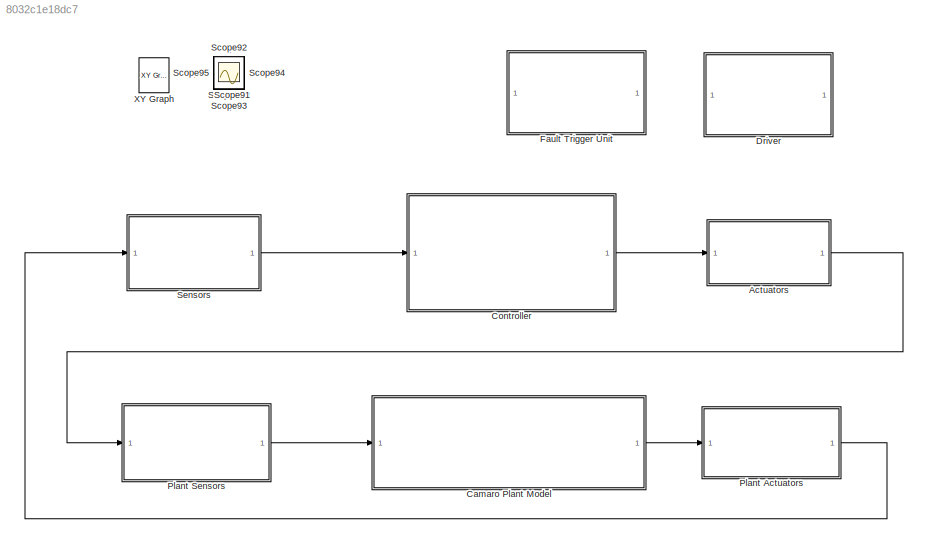
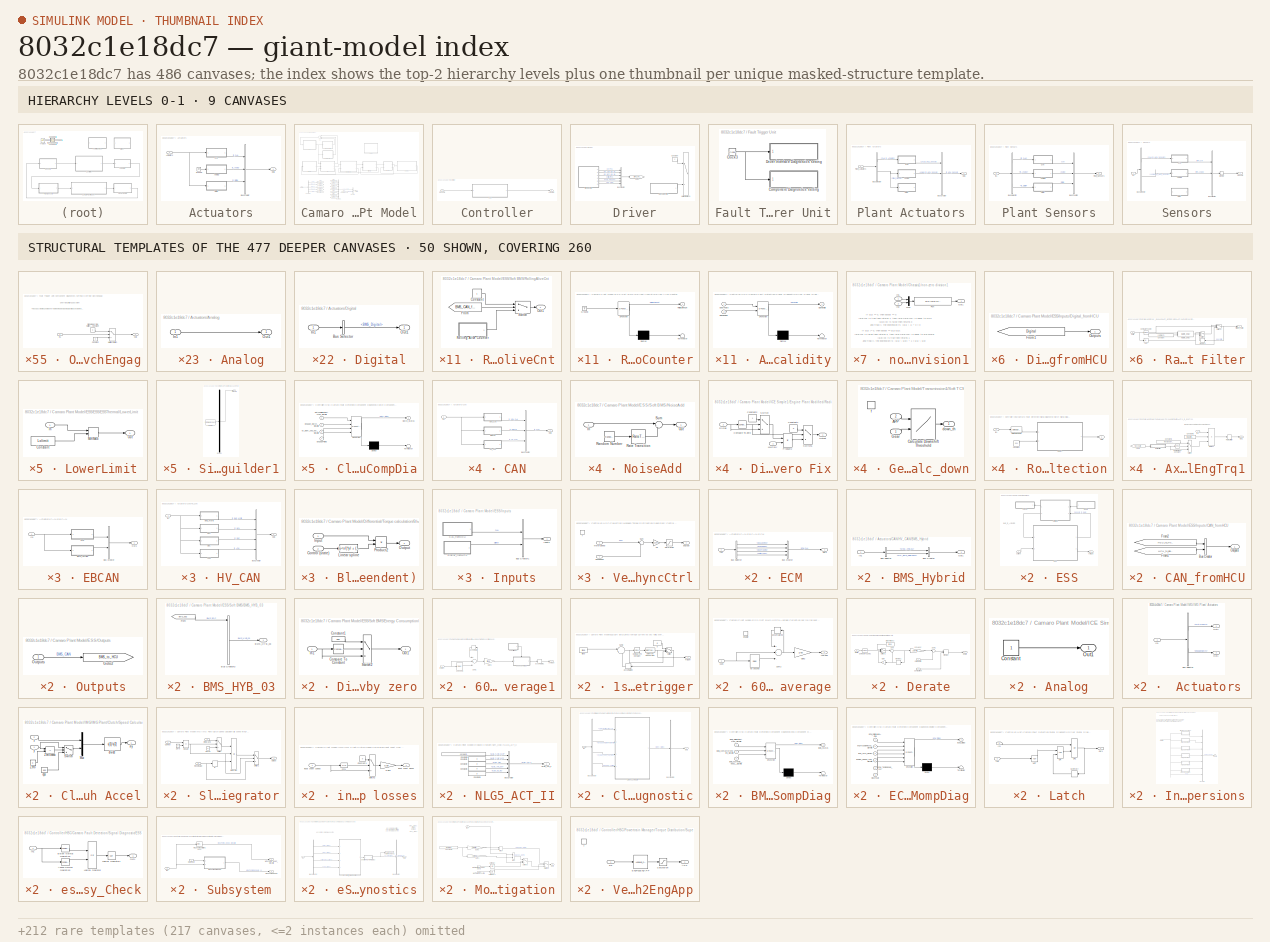
[diagram: thumbnail index - top-2 hierarchy levels (9 canvases) + 50 structural-template representatives of the remaining 477 canvases]
MODEL slx_8032c1e18dc7
KIND model
CONFIG AbsTol = auto
CONFIG FixedStep = auto
CONFIG MaxStep = auto
CONFIG MinStep = auto
CONFIG RelTol = 1e-3
CONFIG SampleTimeConstraint = Unconstrained
CONFIG Solver = ode2
CONFIG SolverMode = Auto
CONFIG SolverName = ode2
CONFIG StartTime = 0.0
CONFIG StopTime = Cycle_End
BLOCK [SubSystem] Actuators
  Ports = [1, 1]
  RequestExecContextInheritance = off
  Variant = off
BLOCK [Inport] Actuators/Actuators
  IconDisplay = Port number
BLOCK [SubSystem] Actuators/Analog
  Ports = [1, 1]
  RequestExecContextInheritance = off
  Variant = off
BLOCK [Inport] Actuators/Analog/In1
  IconDisplay = Port number
BLOCK [Outport] Actuators/Analog/Out1
  IconDisplay = Port number
BLOCK [BusCreator] Actuators/Bus Creator
  DisplayOption = bar
  InheritFromInputs = on
  Inputs = 3
  Ports = [3, 1]
BLOCK [SubSystem] Actuators/CAN
  Ports = [1, 1]
  RequestExecContextInheritance = off
  Variant = off
BLOCK [BusCreator] Actuators/CAN/Bus Creator
  DisplayOption = bar
  InheritFromInputs = on
  Inputs = 3
  Ports = [3, 1]
BLOCK [SubSystem] Actuators/CAN/EBCAN
  Ports = [1, 1]
  RequestExecContextInheritance = off
  Variant = off
BLOCK [SubSystem] Actuators/CAN/EBCAN/BMS_Antrieb
  Ports = [1, 1]
  RequestExecContextInheritance = off
  Variant = off
BLOCK [BusSelector] Actuators/CAN/EBCAN/BMS_Antrieb/Bus Selector
  OutputSignals = BMS_CAN.ISO_Funktionaler_Req_All
  Ports = [1, 1]
BLOCK [Inport] Actuators/CAN/EBCAN/BMS_Antrieb/In1
  IconDisplay = Port number
BLOCK [Outport] Actuators/CAN/EBCAN/BMS_Antrieb/Out1
  IconDisplay = Port number
BLOCK [BusCreator] Actuators/CAN/EBCAN/Bus Creator
  DisplayOption = bar
  InheritFromInputs = on
  Inputs = 2
  Ports = [2, 1]
BLOCK [SubSystem] Actuators/CAN/EBCAN/ECM
  Ports = [1, 1]
  RequestExecContextInheritance = off
  Variant = off
BLOCK [BusCreator] Actuators/CAN/EBCAN/ECM/Bus Creator
  DisplayOption = bar
  InheritFromInputs = on
  Inputs = 4
  Ports = [4, 1]
BLOCK [BusSelector] Actuators/CAN/EBCAN/ECM/Bus Selector
  OutputSignals = Controls.EngAppReq,Controls.EngOnReq,Controls.EngTrqCmd,Controls.ShftLvrPos
  Ports = [1, 4]
BLOCK [Inport] Actuators/CAN/EBCAN/ECM/In1
  IconDisplay = Port number
BLOCK [Outport] Actuators/CAN/EBCAN/ECM/Out1
  IconDisplay = Port number
BLOCK [Inport] Actuators/CAN/EBCAN/In1
  IconDisplay = Port number
BLOCK [Outport] Actuators/CAN/EBCAN/Out1
  IconDisplay = Port number
BLOCK [SubSystem] Actuators/CAN/HV_CAN
  Ports = [1, 1]
  RequestExecContextInheritance = off
  Variant = off
BLOCK [SubSystem] Actuators/CAN/HV_CAN/APM
  Commented = on
  Ports = [1, 1]
  RequestExecContextInheritance = off
  Variant = off
BLOCK [BusSelector] Actuators/CAN/HV_CAN/APM/Bus Selector
  OutputSignals = APM_CAN
  Ports = [1, 1]
BLOCK [Inport] Actuators/CAN/HV_CAN/APM/In1
  IconDisplay = Port number
BLOCK [Outport] Actuators/CAN/HV_CAN/APM/Out1
  IconDisplay = Port number
BLOCK [SubSystem] Actuators/CAN/HV_CAN/BMS_Hybrid
  Ports = [1, 1]
  RequestExecContextInheritance = off
  Variant = off
BLOCK [BusCreator] Actuators/CAN/HV_CAN/BMS_Hybrid/Bus Creator
  DisplayOption = bar
  InheritFromInputs = on
  Inputs = 2
  Ports = [2, 1]
BLOCK [BusSelector] Actuators/CAN/HV_CAN/BMS_Hybrid/Bus Selector
  OutputSignals = BMS_CAN.MSG_HYB_01,Controls.MO_BMS_Sollmodus
  Ports = [1, 2]
BLOCK [Inport] Actuators/CAN/HV_CAN/BMS_Hybrid/In1
  IconDisplay = Port number
BLOCK [Outport] Actuators/CAN/HV_CAN/BMS_Hybrid/Out1
  IconDisplay = Port number
BLOCK [BusCreator] Actuators/CAN/HV_CAN/Bus Creator
  DisplayOption = bar
  InheritFromInputs = on
  Inputs = 4
  Ports = [4, 1]
BLOCK [Inport] Actuators/CAN/HV_CAN/In1
  IconDisplay = Port number
BLOCK [SubSystem] Actuators/CAN/HV_CAN/MCU
  Ports = [1, 1]
  RequestExecContextInheritance = off
  Variant = off
BLOCK [BusCreator] Actuators/CAN/HV_CAN/MCU/Bus Creator
  DisplayOption = bar
  InheritFromInputs = on
  Inputs = 4
  Ports = [4, 1]
BLOCK [BusSelector] Actuators/CAN/HV_CAN/MCU/Bus Selector
  OutputSignals = MCU_CAN,Controls.Torque_Command,Controls.Inverter_Enable,Controls.ClutchEngage
  Ports = [1, 4]
BLOCK [Inport] Actuators/CAN/HV_CAN/MCU/In1
  IconDisplay = Port number
BLOCK [Outport] Actuators/CAN/HV_CAN/MCU/Out1
  IconDisplay = Port number
BLOCK [SubSystem] Actuators/CAN/HV_CAN/OBC
  Ports = [1, 1]
  RequestExecContextInheritance = off
  Variant = off
BLOCK [BusSelector] Actuators/CAN/HV_CAN/OBC/Bus Selector
  OutputSignals = OBC_CAN
  Ports = [1, 1]
BLOCK [Inport] Actuators/CAN/HV_CAN/OBC/In1
  IconDisplay = Port number
BLOCK [Outport] Actuators/CAN/HV_CAN/OBC/Out1
  IconDisplay = Port number
BLOCK [Outport] Actuators/CAN/HV_CAN/Out1
  IconDisplay = Port number
BLOCK [Inport] Actuators/CAN/In1
  IconDisplay = Port number
BLOCK [Outport] Actuators/CAN/Out1
  IconDisplay = Port number
BLOCK [SubSystem] Actuators/CAN/VEH_CAN
  Ports = [1, 1]
  RequestExecContextInheritance = off
  Variant = off
BLOCK [SubSystem] Actuators/CAN/VEH_CAN/BCM
  Ports = [1, 1]
  RequestExecContextInheritance = off
  Variant = off
BLOCK [BusCreator] Actuators/CAN/VEH_CAN/BCM/Bus Creator
  DisplayOption = bar
  InheritFromInputs = on
  Inputs = 2
  Ports = [2, 1]
BLOCK [BusSelector] Actuators/CAN/VEH_CAN/BCM/Bus Selector
  OutputSignals = Controls.powerMode,Controls.SysPwrMd
  Ports = [1, 2]
BLOCK [Inport] Actuators/CAN/VEH_CAN/BCM/In1
  IconDisplay = Port number
BLOCK [Memory] Actuators/CAN/VEH_CAN/BCM/Memory
BLOCK [Outport] Actuators/CAN/VEH_CAN/BCM/Out1
  IconDisplay = Port number
BLOCK [BusCreator] Actuators/CAN/VEH_CAN/Bus Creator
  DisplayOption = bar
  InheritFromInputs = on
  Inputs = 4
  Ports = [4, 1]
BLOCK [SubSystem] Actuators/CAN/VEH_CAN/EBCM
  Ports = [1, 1]
  RequestExecContextInheritance = off
  Variant = off
BLOCK [Inport] Actuators/CAN/VEH_CAN/EBCM/In1
  IconDisplay = Port number
BLOCK [Outport] Actuators/CAN/VEH_CAN/EBCM/Out1
  IconDisplay = Port number
BLOCK [Ground] Actuators/CAN/VEH_CAN/Ground1
BLOCK [Ground] Actuators/CAN/VEH_CAN/Ground2
BLOCK [SubSystem] Actuators/CAN/VEH_CAN/ICCM
  Ports = [1, 1]
  RequestExecContextInheritance = off
  Variant = off
BLOCK [Inport] Actuators/CAN/VEH_CAN/ICCM/In1
  IconDisplay = Port number
BLOCK [Outport] Actuators/CAN/VEH_CAN/ICCM/Out1
  IconDisplay = Port number
BLOCK [Inport] Actuators/CAN/VEH_CAN/In1
  IconDisplay = Port number
BLOCK [Outport] Actuators/CAN/VEH_CAN/Out1
  IconDisplay = Port number
BLOCK [SubSystem] Actuators/CAN/VEH_CAN/TCM
  Ports = [1, 1]
  RequestExecContextInheritance = off
  Variant = off
BLOCK [BusCreator] Actuators/CAN/VEH_CAN/TCM/Bus Creator
  DisplayOption = bar
  InheritFromInputs = on
  Inputs = 2
  Ports = [2, 1]
BLOCK [BusSelector] Actuators/CAN/VEH_CAN/TCM/Bus Selector
  OutputSignals = Controls.VehSpdAvgDrvn_kph,Controls.AccPos_Perc
  Ports = [1, 2]
BLOCK [Inport] Actuators/CAN/VEH_CAN/TCM/In1
  IconDisplay = Port number
BLOCK [Outport] Actuators/CAN/VEH_CAN/TCM/Out1
  IconDisplay = Port number
BLOCK [SubSystem] Actuators/Digital
  Ports = [1, 1]
  RequestExecContextInheritance = off
  Variant = off
BLOCK [BusSelector] Actuators/Digital/Bus Selector
  OutputSignals = BMS_Digital
  Ports = [1, 1]
BLOCK [Inport] Actuators/Digital/In1
  IconDisplay = Port number
BLOCK [Outport] Actuators/Digital/Out1
  IconDisplay = Port number
BLOCK [Ground] Actuators/Ground
BLOCK [Outport] Actuators/Out1
  IconDisplay = Port number
BLOCK [SubSystem] Camaro Plant Model
  Ports = [1, 1]
  RequestExecContextInheritance = off
  Variant = off
BLOCK [Outport] Camaro Plant Model/Actuators
  IconDisplay = Port number
BLOCK [Sum] Camaro Plant Model/Add
  InputSameDT = off
  Inputs = +++
  OutDataTypeStr = Inherit: Inherit via internal rule
  Ports = [3, 1]
  SaturateOnIntegerOverflow = off
BLOCK [BusCreator] Camaro Plant Model/Bus Creator
  DisplayOption = bar
  InheritFromInputs = on
  Inputs = 2
  Ports = [2, 1]
BLOCK [BusCreator] Camaro Plant Model/Bus Creator1
  DisplayOption = bar
  InheritFromInputs = on
  Inputs = 7
  Ports = [7, 1]
BLOCK [BusSelector] Camaro Plant Model/Bus Selector
  OutputSignals = Analog,CAN.to VEH_CAN,CAN.to EBCAN,CAN.to HV_CAN,Digital
  Ports = [1, 5]
BLOCK [SubSystem] Camaro Plant Model/Chassis1
  AncestorBlock = Chassis/Chassis
  Ports = [1, 1]
  RequestExecContextInheritance = off
  Variant = off
BLOCK [Saturate] Camaro Plant Model/Chassis1/>1
  InputPortMap = u0
  LowerLimit = 0
  Ports = [1, 1]
  UpperLimit = inf
BLOCK [Goto] Camaro Plant Model/Chassis1/BCM to HCU
  GotoTag = BCM_to_HCU
  TagVisibility = global
BLOCK [BusSelector] Camaro Plant Model/Chassis1/Bus Selector
  OutputSignals = veh_grade_force_simu,drag force
  Ports = [1, 2]
BLOCK [BusSelector] Camaro Plant Model/Chassis1/Bus Selector1
  OutputSignals = whl_force_out_simu,whl_mass_out_simu
  Ports = [1, 2]
BLOCK [Clock] Camaro Plant Model/Chassis1/Clock
BLOCK [SubSystem] Camaro Plant Model/Chassis1/Driver Interface
  Ports = []
  RequestExecContextInheritance = off
  Variant = off
BLOCK [BusSelector] Camaro Plant Model/Chassis1/Driver Interface/Bus Selector1
  OutputSignals = KeyPos,drv_APP_req_[%],drv_BPP_req_[%],ShiftLvrPos,EVSE_Plugged
  Ports = [1, 5]
BLOCK [From] Camaro Plant Model/Chassis1/Driver Interface/From2
  GotoTag = Driver_Request
  TagVisibility = global
BLOCK [Goto] Camaro Plant Model/Chassis1/Driver Interface/Goto
  GotoTag = ShftLvrPos
  TagVisibility = global
BLOCK [Goto] Camaro Plant Model/Chassis1/Driver Interface/Goto1
  GotoTag = drv_APP_percent
  TagVisibility = global
BLOCK [Goto] Camaro Plant Model/Chassis1/Driver Interface/Goto2
  GotoTag = drv_BPP_percent
  TagVisibility = global
BLOCK [Goto] Camaro Plant Model/Chassis1/Driver Interface/Goto3
  GotoTag = KeyPosition
  TagVisibility = global
BLOCK [Goto] Camaro Plant Model/Chassis1/Driver Interface/Goto4
  GotoTag = drv_APP_percent2
  TagVisibility = global
BLOCK [Goto] Camaro Plant Model/Chassis1/Driver Interface/Goto5
  GotoTag = EVSEPlugged
  TagVisibility = global
BLOCK [Lookup] Camaro Plant Model/Chassis1/Grade
  InputValues = time
  SaturateOnIntegerOverflow = off
  Table = Grade
BLOCK [SubSystem] Camaro Plant Model/Chassis1/Soft BCM
  Ports = [0, 1]
  RequestExecContextInheritance = off
  Variant = off
BLOCK [BusCreator] Camaro Plant Model/Chassis1/Soft BCM/Bus Creator
  DisplayOption = bar
  InheritFromInputs = on
  Inputs = 2
  Ports = [2, 1]
BLOCK [Constant] Camaro Plant Model/Chassis1/Soft BCM/Constant
  Value = 2
BLOCK [DataTypeConversion] Camaro Plant Model/Chassis1/Soft BCM/Data Type Conversion1
  RndMeth = Floor
  SaturateOnIntegerOverflow = off
BLOCK [DataTypeConversion] Camaro Plant Model/Chassis1/Soft BCM/Data Type Conversion2
  RndMeth = Floor
  SaturateOnIntegerOverflow = off
BLOCK [DataTypeConversion] Camaro Plant Model/Chassis1/Soft BCM/Data Type Conversion3
  RndMeth = Floor
  SaturateOnIntegerOverflow = off
BLOCK [DataTypeConversion] Camaro Plant Model/Chassis1/Soft BCM/Data Type Conversion4
  OutDataTypeStr = int8
  RndMeth = Floor
  SaturateOnIntegerOverflow = off
BLOCK [From] Camaro Plant Model/Chassis1/Soft BCM/From
  GotoTag = chas_plant_lin_spd_out
  TagVisibility = global
BLOCK [From] Camaro Plant Model/Chassis1/Soft BCM/From1
  GotoTag = KeyPosition
  TagVisibility = global
BLOCK [From] Camaro Plant Model/Chassis1/Soft BCM/From2
  GotoTag = drv_BPP_percent
  TagVisibility = global
BLOCK [From] Camaro Plant Model/Chassis1/Soft BCM/From3
  GotoTag = KeyPos_Flt_ON
BLOCK [Outport] Camaro Plant Model/Chassis1/Soft BCM/Out1
  IconDisplay = Port number
BLOCK [Sum] Camaro Plant Model/Chassis1/Soft BCM/Sum
  InputSameDT = off
  Inputs = |++
  OutDataTypeStr = Inherit: Inherit via internal rule
  Ports = [2, 1]
  SaturateOnIntegerOverflow = off
BLOCK [Switch] Camaro Plant Model/Chassis1/Soft BCM/Switch
  InputSameDT = off
  SaturateOnIntegerOverflow = off
  Threshold = 1
BLOCK [Goto] Camaro Plant Model/Chassis1/Soft BCM/goto
  GotoTag = VehSpdAvgDrvn
  TagVisibility = global
BLOCK [Sum] Camaro Plant Model/Chassis1/Sum2
  IconShape = round
  Inputs = |++
  Ports = [2, 1]
BLOCK [Sum] Camaro Plant Model/Chassis1/Sum3
  IconShape = round
  Inputs = -+
  Ports = [2, 1]
BLOCK [ToWorkspace] Camaro Plant Model/Chassis1/To Workspace1
  Decimation = WORKSPACE_DECIMATION
  MaxDataPoints = inf
  Ports = [1]
  SampleTime = -1
  VariableName = distance_miles_hist
BLOCK [ToWorkspace] Camaro Plant Model/Chassis1/To Workspace2
  Decimation = WORKSPACE_DECIMATION
  MaxDataPoints = inf
  Ports = [1]
  SampleTime = -1
  VariableName = veh_dist_meter_hist
BLOCK [ToWorkspace] Camaro Plant Model/Chassis1/To Workspace3
  Decimation = WORKSPACE_DECIMATION
  MaxDataPoints = inf
  Ports = [1]
  SampleTime = -1
  VariableName = veh_spd_mps_hist
BLOCK [ToWorkspace] Camaro Plant Model/Chassis1/To Workspace7
  Decimation = WORKSPACE_DECIMATION
  MaxDataPoints = inf
  Ports = [1]
  SampleTime = -1
  VariableName = veh_spd_mph_hist
BLOCK [Integrator] Camaro Plant Model/Chassis1/Velocity1
  LimitOutput = on
  LowerSaturationLimit = 0
  Ports = [1, 1]
BLOCK [Integrator] Camaro Plant Model/Chassis1/Velocity2
  LimitOutput = on
  LowerSaturationLimit = 0
  Ports = [1, 1]
BLOCK [Outport] Camaro Plant Model/Chassis1/chas_lin_spd_out
  IconDisplay = Port number
BLOCK [Inport] Camaro Plant Model/Chassis1/chas_shaft_in
  IconDisplay = Port number
BLOCK [Goto] Camaro Plant Model/Chassis1/goto_chas_plant_force_grade_simu1
  GotoTag = chas_plant_force_grade
BLOCK [Goto] Camaro Plant Model/Chassis1/goto_chas_plant_force_in_simu1
  GotoTag = chas_plant_force_in
  TagVisibility = global
BLOCK [Goto] Camaro Plant Model/Chassis1/goto_chas_plant_force_loss_simu1
  GotoTag = chas_plant_force_loss
  TagVisibility = global
BLOCK [Goto] Camaro Plant Model/Chassis1/goto_chas_plant_grade_simu
  GotoTag = chas_plant_grade
  TagVisibility = global
BLOCK [Goto] Camaro Plant Model/Chassis1/goto_chas_plant_lin_accel_simu
  GotoTag = chas_plant_lin_accel
  TagVisibility = global
BLOCK [Goto] Camaro Plant Model/Chassis1/goto_chas_plant_lin_accel_simu1
  GotoTag = veh_dist_miles
  TagVisibility = global
BLOCK [Goto] Camaro Plant Model/Chassis1/goto_chas_plant_lin_spd_out_simu
  GotoTag = chas_plant_lin_spd_out
  TagVisibility = global
BLOCK [Goto] Camaro Plant Model/Chassis1/goto_chas_plant_mass_simu
  GotoTag = chas_plant_mass
  TagVisibility = global
BLOCK [Goto] Camaro Plant Model/Chassis1/goto_chas_plant_mass_static_simu
  GotoTag = chas_plant_mass_static
  TagVisibility = global
BLOCK [Gain] Camaro Plant Model/Chassis1/m to miles
  Gain = 0.00062
  OutDataTypeStr = Inherit: Inherit via internal rule
  ParamDataTypeStr = Inherit: Inherit via internal rule
  SaturateOnIntegerOverflow = off
BLOCK [Gain] Camaro Plant Model/Chassis1/m//s to kph
  Gain = 3.6
  OutDataTypeStr = Inherit: Inherit via internal rule
  ParamDataTypeStr = Inherit: Inherit via internal rule
  SaturateOnIntegerOverflow = off
BLOCK [Gain] Camaro Plant Model/Chassis1/ms to mph
  Gain = 1/mph2ms
  OutDataTypeStr = Inherit: Inherit via internal rule
  ParamDataTypeStr = Inherit: Inherit via internal rule
  SaturateOnIntegerOverflow = off
BLOCK [SubSystem] Camaro Plant Model/Chassis1/non-zero division1
  Ports = [2, 1]
  RequestExecContextInheritance = off
  Variant = off
BLOCK [Fcn] Camaro Plant Model/Chassis1/non-zero division1/Fcn
  Expr = u[1]/(u[2]+(u[2]==0))*(u[2]!=0)
BLOCK [Inport] Camaro Plant Model/Chassis1/non-zero division1/In1
  IconDisplay = Port number
BLOCK [Inport] Camaro Plant Model/Chassis1/non-zero division1/In2
  IconDisplay = Port number
  Port = 2
BLOCK [Mux] Camaro Plant Model/Chassis1/non-zero division1/Mux
  DisplayOption = bar
  Inputs = 2
  Ports = [2, 1]
BLOCK [Outport] Camaro Plant Model/Chassis1/non-zero division1/Out1
  IconDisplay = Port number
BLOCK [SubSystem] Camaro Plant Model/Chassis1/vehicle losses
  Ports = [2, 2]
  RequestExecContextInheritance = off
  Variant = off
BLOCK [BusCreator] Camaro Plant Model/Chassis1/vehicle losses/Bus Creator
  DisplayOption = bar
  InheritFromInputs = on
  Inputs = 2
  Ports = [2, 1]
BLOCK [Product] Camaro Plant Model/Chassis1/vehicle losses/Drag Force Calculation
  Inputs = 5
  Ports = [5, 1]
  RndMeth = Floor
BLOCK [Product] Camaro Plant Model/Chassis1/vehicle losses/Grade Force Calculation
  Inputs = 3
  Ports = [3, 1]
  RndMeth = Floor
BLOCK [Product] Camaro Plant Model/Chassis1/vehicle losses/Product1
  Ports = [2, 1]
  RndMeth = Floor
BLOCK [Inport] Camaro Plant Model/Chassis1/vehicle losses/Road grade
  IconDisplay = Port number
  Port = 2
BLOCK [Signum] Camaro Plant Model/Chassis1/vehicle losses/Sign
BLOCK [Sum] Camaro Plant Model/Chassis1/vehicle losses/Sum3
  IconShape = round
  Inputs = |++
  Ports = [2, 1]
BLOCK [Trigonometry] Camaro Plant Model/Chassis1/vehicle losses/Trigonometric Function
  Ports = [1, 1]
BLOCK [Constant] Camaro Plant Model/Chassis1/vehicle losses/f1
  Value = rho
BLOCK [Constant] Camaro Plant Model/Chassis1/vehicle losses/f2
  Value = 0.5
BLOCK [Constant] Camaro Plant Model/Chassis1/vehicle losses/f4
  Value = g
BLOCK [Outport] Camaro Plant Model/Chassis1/vehicle losses/info
  IconDisplay = Port number
BLOCK [Constant] Camaro Plant Model/Chassis1/vehicle losses/mass
  Value = chas.plant.init.mass.body
BLOCK [Constant] Camaro Plant Model/Chassis1/vehicle losses/mass1
  Value = chas.plant.init.area_drag
BLOCK [Inport] Camaro Plant Model/Chassis1/vehicle losses/veh spd simu
  IconDisplay = Port number
BLOCK [Outport] Camaro Plant Model/Chassis1/vehicle losses/veh_force_loss_simu
  IconDisplay = Port number
  Port = 2
BLOCK [Constant] Camaro Plant Model/Chassis1/vehicle total mass
  Value = veh.init.mass
BLOCK [SubSystem] Camaro Plant Model/DC-DC Converter1
  AncestorBlock = DCDC/DC-DC Converter
  Ports = [1, 1]
  RequestExecContextInheritance = off
  Variant = off
BLOCK [Outport] Camaro Plant Model/DC-DC Converter1/Crr
  IconDisplay = Port number
BLOCK [Gain] Camaro Plant Model/DC-DC Converter1/Eff
  Gain = 1/dcdc.init.eff
  OutDataTypeStr = Inherit: Inherit via internal rule
  ParamDataTypeStr = Inherit: Inherit via internal rule
  SaturateOnIntegerOverflow = off
BLOCK [Constant] Camaro Plant Model/DC-DC Converter1/Electrical Accessory Load
  Value = dcdc.init.constant_pwr
BLOCK [SubSystem] Camaro Plant Model/DC-DC Converter1/Subsystem2
  Ports = [2, 1]
  RequestExecContextInheritance = off
  Variant = off
BLOCK [Fcn] Camaro Plant Model/DC-DC Converter1/Subsystem2/Fcn
  Expr = u[1]/(u[2]+eps)*(u[2]!=0)
BLOCK [Inport] Camaro Plant Model/DC-DC Converter1/Subsystem2/In1
  IconDisplay = Port number
BLOCK [Inport] Camaro Plant Model/DC-DC Converter1/Subsystem2/In2
  IconDisplay = Port number
  Port = 2
BLOCK [Mux] Camaro Plant Model/DC-DC Converter1/Subsystem2/Mux
  DisplayOption = bar
  Inputs = 2
  Ports = [2, 1]
BLOCK [Outport] Camaro Plant Model/DC-DC Converter1/Subsystem2/Out1
  IconDisplay = Port number
BLOCK [Inport] Camaro Plant Model/DC-DC Converter1/Volt
  IconDisplay = Port number
BLOCK [SubSystem] Camaro Plant Model/Differential
  AncestorBlock = Differential/Differential
  Ports = [2, 2]
  RequestExecContextInheritance = off
  Variant = off
BLOCK [BusCreator] Camaro Plant Model/Differential/Bus Creator
  DisplayOption = bar
  InheritFromInputs = on
  Inputs = 2
  Ports = [2, 1]
BLOCK [BusSelector] Camaro Plant Model/Differential/Bus Selector
  OutputSignals = gb_trq_out,gb_inertia_out
  Ports = [1, 2]
BLOCK [SubSystem] Camaro Plant Model/Differential/Inertia calculation
  Ports = [1, 1]
  RequestExecContextInheritance = off
  Variant = off
BLOCK [Constant] Camaro Plant Model/Differential/Inertia calculation/Final Drive inertia
  Value = fd.plant.init.inertia
BLOCK [Sum] Camaro Plant Model/Differential/Inertia calculation/Sum3
  IconShape = round
  Inputs = |++
  Ports = [2, 1]
BLOCK [Gain] Camaro Plant Model/Differential/Inertia calculation/fd.plant.init.ratio
  Gain = fd.plant.init.ratio
BLOCK [Gain] Camaro Plant Model/Differential/Inertia calculation/fd.plant.init.ratio 
  Gain = fd.plant.init.ratio
BLOCK [Inport] Camaro Plant Model/Differential/Inertia calculation/inertia in
  IconDisplay = Port number
BLOCK [Outport] Camaro Plant Model/Differential/Inertia calculation/inertia out
  IconDisplay = Port number
BLOCK [SubSystem] Camaro Plant Model/Differential/Speed calculation
  Ports = [1, 1]
  RequestExecContextInheritance = off
  Variant = off
BLOCK [Gain] Camaro Plant Model/Differential/Speed calculation/fd.plant.init.ratio
  Gain = fd.plant.init.ratio
BLOCK [Outport] Camaro Plant Model/Differential/Speed calculation/spd in
  IconDisplay = Port number
BLOCK [Inport] Camaro Plant Model/Differential/Speed calculation/spd out
  IconDisplay = Port number
BLOCK [SubSystem] Camaro Plant Model/Differential/Torque calculation
  Ports = [2, 1]
  RequestExecContextInheritance = off
  Variant = off
BLOCK [Abs] Camaro Plant Model/Differential/Torque calculation/Abs
BLOCK [Abs] Camaro Plant Model/Differential/Torque calculation/Abs1
BLOCK [SubSystem] Camaro Plant Model/Differential/Torque calculation/Blending (state dependent)
  Ports = [2, 1]
  RequestExecContextInheritance = off
  ShowPortLabels = none
  Variant = off
BLOCK [Inport] Camaro Plant Model/Differential/Torque calculation/Blending (state dependent)/Control (state)
  IconDisplay = Port number
  Port = 2
BLOCK [Inport] Camaro Plant Model/Differential/Torque calculation/Blending (state dependent)/Input
  IconDisplay = Port number
BLOCK [Fcn] Camaro Plant Model/Differential/Torque calculation/Blending (state dependent)/Linear spline
  Expr = (u<xl)*yl + (xl<=u)*(u<xc)*((yc-yl)*(u-xl)/(xc-xl)+yl) + (xc<=u)*(u<xr)*((yc-yr)*(u-xr)/(xc-xr)+yr) + (xr<=u)*yr
BLOCK [Outport] Camaro Plant Model/Differential/Torque calculation/Blending (state dependent)/Output
  IconDisplay = Port number
BLOCK [Product] Camaro Plant Model/Differential/Torque calculation/Blending (state dependent)/Product2
  Ports = [2, 1]
  RndMeth = Floor
BLOCK [SubSystem] Camaro Plant Model/Differential/Torque calculation/Look-Up Table (2-D)
  Ports = [2, 1]
  RequestExecContextInheritance = off
  Variant = off
BLOCK [Inport] Camaro Plant Model/Differential/Torque calculation/Look-Up Table (2-D)/Cols
  IconDisplay = Port number
  Port = 2
BLOCK [Lookup2D] Camaro Plant Model/Differential/Torque calculation/Look-Up Table (2-D)/Look-Up Table (2-D)
  ColumnIndex = y
  RowIndex = x
  Table = t
BLOCK [Outport] Camaro Plant Model/Differential/Torque calculation/Look-Up Table (2-D)/Out1
  IconDisplay = Port number
BLOCK [Inport] Camaro Plant Model/Differential/Torque calculation/Look-Up Table (2-D)/Rows
  IconDisplay = Port number
BLOCK [Sum] Camaro Plant Model/Differential/Torque calculation/Sum2
  IconShape = round
  Inputs = |+-
  Ports = [2, 1]
BLOCK [Gain] Camaro Plant Model/Differential/Torque calculation/fd.plant.init.ratio
  Gain = fd.plant.init.ratio
BLOCK [Inport] Camaro Plant Model/Differential/Torque calculation/spd in
  IconDisplay = Port number
BLOCK [Inport] Camaro Plant Model/Differential/Torque calculation/trq in
  IconDisplay = Port number
  Port = 2
BLOCK [Outport] Camaro Plant Model/Differential/Torque calculation/trq out
  IconDisplay = Port number
BLOCK [Inport] Camaro Plant Model/Differential/fd_shaft_in
  IconDisplay = Port number
BLOCK [Outport] Camaro Plant Model/Differential/fd_shaft_out
  IconDisplay = Port number
BLOCK [Outport] Camaro Plant Model/Differential/fd_spd_in
  IconDisplay = Port number
  Port = 2
BLOCK [Inport] Camaro Plant Model/Differential/fd_spd_out
  IconDisplay = Port number
  Port = 2
BLOCK [SubSystem] Camaro Plant Model/ESS
  AncestorBlock = lib_ESS_plant_V1_2/ESS
  Ports = [1, 1]
  RequestExecContextInheritance = off
  Variant = off
BLOCK [SubSystem] Camaro Plant Model/ESS/ESS
  Ports = [2, 2]
  RequestExecContextInheritance = off
  Variant = off
BLOCK [Memory] Camaro Plant Model/ESS/ESS/0 current
  InheritSampleTime = on
BLOCK [BusCreator] Camaro Plant Model/ESS/ESS/Bus Creator1
  DisplayOption = bar
  InheritFromInputs = on
  Inputs = 5
  Ports = [5, 1]
BLOCK [Constant] Camaro Plant Model/ESS/ESS/Constant1
  Value = 0
BLOCK [Constant] Camaro Plant Model/ESS/ESS/Constant2
  Value = 0
BLOCK [Constant] Camaro Plant Model/ESS/ESS/Constant3
  Value = 0
BLOCK [Constant] Camaro Plant Model/ESS/ESS/Constant4
  Value = 0
BLOCK [Inport] Camaro Plant Model/ESS/ESS/Crr 
  IconDisplay = Port number
  Port = 2
BLOCK [DataTypeConversion] Camaro Plant Model/ESS/ESS/Data Type Conversion
  OutDataTypeStr = double
  RndMeth = Floor
  SaturateOnIntegerOverflow = off
BLOCK [SubSystem] Camaro Plant Model/ESS/ESS/ESSThermal
  Ports = [2, 1]
  RequestExecContextInheritance = off
  Variant = off
BLOCK [Constant] Camaro Plant Model/ESS/ESS/ESSThermal/BatteryMass
  Value = ess.plant.init.bat_mass
BLOCK [Constant] Camaro Plant Model/ESS/ESS/ESSThermal/Constant
  Value = 0.01
BLOCK [Inport] Camaro Plant Model/ESS/ESS/ESSThermal/Current
  IconDisplay = Port number
  Port = 2
BLOCK [Product] Camaro Plant Model/ESS/ESS/ESSThermal/Divide
  InputSameDT = off
  Inputs = */
  OutDataTypeStr = Inherit: Inherit via internal rule
  Ports = [2, 1]
  RndMeth = Floor
  SaturateOnIntegerOverflow = off
BLOCK [From] Camaro Plant Model/ESS/ESS/ESSThermal/From1
  GotoTag = ESS_WEGPmp
BLOCK [From] Camaro Plant Model/ESS/ESS/ESSThermal/From5
  GotoTag = ESSHighRes
BLOCK [SubSystem] Camaro Plant Model/ESS/ESS/ESSThermal/LowerLimit
  Ports = [1, 1]
  RequestExecContextInheritance = off
  Variant = off
BLOCK [Constant] Camaro Plant Model/ESS/ESS/ESSThermal/LowerLimit/Constant
  Value = Lolimit
BLOCK [Inport] Camaro Plant Model/ESS/ESS/ESSThermal/LowerLimit/In
  IconDisplay = Port number
BLOCK [MinMax] Camaro Plant Model/ESS/ESS/ESSThermal/LowerLimit/MinMax
  Function = max
  InputSameDT = off
  Inputs = 2
  Ports = [2, 1]
  SaturateOnIntegerOverflow = off
BLOCK [Outport] Camaro Plant Model/ESS/ESS/ESSThermal/LowerLimit/Out
  IconDisplay = Port number
BLOCK [SubSystem] Camaro Plant Model/ESS/ESS/ESSThermal/LowerLimit1
  Ports = [1, 1]
  RequestExecContextInheritance = off
  Variant = off
BLOCK [Constant] Camaro Plant Model/ESS/ESS/ESSThermal/LowerLimit1/Constant
  Value = Lolimit
BLOCK [Inport] Camaro Plant Model/ESS/ESS/ESSThermal/LowerLimit1/In
  IconDisplay = Port number
BLOCK [MinMax] Camaro Plant Model/ESS/ESS/ESSThermal/LowerLimit1/MinMax
  Function = max
  InputSameDT = off
  Inputs = 2
  Ports = [2, 1]
  SaturateOnIntegerOverflow = off
BLOCK [Outport] Camaro Plant Model/ESS/ESS/ESSThermal/LowerLimit1/Out
  IconDisplay = Port number
BLOCK [Memory] Camaro Plant Model/ESS/ESS/ESSThermal/Memory
  X0 = t_amb
BLOCK [Product] Camaro Plant Model/ESS/ESS/ESSThermal/Multiply
  InputSameDT = off
  Inputs = 3
  OutDataTypeStr = Inherit: Inherit via internal rule
  Ports = [3, 1]
  RndMeth = Floor
  SaturateOnIntegerOverflow = off
BLOCK [Product] Camaro Plant Model/ESS/ESS/ESSThermal/Product
  InputSameDT = off
  OutDataTypeStr = Inherit: Inherit via internal rule
  Ports = [2, 1]
  SaturateOnIntegerOverflow = off
BLOCK [Inport] Camaro Plant Model/ESS/ESS/ESSThermal/Resistance
  IconDisplay = Port number
BLOCK [Constant] Camaro Plant Model/ESS/ESS/ESSThermal/SpecificHeatCapBattery
  Value = ess.plant.init.specific_heat
BLOCK [Sum] Camaro Plant Model/ESS/ESS/ESSThermal/Sum
  IconShape = round
  InputSameDT = off
  Inputs = |++
  OutDataTypeStr = Inherit: Inherit via internal rule
  Ports = [2, 1]
  SaturateOnIntegerOverflow = off
BLOCK [Sum] Camaro Plant Model/ESS/ESS/ESSThermal/Sum1
  IconShape = round
  Inputs = -++
  Ports = [3, 1]
BLOCK [Sum] Camaro Plant Model/ESS/ESS/ESSThermal/Sum2
  Ports = [2, 1]
BLOCK [Switch] Camaro Plant Model/ESS/ESS/ESSThermal/Switch4
  InputSameDT = off
  SaturateOnIntegerOverflow = off
  Threshold = 1
BLOCK [Outport] Camaro Plant Model/ESS/ESS/ESSThermal/Temp[degC]
  IconDisplay = Port number
BLOCK [ToWorkspace] Camaro Plant Model/ESS/ESS/ESSThermal/To Workspace3
  Decimation = WORKSPACE_DECIMATION
  MaxDataPoints = inf
  Ports = [1]
  SampleTime = -1
  VariableName = ess_temp_hist
BLOCK [Gain] Camaro Plant Model/ESS/ESS/ESSThermal/To_WHr1
  Gain = tloop
BLOCK [Gain] Camaro Plant Model/ESS/ESS/ESSThermal/To_WHr2
  Gain = 5
BLOCK [From] Camaro Plant Model/ESS/ESS/From
  GotoTag = ESSOverTemp
BLOCK [From] Camaro Plant Model/ESS/ESS/From1
  GotoTag = ess_mainc_stat
BLOCK [From] Camaro Plant Model/ESS/ESS/From4
  GotoTag = SOC
  TagVisibility = global
BLOCK [From] Camaro Plant Model/ESS/ESS/From6
  GotoTag = ess_mainc_stat
BLOCK [Gain] Camaro Plant Model/ESS/ESS/Gain
  Gain = 3
  OutDataTypeStr = Inherit: Inherit via internal rule
  ParamDataTypeStr = Inherit: Inherit via internal rule
  SaturateOnIntegerOverflow = off
BLOCK [Goto] Camaro Plant Model/ESS/ESS/Goto6
  GotoTag = ess_mainc_stat
BLOCK [Inport] Camaro Plant Model/ESS/ESS/In 
  IconDisplay = Port number
BLOCK [SubSystem] Camaro Plant Model/ESS/ESS/LoadCharacteristics
  Ports = [1, 2]
  RequestExecContextInheritance = off
  Variant = off
BLOCK [Inport] Camaro Plant Model/ESS/ESS/LoadCharacteristics/Current
  IconDisplay = Port number
BLOCK [From] Camaro Plant Model/ESS/ESS/LoadCharacteristics/From5
  GotoTag = ESSHighRes
BLOCK [Goto] Camaro Plant Model/ESS/ESS/LoadCharacteristics/Goto1
  GotoTag = V_term
BLOCK [Goto] Camaro Plant Model/ESS/ESS/LoadCharacteristics/Goto2
  GotoTag = OCV
BLOCK [Goto] Camaro Plant Model/ESS/ESS/LoadCharacteristics/Goto3
  GotoTag = Current_internal
BLOCK [Goto] Camaro Plant Model/ESS/ESS/LoadCharacteristics/Goto4
  GotoTag = Current_term
BLOCK [Goto] Camaro Plant Model/ESS/ESS/LoadCharacteristics/Goto5
  GotoTag = SOC
  TagVisibility = global
BLOCK [Product] Camaro Plant Model/ESS/ESS/LoadCharacteristics/I*r
  InputSameDT = off
  OutDataTypeStr = Inherit: Inherit via internal rule
  Ports = [2, 1]
  SaturateOnIntegerOverflow = off
BLOCK [SubSystem] Camaro Plant Model/ESS/ESS/LoadCharacteristics/LowerLimit1
  Ports = [1, 1]
  RequestExecContextInheritance = off
  Variant = off
BLOCK [Constant] Camaro Plant Model/ESS/ESS/LoadCharacteristics/LowerLimit1/Constant
  Value = Lolimit
BLOCK [Inport] Camaro Plant Model/ESS/ESS/LoadCharacteristics/LowerLimit1/In
  IconDisplay = Port number
BLOCK [MinMax] Camaro Plant Model/ESS/ESS/LoadCharacteristics/LowerLimit1/MinMax
  Function = max
  InputSameDT = off
  Inputs = 2
  Ports = [2, 1]
  SaturateOnIntegerOverflow = off
BLOCK [Outport] Camaro Plant Model/ESS/ESS/LoadCharacteristics/LowerLimit1/Out
  IconDisplay = Port number
BLOCK [SubSystem] Camaro Plant Model/ESS/ESS/LoadCharacteristics/LowerLimit2
  Ports = [1, 1]
  RequestExecContextInheritance = off
  Variant = off
BLOCK [Constant] Camaro Plant Model/ESS/ESS/LoadCharacteristics/LowerLimit2/Constant
  Value = Lolimit
BLOCK [Inport] Camaro Plant Model/ESS/ESS/LoadCharacteristics/LowerLimit2/In
  IconDisplay = Port number
BLOCK [MinMax] Camaro Plant Model/ESS/ESS/LoadCharacteristics/LowerLimit2/MinMax
  Function = max
  InputSameDT = off
  Inputs = 2
  Ports = [2, 1]
  SaturateOnIntegerOverflow = off
BLOCK [Outport] Camaro Plant Model/ESS/ESS/LoadCharacteristics/LowerLimit2/Out
  IconDisplay = Port number
BLOCK [Outport] Camaro Plant Model/ESS/ESS/LoadCharacteristics/Resistance
  IconDisplay = Port number
  Port = 2
BLOCK [SubSystem] Camaro Plant Model/ESS/ESS/LoadCharacteristics/SOC Calculation
  Ports = [1, 1]
  RequestExecContextInheritance = off
  Variant = off
BLOCK [Constant] Camaro Plant Model/ESS/ESS/LoadCharacteristics/SOC Calculation/3600*nominal battery capacity
  Value = 3600*ess.plant.init.batcap
BLOCK [Inport] Camaro Plant Model/ESS/ESS/LoadCharacteristics/SOC Calculation/Current
  IconDisplay = Port number
BLOCK [Outport] Camaro Plant Model/ESS/ESS/LoadCharacteristics/SOC Calculation/SOC
  IconDisplay = Port number
BLOCK [Sum] Camaro Plant Model/ESS/ESS/LoadCharacteristics/SOC Calculation/Sum3
  IconShape = round
  InputSameDT = off
  Inputs = |++
  OutDataTypeStr = Inherit: Inherit via internal rule
  Ports = [2, 1]
  SaturateOnIntegerOverflow = off
BLOCK [ToWorkspace] Camaro Plant Model/ESS/ESS/LoadCharacteristics/SOC Calculation/To Workspace
  Decimation = WORKSPACE_DECIMATION
  MaxDataPoints = inf
  Ports = [1]
  SampleTime = -1
  VariableName = ess_soc_percent_hist
BLOCK [Product] Camaro Plant Model/ESS/ESS/LoadCharacteristics/SOC Calculation/i//3600C
  InputSameDT = off
  Inputs = */
  OutDataTypeStr = Inherit: Inherit via internal rule
  Ports = [2, 1]
  SaturateOnIntegerOverflow = off
BLOCK [Saturate] Camaro Plant Model/ESS/ESS/LoadCharacteristics/SOC Calculation/soc limits
  InputPortMap = u0
  LowerLimit = 0
  Ports = [1, 1]
  UpperLimit = 1
BLOCK [Memory] Camaro Plant Model/ESS/ESS/LoadCharacteristics/SOC Calculation/soc previous state
  InheritSampleTime = on
  X0 = ess.plant.init.initial_soc/100
BLOCK [Gain] Camaro Plant Model/ESS/ESS/LoadCharacteristics/SOC Calculation/tloop
  Gain = tloop
  OutDataTypeStr = Inherit: Inherit via internal rule
  ParamDataTypeStr = Inherit: Inherit via internal rule
  SaturateOnIntegerOverflow = off
BLOCK [Gain] Camaro Plant Model/ESS/ESS/LoadCharacteristics/SOC Calculation/to %
  Gain = 100
  OutDataTypeStr = Inherit: Inherit via internal rule
  ParamDataTypeStr = Inherit: Inherit via internal rule
  SaturateOnIntegerOverflow = off
BLOCK [Sum] Camaro Plant Model/ESS/ESS/LoadCharacteristics/Sum
  InputSameDT = off
  OutDataTypeStr = Inherit: Inherit via internal rule
  Ports = [2, 1]
  SaturateOnIntegerOverflow = off
BLOCK [Switch] Camaro Plant Model/ESS/ESS/LoadCharacteristics/Switch1
  InputSameDT = off
  SaturateOnIntegerOverflow = off
  Threshold = 1
BLOCK [Switch] Camaro Plant Model/ESS/ESS/LoadCharacteristics/Switch2
  InputSameDT = off
  SaturateOnIntegerOverflow = off
BLOCK [Switch] Camaro Plant Model/ESS/ESS/LoadCharacteristics/Switch4
  InputSameDT = off
  SaturateOnIntegerOverflow = off
  Threshold = 1
BLOCK [ToWorkspace] Camaro Plant Model/ESS/ESS/LoadCharacteristics/To Workspace3
  Decimation = WORKSPACE_DECIMATION
  MaxDataPoints = inf
  Ports = [1]
  SampleTime = -1
  VariableName = ess_voc_hist
BLOCK [Gain] Camaro Plant Model/ESS/ESS/LoadCharacteristics/To_WHr1
  Gain = 10
BLOCK [Gain] Camaro Plant Model/ESS/ESS/LoadCharacteristics/To_WHr2
  Gain = 10
BLOCK [Gain] Camaro Plant Model/ESS/ESS/LoadCharacteristics/To_WHr3
  Gain = 1.01
BLOCK [Gain] Camaro Plant Model/ESS/ESS/LoadCharacteristics/To_WHr4
  Gain = 0.99
BLOCK [Outport] Camaro Plant Model/ESS/ESS/LoadCharacteristics/Vterm
  IconDisplay = Port number
BLOCK [Lookup] Camaro Plant Model/ESS/ESS/LoadCharacteristics/resistor_charge (ohm)
  InputValues = ess.plant.init.bat_soc_idx
  SaturateOnIntegerOverflow = off
  Table = ess.plant.init.bat_r_chg
BLOCK [Lookup] Camaro Plant Model/ESS/ESS/LoadCharacteristics/resistor_discharge (ohm)
  InputValues = ess.plant.init.bat_soc_idx
  SaturateOnIntegerOverflow = off
  Table = ess.plant.init.bat_r_dis
BLOCK [Lookup] Camaro Plant Model/ESS/ESS/LoadCharacteristics/voc (volt)
  InputValues = ess.plant.init.bat_soc_idx
  SaturateOnIntegerOverflow = off
  Table = ess.plant.init.bat_voc
BLOCK [Switch] Camaro Plant Model/ESS/ESS/LoadCharacteristics/will use charge when >=0
  InputSameDT = off
  SaturateOnIntegerOverflow = off
BLOCK [Switch] Camaro Plant Model/ESS/ESS/Switch
  InputSameDT = off
  SaturateOnIntegerOverflow = off
  Threshold = 1
BLOCK [Switch] Camaro Plant Model/ESS/ESS/Switch1
  InputSameDT = off
  SaturateOnIntegerOverflow = off
  Threshold = 1
BLOCK [Switch] Camaro Plant Model/ESS/ESS/Switch2
  InputSameDT = off
  SaturateOnIntegerOverflow = off
  Threshold = 1
BLOCK [Switch] Camaro Plant Model/ESS/ESS/Switch3
  InputSameDT = off
  SaturateOnIntegerOverflow = off
  Threshold = 5
BLOCK [Switch] Camaro Plant Model/ESS/ESS/Switch4
  InputSameDT = off
  SaturateOnIntegerOverflow = off
  Threshold = 5
BLOCK [ToWorkspace] Camaro Plant Model/ESS/ESS/To Workspace4
  Decimation = WORKSPACE_DECIMATION
  MaxDataPoints = inf
  Ports = [1]
  SampleTime = -1
  VariableName = ess_current_hist
BLOCK [ToWorkspace] Camaro Plant Model/ESS/ESS/To Workspace5
  Decimation = WORKSPACE_DECIMATION
  MaxDataPoints = inf
  Ports = [1]
  SampleTime = -1
  VariableName = ess_term_voltage_hist
BLOCK [ToWorkspace] Camaro Plant Model/ESS/ESS/To Workspace6
  Decimation = WORKSPACE_DECIMATION
  MaxDataPoints = inf
  Ports = [1]
  SampleTime = -1
  VariableName = ess_mainc_hist
BLOCK [Outport] Camaro Plant Model/ESS/ESS/Voltage
  IconDisplay = Port number
  Port = 2
BLOCK [Outport] Camaro Plant Model/ESS/ESS/out
  IconDisplay = Port number
BLOCK [Saturate] Camaro Plant Model/ESS/ESS/output voltage limits
  InputPortMap = u0
  LowerLimit = ess.plant.init.series_cells*ess.plant.init.cell_min_V
  Ports = [1, 1]
  UpperLimit = ess.plant.init.series_cells*ess.plant.init.cell_max_V
BLOCK [Gain] Camaro Plant Model/ESS/ESS/tloop1
  Gain = -1
  OutDataTypeStr = Inherit: Inherit via internal rule
  ParamDataTypeStr = Inherit: Inherit via internal rule
  SaturateOnIntegerOverflow = off
BLOCK [Gain] Camaro Plant Model/ESS/ESS/tloop2
  Gain = 1/ess.plant.init.series_cells
  OutDataTypeStr = Inherit: Inherit via internal rule
  ParamDataTypeStr = Inherit: Inherit via internal rule
  SaturateOnIntegerOverflow = off
BLOCK [SubSystem] Camaro Plant Model/ESS/Inputs
  AncestorBlock = lib_DCDC/DC-DC Converter/Inputs
  Ports = [0, 1]
  RequestExecContextInheritance = off
  Variant = off
BLOCK [BusCreator] Camaro Plant Model/ESS/Inputs/Bus Creator1
  DisplayOption = bar
  InheritFromInputs = on
  Inputs = 2
  Ports = [2, 1]
BLOCK [SubSystem] Camaro Plant Model/ESS/Inputs/CAN_fromHCU
  Ports = [0, 1]
  RequestExecContextInheritance = off
  Variant = off
BLOCK [BusCreator] Camaro Plant Model/ESS/Inputs/CAN_fromHCU/Bus Creator
  DisplayOption = bar
  InheritFromInputs = on
  Inputs = 2
  Ports = [2, 1]
BLOCK [From] Camaro Plant Model/ESS/Inputs/CAN_fromHCU/From1
  GotoTag = HCU_to_EBCAN
  TagVisibility = global
BLOCK [From] Camaro Plant Model/ESS/Inputs/CAN_fromHCU/From2
  GotoTag = HCU_to_HV_CAN
  TagVisibility = global
BLOCK [Outport] Camaro Plant Model/ESS/Inputs/CAN_fromHCU/Outputs
  IconDisplay = Port number
BLOCK [SubSystem] Camaro Plant Model/ESS/Inputs/Digital_fromHCU
  Ports = [0, 1]
  RequestExecContextInheritance = off
  Variant = off
BLOCK [From] Camaro Plant Model/ESS/Inputs/Digital_fromHCU/From1
  GotoTag = Digital
  TagVisibility = global
BLOCK [Outport] Camaro Plant Model/ESS/Inputs/Digital_fromHCU/Outputs
  IconDisplay = Port number
BLOCK [Outport] Camaro Plant Model/ESS/Inputs/Inputs
  IconDisplay = Port number
BLOCK [SubSystem] Camaro Plant Model/ESS/Outputs
  Ports = [1]
  RequestExecContextInheritance = off
  Variant = off
BLOCK [Goto] Camaro Plant Model/ESS/Outputs/Goto2
  GotoTag = BMS_to_HCU
  TagVisibility = global
BLOCK [Inport] Camaro Plant Model/ESS/Outputs/Outputs
  IconDisplay = Port number
BLOCK [SubSystem] Camaro Plant Model/ESS/Soft BMS
  Ports = [2, 2]
  RequestExecContextInheritance = off
  Variant = off
BLOCK [SubSystem] Camaro Plant Model/ESS/Soft BMS/BMS_06
  Ports = [0, 1]
  RequestExecContextInheritance = off
  Variant = off
BLOCK [Outport] Camaro Plant Model/ESS/Soft BMS/BMS_06/BMS_06
  IconDisplay = Port number
BLOCK [BusCreator] Camaro Plant Model/ESS/Soft BMS/BMS_06/Bus Creator8
  DisplayOption = bar
  InheritFromInputs = on
  Inputs = 9
  Ports = [9, 1]
BLOCK [Constant] Camaro Plant Model/ESS/Soft BMS/BMS_06/Constant2
  Value = 0
BLOCK [SubSystem] Camaro Plant Model/ESS/Soft BMS/BMS_07
  Ports = [0, 1]
  RequestExecContextInheritance = off
  Variant = off
BLOCK [Outport] Camaro Plant Model/ESS/Soft BMS/BMS_07/BMS_07
  IconDisplay = Port number
BLOCK [BusCreator] Camaro Plant Model/ESS/Soft BMS/BMS_07/Bus Creator8
  DisplayOption = bar
  InheritFromInputs = on
  Inputs = 9
  Ports = [9, 1]
BLOCK [From] Camaro Plant Model/ESS/Soft BMS/BMS_07/From11
  GotoTag = BMS_Gesamtst_Spgfreiheit
  TagVisibility = global
BLOCK [SubSystem] Camaro Plant Model/ESS/Soft BMS/BMS_08 
  Ports = [0, 1]
  RequestExecContextInheritance = off
  Variant = off
BLOCK [Outport] Camaro Plant Model/ESS/Soft BMS/BMS_08 /BMS_08
  IconDisplay = Port number
BLOCK [BusCreator] Camaro Plant Model/ESS/Soft BMS/BMS_08 /Bus Creator8
  DisplayOption = bar
  InheritFromInputs = on
  Inputs = 9
  Ports = [9, 1]
BLOCK [From] Camaro Plant Model/ESS/Soft BMS/BMS_08 /From
  GotoTag = BMS_Temp_Zelle_Max
  TagVisibility = global
BLOCK [From] Camaro Plant Model/ESS/Soft BMS/BMS_08 /From1
  GotoTag = BMS_Temp_Zelle_Min
  TagVisibility = global
BLOCK [SubSystem] Camaro Plant Model/ESS/Soft BMS/BMS_HYB_02
  Ports = [0, 1]
  RequestExecContextInheritance = off
  Variant = off
BLOCK [Outport] Camaro Plant Model/ESS/Soft BMS/BMS_HYB_02/BMS_HYB_02
  IconDisplay = Port number
BLOCK [BusCreator] Camaro Plant Model/ESS/Soft BMS/BMS_HYB_02/Bus Creator3
  DisplayOption = bar
  InheritFromInputs = on
  Inputs = 20
  Ports = [20, 1]
BLOCK [Constant] Camaro Plant Model/ESS/Soft BMS/BMS_HYB_02/Constant12
  Value = 0
BLOCK [Constant] Camaro Plant Model/ESS/Soft BMS/BMS_HYB_02/Constant7
  Value = 0
BLOCK [Constant] Camaro Plant Model/ESS/Soft BMS/BMS_HYB_02/Constant8
  Value = 0
BLOCK [DataTypeConversion] Camaro Plant Model/ESS/Soft BMS/BMS_HYB_02/Data Type Conversion4
  RndMeth = Floor
  SaturateOnIntegerOverflow = off
BLOCK [From] Camaro Plant Model/ESS/Soft BMS/BMS_HYB_02/From
  GotoTag = BMS_IstStrom
  TagVisibility = global
BLOCK [From] Camaro Plant Model/ESS/Soft BMS/BMS_HYB_02/From1
  GotoTag = BMS_IstSpannung
  TagVisibility = global
BLOCK [From] Camaro Plant Model/ESS/Soft BMS/BMS_HYB_02/From10
  GotoTag = BMS_Notfallkuehlung
BLOCK [From] Camaro Plant Model/ESS/Soft BMS/BMS_HYB_02/From11
  GotoTag = BMS_Gesamtst_Spgfreiheit
  TagVisibility = global
BLOCK [From] Camaro Plant Model/ESS/Soft BMS/BMS_HYB_02/From12
  GotoTag = BMS_Gesamtst_Spgfreiheit
  TagVisibility = global
BLOCK [From] Camaro Plant Model/ESS/Soft BMS/BMS_HYB_02/From13
  GotoTag = BMS_Fehler_Notabschaltung_Crash
  TagVisibility = global
BLOCK [From] Camaro Plant Model/ESS/Soft BMS/BMS_HYB_02/From14
  GotoTag = MO_BMS_Sollmodus
  TagVisibility = global
BLOCK [From] Camaro Plant Model/ESS/Soft BMS/BMS_HYB_02/From2
  GotoTag = BMS_Fehler_Pilot
  TagVisibility = global
BLOCK [From] Camaro Plant Model/ESS/Soft BMS/BMS_HYB_02/From3
  GotoTag = BMS_IstModus
  TagVisibility = global
BLOCK [From] Camaro Plant Model/ESS/Soft BMS/BMS_HYB_02/From4
  GotoTag = BMS_Init_abgeschlossen
  TagVisibility = global
BLOCK [From] Camaro Plant Model/ESS/Soft BMS/BMS_HYB_02/From5
  GotoTag = BMS_Fehler_HS_offen
  TagVisibility = global
BLOCK [From] Camaro Plant Model/ESS/Soft BMS/BMS_HYB_02/From6
  GotoTag = BMS_Fehler_verschweisst
  TagVisibility = global
BLOCK [From] Camaro Plant Model/ESS/Soft BMS/BMS_HYB_02/From7
  GotoTag = BMS_Fehler_Notabschaltung_Pilot
  TagVisibility = global
BLOCK [From] Camaro Plant Model/ESS/Soft BMS/BMS_HYB_02/From8
  GotoTag = BMS_Fehler_Notabschaltung_Crash
  TagVisibility = global
BLOCK [From] Camaro Plant Model/ESS/Soft BMS/BMS_HYB_02/From9
  GotoTag = BMS_SleepInd
  TagVisibility = global
BLOCK [SubSystem] Camaro Plant Model/ESS/Soft BMS/BMS_HYB_03
  Ports = [0, 1]
  RequestExecContextInheritance = off
  Variant = off
BLOCK [Outport] Camaro Plant Model/ESS/Soft BMS/BMS_HYB_03/BMS_HYB_03
  IconDisplay = Port number
BLOCK [BusCreator] Camaro Plant Model/ESS/Soft BMS/BMS_HYB_03/Bus Creator3
  DisplayOption = bar
  InheritFromInputs = on
  Inputs = 10
  Ports = [10, 1]
BLOCK [From] Camaro Plant Model/ESS/Soft BMS/BMS_HYB_03/From
  GotoTag = BMS_SOC
  TagVisibility = global
BLOCK [SubSystem] Camaro Plant Model/ESS/Soft BMS/BMS_HYB_04
  Ports = [0, 1]
  RequestExecContextInheritance = off
  Variant = off
BLOCK [Outport] Camaro Plant Model/ESS/Soft BMS/BMS_HYB_04/BMS_HYB_04
  IconDisplay = Port number
BLOCK [BusCreator] Camaro Plant Model/ESS/Soft BMS/BMS_HYB_04/Bus Creator6
  DisplayOption = bar
  InheritFromInputs = on
  Inputs = 9
  Ports = [9, 1]
BLOCK [Constant] Camaro Plant Model/ESS/Soft BMS/BMS_HYB_04/Constant
BLOCK [Constant] Camaro Plant Model/ESS/Soft BMS/BMS_HYB_04/Constant1
  Commented = on
  Value = bms_maxdischargecurrent
BLOCK [Constant] Camaro Plant Model/ESS/Soft BMS/BMS_HYB_04/Constant2
BLOCK [Constant] Camaro Plant Model/ESS/Soft BMS/BMS_HYB_04/Constant3
  Commented = on
  Value = bms_maxchargecurrent
BLOCK [From] Camaro Plant Model/ESS/Soft BMS/BMS_HYB_04/From
  GotoTag = BMS_Spannung_ZwKr
  TagVisibility = global
BLOCK [SubSystem] Camaro Plant Model/ESS/Soft BMS/BMS_HYB_06
  Ports = [0, 1]
  RequestExecContextInheritance = off
  Variant = off
BLOCK [Outport] Camaro Plant Model/ESS/Soft BMS/BMS_HYB_06/BMS_HYB_06
  IconDisplay = Port number
BLOCK [BusCreator] Camaro Plant Model/ESS/Soft BMS/BMS_HYB_06/Bus Creator6
  DisplayOption = bar
  InheritFromInputs = on
  Inputs = 9
  Ports = [9, 1]
BLOCK [Constant] Camaro Plant Model/ESS/Soft BMS/BMS_HYB_06/Constant1
  Value = 430
BLOCK [Constant] Camaro Plant Model/ESS/Soft BMS/BMS_HYB_06/Constant2
  Value = 291
BLOCK [Constant] Camaro Plant Model/ESS/Soft BMS/BMS_HYB_06/Constant3
  Value = 0
BLOCK [Constant] Camaro Plant Model/ESS/Soft BMS/BMS_HYB_06/Constant4
  Commented = on
  Value = bms_inletair_temp
BLOCK [Constant] Camaro Plant Model/ESS/Soft BMS/BMS_HYB_06/Constant5
  Value = 20
BLOCK [From] Camaro Plant Model/ESS/Soft BMS/BMS_HYB_06/From
  GotoTag = BMS_Temperatur
  TagVisibility = global
BLOCK [SubSystem] Camaro Plant Model/ESS/Soft BMS/BMS_HYB_07
  Ports = [0, 1]
  RequestExecContextInheritance = off
  Variant = off
BLOCK [Outport] Camaro Plant Model/ESS/Soft BMS/BMS_HYB_07/BMS_HYB_07
  IconDisplay = Port number
BLOCK [BusCreator] Camaro Plant Model/ESS/Soft BMS/BMS_HYB_07/Bus Creator6
  DisplayOption = bar
  InheritFromInputs = on
  Inputs = 9
  Ports = [9, 1]
BLOCK [From] Camaro Plant Model/ESS/Soft BMS/BMS_HYB_07/From
  GotoTag = BMS_Temperierung_Anf
  TagVisibility = global
BLOCK [SubSystem] Camaro Plant Model/ESS/Soft BMS/BMS_Hybrid_01
  Ports = [0, 1]
  RequestExecContextInheritance = off
  Variant = off
BLOCK [Outport] Camaro Plant Model/ESS/Soft BMS/BMS_Hybrid_01/BMS_Hybrid_01
  IconDisplay = Port number
BLOCK [BusCreator] Camaro Plant Model/ESS/Soft BMS/BMS_Hybrid_01/Bus Creator8
  DisplayOption = bar
  InheritFromInputs = on
  Inputs = 1
  Ports = [1, 1]
BLOCK [From] Camaro Plant Model/ESS/Soft BMS/BMS_Hybrid_01/From
  GotoTag = BMS_HYB_Kuehlung_Anf
  TagVisibility = global
BLOCK [BusCreator] Camaro Plant Model/ESS/Soft BMS/Bus Creator1
  DisplayOption = bar
  InheritFromInputs = on
  Inputs = 6
  Ports = [6, 1]
BLOCK [BusCreator] Camaro Plant Model/ESS/Soft BMS/Bus Creator3
  DisplayOption = bar
  InheritFromInputs = on
  Inputs = 2
  Ports = [2, 1]
BLOCK [BusCreator] Camaro Plant Model/ESS/Soft BMS/Bus Creator4
  DisplayOption = bar
  InheritFromInputs = on
  Inputs = 7
  Ports = [7, 1]
BLOCK [BusCreator] Camaro Plant Model/ESS/Soft BMS/Bus Creator7
  DisplayOption = bar
  InheritFromInputs = on
  Inputs = 6
  Ports = [6, 1]
BLOCK [BusSelector] Camaro Plant Model/ESS/Soft BMS/Bus Selector1
  OutputSignals = Vcell,temp,ess_ibat,ess_vbat,ess_soc
  Ports = [1, 5]
BLOCK [Outport] Camaro Plant Model/ESS/Soft BMS/CAN
  IconDisplay = Port number
BLOCK [SubSystem] Camaro Plant Model/ESS/Soft BMS/Energy Consumption
  Ports = [2]
  RequestExecContextInheritance = off
  Variant = off
BLOCK [Inport] Camaro Plant Model/ESS/Soft BMS/Energy Consumption/Current
  IconDisplay = Port number
BLOCK [Product] Camaro Plant Model/ESS/Soft BMS/Energy Consumption/Divide
  InputSameDT = off
  Inputs = */
  OutDataTypeStr = Inherit: Inherit via internal rule
  Ports = [2, 1]
  RndMeth = Floor
  SaturateOnIntegerOverflow = off
BLOCK [SubSystem] Camaro Plant Model/ESS/Soft BMS/Energy Consumption/Divide by zero
  Ports = [1, 1]
  RequestExecContextInheritance = off
  Variant = off
BLOCK [Reference] Camaro Plant Model/ESS/Soft BMS/Energy Consumption/Divide by zero/Compare To Constant  REF=simulink/Logic and Bit
Operations/Compare
To Constant
  Ports = [1, 1]
  SourceBlock = simulink/Logic and Bit\nOperations/Compare\nTo Constant
  SourceType = Compare To Constant
BLOCK [Constant] Camaro Plant Model/ESS/Soft BMS/Energy Consumption/Divide by zero/Constant1
  Value = eps
BLOCK [Inport] Camaro Plant Model/ESS/Soft BMS/Energy Consumption/Divide by zero/In1
  IconDisplay = Port number
BLOCK [Outport] Camaro Plant Model/ESS/Soft BMS/Energy Consumption/Divide by zero/Out1
  IconDisplay = Port number
BLOCK [Switch] Camaro Plant Model/ESS/Soft BMS/Energy Consumption/Divide by zero/Switch2
  Criteria = u2 > Threshold
  InputSameDT = off
  SaturateOnIntegerOverflow = off
BLOCK [From] Camaro Plant Model/ESS/Soft BMS/Energy Consumption/From
  GotoTag = veh_dist_miles
  TagVisibility = global
BLOCK [Gain] Camaro Plant Model/ESS/Soft BMS/Energy Consumption/Gain
  Gain = mph2kph
  OutDataTypeStr = Inherit: Inherit via internal rule
  ParamDataTypeStr = Inherit: Inherit via internal rule
  SaturateOnIntegerOverflow = off
BLOCK [Memory] Camaro Plant Model/ESS/Soft BMS/Energy Consumption/Initial Current1
  InheritSampleTime = on
BLOCK [Product] Camaro Plant Model/ESS/Soft BMS/Energy Consumption/Multiply
  InputSameDT = off
  Inputs = **
  OutDataTypeStr = Inherit: Inherit via internal rule
  Ports = [2, 1]
  RndMeth = Floor
  SaturateOnIntegerOverflow = off
BLOCK [Sum] Camaro Plant Model/ESS/Soft BMS/Energy Consumption/Sum5
  IconShape = round
  Inputs = |++
  Ports = [2, 1]
BLOCK [ToWorkspace] Camaro Plant Model/ESS/Soft BMS/Energy Consumption/To Workspace4
  Decimation = WORKSPACE_DECIMATION
  MaxDataPoints = inf
  Ports = [1]
  SampleTime = -1
  VariableName = ess_wh_per_km
BLOCK [Gain] Camaro Plant Model/ESS/Soft BMS/Energy Consumption/To_WHr1
  Gain = tloop/3600
BLOCK [Inport] Camaro Plant Model/ESS/Soft BMS/Energy Consumption/Voltage
  IconDisplay = Port number
  Port = 2
BLOCK [Gain] Camaro Plant Model/ESS/Soft BMS/Gain
  OutDataTypeStr = Inherit: Inherit via internal rule
  ParamDataTypeStr = Inherit: Inherit via internal rule
  SaturateOnIntegerOverflow = off
BLOCK [Gain] Camaro Plant Model/ESS/Soft BMS/Gain1
  OutDataTypeStr = Inherit: Inherit via internal rule
  ParamDataTypeStr = Inherit: Inherit via internal rule
  SaturateOnIntegerOverflow = off
BLOCK [Gain] Camaro Plant Model/ESS/Soft BMS/Gain2
  OutDataTypeStr = Inherit: Inherit via internal rule
  ParamDataTypeStr = Inherit: Inherit via internal rule
  SaturateOnIntegerOverflow = off
BLOCK [Gain] Camaro Plant Model/ESS/Soft BMS/Gain3
  OutDataTypeStr = Inherit: Inherit via internal rule
  ParamDataTypeStr = Inherit: Inherit via internal rule
  SaturateOnIntegerOverflow = off
BLOCK [Goto] Camaro Plant Model/ESS/Soft BMS/Goto1
  GotoTag = bcm_ibat
  TagVisibility = global
BLOCK [Goto] Camaro Plant Model/ESS/Soft BMS/Goto10
  GotoTag = BMS_Spannung_ZwKr
  TagVisibility = global
BLOCK [Goto] Camaro Plant Model/ESS/Soft BMS/Goto2
  GotoTag = bcm_vbat
  TagVisibility = global
BLOCK [Goto] Camaro Plant Model/ESS/Soft BMS/Goto4
  GotoTag = BMS_Temp_Zelle_Max
  TagVisibility = global
BLOCK [Goto] Camaro Plant Model/ESS/Soft BMS/Goto5
  GotoTag = BMS_Temp_Zelle_Min
  TagVisibility = global
BLOCK [Goto] Camaro Plant Model/ESS/Soft BMS/Goto6
  GotoTag = BMS_IstStrom
  TagVisibility = global
BLOCK [Goto] Camaro Plant Model/ESS/Soft BMS/Goto7
  GotoTag = BMS_IstSpannung
  TagVisibility = global
BLOCK [Goto] Camaro Plant Model/ESS/Soft BMS/Goto8
  GotoTag = BMS_SOC
  TagVisibility = global
BLOCK [Goto] Camaro Plant Model/ESS/Soft BMS/Goto9
  GotoTag = BMS_Gesamtst_Spgfreiheit
  TagVisibility = global
BLOCK [SubSystem] Camaro Plant Model/ESS/Soft BMS/HV_Netz status
  Ports = [1, 2]
  RequestExecContextInheritance = off
  Variant = off
BLOCK [Outport] Camaro Plant Model/ESS/Soft BMS/HV_Netz status/BMS_Gesamtst_Spgfreiheit
  IconDisplay = Port number
  Port = 2
BLOCK [Outport] Camaro Plant Model/ESS/Soft BMS/HV_Netz status/BMS_Spannung_Zwkr
  IconDisplay = Port number
BLOCK [Constant] Camaro Plant Model/ESS/Soft BMS/HV_Netz status/Constant3
  Value = 2
BLOCK [Constant] Camaro Plant Model/ESS/Soft BMS/HV_Netz status/Constant4
BLOCK [Constant] Camaro Plant Model/ESS/Soft BMS/HV_Netz status/Constant5
  Value = 0
BLOCK [Constant] Camaro Plant Model/ESS/Soft BMS/HV_Netz status/Constant6
  Value = 0
BLOCK [From] Camaro Plant Model/ESS/Soft BMS/HV_Netz status/From
  GotoTag = BMS_IstModus
  TagVisibility = global
BLOCK [Memory] Camaro Plant Model/ESS/Soft BMS/HV_Netz status/Memory
BLOCK [Memory] Camaro Plant Model/ESS/Soft BMS/HV_Netz status/Memory1
BLOCK [Switch] Camaro Plant Model/ESS/Soft BMS/HV_Netz status/Switch
  Criteria = u2 > Threshold
  InputSameDT = off
  SaturateOnIntegerOverflow = off
  Threshold = 20
BLOCK [Switch] Camaro Plant Model/ESS/Soft BMS/HV_Netz status/Switch1
  InputSameDT = off
  SaturateOnIntegerOverflow = off
  Threshold = 1
BLOCK [Switch] Camaro Plant Model/ESS/Soft BMS/HV_Netz status/Switch2
  InputSameDT = off
  SaturateOnIntegerOverflow = off
  Threshold = 7
BLOCK [Inport] Camaro Plant Model/ESS/Soft BMS/HV_Netz status/ess_vbat
  IconDisplay = Port number
BLOCK [Inport] Camaro Plant Model/ESS/Soft BMS/Input1
  IconDisplay = Port number
BLOCK [Inport] Camaro Plant Model/ESS/Soft BMS/Input2
  IconDisplay = Port number
  Port = 2
BLOCK [SubSystem] Camaro Plant Model/ESS/Soft BMS/Limits
  Ports = [1, 7]
  RequestExecContextInheritance = off
  Variant = off
BLOCK [SubSystem] Camaro Plant Model/ESS/Soft BMS/Limits/Average Current
  Ports = [2, 4]
  RequestExecContextInheritance = off
  Variant = off
BLOCK [SubSystem] Camaro Plant Model/ESS/Soft BMS/Limits/Average Current/60 sec rolling average1
  Ports = [1, 1]
  RequestExecContextInheritance = off
  Variant = off
BLOCK [Delay] Camaro Plant Model/ESS/Soft BMS/Limits/Average Current/60 sec rolling average1/1 second
  DelayLength = 1/tloop
  InputPortMap = u0
  InputProcessing = Inherited
  Ports = [1, 1]
  SampleTime = tloop
  UserDataPersistent = on
BLOCK [SubSystem] Camaro Plant Model/ESS/Soft BMS/Limits/Average Current/60 sec rolling average1/1sec trigger
  Ports = [0, 1]
  RequestExecContextInheritance = off
  Variant = off
BLOCK [Constant] Camaro Plant Model/ESS/Soft BMS/Limits/Average Current/60 sec rolling average1/1sec trigger/0
  Value = 0
BLOCK [Reference] Camaro Plant Model/ESS/Soft BMS/Limits/Average Current/60 sec rolling average1/1sec trigger/Compare To Constant  REF=simulink/Logic and Bit
Operations/Compare
To Constant
  Ports = [1, 1]
  SourceBlock = simulink/Logic and Bit\nOperations/Compare\nTo Constant
  SourceType = Compare To Constant
BLOCK [DataTypeConversion] Camaro Plant Model/ESS/Soft BMS/Limits/Average Current/60 sec rolling average1/1sec trigger/Data Type Conversion
  RndMeth = Floor
  SaturateOnIntegerOverflow = off
BLOCK [Sum] Camaro Plant Model/ESS/Soft BMS/Limits/Average Current/60 sec rolling average1/1sec trigger/Sum2
  IconShape = round
  InputSameDT = off
  Inputs = |++
  OutDataTypeStr = Inherit: Inherit via internal rule
  Ports = [2, 1]
  SaturateOnIntegerOverflow = off
BLOCK [Switch] Camaro Plant Model/ESS/Soft BMS/Limits/Average Current/60 sec rolling average1/1sec trigger/Switch
  InputSameDT = off
  SaturateOnIntegerOverflow = off
  Threshold = 0.5
BLOCK [Outport] Camaro Plant Model/ESS/Soft BMS/Limits/Average Current/60 sec rolling average1/1sec trigger/Trigger
  IconDisplay = Port number
BLOCK [Memory] Camaro Plant Model/ESS/Soft BMS/Limits/Average Current/60 sec rolling average1/1sec trigger/accumulate2
  InheritSampleTime = on
BLOCK [Constant] Camaro Plant Model/ESS/Soft BMS/Limits/Average Current/60 sec rolling average1/1sec trigger/tloop
  Value = tloop
BLOCK [SubSystem] Camaro Plant Model/ESS/Soft BMS/Limits/Average Current/60 sec rolling average1/60 sec average
  Ports = [1, 1, 1]
  RequestExecContextInheritance = off
  Variant = off
BLOCK [Inport] Camaro Plant Model/ESS/Soft BMS/Limits/Average Current/60 sec rolling average1/60 sec average/1sec
  IconDisplay = Port number
BLOCK [Delay] Camaro Plant Model/ESS/Soft BMS/Limits/Average Current/60 sec rolling average1/60 sec average/60 second
  DelayLength = 60
  InputPortMap = u0
  InputProcessing = Inherited
  Ports = [1, 1]
  SampleTime = tloop
  UserDataPersistent = on
BLOCK [Outport] Camaro Plant Model/ESS/Soft BMS/Limits/Average Current/60 sec rolling average1/60 sec average/Average
  IconDisplay = Port number
BLOCK [EnablePort] Camaro Plant Model/ESS/Soft BMS/Limits/Average Current/60 sec rolling average1/60 sec average/Enable
  Ports = []
BLOCK [Gain] Camaro Plant Model/ESS/Soft BMS/Limits/Average Current/60 sec rolling average1/60 sec average/Gain2
  Gain = 1/60
  OutDataTypeStr = Inherit: Inherit via internal rule
  ParamDataTypeStr = Inherit: Inherit via internal rule
  SaturateOnIntegerOverflow = off
BLOCK [Sum] Camaro Plant Model/ESS/Soft BMS/Limits/Average Current/60 sec rolling average1/60 sec average/Sum2
  InputSameDT = off
  Inputs = ++-
  OutDataTypeStr = Inherit: Inherit via internal rule
  Ports = [3, 1]
  SaturateOnIntegerOverflow = off
BLOCK [Memory] Camaro Plant Model/ESS/Soft BMS/Limits/Average Current/60 sec rolling average1/60 sec average/accumulate2
  InheritSampleTime = on
BLOCK [Outport] Camaro Plant Model/ESS/Soft BMS/Limits/Average Current/60 sec rolling average1/Average
  IconDisplay = Port number
BLOCK [Gain] Camaro Plant Model/ESS/Soft BMS/Limits/Average Current/60 sec rolling average1/Gain1
  Gain = tloop
  OutDataTypeStr = Inherit: Inherit via internal rule
  ParamDataTypeStr = Inherit: Inherit via internal rule
  SaturateOnIntegerOverflow = off
BLOCK [Inport] Camaro Plant Model/ESS/Soft BMS/Limits/Average Current/60 sec rolling average1/Instant
  IconDisplay = Port number
BLOCK [Sum] Camaro Plant Model/ESS/Soft BMS/Limits/Average Current/60 sec rolling average1/Sum1
  InputSameDT = off
  Inputs = ++-
  OutDataTypeStr = Inherit: Inherit via internal rule
  Ports = [3, 1]
  SaturateOnIntegerOverflow = off
BLOCK [Memory] Camaro Plant Model/ESS/Soft BMS/Limits/Average Current/60 sec rolling average1/accumulate
  InheritSampleTime = on
BLOCK [Memory] Camaro Plant Model/ESS/Soft BMS/Limits/Average Current/60 sec rolling average1/accumulate1
  InheritSampleTime = on
BLOCK [SubSystem] Camaro Plant Model/ESS/Soft BMS/Limits/Average Current/60 sec rolling average2
  Ports = [1, 1]
  RequestExecContextInheritance = off
  Variant = off
BLOCK [Delay] Camaro Plant Model/ESS/Soft BMS/Limits/Average Current/60 sec rolling average2/1 second
  DelayLength = 1/tloop
  InputPortMap = u0
  InputProcessing = Inherited
  Ports = [1, 1]
  SampleTime = tloop
  UserDataPersistent = on
BLOCK [SubSystem] Camaro Plant Model/ESS/Soft BMS/Limits/Average Current/60 sec rolling average2/1sec trigger
  Ports = [0, 1]
  RequestExecContextInheritance = off
  Variant = off
BLOCK [Constant] Camaro Plant Model/ESS/Soft BMS/Limits/Average Current/60 sec rolling average2/1sec trigger/0
  Value = 0
BLOCK [Reference] Camaro Plant Model/ESS/Soft BMS/Limits/Average Current/60 sec rolling average2/1sec trigger/Compare To Constant  REF=simulink/Logic and Bit
Operations/Compare
To Constant
  Ports = [1, 1]
  SourceBlock = simulink/Logic and Bit\nOperations/Compare\nTo Constant
  SourceType = Compare To Constant
BLOCK [DataTypeConversion] Camaro Plant Model/ESS/Soft BMS/Limits/Average Current/60 sec rolling average2/1sec trigger/Data Type Conversion
  RndMeth = Floor
  SaturateOnIntegerOverflow = off
BLOCK [Sum] Camaro Plant Model/ESS/Soft BMS/Limits/Average Current/60 sec rolling average2/1sec trigger/Sum2
  IconShape = round
  InputSameDT = off
  Inputs = |++
  OutDataTypeStr = Inherit: Inherit via internal rule
  Ports = [2, 1]
  SaturateOnIntegerOverflow = off
BLOCK [Switch] Camaro Plant Model/ESS/Soft BMS/Limits/Average Current/60 sec rolling average2/1sec trigger/Switch
  InputSameDT = off
  SaturateOnIntegerOverflow = off
  Threshold = 0.5
BLOCK [Outport] Camaro Plant Model/ESS/Soft BMS/Limits/Average Current/60 sec rolling average2/1sec trigger/Trigger
  IconDisplay = Port number
BLOCK [Memory] Camaro Plant Model/ESS/Soft BMS/Limits/Average Current/60 sec rolling average2/1sec trigger/accumulate2
  InheritSampleTime = on
BLOCK [Constant] Camaro Plant Model/ESS/Soft BMS/Limits/Average Current/60 sec rolling average2/1sec trigger/tloop
  Value = tloop
BLOCK [SubSystem] Camaro Plant Model/ESS/Soft BMS/Limits/Average Current/60 sec rolling average2/60 sec average
  Ports = [1, 1, 1]
  RequestExecContextInheritance = off
  Variant = off
BLOCK [Inport] Camaro Plant Model/ESS/Soft BMS/Limits/Average Current/60 sec rolling average2/60 sec average/1sec
  IconDisplay = Port number
BLOCK [Delay] Camaro Plant Model/ESS/Soft BMS/Limits/Average Current/60 sec rolling average2/60 sec average/60 second
  DelayLength = 60
  InputPortMap = u0
  InputProcessing = Inherited
  Ports = [1, 1]
  SampleTime = tloop
  UserDataPersistent = on
BLOCK [Outport] Camaro Plant Model/ESS/Soft BMS/Limits/Average Current/60 sec rolling average2/60 sec average/Average
  IconDisplay = Port number
BLOCK [EnablePort] Camaro Plant Model/ESS/Soft BMS/Limits/Average Current/60 sec rolling average2/60 sec average/Enable
  Ports = []
BLOCK [Gain] Camaro Plant Model/ESS/Soft BMS/Limits/Average Current/60 sec rolling average2/60 sec average/Gain2
  Gain = 1/60
  OutDataTypeStr = Inherit: Inherit via internal rule
  ParamDataTypeStr = Inherit: Inherit via internal rule
  SaturateOnIntegerOverflow = off
BLOCK [Sum] Camaro Plant Model/ESS/Soft BMS/Limits/Average Current/60 sec rolling average2/60 sec average/Sum2
  InputSameDT = off
  Inputs = ++-
  OutDataTypeStr = Inherit: Inherit via internal rule
  Ports = [3, 1]
  SaturateOnIntegerOverflow = off
BLOCK [Memory] Camaro Plant Model/ESS/Soft BMS/Limits/Average Current/60 sec rolling average2/60 sec average/accumulate2
  InheritSampleTime = on
BLOCK [Outport] Camaro Plant Model/ESS/Soft BMS/Limits/Average Current/60 sec rolling average2/Average
  IconDisplay = Port number
BLOCK [Gain] Camaro Plant Model/ESS/Soft BMS/Limits/Average Current/60 sec rolling average2/Gain1
  Gain = tloop
  OutDataTypeStr = Inherit: Inherit via internal rule
  ParamDataTypeStr = Inherit: Inherit via internal rule
  SaturateOnIntegerOverflow = off
BLOCK [Inport] Camaro Plant Model/ESS/Soft BMS/Limits/Average Current/60 sec rolling average2/Instant
  IconDisplay = Port number
BLOCK [Sum] Camaro Plant Model/ESS/Soft BMS/Limits/Average Current/60 sec rolling average2/Sum1
  InputSameDT = off
  Inputs = ++-
  OutDataTypeStr = Inherit: Inherit via internal rule
  Ports = [3, 1]
  SaturateOnIntegerOverflow = off
BLOCK [Memory] Camaro Plant Model/ESS/Soft BMS/Limits/Average Current/60 sec rolling average2/accumulate
  InheritSampleTime = on
BLOCK [Memory] Camaro Plant Model/ESS/Soft BMS/Limits/Average Current/60 sec rolling average2/accumulate1
  InheritSampleTime = on
BLOCK [Abs] Camaro Plant Model/ESS/Soft BMS/Limits/Average Current/Abs1
  SaturateOnIntegerOverflow = off
BLOCK [Constant] Camaro Plant Model/ESS/Soft BMS/Limits/Average Current/Charge
  Value = 0
BLOCK [Outport] Camaro Plant Model/ESS/Soft BMS/Limits/Average Current/Charge Buffer
  IconDisplay = Port number
  Port = 3
BLOCK [Outport] Camaro Plant Model/ESS/Soft BMS/Limits/Average Current/Charge Cont
  IconDisplay = Port number
  Port = 4
BLOCK [Reference] Camaro Plant Model/ESS/Soft BMS/Limits/Average Current/Compare To Zero  REF=simulink/Logic and Bit
Operations/Compare
To Zero
  Ports = [1, 1]
  SourceBlock = simulink/Logic and Bit\nOperations/Compare\nTo Zero
  SourceType = Compare To Zero
BLOCK [Reference] Camaro Plant Model/ESS/Soft BMS/Limits/Average Current/Compare To Zero1  REF=simulink/Logic and Bit
Operations/Compare
To Zero
  Ports = [1, 1]
  SourceBlock = simulink/Logic and Bit\nOperations/Compare\nTo Zero
  SourceType = Compare To Zero
BLOCK [Constant] Camaro Plant Model/ESS/Soft BMS/Limits/Average Current/Constant1
BLOCK [Constant] Camaro Plant Model/ESS/Soft BMS/Limits/Average Current/Constant2
BLOCK [Constant] Camaro Plant Model/ESS/Soft BMS/Limits/Average Current/Constant3
  Value = 0
BLOCK [Constant] Camaro Plant Model/ESS/Soft BMS/Limits/Average Current/DisCharge
  Value = 0
BLOCK [Outport] Camaro Plant Model/ESS/Soft BMS/Limits/Average Current/Discharge Buffer
  IconDisplay = Port number
BLOCK [Outport] Camaro Plant Model/ESS/Soft BMS/Limits/Average Current/Discharge Cont
  IconDisplay = Port number
  Port = 2
BLOCK [Fcn] Camaro Plant Model/ESS/Soft BMS/Limits/Average Current/Fcn
  Expr = 1-u(1)
BLOCK [Fcn] Camaro Plant Model/ESS/Soft BMS/Limits/Average Current/Fcn1
  Expr = 1-u(1)
BLOCK [From] Camaro Plant Model/ESS/Soft BMS/Limits/Average Current/From1
  GotoTag = Chg_Buffer_Fault
BLOCK [From] Camaro Plant Model/ESS/Soft BMS/Limits/Average Current/From2
  GotoTag = bcm_ibat
  TagVisibility = global
BLOCK [Gain] Camaro Plant Model/ESS/Soft BMS/Limits/Average Current/Gain1
  Gain = 1/1.9
  OutDataTypeStr = Inherit: Inherit via internal rule
  ParamDataTypeStr = Inherit: Inherit via internal rule
  SaturateOnIntegerOverflow = off
BLOCK [Gain] Camaro Plant Model/ESS/Soft BMS/Limits/Average Current/Gain2
  Gain = 1/1.9
  OutDataTypeStr = Inherit: Inherit via internal rule
  ParamDataTypeStr = Inherit: Inherit via internal rule
  SaturateOnIntegerOverflow = off
BLOCK [Switch] Camaro Plant Model/ESS/Soft BMS/Limits/Average Current/Is discharge?
  InputSameDT = off
  SaturateOnIntegerOverflow = off
BLOCK [RateTransition] Camaro Plant Model/ESS/Soft BMS/Limits/Average Current/Rate Transition
BLOCK [RateTransition] Camaro Plant Model/ESS/Soft BMS/Limits/Average Current/Rate Transition1
BLOCK [Inport] Camaro Plant Model/ESS/Soft BMS/Limits/Average Current/SOC
  IconDisplay = Port number
BLOCK [Switch] Camaro Plant Model/ESS/Soft BMS/Limits/Average Current/Switch
  InputSameDT = off
  SaturateOnIntegerOverflow = off
  Threshold = 1
BLOCK [Switch] Camaro Plant Model/ESS/Soft BMS/Limits/Average Current/Switch1
  InputSameDT = off
  SaturateOnIntegerOverflow = off
  Threshold = 1
BLOCK [Switch] Camaro Plant Model/ESS/Soft BMS/Limits/Average Current/Switch2
  InputSameDT = off
  SaturateOnIntegerOverflow = off
  Threshold = 1
BLOCK [Inport] Camaro Plant Model/ESS/Soft BMS/Limits/Average Current/Temp
  IconDisplay = Port number
  Port = 2
BLOCK [ToWorkspace] Camaro Plant Model/ESS/Soft BMS/Limits/Average Current/To Workspace1
  Decimation = WORKSPACE_DECIMATION
  MaxDataPoints = inf
  Ports = [1]
  SampleTime = -1
  VariableName = bcm_avg_dis_curr_hist
BLOCK [ToWorkspace] Camaro Plant Model/ESS/Soft BMS/Limits/Average Current/To Workspace2
  Decimation = WORKSPACE_DECIMATION
  MaxDataPoints = inf
  Ports = [1]
  SampleTime = -1
  VariableName = bcm_avg_chg_curr_hist
BLOCK [ToWorkspace] Camaro Plant Model/ESS/Soft BMS/Limits/Average Current/To Workspace5
  Decimation = WORKSPACE_DECIMATION
  MaxDataPoints = inf
  Ports = [1]
  SampleTime = -1
  VariableName = bcm_chg_buf_percent_hist
BLOCK [ToWorkspace] Camaro Plant Model/ESS/Soft BMS/Limits/Average Current/To Workspace6
  Decimation = WORKSPACE_DECIMATION
  MaxDataPoints = inf
  Ports = [1]
  SampleTime = -1
  VariableName = bcm_dis_buf_percent_hist
BLOCK [ToWorkspace] Camaro Plant Model/ESS/Soft BMS/Limits/Average Current/To Workspace7
  Decimation = WORKSPACE_DECIMATION
  MaxDataPoints = inf
  Ports = [1]
  SampleTime = -1
  VariableName = bcm_chg_cont_current
BLOCK [ToWorkspace] Camaro Plant Model/ESS/Soft BMS/Limits/Average Current/To Workspace8
  Decimation = WORKSPACE_DECIMATION
  MaxDataPoints = inf
  Ports = [1]
  SampleTime = -1
  VariableName = bcm_dis_cont_current
BLOCK [Product] Camaro Plant Model/ESS/Soft BMS/Limits/Average Current/avg//cont chg
  InputSameDT = off
  Inputs = */
  OutDataTypeStr = Inherit: Inherit via internal rule
  Ports = [2, 1]
  SaturateOnIntegerOverflow = off
BLOCK [Product] Camaro Plant Model/ESS/Soft BMS/Limits/Average Current/avg//cont dis
  InputSameDT = off
  Inputs = */
  OutDataTypeStr = Inherit: Inherit via internal rule
  Ports = [2, 1]
  SaturateOnIntegerOverflow = off
BLOCK [Lookup2D] Camaro Plant Model/ESS/Soft BMS/Limits/Average Current/bcm_chg_cont_tbl
  ColumnIndex = ess.plant.init.limit.idx2_temp
  InputSameDT = off
  RowIndex = ess.plant.init.limit.idx1_soc
  SaturateOnIntegerOverflow = off
  Table = ess.plant.init.max_cont_charge
BLOCK [Lookup2D] Camaro Plant Model/ESS/Soft BMS/Limits/Average Current/bcm_dis_cont_tbl
  ColumnIndex = ess.plant.init.limit.idx2_temp
  InputSameDT = off
  RowIndex = ess.plant.init.limit.idx1_soc
  SaturateOnIntegerOverflow = off
  Table = ess.plant.init.max_cont_discharge
BLOCK [Saturate] Camaro Plant Model/ESS/Soft BMS/Limits/Average Current/buffer limits
  InputPortMap = u0
  LowerLimit = 0
  Ports = [1, 1]
  UpperLimit = 100
BLOCK [Saturate] Camaro Plant Model/ESS/Soft BMS/Limits/Average Current/buffer limits 
  InputPortMap = u0
  LowerLimit = 0
  Ports = [1, 1]
  UpperLimit = 100
BLOCK [Switch] Camaro Plant Model/ESS/Soft BMS/Limits/Average Current/is charge?
  InputSameDT = off
  SaturateOnIntegerOverflow = off
BLOCK [Gain] Camaro Plant Model/ESS/Soft BMS/Limits/Average Current/to%
  Gain = 100
  OutDataTypeStr = Inherit: Inherit via internal rule
  ParamDataTypeStr = Inherit: Inherit via internal rule
  SaturateOnIntegerOverflow = off
BLOCK [Gain] Camaro Plant Model/ESS/Soft BMS/Limits/Average Current/to% 
  Gain = 100
  OutDataTypeStr = Inherit: Inherit via internal rule
  ParamDataTypeStr = Inherit: Inherit via internal rule
  SaturateOnIntegerOverflow = off
BLOCK [Outport] Camaro Plant Model/ESS/Soft BMS/Limits/Charge Buffer
  IconDisplay = Port number
  Port = 4
BLOCK [Reference] Camaro Plant Model/ESS/Soft BMS/Limits/Compare To Constant1  REF=simulink/Logic and Bit
Operations/Compare
To Constant
  Ports = [1, 1]
  SourceBlock = simulink/Logic and Bit\nOperations/Compare\nTo Constant
  SourceType = Compare To Constant
BLOCK [Reference] Camaro Plant Model/ESS/Soft BMS/Limits/Compare To Constant2  REF=simulink/Logic and Bit
Operations/Compare
To Constant
  Ports = [1, 1]
  SourceBlock = simulink/Logic and Bit\nOperations/Compare\nTo Constant
  SourceType = Compare To Constant
BLOCK [Constant] Camaro Plant Model/ESS/Soft BMS/Limits/Constant3
  Value = 25
BLOCK [SubSystem] Camaro Plant Model/ESS/Soft BMS/Limits/Derate
  Ports = [3, 1]
  RequestExecContextInheritance = off
  Variant = off
BLOCK [Gain] Camaro Plant Model/ESS/Soft BMS/Limits/Derate/100A//sec
  Gain = 100*tloop
  OutDataTypeStr = Inherit: Inherit via internal rule
  ParamDataTypeStr = Inherit: Inherit via internal rule
  SaturateOnIntegerOverflow = off
BLOCK [Inport] Camaro Plant Model/ESS/Soft BMS/Limits/Derate/Buffer
  IconDisplay = Port number
  Port = 2
BLOCK [Reference] Camaro Plant Model/ESS/Soft BMS/Limits/Derate/Compare To Zero2  REF=simulink/Logic and Bit
Operations/Compare
To Zero
  Ports = [1, 1]
  SourceBlock = simulink/Logic and Bit\nOperations/Compare\nTo Zero
  SourceType = Compare To Zero
BLOCK [Inport] Camaro Plant Model/ESS/Soft BMS/Limits/Derate/Cont Current
  IconDisplay = Port number
  Port = 3
BLOCK [Inport] Camaro Plant Model/ESS/Soft BMS/Limits/Derate/Current Limit
  IconDisplay = Port number
BLOCK [Outport] Camaro Plant Model/ESS/Soft BMS/Limits/Derate/Derate
  IconDisplay = Port number
BLOCK [Gain] Camaro Plant Model/ESS/Soft BMS/Limits/Derate/Gain
  Gain = -1
  OutDataTypeStr = Inherit: Inherit via internal rule
  ParamDataTypeStr = Inherit: Inherit via internal rule
  SaturateOnIntegerOverflow = off
BLOCK [Memory] Camaro Plant Model/ESS/Soft BMS/Limits/Derate/Memory1
BLOCK [MinMax] Camaro Plant Model/ESS/Soft BMS/Limits/Derate/MinMax
  Function = max
  InputSameDT = off
  Inputs = 2
  Ports = [2, 1]
  SaturateOnIntegerOverflow = off
BLOCK [Constant] Camaro Plant Model/ESS/Soft BMS/Limits/Derate/StepTm[sec]
  Value = tloop
BLOCK [Sum] Camaro Plant Model/ESS/Soft BMS/Limits/Derate/Sum
  IconShape = round
  InputSameDT = off
  Inputs = |++
  OutDataTypeStr = Inherit: Inherit via internal rule
  Ports = [2, 1]
  SaturateOnIntegerOverflow = off
BLOCK [Sum] Camaro Plant Model/ESS/Soft BMS/Limits/Derate/Sum1
  IconShape = round
  InputSameDT = off
  Inputs = |-+
  OutDataTypeStr = Inherit: Inherit via internal rule
  Ports = [2, 1]
  SaturateOnIntegerOverflow = off
BLOCK [Switch] Camaro Plant Model/ESS/Soft BMS/Limits/Derate/Switch1
  InputSameDT = off
  SaturateOnIntegerOverflow = off
  Threshold = 1
BLOCK [SubSystem] Camaro Plant Model/ESS/Soft BMS/Limits/Derate2
  Ports = [3, 1]
  RequestExecContextInheritance = off
  Variant = off
BLOCK [Gain] Camaro Plant Model/ESS/Soft BMS/Limits/Derate2/100A//sec
  Gain = 100*tloop
  OutDataTypeStr = Inherit: Inherit via internal rule
  ParamDataTypeStr = Inherit: Inherit via internal rule
  SaturateOnIntegerOverflow = off
BLOCK [Inport] Camaro Plant Model/ESS/Soft BMS/Limits/Derate2/Buffer
  IconDisplay = Port number
BLOCK [Reference] Camaro Plant Model/ESS/Soft BMS/Limits/Derate2/Compare To Zero2  REF=simulink/Logic and Bit
Operations/Compare
To Zero
  Ports = [1, 1]
  SourceBlock = simulink/Logic and Bit\nOperations/Compare\nTo Zero
  SourceType = Compare To Zero
BLOCK [Inport] Camaro Plant Model/ESS/Soft BMS/Limits/Derate2/Cont Current
  IconDisplay = Port number
  Port = 2
BLOCK [Inport] Camaro Plant Model/ESS/Soft BMS/Limits/Derate2/Current Limit
  IconDisplay = Port number
  Port = 3
BLOCK [Outport] Camaro Plant Model/ESS/Soft BMS/Limits/Derate2/Derate
  IconDisplay = Port number
BLOCK [Gain] Camaro Plant Model/ESS/Soft BMS/Limits/Derate2/Gain
  Gain = -1
  OutDataTypeStr = Inherit: Inherit via internal rule
  ParamDataTypeStr = Inherit: Inherit via internal rule
  SaturateOnIntegerOverflow = off
BLOCK [Memory] Camaro Plant Model/ESS/Soft BMS/Limits/Derate2/Memory1
BLOCK [MinMax] Camaro Plant Model/ESS/Soft BMS/Limits/Derate2/MinMax
  Function = max
  InputSameDT = off
  Inputs = 2
  Ports = [2, 1]
  SaturateOnIntegerOverflow = off
BLOCK [Constant] Camaro Plant Model/ESS/Soft BMS/Limits/Derate2/StepTm[sec]
  Value = tloop
BLOCK [Sum] Camaro Plant Model/ESS/Soft BMS/Limits/Derate2/Sum
  IconShape = round
  InputSameDT = off
  Inputs = |++
  OutDataTypeStr = Inherit: Inherit via internal rule
  Ports = [2, 1]
  SaturateOnIntegerOverflow = off
BLOCK [Sum] Camaro Plant Model/ESS/Soft BMS/Limits/Derate2/Sum1
  IconShape = round
  InputSameDT = off
  Inputs = |-+
  OutDataTypeStr = Inherit: Inherit via internal rule
  Ports = [2, 1]
  SaturateOnIntegerOverflow = off
BLOCK [Switch] Camaro Plant Model/ESS/Soft BMS/Limits/Derate2/Switch1
  InputSameDT = off
  SaturateOnIntegerOverflow = off
  Threshold = 1
BLOCK [Outport] Camaro Plant Model/ESS/Soft BMS/Limits/Discharge Buffer
  IconDisplay = Port number
  Port = 3
BLOCK [From] Camaro Plant Model/ESS/Soft BMS/Limits/From12
  GotoTag = BMS_Temperatur
  TagVisibility = global
BLOCK [From] Camaro Plant Model/ESS/Soft BMS/Limits/From9
  GotoTag = BMS_SOC
  TagVisibility = global
BLOCK [Gain] Camaro Plant Model/ESS/Soft BMS/Limits/Gain
  Gain = 1/1.9
  OutDataTypeStr = Inherit: Inherit via internal rule
  ParamDataTypeStr = Inherit: Inherit via internal rule
  SaturateOnIntegerOverflow = off
BLOCK [Gain] Camaro Plant Model/ESS/Soft BMS/Limits/Gain1
  Gain = 1/1.9
  OutDataTypeStr = Inherit: Inherit via internal rule
  ParamDataTypeStr = Inherit: Inherit via internal rule
  SaturateOnIntegerOverflow = off
BLOCK [Goto] Camaro Plant Model/ESS/Soft BMS/Limits/Goto
  GotoTag = bcm_chg_max
  TagVisibility = global
BLOCK [ToWorkspace] Camaro Plant Model/ESS/Soft BMS/Limits/To Workspace10
  Decimation = WORKSPACE_DECIMATION
  MaxDataPoints = inf
  Ports = [1]
  SampleTime = -1
  VariableName = ess_dis_max_current_underated
BLOCK [ToWorkspace] Camaro Plant Model/ESS/Soft BMS/Limits/To Workspace3
  Decimation = WORKSPACE_DECIMATION
  MaxDataPoints = inf
  Ports = [1]
  SampleTime = -1
  VariableName = ess_dis_max
BLOCK [ToWorkspace] Camaro Plant Model/ESS/Soft BMS/Limits/To Workspace4
  Decimation = WORKSPACE_DECIMATION
  MaxDataPoints = inf
  Ports = [1]
  SampleTime = -1
  VariableName = ess_chg_max
BLOCK [ToWorkspace] Camaro Plant Model/ESS/Soft BMS/Limits/To Workspace9
  Decimation = WORKSPACE_DECIMATION
  MaxDataPoints = inf
  Ports = [1]
  SampleTime = -1
  VariableName = ess_chg_max_current_underated
BLOCK [Outport] Camaro Plant Model/ESS/Soft BMS/Limits/bcm_chg_max
  IconDisplay = Port number
  Port = 2
BLOCK [Lookup2D] Camaro Plant Model/ESS/Soft BMS/Limits/bcm_chg_max_tbl
  ColumnIndex = ess.plant.init.limit.idx2_temp
  InputSameDT = off
  RowIndex = ess.plant.init.limit.idx1_soc
  SaturateOnIntegerOverflow = off
  Table = ess.plant.init.max_charge_limit
BLOCK [Outport] Camaro Plant Model/ESS/Soft BMS/Limits/bcm_dis_max
  IconDisplay = Port number
BLOCK [Lookup2D] Camaro Plant Model/ESS/Soft BMS/Limits/bcm_dis_max_tbl
  ColumnIndex = ess.plant.init.limit.idx2_temp
  InputSameDT = off
  RowIndex = ess.plant.init.limit.idx1_soc
  SaturateOnIntegerOverflow = off
  Table = ess.plant.init.max_discharge_limit
BLOCK [Outport] Camaro Plant Model/ESS/Soft BMS/Limits/overvolt
  IconDisplay = Port number
  Port = 7
BLOCK [Outport] Camaro Plant Model/ESS/Soft BMS/Limits/t_coolant
  IconDisplay = Port number
  Port = 5
BLOCK [Outport] Camaro Plant Model/ESS/Soft BMS/Limits/undervolt
  IconDisplay = Port number
  Port = 6
BLOCK [Inport] Camaro Plant Model/ESS/Soft BMS/Limits/vcell
  IconDisplay = Port number
BLOCK [Memory] Camaro Plant Model/ESS/Soft BMS/Memory
BLOCK [Memory] Camaro Plant Model/ESS/Soft BMS/Memory1
BLOCK [SubSystem] Camaro Plant Model/ESS/Soft BMS/NMH_BMS
  Ports = [0, 1]
  RequestExecContextInheritance = off
  Variant = off
BLOCK [BusCreator] Camaro Plant Model/ESS/Soft BMS/NMH_BMS/Bus Creator8
  DisplayOption = bar
  InheritFromInputs = on
  Inputs = 9
  Ports = [9, 1]
BLOCK [From] Camaro Plant Model/ESS/Soft BMS/NMH_BMS/From
  GotoTag = NMH_BMS_Normal_Mode_1
  TagVisibility = global
BLOCK [From] Camaro Plant Model/ESS/Soft BMS/NMH_BMS/From1
  GotoTag = NMH_BMS_Normal_Mode_2
  TagVisibility = global
BLOCK [From] Camaro Plant Model/ESS/Soft BMS/NMH_BMS/From2
  GotoTag = NMH_BMS_Start_2
  TagVisibility = global
BLOCK [From] Camaro Plant Model/ESS/Soft BMS/NMH_BMS/From3
  GotoTag = NMH_BMS_Start_1
  TagVisibility = global
BLOCK [From] Camaro Plant Model/ESS/Soft BMS/NMH_BMS/From4
  GotoTag = NMH_BMS_Car_WakeUp
  TagVisibility = global
BLOCK [Outport] Camaro Plant Model/ESS/Soft BMS/NMH_BMS/NMH_BMS
  IconDisplay = Port number
BLOCK [SubSystem] Camaro Plant Model/ESS/Soft BMS/NoiseAdd
  Ports = [1, 1]
  RequestExecContextInheritance = off
  Variant = off
BLOCK [Inport] Camaro Plant Model/ESS/Soft BMS/NoiseAdd/In
  IconDisplay = Port number
BLOCK [Outport] Camaro Plant Model/ESS/Soft BMS/NoiseAdd/Out
  IconDisplay = Port number
BLOCK [RandomNumber] Camaro Plant Model/ESS/Soft BMS/NoiseAdd/Random Number
  SampleTime = tloop
  Variance = 0.1
BLOCK [RateTransition] Camaro Plant Model/ESS/Soft BMS/NoiseAdd/Rate Transition
BLOCK [Sum] Camaro Plant Model/ESS/Soft BMS/NoiseAdd/Sum
  IconShape = round
  InputSameDT = off
  Inputs = |++
  OutDataTypeStr = Inherit: Inherit via internal rule
  Ports = [2, 1]
  SaturateOnIntegerOverflow = off
BLOCK [Outport] Camaro Plant Model/ESS/Soft BMS/Output2
  IconDisplay = Port number
  Port = 2
BLOCK [SubSystem] Camaro Plant Model/ESS/Soft BMS/RollingAliveCnt
  Ports = [0, 1]
  RequestExecContextInheritance = off
  Variant = off
BLOCK [Constant] Camaro Plant Model/ESS/Soft BMS/RollingAliveCnt/Constant
BLOCK [From] Camaro Plant Model/ESS/Soft BMS/RollingAliveCnt/From
  GotoTag = BMS_CAN_fault
BLOCK [Outport] Camaro Plant Model/ESS/Soft BMS/RollingAliveCnt/Out1
  IconDisplay = Port number
BLOCK [SubSystem] Camaro Plant Model/ESS/Soft BMS/RollingAliveCnt/Rolling Alive Counter
  ErrorFcn = Stateflow.Translate.translate
  PermitHierarchicalResolution = ExplicitOnly
  Ports = [0, 1]
  RequestExecContextInheritance = off
  SFBlockType = Chart
  TreatAsAtomicUnit = on
  Variant = off
BLOCK [Demux] Camaro Plant Model/ESS/Soft BMS/RollingAliveCnt/Rolling Alive Counter/ Demux 
  Outputs = 1
  Ports = [1, 1]
BLOCK [Ground] Camaro Plant Model/ESS/Soft BMS/RollingAliveCnt/Rolling Alive Counter/ Ground 
BLOCK [S-Function] Camaro Plant Model/ESS/Soft BMS/RollingAliveCnt/Rolling Alive Counter/ SFunction 
  EnableBusSupport = on
  FunctionName = sf_sfun
  PortCounts = [1 2]
  Ports = [1, 2]
  SFunctionDeploymentMode = off
  Tag = Stateflow S-Function P2_SIL_Model_Diag 42
BLOCK [Terminator] Camaro Plant Model/ESS/Soft BMS/RollingAliveCnt/Rolling Alive Counter/ Terminator 
BLOCK [Outport] Camaro Plant Model/ESS/Soft BMS/RollingAliveCnt/Rolling Alive Counter/RollingAliveCnt
  IconDisplay = Port number
BLOCK [Switch] Camaro Plant Model/ESS/Soft BMS/RollingAliveCnt/Switch
  Criteria = u2 > Threshold
  InputSameDT = off
  SaturateOnIntegerOverflow = off
BLOCK [SubSystem] Camaro Plant Model/ESS/Soft BMS/State Machine
  Ports = [1, 1]
  RequestExecContextInheritance = off
  Variant = off
BLOCK [BusSelector] Camaro Plant Model/ESS/Soft BMS/State Machine/Bus Selector
  OutputSignals = Digital.chg_wake,Digital.T_15,Digital.T_30,CAN.to HV_CAN.to_BMS_Hybrid.MO_BMS_Sollmodus,Digital.T_30C
  Ports = [1, 5]
BLOCK [Constant] Camaro Plant Model/ESS/Soft BMS/State Machine/Constant1
  OutDataTypeStr = boolean
  Value = 0
BLOCK [Constant] Camaro Plant Model/ESS/Soft BMS/State Machine/Constant2
  OutDataTypeStr = boolean
BLOCK [Constant] Camaro Plant Model/ESS/Soft BMS/State Machine/Constant3
  OutDataTypeStr = boolean
  Value = 0
BLOCK [Constant] Camaro Plant Model/ESS/Soft BMS/State Machine/Constant4
  OutDataTypeStr = boolean
  Value = 0
BLOCK [DataTypeConversion] Camaro Plant Model/ESS/Soft BMS/State Machine/Data Type Conversion
  RndMeth = Floor
  SaturateOnIntegerOverflow = off
BLOCK [DataTypeConversion] Camaro Plant Model/ESS/Soft BMS/State Machine/Data Type Conversion1
  OutDataTypeStr = double
  RndMeth = Floor
  SaturateOnIntegerOverflow = off
BLOCK [DataTypeConversion] Camaro Plant Model/ESS/Soft BMS/State Machine/Data Type Conversion2
  OutDataTypeStr = double
  RndMeth = Floor
  SaturateOnIntegerOverflow = off
BLOCK [From] Camaro Plant Model/ESS/Soft BMS/State Machine/From
  GotoTag = bcm_on_plug
  TagVisibility = global
BLOCK [Goto] Camaro Plant Model/ESS/Soft BMS/State Machine/Goto1
  GotoTag = BMS_Fehler_verschweisst
  TagVisibility = global
BLOCK [Goto] Camaro Plant Model/ESS/Soft BMS/State Machine/Goto10
  GotoTag = BMS_Fehler_Notabschaltung_Pilot
  TagVisibility = global
BLOCK [Goto] Camaro Plant Model/ESS/Soft BMS/State Machine/Goto11
  GotoTag = BMS_SleepInd
  TagVisibility = global
BLOCK [Goto] Camaro Plant Model/ESS/Soft BMS/State Machine/Goto13
  GotoTag = NMH_BMS_Normal_Mode_2
  TagVisibility = global
BLOCK [Goto] Camaro Plant Model/ESS/Soft BMS/State Machine/Goto14
  GotoTag = BMS_Fehler_Pilot
  TagVisibility = global
BLOCK [Goto] Camaro Plant Model/ESS/Soft BMS/State Machine/Goto15
  GotoTag = NMH_BMS_Start_1
  TagVisibility = global
BLOCK [Goto] Camaro Plant Model/ESS/Soft BMS/State Machine/Goto16
  GotoTag = NMH_BMS_Car_WakeUp
  TagVisibility = global
BLOCK [Goto] Camaro Plant Model/ESS/Soft BMS/State Machine/Goto2
  GotoTag = NMH_BMS_Normal_Mode_1
  TagVisibility = global
BLOCK [Goto] Camaro Plant Model/ESS/Soft BMS/State Machine/Goto3
  GotoTag = BMS_IstModus
  TagVisibility = global
BLOCK [Goto] Camaro Plant Model/ESS/Soft BMS/State Machine/Goto4
  GotoTag = MO_BMS_Sollmodus
  TagVisibility = global
BLOCK [Goto] Camaro Plant Model/ESS/Soft BMS/State Machine/Goto5
  GotoTag = NMH_BMS_Start_2
  TagVisibility = global
BLOCK [Goto] Camaro Plant Model/ESS/Soft BMS/State Machine/Goto6
  GotoTag = BMS_Fehler_HS_offen
  TagVisibility = global
BLOCK [Goto] Camaro Plant Model/ESS/Soft BMS/State Machine/Goto7
  GotoTag = bcm_on_plug
  TagVisibility = global
BLOCK [Goto] Camaro Plant Model/ESS/Soft BMS/State Machine/Goto8
  GotoTag = BMS_Fehler_Notabschaltung_Crash
  TagVisibility = global
BLOCK [Goto] Camaro Plant Model/ESS/Soft BMS/State Machine/Goto9
  GotoTag = BMS_Init_abgeschlossen
  TagVisibility = global
BLOCK [Inport] Camaro Plant Model/ESS/Soft BMS/State Machine/Inputs
  IconDisplay = Port number
BLOCK [Memory] Camaro Plant Model/ESS/Soft BMS/State Machine/Memory
BLOCK [Memory] Camaro Plant Model/ESS/Soft BMS/State Machine/Memory1
BLOCK [Outport] Camaro Plant Model/ESS/Soft BMS/State Machine/Out1
  IconDisplay = Port number
BLOCK [SubSystem] Camaro Plant Model/ESS/Soft BMS/State Machine/Startup_Shutdown_EPO_Sequence
  ErrorFcn = Stateflow.Translate.translate
  PermitHierarchicalResolution = ExplicitOnly
  Ports = [9, 15]
  RequestExecContextInheritance = off
  SFBlockType = Chart
  TreatAsAtomicUnit = on
  Variant = off
BLOCK [Demux] Camaro Plant Model/ESS/Soft BMS/State Machine/Startup_Shutdown_EPO_Sequence/ Demux 
  Outputs = 1
  Ports = [1, 1]
BLOCK [S-Function] Camaro Plant Model/ESS/Soft BMS/State Machine/Startup_Shutdown_EPO_Sequence/ SFunction 
  EnableBusSupport = on
  FunctionName = sf_sfun
  Parameters = tloop
  PortCounts = [9 16]
  Ports = [9, 16]
  SFunctionDeploymentMode = off
  Tag = Stateflow S-Function P2_SIL_Model_Diag 1
BLOCK [Terminator] Camaro Plant Model/ESS/Soft BMS/State Machine/Startup_Shutdown_EPO_Sequence/ Terminator 
BLOCK [Outport] Camaro Plant Model/ESS/Soft BMS/State Machine/Startup_Shutdown_EPO_Sequence/BMS_Fehler_HS_offen
  IconDisplay = Port number
  Port = 5
BLOCK [Outport] Camaro Plant Model/ESS/Soft BMS/State Machine/Startup_Shutdown_EPO_Sequence/BMS_Fehler_HS_verschweisst
  IconDisplay = Port number
  Port = 6
BLOCK [Outport] Camaro Plant Model/ESS/Soft BMS/State Machine/Startup_Shutdown_EPO_Sequence/BMS_Fehler_HVBatt_Abschaltung
  IconDisplay = Port number
  Port = 14
BLOCK [Outport] Camaro Plant Model/ESS/Soft BMS/State Machine/Startup_Shutdown_EPO_Sequence/BMS_Fehler_HVBatt_Abschaltung_Anf
  IconDisplay = Port number
  Port = 15
BLOCK [Outport] Camaro Plant Model/ESS/Soft BMS/State Machine/Startup_Shutdown_EPO_Sequence/BMS_Fehler_Notabschaltung_Crash
  IconDisplay = Port number
  Port = 9
BLOCK [Outport] Camaro Plant Model/ESS/Soft BMS/State Machine/Startup_Shutdown_EPO_Sequence/BMS_Fehler_Notabschaltung_Pilot
  IconDisplay = Port number
  Port = 10
BLOCK [Outport] Camaro Plant Model/ESS/Soft BMS/State Machine/Startup_Shutdown_EPO_Sequence/BMS_Fehler_Pilot
  IconDisplay = Port number
  Port = 3
BLOCK [Outport] Camaro Plant Model/ESS/Soft BMS/State Machine/Startup_Shutdown_EPO_Sequence/BMS_Init_abgeschlossen
  IconDisplay = Port number
BLOCK [Outport] Camaro Plant Model/ESS/Soft BMS/State Machine/Startup_Shutdown_EPO_Sequence/BMS_IstModus
  IconDisplay = Port number
  Port = 2
BLOCK [Outport] Camaro Plant Model/ESS/Soft BMS/State Machine/Startup_Shutdown_EPO_Sequence/BMS_SleepInd
  IconDisplay = Port number
  Port = 12
BLOCK [Inport] Camaro Plant Model/ESS/Soft BMS/State Machine/Startup_Shutdown_EPO_Sequence/BattError
  IconDisplay = Port number
  Port = 8
BLOCK [Inport] Camaro Plant Model/ESS/Soft BMS/State Machine/Startup_Shutdown_EPO_Sequence/CriticalBattError
  IconDisplay = Port number
  Port = 9
BLOCK [Inport] Camaro Plant Model/ESS/Soft BMS/State Machine/Startup_Shutdown_EPO_Sequence/Diag_Rq_Fktnl_Data_OBD
  IconDisplay = Port number
  Port = 7
BLOCK [Inport] Camaro Plant Model/ESS/Soft BMS/State Machine/Startup_Shutdown_EPO_Sequence/MO_BMS_Sollmodus
  IconDisplay = Port number
  Port = 4
BLOCK [Inport] Camaro Plant Model/ESS/Soft BMS/State Machine/Startup_Shutdown_EPO_Sequence/MO_Fehler_Notentladung_Anf
  IconDisplay = Port number
  Port = 6
BLOCK [Outport] Camaro Plant Model/ESS/Soft BMS/State Machine/Startup_Shutdown_EPO_Sequence/NHM_BMS_Car_WakeUp
  IconDisplay = Port number
  Port = 11
BLOCK [Outport] Camaro Plant Model/ESS/Soft BMS/State Machine/Startup_Shutdown_EPO_Sequence/NMH_BMS_Normal_Mode_2
  IconDisplay = Port number
  Port = 13
BLOCK [Outport] Camaro Plant Model/ESS/Soft BMS/State Machine/Startup_Shutdown_EPO_Sequence/NMH_BMS_Start_1
  IconDisplay = Port number
  Port = 8
BLOCK [Outport] Camaro Plant Model/ESS/Soft BMS/State Machine/Startup_Shutdown_EPO_Sequence/NMH_BMS_Start_2
  IconDisplay = Port number
  Port = 7
BLOCK [Outport] Camaro Plant Model/ESS/Soft BMS/State Machine/Startup_Shutdown_EPO_Sequence/NMH_Normal_Mode_1
  IconDisplay = Port number
  Port = 4
BLOCK [Inport] Camaro Plant Model/ESS/Soft BMS/State Machine/Startup_Shutdown_EPO_Sequence/T_15
  IconDisplay = Port number
  Port = 2
BLOCK [Inport] Camaro Plant Model/ESS/Soft BMS/State Machine/Startup_Shutdown_EPO_Sequence/T_30
  IconDisplay = Port number
  Port = 3
BLOCK [Inport] Camaro Plant Model/ESS/Soft BMS/State Machine/Startup_Shutdown_EPO_Sequence/T_30C
  IconDisplay = Port number
  Port = 5
BLOCK [Inport] Camaro Plant Model/ESS/Soft BMS/State Machine/Startup_Shutdown_EPO_Sequence/on_plug
  IconDisplay = Port number
BLOCK [Terminator] Camaro Plant Model/ESS/Soft BMS/State Machine/Terminator2
BLOCK [Terminator] Camaro Plant Model/ESS/Soft BMS/State Machine/Terminator3
BLOCK [ToWorkspace] Camaro Plant Model/ESS/Soft BMS/State Machine/To Workspace1
  Decimation = WORKSPACE_DECIMATION
  MaxDataPoints = inf
  Ports = [1]
  SampleTime = -1
  VariableName = BMS_Fehler_Pilot
BLOCK [ToWorkspace] Camaro Plant Model/ESS/Soft BMS/State Machine/To Workspace10
  Decimation = WORKSPACE_DECIMATION
  MaxDataPoints = inf
  Ports = [1]
  SampleTime = -1
  VariableName = BMS_IstModus
BLOCK [ToWorkspace] Camaro Plant Model/ESS/Soft BMS/State Machine/To Workspace13
  Decimation = WORKSPACE_DECIMATION
  MaxDataPoints = inf
  Ports = [1]
  SampleTime = -1
  VariableName = bcm_on_plug
BLOCK [ToWorkspace] Camaro Plant Model/ESS/Soft BMS/State Machine/To Workspace14
  Decimation = WORKSPACE_DECIMATION
  MaxDataPoints = inf
  Ports = [1]
  SampleTime = -1
  VariableName = NMH_BMS_Normal_Mode_2
BLOCK [ToWorkspace] Camaro Plant Model/ESS/Soft BMS/State Machine/To Workspace15
  Decimation = WORKSPACE_DECIMATION
  MaxDataPoints = inf
  Ports = [1]
  SampleTime = -1
  VariableName = NMH_BMS_Start_1
BLOCK [ToWorkspace] Camaro Plant Model/ESS/Soft BMS/State Machine/To Workspace16
  Decimation = WORKSPACE_DECIMATION
  MaxDataPoints = inf
  Ports = [1]
  SampleTime = -1
  VariableName = NMH_BMS_Car_WakeUp
BLOCK [ToWorkspace] Camaro Plant Model/ESS/Soft BMS/State Machine/To Workspace2
  Decimation = WORKSPACE_DECIMATION
  MaxDataPoints = inf
  Ports = [1]
  SampleTime = -1
  VariableName = BMS_Fehler_Notabschaltung_Crash
BLOCK [ToWorkspace] Camaro Plant Model/ESS/Soft BMS/State Machine/To Workspace3
  Decimation = WORKSPACE_DECIMATION
  MaxDataPoints = inf
  Ports = [1]
  SampleTime = -1
  VariableName = BMS_SleepInd
BLOCK [ToWorkspace] Camaro Plant Model/ESS/Soft BMS/State Machine/To Workspace4
  Decimation = WORKSPACE_DECIMATION
  MaxDataPoints = inf
  Ports = [1]
  SampleTime = -1
  VariableName = BMS_Fehler_verschweisst
BLOCK [ToWorkspace] Camaro Plant Model/ESS/Soft BMS/State Machine/To Workspace5
  Decimation = WORKSPACE_DECIMATION
  MaxDataPoints = inf
  Ports = [1]
  SampleTime = -1
  VariableName = NMH_BMS_Normal_Mode_1
BLOCK [ToWorkspace] Camaro Plant Model/ESS/Soft BMS/State Machine/To Workspace6
  Decimation = WORKSPACE_DECIMATION
  MaxDataPoints = inf
  Ports = [1]
  SampleTime = -1
  VariableName = BMS_Fehler_HS_offen
BLOCK [ToWorkspace] Camaro Plant Model/ESS/Soft BMS/State Machine/To Workspace8
  Decimation = WORKSPACE_DECIMATION
  MaxDataPoints = inf
  Ports = [1]
  SampleTime = -1
  VariableName = NMH_BMS_Start_2
BLOCK [ToWorkspace] Camaro Plant Model/ESS/Soft BMS/State Machine/To Workspace9
  Decimation = WORKSPACE_DECIMATION
  MaxDataPoints = inf
  Ports = [1]
  SampleTime = -1
  VariableName = BMS_Fehler_Notabschaltung_Pilot
BLOCK [SubSystem] Camaro Plant Model/ESS/Soft BMS/Temperature Management
  Ports = [1]
  RequestExecContextInheritance = off
  Variant = off
BLOCK [Goto] Camaro Plant Model/ESS/Soft BMS/Temperature Management/ 
  GotoTag = BMS_Temperierung_Anf
  TagVisibility = global
BLOCK [Goto] Camaro Plant Model/ESS/Soft BMS/Temperature Management/ 1
  GotoTag = BMS_HYB_Kuehlung_Anf
  TagVisibility = global
BLOCK [Constant] Camaro Plant Model/ESS/Soft BMS/Temperature Management/Constant
BLOCK [Constant] Camaro Plant Model/ESS/Soft BMS/Temperature Management/Constant1
  Value = 3
BLOCK [Constant] Camaro Plant Model/ESS/Soft BMS/Temperature Management/Constant2
  Commented = on
  Value = BMS_Notfallkuehlung
BLOCK [Constant] Camaro Plant Model/ESS/Soft BMS/Temperature Management/Constant3
BLOCK [Goto] Camaro Plant Model/ESS/Soft BMS/Temperature Management/Goto
  GotoTag = BMS_Notfallkuehlung
BLOCK [Goto] Camaro Plant Model/ESS/Soft BMS/Temperature Management/Goto9
  GotoTag = BMS_Temperatur
  TagVisibility = global
BLOCK [Switch] Camaro Plant Model/ESS/Soft BMS/Temperature Management/Switch
  InputSameDT = off
  SaturateOnIntegerOverflow = off
BLOCK [Inport] Camaro Plant Model/ESS/Soft BMS/Temperature Management/ess_temp
  IconDisplay = Port number
BLOCK [Terminator] Camaro Plant Model/ESS/Soft BMS/Terminator
BLOCK [Inport] Camaro Plant Model/ESS/current
  IconDisplay = Port number
BLOCK [Outport] Camaro Plant Model/ESS/voltage
  IconDisplay = Port number
BLOCK [From] Camaro Plant Model/From1
  GotoTag = ECM_to_HCU
  TagVisibility = global
BLOCK [From] Camaro Plant Model/From2
  GotoTag = BMS_to_HCU
  TagVisibility = global
BLOCK [From] Camaro Plant Model/From3
  GotoTag = MCU_to_HCU
  TagVisibility = global
BLOCK [From] Camaro Plant Model/From4
  GotoTag = TCM_to_HCU
  TagVisibility = global
BLOCK [From] Camaro Plant Model/From5
  GotoTag = BCM_to_HCU
  TagVisibility = global
BLOCK [From] Camaro Plant Model/From6
  GotoTag = Driver_Request
  TagVisibility = global
BLOCK [From] Camaro Plant Model/From7
  GotoTag = APM_to_HCU
BLOCK [From] Camaro Plant Model/From8
  GotoTag = OBC_to_HCU
  TagVisibility = global
BLOCK [Goto] Camaro Plant Model/Goto1
  GotoTag = Digital
  TagVisibility = global
BLOCK [Goto] Camaro Plant Model/Goto5
  GotoTag = HCU_to_VEH_CAN
  TagVisibility = global
BLOCK [Goto] Camaro Plant Model/Goto6
  GotoTag = HCU_to_EBCAN
  TagVisibility = global
BLOCK [Goto] Camaro Plant Model/Goto7
  GotoTag = HCU_to_HV_CAN
  TagVisibility = global
BLOCK [Goto] Camaro Plant Model/Goto9
  GotoTag = Analog
  TagVisibility = global
BLOCK [SubSystem] Camaro Plant Model/ICE Simple1
  AncestorBlock = Engine_simple/ICE Simple
  Ports = [1, 1]
  RequestExecContextInheritance = off
  Variant = off
BLOCK [SubSystem] Camaro Plant Model/ICE Simple1/Engine Plant Modified
  Ports = [2, 2]
  RequestExecContextInheritance = off
  Variant = off
BLOCK [SubSystem] Camaro Plant Model/ICE Simple1/Engine Plant Modified/Core Engine
  Ports = [2, 1]
  RequestExecContextInheritance = off
  Variant = off
BLOCK [Inport] Camaro Plant Model/ICE Simple1/Engine Plant Modified/Core Engine/Available Fuel
  IconDisplay = Port number
  Port = 2
BLOCK [BusCreator] Camaro Plant Model/ICE Simple1/Engine Plant Modified/Core Engine/Bus Creator
  DisplayOption = bar
  InheritFromInputs = on
  Inputs = 2
  Ports = [2, 1]
BLOCK [Lookup2D] Camaro Plant Model/ICE Simple1/Engine Plant Modified/Core Engine/CO
  ColumnIndex = Engine.Engine.Emissions.TQ
  InputSameDT = off
  LookUpMeth = Interpolation-Use End Values
  RowIndex = Engine.Engine.Emissions.SPEED
  SaturateOnIntegerOverflow = off
  Table = Engine.Engine.Emissions.CO/1000
BLOCK [Lookup2D] Camaro Plant Model/ICE Simple1/Engine Plant Modified/Core Engine/CO2
  ColumnIndex = Engine.Engine.Emissions.TQ
  InputSameDT = off
  LookUpMeth = Interpolation-Use End Values
  RowIndex = Engine.Engine.Emissions.SPEED
  SaturateOnIntegerOverflow = off
  Table = Engine.Engine.Emissions.CO2/1000
BLOCK [Constant] Camaro Plant Model/ICE Simple1/Engine Plant Modified/Core Engine/Constant
  Value = 0
BLOCK [SubSystem] Camaro Plant Model/ICE Simple1/Engine Plant Modified/Core Engine/Crank Process
  ErrorFcn = Stateflow.Translate.translate
  PermitHierarchicalResolution = ExplicitOnly
  Ports = [6, 1]
  RequestExecContextInheritance = off
  SFBlockType = Chart
  TreatAsAtomicUnit = on
  Variant = off
BLOCK [Demux] Camaro Plant Model/ICE Simple1/Engine Plant Modified/Core Engine/Crank Process/ Demux 
  Outputs = 1
  Ports = [1, 1]
BLOCK [S-Function] Camaro Plant Model/ICE Simple1/Engine Plant Modified/Core Engine/Crank Process/ SFunction 
  EnableBusSupport = on
  FunctionName = sf_sfun
  PortCounts = [7 3]
  Ports = [7, 3]
  SFunctionDeploymentMode = off
  Tag = Stateflow S-Function P2_SIL_Model_Diag 3
BLOCK [Inport] Camaro Plant Model/ICE Simple1/Engine Plant Modified/Core Engine/Crank Process/AvlblFuel
  IconDisplay = Port number
  Port = 2
BLOCK [Outport] Camaro Plant Model/ICE Simple1/Engine Plant Modified/Core Engine/Crank Process/EngActTrq
  IconDisplay = Port number
BLOCK [Inport] Camaro Plant Model/ICE Simple1/Engine Plant Modified/Core Engine/Crank Process/EngBrkTrq
  IconDisplay = Port number
  Port = 4
BLOCK [Inport] Camaro Plant Model/ICE Simple1/Engine Plant Modified/Core Engine/Crank Process/EngCrankCmd
  IconDisplay = Port number
  Port = 3
BLOCK [Inport] Camaro Plant Model/ICE Simple1/Engine Plant Modified/Core Engine/Crank Process/EngRunAtv
  IconDisplay = Port number
BLOCK [Inport] Camaro Plant Model/ICE Simple1/Engine Plant Modified/Core Engine/Crank Process/EngShutdown
  IconDisplay = Port number
  Port = 6
BLOCK [Inport] Camaro Plant Model/ICE Simple1/Engine Plant Modified/Core Engine/Crank Process/EngSpd_RPM
  IconDisplay = Port number
  Port = 5
BLOCK [SubSystem] Camaro Plant Model/ICE Simple1/Engine Plant Modified/Core Engine/Crank Process/function
  Ports = [1, 1, 0, 1]
  PreDeleteFcn = Stateflow.SLINSF.SimulinkMan.removePreDeleteFcn
  RequestExecContextInheritance = off
  UndoDeleteFcn = Stateflow.SLINSF.SimulinkMan.restorePreDeleteFcn
  Variant = off
BLOCK [Lookup_n-D] Camaro Plant Model/ICE Simple1/Engine Plant Modified/Core Engine/Crank Process/function/1-D Lookup Table
  BreakpointsForDimension1 = [0 50 120 210 300 320 340 350 400]
  InternalRulePriority = Speed
  NumberOfTableDimensions = 1
  Ports = [1, 1]
  RndMeth = Simplest
  Table = [90 90 90 10 5 5  5 5 5]
BLOCK [Outport] Camaro Plant Model/ICE Simple1/Engine Plant Modified/Core Engine/Crank Process/function/CrankTrq
  IconDisplay = Port number
BLOCK [Inport] Camaro Plant Model/ICE Simple1/Engine Plant Modified/Core Engine/Crank Process/function/EngSpd
  IconDisplay = Port number
BLOCK [Sin] Camaro Plant Model/ICE Simple1/Engine Plant Modified/Core Engine/Crank Process/function/Sine Wave
  Amplitude = 20
  Frequency = 41.88
  Ports = [0, 1]
BLOCK [Sum] Camaro Plant Model/ICE Simple1/Engine Plant Modified/Core Engine/Crank Process/function/Sum
  InputSameDT = off
  OutDataTypeStr = Inherit: Inherit via internal rule
  Ports = [2, 1]
  SaturateOnIntegerOverflow = off
BLOCK [TriggerPort] Camaro Plant Model/ICE Simple1/Engine Plant Modified/Core Engine/Crank Process/function/f
  CopyFcn = Stateflow.SLINSF.SimulinkMan.removeBlockPreDeleteFcn
  Ports = []
  PreDeleteFcn = Stateflow.SLINSF.SimulinkMan.unsafePredeleteFcn
  StatesWhenEnabling = held
  TriggerType = function-call
  VariantControl = Variant
BLOCK [SubSystem] Camaro Plant Model/ICE Simple1/Engine Plant Modified/Core Engine/EngEfficiency
  Ports = [3, 1]
  RequestExecContextInheritance = off
  Variant = off
BLOCK [SubSystem] Camaro Plant Model/ICE Simple1/Engine Plant Modified/Core Engine/EngEfficiency/Divide by Zero Fix
  Ports = [2, 1]
  RequestExecContextInheritance = off
  Variant = off
BLOCK [Reference] Camaro Plant Model/ICE Simple1/Engine Plant Modified/Core Engine/EngEfficiency/Divide by Zero Fix/Compare To Zero  REF=simulink/Logic and Bit
Operations/Compare
To Zero
  Ports = [1, 1]
  SourceBlock = simulink/Logic and Bit\nOperations/Compare\nTo Zero
  SourceType = Compare To Zero
BLOCK [Constant] Camaro Plant Model/ICE Simple1/Engine Plant Modified/Core Engine/EngEfficiency/Divide by Zero Fix/Constant1
  Value = 0
BLOCK [Constant] Camaro Plant Model/ICE Simple1/Engine Plant Modified/Core Engine/EngEfficiency/Divide by Zero Fix/Constant2
BLOCK [Inport] Camaro Plant Model/ICE Simple1/Engine Plant Modified/Core Engine/EngEfficiency/Divide by Zero Fix/Divide
  IconDisplay = Port number
  Port = 2
BLOCK [Inport] Camaro Plant Model/ICE Simple1/Engine Plant Modified/Core Engine/EngEfficiency/Divide by Zero Fix/Multiply
  IconDisplay = Port number
BLOCK [Outport] Camaro Plant Model/ICE Simple1/Engine Plant Modified/Core Engine/EngEfficiency/Divide by Zero Fix/Output
  IconDisplay = Port number
BLOCK [Product] Camaro Plant Model/ICE Simple1/Engine Plant Modified/Core Engine/EngEfficiency/Divide by Zero Fix/Product2
  Inputs = /*
  Ports = [2, 1]
  RndMeth = Floor
BLOCK [Switch] Camaro Plant Model/ICE Simple1/Engine Plant Modified/Core Engine/EngEfficiency/Divide by Zero Fix/Switch
  InputSameDT = off
  SaturateOnIntegerOverflow = off
  Threshold = 1
BLOCK [Switch] Camaro Plant Model/ICE Simple1/Engine Plant Modified/Core Engine/EngEfficiency/Divide by Zero Fix/Switch1
  InputSameDT = off
  SaturateOnIntegerOverflow = off
  Threshold = 1
BLOCK [Reference] Camaro Plant Model/ICE Simple1/Engine Plant Modified/Core Engine/EngEfficiency/Divide_by_Zero_Fix1  REF=EC2_libraries/Divide_by_Zero_Fix
  Commented = on
  Ports = [2, 1]
  SourceBlock = EC2_libraries/Divide_by_Zero_Fix
  SourceType = SubSystem
BLOCK [From] Camaro Plant Model/ICE Simple1/Engine Plant Modified/Core Engine/EngEfficiency/From1
  Commented = on
  GotoTag = Wh_out
BLOCK [From] Camaro Plant Model/ICE Simple1/Engine Plant Modified/Core Engine/EngEfficiency/From2
  Commented = on
  GotoTag = Wh_in
BLOCK [Inport] Camaro Plant Model/ICE Simple1/Engine Plant Modified/Core Engine/EngEfficiency/Fuel Consumption
  IconDisplay = Port number
  Port = 3
BLOCK [Goto] Camaro Plant Model/ICE Simple1/Engine Plant Modified/Core Engine/EngEfficiency/Goto1
  Commented = on
  GotoTag = Wh_out
BLOCK [Goto] Camaro Plant Model/ICE Simple1/Engine Plant Modified/Core Engine/EngEfficiency/Goto2
  Commented = on
  GotoTag = Wh_in
BLOCK [Integrator] Camaro Plant Model/ICE Simple1/Engine Plant Modified/Core Engine/EngEfficiency/Integrator1
  Commented = on
  LimitOutput = on
  LowerSaturationLimit = 0
  Ports = [1, 1]
BLOCK [Integrator] Camaro Plant Model/ICE Simple1/Engine Plant Modified/Core Engine/EngEfficiency/Integrator2
  Commented = on
  LimitOutput = on
  LowerSaturationLimit = 0
  Ports = [1, 1]
BLOCK [Saturate] Camaro Plant Model/ICE Simple1/Engine Plant Modified/Core Engine/EngEfficiency/OnlyPositiveEnergy
  Commented = on
  InputPortMap = u0
  LowerLimit = 0
  Ports = [1, 1]
  UpperLimit = inf
BLOCK [Gain] Camaro Plant Model/ICE Simple1/Engine Plant Modified/Core Engine/EngEfficiency/Percentage Efficiency
  Gain = 100
  OutDataTypeStr = Inherit: Inherit via internal rule
  ParamDataTypeStr = Inherit: Inherit via internal rule
  SaturateOnIntegerOverflow = off
BLOCK [Outport] Camaro Plant Model/ICE Simple1/Engine Plant Modified/Core Engine/EngEfficiency/PowerLoss
  IconDisplay = Port number
BLOCK [Product] Camaro Plant Model/ICE Simple1/Engine Plant Modified/Core Engine/EngEfficiency/Product
  InputSameDT = off
  OutDataTypeStr = Inherit: Inherit via internal rule
  Ports = [2, 1]
  SaturateOnIntegerOverflow = off
BLOCK [Scope] Camaro Plant Model/ICE Simple1/Engine Plant Modified/Core Engine/EngEfficiency/Scope
  NumInputPorts = 2
  Ports = [2]
  ScopeSpecificationString = Simulink.scopes.TimeScopeBlockCfg('CurrentConfiguration', extmgr.ConfigurationSet(extmgr.Configuration('Core','General UI',true),extmgr.Configuration('Core','Source UI',true),extmgr.Configuration('Sources','WiredSimulink',true,'DataLoggingVariableName','ScopeData1'),extmgr.Configuration('Visuals','Time Domain',true,'SerializedDisplays',{struct('MinYLimReal','-26916.34716','MaxYLimReal','176452.438...<+1462ch>
BLOCK [Gain] Camaro Plant Model/ICE Simple1/Engine Plant Modified/Core Engine/EngEfficiency/Specific Energy LHV in J//kg
  Gain = Engine.Fuel.Lower_Heating_Value/1000
  OutDataTypeStr = Inherit: Inherit via internal rule
  ParamDataTypeStr = Inherit: Inherit via internal rule
  SaturateOnIntegerOverflow = off
BLOCK [Inport] Camaro Plant Model/ICE Simple1/Engine Plant Modified/Core Engine/EngEfficiency/Speed
  IconDisplay = Port number
  Port = 2
BLOCK [Sum] Camaro Plant Model/ICE Simple1/Engine Plant Modified/Core Engine/EngEfficiency/Sum
  InputSameDT = off
  Inputs = -+
  OutDataTypeStr = Inherit: Inherit via internal rule
  Ports = [2, 1]
  SaturateOnIntegerOverflow = off
BLOCK [ToWorkspace] Camaro Plant Model/ICE Simple1/Engine Plant Modified/Core Engine/EngEfficiency/To Workspace7
  Commented = on
  Decimation = WORKSPACE_DECIMATION
  MaxDataPoints = inf
  Ports = [1]
  SampleTime = -1
  VariableName = eng_Wh_pos_eff_hist
BLOCK [Inport] Camaro Plant Model/ICE Simple1/Engine Plant Modified/Core Engine/EngEfficiency/Torque
  IconDisplay = Port number
BLOCK [Scope] Camaro Plant Model/ICE Simple1/Engine Plant Modified/Core Engine/EngEfficiency/engine_efficiency
  Ports = [1]
  ScopeSpecificationString = Simulink.scopes.TimeScopeBlockCfg('CurrentConfiguration', extmgr.ConfigurationSet(extmgr.Configuration('Core','General UI',true),extmgr.Configuration('Core','Source UI',true),extmgr.Configuration('Sources','WiredSimulink',true,'DataLoggingVariableName','ScopeData2'),extmgr.Configuration('Visuals','Time Domain',true,'SerializedDisplays',{struct('MinYLimReal','-4.85526','MaxYLimReal','43.69735','YLa...<+1442ch>
BLOCK [Saturate] Camaro Plant Model/ICE Simple1/Engine Plant Modified/Core Engine/EngEfficiency/limit_efficiency[0-100%]
  InputPortMap = u0
  LowerLimit = 0
  Ports = [1, 1]
  UpperLimit = 100
BLOCK [Constant] Camaro Plant Model/ICE Simple1/Engine Plant Modified/Core Engine/Engine Inertia
  Value = Engine.Inertia
BLOCK [Constant] Camaro Plant Model/ICE Simple1/Engine Plant Modified/Core Engine/Engine Off  
  Value = 0
BLOCK [Inport] Camaro Plant Model/ICE Simple1/Engine Plant Modified/Core Engine/Engine Speed (rad//s)
  IconDisplay = Port number
BLOCK [SubSystem] Camaro Plant Model/ICE Simple1/Engine Plant Modified/Core Engine/EngineThermal
  Ports = [1, 1]
  RequestExecContextInheritance = off
  Variant = off
BLOCK [Product] Camaro Plant Model/ICE Simple1/Engine Plant Modified/Core Engine/EngineThermal/Divide
  InputSameDT = off
  Inputs = */
  OutDataTypeStr = Inherit: Inherit via internal rule
  Ports = [2, 1]
  RndMeth = Floor
  SaturateOnIntegerOverflow = off
BLOCK [Product] Camaro Plant Model/ICE Simple1/Engine Plant Modified/Core Engine/EngineThermal/Divide1
  InputSameDT = off
  Inputs = **
  OutDataTypeStr = Inherit: Inherit via internal rule
  Ports = [2, 1]
  RndMeth = Floor
  SaturateOnIntegerOverflow = off
BLOCK [Constant] Camaro Plant Model/ICE Simple1/Engine Plant Modified/Core Engine/EngineThermal/Engine Mass
  Value = Engine.Mass
BLOCK [From] Camaro Plant Model/ICE Simple1/Engine Plant Modified/Core Engine/EngineThermal/From1
  GotoTag = Heat_Reject_Eng
BLOCK [Goto] Camaro Plant Model/ICE Simple1/Engine Plant Modified/Core Engine/EngineThermal/Goto2
  GotoTag = Heat_Transfer_Eng
  TagVisibility = global
BLOCK [Memory] Camaro Plant Model/ICE Simple1/Engine Plant Modified/Core Engine/EngineThermal/Memory
  X0 = Engine.Init_T_amb
BLOCK [Memory] Camaro Plant Model/ICE Simple1/Engine Plant Modified/Core Engine/EngineThermal/Memory1
BLOCK [Inport] Camaro Plant Model/ICE Simple1/Engine Plant Modified/Core Engine/EngineThermal/PowerLoss
  IconDisplay = Port number
BLOCK [Product] Camaro Plant Model/ICE Simple1/Engine Plant Modified/Core Engine/EngineThermal/Product
  InputSameDT = off
  OutDataTypeStr = Inherit: Inherit via internal rule
  Ports = [2, 1]
  SaturateOnIntegerOverflow = off
BLOCK [Constant] Camaro Plant Model/ICE Simple1/Engine Plant Modified/Core Engine/EngineThermal/Specific Heat Cap Aluminum
  Value = Engine.Specific_Heat
BLOCK [Sum] Camaro Plant Model/ICE Simple1/Engine Plant Modified/Core Engine/EngineThermal/Sum
  IconShape = round
  InputSameDT = off
  Inputs = |++
  OutDataTypeStr = Inherit: Inherit via internal rule
  Ports = [2, 1]
  SaturateOnIntegerOverflow = off
BLOCK [Sum] Camaro Plant Model/ICE Simple1/Engine Plant Modified/Core Engine/EngineThermal/Sum1
  IconShape = round
  InputSameDT = off
  Inputs = |+-
  OutDataTypeStr = Inherit: Inherit via internal rule
  Ports = [2, 1]
  SaturateOnIntegerOverflow = off
BLOCK [Outport] Camaro Plant Model/ICE Simple1/Engine Plant Modified/Core Engine/EngineThermal/Temp[degC]
  IconDisplay = Port number
BLOCK [Constant] Camaro Plant Model/ICE Simple1/Engine Plant Modified/Core Engine/EngineThermal/tloop
  Value = 0.01
BLOCK [From] Camaro Plant Model/ICE Simple1/Engine Plant Modified/Core Engine/From
  GotoTag = EngSpd_RPM
  TagVisibility = global
BLOCK [From] Camaro Plant Model/ICE Simple1/Engine Plant Modified/Core Engine/From1
  GotoTag = EngCrankCmd
  TagVisibility = global
BLOCK [From] Camaro Plant Model/ICE Simple1/Engine Plant Modified/Core Engine/From10
  GotoTag = EngOverTemp
BLOCK [From] Camaro Plant Model/ICE Simple1/Engine Plant Modified/Core Engine/From2
  GotoTag = EngBrkTrq
  TagVisibility = global
BLOCK [From] Camaro Plant Model/ICE Simple1/Engine Plant Modified/Core Engine/From3
  GotoTag = EngRunAtv
  TagVisibility = global
BLOCK [From] Camaro Plant Model/ICE Simple1/Engine Plant Modified/Core Engine/From4
  GotoTag = EngRunAtv
  TagVisibility = global
BLOCK [From] Camaro Plant Model/ICE Simple1/Engine Plant Modified/Core Engine/From5
  GotoTag = EngSpd_RPM
  TagVisibility = global
BLOCK [From] Camaro Plant Model/ICE Simple1/Engine Plant Modified/Core Engine/From6
  GotoTag = EngRunAtv
  TagVisibility = global
BLOCK [From] Camaro Plant Model/ICE Simple1/Engine Plant Modified/Core Engine/From7
  GotoTag = EngShutdown
  TagVisibility = global
BLOCK [From] Camaro Plant Model/ICE Simple1/Engine Plant Modified/Core Engine/From8
  GotoTag = ThrPstCmd_pct
  TagVisibility = global
BLOCK [From] Camaro Plant Model/ICE Simple1/Engine Plant Modified/Core Engine/From9
  GotoTag = EngTrqMismatch
BLOCK [Lookup2D] Camaro Plant Model/ICE Simple1/Engine Plant Modified/Core Engine/Fuel Flow
  ColumnIndex = Engine.Engine.FuelFlow.TQ
  InputSameDT = off
  LookUpMeth = Interpolation-Use End Values
  RowIndex = Engine.Engine.FuelFlow.SPEED
  SaturateOnIntegerOverflow = off
  Table = Engine.Engine.FuelFlow.FuelFlow
BLOCK [Gain] Camaro Plant Model/ICE Simple1/Engine Plant Modified/Core Engine/Gain
  Gain = 1/100*150
  OutDataTypeStr = Inherit: Inherit via internal rule
  ParamDataTypeStr = Inherit: Inherit via internal rule
  SaturateOnIntegerOverflow = off
BLOCK [Gain] Camaro Plant Model/ICE Simple1/Engine Plant Modified/Core Engine/Gain1
  Gain = 3
  OutDataTypeStr = Inherit: Inherit via internal rule
  ParamDataTypeStr = Inherit: Inherit via internal rule
  SaturateOnIntegerOverflow = off
BLOCK [Goto] Camaro Plant Model/ICE Simple1/Engine Plant Modified/Core Engine/Goto
  GotoTag = EngTemp
  TagVisibility = global
BLOCK [Goto] Camaro Plant Model/ICE Simple1/Engine Plant Modified/Core Engine/Goto1
  GotoTag = EngBrkTrq
  TagVisibility = global
BLOCK [Goto] Camaro Plant Model/ICE Simple1/Engine Plant Modified/Core Engine/Goto2
  GotoTag = EngSpd_RPM
  TagVisibility = global
BLOCK [Goto] Camaro Plant Model/ICE Simple1/Engine Plant Modified/Core Engine/Goto3
  GotoTag = EmsHC
  TagVisibility = global
BLOCK [Goto] Camaro Plant Model/ICE Simple1/Engine Plant Modified/Core Engine/Goto4
  GotoTag = EmsCO
  TagVisibility = global
BLOCK [Goto] Camaro Plant Model/ICE Simple1/Engine Plant Modified/Core Engine/Goto5
  GotoTag = EmsNOx
  TagVisibility = global
BLOCK [Goto] Camaro Plant Model/ICE Simple1/Engine Plant Modified/Core Engine/Goto6
  GotoTag = EmsCO2
  TagVisibility = global
BLOCK [Goto] Camaro Plant Model/ICE Simple1/Engine Plant Modified/Core Engine/Goto7
  GotoTag = EngPe
  TagVisibility = global
BLOCK [Goto] Camaro Plant Model/ICE Simple1/Engine Plant Modified/Core Engine/Goto8
  GotoTag = AdvFuelFlowEst
  TagVisibility = global
BLOCK [Lookup2D] Camaro Plant Model/ICE Simple1/Engine Plant Modified/Core Engine/HC
  ColumnIndex = Engine.Engine.Emissions.TQ
  InputSameDT = off
  LookUpMeth = Interpolation-Use End Values
  RowIndex = Engine.Engine.Emissions.SPEED
  SaturateOnIntegerOverflow = off
  Table = Engine.Engine.Emissions.HC/1000
BLOCK [Memory] Camaro Plant Model/ICE Simple1/Engine Plant Modified/Core Engine/Memory
BLOCK [Lookup2D] Camaro Plant Model/ICE Simple1/Engine Plant Modified/Core Engine/NOx
  ColumnIndex = Engine.Engine.Emissions.TQ
  InputSameDT = off
  LookUpMeth = Interpolation-Use End Values
  RowIndex = Engine.Engine.Emissions.SPEED
  SaturateOnIntegerOverflow = off
  Table = Engine.Engine.Emissions.NOx/1000
BLOCK [Lookup_n-D] Camaro Plant Model/ICE Simple1/Engine Plant Modified/Core Engine/Power Enrichment Torque Boundary vs Speed
  BreakpointsForDimension1 = Engine.Engine.PEBound.SPEED
  Commented = on
  ExtrapMethod = Clip
  InternalRulePriority = Speed
  NumberOfTableDimensions = 1
  Ports = [1, 1]
  RndMeth = Simplest
  Table = Engine.Engine.PEBound.PEBound
BLOCK [RateLimiter] Camaro Plant Model/ICE Simple1/Engine Plant Modified/Core Engine/Rate Limiter
  FallingSlewLimit = -230
  RisingSlewLimit = 230
  SampleTimeMode = inherited
BLOCK [RelationalOperator] Camaro Plant Model/ICE Simple1/Engine Plant Modified/Core Engine/Relational Operator
  Commented = on
  InputSameDT = off
  Operator = >
  OutDataTypeStr = boolean
  Ports = [2, 1]
BLOCK [Saturate] Camaro Plant Model/ICE Simple1/Engine Plant Modified/Core Engine/Saturation
  InputPortMap = u0
  LowerLimit = 0
  Ports = [1, 1]
  UpperLimit = max(Engine.Engine.TQ.SPEED)
BLOCK [Saturate] Camaro Plant Model/ICE Simple1/Engine Plant Modified/Core Engine/Saturation1
  InputPortMap = u0
  LowerLimit = 0
  Ports = [1, 1]
  UpperLimit = Engine.Max_Torque
BLOCK [Sum] Camaro Plant Model/ICE Simple1/Engine Plant Modified/Core Engine/Sum2
  InputSameDT = off
  Inputs = |++
  OutDataTypeStr = Inherit: Inherit via internal rule
  Ports = [2, 1]
  SaturateOnIntegerOverflow = off
BLOCK [Switch] Camaro Plant Model/ICE Simple1/Engine Plant Modified/Core Engine/Switch
  InputSameDT = off
  SaturateOnIntegerOverflow = off
  Threshold = 1
BLOCK [Switch] Camaro Plant Model/ICE Simple1/Engine Plant Modified/Core Engine/Switch1
  InputSameDT = off
  SaturateOnIntegerOverflow = off
  Threshold = 1
BLOCK [Switch] Camaro Plant Model/ICE Simple1/Engine Plant Modified/Core Engine/Switch2
  InputSameDT = off
  SaturateOnIntegerOverflow = off
  Threshold = 1
BLOCK [Switch] Camaro Plant Model/ICE Simple1/Engine Plant Modified/Core Engine/Switch3
  InputSameDT = off
  SaturateOnIntegerOverflow = off
  Threshold = 1
BLOCK [Switch] Camaro Plant Model/ICE Simple1/Engine Plant Modified/Core Engine/Switch4
  InputSameDT = off
  SaturateOnIntegerOverflow = off
  Threshold = 1
BLOCK [Switch] Camaro Plant Model/ICE Simple1/Engine Plant Modified/Core Engine/Switch5
  InputSameDT = off
  SaturateOnIntegerOverflow = off
  Threshold = 1
BLOCK [Switch] Camaro Plant Model/ICE Simple1/Engine Plant Modified/Core Engine/Switch6
  InputSameDT = off
  SaturateOnIntegerOverflow = off
  Threshold = 1
BLOCK [Switch] Camaro Plant Model/ICE Simple1/Engine Plant Modified/Core Engine/Switch7
  InputSameDT = off
  SaturateOnIntegerOverflow = off
  Threshold = 1
BLOCK [Switch] Camaro Plant Model/ICE Simple1/Engine Plant Modified/Core Engine/Switch8
  Commented = on
  InputSameDT = off
  SaturateOnIntegerOverflow = off
  Threshold = 1
BLOCK [Lookup2D] Camaro Plant Model/ICE Simple1/Engine Plant Modified/Core Engine/Torque
  ColumnIndex = Engine.Engine.TQ.MAF
  InputSameDT = off
  LookUpMeth = Interpolation-Use End Values
  RowIndex = Engine.Engine.TQ.SPEED
  SaturateOnIntegerOverflow = off
  Table = Engine.Engine.TQ.TQ
BLOCK [Outport] Camaro Plant Model/ICE Simple1/Engine Plant Modified/Core Engine/eng_shaft_out
  IconDisplay = Port number
BLOCK [SubSystem] Camaro Plant Model/ICE Simple1/Engine Plant Modified/Core Engine/engine filter
  Ports = [2, 1]
  RequestExecContextInheritance = off
  Variant = off
BLOCK [Reference] Camaro Plant Model/ICE Simple1/Engine Plant Modified/Core Engine/engine filter/Interval Test  REF=simulink/Logic and Bit
Operations/Interval Test
  Ports = [1, 1]
  SourceBlock = simulink/Logic and Bit\nOperations/Interval Test
  SourceType = Interval Test
BLOCK [Switch] Camaro Plant Model/ICE Simple1/Engine Plant Modified/Core Engine/engine filter/Switch
  InputSameDT = off
  SaturateOnIntegerOverflow = off
  Threshold = 0.5
BLOCK [Inport] Camaro Plant Model/ICE Simple1/Engine Plant Modified/Core Engine/engine filter/cmd
  IconDisplay = Port number
BLOCK [TransferFcn] Camaro Plant Model/ICE Simple1/Engine Plant Modified/Core Engine/engine filter/engine time response
  Denominator = [0.3 1]
BLOCK [Outport] Camaro Plant Model/ICE Simple1/Engine Plant Modified/Core Engine/engine filter/filtered
  IconDisplay = Port number
BLOCK [Inport] Camaro Plant Model/ICE Simple1/Engine Plant Modified/Core Engine/engine filter/trq
  IconDisplay = Port number
  Port = 2
BLOCK [Gain] Camaro Plant Model/ICE Simple1/Engine Plant Modified/Core Engine/rad//s to RPM
  Gain = 30/pi
  OutDataTypeStr = Inherit: Inherit via internal rule
  ParamDataTypeStr = Inherit: Inherit via internal rule
  SaturateOnIntegerOverflow = off
BLOCK [SubSystem] Camaro Plant Model/ICE Simple1/Engine Plant Modified/ECU Actuators
  Ports = [1, 8]
  RequestExecContextInheritance = off
  Variant = off
BLOCK [BusSelector] Camaro Plant Model/ICE Simple1/Engine Plant Modified/ECU Actuators/Bus Selector
  OutputSignals = ThrPosCmd_%,Eng12vStrtrMtrCmmdOn,EngRunAtv,FuelPumpEnable,EngShutdown,Eng_Temp,fan_cmd,VehSpdAvgDrvn
  Ports = [1, 8]
BLOCK [Inport] Camaro Plant Model/ICE Simple1/Engine Plant Modified/ECU Actuators/In1
  IconDisplay = Port number
BLOCK [Outport] Camaro Plant Model/ICE Simple1/Engine Plant Modified/ECU Actuators/Out1
  IconDisplay = Port number
BLOCK [Outport] Camaro Plant Model/ICE Simple1/Engine Plant Modified/ECU Actuators/Out2
  IconDisplay = Port number
  Port = 2
BLOCK [Outport] Camaro Plant Model/ICE Simple1/Engine Plant Modified/ECU Actuators/Out3
  IconDisplay = Port number
  Port = 3
BLOCK [Outport] Camaro Plant Model/ICE Simple1/Engine Plant Modified/ECU Actuators/Out4
  IconDisplay = Port number
  Port = 4
BLOCK [Outport] Camaro Plant Model/ICE Simple1/Engine Plant Modified/ECU Actuators/Out5
  IconDisplay = Port number
  Port = 5
BLOCK [Outport] Camaro Plant Model/ICE Simple1/Engine Plant Modified/ECU Actuators/Out6
  IconDisplay = Port number
  Port = 6
BLOCK [Outport] Camaro Plant Model/ICE Simple1/Engine Plant Modified/ECU Actuators/Out7
  IconDisplay = Port number
  Port = 7
BLOCK [Outport] Camaro Plant Model/ICE Simple1/Engine Plant Modified/ECU Actuators/Out8
  IconDisplay = Port number
  Port = 8
BLOCK [SubSystem] Camaro Plant Model/ICE Simple1/Engine Plant Modified/ECU Sensors
  Ports = [10, 1]
  RequestExecContextInheritance = off
  Variant = off
BLOCK [BusCreator] Camaro Plant Model/ICE Simple1/Engine Plant Modified/ECU Sensors/Bus Creator
  DisplayOption = bar
  InheritFromInputs = on
  Inputs = 10
  Ports = [10, 1]
BLOCK [Inport] Camaro Plant Model/ICE Simple1/Engine Plant Modified/ECU Sensors/In1
  IconDisplay = Port number
BLOCK [Inport] Camaro Plant Model/ICE Simple1/Engine Plant Modified/ECU Sensors/In10
  IconDisplay = Port number
  Port = 10
BLOCK [Inport] Camaro Plant Model/ICE Simple1/Engine Plant Modified/ECU Sensors/In2
  IconDisplay = Port number
  Port = 2
BLOCK [Inport] Camaro Plant Model/ICE Simple1/Engine Plant Modified/ECU Sensors/In3
  IconDisplay = Port number
  Port = 3
BLOCK [Inport] Camaro Plant Model/ICE Simple1/Engine Plant Modified/ECU Sensors/In4
  IconDisplay = Port number
  Port = 4
BLOCK [Inport] Camaro Plant Model/ICE Simple1/Engine Plant Modified/ECU Sensors/In5
  IconDisplay = Port number
  Port = 5
BLOCK [Inport] Camaro Plant Model/ICE Simple1/Engine Plant Modified/ECU Sensors/In6
  IconDisplay = Port number
  Port = 6
BLOCK [Inport] Camaro Plant Model/ICE Simple1/Engine Plant Modified/ECU Sensors/In7
  IconDisplay = Port number
  Port = 7
BLOCK [Inport] Camaro Plant Model/ICE Simple1/Engine Plant Modified/ECU Sensors/In8
  IconDisplay = Port number
  Port = 8
BLOCK [Inport] Camaro Plant Model/ICE Simple1/Engine Plant Modified/ECU Sensors/In9
  IconDisplay = Port number
  Port = 9
BLOCK [Memory] Camaro Plant Model/ICE Simple1/Engine Plant Modified/ECU Sensors/Memory
BLOCK [Outport] Camaro Plant Model/ICE Simple1/Engine Plant Modified/ECU Sensors/Out1
  IconDisplay = Port number
BLOCK [From] Camaro Plant Model/ICE Simple1/Engine Plant Modified/From1
  GotoTag = EngSpd_RPM
  TagVisibility = global
BLOCK [From] Camaro Plant Model/ICE Simple1/Engine Plant Modified/From10
  GotoTag = EmsHC
  TagVisibility = global
BLOCK [From] Camaro Plant Model/ICE Simple1/Engine Plant Modified/From11
  GotoTag = EmsCO
  TagVisibility = global
BLOCK [From] Camaro Plant Model/ICE Simple1/Engine Plant Modified/From12
  GotoTag = EmsCO2
  TagVisibility = global
BLOCK [From] Camaro Plant Model/ICE Simple1/Engine Plant Modified/From13
  GotoTag = EmsNOx
  TagVisibility = global
BLOCK [From] Camaro Plant Model/ICE Simple1/Engine Plant Modified/From14
  GotoTag = FuelLevelPct
  TagVisibility = global
BLOCK [From] Camaro Plant Model/ICE Simple1/Engine Plant Modified/From15
  GotoTag = EngTemp
  TagVisibility = global
BLOCK [From] Camaro Plant Model/ICE Simple1/Engine Plant Modified/From16
  GotoTag = Eng_Fan
  TagVisibility = global
BLOCK [From] Camaro Plant Model/ICE Simple1/Engine Plant Modified/From17
  GotoTag = Eng_Temp
  TagVisibility = global
BLOCK [From] Camaro Plant Model/ICE Simple1/Engine Plant Modified/From7
  GotoTag = EngBrkTrq
  TagVisibility = global
BLOCK [From] Camaro Plant Model/ICE Simple1/Engine Plant Modified/From8
  GotoTag = AdvFuelFlowEst
  TagVisibility = global
BLOCK [From] Camaro Plant Model/ICE Simple1/Engine Plant Modified/From9
  GotoTag = EngPe
  TagVisibility = global
BLOCK [SubSystem] Camaro Plant Model/ICE Simple1/Engine Plant Modified/Fuel Supply
  Ports = [0, 1]
  RequestExecContextInheritance = off
  Variant = off
BLOCK [Saturate] Camaro Plant Model/ICE Simple1/Engine Plant Modified/Fuel Supply/0 to 100
  InputPortMap = u0
  Ports = [1, 1]
BLOCK [Outport] Camaro Plant Model/ICE Simple1/Engine Plant Modified/Fuel Supply/Available Fuel
  IconDisplay = Port number
BLOCK [From] Camaro Plant Model/ICE Simple1/Engine Plant Modified/Fuel Supply/From
  GotoTag = AdvFuelFlowEst
  TagVisibility = global
BLOCK [From] Camaro Plant Model/ICE Simple1/Engine Plant Modified/Fuel Supply/From1
  GotoTag = FuelPumpEnable
  TagVisibility = global
BLOCK [Constant] Camaro Plant Model/ICE Simple1/Engine Plant Modified/Fuel Supply/Fuel Pump Disable
  Value = 0
BLOCK [Constant] Camaro Plant Model/ICE Simple1/Engine Plant Modified/Fuel Supply/Fuel Volumn
  Value = Engine.Fuel.Initial_Volumn
BLOCK [Goto] Camaro Plant Model/ICE Simple1/Engine Plant Modified/Fuel Supply/Goto3
  GotoTag = FuelLevelPct
  TagVisibility = global
BLOCK [Integrator] Camaro Plant Model/ICE Simple1/Engine Plant Modified/Fuel Supply/Integrator
  LimitOutput = on
  LowerSaturationLimit = 0
  Ports = [1, 1]
  UpperSaturationLimit = Engine.FuelTank.Volume
BLOCK [Gain] Camaro Plant Model/ICE Simple1/Engine Plant Modified/Fuel Supply/L to %
  Gain = 100/Engine.FuelTank.Volume
  OutDataTypeStr = Inherit: Inherit via internal rule
  ParamDataTypeStr = Inherit: Inherit via internal rule
  SaturateOnIntegerOverflow = off
BLOCK [Sum] Camaro Plant Model/ICE Simple1/Engine Plant Modified/Fuel Supply/Sum
  InputSameDT = off
  Inputs = +-
  OutDataTypeStr = Inherit: Inherit via internal rule
  Ports = [2, 1]
  SaturateOnIntegerOverflow = off
BLOCK [Switch] Camaro Plant Model/ICE Simple1/Engine Plant Modified/Fuel Supply/Switch
  InputSameDT = off
  SaturateOnIntegerOverflow = off
  Threshold = 1
BLOCK [Gain] Camaro Plant Model/ICE Simple1/Engine Plant Modified/Fuel Supply/g to L
  Gain = 1/Engine.Fuel.Density/1000
  OutDataTypeStr = Inherit: Inherit via internal rule
  ParamDataTypeStr = Inherit: Inherit via internal rule
  SaturateOnIntegerOverflow = off
BLOCK [Goto] Camaro Plant Model/ICE Simple1/Engine Plant Modified/Goto
  GotoTag = Eng_Temp
  TagVisibility = global
BLOCK [Goto] Camaro Plant Model/ICE Simple1/Engine Plant Modified/Goto1
  GotoTag = ThrPstCmd_pct
  TagVisibility = global
BLOCK [Goto] Camaro Plant Model/ICE Simple1/Engine Plant Modified/Goto2
  GotoTag = EngCrankCmd
  TagVisibility = global
BLOCK [Goto] Camaro Plant Model/ICE Simple1/Engine Plant Modified/Goto3
  GotoTag = EngRunAtv
  TagVisibility = global
BLOCK [Goto] Camaro Plant Model/ICE Simple1/Engine Plant Modified/Goto5
  GotoTag = FuelPumpEnable
  TagVisibility = global
BLOCK [Goto] Camaro Plant Model/ICE Simple1/Engine Plant Modified/Goto6
  GotoTag = EngShutdown
  TagVisibility = global
BLOCK [Goto] Camaro Plant Model/ICE Simple1/Engine Plant Modified/Goto7
  GotoTag = Eng_Fan
  TagVisibility = global
BLOCK [Goto] Camaro Plant Model/ICE Simple1/Engine Plant Modified/Goto8
  GotoTag = VehSpdAvgDrvn_Eng
  TagVisibility = global
BLOCK [Inport] Camaro Plant Model/ICE Simple1/Engine Plant Modified/In 
  IconDisplay = Port number
BLOCK [Outport] Camaro Plant Model/ICE Simple1/Engine Plant Modified/Out
  IconDisplay = Port number
BLOCK [SubSystem] Camaro Plant Model/ICE Simple1/Engine Plant Modified/Radiator
  AncestorBlock = lib_Vehicle/Vehicle_Plant_Model/Radiator
  Commented = on
  Ports = [2]
  RequestExecContextInheritance = off
  Variant = off
BLOCK [Gain] Camaro Plant Model/ICE Simple1/Engine Plant Modified/Radiator/ 
  Gain = 0.05
  OutDataTypeStr = Inherit: Inherit via internal rule
  ParamDataTypeStr = Inherit: Inherit via internal rule
  SaturateOnIntegerOverflow = off
BLOCK [Constant] Camaro Plant Model/ICE Simple1/Engine Plant Modified/Radiator/Ambient Temp
  Value = env.init.T_ambiant
BLOCK [Reference] Camaro Plant Model/ICE Simple1/Engine Plant Modified/Radiator/Compare To Zero  REF=simulink/Logic and Bit
Operations/Compare
To Zero
  Ports = [1, 1]
  SourceBlock = simulink/Logic and Bit\nOperations/Compare\nTo Zero
  SourceType = Compare To Zero
BLOCK [Constant] Camaro Plant Model/ICE Simple1/Engine Plant Modified/Radiator/Constant
BLOCK [Constant] Camaro Plant Model/ICE Simple1/Engine Plant Modified/Radiator/Cp of Air
  Value = air.init.specific_heat
BLOCK [Constant] Camaro Plant Model/ICE Simple1/Engine Plant Modified/Radiator/Cp of Air1
  Value = air.init.specific_heat
BLOCK [DataTypeConversion] Camaro Plant Model/ICE Simple1/Engine Plant Modified/Radiator/Data Type Conversion1
  RndMeth = Floor
  SaturateOnIntegerOverflow = off
BLOCK [SubSystem] Camaro Plant Model/ICE Simple1/Engine Plant Modified/Radiator/Divide by Zero Fix
  Ports = [2, 1]
  RequestExecContextInheritance = off
  Variant = off
BLOCK [Reference] Camaro Plant Model/ICE Simple1/Engine Plant Modified/Radiator/Divide by Zero Fix/Compare To Zero  REF=simulink/Logic and Bit
Operations/Compare
To Zero
  Ports = [1, 1]
  SourceBlock = simulink/Logic and Bit\nOperations/Compare\nTo Zero
  SourceType = Compare To Zero
BLOCK [Constant] Camaro Plant Model/ICE Simple1/Engine Plant Modified/Radiator/Divide by Zero Fix/Constant1
  Value = 0
BLOCK [Constant] Camaro Plant Model/ICE Simple1/Engine Plant Modified/Radiator/Divide by Zero Fix/Constant2
BLOCK [Inport] Camaro Plant Model/ICE Simple1/Engine Plant Modified/Radiator/Divide by Zero Fix/Divide
  IconDisplay = Port number
  Port = 2
BLOCK [Inport] Camaro Plant Model/ICE Simple1/Engine Plant Modified/Radiator/Divide by Zero Fix/Multiply
  IconDisplay = Port number
BLOCK [Outport] Camaro Plant Model/ICE Simple1/Engine Plant Modified/Radiator/Divide by Zero Fix/Output
  IconDisplay = Port number
BLOCK [Product] Camaro Plant Model/ICE Simple1/Engine Plant Modified/Radiator/Divide by Zero Fix/Product2
  Inputs = /*
  Ports = [2, 1]
  RndMeth = Floor
BLOCK [Switch] Camaro Plant Model/ICE Simple1/Engine Plant Modified/Radiator/Divide by Zero Fix/Switch
  InputSameDT = off
  SaturateOnIntegerOverflow = off
  Threshold = 1
BLOCK [Switch] Camaro Plant Model/ICE Simple1/Engine Plant Modified/Radiator/Divide by Zero Fix/Switch1
  InputSameDT = off
  SaturateOnIntegerOverflow = off
  Threshold = 1
BLOCK [Product] Camaro Plant Model/ICE Simple1/Engine Plant Modified/Radiator/Eng Mc=Q//(Cp*delta T) 
  InputSameDT = off
  Inputs = */
  OutDataTypeStr = Inherit: Inherit via internal rule
  Ports = [2, 1]
  RndMeth = Floor
  SaturateOnIntegerOverflow = off
BLOCK [Inport] Camaro Plant Model/ICE Simple1/Engine Plant Modified/Radiator/EngCltTmp
  IconDisplay = Port number
BLOCK [Inport] Camaro Plant Model/ICE Simple1/Engine Plant Modified/Radiator/Fans
  IconDisplay = Port number
  Port = 2
BLOCK [From] Camaro Plant Model/ICE Simple1/Engine Plant Modified/Radiator/From
  GotoTag = VehSpdAvgDrvn_Eng
  TagVisibility = global
BLOCK [From] Camaro Plant Model/ICE Simple1/Engine Plant Modified/Radiator/From3
  GotoTag = Heat_Transfer_Eng
  TagVisibility = global
BLOCK [Goto] Camaro Plant Model/ICE Simple1/Engine Plant Modified/Radiator/Goto
  GotoTag = Heat_Reject_Eng
  TagVisibility = global
BLOCK [Goto] Camaro Plant Model/ICE Simple1/Engine Plant Modified/Radiator/Goto2
  GotoTag = AirFlowRequest
  TagVisibility = global
BLOCK [Product] Camaro Plant Model/ICE Simple1/Engine Plant Modified/Radiator/Q=Mc_air*Cp_air*delta T
  InputSameDT = off
  Inputs = ***
  OutDataTypeStr = Inherit: Inherit via internal rule
  Ports = [3, 1]
  RndMeth = Floor
  SaturateOnIntegerOverflow = off
BLOCK [Saturate] Camaro Plant Model/ICE Simple1/Engine Plant Modified/Radiator/Saturation
  InputPortMap = u0
  LowerLimit = -1
  Ports = [1, 1]
  UpperLimit = max_vehicle_rad_air_flow
BLOCK [Sum] Camaro Plant Model/ICE Simple1/Engine Plant Modified/Radiator/Sum3
  IconShape = round
  InputSameDT = off
  Inputs = |-+
  OutDataTypeStr = Inherit: Inherit via internal rule
  Ports = [2, 1]
  SaturateOnIntegerOverflow = off
BLOCK [Sum] Camaro Plant Model/ICE Simple1/Engine Plant Modified/Radiator/Sum4
  InputSameDT = off
  OutDataTypeStr = Inherit: Inherit via internal rule
  Ports = [2, 1]
  SaturateOnIntegerOverflow = off
BLOCK [Sum] Camaro Plant Model/ICE Simple1/Engine Plant Modified/Radiator/Sum5
  IconShape = round
  InputSameDT = off
  Inputs = |+-
  OutDataTypeStr = Inherit: Inherit via internal rule
  Ports = [2, 1]
  SaturateOnIntegerOverflow = off
BLOCK [Switch] Camaro Plant Model/ICE Simple1/Engine Plant Modified/Radiator/Switch
  InputSameDT = off
  SaturateOnIntegerOverflow = off
  Threshold = 1
BLOCK [Gain] Camaro Plant Model/ICE Simple1/Engine Plant Modified/Radiator/vehspdflow
  Gain = 0.01
  OutDataTypeStr = Inherit: Inherit via internal rule
  ParamDataTypeStr = Inherit: Inherit via internal rule
  SaturateOnIntegerOverflow = off
BLOCK [Outport] Camaro Plant Model/ICE Simple1/Engine Plant Modified/eng_shaft_out
  IconDisplay = Port number
  Port = 2
BLOCK [Inport] Camaro Plant Model/ICE Simple1/Engine Plant Modified/eng_spd_out
  IconDisplay = Port number
  Port = 2
BLOCK [Goto] Camaro Plant Model/ICE Simple1/Goto1
  GotoTag = ECM_to_HCU
  TagVisibility = global
BLOCK [SubSystem] Camaro Plant Model/ICE Simple1/Inputs
  Ports = [0, 1]
  RequestExecContextInheritance = off
  Variant = off
BLOCK [SubSystem] Camaro Plant Model/ICE Simple1/Inputs/Analog
  Ports = [0, 1]
  RequestExecContextInheritance = off
  Variant = off
BLOCK [Constant] Camaro Plant Model/ICE Simple1/Inputs/Analog/Constant
BLOCK [Outport] Camaro Plant Model/ICE Simple1/Inputs/Analog/Out1
  IconDisplay = Port number
BLOCK [BusCreator] Camaro Plant Model/ICE Simple1/Inputs/Bus Creator
  DisplayOption = bar
  InheritFromInputs = on
  Inputs = 2
  Ports = [2, 1]
BLOCK [SubSystem] Camaro Plant Model/ICE Simple1/Inputs/CAN_from_HCU
  Ports = [0, 1]
  RequestExecContextInheritance = off
  Variant = off
BLOCK [BusCreator] Camaro Plant Model/ICE Simple1/Inputs/CAN_from_HCU/Bus Creator
  DisplayOption = bar
  InheritFromInputs = on
  Inputs = 2
  Ports = [2, 1]
BLOCK [From] Camaro Plant Model/ICE Simple1/Inputs/CAN_from_HCU/From1
  GotoTag = HCU_to_VEH_CAN
  TagVisibility = global
BLOCK [From] Camaro Plant Model/ICE Simple1/Inputs/CAN_from_HCU/From5
  GotoTag = HCU_to_EBCAN
  TagVisibility = global
BLOCK [Outport] Camaro Plant Model/ICE Simple1/Inputs/CAN_from_HCU/Out1
  IconDisplay = Port number
BLOCK [Outport] Camaro Plant Model/ICE Simple1/Inputs/Inputs
  IconDisplay = Port number
BLOCK [SubSystem] Camaro Plant Model/ICE Simple1/Soft ECM
  Ports = [2, 2]
  RequestExecContextInheritance = off
  Variant = off
BLOCK [BusCreator] Camaro Plant Model/ICE Simple1/Soft ECM/Bus Creator1
  DisplayOption = bar
  InheritFromInputs = on
  Inputs = 3
  Ports = [3, 1]
BLOCK [BusCreator] Camaro Plant Model/ICE Simple1/Soft ECM/Bus Creator2
  DisplayOption = bar
  InheritFromInputs = on
  Inputs = 10
  Ports = [10, 1]
BLOCK [BusSelector] Camaro Plant Model/ICE Simple1/Soft ECM/Bus Selector
  OutputSignals = EngSpd_RPM
  Ports = [1, 1]
BLOCK [BusSelector] Camaro Plant Model/ICE Simple1/Soft ECM/Bus Selector1
  OutputSignals = CAN.to EBCAN.ECM_CAN.EngTrqCmd,CAN.to EBCAN.ECM_CAN.EngAppReq,CAN.to VEH_CAN.to_BCM.SysPwrMd,CAN.to EBCAN.ECM_CAN.ShftLvrPos
  Ports = [1, 4]
BLOCK [BusSelector] Camaro Plant Model/ICE Simple1/Soft ECM/Bus Selector2
  OutputSignals = Eng_Temp,EngFuelFlow_g/s
  Ports = [1, 2]
BLOCK [DataTypeConversion] Camaro Plant Model/ICE Simple1/Soft ECM/Data Type Conversion4
  RndMeth = Floor
  SaturateOnIntegerOverflow = off
BLOCK [SubSystem] Camaro Plant Model/ICE Simple1/Soft ECM/ECM_RollingAliveCnt
  Ports = [0, 1]
  RequestExecContextInheritance = off
  Variant = off
BLOCK [Constant] Camaro Plant Model/ICE Simple1/Soft ECM/ECM_RollingAliveCnt/Constant
BLOCK [From] Camaro Plant Model/ICE Simple1/Soft ECM/ECM_RollingAliveCnt/From
  GotoTag = ECM_CAN_fault
BLOCK [Outport] Camaro Plant Model/ICE Simple1/Soft ECM/ECM_RollingAliveCnt/Out1
  IconDisplay = Port number
BLOCK [SubSystem] Camaro Plant Model/ICE Simple1/Soft ECM/ECM_RollingAliveCnt/Rolling Alive Counter
  ErrorFcn = Stateflow.Translate.translate
  PermitHierarchicalResolution = ExplicitOnly
  Ports = [0, 1]
  RequestExecContextInheritance = off
  SFBlockType = Chart
  TreatAsAtomicUnit = on
  Variant = off
BLOCK [Demux] Camaro Plant Model/ICE Simple1/Soft ECM/ECM_RollingAliveCnt/Rolling Alive Counter/ Demux 
  Outputs = 1
  Ports = [1, 1]
BLOCK [Ground] Camaro Plant Model/ICE Simple1/Soft ECM/ECM_RollingAliveCnt/Rolling Alive Counter/ Ground 
BLOCK [S-Function] Camaro Plant Model/ICE Simple1/Soft ECM/ECM_RollingAliveCnt/Rolling Alive Counter/ SFunction 
  EnableBusSupport = on
  FunctionName = sf_sfun
  PortCounts = [1 2]
  Ports = [1, 2]
  SFunctionDeploymentMode = off
  Tag = Stateflow S-Function P2_SIL_Model_Diag 6
BLOCK [Terminator] Camaro Plant Model/ICE Simple1/Soft ECM/ECM_RollingAliveCnt/Rolling Alive Counter/ Terminator 
BLOCK [Outport] Camaro Plant Model/ICE Simple1/Soft ECM/ECM_RollingAliveCnt/Rolling Alive Counter/RollingAliveCnt
  IconDisplay = Port number
BLOCK [Switch] Camaro Plant Model/ICE Simple1/Soft ECM/ECM_RollingAliveCnt/Switch
  Criteria = u2 > Threshold
  InputSameDT = off
  SaturateOnIntegerOverflow = off
BLOCK [From] Camaro Plant Model/ICE Simple1/Soft ECM/From3
  GotoTag = VehSpdAvgDrvn
  TagVisibility = global
BLOCK [SubSystem] Camaro Plant Model/ICE Simple1/Soft ECM/Fuel Consumption
  Ports = [1, 1]
  RequestExecContextInheritance = off
  Variant = off
BLOCK [Constant] Camaro Plant Model/ICE Simple1/Soft ECM/Fuel Consumption/ 
  Value = 3600
BLOCK [Constant] Camaro Plant Model/ICE Simple1/Soft ECM/Fuel Consumption/ tloop
  Value = 0.01
BLOCK [Gain] Camaro Plant Model/ICE Simple1/Soft ECM/Fuel Consumption/1//fuel density
  Gain = 1/(Engine.Fuel.Density*1000)
  OutDataTypeStr = Inherit: Inherit via internal rule
  ParamDataTypeStr = Inherit: Inherit via internal rule
  SaturateOnIntegerOverflow = off
BLOCK [Sum] Camaro Plant Model/ICE Simple1/Soft ECM/Fuel Consumption/Add
  IconShape = round
  InputSameDT = off
  Inputs = |++
  OutDataTypeStr = Inherit: Inherit via internal rule
  Ports = [2, 1]
  SaturateOnIntegerOverflow = off
BLOCK [Sum] Camaro Plant Model/ICE Simple1/Soft ECM/Fuel Consumption/Add1
  IconShape = round
  InputSameDT = off
  Inputs = |++
  OutDataTypeStr = Inherit: Inherit via internal rule
  Ports = [2, 1]
  SaturateOnIntegerOverflow = off
BLOCK [Constant] Camaro Plant Model/ICE Simple1/Soft ECM/Fuel Consumption/Constant3
  Value = Engine.Fuel.Lower_Heating_Value/1000
BLOCK [Product] Camaro Plant Model/ICE Simple1/Soft ECM/Fuel Consumption/Divide
  InputSameDT = off
  Inputs = */
  OutDataTypeStr = Inherit: Inherit via internal rule
  Ports = [2, 1]
  RndMeth = Floor
  SaturateOnIntegerOverflow = off
BLOCK [SubSystem] Camaro Plant Model/ICE Simple1/Soft ECM/Fuel Consumption/Divide by Zero Fix
  Ports = [2, 1]
  RequestExecContextInheritance = off
  Variant = off
BLOCK [Reference] Camaro Plant Model/ICE Simple1/Soft ECM/Fuel Consumption/Divide by Zero Fix/Compare To Zero  REF=simulink/Logic and Bit
Operations/Compare
To Zero
  Ports = [1, 1]
  SourceBlock = simulink/Logic and Bit\nOperations/Compare\nTo Zero
  SourceType = Compare To Zero
BLOCK [Constant] Camaro Plant Model/ICE Simple1/Soft ECM/Fuel Consumption/Divide by Zero Fix/Constant1
  Value = 0
BLOCK [Constant] Camaro Plant Model/ICE Simple1/Soft ECM/Fuel Consumption/Divide by Zero Fix/Constant2
BLOCK [Inport] Camaro Plant Model/ICE Simple1/Soft ECM/Fuel Consumption/Divide by Zero Fix/Divide
  IconDisplay = Port number
BLOCK [Inport] Camaro Plant Model/ICE Simple1/Soft ECM/Fuel Consumption/Divide by Zero Fix/Multiply
  IconDisplay = Port number
  Port = 2
BLOCK [Outport] Camaro Plant Model/ICE Simple1/Soft ECM/Fuel Consumption/Divide by Zero Fix/Output
  IconDisplay = Port number
BLOCK [Product] Camaro Plant Model/ICE Simple1/Soft ECM/Fuel Consumption/Divide by Zero Fix/Product2
  Inputs = /*
  Ports = [2, 1]
  RndMeth = Floor
BLOCK [Switch] Camaro Plant Model/ICE Simple1/Soft ECM/Fuel Consumption/Divide by Zero Fix/Switch
  InputSameDT = off
  SaturateOnIntegerOverflow = off
  Threshold = 1
BLOCK [Switch] Camaro Plant Model/ICE Simple1/Soft ECM/Fuel Consumption/Divide by Zero Fix/Switch1
  InputSameDT = off
  SaturateOnIntegerOverflow = off
  Threshold = 1
BLOCK [SubSystem] Camaro Plant Model/ICE Simple1/Soft ECM/Fuel Consumption/Divide by Zero Fix1
  Ports = [2, 1]
  RequestExecContextInheritance = off
  Variant = off
BLOCK [Reference] Camaro Plant Model/ICE Simple1/Soft ECM/Fuel Consumption/Divide by Zero Fix1/Compare To Zero  REF=simulink/Logic and Bit
Operations/Compare
To Zero
  Ports = [1, 1]
  SourceBlock = simulink/Logic and Bit\nOperations/Compare\nTo Zero
  SourceType = Compare To Zero
BLOCK [Constant] Camaro Plant Model/ICE Simple1/Soft ECM/Fuel Consumption/Divide by Zero Fix1/Constant1
  Value = 0
BLOCK [Constant] Camaro Plant Model/ICE Simple1/Soft ECM/Fuel Consumption/Divide by Zero Fix1/Constant2
BLOCK [Inport] Camaro Plant Model/ICE Simple1/Soft ECM/Fuel Consumption/Divide by Zero Fix1/Divide
  IconDisplay = Port number
BLOCK [Inport] Camaro Plant Model/ICE Simple1/Soft ECM/Fuel Consumption/Divide by Zero Fix1/Multiply
  IconDisplay = Port number
  Port = 2
BLOCK [Outport] Camaro Plant Model/ICE Simple1/Soft ECM/Fuel Consumption/Divide by Zero Fix1/Output
  IconDisplay = Port number
BLOCK [Product] Camaro Plant Model/ICE Simple1/Soft ECM/Fuel Consumption/Divide by Zero Fix1/Product2
  Inputs = /*
  Ports = [2, 1]
  RndMeth = Floor
BLOCK [Switch] Camaro Plant Model/ICE Simple1/Soft ECM/Fuel Consumption/Divide by Zero Fix1/Switch
  InputSameDT = off
  SaturateOnIntegerOverflow = off
  Threshold = 1
BLOCK [Switch] Camaro Plant Model/ICE Simple1/Soft ECM/Fuel Consumption/Divide by Zero Fix1/Switch1
  InputSameDT = off
  SaturateOnIntegerOverflow = off
  Threshold = 1
BLOCK [From] Camaro Plant Model/ICE Simple1/Soft ECM/Fuel Consumption/From
  GotoTag = veh_dist_miles
  TagVisibility = global
BLOCK [Inport] Camaro Plant Model/ICE Simple1/Soft ECM/Fuel Consumption/Fuel Consumption
  IconDisplay = Port number
BLOCK [Memory] Camaro Plant Model/ICE Simple1/Soft ECM/Fuel Consumption/Memory
BLOCK [Memory] Camaro Plant Model/ICE Simple1/Soft ECM/Fuel Consumption/Memory1
BLOCK [Product] Camaro Plant Model/ICE Simple1/Soft ECM/Fuel Consumption/Product
  InputSameDT = off
  OutDataTypeStr = Inherit: Inherit via internal rule
  Ports = [2, 1]
  SaturateOnIntegerOverflow = off
BLOCK [Product] Camaro Plant Model/ICE Simple1/Soft ECM/Fuel Consumption/Product1
  InputSameDT = off
  OutDataTypeStr = Inherit: Inherit via internal rule
  Ports = [2, 1]
  SaturateOnIntegerOverflow = off
BLOCK [Product] Camaro Plant Model/ICE Simple1/Soft ECM/Fuel Consumption/Product3
  InputSameDT = off
  OutDataTypeStr = Inherit: Inherit via internal rule
  Ports = [2, 1]
  SaturateOnIntegerOverflow = off
BLOCK [Scope] Camaro Plant Model/ICE Simple1/Soft ECM/Fuel Consumption/Scope
  Ports = [1]
  ScopeSpecificationString = Simulink.scopes.TimeScopeBlockCfg('CurrentConfiguration', extmgr.ConfigurationSet(extmgr.Configuration('Core','General UI',true),extmgr.Configuration('Core','Source UI',true),extmgr.Configuration('Sources','WiredSimulink',true,'DataLoggingVariableName','ScopeData2'),extmgr.Configuration('Visuals','Time Domain',true,'SerializedDisplays',{struct('MinYLimReal','-0.51898','MaxYLimReal','4.67084','YLab...<+1432ch>
BLOCK [ToWorkspace] Camaro Plant Model/ICE Simple1/Soft ECM/Fuel Consumption/To Workspace5
  Commented = on
  Decimation = WORKSPACE_DECIMATION
  MaxDataPoints = inf
  Ports = [1]
  SampleTime = -1
  VariableName = eng_wh_per_mile_hist
BLOCK [Outport] Camaro Plant Model/ICE Simple1/Soft ECM/Fuel Consumption/fuel consumption
  IconDisplay = Port number
BLOCK [Inport] Camaro Plant Model/ICE Simple1/Soft ECM/In
  IconDisplay = Port number
BLOCK [Inport] Camaro Plant Model/ICE Simple1/Soft ECM/In1
  IconDisplay = Port number
  Port = 2
BLOCK [SubSystem] Camaro Plant Model/ICE Simple1/Soft ECM/Logic
  ErrorFcn = Stateflow.Translate.translate
  PermitHierarchicalResolution = ExplicitOnly
  Ports = [5, 5]
  RequestExecContextInheritance = off
  SFBlockType = Chart
  TreatAsAtomicUnit = on
  Variant = off
BLOCK [Demux] Camaro Plant Model/ICE Simple1/Soft ECM/Logic/ Demux 
  Outputs = 1
  Ports = [1, 1]
BLOCK [S-Function] Camaro Plant Model/ICE Simple1/Soft ECM/Logic/ SFunction 
  EnableBusSupport = on
  FunctionName = sf_sfun
  PortCounts = [6 9]
  Ports = [6, 9]
  SFunctionDeploymentMode = off
  Tag = Stateflow S-Function P2_SIL_Model_Diag 4
BLOCK [SubSystem] Camaro Plant Model/ICE Simple1/Soft ECM/Logic/APP2TP
  Ports = [3, 1, 0, 1]
  PreDeleteFcn = Stateflow.SLINSF.SimulinkMan.removePreDeleteFcn
  RequestExecContextInheritance = off
  UndoDeleteFcn = Stateflow.SLINSF.SimulinkMan.restorePreDeleteFcn
  Variant = off
BLOCK [Inport] Camaro Plant Model/ICE Simple1/Soft ECM/Logic/APP2TP/APP
  IconDisplay = Port number
  Port = 2
BLOCK [Lookup_n-D] Camaro Plant Model/ICE Simple1/Soft ECM/Logic/APP2TP/Based on APP to TP test data from 2013 Malibu
  BreakpointsForDimension1 = [0,1,2,3,4,5,6,7,8,9,10,11,12,13,14,15,16,17,18,19,20,21,22,23,24,25,26,27,28,29,30,31,32,33,34,35,36,37,38,39,40,41,42,43,44,45,46,48,51,55,60,66,100]
  ExtrapMethod = Clip
  InternalRulePriority = Speed
  NumberOfTableDimensions = 1
  Ports = [1, 1]
  RndMeth = Simplest
  Table = [0,6.3,12.7686537241448,12.6326703204763,12.8888951657611,13.4307541011932,14.1739282202018,15.0532596030224,16.0198646102832,17.0384547356068,18.0848650172271,19.1437900086214,20.206727308158,21.2701286477589,22.3337585405773,23.3992604876916,24.4689307438132,25.5446996420107,26.6273204774486,27.7157659501418,28.8068321667249,29.8949502012373,30.9722052149229,32.0285631350456,33.0523048927199,34....<+404ch>
  UseLastTableValue = on
BLOCK [Reference] Camaro Plant Model/ICE Simple1/Soft ECM/Logic/APP2TP/Compare To Constant1  REF=simulink/Logic and Bit
Operations/Compare
To Constant
  Ports = [1, 1]
  SourceBlock = simulink/Logic and Bit\nOperations/Compare\nTo Constant
  SourceType = Compare To Constant
BLOCK [Constant] Camaro Plant Model/ICE Simple1/Soft ECM/Logic/APP2TP/Constant
  Value = ParkGear
BLOCK [Constant] Camaro Plant Model/ICE Simple1/Soft ECM/Logic/APP2TP/Constant1
  Value = NeutralGear
BLOCK [Constant] Camaro Plant Model/ICE Simple1/Soft ECM/Logic/APP2TP/Constant2
  Value = Engine.IdleSpeed
BLOCK [Display] Camaro Plant Model/ICE Simple1/Soft ECM/Logic/APP2TP/Display
  Decimation = 1
  Ports = [1]
BLOCK [Inport] Camaro Plant Model/ICE Simple1/Soft ECM/Logic/APP2TP/EngSpd
  IconDisplay = Port number
BLOCK [InportShadow] Camaro Plant Model/ICE Simple1/Soft ECM/Logic/APP2TP/EngSpd 
  IconDisplay = Port number
BLOCK [Gain] Camaro Plant Model/ICE Simple1/Soft ECM/Logic/APP2TP/Kp
  Gain = 0.04
  OutDataTypeStr = Inherit: Inherit via internal rule
  ParamDataTypeStr = Inherit: Inherit via internal rule
  SaturateOnIntegerOverflow = off
BLOCK [Logic] Camaro Plant Model/ICE Simple1/Soft ECM/Logic/APP2TP/Logical Operator
  AllPortsSameDT = off
  Operator = OR
  OutDataTypeStr = boolean
  Ports = [2, 1]
BLOCK [Logic] Camaro Plant Model/ICE Simple1/Soft ECM/Logic/APP2TP/Logical Operator1
  AllPortsSameDT = off
  OutDataTypeStr = boolean
  Ports = [2, 1]
BLOCK [Product] Camaro Plant Model/ICE Simple1/Soft ECM/Logic/APP2TP/Product
  InputSameDT = off
  OutDataTypeStr = Inherit: Inherit via internal rule
  Ports = [2, 1]
  RndMeth = Floor
  SaturateOnIntegerOverflow = off
BLOCK [Lookup_n-D] Camaro Plant Model/ICE Simple1/Soft ECM/Logic/APP2TP/RPM Derating
  BreakpointsForDimension1 = [0 1000 2000 3000 4000 5000 6000 7000]
  ExtrapMethod = Clip
  InternalRulePriority = Speed
  NumberOfTableDimensions = 1
  Ports = [1, 1]
  RndMeth = Simplest
  Table = [1 1 1 1 1 1 1 0]
  UseLastTableValue = on
BLOCK [RelationalOperator] Camaro Plant Model/ICE Simple1/Soft ECM/Logic/APP2TP/Relational Operator
  InputSameDT = off
  Operator = ==
  OutDataTypeStr = boolean
  Ports = [2, 1]
BLOCK [RelationalOperator] Camaro Plant Model/ICE Simple1/Soft ECM/Logic/APP2TP/Relational Operator1
  InputSameDT = off
  Operator = ==
  OutDataTypeStr = boolean
  Ports = [2, 1]
BLOCK [Saturate] Camaro Plant Model/ICE Simple1/Soft ECM/Logic/APP2TP/Saturation
  InputPortMap = u0
  LowerLimit = 0
  Ports = [1, 1]
  UpperLimit = 100
BLOCK [Inport] Camaro Plant Model/ICE Simple1/Soft ECM/Logic/APP2TP/Shifter
  IconDisplay = Port number
  Port = 3
BLOCK [Sum] Camaro Plant Model/ICE Simple1/Soft ECM/Logic/APP2TP/Sum
  IconShape = round
  InputSameDT = off
  Inputs = |+-
  OutDataTypeStr = Inherit: Inherit via internal rule
  Ports = [2, 1]
  SaturateOnIntegerOverflow = off
BLOCK [Switch] Camaro Plant Model/ICE Simple1/Soft ECM/Logic/APP2TP/Switch
  InputSameDT = off
  SaturateOnIntegerOverflow = off
  Threshold = 1
BLOCK [Outport] Camaro Plant Model/ICE Simple1/Soft ECM/Logic/APP2TP/TP
  IconDisplay = Port number
BLOCK [TriggerPort] Camaro Plant Model/ICE Simple1/Soft ECM/Logic/APP2TP/f
  CopyFcn = Stateflow.SLINSF.SimulinkMan.removeBlockPreDeleteFcn
  Ports = []
  PreDeleteFcn = Stateflow.SLINSF.SimulinkMan.unsafePredeleteFcn
  StatesWhenEnabling = held
  TriggerType = function-call
  VariantControl = Variant
BLOCK [Outport] Camaro Plant Model/ICE Simple1/Soft ECM/Logic/EngCrankCmd
  IconDisplay = Port number
  Port = 2
BLOCK [Outport] Camaro Plant Model/ICE Simple1/Soft ECM/Logic/EngRunAtv
  IconDisplay = Port number
  Port = 3
BLOCK [Outport] Camaro Plant Model/ICE Simple1/Soft ECM/Logic/EngShutdown
  IconDisplay = Port number
  Port = 5
BLOCK [Inport] Camaro Plant Model/ICE Simple1/Soft ECM/Logic/EngSpd_RPM
  IconDisplay = Port number
  Port = 4
BLOCK [Outport] Camaro Plant Model/ICE Simple1/Soft ECM/Logic/FuelPumpEnable
  IconDisplay = Port number
  Port = 4
BLOCK [Inport] Camaro Plant Model/ICE Simple1/Soft ECM/Logic/ShftLvrPos
  IconDisplay = Port number
  Port = 3
BLOCK [Inport] Camaro Plant Model/ICE Simple1/Soft ECM/Logic/SysPwrMd
  IconDisplay = Port number
  Port = 2
BLOCK [Outport] Camaro Plant Model/ICE Simple1/Soft ECM/Logic/ThrottleCmd
  IconDisplay = Port number
BLOCK [Inport] Camaro Plant Model/ICE Simple1/Soft ECM/Logic/VehSpdAvgDrvn
  IconDisplay = Port number
  Port = 5
BLOCK [Inport] Camaro Plant Model/ICE Simple1/Soft ECM/Logic/drvAPP
  IconDisplay = Port number
BLOCK [Memory] Camaro Plant Model/ICE Simple1/Soft ECM/Memory1
  X0 = Engine.Init_T_amb
BLOCK [Memory] Camaro Plant Model/ICE Simple1/Soft ECM/Memory2
BLOCK [Outport] Camaro Plant Model/ICE Simple1/Soft ECM/Out
  IconDisplay = Port number
BLOCK [Outport] Camaro Plant Model/ICE Simple1/Soft ECM/Out1
  IconDisplay = Port number
  Port = 2
BLOCK [Lookup_n-D] Camaro Plant Model/ICE Simple1/Soft ECM/temp vs fan
  BreakpointsForDimension1 = [0:1:100]
  InternalRulePriority = Speed
  NumberOfTableDimensions = 1
  Ports = [1, 1]
  RndMeth = Simplest
  Table = [0:0.01:1]
BLOCK [Outport] Camaro Plant Model/ICE Simple1/eng_shaft_out
  IconDisplay = Port number
BLOCK [Inport] Camaro Plant Model/ICE Simple1/eng_spd_out
  IconDisplay = Port number
BLOCK [SubSystem] Camaro Plant Model/IMG
  AncestorBlock = IMG/IMG
  Ports = [3, 3]
  RequestExecContextInheritance = off
  Variant = off
BLOCK [From] Camaro Plant Model/IMG/From14
  GotoTag = HCU_to_HV_CAN
  TagVisibility = global
BLOCK [Goto] Camaro Plant Model/IMG/Goto5
  GotoTag = MCU_to_HCU
  TagVisibility = global
BLOCK [SubSystem] Camaro Plant Model/IMG/IMG Plant
  Ports = [4, 4]
  RequestExecContextInheritance = off
  Variant = off
BLOCK [SubSystem] Camaro Plant Model/IMG/IMG Plant/ Actuators
  Ports = [1, 2]
  RequestExecContextInheritance = off
  Variant = off
BLOCK [BusSelector] Camaro Plant Model/IMG/IMG Plant/ Actuators/Bus Selector
  OutputSignals = MotTrqCmd,EngageClutch
  Ports = [1, 2]
BLOCK [Inport] Camaro Plant Model/IMG/IMG Plant/ Actuators/In1
  IconDisplay = Port number
BLOCK [Outport] Camaro Plant Model/IMG/IMG Plant/ Actuators/Out1
  IconDisplay = Port number
  Port = 2
BLOCK [Outport] Camaro Plant Model/IMG/IMG Plant/ Actuators/Out2
  IconDisplay = Port number
BLOCK [SubSystem] Camaro Plant Model/IMG/IMG Plant/Clutch
  Ports = [3, 2]
  RequestExecContextInheritance = off
  Variant = off
BLOCK [BusCreator] Camaro Plant Model/IMG/IMG Plant/Clutch/Bus Creator
  DisplayOption = bar
  InheritFromInputs = on
  Inputs = 2
  Ports = [2, 1]
BLOCK [BusSelector] Camaro Plant Model/IMG/IMG Plant/Clutch/Bus Selector
  OutputSignals = eng_trq_out_Nm,eng_inertia_out
  Ports = [1, 2]
BLOCK [SubSystem] Camaro Plant Model/IMG/IMG Plant/Clutch/Inertia Calculaion
  Ports = [2, 2]
  RequestExecContextInheritance = off
  Variant = off
BLOCK [Constant] Camaro Plant Model/IMG/IMG Plant/Clutch/Inertia Calculaion/Cluth out Inertia
  Value = clt.plant.init.inertia
BLOCK [Sum] Camaro Plant Model/IMG/IMG Plant/Clutch/Inertia Calculaion/Sum5
  IconShape = round
  Inputs = |++
  Ports = [2, 1]
BLOCK [Switch] Camaro Plant Model/IMG/IMG Plant/Clutch/Inertia Calculaion/Switch2
  Threshold = eps
BLOCK [Outport] Camaro Plant Model/IMG/IMG Plant/Clutch/Inertia Calculaion/clutch in inertia
  IconDisplay = Port number
  Port = 2
BLOCK [Outport] Camaro Plant Model/IMG/IMG Plant/Clutch/Inertia Calculaion/clutch out inertia
  IconDisplay = Port number
BLOCK [Inport] Camaro Plant Model/IMG/IMG Plant/Clutch/Inertia Calculaion/inertia in
  IconDisplay = Port number
BLOCK [Inport] Camaro Plant Model/IMG/IMG Plant/Clutch/Inertia Calculaion/lockup cmd
  IconDisplay = Port number
  Port = 2
BLOCK [SubSystem] Camaro Plant Model/IMG/IMG Plant/Clutch/Speed Calculaion
  Ports = [4, 1]
  RequestExecContextInheritance = off
  Variant = off
BLOCK [SubSystem] Camaro Plant Model/IMG/IMG Plant/Clutch/Speed Calculaion/Clutch Accel
  Ports = [2, 1]
  RequestExecContextInheritance = off
  ShowPortLabels = none
  Variant = off
BLOCK [Mux] Camaro Plant Model/IMG/IMG Plant/Clutch/Speed Calculaion/Clutch Accel/Mux
  DisplayOption = bar
  Inputs = 2
  Ports = [2, 1]
BLOCK [Switch] Camaro Plant Model/IMG/IMG Plant/Clutch/Speed Calculaion/Clutch Accel/Switch
  Threshold = 0.5
BLOCK [Constant] Camaro Plant Model/IMG/IMG Plant/Clutch/Speed Calculaion/Clutch Accel/Zero
  Value = 0
BLOCK [RelationalOperator] Camaro Plant Model/IMG/IMG Plant/Clutch/Speed Calculaion/Clutch Accel/Zero check
  Operator = ~=
  Ports = [2, 1]
BLOCK [Fcn] Camaro Plant Model/IMG/IMG Plant/Clutch/Speed Calculaion/Clutch Accel/divide
  Expr = u[1]/u[2]
BLOCK [Constant] Camaro Plant Model/IMG/IMG Plant/Clutch/Speed Calculaion/Clutch Accel/eps
  Value = eps
BLOCK [Inport] Camaro Plant Model/IMG/IMG Plant/Clutch/Speed Calculaion/Clutch Accel/x
  IconDisplay = Port number
  Port = 2
BLOCK [Outport] Camaro Plant Model/IMG/IMG Plant/Clutch/Speed Calculaion/Clutch Accel/x\y
  IconDisplay = Port number
BLOCK [Inport] Camaro Plant Model/IMG/IMG Plant/Clutch/Speed Calculaion/Clutch Accel/y
  IconDisplay = Port number
BLOCK [Memory] Camaro Plant Model/IMG/IMG Plant/Clutch/Speed Calculaion/Memory
BLOCK [Saturate] Camaro Plant Model/IMG/IMG Plant/Clutch/Speed Calculaion/Only Positive
  InputPortMap = u0
  LowerLimit = 0
  Ports = [1, 1]
  UpperLimit = inf
BLOCK [SubSystem] Camaro Plant Model/IMG/IMG Plant/Clutch/Speed Calculaion/Slip speed integrator
  Ports = [3, 1]
  RequestExecContextInheritance = off
  ShowPortLabels = none
  Variant = off
BLOCK [Inport] Camaro Plant Model/IMG/IMG Plant/Clutch/Speed Calculaion/Slip speed integrator/Control
  IconDisplay = Port number
  Port = 2
BLOCK [RelationalOperator] Camaro Plant Model/IMG/IMG Plant/Clutch/Speed Calculaion/Slip speed integrator/Equal?
  Operator = ==
  Ports = [2, 1]
BLOCK [InitialCondition] Camaro Plant Model/IMG/IMG Plant/Clutch/Speed Calculaion/Slip speed integrator/IC
  Value = init
BLOCK [Inport] Camaro Plant Model/IMG/IMG Plant/Clutch/Speed Calculaion/Slip speed integrator/Integrand
  IconDisplay = Port number
BLOCK [Integrator] Camaro Plant Model/IMG/IMG Plant/Clutch/Speed Calculaion/Slip speed integrator/Integrator
  AbsoluteTolerance = 1e-3
  ExternalReset = either
  InitialConditionSource = external
  LimitOutput = on
  LowerSaturationLimit = 0
  Ports = [3, 1]
BLOCK [Outport] Camaro Plant Model/IMG/IMG Plant/Clutch/Speed Calculaion/Slip speed integrator/Output
  IconDisplay = Port number
BLOCK [Inport] Camaro Plant Model/IMG/IMG Plant/Clutch/Speed Calculaion/Slip speed integrator/Reset value
  IconDisplay = Port number
  Port = 3
BLOCK [Switch] Camaro Plant Model/IMG/IMG Plant/Clutch/Speed Calculaion/Slip speed integrator/Switch
  Threshold = 0.5
BLOCK [Switch] Camaro Plant Model/IMG/IMG Plant/Clutch/Speed Calculaion/Slip speed integrator/Switch1
  Threshold = 0.5
BLOCK [Constant] Camaro Plant Model/IMG/IMG Plant/Clutch/Speed Calculaion/Slip speed integrator/Zero
  OutDataTypeStr = boolean
  Value = 0
BLOCK [Constant] Camaro Plant Model/IMG/IMG Plant/Clutch/Speed Calculaion/Slip speed integrator/Zero1
  Value = 0
BLOCK [Sum] Camaro Plant Model/IMG/IMG Plant/Clutch/Speed Calculaion/Sum
  IconShape = round
  InputSameDT = off
  Inputs = |+-
  OutDataTypeStr = Inherit: Inherit via internal rule
  Ports = [2, 1]
  SaturateOnIntegerOverflow = off
BLOCK [Inport] Camaro Plant Model/IMG/IMG Plant/Clutch/Speed Calculaion/clutch in inertia
  IconDisplay = Port number
  Port = 2
BLOCK [Outport] Camaro Plant Model/IMG/IMG Plant/Clutch/Speed Calculaion/clutch in spd
  IconDisplay = Port number
BLOCK [Inport] Camaro Plant Model/IMG/IMG Plant/Clutch/Speed Calculaion/clutch in trq
  IconDisplay = Port number
  Port = 4
BLOCK [Inport] Camaro Plant Model/IMG/IMG Plant/Clutch/Speed Calculaion/clutch out spd
  IconDisplay = Port number
BLOCK [SubSystem] Camaro Plant Model/IMG/IMG Plant/Clutch/Speed Calculaion/input shaft free wheeling losses
  Ports = [1, 1]
  RequestExecContextInheritance = off
  Variant = off
BLOCK [Constant] Camaro Plant Model/IMG/IMG Plant/Clutch/Speed Calculaion/input shaft free wheeling losses/Constant1
  Value = 0
BLOCK [Fcn] Camaro Plant Model/IMG/IMG Plant/Clutch/Speed Calculaion/input shaft free wheeling losses/Fcn1
  Expr = u==0
BLOCK [Gain] Camaro Plant Model/IMG/IMG Plant/Clutch/Speed Calculaion/input shaft free wheeling losses/Gain1
  Gain = 0.08
BLOCK [Switch] Camaro Plant Model/IMG/IMG Plant/Clutch/Speed Calculaion/input shaft free wheeling losses/Switch2
  Threshold = 0.5
BLOCK [Outport] Camaro Plant Model/IMG/IMG Plant/Clutch/Speed Calculaion/input shaft free wheeling losses/input shaft decel
  IconDisplay = Port number
BLOCK [Inport] Camaro Plant Model/IMG/IMG Plant/Clutch/Speed Calculaion/input shaft free wheeling losses/input shaft speed
  IconDisplay = Port number
BLOCK [Inport] Camaro Plant Model/IMG/IMG Plant/Clutch/Speed Calculaion/lockup cmd
  IconDisplay = Port number
  Port = 3
BLOCK [SubSystem] Camaro Plant Model/IMG/IMG Plant/Clutch/Torque Calculaion
  Ports = [2, 1]
  RequestExecContextInheritance = off
  Variant = off
BLOCK [Constant] Camaro Plant Model/IMG/IMG Plant/Clutch/Torque Calculaion/Constant7
  Value = 2*pi/3
BLOCK [Constant] Camaro Plant Model/IMG/IMG Plant/Clutch/Torque Calculaion/Engagement pressure
  Value = clt.plant.init.pressure
  VectorParams1D = off
BLOCK [From] Camaro Plant Model/IMG/IMG Plant/Clutch/Torque Calculaion/From
  GotoTag = ClutchEngagFlt
BLOCK [Constant] Camaro Plant Model/IMG/IMG Plant/Clutch/Torque Calculaion/Kinetic friction constant
  Value = clt.plant.init.friction_coeff
BLOCK [Logic] Camaro Plant Model/IMG/IMG Plant/Clutch/Torque Calculaion/Logical Operator
  AllPortsSameDT = off
  Operator = NOT
  OutDataTypeStr = boolean
  Ports = [1, 1]
BLOCK [MinMax] Camaro Plant Model/IMG/IMG Plant/Clutch/Torque Calculaion/MinMax
  InputSameDT = off
  Inputs = 2
  Ports = [2, 1]
  SaturateOnIntegerOverflow = off
BLOCK [Gain] Camaro Plant Model/IMG/IMG Plant/Clutch/Torque Calculaion/R_inner^3
  Gain = clt.plant.init.radius.inner*clt.plant.init.radius.inner*clt.plant.init.radius.inner
  OutDataTypeStr = Inherit: Inherit via internal rule
  ParamDataTypeStr = Inherit: Inherit via internal rule
  SaturateOnIntegerOverflow = off
BLOCK [Gain] Camaro Plant Model/IMG/IMG Plant/Clutch/Torque Calculaion/R_outer^3
  Gain = clt.plant.init.radius.outer*clt.plant.init.radius.outer*clt.plant.init.radius.outer
  OutDataTypeStr = Inherit: Inherit via internal rule
  ParamDataTypeStr = Inherit: Inherit via internal rule
  SaturateOnIntegerOverflow = off
BLOCK [RateLimiter] Camaro Plant Model/IMG/IMG Plant/Clutch/Torque Calculaion/Rate Limiter
  FallingSlewLimit = -2e6
  RisingSlewLimit = 2e6
  SampleTimeMode = inherited
BLOCK [Sum] Camaro Plant Model/IMG/IMG Plant/Clutch/Torque Calculaion/Sum
  InputSameDT = off
  Inputs = -+
  OutDataTypeStr = Inherit: Inherit via internal rule
  Ports = [2, 1]
  SaturateOnIntegerOverflow = off
BLOCK [Switch] Camaro Plant Model/IMG/IMG Plant/Clutch/Torque Calculaion/Switch
  InputSameDT = off
  SaturateOnIntegerOverflow = off
  Threshold = 1
BLOCK [Switch] Camaro Plant Model/IMG/IMG Plant/Clutch/Torque Calculaion/Switch1
  InputSameDT = off
  SaturateOnIntegerOverflow = off
  Threshold = 1
BLOCK [Switch] Camaro Plant Model/IMG/IMG Plant/Clutch/Torque Calculaion/Switch2
  InputSameDT = off
  SaturateOnIntegerOverflow = off
  Threshold = 1
BLOCK [Outport] Camaro Plant Model/IMG/IMG Plant/Clutch/Torque Calculaion/clutch out trq
  IconDisplay = Port number
BLOCK [Constant] Camaro Plant Model/IMG/IMG Plant/Clutch/Torque Calculaion/constant1
  Value = 0
BLOCK [Constant] Camaro Plant Model/IMG/IMG Plant/Clutch/Torque Calculaion/constant2
  Value = 0
BLOCK [Inport] Camaro Plant Model/IMG/IMG Plant/Clutch/Torque Calculaion/input trq
  IconDisplay = Port number
  Port = 2
BLOCK [Inport] Camaro Plant Model/IMG/IMG Plant/Clutch/Torque Calculaion/lockup cmd
  IconDisplay = Port number
BLOCK [InportShadow] Camaro Plant Model/IMG/IMG Plant/Clutch/Torque Calculaion/lockup cmd1
  IconDisplay = Port number
BLOCK [Product] Camaro Plant Model/IMG/IMG Plant/Clutch/Torque Calculaion/torque capacity
  Inputs = 3
  Ports = [3, 1]
  RndMeth = Floor
BLOCK [Inport] Camaro Plant Model/IMG/IMG Plant/Clutch/clt_lockup_cmd
  IconDisplay = Port number
BLOCK [Outport] Camaro Plant Model/IMG/IMG Plant/Clutch/clt_shaft_out
  IconDisplay = Port number
BLOCK [Inport] Camaro Plant Model/IMG/IMG Plant/Clutch/clt_spd_out
  IconDisplay = Port number
  Port = 3
BLOCK [Inport] Camaro Plant Model/IMG/IMG Plant/Clutch/clt_trq_in clt_inertia_in
  IconDisplay = Port number
  Port = 2
BLOCK [Outport] Camaro Plant Model/IMG/IMG Plant/Clutch/ctl_spd_in
  IconDisplay = Port number
  Port = 2
BLOCK [Goto] Camaro Plant Model/IMG/IMG Plant/Clutch/goto_cpl_plant_cmd_simu
  GotoTag = clt_plant_cmd
BLOCK [Goto] Camaro Plant Model/IMG/IMG Plant/Clutch/goto_cpl_plant_inertia_in_simu
  GotoTag = clt_plant_inertia_in
BLOCK [Goto] Camaro Plant Model/IMG/IMG Plant/Clutch/goto_cpl_plant_inertia_out_simu
  GotoTag = clt_plant_inertia_out
BLOCK [Goto] Camaro Plant Model/IMG/IMG Plant/Clutch/goto_cpl_plant_spd_in_simu
  GotoTag = clt_plant_spd_in
  TagVisibility = global
BLOCK [Goto] Camaro Plant Model/IMG/IMG Plant/Clutch/goto_cpl_plant_spd_out_simu
  GotoTag = clt_plant_spd_out
  TagVisibility = global
BLOCK [Goto] Camaro Plant Model/IMG/IMG Plant/Clutch/goto_cpl_plant_trq_in_simu
  GotoTag = clt_plant_trq_in
BLOCK [Goto] Camaro Plant Model/IMG/IMG Plant/Clutch/goto_cpl_plant_trq_out_simu
  GotoTag = clt_plant_trq_out
BLOCK [SubSystem] Camaro Plant Model/IMG/IMG Plant/Electric Machine
  Ports = [4, 3]
  RequestExecContextInheritance = off
  Variant = off
BLOCK [BusCreator] Camaro Plant Model/IMG/IMG Plant/Electric Machine/Bus Creator
  DisplayOption = bar
  InheritFromInputs = on
  Inputs = 2
  Ports = [2, 1]
BLOCK [BusSelector] Camaro Plant Model/IMG/IMG Plant/Electric Machine/Bus Selector
  OutputSignals = clutch_trq_out,cpl_inertia_out
  Ports = [1, 2]
BLOCK [SubSystem] Camaro Plant Model/IMG/IMG Plant/Electric Machine/Calculate Mot Efficiency, MotPwrMech, and, MotPwrElec
  Ports = [2, 3]
  RequestExecContextInheritance = off
  Variant = off
BLOCK [Gain] Camaro Plant Model/IMG/IMG Plant/Electric Machine/Calculate Mot Efficiency, MotPwrMech, and, MotPwrElec/-1
  Gain = 8
  OutDataTypeStr = Inherit: Inherit via internal rule
  ParamDataTypeStr = Inherit: Inherit via internal rule
  SaturateOnIntegerOverflow = off
BLOCK [Gain] Camaro Plant Model/IMG/IMG Plant/Electric Machine/Calculate Mot Efficiency, MotPwrMech, and, MotPwrElec/-1 when + 1 when - 
  Gain = -1
  OutDataTypeStr = Inherit: Inherit via internal rule
  ParamDataTypeStr = Inherit: Inherit via internal rule
  SaturateOnIntegerOverflow = off
BLOCK [Gain] Camaro Plant Model/IMG/IMG Plant/Electric Machine/Calculate Mot Efficiency, MotPwrMech, and, MotPwrElec/-2
  Gain = tloop
  OutDataTypeStr = Inherit: Inherit via internal rule
  ParamDataTypeStr = Inherit: Inherit via internal rule
  SaturateOnIntegerOverflow = off
BLOCK [Lookup_n-D] Camaro Plant Model/IMG/IMG Plant/Electric Machine/Calculate Mot Efficiency, MotPwrMech, and, MotPwrElec/2-D Lookup Table
  BreakpointsForDimension1 = mot.plant.init.eff_trq.idx2_trq
  BreakpointsForDimension2 = mot.plant.init.eff_trq.idx1_spd
  InternalRulePriority = Speed
  Ports = [2, 1]
  RndMeth = Simplest
  Table = mot.plant.init.eff_trq.map
BLOCK [Abs] Camaro Plant Model/IMG/IMG Plant/Electric Machine/Calculate Mot Efficiency, MotPwrMech, and, MotPwrElec/Abs
  SaturateOnIntegerOverflow = off
BLOCK [Abs] Camaro Plant Model/IMG/IMG Plant/Electric Machine/Calculate Mot Efficiency, MotPwrMech, and, MotPwrElec/Abs1
  SaturateOnIntegerOverflow = off
BLOCK [Abs] Camaro Plant Model/IMG/IMG Plant/Electric Machine/Calculate Mot Efficiency, MotPwrMech, and, MotPwrElec/Abs2
  SaturateOnIntegerOverflow = off
BLOCK [Abs] Camaro Plant Model/IMG/IMG Plant/Electric Machine/Calculate Mot Efficiency, MotPwrMech, and, MotPwrElec/Abs3
  SaturateOnIntegerOverflow = off
BLOCK [Sum] Camaro Plant Model/IMG/IMG Plant/Electric Machine/Calculate Mot Efficiency, MotPwrMech, and, MotPwrElec/Add
  InputSameDT = off
  Inputs = -+
  OutDataTypeStr = Inherit: Inherit via internal rule
  Ports = [2, 1]
  SaturateOnIntegerOverflow = off
BLOCK [Sum] Camaro Plant Model/IMG/IMG Plant/Electric Machine/Calculate Mot Efficiency, MotPwrMech, and, MotPwrElec/Add1
  InputSameDT = off
  Inputs = +-
  OutDataTypeStr = Inherit: Inherit via internal rule
  Ports = [2, 1]
  SaturateOnIntegerOverflow = off
BLOCK [Sum] Camaro Plant Model/IMG/IMG Plant/Electric Machine/Calculate Mot Efficiency, MotPwrMech, and, MotPwrElec/Add2
  InputSameDT = off
  OutDataTypeStr = Inherit: Inherit via internal rule
  Ports = [2, 1]
  SaturateOnIntegerOverflow = off
BLOCK [Constant] Camaro Plant Model/IMG/IMG Plant/Electric Machine/Calculate Mot Efficiency, MotPwrMech, and, MotPwrElec/Constant
  Value = mot.plant.init.mcu_eff
BLOCK [Constant] Camaro Plant Model/IMG/IMG Plant/Electric Machine/Calculate Mot Efficiency, MotPwrMech, and, MotPwrElec/Constant1
  Value = mot.plant.init.mcu_mass
BLOCK [Constant] Camaro Plant Model/IMG/IMG Plant/Electric Machine/Calculate Mot Efficiency, MotPwrMech, and, MotPwrElec/Constant2
  Value = mot.plant.init.specific_heat
BLOCK [Product] Camaro Plant Model/IMG/IMG Plant/Electric Machine/Calculate Mot Efficiency, MotPwrMech, and, MotPwrElec/Divide
  InputSameDT = off
  Inputs = */
  OutDataTypeStr = Inherit: Inherit via internal rule
  Ports = [2, 1]
  RndMeth = Floor
  SaturateOnIntegerOverflow = off
BLOCK [From] Camaro Plant Model/IMG/IMG Plant/Electric Machine/Calculate Mot Efficiency, MotPwrMech, and, MotPwrElec/From
  GotoTag = MCUOverTemp
BLOCK [Gain] Camaro Plant Model/IMG/IMG Plant/Electric Machine/Calculate Mot Efficiency, MotPwrMech, and, MotPwrElec/Gain
  Gain = 3
  OutDataTypeStr = Inherit: Inherit via internal rule
  ParamDataTypeStr = Inherit: Inherit via internal rule
  SaturateOnIntegerOverflow = off
BLOCK [Gain] Camaro Plant Model/IMG/IMG Plant/Electric Machine/Calculate Mot Efficiency, MotPwrMech, and, MotPwrElec/Gain2
  Gain = 1/100
  OutDataTypeStr = Inherit: Inherit via internal rule
  ParamDataTypeStr = Inherit: Inherit via internal rule
  SaturateOnIntegerOverflow = off
BLOCK [Outport] Camaro Plant Model/IMG/IMG Plant/Electric Machine/Calculate Mot Efficiency, MotPwrMech, and, MotPwrElec/Losses
  IconDisplay = Port number
BLOCK [SubSystem] Camaro Plant Model/IMG/IMG Plant/Electric Machine/Calculate Mot Efficiency, MotPwrMech, and, MotPwrElec/Lower Limit
  Ports = [1, 1]
  RequestExecContextInheritance = off
  Variant = off
BLOCK [Constant] Camaro Plant Model/IMG/IMG Plant/Electric Machine/Calculate Mot Efficiency, MotPwrMech, and, MotPwrElec/Lower Limit/Constant3
  Value = Lolimit
BLOCK [Inport] Camaro Plant Model/IMG/IMG Plant/Electric Machine/Calculate Mot Efficiency, MotPwrMech, and, MotPwrElec/Lower Limit/In1
  IconDisplay = Port number
BLOCK [MinMax] Camaro Plant Model/IMG/IMG Plant/Electric Machine/Calculate Mot Efficiency, MotPwrMech, and, MotPwrElec/Lower Limit/MinMax
  Function = max
  InputSameDT = off
  Inputs = 2
  Ports = [2, 1]
  SaturateOnIntegerOverflow = off
BLOCK [Outport] Camaro Plant Model/IMG/IMG Plant/Electric Machine/Calculate Mot Efficiency, MotPwrMech, and, MotPwrElec/Lower Limit/Out1
  IconDisplay = Port number
BLOCK [Outport] Camaro Plant Model/IMG/IMG Plant/Electric Machine/Calculate Mot Efficiency, MotPwrMech, and, MotPwrElec/MCU_Temp
  IconDisplay = Port number
  Port = 3
BLOCK [Constant] Camaro Plant Model/IMG/IMG Plant/Electric Machine/Calculate Mot Efficiency, MotPwrMech, and, MotPwrElec/MCU_WEGPmp
  Value = 0
BLOCK [Math] Camaro Plant Model/IMG/IMG Plant/Electric Machine/Calculate Mot Efficiency, MotPwrMech, and, MotPwrElec/Math Function1
  Operator = pow
  Ports = [2, 1]
BLOCK [Memory] Camaro Plant Model/IMG/IMG Plant/Electric Machine/Calculate Mot Efficiency, MotPwrMech, and, MotPwrElec/Memory
BLOCK [Memory] Camaro Plant Model/IMG/IMG Plant/Electric Machine/Calculate Mot Efficiency, MotPwrMech, and, MotPwrElec/Memory1
BLOCK [Outport] Camaro Plant Model/IMG/IMG Plant/Electric Machine/Calculate Mot Efficiency, MotPwrMech, and, MotPwrElec/MotPwrElec
  IconDisplay = Port number
  Port = 2
BLOCK [Inport] Camaro Plant Model/IMG/IMG Plant/Electric Machine/Calculate Mot Efficiency, MotPwrMech, and, MotPwrElec/MotSpd
  IconDisplay = Port number
BLOCK [Inport] Camaro Plant Model/IMG/IMG Plant/Electric Machine/Calculate Mot Efficiency, MotPwrMech, and, MotPwrElec/MotTrqAct
  IconDisplay = Port number
  Port = 2
BLOCK [Product] Camaro Plant Model/IMG/IMG Plant/Electric Machine/Calculate Mot Efficiency, MotPwrMech, and, MotPwrElec/Product
  InputSameDT = off
  OutDataTypeStr = Inherit: Inherit via internal rule
  Ports = [2, 1]
  RndMeth = Floor
  SaturateOnIntegerOverflow = off
BLOCK [Product] Camaro Plant Model/IMG/IMG Plant/Electric Machine/Calculate Mot Efficiency, MotPwrMech, and, MotPwrElec/Product1
  InputSameDT = off
  OutDataTypeStr = Inherit: Inherit via internal rule
  Ports = [2, 1]
  RndMeth = Floor
  SaturateOnIntegerOverflow = off
BLOCK [Product] Camaro Plant Model/IMG/IMG Plant/Electric Machine/Calculate Mot Efficiency, MotPwrMech, and, MotPwrElec/Product2
  InputSameDT = off
  OutDataTypeStr = Inherit: Inherit via internal rule
  Ports = [2, 1]
  RndMeth = Floor
  SaturateOnIntegerOverflow = off
BLOCK [Product] Camaro Plant Model/IMG/IMG Plant/Electric Machine/Calculate Mot Efficiency, MotPwrMech, and, MotPwrElec/Product3
  InputSameDT = off
  OutDataTypeStr = Inherit: Inherit via internal rule
  Ports = [2, 1]
  RndMeth = Floor
  SaturateOnIntegerOverflow = off
BLOCK [Signum] Camaro Plant Model/IMG/IMG Plant/Electric Machine/Calculate Mot Efficiency, MotPwrMech, and, MotPwrElec/Sign
BLOCK [Switch] Camaro Plant Model/IMG/IMG Plant/Electric Machine/Calculate Mot Efficiency, MotPwrMech, and, MotPwrElec/Switch
  InputSameDT = off
  SaturateOnIntegerOverflow = off
  Threshold = 1
BLOCK [Gain] Camaro Plant Model/IMG/IMG Plant/Electric Machine/Calculate Mot Efficiency, MotPwrMech, and, MotPwrElec/rad//s to rpm
  Gain = 30/pi
  OutDataTypeStr = Inherit: Inherit via internal rule
  ParamDataTypeStr = Inherit: Inherit via internal rule
  SaturateOnIntegerOverflow = off
BLOCK [Constant] Camaro Plant Model/IMG/IMG Plant/Electric Machine/Constant
  Value = 0
BLOCK [From] Camaro Plant Model/IMG/IMG Plant/Electric Machine/From
  GotoTag = MotOverTemp
BLOCK [From] Camaro Plant Model/IMG/IMG Plant/Electric Machine/From1
  GotoTag = MotTrqMismatch
BLOCK [Gain] Camaro Plant Model/IMG/IMG Plant/Electric Machine/Gain
  Gain = 2
  OutDataTypeStr = Inherit: Inherit via internal rule
  ParamDataTypeStr = Inherit: Inherit via internal rule
  SaturateOnIntegerOverflow = off
BLOCK [Goto] Camaro Plant Model/IMG/IMG Plant/Electric Machine/Goto1
  GotoTag = mot_trq_out
  TagVisibility = global
BLOCK [Goto] Camaro Plant Model/IMG/IMG Plant/Electric Machine/Goto2
  GotoTag = mot_spd_out
  TagVisibility = global
BLOCK [Goto] Camaro Plant Model/IMG/IMG Plant/Electric Machine/Goto3
  GotoTag = mot_crr_out
  TagVisibility = global
BLOCK [Goto] Camaro Plant Model/IMG/IMG Plant/Electric Machine/Goto4
  GotoTag = mot_volt_in
  TagVisibility = global
BLOCK [Goto] Camaro Plant Model/IMG/IMG Plant/Electric Machine/Goto5
  GotoTag = mot_temp
  TagVisibility = global
BLOCK [Goto] Camaro Plant Model/IMG/IMG Plant/Electric Machine/Goto6
  GotoTag = mcu_temp
  TagVisibility = global
BLOCK [Constant] Camaro Plant Model/IMG/IMG Plant/Electric Machine/Inertia (kg-m^2)
  Value = mot.plant.init.inertia
BLOCK [Outport] Camaro Plant Model/IMG/IMG Plant/Electric Machine/MotSpdIn
  IconDisplay = Port number
  Port = 3
BLOCK [Inport] Camaro Plant Model/IMG/IMG Plant/Electric Machine/MotSpdOut
  IconDisplay = Port number
  Port = 4
BLOCK [Inport] Camaro Plant Model/IMG/IMG Plant/Electric Machine/MotTrqCmd
  IconDisplay = Port number
BLOCK [SubSystem] Camaro Plant Model/IMG/IMG Plant/Electric Machine/MotTrqExcessTrigger
  Ports = [1, 1]
  RequestExecContextInheritance = off
  Variant = off
BLOCK [Bias] Camaro Plant Model/IMG/IMG Plant/Electric Machine/MotTrqExcessTrigger/Bias
  Bias = 55
  SaturateOnIntegerOverflow = off
BLOCK [Bias] Camaro Plant Model/IMG/IMG Plant/Electric Machine/MotTrqExcessTrigger/Bias1
  Bias = 25
  SaturateOnIntegerOverflow = off
BLOCK [Goto] Camaro Plant Model/IMG/IMG Plant/Electric Machine/MotTrqExcessTrigger/Goto
  GotoTag = MotTrqExcessTrig
  TagVisibility = global
BLOCK [Inport] Camaro Plant Model/IMG/IMG Plant/Electric Machine/MotTrqExcessTrigger/In1
  IconDisplay = Port number
BLOCK [MultiPortSwitch] Camaro Plant Model/IMG/IMG Plant/Electric Machine/MotTrqExcessTrigger/Multiport Switch
  DataPortOrder = Zero-based contiguous
  InputSameDT = off
  Ports = [4, 1]
  SaturateOnIntegerOverflow = off
BLOCK [Outport] Camaro Plant Model/IMG/IMG Plant/Electric Machine/MotTrqExcessTrigger/Out1
  IconDisplay = Port number
BLOCK [SubSystem] Camaro Plant Model/IMG/IMG Plant/Electric Machine/MotTrqExcessTrigger/Signal Builder
  ClipboardFcn = sigbuilder_block('clipboard');
  CloseFcn = sigbuilder_block('close');
  ContinueFcn = sigbuilder_block('continue');
  CopyFcn = sigbuilder_block('copy');
  DeleteFcn = sigbuilder_block('delete');
  LoadFcn = sigbuilder_block('load');
  MaskHideContents = on
  ModelCloseFcn = sigbuilder_block('modelClose');
  NameChangeFcn = sigbuilder_block('namechange');
  OpenFcn = sigbuilder_block('open',[148.2 70.2 550.2 400.2 ]);
  PauseFcn = sigbuilder_block('pause');
  Ports = [0, 1]
  PreSaveFcn = sigbuilder_block('preSave');
  RequestExecContextInheritance = off
  StartFcn = sigbuilder_block('start');
  StopFcn = sigbuilder_block('stop');
  Tag = STV Subsys
  Variant = off
BLOCK [Demux] Camaro Plant Model/IMG/IMG Plant/Electric Machine/MotTrqExcessTrigger/Signal Builder/Demux
  Outputs = 1
  Ports = [1, 1]
  Tag = STV Demux
BLOCK [FromWorkspace] Camaro Plant Model/IMG/IMG Plant/Electric Machine/MotTrqExcessTrigger/Signal Builder/FromWs
  SampleTime = 0
  Tag = STV FromWs
  VariableName = tuvar
  ZeroCross = on
BLOCK [Outport] Camaro Plant Model/IMG/IMG Plant/Electric Machine/MotTrqExcessTrigger/Signal Builder/Signal 1
  IconDisplay = Port number
  Tag = STV Outport
BLOCK [Sum] Camaro Plant Model/IMG/IMG Plant/Electric Machine/Sum
  IconShape = round
  InputSameDT = off
  Inputs = |++
  OutDataTypeStr = Inherit: Inherit via internal rule
  Ports = [2, 1]
  SaturateOnIntegerOverflow = off
BLOCK [Sum] Camaro Plant Model/IMG/IMG Plant/Electric Machine/Sum1
  IconShape = round
  InputSameDT = off
  Inputs = ++|
  OutDataTypeStr = Inherit: Inherit via internal rule
  Ports = [2, 1]
  SaturateOnIntegerOverflow = off
BLOCK [Sum] Camaro Plant Model/IMG/IMG Plant/Electric Machine/Sum2
  InputSameDT = off
  Inputs = |++
  OutDataTypeStr = Inherit: Inherit via internal rule
  Ports = [2, 1]
  SaturateOnIntegerOverflow = off
BLOCK [Switch] Camaro Plant Model/IMG/IMG Plant/Electric Machine/Switch
  Criteria = u2 > Threshold
  InputSameDT = off
  SaturateOnIntegerOverflow = off
BLOCK [Switch] Camaro Plant Model/IMG/IMG Plant/Electric Machine/Switch1
  InputSameDT = off
  SaturateOnIntegerOverflow = off
  Threshold = 1
BLOCK [SubSystem] Camaro Plant Model/IMG/IMG Plant/Electric Machine/Thermal
  Ports = [1, 1]
  RequestExecContextInheritance = off
  Variant = off
BLOCK [Ground] Camaro Plant Model/IMG/IMG Plant/Electric Machine/Thermal/Ground
BLOCK [Inport] Camaro Plant Model/IMG/IMG Plant/Electric Machine/Thermal/Losses
  IconDisplay = Port number
BLOCK [Terminator] Camaro Plant Model/IMG/IMG Plant/Electric Machine/Thermal/Terminator
BLOCK [Outport] Camaro Plant Model/IMG/IMG Plant/Electric Machine/Thermal/mot_temp_C
  IconDisplay = Port number
BLOCK [SubSystem] Camaro Plant Model/IMG/IMG Plant/Electric Machine/Torque Calculation
  Ports = [2, 1]
  RequestExecContextInheritance = off
  Variant = off
BLOCK [Abs] Camaro Plant Model/IMG/IMG Plant/Electric Machine/Torque Calculation/Abs
  SaturateOnIntegerOverflow = off
BLOCK [Abs] Camaro Plant Model/IMG/IMG Plant/Electric Machine/Torque Calculation/Abs1
  SaturateOnIntegerOverflow = off
BLOCK [MinMax] Camaro Plant Model/IMG/IMG Plant/Electric Machine/Torque Calculation/MinMax
  InputSameDT = off
  Inputs = 2
  Ports = [2, 1]
  SaturateOnIntegerOverflow = off
BLOCK [Inport] Camaro Plant Model/IMG/IMG Plant/Electric Machine/Torque Calculation/MotSpd
  IconDisplay = Port number
BLOCK [Inport] Camaro Plant Model/IMG/IMG Plant/Electric Machine/Torque Calculation/MotTrqCmd
  IconDisplay = Port number
  Port = 2
BLOCK [Product] Camaro Plant Model/IMG/IMG Plant/Electric Machine/Torque Calculation/Product
  InputSameDT = off
  OutDataTypeStr = Inherit: Inherit via internal rule
  Ports = [2, 1]
  RndMeth = Floor
  SaturateOnIntegerOverflow = off
BLOCK [Signum] Camaro Plant Model/IMG/IMG Plant/Electric Machine/Torque Calculation/Sign
BLOCK [SubSystem] Camaro Plant Model/IMG/IMG Plant/Electric Machine/Torque Calculation/electric machine filter
  Ports = [1, 1]
  RequestExecContextInheritance = off
  Variant = off
BLOCK [Reference] Camaro Plant Model/IMG/IMG Plant/Electric Machine/Torque Calculation/electric machine filter/Interval Test  REF=simulink/Logic and Bit
Operations/Interval Test
  Ports = [1, 1]
  SourceBlock = simulink/Logic and Bit\nOperations/Interval Test
  SourceType = Interval Test
BLOCK [Switch] Camaro Plant Model/IMG/IMG Plant/Electric Machine/Torque Calculation/electric machine filter/Switch
  InputSameDT = off
  SaturateOnIntegerOverflow = off
  Threshold = 0.5
BLOCK [TransferFcn] Camaro Plant Model/IMG/IMG Plant/Electric Machine/Torque Calculation/electric machine filter/electric machine time response
  Denominator = [mot.plant.init.time_response 1]
BLOCK [Outport] Camaro Plant Model/IMG/IMG Plant/Electric Machine/Torque Calculation/electric machine filter/filtered
  IconDisplay = Port number
BLOCK [Inport] Camaro Plant Model/IMG/IMG Plant/Electric Machine/Torque Calculation/electric machine filter/trq
  IconDisplay = Port number
BLOCK [SubSystem] Camaro Plant Model/IMG/IMG Plant/Electric Machine/Torque Calculation/max torque 
  Ports = [2, 1]
  RequestExecContextInheritance = off
  Variant = off
BLOCK [Memory] Camaro Plant Model/IMG/IMG Plant/Electric Machine/Torque Calculation/max torque /Memory
BLOCK [Lookup] Camaro Plant Model/IMG/IMG Plant/Electric Machine/Torque Calculation/max torque /Peak trq max - Motoring
  InputValues = mot.plant.init.regen.trq_max.idx1_spd
  LookUpMeth = Interpolation-Use End Values
  Table = mot.plant.init.motor.trq_max.map
BLOCK [Lookup] Camaro Plant Model/IMG/IMG Plant/Electric Machine/Torque Calculation/max torque /Peak trq max - Regen
  InputValues = mot.plant.init.regen.trq_max.idx1_spd
  LookUpMeth = Interpolation-Use End Values
  Table = mot.plant.init.regen.trq_max.map
BLOCK [Switch] Camaro Plant Model/IMG/IMG Plant/Electric Machine/Torque Calculation/max torque /Switch1
  InputSameDT = off
BLOCK [Inport] Camaro Plant Model/IMG/IMG Plant/Electric Machine/Torque Calculation/max torque /cmd
  IconDisplay = Port number
BLOCK [Outport] Camaro Plant Model/IMG/IMG Plant/Electric Machine/Torque Calculation/max torque /max torque
  IconDisplay = Port number
BLOCK [Gain] Camaro Plant Model/IMG/IMG Plant/Electric Machine/Torque Calculation/max torque /rad//s  to RPM
  Gain = 30/pi
  OutDataTypeStr = Inherit: Inherit via internal rule
  ParamDataTypeStr = Inherit: Inherit via internal rule
  SaturateOnIntegerOverflow = off
BLOCK [Inport] Camaro Plant Model/IMG/IMG Plant/Electric Machine/Torque Calculation/max torque /speed
  IconDisplay = Port number
  Port = 2
BLOCK [Outport] Camaro Plant Model/IMG/IMG Plant/Electric Machine/Torque Calculation/mot_trq_out
  IconDisplay = Port number
BLOCK [Outport] Camaro Plant Model/IMG/IMG Plant/Electric Machine/mot_current_out
  IconDisplay = Port number
BLOCK [Inport] Camaro Plant Model/IMG/IMG Plant/Electric Machine/mot_trq_in mot_inertia_in
  IconDisplay = Port number
  Port = 3
BLOCK [Outport] Camaro Plant Model/IMG/IMG Plant/Electric Machine/mot_trq_out mot_inertia_out
  IconDisplay = Port number
  Port = 2
BLOCK [SubSystem] Camaro Plant Model/IMG/IMG Plant/Electric Machine/non-zero division
  Ports = [2, 1]
  RequestExecContextInheritance = off
  Variant = off
BLOCK [Fcn] Camaro Plant Model/IMG/IMG Plant/Electric Machine/non-zero division/Fcn
  Expr = u[1]/(u[2]+(u[2]==0))*(u[2]!=0)
BLOCK [Inport] Camaro Plant Model/IMG/IMG Plant/Electric Machine/non-zero division/In1
  IconDisplay = Port number
BLOCK [Inport] Camaro Plant Model/IMG/IMG Plant/Electric Machine/non-zero division/In2
  IconDisplay = Port number
  Port = 2
BLOCK [Mux] Camaro Plant Model/IMG/IMG Plant/Electric Machine/non-zero division/Mux
  DisplayOption = bar
  Inputs = 2
  Ports = [2, 1]
BLOCK [Outport] Camaro Plant Model/IMG/IMG Plant/Electric Machine/non-zero division/Out1
  IconDisplay = Port number
BLOCK [Inport] Camaro Plant Model/IMG/IMG Plant/Electric Machine/voltage
  IconDisplay = Port number
  Port = 2
BLOCK [InportShadow] Camaro Plant Model/IMG/IMG Plant/Electric Machine/voltage1
  IconDisplay = Port number
  Port = 2
BLOCK [From] Camaro Plant Model/IMG/IMG Plant/From
  GotoTag = clt_plant_spd_in
  TagVisibility = global
BLOCK [From] Camaro Plant Model/IMG/IMG Plant/From1
  GotoTag = MotTrqCmd
BLOCK [From] Camaro Plant Model/IMG/IMG Plant/From10
  GotoTag = mot_temp
  TagVisibility = global
BLOCK [From] Camaro Plant Model/IMG/IMG Plant/From2
  GotoTag = LockupCmd
BLOCK [From] Camaro Plant Model/IMG/IMG Plant/From3
  GotoTag = mcu_temp
  TagVisibility = global
BLOCK [From] Camaro Plant Model/IMG/IMG Plant/From5
  GotoTag = mot_trq_out
  TagVisibility = global
BLOCK [From] Camaro Plant Model/IMG/IMG Plant/From6
  GotoTag = mot_spd_out
  TagVisibility = global
BLOCK [From] Camaro Plant Model/IMG/IMG Plant/From8
  GotoTag = mot_crr_out
  TagVisibility = global
BLOCK [From] Camaro Plant Model/IMG/IMG Plant/From9
  GotoTag = mot_volt_in
  TagVisibility = global
BLOCK [Goto] Camaro Plant Model/IMG/IMG Plant/Goto1
  GotoTag = MotTrqCmd
BLOCK [Goto] Camaro Plant Model/IMG/IMG Plant/Goto3
  GotoTag = LockupCmd
BLOCK [Inport] Camaro Plant Model/IMG/IMG Plant/In1 
  IconDisplay = Port number
BLOCK [Inport] Camaro Plant Model/IMG/IMG Plant/MotShaftIn
  IconDisplay = Port number
  Port = 3
BLOCK [Outport] Camaro Plant Model/IMG/IMG Plant/MotShaftOut
  IconDisplay = Port number
  Port = 3
BLOCK [Outport] Camaro Plant Model/IMG/IMG Plant/Out1
  IconDisplay = Port number
BLOCK [SubSystem] Camaro Plant Model/IMG/IMG Plant/Sensors
  Ports = [7, 1]
  RequestExecContextInheritance = off
  Variant = off
BLOCK [BusCreator] Camaro Plant Model/IMG/IMG Plant/Sensors/Bus Creator
  DisplayOption = bar
  InheritFromInputs = on
  Inputs = 7
  Ports = [7, 1]
BLOCK [Inport] Camaro Plant Model/IMG/IMG Plant/Sensors/In1
  IconDisplay = Port number
  Port = 6
BLOCK [Inport] Camaro Plant Model/IMG/IMG Plant/Sensors/In2
  IconDisplay = Port number
BLOCK [Inport] Camaro Plant Model/IMG/IMG Plant/Sensors/In3
  IconDisplay = Port number
  Port = 2
BLOCK [Inport] Camaro Plant Model/IMG/IMG Plant/Sensors/In4
  IconDisplay = Port number
  Port = 3
BLOCK [Inport] Camaro Plant Model/IMG/IMG Plant/Sensors/In5
  IconDisplay = Port number
  Port = 4
BLOCK [Inport] Camaro Plant Model/IMG/IMG Plant/Sensors/In6
  IconDisplay = Port number
  Port = 5
BLOCK [Inport] Camaro Plant Model/IMG/IMG Plant/Sensors/In7
  IconDisplay = Port number
  Port = 7
BLOCK [Outport] Camaro Plant Model/IMG/IMG Plant/Sensors/Out1
  IconDisplay = Port number
BLOCK [Outport] Camaro Plant Model/IMG/IMG Plant/SpdIn
  IconDisplay = Port number
  Port = 4
BLOCK [Inport] Camaro Plant Model/IMG/IMG Plant/SpdOut
  IconDisplay = Port number
  Port = 4
BLOCK [Outport] Camaro Plant Model/IMG/IMG Plant/current
  IconDisplay = Port number
  Port = 2
BLOCK [Inport] Camaro Plant Model/IMG/IMG Plant/voltage
  IconDisplay = Port number
  Port = 2
BLOCK [Inport] Camaro Plant Model/IMG/IMG_ShaftIn
  IconDisplay = Port number
  Port = 2
BLOCK [Outport] Camaro Plant Model/IMG/IMG_ShaftOut
  IconDisplay = Port number
  Port = 2
BLOCK [Outport] Camaro Plant Model/IMG/IMG_SpdIn
  IconDisplay = Port number
  Port = 3
BLOCK [Inport] Camaro Plant Model/IMG/IMG_SpdOut
  IconDisplay = Port number
  Port = 3
BLOCK [SubSystem] Camaro Plant Model/IMG/Soft MCU
  Ports = [2, 2]
  RequestExecContextInheritance = off
  Variant = off
BLOCK [BusCreator] Camaro Plant Model/IMG/Soft MCU/Bus Creator
  DisplayOption = bar
  InheritFromInputs = on
  Inputs = 6
  Ports = [6, 1]
BLOCK [BusCreator] Camaro Plant Model/IMG/Soft MCU/Bus Creator1
  DisplayOption = bar
  InheritFromInputs = on
  Inputs = 2
  Ports = [2, 1]
BLOCK [BusSelector] Camaro Plant Model/IMG/Soft MCU/Bus Selector
  OutputSignals = mot_spd_out,mot_trq_out
  Ports = [1, 2]
BLOCK [BusSelector] Camaro Plant Model/IMG/Soft MCU/Bus Selector1
  OutputSignals = to_MCU.ClutchEngage,to_MCU.Inverter_Enable,to_MCU.Torque_Command
  Ports = [1, 3]
BLOCK [Constant] Camaro Plant Model/IMG/Soft MCU/Constant
  Value = 0
BLOCK [DataTypeConversion] Camaro Plant Model/IMG/Soft MCU/Data Type Conversion
  RndMeth = Floor
  SaturateOnIntegerOverflow = off
BLOCK [DataTypeConversion] Camaro Plant Model/IMG/Soft MCU/Data Type Conversion1
  RndMeth = Floor
  SaturateOnIntegerOverflow = off
BLOCK [DataTypeConversion] Camaro Plant Model/IMG/Soft MCU/Data Type Conversion2
  RndMeth = Floor
  SaturateOnIntegerOverflow = off
BLOCK [DataTypeConversion] Camaro Plant Model/IMG/Soft MCU/Data Type Conversion3
  RndMeth = Floor
  SaturateOnIntegerOverflow = off
BLOCK [DataTypeConversion] Camaro Plant Model/IMG/Soft MCU/Data Type Conversion4
  RndMeth = Floor
  SaturateOnIntegerOverflow = off
BLOCK [Inport] Camaro Plant Model/IMG/Soft MCU/In
  IconDisplay = Port number
BLOCK [Inport] Camaro Plant Model/IMG/Soft MCU/In1
  IconDisplay = Port number
  Port = 2
BLOCK [SubSystem] Camaro Plant Model/IMG/Soft MCU/MCU_CAN_rolling
  Ports = [0, 1]
  RequestExecContextInheritance = off
  Variant = off
BLOCK [Constant] Camaro Plant Model/IMG/Soft MCU/MCU_CAN_rolling/Constant8
BLOCK [From] Camaro Plant Model/IMG/Soft MCU/MCU_CAN_rolling/From3
  GotoTag = MCU_CAN_fault
BLOCK [Outport] Camaro Plant Model/IMG/Soft MCU/MCU_CAN_rolling/Out1
  IconDisplay = Port number
BLOCK [SubSystem] Camaro Plant Model/IMG/Soft MCU/MCU_CAN_rolling/Rolling Alive Counter1
  ErrorFcn = Stateflow.Translate.translate
  PermitHierarchicalResolution = ExplicitOnly
  Ports = [0, 1]
  RequestExecContextInheritance = off
  SFBlockType = Chart
  TreatAsAtomicUnit = on
  Variant = off
BLOCK [Demux] Camaro Plant Model/IMG/Soft MCU/MCU_CAN_rolling/Rolling Alive Counter1/ Demux 
  Outputs = 1
  Ports = [1, 1]
BLOCK [Ground] Camaro Plant Model/IMG/Soft MCU/MCU_CAN_rolling/Rolling Alive Counter1/ Ground 
BLOCK [S-Function] Camaro Plant Model/IMG/Soft MCU/MCU_CAN_rolling/Rolling Alive Counter1/ SFunction 
  EnableBusSupport = on
  FunctionName = sf_sfun
  PortCounts = [1 2]
  Ports = [1, 2]
  SFunctionDeploymentMode = off
  Tag = Stateflow S-Function P2_SIL_Model_Diag 41
BLOCK [Terminator] Camaro Plant Model/IMG/Soft MCU/MCU_CAN_rolling/Rolling Alive Counter1/ Terminator 
BLOCK [Outport] Camaro Plant Model/IMG/Soft MCU/MCU_CAN_rolling/Rolling Alive Counter1/RollingAliveCnt
  IconDisplay = Port number
BLOCK [Switch] Camaro Plant Model/IMG/Soft MCU/MCU_CAN_rolling/Switch1
  Criteria = u2 > Threshold
  InputSameDT = off
  SaturateOnIntegerOverflow = off
BLOCK [Memory] Camaro Plant Model/IMG/Soft MCU/Memory
BLOCK [Outport] Camaro Plant Model/IMG/Soft MCU/Out
  IconDisplay = Port number
BLOCK [Outport] Camaro Plant Model/IMG/Soft MCU/Out1
  IconDisplay = Port number
  Port = 2
BLOCK [Switch] Camaro Plant Model/IMG/Soft MCU/Switch
  InputSameDT = off
  SaturateOnIntegerOverflow = off
  Threshold = 1
BLOCK [SubSystem] Camaro Plant Model/IMG/Soft MCU/Torque Calculation
  Ports = [3, 1]
  RequestExecContextInheritance = off
  Variant = off
BLOCK [Abs] Camaro Plant Model/IMG/Soft MCU/Torque Calculation/Abs
  SaturateOnIntegerOverflow = off
BLOCK [Abs] Camaro Plant Model/IMG/Soft MCU/Torque Calculation/Abs1
  SaturateOnIntegerOverflow = off
BLOCK [MinMax] Camaro Plant Model/IMG/Soft MCU/Torque Calculation/MinMax
  InputSameDT = off
  Inputs = 2
  Ports = [2, 1]
  SaturateOnIntegerOverflow = off
BLOCK [Inport] Camaro Plant Model/IMG/Soft MCU/Torque Calculation/MotSpd
  IconDisplay = Port number
  Port = 2
BLOCK [Inport] Camaro Plant Model/IMG/Soft MCU/Torque Calculation/MotTrqFdbck
  IconDisplay = Port number
  Port = 3
BLOCK [Inport] Camaro Plant Model/IMG/Soft MCU/Torque Calculation/MotTrqReq
  IconDisplay = Port number
BLOCK [Product] Camaro Plant Model/IMG/Soft MCU/Torque Calculation/Product
  InputSameDT = off
  OutDataTypeStr = Inherit: Inherit via internal rule
  Ports = [2, 1]
  RndMeth = Floor
  SaturateOnIntegerOverflow = off
BLOCK [Signum] Camaro Plant Model/IMG/Soft MCU/Torque Calculation/Sign
BLOCK [SubSystem] Camaro Plant Model/IMG/Soft MCU/Torque Calculation/max torque 
  Ports = [3, 1]
  RequestExecContextInheritance = off
  Variant = off
BLOCK [Lookup_n-D] Camaro Plant Model/IMG/Soft MCU/Torque Calculation/max torque /2-D Lookup Table
  BreakpointsForDimension1 = mot.plant.init.eff_trq.idx2_trq
  BreakpointsForDimension2 = mot.plant.init.eff_trq.idx1_spd
  Commented = on
  InternalRulePriority = Speed
  Ports = [2, 1]
  RndMeth = Simplest
  Table = mot.plant.init.eff_trq.map
BLOCK [Abs] Camaro Plant Model/IMG/Soft MCU/Torque Calculation/max torque /Abs
BLOCK [Abs] Camaro Plant Model/IMG/Soft MCU/Torque Calculation/max torque /Abs1
  Commented = on
  SaturateOnIntegerOverflow = off
BLOCK [Abs] Camaro Plant Model/IMG/Soft MCU/Torque Calculation/max torque /Abs2
  Commented = on
  SaturateOnIntegerOverflow = off
BLOCK [Constant] Camaro Plant Model/IMG/Soft MCU/Torque Calculation/max torque /Constant
  Commented = on
  Value = 84500
BLOCK [Lookup] Camaro Plant Model/IMG/Soft MCU/Torque Calculation/max torque /Cont trq max - Motoring
  InputValues = mot.plant.init.motor.trq_cont.idx1_spd
  LookUpMeth = Interpolation-Use End Values
  Table = mot.plant.init.motor.trq_cont.map
BLOCK [Lookup] Camaro Plant Model/IMG/Soft MCU/Torque Calculation/max torque /Cont trq max - Regen
  InputValues = mot.plant.init.regen.trq_cont.idx1_spd
  LookUpMeth = Interpolation-Use End Values
  Table = mot.plant.init.regen.trq_cont.map
BLOCK [Product] Camaro Plant Model/IMG/Soft MCU/Torque Calculation/max torque /Divide
  Commented = on
  InputSameDT = off
  Inputs = **/
  OutDataTypeStr = Inherit: Inherit via internal rule
  Ports = [3, 1]
  RndMeth = Floor
  SaturateOnIntegerOverflow = off
BLOCK [SubSystem] Camaro Plant Model/IMG/Soft MCU/Torque Calculation/max torque /Divide by zero
  Commented = on
  Ports = [1, 1]
  RequestExecContextInheritance = off
  Variant = off
BLOCK [Reference] Camaro Plant Model/IMG/Soft MCU/Torque Calculation/max torque /Divide by zero/Compare To Constant  REF=simulink/Logic and Bit
Operations/Compare
To Constant
  Ports = [1, 1]
  SourceBlock = simulink/Logic and Bit\nOperations/Compare\nTo Constant
  SourceType = Compare To Constant
BLOCK [Constant] Camaro Plant Model/IMG/Soft MCU/Torque Calculation/max torque /Divide by zero/Constant1
BLOCK [Inport] Camaro Plant Model/IMG/Soft MCU/Torque Calculation/max torque /Divide by zero/In1
  IconDisplay = Port number
BLOCK [Outport] Camaro Plant Model/IMG/Soft MCU/Torque Calculation/max torque /Divide by zero/Out1
  IconDisplay = Port number
BLOCK [Switch] Camaro Plant Model/IMG/Soft MCU/Torque Calculation/max torque /Divide by zero/Switch2
  Criteria = u2 > Threshold
  InputSameDT = off
  SaturateOnIntegerOverflow = off
BLOCK [Gain] Camaro Plant Model/IMG/Soft MCU/Torque Calculation/max torque /Gain2
  Commented = on
  Gain = 1/100
  OutDataTypeStr = Inherit: Inherit via internal rule
  ParamDataTypeStr = Inherit: Inherit via internal rule
  SaturateOnIntegerOverflow = off
BLOCK [SubSystem] Camaro Plant Model/IMG/Soft MCU/Torque Calculation/max torque /Heat index
  Ports = [2, 1]
  RequestExecContextInheritance = off
  Variant = off
BLOCK [Abs] Camaro Plant Model/IMG/Soft MCU/Torque Calculation/max torque /Heat index/Abs
BLOCK [SubSystem] Camaro Plant Model/IMG/Soft MCU/Torque Calculation/max torque /Heat index/Divide
  Ports = [2, 1]
  RequestExecContextInheritance = off
  ShowPortLabels = none
  Variant = off
BLOCK [Fcn] Camaro Plant Model/IMG/Soft MCU/Torque Calculation/max torque /Heat index/Divide/Fcn
  Expr = u[1] / ( u[2] + eps*(u[2]==0) )
BLOCK [Mux] Camaro Plant Model/IMG/Soft MCU/Torque Calculation/max torque /Heat index/Divide/Mux
  DisplayOption = bar
  Inputs = 2
  Ports = [2, 1]
BLOCK [Inport] Camaro Plant Model/IMG/Soft MCU/Torque Calculation/max torque /Heat index/Divide/denominator
  IconDisplay = Port number
  Port = 2
BLOCK [Inport] Camaro Plant Model/IMG/Soft MCU/Torque Calculation/max torque /Heat index/Divide/numerator
  IconDisplay = Port number
BLOCK [Outport] Camaro Plant Model/IMG/Soft MCU/Torque Calculation/max torque /Heat index/Divide/quotient
  IconDisplay = Port number
BLOCK [Integrator] Camaro Plant Model/IMG/Soft MCU/Torque Calculation/max torque /Heat index/Heat Energy Factor
  InitialCondition = -0.3
  LimitOutput = on
  LowerSaturationLimit = -0.3
  Ports = [1, 1]
  UpperSaturationLimit = 1
BLOCK [Outport] Camaro Plant Model/IMG/Soft MCU/Torque Calculation/max torque /Heat index/Heat index
  IconDisplay = Port number
BLOCK [Gain] Camaro Plant Model/IMG/Soft MCU/Torque Calculation/max torque /Heat index/Heating Constant
  Gain = 0.3/mot.plant.init.t_max_trq
BLOCK [Saturate] Camaro Plant Model/IMG/Soft MCU/Torque Calculation/max torque /Heat index/Saturation
  InputPortMap = u0
  LowerLimit = 0
  Ports = [1, 1]
  UpperLimit = 1
BLOCK [Sum] Camaro Plant Model/IMG/Soft MCU/Torque Calculation/max torque /Heat index/Sum
  Inputs = +-
  Ports = [2, 1]
BLOCK [Inport] Camaro Plant Model/IMG/Soft MCU/Torque Calculation/max torque /Heat index/cont torque
  IconDisplay = Port number
BLOCK [Constant] Camaro Plant Model/IMG/Soft MCU/Torque Calculation/max torque /Heat index/motor inertia (Nms^2\rad)5
BLOCK [Inport] Camaro Plant Model/IMG/Soft MCU/Torque Calculation/max torque /Heat index/torque
  IconDisplay = Port number
  Port = 2
BLOCK [Memory] Camaro Plant Model/IMG/Soft MCU/Torque Calculation/max torque /Memory
BLOCK [Lookup] Camaro Plant Model/IMG/Soft MCU/Torque Calculation/max torque /Peak trq max - Motoring
  Commented = on
  InputValues = mot.plant.init.regen.trq_max.idx1_spd
  LookUpMeth = Interpolation-Use End Values
  Table = mot.plant.init.motor.trq_max.map
BLOCK [Lookup] Camaro Plant Model/IMG/Soft MCU/Torque Calculation/max torque /Peak trq max - Motoring1
  InputValues = mot.plant.init.regen.trq_max.idx1_spd
  LookUpMeth = Interpolation-Use End Values
  Table = mot.plant.init.motor.trq_max.map
BLOCK [Lookup] Camaro Plant Model/IMG/Soft MCU/Torque Calculation/max torque /Peak trq max - Regen
  InputValues = mot.plant.init.regen.trq_max.idx1_spd
  LookUpMeth = Interpolation-Use End Values
  Table = mot.plant.init.regen.trq_max.map
BLOCK [Product] Camaro Plant Model/IMG/Soft MCU/Torque Calculation/max torque /Product2
  Ports = [2, 1]
  RndMeth = Floor
BLOCK [Product] Camaro Plant Model/IMG/Soft MCU/Torque Calculation/max torque /Product3
  Ports = [2, 1]
  RndMeth = Floor
BLOCK [Product] Camaro Plant Model/IMG/Soft MCU/Torque Calculation/max torque /Product5
  Ports = [2, 1]
  RndMeth = Floor
BLOCK [Gain] Camaro Plant Model/IMG/Soft MCU/Torque Calculation/max torque /RPM to rad//s
  Commented = on
  Gain = pi/30
  OutDataTypeStr = Inherit: Inherit via internal rule
  ParamDataTypeStr = Inherit: Inherit via internal rule
  SaturateOnIntegerOverflow = off
BLOCK [Inport] Camaro Plant Model/IMG/Soft MCU/Torque Calculation/max torque /Req
  IconDisplay = Port number
BLOCK [Signum] Camaro Plant Model/IMG/Soft MCU/Torque Calculation/max torque /Sign
BLOCK [Sum] Camaro Plant Model/IMG/Soft MCU/Torque Calculation/max torque /Sum
  Ports = [2, 1]
BLOCK [Sum] Camaro Plant Model/IMG/Soft MCU/Torque Calculation/max torque /Sum1
  Inputs = -+
  Ports = [2, 1]
BLOCK [Switch] Camaro Plant Model/IMG/Soft MCU/Torque Calculation/max torque /Switch
  InputSameDT = off
BLOCK [Switch] Camaro Plant Model/IMG/Soft MCU/Torque Calculation/max torque /Switch1
  InputSameDT = off
BLOCK [Constant] Camaro Plant Model/IMG/Soft MCU/Torque Calculation/max torque /cst
BLOCK [Outport] Camaro Plant Model/IMG/Soft MCU/Torque Calculation/max torque /max torque
  IconDisplay = Port number
BLOCK [Gain] Camaro Plant Model/IMG/Soft MCU/Torque Calculation/max torque /rad//s  to RPM
  Gain = 30/pi
  OutDataTypeStr = Inherit: Inherit via internal rule
  ParamDataTypeStr = Inherit: Inherit via internal rule
  SaturateOnIntegerOverflow = off
BLOCK [Inport] Camaro Plant Model/IMG/Soft MCU/Torque Calculation/max torque /speed
  IconDisplay = Port number
  Port = 2
BLOCK [Inport] Camaro Plant Model/IMG/Soft MCU/Torque Calculation/max torque /torque
  IconDisplay = Port number
  Port = 3
BLOCK [Outport] Camaro Plant Model/IMG/Soft MCU/Torque Calculation/mot_trq_out
  IconDisplay = Port number
BLOCK [Outport] Camaro Plant Model/IMG/current
  IconDisplay = Port number
BLOCK [Inport] Camaro Plant Model/IMG/voltage
  IconDisplay = Port number
BLOCK [SubSystem] Camaro Plant Model/On-Board Charger
  AncestorBlock = OBC/On-Board Charger
  Ports = [1, 1]
  RequestExecContextInheritance = off
  Variant = off
BLOCK [SubSystem] Camaro Plant Model/On-Board Charger/HCU to OBC
  Ports = [0, 1]
  RequestExecContextInheritance = off
  Variant = off
BLOCK [BusCreator] Camaro Plant Model/On-Board Charger/HCU to OBC/Bus Creator1
  DisplayOption = bar
  InheritFromInputs = on
  Inputs = 2
  Ports = [2, 1]
BLOCK [SubSystem] Camaro Plant Model/On-Board Charger/HCU to OBC/CAN_fromHCU
  Ports = [0, 1]
  RequestExecContextInheritance = off
  Variant = off
BLOCK [From] Camaro Plant Model/On-Board Charger/HCU to OBC/CAN_fromHCU/From2
  GotoTag = HCU_to_HV_CAN
  TagVisibility = global
BLOCK [Outport] Camaro Plant Model/On-Board Charger/HCU to OBC/CAN_fromHCU/Outputs
  IconDisplay = Port number
BLOCK [SubSystem] Camaro Plant Model/On-Board Charger/HCU to OBC/Digital_fromHCU
  Ports = [0, 1]
  RequestExecContextInheritance = off
  Variant = off
BLOCK [From] Camaro Plant Model/On-Board Charger/HCU to OBC/Digital_fromHCU/From1
  GotoTag = Digital
  TagVisibility = global
BLOCK [Outport] Camaro Plant Model/On-Board Charger/HCU to OBC/Digital_fromHCU/Outputs
  IconDisplay = Port number
BLOCK [Outport] Camaro Plant Model/On-Board Charger/HCU to OBC/Inputs
  IconDisplay = Port number
BLOCK [SubSystem] Camaro Plant Model/On-Board Charger/OBC to HCU
  Ports = [1]
  RequestExecContextInheritance = off
  Variant = off
BLOCK [BusSelector] Camaro Plant Model/On-Board Charger/OBC to HCU/Bus Selector
  OutputSignals = OBC_CAN
  Ports = [1, 1]
BLOCK [Goto] Camaro Plant Model/On-Board Charger/OBC to HCU/Goto2
  GotoTag = OBC_to_HCU
  TagVisibility = global
BLOCK [Inport] Camaro Plant Model/On-Board Charger/OBC to HCU/Outputs
  IconDisplay = Port number
BLOCK [SubSystem] Camaro Plant Model/On-Board Charger/On Board Charger
  Ports = [2, 2]
  RequestExecContextInheritance = off
  Variant = off
BLOCK [SubSystem] Camaro Plant Model/On-Board Charger/On Board Charger/ Actuators
  Ports = [1, 4]
  RequestExecContextInheritance = off
  Variant = off
BLOCK [BusSelector] Camaro Plant Model/On-Board Charger/On Board Charger/ Actuators/Bus Selector
  OutputSignals = Enable,NLG5_MC_MAX,NLG5_OC_COM,VoltageEnable
  Ports = [1, 4]
BLOCK [Inport] Camaro Plant Model/On-Board Charger/On Board Charger/ Actuators/In1
  IconDisplay = Port number
BLOCK [Outport] Camaro Plant Model/On-Board Charger/On Board Charger/ Actuators/Out1
  IconDisplay = Port number
  Port = 2
BLOCK [Outport] Camaro Plant Model/On-Board Charger/On Board Charger/ Actuators/Out2
  IconDisplay = Port number
BLOCK [Outport] Camaro Plant Model/On-Board Charger/On Board Charger/ Actuators/Out3
  IconDisplay = Port number
  Port = 3
BLOCK [Outport] Camaro Plant Model/On-Board Charger/On Board Charger/ Actuators/Out4
  IconDisplay = Port number
  Port = 4
BLOCK [BusSelector] Camaro Plant Model/On-Board Charger/On Board Charger/Bus Selector
  OutputSignals = EVSE_Plugged
  Ports = [1, 1]
BLOCK [Constant] Camaro Plant Model/On-Board Charger/On Board Charger/Constant
  Value = obc.plant.init.Level1ChargerVoltage
BLOCK [Constant] Camaro Plant Model/On-Board Charger/On Board Charger/Constant1
  Value = obc.plant.init.Level2ChargerVoltage
BLOCK [Constant] Camaro Plant Model/On-Board Charger/On Board Charger/Constant2
  Value = 0
BLOCK [Constant] Camaro Plant Model/On-Board Charger/On Board Charger/Constant3
  Value = obc.plant.init.OutputPower
BLOCK [Constant] Camaro Plant Model/On-Board Charger/On Board Charger/Constant4
  Value = 0
BLOCK [Constant] Camaro Plant Model/On-Board Charger/On Board Charger/Constant5
  Value = 0
BLOCK [Constant] Camaro Plant Model/On-Board Charger/On Board Charger/Constant6
  Value = 0
BLOCK [Constant] Camaro Plant Model/On-Board Charger/On Board Charger/Constant7
  Value = 0
BLOCK [From] Camaro Plant Model/On-Board Charger/On Board Charger/From
  GotoTag = Driver_Request
  TagVisibility = global
BLOCK [Goto] Camaro Plant Model/On-Board Charger/On Board Charger/Goto1
  GotoTag = Enable
BLOCK [Goto] Camaro Plant Model/On-Board Charger/On Board Charger/Goto2
  GotoTag = NLG5_OC_COM
BLOCK [Goto] Camaro Plant Model/On-Board Charger/On Board Charger/Goto3
  GotoTag = NLG5_MC_MAX
BLOCK [Goto] Camaro Plant Model/On-Board Charger/On Board Charger/Goto4
  GotoTag = VoltageEnable
BLOCK [Inport] Camaro Plant Model/On-Board Charger/On Board Charger/In1 
  IconDisplay = Port number
BLOCK [MultiPortSwitch] Camaro Plant Model/On-Board Charger/On Board Charger/Index Vector
  DataPortOrder = Zero-based contiguous
  InputSameDT = off
  Ports = [4, 1]
  SaturateOnIntegerOverflow = off
  zeroidx = on
BLOCK [Outport] Camaro Plant Model/On-Board Charger/On Board Charger/Out1
  IconDisplay = Port number
BLOCK [SubSystem] Camaro Plant Model/On-Board Charger/On Board Charger/Sensors
  Ports = [4, 1]
  RequestExecContextInheritance = off
  Variant = off
BLOCK [BusCreator] Camaro Plant Model/On-Board Charger/On Board Charger/Sensors/Bus Creator
  DisplayOption = bar
  InheritFromInputs = on
  Inputs = 4
  Ports = [4, 1]
BLOCK [Inport] Camaro Plant Model/On-Board Charger/On Board Charger/Sensors/In2
  IconDisplay = Port number
BLOCK [Inport] Camaro Plant Model/On-Board Charger/On Board Charger/Sensors/In3
  IconDisplay = Port number
  Port = 2
BLOCK [Inport] Camaro Plant Model/On-Board Charger/On Board Charger/Sensors/In4
  IconDisplay = Port number
  Port = 3
BLOCK [Inport] Camaro Plant Model/On-Board Charger/On Board Charger/Sensors/In5
  IconDisplay = Port number
  Port = 4
BLOCK [Outport] Camaro Plant Model/On-Board Charger/On Board Charger/Sensors/Out1
  IconDisplay = Port number
BLOCK [SubSystem] Camaro Plant Model/On-Board Charger/On Board Charger/Subsystem2
  Ports = [2, 1]
  RequestExecContextInheritance = off
  Variant = off
BLOCK [Fcn] Camaro Plant Model/On-Board Charger/On Board Charger/Subsystem2/Fcn
  Expr = u[1]/(u[2]+eps)*(u[2]!=0)
BLOCK [Inport] Camaro Plant Model/On-Board Charger/On Board Charger/Subsystem2/In1
  IconDisplay = Port number
BLOCK [Inport] Camaro Plant Model/On-Board Charger/On Board Charger/Subsystem2/In2
  IconDisplay = Port number
  Port = 2
BLOCK [Mux] Camaro Plant Model/On-Board Charger/On Board Charger/Subsystem2/Mux
  DisplayOption = bar
  Inputs = 2
  Ports = [2, 1]
BLOCK [Outport] Camaro Plant Model/On-Board Charger/On Board Charger/Subsystem2/Out1
  IconDisplay = Port number
BLOCK [Terminator] Camaro Plant Model/On-Board Charger/On Board Charger/Terminator
BLOCK [Gain] Camaro Plant Model/On-Board Charger/On Board Charger/charging current polarity 
  Gain = -1
  OutDataTypeStr = Inherit: Inherit via internal rule
  ParamDataTypeStr = Inherit: Inherit via internal rule
  SaturateOnIntegerOverflow = off
BLOCK [Outport] Camaro Plant Model/On-Board Charger/On Board Charger/crr
  IconDisplay = Port number
  Port = 2
BLOCK [Inport] Camaro Plant Model/On-Board Charger/On Board Charger/volt
  IconDisplay = Port number
  Port = 2
BLOCK [SubSystem] Camaro Plant Model/On-Board Charger/Soft_OBC
  Ports = [2, 2]
  RequestExecContextInheritance = off
  Variant = off
BLOCK [BusCreator] Camaro Plant Model/On-Board Charger/Soft_OBC/Bus Creator1
  DisplayOption = bar
  InheritFromInputs = on
  Inputs = 4
  Ports = [4, 1]
BLOCK [BusCreator] Camaro Plant Model/On-Board Charger/Soft_OBC/Bus Creator2
  DisplayOption = bar
  InheritFromInputs = on
  Inputs = 5
  Ports = [5, 1]
BLOCK [BusCreator] Camaro Plant Model/On-Board Charger/Soft_OBC/Bus Creator3
  DisplayOption = bar
  InheritFromInputs = on
  Inputs = 1
  Ports = [1, 1]
BLOCK [BusSelector] Camaro Plant Model/On-Board Charger/Soft_OBC/Bus Selector
  OutputSignals = BatteryVoltage,ActOutCrnt,MainsVoltage,OBCTemp
  Ports = [1, 4]
BLOCK [BusSelector] Camaro Plant Model/On-Board Charger/Soft_OBC/Bus Selector1
  OutputSignals = to HV_CAN.to_OBC.NLG5_C_C_EN,to HV_CAN.to_OBC.NLG5_MC_MAX,to HV_CAN.to_OBC.NLG5_OC_COM,to HV_CAN.to_OBC.NLG5_OV_COM,to HV_CAN.to_OBC.NLG5_C_C_EL
  Ports = [1, 5]
BLOCK [From] Camaro Plant Model/On-Board Charger/Soft_OBC/From1
  GotoTag = OBCMaxInpVlt_Fault
BLOCK [From] Camaro Plant Model/On-Board Charger/Soft_OBC/From2
  GotoTag = OBCMaxOutVolt_Fault
BLOCK [From] Camaro Plant Model/On-Board Charger/Soft_OBC/From3
  GotoTag = OBCMinOutVolt_Fault
BLOCK [Goto] Camaro Plant Model/On-Board Charger/Soft_OBC/Goto2
  GotoTag = NLG5_S_HE
  TagVisibility = global
BLOCK [Goto] Camaro Plant Model/On-Board Charger/Soft_OBC/Goto3
  GotoTag = NLG5_MV_ACT
  TagVisibility = global
BLOCK [Goto] Camaro Plant Model/On-Board Charger/Soft_OBC/Goto5
  GotoTag = NLG5_S_L_OC
  TagVisibility = global
BLOCK [Goto] Camaro Plant Model/On-Board Charger/Soft_OBC/Goto6
  GotoTag = NLG5_S_L_MC
  TagVisibility = global
BLOCK [Goto] Camaro Plant Model/On-Board Charger/Soft_OBC/Goto7
  GotoTag = NLG5_OC_ACT
  TagVisibility = global
BLOCK [Goto] Camaro Plant Model/On-Board Charger/Soft_OBC/Goto8
  GotoTag = NLG5_TEMP
  TagVisibility = global
BLOCK [Goto] Camaro Plant Model/On-Board Charger/Soft_OBC/Goto9
  GotoTag = NLG5_OV_ACT
  TagVisibility = global
BLOCK [Constant] Camaro Plant Model/On-Board Charger/Soft_OBC/HVAccWake
BLOCK [Inport] Camaro Plant Model/On-Board Charger/Soft_OBC/Inputs
  IconDisplay = Port number
BLOCK [Inport] Camaro Plant Model/On-Board Charger/Soft_OBC/Inputs1
  IconDisplay = Port number
  Port = 2
BLOCK [Logic] Camaro Plant Model/On-Board Charger/Soft_OBC/Logical Operator
  AllPortsSameDT = off
  OutDataTypeStr = boolean
  Ports = [2, 1]
BLOCK [Constant] Camaro Plant Model/On-Board Charger/Soft_OBC/MaxCurrentOut
  Value = obc.plant.init.Maximum_Current_Out
BLOCK [Constant] Camaro Plant Model/On-Board Charger/Soft_OBC/MaxMainsCurrent
  Value = obc.plant.init.Maximum_Mains_Current
BLOCK [Constant] Camaro Plant Model/On-Board Charger/Soft_OBC/MaxMainsCurrent1
  Value = obc.Over_Voltage_In
BLOCK [Constant] Camaro Plant Model/On-Board Charger/Soft_OBC/MaxMainsCurrent2
  Value = obc.Over_Voltage_Out
BLOCK [Constant] Camaro Plant Model/On-Board Charger/Soft_OBC/MaxMainsCurrent3
  Value = obc.Under_Voltage_Out
BLOCK [SubSystem] Camaro Plant Model/On-Board Charger/Soft_OBC/NLG5_ACT_I
  Ports = [0, 1]
  RequestExecContextInheritance = off
  Variant = off
BLOCK [BusCreator] Camaro Plant Model/On-Board Charger/Soft_OBC/NLG5_ACT_I/Bus Creator
  DisplayOption = bar
  InheritFromInputs = on
  Inputs = 4
  Ports = [4, 1]
BLOCK [Reference] Camaro Plant Model/On-Board Charger/Soft_OBC/NLG5_ACT_I/Divide_by_Zero_Fix  REF=EC2_libraries/Divide_by_Zero_Fix
  Commented = on
  Ports = [2, 1]
  SourceBlock = EC2_libraries/Divide_by_Zero_Fix
  SourceType = SubSystem
BLOCK [Constant] Camaro Plant Model/On-Board Charger/Soft_OBC/NLG5_ACT_I/Efficiency
  Commented = on
  Value = obc.plant.init.avergae_efficiency
BLOCK [From] Camaro Plant Model/On-Board Charger/Soft_OBC/NLG5_ACT_I/From1
  GotoTag = NLG5_MV_ACT
  TagVisibility = global
BLOCK [From] Camaro Plant Model/On-Board Charger/Soft_OBC/NLG5_ACT_I/From2
  GotoTag = NLG5_OV_ACT
  TagVisibility = global
BLOCK [From] Camaro Plant Model/On-Board Charger/Soft_OBC/NLG5_ACT_I/From3
  GotoTag = NLG5_OC_ACT
  TagVisibility = global
BLOCK [From] Camaro Plant Model/On-Board Charger/Soft_OBC/NLG5_ACT_I/From5
  Commented = on
  GotoTag = NLG5_MV_ACT
  TagVisibility = global
BLOCK [From] Camaro Plant Model/On-Board Charger/Soft_OBC/NLG5_ACT_I/From6
  Commented = on
  GotoTag = NLG5_OC_ACT
  TagVisibility = global
BLOCK [From] Camaro Plant Model/On-Board Charger/Soft_OBC/NLG5_ACT_I/From7
  Commented = on
  GotoTag = NLG5_OV_ACT
  TagVisibility = global
BLOCK [Outport] Camaro Plant Model/On-Board Charger/Soft_OBC/NLG5_ACT_I/NLG5_ACT_I
  IconDisplay = Port number
BLOCK [Constant] Camaro Plant Model/On-Board Charger/Soft_OBC/NLG5_ACT_I/NLG5_MC_ACT
BLOCK [Product] Camaro Plant Model/On-Board Charger/Soft_OBC/NLG5_ACT_I/V*I
  Commented = on
  InputSameDT = off
  Inputs = **/
  OutDataTypeStr = Inherit: Inherit via internal rule
  Ports = [3, 1]
  SaturateOnIntegerOverflow = off
BLOCK [SubSystem] Camaro Plant Model/On-Board Charger/Soft_OBC/NLG5_ACT_II
  Ports = [0, 1]
  RequestExecContextInheritance = off
  Variant = off
BLOCK [BusCreator] Camaro Plant Model/On-Board Charger/Soft_OBC/NLG5_ACT_II/Bus Creator
  DisplayOption = bar
  InheritFromInputs = on
  Inputs = 5
  Ports = [5, 1]
BLOCK [Constant] Camaro Plant Model/On-Board Charger/Soft_OBC/NLG5_ACT_II/Constant1
  Value = 0
BLOCK [Constant] Camaro Plant Model/On-Board Charger/Soft_OBC/NLG5_ACT_II/Constant2
  Value = 0
BLOCK [Constant] Camaro Plant Model/On-Board Charger/Soft_OBC/NLG5_ACT_II/Constant3
  Value = 0
BLOCK [Constant] Camaro Plant Model/On-Board Charger/Soft_OBC/NLG5_ACT_II/Constant4
  Value = 0
BLOCK [Constant] Camaro Plant Model/On-Board Charger/Soft_OBC/NLG5_ACT_II/Constant6
  Value = obc.plant.init.Maximum_Mains_Current
BLOCK [Outport] Camaro Plant Model/On-Board Charger/Soft_OBC/NLG5_ACT_II/NLG5_ACT_II
  IconDisplay = Port number
BLOCK [SubSystem] Camaro Plant Model/On-Board Charger/Soft_OBC/NLG5_ERR
  Ports = [0, 1]
  RequestExecContextInheritance = off
  Variant = off
BLOCK [BusCreator] Camaro Plant Model/On-Board Charger/Soft_OBC/NLG5_ERR/Bus Creator
  DisplayOption = bar
  InheritFromInputs = on
  Inputs = 34
  Ports = [34, 1]
BLOCK [Constant] Camaro Plant Model/On-Board Charger/Soft_OBC/NLG5_ERR/Constant1
  Value = 0
BLOCK [Constant] Camaro Plant Model/On-Board Charger/Soft_OBC/NLG5_ERR/Constant10
  Value = 0
BLOCK [Constant] Camaro Plant Model/On-Board Charger/Soft_OBC/NLG5_ERR/Constant11
  Value = 0
BLOCK [Constant] Camaro Plant Model/On-Board Charger/Soft_OBC/NLG5_ERR/Constant12
  Value = 0
BLOCK [Constant] Camaro Plant Model/On-Board Charger/Soft_OBC/NLG5_ERR/Constant13
  Value = 0
BLOCK [Constant] Camaro Plant Model/On-Board Charger/Soft_OBC/NLG5_ERR/Constant14
  Value = 0
BLOCK [Constant] Camaro Plant Model/On-Board Charger/Soft_OBC/NLG5_ERR/Constant15
  Value = 0
BLOCK [Constant] Camaro Plant Model/On-Board Charger/Soft_OBC/NLG5_ERR/Constant16
  Value = 0
BLOCK [Constant] Camaro Plant Model/On-Board Charger/Soft_OBC/NLG5_ERR/Constant17
  Value = 0
BLOCK [Constant] Camaro Plant Model/On-Board Charger/Soft_OBC/NLG5_ERR/Constant18
  Value = 0
BLOCK [Constant] Camaro Plant Model/On-Board Charger/Soft_OBC/NLG5_ERR/Constant19
  Value = 0
BLOCK [Constant] Camaro Plant Model/On-Board Charger/Soft_OBC/NLG5_ERR/Constant2
  Value = 0
BLOCK [Constant] Camaro Plant Model/On-Board Charger/Soft_OBC/NLG5_ERR/Constant20
  Value = 0
BLOCK [Constant] Camaro Plant Model/On-Board Charger/Soft_OBC/NLG5_ERR/Constant21
  Value = 0
BLOCK [Constant] Camaro Plant Model/On-Board Charger/Soft_OBC/NLG5_ERR/Constant22
  Value = 0
BLOCK [Constant] Camaro Plant Model/On-Board Charger/Soft_OBC/NLG5_ERR/Constant23
  Value = 0
BLOCK [Constant] Camaro Plant Model/On-Board Charger/Soft_OBC/NLG5_ERR/Constant24
  Value = 0
BLOCK [Constant] Camaro Plant Model/On-Board Charger/Soft_OBC/NLG5_ERR/Constant25
  Value = 0
BLOCK [Constant] Camaro Plant Model/On-Board Charger/Soft_OBC/NLG5_ERR/Constant26
  Value = 0
BLOCK [Constant] Camaro Plant Model/On-Board Charger/Soft_OBC/NLG5_ERR/Constant27
  Value = 0
BLOCK [Constant] Camaro Plant Model/On-Board Charger/Soft_OBC/NLG5_ERR/Constant28
  Value = 0
BLOCK [Constant] Camaro Plant Model/On-Board Charger/Soft_OBC/NLG5_ERR/Constant29
  Value = 0
BLOCK [Constant] Camaro Plant Model/On-Board Charger/Soft_OBC/NLG5_ERR/Constant3
  Value = 0
BLOCK [Constant] Camaro Plant Model/On-Board Charger/Soft_OBC/NLG5_ERR/Constant30
  Value = 0
BLOCK [Constant] Camaro Plant Model/On-Board Charger/Soft_OBC/NLG5_ERR/Constant31
  Value = 0
BLOCK [Constant] Camaro Plant Model/On-Board Charger/Soft_OBC/NLG5_ERR/Constant32
  Value = 0
BLOCK [Constant] Camaro Plant Model/On-Board Charger/Soft_OBC/NLG5_ERR/Constant33
  Value = 0
BLOCK [Constant] Camaro Plant Model/On-Board Charger/Soft_OBC/NLG5_ERR/Constant34
  Value = 0
BLOCK [Constant] Camaro Plant Model/On-Board Charger/Soft_OBC/NLG5_ERR/Constant4
  Value = 0
BLOCK [Constant] Camaro Plant Model/On-Board Charger/Soft_OBC/NLG5_ERR/Constant5
  Value = 0
BLOCK [Constant] Camaro Plant Model/On-Board Charger/Soft_OBC/NLG5_ERR/Constant6
  Value = 0
BLOCK [Constant] Camaro Plant Model/On-Board Charger/Soft_OBC/NLG5_ERR/Constant7
  Value = 0
BLOCK [Constant] Camaro Plant Model/On-Board Charger/Soft_OBC/NLG5_ERR/Constant8
  Value = 0
BLOCK [Constant] Camaro Plant Model/On-Board Charger/Soft_OBC/NLG5_ERR/Constant9
  Value = 0
BLOCK [Outport] Camaro Plant Model/On-Board Charger/Soft_OBC/NLG5_ERR/NLG5_ERR
  IconDisplay = Port number
BLOCK [SubSystem] Camaro Plant Model/On-Board Charger/Soft_OBC/NLG5_ST
  Ports = [0, 1]
  RequestExecContextInheritance = off
  Variant = off
BLOCK [BusCreator] Camaro Plant Model/On-Board Charger/Soft_OBC/NLG5_ST/Bus Creator
  DisplayOption = bar
  InheritFromInputs = on
  Inputs = 24
  Ports = [24, 1]
BLOCK [Constant] Camaro Plant Model/On-Board Charger/Soft_OBC/NLG5_ST/Constant10
BLOCK [Constant] Camaro Plant Model/On-Board Charger/Soft_OBC/NLG5_ST/Constant11
BLOCK [Constant] Camaro Plant Model/On-Board Charger/Soft_OBC/NLG5_ST/Constant15
  Value = 0
BLOCK [Constant] Camaro Plant Model/On-Board Charger/Soft_OBC/NLG5_ST/Constant16
  Value = 0
BLOCK [Constant] Camaro Plant Model/On-Board Charger/Soft_OBC/NLG5_ST/Constant17
  Value = 0
BLOCK [Constant] Camaro Plant Model/On-Board Charger/Soft_OBC/NLG5_ST/Constant18
  Value = 0
BLOCK [Constant] Camaro Plant Model/On-Board Charger/Soft_OBC/NLG5_ST/Constant19
  Value = 0
BLOCK [Constant] Camaro Plant Model/On-Board Charger/Soft_OBC/NLG5_ST/Constant20
  Value = 0
BLOCK [Constant] Camaro Plant Model/On-Board Charger/Soft_OBC/NLG5_ST/Constant21
  Value = 0
BLOCK [Constant] Camaro Plant Model/On-Board Charger/Soft_OBC/NLG5_ST/Constant22
  Value = 0
BLOCK [Constant] Camaro Plant Model/On-Board Charger/Soft_OBC/NLG5_ST/Constant23
  Value = 0
BLOCK [Constant] Camaro Plant Model/On-Board Charger/Soft_OBC/NLG5_ST/Constant24
  Value = 0
BLOCK [Constant] Camaro Plant Model/On-Board Charger/Soft_OBC/NLG5_ST/Constant3
  Value = 0
BLOCK [Constant] Camaro Plant Model/On-Board Charger/Soft_OBC/NLG5_ST/Constant4
  Value = 0
BLOCK [Constant] Camaro Plant Model/On-Board Charger/Soft_OBC/NLG5_ST/Constant5
  Value = 0
BLOCK [Constant] Camaro Plant Model/On-Board Charger/Soft_OBC/NLG5_ST/Constant7
  Value = 0
BLOCK [Constant] Camaro Plant Model/On-Board Charger/Soft_OBC/NLG5_ST/Constant9
BLOCK [Constant] Camaro Plant Model/On-Board Charger/Soft_OBC/NLG5_ST/EVSE_Voltage
  Value = obc.plant.init.Level2ChargerVoltage
BLOCK [Constant] Camaro Plant Model/On-Board Charger/Soft_OBC/NLG5_ST/EVSE_Voltage1
  Value = obc.plant.init.Level1ChargerVoltage
BLOCK [From] Camaro Plant Model/On-Board Charger/Soft_OBC/NLG5_ST/From
  GotoTag = NLG5_S_HE
  TagVisibility = global
BLOCK [From] Camaro Plant Model/On-Board Charger/Soft_OBC/NLG5_ST/From1
  GotoTag = NLG5_MV_ACT
  TagVisibility = global
BLOCK [From] Camaro Plant Model/On-Board Charger/Soft_OBC/NLG5_ST/From2
  GotoTag = NLG5_S_L_OV
  TagVisibility = global
BLOCK [From] Camaro Plant Model/On-Board Charger/Soft_OBC/NLG5_ST/From3
  GotoTag = NLG5_S_L_OC
  TagVisibility = global
BLOCK [From] Camaro Plant Model/On-Board Charger/Soft_OBC/NLG5_ST/From4
  GotoTag = NLG5_S_L_MC
  TagVisibility = global
BLOCK [Logic] Camaro Plant Model/On-Board Charger/Soft_OBC/NLG5_ST/Logical Operator
  AllPortsSameDT = off
  Operator = OR
  OutDataTypeStr = boolean
  Ports = [2, 1]
BLOCK [Outport] Camaro Plant Model/On-Board Charger/Soft_OBC/NLG5_ST/NLG5_ST
  IconDisplay = Port number
BLOCK [RelationalOperator] Camaro Plant Model/On-Board Charger/Soft_OBC/NLG5_ST/Relational Operator
  InputSameDT = off
  Operator = ==
  OutDataTypeStr = boolean
  Ports = [2, 1]
BLOCK [RelationalOperator] Camaro Plant Model/On-Board Charger/Soft_OBC/NLG5_ST/Relational Operator1
  InputSameDT = off
  Operator = ==
  OutDataTypeStr = boolean
  Ports = [2, 1]
BLOCK [SubSystem] Camaro Plant Model/On-Board Charger/Soft_OBC/NLG5_TEMP
  Ports = [0, 1]
  RequestExecContextInheritance = off
  Variant = off
BLOCK [BusCreator] Camaro Plant Model/On-Board Charger/Soft_OBC/NLG5_TEMP/Bus Creator
  DisplayOption = bar
  InheritFromInputs = on
  Inputs = 4
  Ports = [4, 1]
BLOCK [From] Camaro Plant Model/On-Board Charger/Soft_OBC/NLG5_TEMP/From
  GotoTag = NLG5_TEMP
  TagVisibility = global
BLOCK [From] Camaro Plant Model/On-Board Charger/Soft_OBC/NLG5_TEMP/From1
  GotoTag = NLG5_TEMP
  TagVisibility = global
BLOCK [From] Camaro Plant Model/On-Board Charger/Soft_OBC/NLG5_TEMP/From2
  GotoTag = NLG5_TEMP
  TagVisibility = global
BLOCK [From] Camaro Plant Model/On-Board Charger/Soft_OBC/NLG5_TEMP/From3
  GotoTag = NLG5_TEMP
  TagVisibility = global
BLOCK [Outport] Camaro Plant Model/On-Board Charger/Soft_OBC/NLG5_TEMP/NLG5_TEMP
  IconDisplay = Port number
BLOCK [SubSystem] Camaro Plant Model/On-Board Charger/Soft_OBC/NLG5_TEMP/NoiseAdd
  AncestorBlock = EC2_libraries/NoiseAdd
  Ports = [1, 1]
  RequestExecContextInheritance = off
  Variant = off
BLOCK [Inport] Camaro Plant Model/On-Board Charger/Soft_OBC/NLG5_TEMP/NoiseAdd/In
  IconDisplay = Port number
BLOCK [Outport] Camaro Plant Model/On-Board Charger/Soft_OBC/NLG5_TEMP/NoiseAdd/Out
  IconDisplay = Port number
BLOCK [RandomNumber] Camaro Plant Model/On-Board Charger/Soft_OBC/NLG5_TEMP/NoiseAdd/Random Number
  SampleTime = tloop
  Seed = seed
  Variance = variance
BLOCK [RateTransition] Camaro Plant Model/On-Board Charger/Soft_OBC/NLG5_TEMP/NoiseAdd/Rate Transition
BLOCK [Sum] Camaro Plant Model/On-Board Charger/Soft_OBC/NLG5_TEMP/NoiseAdd/Sum
  IconShape = round
  InputSameDT = off
  Inputs = |++
  OutDataTypeStr = Inherit: Inherit via internal rule
  Ports = [2, 1]
  SaturateOnIntegerOverflow = off
BLOCK [SubSystem] Camaro Plant Model/On-Board Charger/Soft_OBC/NLG5_TEMP/NoiseAdd1
  AncestorBlock = EC2_libraries/NoiseAdd
  Ports = [1, 1]
  RequestExecContextInheritance = off
  Variant = off
BLOCK [Inport] Camaro Plant Model/On-Board Charger/Soft_OBC/NLG5_TEMP/NoiseAdd1/In
  IconDisplay = Port number
BLOCK [Outport] Camaro Plant Model/On-Board Charger/Soft_OBC/NLG5_TEMP/NoiseAdd1/Out
  IconDisplay = Port number
BLOCK [RandomNumber] Camaro Plant Model/On-Board Charger/Soft_OBC/NLG5_TEMP/NoiseAdd1/Random Number
  SampleTime = tloop
  Seed = seed
  Variance = variance
BLOCK [RateTransition] Camaro Plant Model/On-Board Charger/Soft_OBC/NLG5_TEMP/NoiseAdd1/Rate Transition
BLOCK [Sum] Camaro Plant Model/On-Board Charger/Soft_OBC/NLG5_TEMP/NoiseAdd1/Sum
  IconShape = round
  InputSameDT = off
  Inputs = |++
  OutDataTypeStr = Inherit: Inherit via internal rule
  Ports = [2, 1]
  SaturateOnIntegerOverflow = off
BLOCK [SubSystem] Camaro Plant Model/On-Board Charger/Soft_OBC/NLG5_TEMP/NoiseAdd2
  AncestorBlock = EC2_libraries/NoiseAdd
  Ports = [1, 1]
  RequestExecContextInheritance = off
  Variant = off
BLOCK [Inport] Camaro Plant Model/On-Board Charger/Soft_OBC/NLG5_TEMP/NoiseAdd2/In
  IconDisplay = Port number
BLOCK [Outport] Camaro Plant Model/On-Board Charger/Soft_OBC/NLG5_TEMP/NoiseAdd2/Out
  IconDisplay = Port number
BLOCK [RandomNumber] Camaro Plant Model/On-Board Charger/Soft_OBC/NLG5_TEMP/NoiseAdd2/Random Number
  SampleTime = tloop
  Seed = seed
  Variance = variance
BLOCK [RateTransition] Camaro Plant Model/On-Board Charger/Soft_OBC/NLG5_TEMP/NoiseAdd2/Rate Transition
BLOCK [Sum] Camaro Plant Model/On-Board Charger/Soft_OBC/NLG5_TEMP/NoiseAdd2/Sum
  IconShape = round
  InputSameDT = off
  Inputs = |++
  OutDataTypeStr = Inherit: Inherit via internal rule
  Ports = [2, 1]
  SaturateOnIntegerOverflow = off
BLOCK [Outport] Camaro Plant Model/On-Board Charger/Soft_OBC/Outputs
  IconDisplay = Port number
BLOCK [Outport] Camaro Plant Model/On-Board Charger/Soft_OBC/Outputs1
  IconDisplay = Port number
  Port = 2
BLOCK [RelationalOperator] Camaro Plant Model/On-Board Charger/Soft_OBC/Relational Operator3
  InputSameDT = off
  Operator = <
  OutDataTypeStr = boolean
  Ports = [2, 1]
BLOCK [RelationalOperator] Camaro Plant Model/On-Board Charger/Soft_OBC/Relational Operator4
  InputSameDT = off
  Operator = <
  OutDataTypeStr = boolean
  Ports = [2, 1]
BLOCK [Switch] Camaro Plant Model/On-Board Charger/Soft_OBC/Switch
  InputSameDT = off
  SaturateOnIntegerOverflow = off
  Threshold = 1
BLOCK [Switch] Camaro Plant Model/On-Board Charger/Soft_OBC/Switch1
  InputSameDT = off
  SaturateOnIntegerOverflow = off
  Threshold = 1
BLOCK [Switch] Camaro Plant Model/On-Board Charger/Soft_OBC/Switch2
  InputSameDT = off
  SaturateOnIntegerOverflow = off
  Threshold = 1
BLOCK [Terminator] Camaro Plant Model/On-Board Charger/Soft_OBC/Terminator1
BLOCK [SubSystem] Camaro Plant Model/On-Board Charger/Soft_OBC/VoltageEnable
  Ports = [1, 1]
  RequestExecContextInheritance = off
  Variant = off
BLOCK [From] Camaro Plant Model/On-Board Charger/Soft_OBC/VoltageEnable/From3
  GotoTag = NLG5_OV_ACT
  TagVisibility = global
BLOCK [Goto] Camaro Plant Model/On-Board Charger/Soft_OBC/VoltageEnable/Goto4
  GotoTag = NLG5_S_L_OV
  TagVisibility = global
BLOCK [Logic] Camaro Plant Model/On-Board Charger/Soft_OBC/VoltageEnable/Logical Operator1
  AllPortsSameDT = off
  OutDataTypeStr = boolean
  Ports = [2, 1]
BLOCK [Constant] Camaro Plant Model/On-Board Charger/Soft_OBC/VoltageEnable/MaxOutVoltage
  Value = obc.plant.init.Maximum_Voltage_Out
BLOCK [MinMax] Camaro Plant Model/On-Board Charger/Soft_OBC/VoltageEnable/MinMax1
  InputSameDT = off
  Inputs = 2
  Ports = [2, 1]
  SaturateOnIntegerOverflow = off
BLOCK [Constant] Camaro Plant Model/On-Board Charger/Soft_OBC/VoltageEnable/MinOutVoltage
  Value = obc.plant.init.Minimum_Voltage_Out
BLOCK [Inport] Camaro Plant Model/On-Board Charger/Soft_OBC/VoltageEnable/OV_COM
  IconDisplay = Port number
BLOCK [RelationalOperator] Camaro Plant Model/On-Board Charger/Soft_OBC/VoltageEnable/Relational Operator
  InputSameDT = off
  OutDataTypeStr = boolean
  Ports = [2, 1]
BLOCK [RelationalOperator] Camaro Plant Model/On-Board Charger/Soft_OBC/VoltageEnable/Relational Operator1
  InputSameDT = off
  Operator = <=
  OutDataTypeStr = boolean
  Ports = [2, 1]
BLOCK [RelationalOperator] Camaro Plant Model/On-Board Charger/Soft_OBC/VoltageEnable/Relational Operator2
  InputSameDT = off
  Operator = >
  OutDataTypeStr = boolean
  Ports = [2, 1]
BLOCK [Outport] Camaro Plant Model/On-Board Charger/Soft_OBC/VoltageEnable/VoltageEnable
  IconDisplay = Port number
BLOCK [Outport] Camaro Plant Model/On-Board Charger/crr
  IconDisplay = Port number
BLOCK [Inport] Camaro Plant Model/On-Board Charger/volt
  IconDisplay = Port number
BLOCK [SubSystem] Camaro Plant Model/Scopes
  Ports = []
  RequestExecContextInheritance = off
  Variant = off
BLOCK [From] Camaro Plant Model/Scopes/From
  GotoTag = chas_plant_lin_spd_out
  TagVisibility = global
BLOCK [From] Camaro Plant Model/Scopes/From1
  GotoTag = chas_plant_lin_spd_out
  TagVisibility = global
BLOCK [From] Camaro Plant Model/Scopes/From10
  GotoTag = EngBrkTrq
  TagVisibility = global
BLOCK [From] Camaro Plant Model/Scopes/From11
  GotoTag = mot_trq_out
  TagVisibility = global
BLOCK [From] Camaro Plant Model/Scopes/From12
  GotoTag = mot_spd_out
  TagVisibility = global
BLOCK [From] Camaro Plant Model/Scopes/From13
  GotoTag = bcm_ibat
  TagVisibility = global
BLOCK [From] Camaro Plant Model/Scopes/From14
  GotoTag = BMS_Temperatur
  TagVisibility = global
BLOCK [From] Camaro Plant Model/Scopes/From15
  GotoTag = bcm_vbat
  TagVisibility = global
BLOCK [From] Camaro Plant Model/Scopes/From16
  GotoTag = SOC
  TagVisibility = global
BLOCK [From] Camaro Plant Model/Scopes/From17
  GotoTag = chas_plant_lin_spd_out
  TagVisibility = global
BLOCK [From] Camaro Plant Model/Scopes/From18
  GotoTag = veh_speed
  TagVisibility = global
BLOCK [From] Camaro Plant Model/Scopes/From19
  GotoTag = mode
  TagVisibility = global
BLOCK [From] Camaro Plant Model/Scopes/From2
  GotoTag = veh_speed
  TagVisibility = global
BLOCK [From] Camaro Plant Model/Scopes/From20
  GotoTag = drv_BPP_percent
  TagVisibility = global
BLOCK [From] Camaro Plant Model/Scopes/From21
  GotoTag = EngBrkTrq
  TagVisibility = global
BLOCK [From] Camaro Plant Model/Scopes/From22
  GotoTag = mot_trq_out
  TagVisibility = global
BLOCK [From] Camaro Plant Model/Scopes/From23
  GotoTag = clt_plant_spd_in
  TagVisibility = global
BLOCK [From] Camaro Plant Model/Scopes/From24
  GotoTag = BMS_SOC
  TagVisibility = global
BLOCK [From] Camaro Plant Model/Scopes/From25
  GotoTag = drv_BPP_percent
  TagVisibility = global
BLOCK [From] Camaro Plant Model/Scopes/From26
  GotoTag = mode
  TagVisibility = global
BLOCK [From] Camaro Plant Model/Scopes/From27
  GotoTag = TransRatio
  TagVisibility = global
BLOCK [From] Camaro Plant Model/Scopes/From28
  GotoTag = veh_speed
  TagVisibility = global
BLOCK [From] Camaro Plant Model/Scopes/From29
  GotoTag = drv_APP_percent
  TagVisibility = global
BLOCK [From] Camaro Plant Model/Scopes/From3
  GotoTag = chas_plant_lin_accel
  TagVisibility = global
BLOCK [From] Camaro Plant Model/Scopes/From30
  GotoTag = chas_plant_lin_spd_out
  TagVisibility = global
BLOCK [From] Camaro Plant Model/Scopes/From31
  GotoTag = MtrTrqCmd
  TagVisibility = global
BLOCK [From] Camaro Plant Model/Scopes/From32
  GotoTag = EngTrqCmd
  TagVisibility = global
BLOCK [From] Camaro Plant Model/Scopes/From33
  GotoTag = DrvIntdAxleTrq
  TagVisibility = global
BLOCK [From] Camaro Plant Model/Scopes/From34
  GotoTag = chas_plant_lin_spd_out
  TagVisibility = global
BLOCK [From] Camaro Plant Model/Scopes/From35
  GotoTag = TransEstGear
  TagVisibility = global
BLOCK [From] Camaro Plant Model/Scopes/From36
  GotoTag = EngSpd_RPM
  TagVisibility = global
BLOCK [From] Camaro Plant Model/Scopes/From37
  GotoTag = mot_spd_out
  TagVisibility = global
BLOCK [From] Camaro Plant Model/Scopes/From42
  GotoTag = MtrTrqCmd
  TagVisibility = global
BLOCK [From] Camaro Plant Model/Scopes/From43
  GotoTag = mot_trq_out
  TagVisibility = global
BLOCK [From] Camaro Plant Model/Scopes/From45
  GotoTag = EngTrqCmd
  TagVisibility = global
BLOCK [From] Camaro Plant Model/Scopes/From46
  GotoTag = EngBrkTrq
  TagVisibility = global
BLOCK [From] Camaro Plant Model/Scopes/From47
  GotoTag = TransEstGear
  TagVisibility = global
BLOCK [From] Camaro Plant Model/Scopes/From9
  GotoTag = EngSpd_RPM
  TagVisibility = global
BLOCK [Scope] Camaro Plant Model/Scopes/Scope
  NumInputPorts = 10
  Ports = [10]
  ScopeSpecificationString = Simulink.scopes.TimeScopeBlockCfg('CurrentConfiguration', extmgr.ConfigurationSet(extmgr.Configuration('Core','General UI',true),extmgr.Configuration('Core','Source UI',true),extmgr.Configuration('Sources','WiredSimulink',true,'DataLoggingVariableName','ScopeData20'),extmgr.Configuration('Visuals','Time Domain',true,'SerializedDisplays',{struct('MinYLimReal','-11.48006','MaxYLimReal','103.32057','...<+9124ch>
BLOCK [Scope] Camaro Plant Model/Scopes/Scope1
  NumInputPorts = 2
  Ports = [2]
  ScopeSpecificationString = Simulink.scopes.TimeScopeBlockCfg('CurrentConfiguration', extmgr.ConfigurationSet(extmgr.Configuration('Core','General UI',true,'DisplayFullSourceName',true),extmgr.Configuration('Core','Source UI',true),extmgr.Configuration('Sources','WiredSimulink',true,'DataLoggingVariableName','ScopeData22'),extmgr.Configuration('Visuals','Time Domain',true,'SerializedDisplays',{struct('MinYLimReal','-11.48006...<+1510ch>
BLOCK [Scope] Camaro Plant Model/Scopes/Scope11
  NumInputPorts = 2
  Ports = [2]
  ScopeSpecificationString = Simulink.scopes.TimeScopeBlockCfg('CurrentConfiguration', extmgr.ConfigurationSet(extmgr.Configuration('Core','General UI',true),extmgr.Configuration('Core','Source UI',true),extmgr.Configuration('Sources','WiredSimulink',true,'DataLoggingVariableName','ScopeData25'),extmgr.Configuration('Visuals','Time Domain',true,'SerializedDisplays',{struct('MinYLimReal','-343.69335','MaxYLimReal','3093.24015'...<+1484ch>
BLOCK [Scope] Camaro Plant Model/Scopes/Scope2
  NumInputPorts = 7
  Ports = [7]
  ScopeSpecificationString = Simulink.scopes.TimeScopeBlockCfg('CurrentConfiguration', extmgr.ConfigurationSet(extmgr.Configuration('Core','General UI',true),extmgr.Configuration('Core','Source UI',true),extmgr.Configuration('Sources','WiredSimulink',true,'DataLoggingVariableName','ScopeData23'),extmgr.Configuration('Visuals','Time Domain',true,'SerializedDisplays',{struct('MinYLimReal','-0.125','MaxYLimReal','1.125','YLabelR...<+6184ch>
BLOCK [Scope] Camaro Plant Model/Scopes/Scope3
  NumInputPorts = 4
  Ports = [4]
  ScopeSpecificationString = Simulink.scopes.TimeScopeBlockCfg('CurrentConfiguration', extmgr.ConfigurationSet(extmgr.Configuration('Core','General UI',true),extmgr.Configuration('Core','Source UI',true),extmgr.Configuration('Sources','WiredSimulink',true,'DataLoggingVariableName','ScopeData21'),extmgr.Configuration('Visuals','Time Domain',true,'SerializedDisplays',{struct('MinYLimReal','-6.45445','MaxYLimReal','58.09008','YL...<+3478ch>
BLOCK [Scope] Camaro Plant Model/Scopes/Scope4
  NumInputPorts = 3
  Ports = [3]
  ScopeSpecificationString = Simulink.scopes.TimeScopeBlockCfg('CurrentConfiguration', extmgr.ConfigurationSet(extmgr.Configuration('Core','General UI',true,'DisplayFullSourceName',true),extmgr.Configuration('Core','Source UI',true),extmgr.Configuration('Sources','WiredSimulink',true,'DataLoggingVariableName','ScopeData26'),extmgr.Configuration('Visuals','Time Domain',true,'SerializedDisplays',{struct('MinYLimReal','-11.48006...<+1515ch>
BLOCK [Scope] Camaro Plant Model/Scopes/Scope5
  NumInputPorts = 4
  Ports = [4]
  ScopeSpecificationString = Simulink.scopes.TimeScopeBlockCfg('CurrentConfiguration', extmgr.ConfigurationSet(extmgr.Configuration('Core','General UI',true,'DisplayFullSourceName',true),extmgr.Configuration('Core','Source UI',true),extmgr.Configuration('Sources','WiredSimulink',true,'DataLoggingVariableName','ScopeData27'),extmgr.Configuration('Visuals','Time Domain',true,'SerializedDisplays',{struct('MinYLimReal','-482.7522...<+1561ch>
BLOCK [Scope] Camaro Plant Model/Scopes/Scope6
  NumInputPorts = 2
  Ports = [2]
  ScopeSpecificationString = C++SS(StrPVP('SaveName','ScopeData28'),StrPVP('LimitDataPoints','on'),StrPVP('DataFormat','Array'),StrPVP('Decimation','1'),StrPVP('BlockParamSampleInput','off'))
BLOCK [Scope] Camaro Plant Model/Scopes/Scope7
  NumInputPorts = 2
  Ports = [2]
  ScopeSpecificationString = Simulink.scopes.TimeScopeBlockCfg('CurrentConfiguration', extmgr.ConfigurationSet(extmgr.Configuration('Core','General UI',true),extmgr.Configuration('Core','Source UI',true),extmgr.Configuration('Sources','WiredSimulink',true,'DataLoggingVariableName','ScopeData24'),extmgr.Configuration('Visuals','Time Domain',true,'SerializedDisplays',{struct('MinYLimReal','-824.73985','MaxYLimReal','7422.65867'...<+1487ch>
BLOCK [Scope] Camaro Plant Model/Scopes/Scope8
  NumInputPorts = 2
  Ports = [2]
  ScopeSpecificationString = Simulink.scopes.TimeScopeBlockCfg('CurrentConfiguration', extmgr.ConfigurationSet(extmgr.Configuration('Core','General UI',true,'DisplayFullSourceName',true),extmgr.Configuration('Core','Source UI',true),extmgr.Configuration('Sources','WiredSimulink',true,'DataLoggingVariableName','ScopeData30'),extmgr.Configuration('Visuals','Time Domain',true,'SerializedDisplays',{struct('MinYLimReal','-7.12889'...<+1510ch>
BLOCK [Scope] Camaro Plant Model/Scopes/Scope9
  NumInputPorts = 2
  Ports = [2]
  ScopeSpecificationString = Simulink.scopes.TimeScopeBlockCfg('CurrentConfiguration', extmgr.ConfigurationSet(extmgr.Configuration('Core','General UI',true),extmgr.Configuration('Core','Source UI',true),extmgr.Configuration('Sources','WiredSimulink',true,'DataLoggingVariableName','ScopeData29'),extmgr.Configuration('Visuals','Time Domain',true,'SerializedDisplays',{struct('MinYLimReal','-641.2688','MaxYLimReal','2902.26526',...<+1480ch>
BLOCK [Sum] Camaro Plant Model/Scopes/Sum
  InputSameDT = off
  OutDataTypeStr = Inherit: Inherit via internal rule
  Ports = [2, 1]
  SaturateOnIntegerOverflow = off
BLOCK [ToWorkspace] Camaro Plant Model/Scopes/To Workspace
  FixptAsFi = on
  MaxDataPoints = inf
  Ports = [1]
  SampleTime = -1
  Save2DSignal = 3-D array (concatenate along third dimension)
  SaveFormat = Timeseries
  VariableName = chas_plant_lin_spd_out
BLOCK [ToWorkspace] Camaro Plant Model/Scopes/To Workspace1
  FixptAsFi = on
  MaxDataPoints = inf
  Ports = [1]
  SampleTime = -1
  Save2DSignal = 3-D array (concatenate along third dimension)
  SaveFormat = Timeseries
  VariableName = veh_speed
BLOCK [ToWorkspace] Camaro Plant Model/Scopes/To Workspace2
  FixptAsFi = on
  MaxDataPoints = inf
  Ports = [1]
  SampleTime = -1
  Save2DSignal = 3-D array (concatenate along third dimension)
  SaveFormat = Timeseries
  VariableName = mot_trq_out
BLOCK [Gain] Camaro Plant Model/Scopes/kph2mph
  Gain = 1/mph2kph
  OutDataTypeStr = Inherit: Inherit via internal rule
  ParamDataTypeStr = Inherit: Inherit via internal rule
  SaturateOnIntegerOverflow = off
BLOCK [Gain] Camaro Plant Model/Scopes/rad//s to 
  Gain = 1/mph2kph
  OutDataTypeStr = Inherit: Inherit via internal rule
  ParamDataTypeStr = Inherit: Inherit via internal rule
  SaturateOnIntegerOverflow = off
BLOCK [Gain] Camaro Plant Model/Scopes/rad//s to RPM
  Gain = 30/pi
  OutDataTypeStr = Inherit: Inherit via internal rule
  ParamDataTypeStr = Inherit: Inherit via internal rule
  SaturateOnIntegerOverflow = off
BLOCK [Gain] Camaro Plant Model/Scopes/rad//s to RPM1
  Gain = 30/pi
  OutDataTypeStr = Inherit: Inherit via internal rule
  ParamDataTypeStr = Inherit: Inherit via internal rule
  SaturateOnIntegerOverflow = off
BLOCK [Inport] Camaro Plant Model/Sensors
  IconDisplay = Port number
BLOCK [SubSystem] Camaro Plant Model/Transmission1
  AncestorBlock = Transmission/Transmission
  Ports = [2, 2]
  RequestExecContextInheritance = off
  Variant = off
BLOCK [SubSystem] Camaro Plant Model/Transmission1/Inputs
  AncestorBlock = lib_DCDC/DC-DC Converter/Inputs
  Ports = [0, 1]
  RequestExecContextInheritance = off
  Variant = off
BLOCK [SubSystem] Camaro Plant Model/Transmission1/Inputs/Analog_fromHCU
  Ports = [0, 1]
  RequestExecContextInheritance = off
  Variant = off
BLOCK [From] Camaro Plant Model/Transmission1/Inputs/Analog_fromHCU/From1
  GotoTag = Analog
  TagVisibility = global
BLOCK [Outport] Camaro Plant Model/Transmission1/Inputs/Analog_fromHCU/Outputs
  IconDisplay = Port number
BLOCK [BusCreator] Camaro Plant Model/Transmission1/Inputs/Bus Creator1
  DisplayOption = bar
  InheritFromInputs = on
  Inputs = 3
  Ports = [3, 1]
BLOCK [SubSystem] Camaro Plant Model/Transmission1/Inputs/CAN_fromHCU
  Ports = [0, 1]
  RequestExecContextInheritance = off
  Variant = off
BLOCK [From] Camaro Plant Model/Transmission1/Inputs/CAN_fromHCU/From2
  GotoTag = HCU_to_VEH_CAN
  TagVisibility = global
BLOCK [Outport] Camaro Plant Model/Transmission1/Inputs/CAN_fromHCU/Outputs
  IconDisplay = Port number
BLOCK [SubSystem] Camaro Plant Model/Transmission1/Inputs/Digital_fromHCU
  Ports = [0, 1]
  RequestExecContextInheritance = off
  Variant = off
BLOCK [From] Camaro Plant Model/Transmission1/Inputs/Digital_fromHCU/From1
  GotoTag = Digital
  TagVisibility = global
BLOCK [Outport] Camaro Plant Model/Transmission1/Inputs/Digital_fromHCU/Outputs
  IconDisplay = Port number
BLOCK [Outport] Camaro Plant Model/Transmission1/Inputs/Inputs
  IconDisplay = Port number
BLOCK [SubSystem] Camaro Plant Model/Transmission1/Outputs
  AncestorBlock = lib_DCDC/DC-DC Converter/Outputs
  Ports = [1]
  RequestExecContextInheritance = off
  Variant = off
BLOCK [Goto] Camaro Plant Model/Transmission1/Outputs/Goto2
  GotoTag = TCM_to_HCU
  TagVisibility = global
BLOCK [Inport] Camaro Plant Model/Transmission1/Outputs/Outputs
  IconDisplay = Port number
BLOCK [Inport] Camaro Plant Model/Transmission1/ShaftIn
  IconDisplay = Port number
BLOCK [Outport] Camaro Plant Model/Transmission1/ShaftOut
  IconDisplay = Port number
BLOCK [SubSystem] Camaro Plant Model/Transmission1/Soft TCM
  Ports = [2, 2]
  RequestExecContextInheritance = off
  Variant = off
BLOCK [SubSystem] Camaro Plant Model/Transmission1/Soft TCM/6L45 Logic
  ErrorFcn = Stateflow.Translate.translate
  PermitHierarchicalResolution = ExplicitOnly
  Ports = [7, 2]
  RequestExecContextInheritance = off
  SFBlockType = Chart
  TreatAsAtomicUnit = on
  Variant = off
BLOCK [Demux] Camaro Plant Model/Transmission1/Soft TCM/6L45 Logic/ Demux 
  Outputs = 5
  Ports = [1, 5]
BLOCK [S-Function] Camaro Plant Model/Transmission1/Soft TCM/6L45 Logic/ SFunction 
  EnableBusSupport = on
  FunctionName = sf_sfun
  PortCounts = [11 11]
  Ports = [11, 11]
  SFunctionDeploymentMode = off
  Tag = Stateflow S-Function P2_SIL_Model_Diag 2
BLOCK [SubSystem] Camaro Plant Model/Transmission1/Soft TCM/6L45 Logic/Gearbox_Control.Shift_Schedule.PlotShiftSchedule
  Ports = [0, 0, 0, 1]
  PreDeleteFcn = Stateflow.SLINSF.SimulinkMan.removePreDeleteFcn
  RequestExecContextInheritance = off
  UndoDeleteFcn = Stateflow.SLINSF.SimulinkMan.restorePreDeleteFcn
  Variant = off
BLOCK [SubSystem] Camaro Plant Model/Transmission1/Soft TCM/6L45 Logic/Gearbox_Control.Shift_Schedule.PlotShiftSchedule/Subsystem
  OpenFcn = figure;\nPlotGearShiftSchedule(Gearbox.L45.PedalPositions,Gearbox.L45.UpShiftSpeeds,Gearbox.L45.DownShiftSpeeds,'6L45')
  Ports = []
  RequestExecContextInheritance = off
  Variant = off
BLOCK [TriggerPort] Camaro Plant Model/Transmission1/Soft TCM/6L45 Logic/Gearbox_Control.Shift_Schedule.PlotShiftSchedule/f
  CopyFcn = Stateflow.SLINSF.SimulinkMan.removeBlockPreDeleteFcn
  Ports = []
  PreDeleteFcn = Stateflow.SLINSF.SimulinkMan.unsafePredeleteFcn
  TriggerType = function-call
  VariantControl = Variant
BLOCK [SubSystem] Camaro Plant Model/Transmission1/Soft TCM/6L45 Logic/Gearbox_Control.Shift_Schedule.calc_down
  Ports = [2, 1, 0, 1]
  PreDeleteFcn = Stateflow.SLINSF.SimulinkMan.removePreDeleteFcn
  RequestExecContextInheritance = off
  UndoDeleteFcn = Stateflow.SLINSF.SimulinkMan.restorePreDeleteFcn
  Variant = off
BLOCK [Inport] Camaro Plant Model/Transmission1/Soft TCM/6L45 Logic/Gearbox_Control.Shift_Schedule.calc_down/APP
  IconDisplay = Port number
  Port = 2
BLOCK [Lookup2D] Camaro Plant Model/Transmission1/Soft TCM/6L45 Logic/Gearbox_Control.Shift_Schedule.calc_down/Calculate Downshift Threshold
  ColumnIndex = [2,3,4,5,6,7,8]
  InputSameDT = off
  LookUpMeth = Interpolation-Use End Values
  RowIndex = gb.ctrl.dmd.init.gear_dnshift.idx1_lin_accel
  SaturateOnIntegerOverflow = off
  Table = gb.ctrl.dmd.init.gear_dnshift.map'
BLOCK [Inport] Camaro Plant Model/Transmission1/Soft TCM/6L45 Logic/Gearbox_Control.Shift_Schedule.calc_down/Gear
  IconDisplay = Port number
BLOCK [Outport] Camaro Plant Model/Transmission1/Soft TCM/6L45 Logic/Gearbox_Control.Shift_Schedule.calc_down/down_th
  IconDisplay = Port number
BLOCK [TriggerPort] Camaro Plant Model/Transmission1/Soft TCM/6L45 Logic/Gearbox_Control.Shift_Schedule.calc_down/f
  CopyFcn = Stateflow.SLINSF.SimulinkMan.removeBlockPreDeleteFcn
  Ports = []
  PreDeleteFcn = Stateflow.SLINSF.SimulinkMan.unsafePredeleteFcn
  TriggerType = function-call
  VariantControl = Variant
BLOCK [SubSystem] Camaro Plant Model/Transmission1/Soft TCM/6L45 Logic/Gearbox_Control.Shift_Schedule.calc_up
  Ports = [2, 1, 0, 1]
  PreDeleteFcn = Stateflow.SLINSF.SimulinkMan.removePreDeleteFcn
  RequestExecContextInheritance = off
  UndoDeleteFcn = Stateflow.SLINSF.SimulinkMan.restorePreDeleteFcn
  Variant = off
BLOCK [Inport] Camaro Plant Model/Transmission1/Soft TCM/6L45 Logic/Gearbox_Control.Shift_Schedule.calc_up/APP
  IconDisplay = Port number
  Port = 2
BLOCK [Lookup2D] Camaro Plant Model/Transmission1/Soft TCM/6L45 Logic/Gearbox_Control.Shift_Schedule.calc_up/Calculate Upshift Threshold
  ColumnIndex = [1,2,3,4,5,6,7]
  InputSameDT = off
  LookUpMeth = Interpolation-Use End Values
  RowIndex = gb.ctrl.dmd.init.gear_upshift.idx1_lin_accel
  SaturateOnIntegerOverflow = off
  Table = gb.ctrl.dmd.init.gear_upshift.map'
BLOCK [Inport] Camaro Plant Model/Transmission1/Soft TCM/6L45 Logic/Gearbox_Control.Shift_Schedule.calc_up/Gear
  IconDisplay = Port number
BLOCK [TriggerPort] Camaro Plant Model/Transmission1/Soft TCM/6L45 Logic/Gearbox_Control.Shift_Schedule.calc_up/f
  CopyFcn = Stateflow.SLINSF.SimulinkMan.removeBlockPreDeleteFcn
  Ports = []
  PreDeleteFcn = Stateflow.SLINSF.SimulinkMan.unsafePredeleteFcn
  TriggerType = function-call
  VariantControl = Variant
BLOCK [Outport] Camaro Plant Model/Transmission1/Soft TCM/6L45 Logic/Gearbox_Control.Shift_Schedule.calc_up/up_th
  IconDisplay = Port number
BLOCK [Outport] Camaro Plant Model/Transmission1/Soft TCM/6L45 Logic/LockupCmd
  IconDisplay = Port number
  Port = 2
BLOCK [Inport] Camaro Plant Model/Transmission1/Soft TCM/6L45 Logic/ShftLvrPos
  IconDisplay = Port number
  Port = 7
BLOCK [SubSystem] Camaro Plant Model/Transmission1/Soft TCM/6L45 Logic/Torque_Converter_Control.calc_lockup
  Ports = [2, 1, 0, 1]
  PreDeleteFcn = Stateflow.SLINSF.SimulinkMan.removePreDeleteFcn
  RequestExecContextInheritance = off
  UndoDeleteFcn = Stateflow.SLINSF.SimulinkMan.restorePreDeleteFcn
  Variant = off
BLOCK [Inport] Camaro Plant Model/Transmission1/Soft TCM/6L45 Logic/Torque_Converter_Control.calc_lockup/APP
  IconDisplay = Port number
  Port = 2
BLOCK [Lookup2D] Camaro Plant Model/Transmission1/Soft TCM/6L45 Logic/Torque_Converter_Control.calc_lockup/Calculate Lockup Threshold
  ColumnIndex = cpl.ctrl.init.trqconv_lockup.idx2_gear
  InputSameDT = off
  LookUpMeth = Interpolation-Use End Values
  RowIndex = cpl.ctrl.init.trqconv_lockup.idx1_lin_accel
  SaturateOnIntegerOverflow = off
  Table = cpl.ctrl.init.trqconv_lockup.map
BLOCK [Inport] Camaro Plant Model/Transmission1/Soft TCM/6L45 Logic/Torque_Converter_Control.calc_lockup/Gear
  IconDisplay = Port number
BLOCK [TriggerPort] Camaro Plant Model/Transmission1/Soft TCM/6L45 Logic/Torque_Converter_Control.calc_lockup/f
  CopyFcn = Stateflow.SLINSF.SimulinkMan.removeBlockPreDeleteFcn
  Ports = []
  PreDeleteFcn = Stateflow.SLINSF.SimulinkMan.unsafePredeleteFcn
  TriggerType = function-call
  VariantControl = Variant
BLOCK [Outport] Camaro Plant Model/Transmission1/Soft TCM/6L45 Logic/Torque_Converter_Control.calc_lockup/lockup_th
  IconDisplay = Port number
BLOCK [SubSystem] Camaro Plant Model/Transmission1/Soft TCM/6L45 Logic/Torque_Converter_Control.calc_unlock
  Ports = [2, 1, 0, 1]
  PreDeleteFcn = Stateflow.SLINSF.SimulinkMan.removePreDeleteFcn
  RequestExecContextInheritance = off
  UndoDeleteFcn = Stateflow.SLINSF.SimulinkMan.restorePreDeleteFcn
  Variant = off
BLOCK [Inport] Camaro Plant Model/Transmission1/Soft TCM/6L45 Logic/Torque_Converter_Control.calc_unlock/APP
  IconDisplay = Port number
  Port = 2
BLOCK [Lookup2D] Camaro Plant Model/Transmission1/Soft TCM/6L45 Logic/Torque_Converter_Control.calc_unlock/Calculate Unlock Threshold
  ColumnIndex = cpl.ctrl.init.trqconv_unlock.idx2_gear
  InputSameDT = off
  LookUpMeth = Interpolation-Use End Values
  RowIndex = cpl.ctrl.init.trqconv_unlock.idx1_lin_accel
  SaturateOnIntegerOverflow = off
  Table = cpl.ctrl.init.trqconv_unlock.map
BLOCK [Inport] Camaro Plant Model/Transmission1/Soft TCM/6L45 Logic/Torque_Converter_Control.calc_unlock/Gear
  IconDisplay = Port number
BLOCK [TriggerPort] Camaro Plant Model/Transmission1/Soft TCM/6L45 Logic/Torque_Converter_Control.calc_unlock/f
  CopyFcn = Stateflow.SLINSF.SimulinkMan.removeBlockPreDeleteFcn
  Ports = []
  PreDeleteFcn = Stateflow.SLINSF.SimulinkMan.unsafePredeleteFcn
  TriggerType = function-call
  VariantControl = Variant
BLOCK [Outport] Camaro Plant Model/Transmission1/Soft TCM/6L45 Logic/Torque_Converter_Control.calc_unlock/unlock_th
  IconDisplay = Port number
BLOCK [Outport] Camaro Plant Model/Transmission1/Soft TCM/6L45 Logic/TransEstGear
  IconDisplay = Port number
BLOCK [Inport] Camaro Plant Model/Transmission1/Soft TCM/6L45 Logic/VehicleSpeed
  IconDisplay = Port number
  Port = 3
BLOCK [Inport] Camaro Plant Model/Transmission1/Soft TCM/6L45 Logic/drvAPP
  IconDisplay = Port number
  Port = 2
BLOCK [Inport] Camaro Plant Model/Transmission1/Soft TCM/6L45 Logic/drvBPP
  IconDisplay = Port number
  Port = 6
BLOCK [Inport] Camaro Plant Model/Transmission1/Soft TCM/6L45 Logic/tc_lockup_thrsh
  IconDisplay = Port number
BLOCK [Inport] Camaro Plant Model/Transmission1/Soft TCM/6L45 Logic/tc_spd_in
  IconDisplay = Port number
  Port = 4
BLOCK [Inport] Camaro Plant Model/Transmission1/Soft TCM/6L45 Logic/tc_spd_out
  IconDisplay = Port number
  Port = 5
BLOCK [BusCreator] Camaro Plant Model/Transmission1/Soft TCM/Bus Creator
  DisplayOption = bar
  InheritFromInputs = on
  Inputs = 3
  Ports = [3, 1]
BLOCK [BusCreator] Camaro Plant Model/Transmission1/Soft TCM/Bus Creator1
  DisplayOption = bar
  InheritFromInputs = on
  Inputs = 2
  Ports = [2, 1]
BLOCK [BusSelector] Camaro Plant Model/Transmission1/Soft TCM/Bus Selector
  OutputSignals = impeller_spd_rads,turbine_spd_rads
  Ports = [1, 2]
BLOCK [BusSelector] Camaro Plant Model/Transmission1/Soft TCM/Bus Selector1
  OutputSignals = CAN.to_TCM.AccPos_Perc,CAN.to_TCM.VehSpdAvgDrvn_kph
  Ports = [1, 2]
BLOCK [Constant] Camaro Plant Model/Transmission1/Soft TCM/Constant
  Value = 4
BLOCK [DataTypeConversion] Camaro Plant Model/Transmission1/Soft TCM/Conversion  APP1 (%)
  OutDataTypeStr = int8
  RndMeth = Floor
  SaturateOnIntegerOverflow = off
BLOCK [From] Camaro Plant Model/Transmission1/Soft TCM/From
  GotoTag = ShftLvrPos
  TagVisibility = global
BLOCK [From] Camaro Plant Model/Transmission1/Soft TCM/From1
  GotoTag = drv_BPP_percent
  TagVisibility = global
BLOCK [From] Camaro Plant Model/Transmission1/Soft TCM/From2
  GotoTag = PRNDL_Flt_ON
BLOCK [Inport] Camaro Plant Model/Transmission1/Soft TCM/In
  IconDisplay = Port number
BLOCK [Inport] Camaro Plant Model/Transmission1/Soft TCM/In1
  IconDisplay = Port number
  Port = 2
BLOCK [Outport] Camaro Plant Model/Transmission1/Soft TCM/Out
  IconDisplay = Port number
BLOCK [Outport] Camaro Plant Model/Transmission1/Soft TCM/Out1
  IconDisplay = Port number
  Port = 2
BLOCK [Sum] Camaro Plant Model/Transmission1/Soft TCM/Sum
  InputSameDT = off
  Inputs = |++
  OutDataTypeStr = Inherit: Inherit via internal rule
  Ports = [2, 1]
  SaturateOnIntegerOverflow = off
BLOCK [Switch] Camaro Plant Model/Transmission1/Soft TCM/Switch
  InputSameDT = off
  SaturateOnIntegerOverflow = off
  Threshold = 1
BLOCK [Constant] Camaro Plant Model/Transmission1/Soft TCM/TorqConv Lockup threshold
  Value = tc.plant.init.lock_thresh
BLOCK [Outport] Camaro Plant Model/Transmission1/SpdIn
  IconDisplay = Port number
  Port = 2
BLOCK [Inport] Camaro Plant Model/Transmission1/SpdOut
  IconDisplay = Port number
  Port = 2
BLOCK [SubSystem] Camaro Plant Model/Transmission1/Transmission Plant
  Ports = [3, 3]
  RequestExecContextInheritance = off
  Variant = off
BLOCK [SubSystem] Camaro Plant Model/Transmission1/Transmission Plant/ Actuators
  Ports = [1, 2]
  RequestExecContextInheritance = off
  Variant = off
BLOCK [BusSelector] Camaro Plant Model/Transmission1/Transmission Plant/ Actuators/Bus Selector
  OutputSignals = TransEstGear,LockupCmd
  Ports = [1, 2]
BLOCK [Inport] Camaro Plant Model/Transmission1/Transmission Plant/ Actuators/In1
  IconDisplay = Port number
BLOCK [Outport] Camaro Plant Model/Transmission1/Transmission Plant/ Actuators/Out2
  IconDisplay = Port number
BLOCK [Outport] Camaro Plant Model/Transmission1/Transmission Plant/ Actuators/Out5
  IconDisplay = Port number
  Port = 2
BLOCK [From] Camaro Plant Model/Transmission1/Transmission Plant/From10
  GotoTag = gb_spd_out
  TagVisibility = global
BLOCK [From] Camaro Plant Model/Transmission1/Transmission Plant/From11
  GotoTag = gb_trq_out
  TagVisibility = global
BLOCK [From] Camaro Plant Model/Transmission1/Transmission Plant/From3
  GotoTag = TransEstGear
  TagVisibility = global
BLOCK [From] Camaro Plant Model/Transmission1/Transmission Plant/From4
  GotoTag = LockupCmd
BLOCK [From] Camaro Plant Model/Transmission1/Transmission Plant/From5
  GotoTag = tc_spd_in
  TagVisibility = global
BLOCK [From] Camaro Plant Model/Transmission1/Transmission Plant/From6
  GotoTag = tc_spd_out
  TagVisibility = global
BLOCK [From] Camaro Plant Model/Transmission1/Transmission Plant/From8
  GotoTag = tc_trq_in
  TagVisibility = global
BLOCK [From] Camaro Plant Model/Transmission1/Transmission Plant/From9
  GotoTag = tc_trq_out
  TagVisibility = global
BLOCK [SubSystem] Camaro Plant Model/Transmission1/Transmission Plant/Gearbox
  Ports = [3, 2]
  RequestExecContextInheritance = off
  Variant = off
BLOCK [BusCreator] Camaro Plant Model/Transmission1/Transmission Plant/Gearbox/Bus Creator
  DisplayOption = bar
  InheritFromInputs = on
  Inputs = 2
  Ports = [2, 1]
BLOCK [BusSelector] Camaro Plant Model/Transmission1/Transmission Plant/Gearbox/Bus Selector
  OutputSignals = tc_trq_out,tc_inertia_out
  Ports = [1, 2]
BLOCK [Lookup] Camaro Plant Model/Transmission1/Transmission Plant/Gearbox/Gear
  InputValues = gb.plant.init.gear.idx1_shifter
  LookUpMeth = Interpolation-Use End Values
  OutDataTypeStr = double
  Table = gb.plant.init.gear.idx2_gear
BLOCK [SubSystem] Camaro Plant Model/Transmission1/Transmission Plant/Gearbox/Inertia Calculation
  Ports = [2, 1]
  RequestExecContextInheritance = off
  Variant = off
BLOCK [Outport] Camaro Plant Model/Transmission1/Transmission Plant/Gearbox/Inertia Calculation/Inertia
  IconDisplay = Port number
BLOCK [Inport] Camaro Plant Model/Transmission1/Transmission Plant/Gearbox/Inertia Calculation/Inertia_in
  IconDisplay = Port number
BLOCK [Product] Camaro Plant Model/Transmission1/Transmission Plant/Gearbox/Inertia Calculation/Product2
  Inputs = 3
  Ports = [3, 1]
  RndMeth = Floor
BLOCK [Sum] Camaro Plant Model/Transmission1/Transmission Plant/Gearbox/Inertia Calculation/Sum
  IconShape = round
  Inputs = |++
  Ports = [2, 1]
BLOCK [Sum] Camaro Plant Model/Transmission1/Transmission Plant/Gearbox/Inertia Calculation/Sum2
  IconShape = round
  Inputs = |++
  Ports = [2, 1]
BLOCK [Switch] Camaro Plant Model/Transmission1/Transmission Plant/Gearbox/Inertia Calculation/Switch
  Criteria = u2 ~= 0
  Threshold = 0.5
BLOCK [Constant] Camaro Plant Model/Transmission1/Transmission Plant/Gearbox/Inertia Calculation/gb_inertia_in
  Value = gb.plant.init.inertia_in
BLOCK [Constant] Camaro Plant Model/Transmission1/Transmission Plant/Gearbox/Inertia Calculation/gb_inertia_out
  Value = gb.plant.init.inertia_out
BLOCK [Inport] Camaro Plant Model/Transmission1/Transmission Plant/Gearbox/Inertia Calculation/gear number
  IconDisplay = Port number
  Port = 2
BLOCK [Lookup] Camaro Plant Model/Transmission1/Transmission Plant/Gearbox/Inertia Calculation/gear ratio table
  InputValues = gb.plant.init.ratio.idx1_gear
  OutDataTypeStr = double
  Table = gb.plant.init.ratio.map
BLOCK [Memory] Camaro Plant Model/Transmission1/Transmission Plant/Gearbox/Memory
BLOCK [SubSystem] Camaro Plant Model/Transmission1/Transmission Plant/Gearbox/Speed Calculation
  Ports = [4, 1]
  RequestExecContextInheritance = off
  Variant = off
BLOCK [Fcn] Camaro Plant Model/Transmission1/Transmission Plant/Gearbox/Speed Calculation/Fcn2
  Expr = (u[1]==0)*u[4]+(u[1]==1)*u[2]+(u[1]>1)*u[3]
BLOCK [Inport] Camaro Plant Model/Transmission1/Transmission Plant/Gearbox/Speed Calculation/Inertia Input
  IconDisplay = Port number
  Port = 4
BLOCK [Mux] Camaro Plant Model/Transmission1/Transmission Plant/Gearbox/Speed Calculation/Mux
  DisplayOption = bar
  Ports = [4, 1]
BLOCK [SubSystem] Camaro Plant Model/Transmission1/Transmission Plant/Gearbox/Speed Calculation/P//N
  Ports = [4, 1]
  RequestExecContextInheritance = off
  Variant = off
BLOCK [Saturate] Camaro Plant Model/Transmission1/Transmission Plant/Gearbox/Speed Calculation/P//N/(0,inf)
  InputPortMap = u0
  LowerLimit = 0
  Ports = [1, 1]
  UpperLimit = inf
BLOCK [Fcn] Camaro Plant Model/Transmission1/Transmission Plant/Gearbox/Speed Calculation/P//N/Fcn2
  Expr = u==0
BLOCK [Inport] Camaro Plant Model/Transmission1/Transmission Plant/Gearbox/Speed Calculation/P//N/Inertia Input
  IconDisplay = Port number
  Port = 2
BLOCK [Integrator] Camaro Plant Model/Transmission1/Transmission Plant/Gearbox/Speed Calculation/P//N/Integrator
  ExternalReset = rising
  InitialConditionSource = external
  Ports = [3, 1]
BLOCK [Memory] Camaro Plant Model/Transmission1/Transmission Plant/Gearbox/Speed Calculation/P//N/Memory
BLOCK [SubSystem] Camaro Plant Model/Transmission1/Transmission Plant/Gearbox/Speed Calculation/P//N/Subsystem2
  Ports = [2, 1]
  RequestExecContextInheritance = off
  Variant = off
BLOCK [Fcn] Camaro Plant Model/Transmission1/Transmission Plant/Gearbox/Speed Calculation/P//N/Subsystem2/Fcn
  Expr = u[1]/(u[2]+eps)*(u[2]!=0)
BLOCK [Inport] Camaro Plant Model/Transmission1/Transmission Plant/Gearbox/Speed Calculation/P//N/Subsystem2/In1
  IconDisplay = Port number
BLOCK [Inport] Camaro Plant Model/Transmission1/Transmission Plant/Gearbox/Speed Calculation/P//N/Subsystem2/In2
  IconDisplay = Port number
  Port = 2
BLOCK [Mux] Camaro Plant Model/Transmission1/Transmission Plant/Gearbox/Speed Calculation/P//N/Subsystem2/Mux
  DisplayOption = bar
  Inputs = 2
  Ports = [2, 1]
BLOCK [Outport] Camaro Plant Model/Transmission1/Transmission Plant/Gearbox/Speed Calculation/P//N/Subsystem2/Out1
  IconDisplay = Port number
BLOCK [Sum] Camaro Plant Model/Transmission1/Transmission Plant/Gearbox/Speed Calculation/P//N/Sum
  IconShape = round
  Inputs = -+|
  Ports = [2, 1]
BLOCK [Inport] Camaro Plant Model/Transmission1/Transmission Plant/Gearbox/Speed Calculation/P//N/gear
  IconDisplay = Port number
  Port = 3
BLOCK [Inport] Camaro Plant Model/Transmission1/Transmission Plant/Gearbox/Speed Calculation/P//N/inital speed
  IconDisplay = Port number
  Port = 4
BLOCK [SubSystem] Camaro Plant Model/Transmission1/Transmission Plant/Gearbox/Speed Calculation/P//N/input shaft free wheeling losses
  Ports = [1, 1]
  RequestExecContextInheritance = off
  Variant = off
BLOCK [Constant] Camaro Plant Model/Transmission1/Transmission Plant/Gearbox/Speed Calculation/P//N/input shaft free wheeling losses/Constant1
  Value = 0
BLOCK [Fcn] Camaro Plant Model/Transmission1/Transmission Plant/Gearbox/Speed Calculation/P//N/input shaft free wheeling losses/Fcn1
  Expr = u==0
BLOCK [Gain] Camaro Plant Model/Transmission1/Transmission Plant/Gearbox/Speed Calculation/P//N/input shaft free wheeling losses/Gain1
  Gain = 0.08
BLOCK [Switch] Camaro Plant Model/Transmission1/Transmission Plant/Gearbox/Speed Calculation/P//N/input shaft free wheeling losses/Switch2
  Threshold = 0.5
BLOCK [Outport] Camaro Plant Model/Transmission1/Transmission Plant/Gearbox/Speed Calculation/P//N/input shaft free wheeling losses/input shaft decel
  IconDisplay = Port number
BLOCK [Inport] Camaro Plant Model/Transmission1/Transmission Plant/Gearbox/Speed Calculation/P//N/input shaft free wheeling losses/input shaft speed
  IconDisplay = Port number
BLOCK [Outport] Camaro Plant Model/Transmission1/Transmission Plant/Gearbox/Speed Calculation/P//N/speed
  IconDisplay = Port number
BLOCK [Inport] Camaro Plant Model/Transmission1/Transmission Plant/Gearbox/Speed Calculation/P//N/torque input
  IconDisplay = Port number
BLOCK [Product] Camaro Plant Model/Transmission1/Transmission Plant/Gearbox/Speed Calculation/Product
  Ports = [2, 1]
  RndMeth = Floor
BLOCK [SubSystem] Camaro Plant Model/Transmission1/Transmission Plant/Gearbox/Speed Calculation/R//D
  Ports = [2, 1]
  RequestExecContextInheritance = off
  Variant = off
BLOCK [Constant] Camaro Plant Model/Transmission1/Transmission Plant/Gearbox/Speed Calculation/R//D/Constant5
BLOCK [Constant] Camaro Plant Model/Transmission1/Transmission Plant/Gearbox/Speed Calculation/R//D/Constant6
  Value = gb.plant.init.shift_time
BLOCK [Integrator] Camaro Plant Model/Transmission1/Transmission Plant/Gearbox/Speed Calculation/R//D/Integrator
  ExternalReset = rising
  Ports = [2, 1]
BLOCK [RelationalOperator] Camaro Plant Model/Transmission1/Transmission Plant/Gearbox/Speed Calculation/R//D/Relational Operator4
  Operator = ~=
  Ports = [2, 1]
BLOCK [RelationalOperator] Camaro Plant Model/Transmission1/Transmission Plant/Gearbox/Speed Calculation/R//D/Relational Operator5
  Operator = <=
  Ports = [2, 1]
BLOCK [SubSystem] Camaro Plant Model/Transmission1/Transmission Plant/Gearbox/Speed Calculation/R//D/S-R Flip-Flop
  Ports = [2, 2]
  RequestExecContextInheritance = off
  Variant = off
BLOCK [Outport] Camaro Plant Model/Transmission1/Transmission Plant/Gearbox/Speed Calculation/R//D/S-R Flip-Flop/!Q
  IconDisplay = Port number
  InitialOutput = 1
  Port = 2
BLOCK [Demux] Camaro Plant Model/Transmission1/Transmission Plant/Gearbox/Speed Calculation/R//D/S-R Flip-Flop/Demux
  Outputs = 2
  Ports = [1, 2]
BLOCK [CombinatorialLogic] Camaro Plant Model/Transmission1/Transmission Plant/Gearbox/Speed Calculation/R//D/S-R Flip-Flop/Logic
  TruthTable = [0 1;0 1;1 0;0 1;1 0;0 1;1 0;1 0]
BLOCK [Memory] Camaro Plant Model/Transmission1/Transmission Plant/Gearbox/Speed Calculation/R//D/S-R Flip-Flop/Memory
  InheritSampleTime = on
  X0 = initial_condition
BLOCK [Mux] Camaro Plant Model/Transmission1/Transmission Plant/Gearbox/Speed Calculation/R//D/S-R Flip-Flop/Mux
  Inputs = 3
  Ports = [3, 1]
BLOCK [Outport] Camaro Plant Model/Transmission1/Transmission Plant/Gearbox/Speed Calculation/R//D/S-R Flip-Flop/Q
  IconDisplay = Port number
  InitialOutput = 0
BLOCK [Inport] Camaro Plant Model/Transmission1/Transmission Plant/Gearbox/Speed Calculation/R//D/S-R Flip-Flop/R
  IconDisplay = Port number
  Port = 2
BLOCK [Inport] Camaro Plant Model/Transmission1/Transmission Plant/Gearbox/Speed Calculation/R//D/S-R Flip-Flop/S
  IconDisplay = Port number
BLOCK [Switch] Camaro Plant Model/Transmission1/Transmission Plant/Gearbox/Speed Calculation/R//D/Switch
  Threshold = 0.5
BLOCK [TransferFcn] Camaro Plant Model/Transmission1/Transmission Plant/Gearbox/Speed Calculation/R//D/Transfer Fcn
  Denominator = [.2 1]
BLOCK [Memory] Camaro Plant Model/Transmission1/Transmission Plant/Gearbox/Speed Calculation/R//D/Unit Delay7
BLOCK [Inport] Camaro Plant Model/Transmission1/Transmission Plant/Gearbox/Speed Calculation/R//D/gear number
  IconDisplay = Port number
  Port = 2
BLOCK [Inport] Camaro Plant Model/Transmission1/Transmission Plant/Gearbox/Speed Calculation/R//D/spd in
  IconDisplay = Port number
BLOCK [Outport] Camaro Plant Model/Transmission1/Transmission Plant/Gearbox/Speed Calculation/R//D/spd in filtered
  IconDisplay = Port number
BLOCK [Terminator] Camaro Plant Model/Transmission1/Transmission Plant/Gearbox/Speed Calculation/R//D/term2
BLOCK [Outport] Camaro Plant Model/Transmission1/Transmission Plant/Gearbox/Speed Calculation/Speed
  IconDisplay = Port number
BLOCK [Inport] Camaro Plant Model/Transmission1/Transmission Plant/Gearbox/Speed Calculation/gear number
  IconDisplay = Port number
BLOCK [Lookup] Camaro Plant Model/Transmission1/Transmission Plant/Gearbox/Speed Calculation/gear ratio table
  InputValues = gb.plant.init.ratio.idx1_gear
  Table = gb.plant.init.ratio.map
BLOCK [Inport] Camaro Plant Model/Transmission1/Transmission Plant/Gearbox/Speed Calculation/spd out
  IconDisplay = Port number
  Port = 2
BLOCK [Inport] Camaro Plant Model/Transmission1/Transmission Plant/Gearbox/Speed Calculation/torque input
  IconDisplay = Port number
  Port = 3
BLOCK [SubSystem] Camaro Plant Model/Transmission1/Transmission Plant/Gearbox/Torque calculation
  Ports = [3, 1]
  RequestExecContextInheritance = off
  Variant = off
BLOCK [Inport] Camaro Plant Model/Transmission1/Transmission Plant/Gearbox/Torque calculation/ input torque
  IconDisplay = Port number
  Port = 3
BLOCK [Abs] Camaro Plant Model/Transmission1/Transmission Plant/Gearbox/Torque calculation/Abs
BLOCK [Abs] Camaro Plant Model/Transmission1/Transmission Plant/Gearbox/Torque calculation/Abs1
BLOCK [SubSystem] Camaro Plant Model/Transmission1/Transmission Plant/Gearbox/Torque calculation/Blending (state dependent)
  Ports = [2, 1]
  RequestExecContextInheritance = off
  ShowPortLabels = none
  Variant = off
BLOCK [Inport] Camaro Plant Model/Transmission1/Transmission Plant/Gearbox/Torque calculation/Blending (state dependent)/Control (state)
  IconDisplay = Port number
  Port = 2
BLOCK [Inport] Camaro Plant Model/Transmission1/Transmission Plant/Gearbox/Torque calculation/Blending (state dependent)/Input
  IconDisplay = Port number
BLOCK [Fcn] Camaro Plant Model/Transmission1/Transmission Plant/Gearbox/Torque calculation/Blending (state dependent)/Linear spline
  Expr = (u<xl)*yl + (xl<=u)*(u<xc)*((yc-yl)*(u-xl)/(xc-xl)+yl) + (xc<=u)*(u<xr)*((yc-yr)*(u-xr)/(xc-xr)+yr) + (xr<=u)*yr
BLOCK [Outport] Camaro Plant Model/Transmission1/Transmission Plant/Gearbox/Torque calculation/Blending (state dependent)/Output
  IconDisplay = Port number
BLOCK [Product] Camaro Plant Model/Transmission1/Transmission Plant/Gearbox/Torque calculation/Blending (state dependent)/Product2
  Ports = [2, 1]
  RndMeth = Floor
BLOCK [Product] Camaro Plant Model/Transmission1/Transmission Plant/Gearbox/Torque calculation/Product5
  Ports = [2, 1]
  RndMeth = Floor
BLOCK [Product] Camaro Plant Model/Transmission1/Transmission Plant/Gearbox/Torque calculation/Product6
  Ports = [2, 1]
  RndMeth = Floor
BLOCK [Saturate] Camaro Plant Model/Transmission1/Transmission Plant/Gearbox/Torque calculation/Saturation1
  InputPortMap = u0
  LowerLimit = min( gb.plant.init.trq_loss.idx1_trq )
  Ports = [1, 1]
  UpperLimit = inf
BLOCK [Saturate] Camaro Plant Model/Transmission1/Transmission Plant/Gearbox/Torque calculation/Saturation2
  InputPortMap = u0
  LowerLimit = min( gb.plant.init.trq_loss.idx2_spd )
  Ports = [1, 1]
  UpperLimit = inf
BLOCK [Sum] Camaro Plant Model/Transmission1/Transmission Plant/Gearbox/Torque calculation/Sum1
  Inputs = +-
  Ports = [2, 1]
BLOCK [Lookup_n-D] Camaro Plant Model/Transmission1/Transmission Plant/Gearbox/Torque calculation/Torque loss
  BreakpointsForDimension1 = gb.plant.init.trq_loss.idx1_trq
  BreakpointsForDimension2 = gb.plant.init.trq_loss.idx2_spd
  BreakpointsForDimension3 = gb.plant.init.trq_loss.idx3_gear
  InputSameDT = off
  NumberOfTableDimensions = 3
  Ports = [3, 1]
  Table = gb.plant.init.trq_loss.map
BLOCK [Inport] Camaro Plant Model/Transmission1/Transmission Plant/Gearbox/Torque calculation/gear number
  IconDisplay = Port number
  Port = 2
BLOCK [Lookup] Camaro Plant Model/Transmission1/Transmission Plant/Gearbox/Torque calculation/gear ratio table
  InputValues = gb.plant.init.ratio.idx1_gear
  Table = gb.plant.init.ratio.map
BLOCK [Inport] Camaro Plant Model/Transmission1/Transmission Plant/Gearbox/Torque calculation/speed out
  IconDisplay = Port number
BLOCK [Outport] Camaro Plant Model/Transmission1/Transmission Plant/Gearbox/Torque calculation/torque_out
  IconDisplay = Port number
BLOCK [Inport] Camaro Plant Model/Transmission1/Transmission Plant/Gearbox/TransEstGear
  IconDisplay = Port number
BLOCK [Outport] Camaro Plant Model/Transmission1/Transmission Plant/Gearbox/gb_spd_in
  IconDisplay = Port number
  Port = 2
BLOCK [Inport] Camaro Plant Model/Transmission1/Transmission Plant/Gearbox/gb_spd_out
  IconDisplay = Port number
  Port = 3
BLOCK [Inport] Camaro Plant Model/Transmission1/Transmission Plant/Gearbox/gb_trq_in gb_inertia_in
  IconDisplay = Port number
  Port = 2
BLOCK [Outport] Camaro Plant Model/Transmission1/Transmission Plant/Gearbox/gb_trq_out gb_inertia_out
  IconDisplay = Port number
BLOCK [Lookup] Camaro Plant Model/Transmission1/Transmission Plant/Gearbox/gear ratio table
  InputValues = gb.plant.init.ratio.idx1_gear
  LookUpMeth = Interpolation-Use End Values
  Table = gb.plant.init.ratio.map
BLOCK [Goto] Camaro Plant Model/Transmission1/Transmission Plant/Gearbox/goto_gb_plant_gear_simu
  GotoTag = gb_gear
  TagVisibility = global
BLOCK [Goto] Camaro Plant Model/Transmission1/Transmission Plant/Gearbox/goto_gb_plant_inertia_in_simu
  GotoTag = gb_inertia_in
  TagVisibility = global
BLOCK [Goto] Camaro Plant Model/Transmission1/Transmission Plant/Gearbox/goto_gb_plant_inertia_out_simu
  GotoTag = gb_inertia_out
  TagVisibility = global
BLOCK [Goto] Camaro Plant Model/Transmission1/Transmission Plant/Gearbox/goto_gb_plant_ratio_simu
  GotoTag = gb_trq_ratio
  TagVisibility = global
BLOCK [Goto] Camaro Plant Model/Transmission1/Transmission Plant/Gearbox/goto_gb_plant_spd_in_simu
  GotoTag = gb_spd_in
  TagVisibility = global
BLOCK [Goto] Camaro Plant Model/Transmission1/Transmission Plant/Gearbox/goto_gb_plant_spd_out_simu
  GotoTag = gb_spd_out
  TagVisibility = global
BLOCK [Goto] Camaro Plant Model/Transmission1/Transmission Plant/Gearbox/goto_gb_plant_trq_in_simu
  GotoTag = gb_trq_in
  TagVisibility = global
BLOCK [Goto] Camaro Plant Model/Transmission1/Transmission Plant/Gearbox/goto_gb_plant_trq_out_simu
  GotoTag = gb_trq_out
  TagVisibility = global
BLOCK [Outport] Camaro Plant Model/Transmission1/Transmission Plant/GearboxShaftOut
  IconDisplay = Port number
  Port = 2
BLOCK [Inport] Camaro Plant Model/Transmission1/Transmission Plant/GearboxSpdOut
  IconDisplay = Port number
  Port = 3
BLOCK [Goto] Camaro Plant Model/Transmission1/Transmission Plant/Goto1
  GotoTag = TransEstGear
  TagVisibility = global
BLOCK [Goto] Camaro Plant Model/Transmission1/Transmission Plant/Goto4
  GotoTag = LockupCmd
BLOCK [Inport] Camaro Plant Model/Transmission1/Transmission Plant/In1 
  IconDisplay = Port number
BLOCK [Outport] Camaro Plant Model/Transmission1/Transmission Plant/Out1
  IconDisplay = Port number
BLOCK [SubSystem] Camaro Plant Model/Transmission1/Transmission Plant/Sensors
  Ports = [6, 1]
  RequestExecContextInheritance = off
  Variant = off
BLOCK [BusCreator] Camaro Plant Model/Transmission1/Transmission Plant/Sensors/Bus Creator
  DisplayOption = bar
  InheritFromInputs = on
  Inputs = 6
  Ports = [6, 1]
BLOCK [Inport] Camaro Plant Model/Transmission1/Transmission Plant/Sensors/In2
  IconDisplay = Port number
BLOCK [Inport] Camaro Plant Model/Transmission1/Transmission Plant/Sensors/In3
  IconDisplay = Port number
  Port = 2
BLOCK [Inport] Camaro Plant Model/Transmission1/Transmission Plant/Sensors/In4
  IconDisplay = Port number
  Port = 3
BLOCK [Inport] Camaro Plant Model/Transmission1/Transmission Plant/Sensors/In5
  IconDisplay = Port number
  Port = 4
BLOCK [Inport] Camaro Plant Model/Transmission1/Transmission Plant/Sensors/In6
  IconDisplay = Port number
  Port = 5
BLOCK [Inport] Camaro Plant Model/Transmission1/Transmission Plant/Sensors/In7
  IconDisplay = Port number
  Port = 6
BLOCK [Outport] Camaro Plant Model/Transmission1/Transmission Plant/Sensors/Out1
  IconDisplay = Port number
BLOCK [Inport] Camaro Plant Model/Transmission1/Transmission Plant/TorqConvShaftIn
  IconDisplay = Port number
  Port = 2
BLOCK [Outport] Camaro Plant Model/Transmission1/Transmission Plant/TorqConvSpdIn
  IconDisplay = Port number
  Port = 3
BLOCK [SubSystem] Camaro Plant Model/Transmission1/Transmission Plant/Torque Converter
  Ports = [3, 2]
  RequestExecContextInheritance = off
  Variant = off
BLOCK [BusCreator] Camaro Plant Model/Transmission1/Transmission Plant/Torque Converter/Bus Creator
  DisplayOption = bar
  InheritFromInputs = on
  Inputs = 2
  Ports = [2, 1]
BLOCK [BusSelector] Camaro Plant Model/Transmission1/Transmission Plant/Torque Converter/Bus Selector
  OutputSignals = mot_trq_out,mot_inertia_out
  Ports = [1, 2]
BLOCK [SubSystem] Camaro Plant Model/Transmission1/Transmission Plant/Torque Converter/Inertia Calculation
  Ports = [2, 2]
  RequestExecContextInheritance = off
  Variant = off
BLOCK [Constant] Camaro Plant Model/Transmission1/Transmission Plant/Torque Converter/Inertia Calculation/Pump Inertia
  Value = tc.plant.init.inertia_in
BLOCK [Sum] Camaro Plant Model/Transmission1/Transmission Plant/Torque Converter/Inertia Calculation/Sum2
  Ports = [2, 1]
BLOCK [Sum] Camaro Plant Model/Transmission1/Transmission Plant/Torque Converter/Inertia Calculation/Sum5
  IconShape = round
  Inputs = |++
  Ports = [2, 1]
BLOCK [Switch] Camaro Plant Model/Transmission1/Transmission Plant/Torque Converter/Inertia Calculation/Switch2
  Threshold = eps
BLOCK [Constant] Camaro Plant Model/Transmission1/Transmission Plant/Torque Converter/Inertia Calculation/Turbine Inertia
  Value = tc.plant.init.inertia_out
BLOCK [Outport] Camaro Plant Model/Transmission1/Transmission Plant/Torque Converter/Inertia Calculation/impeller inertia
  IconDisplay = Port number
  Port = 2
BLOCK [Inport] Camaro Plant Model/Transmission1/Transmission Plant/Torque Converter/Inertia Calculation/inertia in
  IconDisplay = Port number
BLOCK [Inport] Camaro Plant Model/Transmission1/Transmission Plant/Torque Converter/Inertia Calculation/lockup cmd
  IconDisplay = Port number
  Port = 2
BLOCK [Outport] Camaro Plant Model/Transmission1/Transmission Plant/Torque Converter/Inertia Calculation/turbine inertia
  IconDisplay = Port number
BLOCK [SubSystem] Camaro Plant Model/Transmission1/Transmission Plant/Torque Converter/Speed Calculation
  Ports = [4, 1]
  RequestExecContextInheritance = off
  Variant = off
BLOCK [Memory] Camaro Plant Model/Transmission1/Transmission Plant/Torque Converter/Speed Calculation/Memory
BLOCK [Saturate] Camaro Plant Model/Transmission1/Transmission Plant/Torque Converter/Speed Calculation/Only Positive
  InputPortMap = u0
  LowerLimit = 0
  Ports = [1, 1]
  UpperLimit = inf
BLOCK [SubSystem] Camaro Plant Model/Transmission1/Transmission Plant/Torque Converter/Speed Calculation/Pump Accel
  Ports = [2, 1]
  RequestExecContextInheritance = off
  ShowPortLabels = none
  Variant = off
BLOCK [Mux] Camaro Plant Model/Transmission1/Transmission Plant/Torque Converter/Speed Calculation/Pump Accel/Mux
  DisplayOption = bar
  Inputs = 2
  Ports = [2, 1]
BLOCK [Switch] Camaro Plant Model/Transmission1/Transmission Plant/Torque Converter/Speed Calculation/Pump Accel/Switch
  Threshold = 0.5
BLOCK [Constant] Camaro Plant Model/Transmission1/Transmission Plant/Torque Converter/Speed Calculation/Pump Accel/Zero
  Value = 0
BLOCK [RelationalOperator] Camaro Plant Model/Transmission1/Transmission Plant/Torque Converter/Speed Calculation/Pump Accel/Zero check
  Operator = ~=
  Ports = [2, 1]
BLOCK [Fcn] Camaro Plant Model/Transmission1/Transmission Plant/Torque Converter/Speed Calculation/Pump Accel/divide
  Expr = u[1]/u[2]
BLOCK [Constant] Camaro Plant Model/Transmission1/Transmission Plant/Torque Converter/Speed Calculation/Pump Accel/eps
  Value = eps
BLOCK [Inport] Camaro Plant Model/Transmission1/Transmission Plant/Torque Converter/Speed Calculation/Pump Accel/x
  IconDisplay = Port number
  Port = 2
BLOCK [Outport] Camaro Plant Model/Transmission1/Transmission Plant/Torque Converter/Speed Calculation/Pump Accel/x\y
  IconDisplay = Port number
BLOCK [Inport] Camaro Plant Model/Transmission1/Transmission Plant/Torque Converter/Speed Calculation/Pump Accel/y
  IconDisplay = Port number
BLOCK [SubSystem] Camaro Plant Model/Transmission1/Transmission Plant/Torque Converter/Speed Calculation/Slip speed integrator
  Ports = [3, 1]
  RequestExecContextInheritance = off
  ShowPortLabels = none
  Variant = off
BLOCK [Inport] Camaro Plant Model/Transmission1/Transmission Plant/Torque Converter/Speed Calculation/Slip speed integrator/Control
  IconDisplay = Port number
  Port = 2
BLOCK [RelationalOperator] Camaro Plant Model/Transmission1/Transmission Plant/Torque Converter/Speed Calculation/Slip speed integrator/Equal?
  Operator = ==
  OutDataTypeStr = boolean
  Ports = [2, 1]
BLOCK [InitialCondition] Camaro Plant Model/Transmission1/Transmission Plant/Torque Converter/Speed Calculation/Slip speed integrator/IC
  Value = init
BLOCK [Inport] Camaro Plant Model/Transmission1/Transmission Plant/Torque Converter/Speed Calculation/Slip speed integrator/Integral
  IconDisplay = Port number
BLOCK [Integrator] Camaro Plant Model/Transmission1/Transmission Plant/Torque Converter/Speed Calculation/Slip speed integrator/Integrator
  AbsoluteTolerance = 1e-3
  ExternalReset = either
  InitialConditionSource = external
  LimitOutput = on
  LowerSaturationLimit = 0
  Ports = [3, 1]
BLOCK [Outport] Camaro Plant Model/Transmission1/Transmission Plant/Torque Converter/Speed Calculation/Slip speed integrator/Output
  IconDisplay = Port number
BLOCK [Inport] Camaro Plant Model/Transmission1/Transmission Plant/Torque Converter/Speed Calculation/Slip speed integrator/Reset value
  IconDisplay = Port number
  Port = 3
BLOCK [Switch] Camaro Plant Model/Transmission1/Transmission Plant/Torque Converter/Speed Calculation/Slip speed integrator/Switch
  Threshold = 0.5
BLOCK [Switch] Camaro Plant Model/Transmission1/Transmission Plant/Torque Converter/Speed Calculation/Slip speed integrator/Switch1
  Threshold = 0.5
BLOCK [Constant] Camaro Plant Model/Transmission1/Transmission Plant/Torque Converter/Speed Calculation/Slip speed integrator/Zero
  OutDataTypeStr = boolean
  Value = 0
BLOCK [Constant] Camaro Plant Model/Transmission1/Transmission Plant/Torque Converter/Speed Calculation/Slip speed integrator/Zero1
  Value = 0
BLOCK [Outport] Camaro Plant Model/Transmission1/Transmission Plant/Torque Converter/Speed Calculation/impeller spd
  IconDisplay = Port number
BLOCK [Inport] Camaro Plant Model/Transmission1/Transmission Plant/Torque Converter/Speed Calculation/impeller_inertia
  IconDisplay = Port number
  Port = 2
BLOCK [Inport] Camaro Plant Model/Transmission1/Transmission Plant/Torque Converter/Speed Calculation/impeller_trq
  IconDisplay = Port number
  Port = 4
BLOCK [Inport] Camaro Plant Model/Transmission1/Transmission Plant/Torque Converter/Speed Calculation/lockup_cmd
  IconDisplay = Port number
  Port = 3
BLOCK [Inport] Camaro Plant Model/Transmission1/Transmission Plant/Torque Converter/Speed Calculation/turbine_spd
  IconDisplay = Port number
BLOCK [SubSystem] Camaro Plant Model/Transmission1/Transmission Plant/Torque Converter/Torque Calculation
  Ports = [4, 2]
  RequestExecContextInheritance = off
  Variant = off
BLOCK [SubSystem] Camaro Plant Model/Transmission1/Transmission Plant/Torque Converter/Torque Calculation/ Hydraulic Dynamic Torque
  Ports = [4, 2]
  RequestExecContextInheritance = off
  Variant = off
BLOCK [Product] Camaro Plant Model/Transmission1/Transmission Plant/Torque Converter/Torque Calculation/ Hydraulic Dynamic Torque/Divide
  InputSameDT = off
  Inputs = */
  OutDataTypeStr = Inherit: Inherit via internal rule
  Ports = [2, 1]
  RndMeth = Floor
  SaturateOnIntegerOverflow = off
BLOCK [Lookup] Camaro Plant Model/Transmission1/Transmission Plant/Torque Converter/Torque Calculation/ Hydraulic Dynamic Torque/K Factor
  InputValues = tc.plant.init.k_factor.idx1_spd_ratio
  LookUpMeth = Interpolation-Use End Values
  Table = tc.plant.init.k_factor.map
BLOCK [Product] Camaro Plant Model/Transmission1/Transmission Plant/Torque Converter/Torque Calculation/ Hydraulic Dynamic Torque/Product1
  Ports = [2, 1]
  RndMeth = Floor
BLOCK [Product] Camaro Plant Model/Transmission1/Transmission Plant/Torque Converter/Torque Calculation/ Hydraulic Dynamic Torque/Product2
  Ports = [2, 1]
  RndMeth = Floor
BLOCK [Product] Camaro Plant Model/Transmission1/Transmission Plant/Torque Converter/Torque Calculation/ Hydraulic Dynamic Torque/Product3
  Ports = [2, 1]
  RndMeth = Floor
BLOCK [Inport] Camaro Plant Model/Transmission1/Transmission Plant/Torque Converter/Torque Calculation/ Hydraulic Dynamic Torque/Rt
  IconDisplay = Port number
  Port = 2
BLOCK [Inport] Camaro Plant Model/Transmission1/Transmission Plant/Torque Converter/Torque Calculation/ Hydraulic Dynamic Torque/Rw
  IconDisplay = Port number
  Port = 3
BLOCK [Sum] Camaro Plant Model/Transmission1/Transmission Plant/Torque Converter/Torque Calculation/ Hydraulic Dynamic Torque/Sum
  InputSameDT = off
  Inputs = -+
  OutDataTypeStr = Inherit: Inherit via internal rule
  Ports = [2, 1]
  SaturateOnIntegerOverflow = off
BLOCK [Inport] Camaro Plant Model/Transmission1/Transmission Plant/Torque Converter/Torque Calculation/ Hydraulic Dynamic Torque/impeller_spd
  IconDisplay = Port number
  Port = 4
BLOCK [Outport] Camaro Plant Model/Transmission1/Transmission Plant/Torque Converter/Torque Calculation/ Hydraulic Dynamic Torque/impeller_trq
  IconDisplay = Port number
  Port = 2
BLOCK [Inport] Camaro Plant Model/Transmission1/Transmission Plant/Torque Converter/Torque Calculation/ Hydraulic Dynamic Torque/input_trq
  IconDisplay = Port number
BLOCK [Outport] Camaro Plant Model/Transmission1/Transmission Plant/Torque Converter/Torque Calculation/ Hydraulic Dynamic Torque/turbine_trq
  IconDisplay = Port number
BLOCK [Switch] Camaro Plant Model/Transmission1/Transmission Plant/Torque Converter/Torque Calculation/Switch
  InputSameDT = off
  SaturateOnIntegerOverflow = off
  Threshold = 1
BLOCK [Inport] Camaro Plant Model/Transmission1/Transmission Plant/Torque Converter/Torque Calculation/impeller_spd 
  IconDisplay = Port number
BLOCK [Outport] Camaro Plant Model/Transmission1/Transmission Plant/Torque Converter/Torque Calculation/impeller_trq 
  IconDisplay = Port number
BLOCK [Inport] Camaro Plant Model/Transmission1/Transmission Plant/Torque Converter/Torque Calculation/input_trq
  IconDisplay = Port number
  Port = 4
BLOCK [Inport] Camaro Plant Model/Transmission1/Transmission Plant/Torque Converter/Torque Calculation/lockup_cmd
  IconDisplay = Port number
  Port = 3
BLOCK [SubSystem] Camaro Plant Model/Transmission1/Transmission Plant/Torque Converter/Torque Calculation/spd and trq ratio
  Ports = [2, 2]
  RequestExecContextInheritance = off
  Variant = off
BLOCK [Outport] Camaro Plant Model/Transmission1/Transmission Plant/Torque Converter/Torque Calculation/spd and trq ratio/Rt
  IconDisplay = Port number
BLOCK [Outport] Camaro Plant Model/Transmission1/Transmission Plant/Torque Converter/Torque Calculation/spd and trq ratio/Rw
  IconDisplay = Port number
  Port = 2
BLOCK [Lookup] Camaro Plant Model/Transmission1/Transmission Plant/Torque Converter/Torque Calculation/spd and trq ratio/Torque Ratio
  InputValues = tc.plant.init.spd_ratio
  LookUpMeth = Interpolation-Use End Values
  Table = tc.plant.init.trq_ratio
BLOCK [Inport] Camaro Plant Model/Transmission1/Transmission Plant/Torque Converter/Torque Calculation/spd and trq ratio/impeller spd
  IconDisplay = Port number
BLOCK [SubSystem] Camaro Plant Model/Transmission1/Transmission Plant/Torque Converter/Torque Calculation/spd and trq ratio/speed ratio
  Ports = [2, 1]
  RequestExecContextInheritance = off
  ShowPortLabels = none
  Variant = off
BLOCK [Fcn] Camaro Plant Model/Transmission1/Transmission Plant/Torque Converter/Torque Calculation/spd and trq ratio/speed ratio/Fcn
  Expr = u[1] / ( u[2] + eps*(u[2]==0) )
BLOCK [Mux] Camaro Plant Model/Transmission1/Transmission Plant/Torque Converter/Torque Calculation/spd and trq ratio/speed ratio/Mux
  DisplayOption = bar
  Inputs = 2
  Ports = [2, 1]
BLOCK [Inport] Camaro Plant Model/Transmission1/Transmission Plant/Torque Converter/Torque Calculation/spd and trq ratio/speed ratio/denominator
  IconDisplay = Port number
  Port = 2
BLOCK [Inport] Camaro Plant Model/Transmission1/Transmission Plant/Torque Converter/Torque Calculation/spd and trq ratio/speed ratio/numerator
  IconDisplay = Port number
BLOCK [Outport] Camaro Plant Model/Transmission1/Transmission Plant/Torque Converter/Torque Calculation/spd and trq ratio/speed ratio/quotient
  IconDisplay = Port number
BLOCK [Inport] Camaro Plant Model/Transmission1/Transmission Plant/Torque Converter/Torque Calculation/spd and trq ratio/turbine spd
  IconDisplay = Port number
  Port = 2
BLOCK [Inport] Camaro Plant Model/Transmission1/Transmission Plant/Torque Converter/Torque Calculation/turbine_spd
  IconDisplay = Port number
  Port = 2
BLOCK [Outport] Camaro Plant Model/Transmission1/Transmission Plant/Torque Converter/Torque Calculation/turbine_trq
  IconDisplay = Port number
  Port = 2
BLOCK [Outport] Camaro Plant Model/Transmission1/Transmission Plant/Torque Converter/cpl_spd_in
  IconDisplay = Port number
  Port = 2
BLOCK [Goto] Camaro Plant Model/Transmission1/Transmission Plant/Torque Converter/goto_cpl_plant_spd_in_simu
  GotoTag = tc_spd_in
  TagVisibility = global
BLOCK [Goto] Camaro Plant Model/Transmission1/Transmission Plant/Torque Converter/goto_cpl_plant_spd_out_simu
  GotoTag = tc_spd_out
  TagVisibility = global
BLOCK [Goto] Camaro Plant Model/Transmission1/Transmission Plant/Torque Converter/goto_cpl_plant_trq_in_simu
  GotoTag = tc_trq_in
  TagVisibility = global
BLOCK [Goto] Camaro Plant Model/Transmission1/Transmission Plant/Torque Converter/goto_cpl_plant_trq_out_simu
  GotoTag = tc_trq_out
  TagVisibility = global
BLOCK [Inport] Camaro Plant Model/Transmission1/Transmission Plant/Torque Converter/tc_lockup
  IconDisplay = Port number
BLOCK [Inport] Camaro Plant Model/Transmission1/Transmission Plant/Torque Converter/tc_shaft_in
  IconDisplay = Port number
  Port = 2
BLOCK [Outport] Camaro Plant Model/Transmission1/Transmission Plant/Torque Converter/tc_shaft_out
  IconDisplay = Port number
BLOCK [Inport] Camaro Plant Model/Transmission1/Transmission Plant/Torque Converter/tc_spd_out
  IconDisplay = Port number
  Port = 3
BLOCK [SubSystem] Camaro Plant Model/Wheels
  AncestorBlock = Wheels/Wheels
  Ports = [2, 2]
  RequestExecContextInheritance = off
  Variant = off
BLOCK [Gain] Camaro Plant Model/Wheels/1\radius 
  Gain = 1/whl.plant.init.radius
BLOCK [BusCreator] Camaro Plant Model/Wheels/Bus Creator
  DisplayOption = bar
  InheritFromInputs = on
  Inputs = 2
  Ports = [2, 1]
BLOCK [BusSelector] Camaro Plant Model/Wheels/Bus Selector
  OutputSignals = drv_BPP_req_[%]
  Ports = [1, 1]
BLOCK [BusSelector] Camaro Plant Model/Wheels/Bus Selector1
  OutputSignals = fd_trq_out_simu,fd_inertia_out_simu
  Ports = [1, 2]
BLOCK [Clock] Camaro Plant Model/Wheels/Clock
BLOCK [SubSystem] Camaro Plant Model/Wheels/Force calculation
  Ports = [5, 1]
  RequestExecContextInheritance = off
  Variant = off
BLOCK [Gain] Camaro Plant Model/Wheels/Force calculation/1\radius 
  Gain = 1/whl.plant.init.radius
BLOCK [Gain] Camaro Plant Model/Wheels/Force calculation/1\radius 1
  Gain = -1/100
BLOCK [Inport] Camaro Plant Model/Wheels/Force calculation/BPP[%]
  IconDisplay = Port number
  Port = 2
BLOCK [SubSystem] Camaro Plant Model/Wheels/Force calculation/Blending
  Ports = [2, 1]
  RequestExecContextInheritance = off
  ShowPortLabels = none
  Variant = off
BLOCK [Inport] Camaro Plant Model/Wheels/Force calculation/Blending/Control (state)
  IconDisplay = Port number
  Port = 2
BLOCK [Fcn] Camaro Plant Model/Wheels/Force calculation/Blending/Fcn
  Expr = (u<xl)*yl + (xl<=u)*(u<xc)*((yc-yl)*(u-xl)/(xc-xl)+yl) + (xc<=u)*(u<xr)*((yc-yr)*(u-xr)/(xc-xr)+yr) + (xr<=u)*yr
BLOCK [Outport] Camaro Plant Model/Wheels/Force calculation/Blending/Out1
  IconDisplay = Port number
BLOCK [Product] Camaro Plant Model/Wheels/Force calculation/Blending/Product
  Ports = [2, 1]
  RndMeth = Floor
BLOCK [Inport] Camaro Plant Model/Wheels/Force calculation/Blending/input
  IconDisplay = Port number
BLOCK [Constant] Camaro Plant Model/Wheels/Force calculation/Constant
  Value = 0
BLOCK [From] Camaro Plant Model/Wheels/Force calculation/From
  GotoTag = BPP_Flt
BLOCK [SubSystem] Camaro Plant Model/Wheels/Force calculation/Rolling Resistance
  Ports = [2, 1]
  RequestExecContextInheritance = off
  Variant = off
BLOCK [Sum] Camaro Plant Model/Wheels/Force calculation/Rolling Resistance/Add
  InputSameDT = off
  Inputs = ++++
  OutDataTypeStr = Inherit: Inherit via internal rule
  Ports = [4, 1]
  SaturateOnIntegerOverflow = off
BLOCK [Sum] Camaro Plant Model/Wheels/Force calculation/Rolling Resistance/Add1
  InputSameDT = off
  OutDataTypeStr = Inherit: Inherit via internal rule
  Ports = [2, 1]
  SaturateOnIntegerOverflow = off
BLOCK [Product] Camaro Plant Model/Wheels/Force calculation/Rolling Resistance/Divide
  InputSameDT = off
  Inputs = */
  OutDataTypeStr = Inherit: Inherit via internal rule
  Ports = [2, 1]
  RndMeth = Floor
  SaturateOnIntegerOverflow = off
BLOCK [Product] Camaro Plant Model/Wheels/Force calculation/Rolling Resistance/Product
  Inputs = 3
  Ports = [3, 1]
  RndMeth = Floor
BLOCK [Product] Camaro Plant Model/Wheels/Force calculation/Rolling Resistance/Product1
  InputSameDT = off
  OutDataTypeStr = Inherit: Inherit via internal rule
  Ports = [2, 1]
  SaturateOnIntegerOverflow = off
BLOCK [Product] Camaro Plant Model/Wheels/Force calculation/Rolling Resistance/Product2
  InputSameDT = off
  OutDataTypeStr = Inherit: Inherit via internal rule
  Ports = [2, 1]
  SaturateOnIntegerOverflow = off
BLOCK [Product] Camaro Plant Model/Wheels/Force calculation/Rolling Resistance/Product3
  InputSameDT = off
  OutDataTypeStr = Inherit: Inherit via internal rule
  Ports = [2, 1]
  SaturateOnIntegerOverflow = off
BLOCK [Product] Camaro Plant Model/Wheels/Force calculation/Rolling Resistance/Product4
  InputSameDT = off
  OutDataTypeStr = Inherit: Inherit via internal rule
  Ports = [2, 1]
  SaturateOnIntegerOverflow = off
BLOCK [Product] Camaro Plant Model/Wheels/Force calculation/Rolling Resistance/Product5
  InputSameDT = off
  Inputs = 3
  OutDataTypeStr = Inherit: Inherit via internal rule
  Ports = [3, 1]
  SaturateOnIntegerOverflow = off
BLOCK [Product] Camaro Plant Model/Wheels/Force calculation/Rolling Resistance/Product6
  InputSameDT = off
  Inputs = 5
  OutDataTypeStr = Inherit: Inherit via internal rule
  Ports = [5, 1]
  SaturateOnIntegerOverflow = off
BLOCK [Product] Camaro Plant Model/Wheels/Force calculation/Rolling Resistance/Product7
  InputSameDT = off
  OutDataTypeStr = Inherit: Inherit via internal rule
  Ports = [2, 1]
  SaturateOnIntegerOverflow = off
BLOCK [RelationalOperator] Camaro Plant Model/Wheels/Force calculation/Rolling Resistance/Relational Operator
  Operator = <=
  Ports = [2, 1]
BLOCK [RelationalOperator] Camaro Plant Model/Wheels/Force calculation/Rolling Resistance/Relational Operator1
  Operator = >
  Ports = [2, 1]
BLOCK [Signum] Camaro Plant Model/Wheels/Force calculation/Rolling Resistance/Sign
BLOCK [Trigonometry] Camaro Plant Model/Wheels/Force calculation/Rolling Resistance/Trigonometric Function
  Operator = cos
  Ports = [1, 1]
BLOCK [Constant] Camaro Plant Model/Wheels/Force calculation/Rolling Resistance/env.init.gravity
  Value = g
BLOCK [Inport] Camaro Plant Model/Wheels/Force calculation/Rolling Resistance/grade
  IconDisplay = Port number
  Port = 2
BLOCK [Gain] Camaro Plant Model/Wheels/Force calculation/Rolling Resistance/radius
  Gain = whl.plant.init.radius
BLOCK [Outport] Camaro Plant Model/Wheels/Force calculation/Rolling Resistance/rolling resistence
  IconDisplay = Port number
BLOCK [Constant] Camaro Plant Model/Wheels/Force calculation/Rolling Resistance/veh.plant.init.mass.total
  Value = chas.plant.init.mass.body
BLOCK [Constant] Camaro Plant Model/Wheels/Force calculation/Rolling Resistance/whl.plant.calc.weight_fraction_effective
BLOCK [Constant] Camaro Plant Model/Wheels/Force calculation/Rolling Resistance/whl.plant.init.coeff_roll1
  Value = whl.plant.init.coeff_roll1
BLOCK [Constant] Camaro Plant Model/Wheels/Force calculation/Rolling Resistance/whl.plant.init.coeff_roll2
  Value = whl.plant.init.coeff_roll2
BLOCK [Constant] Camaro Plant Model/Wheels/Force calculation/Rolling Resistance/whl.plant.init.coeff_roll3
  Value = whl.plant.init.coeff_roll3
BLOCK [Constant] Camaro Plant Model/Wheels/Force calculation/Rolling Resistance/whl.plant.init.coeff_roll4
  Value = whl.plant.init.coeff_roll4
BLOCK [Constant] Camaro Plant Model/Wheels/Force calculation/Rolling Resistance/whl.plant.init.spd_thresh
  Value = whl.plant.init.spd_thresh
BLOCK [Inport] Camaro Plant Model/Wheels/Force calculation/Rolling Resistance/whl_spd
  IconDisplay = Port number
BLOCK [Saturate] Camaro Plant Model/Wheels/Force calculation/Saturation1
  InputPortMap = u0
  LowerLimit = -inf
  Ports = [1, 1]
  UpperLimit = 0
BLOCK [Sum] Camaro Plant Model/Wheels/Force calculation/Sum2
  Inputs = ++-
  Ports = [3, 1]
BLOCK [Switch] Camaro Plant Model/Wheels/Force calculation/Switch
  InputSameDT = off
  SaturateOnIntegerOverflow = off
  Threshold = 1
BLOCK [Outport] Camaro Plant Model/Wheels/Force calculation/force
  IconDisplay = Port number
BLOCK [Inport] Camaro Plant Model/Wheels/Force calculation/grade
  IconDisplay = Port number
  Port = 4
BLOCK [Inport] Camaro Plant Model/Wheels/Force calculation/spd in
  IconDisplay = Port number
BLOCK [Gain] Camaro Plant Model/Wheels/Force calculation/trq_brake_max
  Gain = whl.plant.init.trq_brake_max
  OutDataTypeStr = Inherit: Inherit via internal rule
  ParamDataTypeStr = Inherit: Inherit via internal rule
  SaturateOnIntegerOverflow = off
BLOCK [Inport] Camaro Plant Model/Wheels/Force calculation/trq_in
  IconDisplay = Port number
  Port = 5
BLOCK [Inport] Camaro Plant Model/Wheels/Force calculation/whl_spd
  IconDisplay = Port number
  Port = 3
BLOCK [From] Camaro Plant Model/Wheels/From1
  GotoTag = Driver_Request
  TagVisibility = global
BLOCK [Lookup] Camaro Plant Model/Wheels/Grade
  InputValues = time
  SaturateOnIntegerOverflow = off
  Table = Grade
BLOCK [SubSystem] Camaro Plant Model/Wheels/Mass calculation
  Ports = [1, 1]
  RequestExecContextInheritance = off
  Variant = off
BLOCK [Gain] Camaro Plant Model/Wheels/Mass calculation/1\radius^2
  Gain = 1/whl.plant.init.radius^2
BLOCK [Outport] Camaro Plant Model/Wheels/Mass calculation/Mass
  IconDisplay = Port number
BLOCK [Sum] Camaro Plant Model/Wheels/Mass calculation/Sum6
  Ports = [2, 1]
BLOCK [Inport] Camaro Plant Model/Wheels/Mass calculation/inertia in
  IconDisplay = Port number
BLOCK [Constant] Camaro Plant Model/Wheels/Mass calculation/wheel inertia
  Value = whl.plant.init.inertia
BLOCK [SubSystem] Camaro Plant Model/Wheels/Speed calculation
  Ports = [1, 1]
  RequestExecContextInheritance = off
  Variant = off
BLOCK [Inport] Camaro Plant Model/Wheels/Speed calculation/chas_spd
  IconDisplay = Port number
BLOCK [Outport] Camaro Plant Model/Wheels/Speed calculation/spd in
  IconDisplay = Port number
BLOCK [Inport] Camaro Plant Model/Wheels/whl_lin_spd_out
  IconDisplay = Port number
  Port = 2
BLOCK [Inport] Camaro Plant Model/Wheels/whl_shaft_in
  IconDisplay = Port number
BLOCK [Outport] Camaro Plant Model/Wheels/whl_shaft_out
  IconDisplay = Port number
BLOCK [Outport] Camaro Plant Model/Wheels/whl_spd_in
  IconDisplay = Port number
  Port = 2
BLOCK [SubSystem] Controller
  Ports = [1, 1]
  RequestExecContextInheritance = off
  Variant = off
BLOCK [Outport] Controller/Actuators
  IconDisplay = Port number
BLOCK [SubSystem] Controller/HSC
  Ports = [1, 1]
  RequestExecContextInheritance = off
  Variant = off
BLOCK [Outport] Controller/HSC/Actuators
  IconDisplay = Port number
BLOCK [SubSystem] Controller/HSC/Camaro Fault Detection
  AncestorBlock = Diagnostic/Camaro Diagnostic
  Ports = [1, 1]
  RequestExecContextInheritance = off
  Variant = off
BLOCK [SubSystem] Controller/HSC/Camaro Fault Detection/Component Diagnostic
  Ports = [1, 1]
  RequestExecContextInheritance = off
  Variant = off
BLOCK [BusCreator] Controller/HSC/Camaro Fault Detection/Component Diagnostic/Bus Creator
  DisplayOption = bar
  InheritFromInputs = on
  Inputs = 9
  Ports = [9, 1]
BLOCK [SubSystem] Controller/HSC/Camaro Fault Detection/Component Diagnostic/Clutch Component Diagnostic
  Ports = [1, 1]
  RequestExecContextInheritance = off
  Variant = off
BLOCK [BusCreator] Controller/HSC/Camaro Fault Detection/Component Diagnostic/Clutch Component Diagnostic/Bus Creator1
  DisplayOption = bar
  InheritFromInputs = on
  Inputs = 1
  Ports = [1, 1]
BLOCK [BusSelector] Controller/HSC/Camaro Fault Detection/Component Diagnostic/Clutch Component Diagnostic/Bus Selector
  OutputSignals = Clutch_SigDiag.ClutchRollingAliveActive,Clutch_SigDiag.Engage_Clutch_SigValid,Clutch_SigDiag.clt_plant_spd_out_SigValid,Clutch_SigDiag.Engage_Failed
  Ports = [1, 4]
BLOCK [SubSystem] Controller/HSC/Camaro Fault Detection/Component Diagnostic/Clutch Component Diagnostic/Clutch_CompDia
  ErrorFcn = Stateflow.Translate.translate
  PermitHierarchicalResolution = ExplicitOnly
  Ports = [4, 1]
  RequestExecContextInheritance = off
  SFBlockType = Chart
  TreatAsAtomicUnit = on
  Variant = off
BLOCK [Demux] Controller/HSC/Camaro Fault Detection/Component Diagnostic/Clutch Component Diagnostic/Clutch_CompDia/ Demux 
  Outputs = 1
  Ports = [1, 1]
BLOCK [S-Function] Controller/HSC/Camaro Fault Detection/Component Diagnostic/Clutch Component Diagnostic/Clutch_CompDia/ SFunction 
  EnableBusSupport = on
  FunctionName = sf_sfun
  PortCounts = [4 2]
  Ports = [4, 2]
  SFunctionDeploymentMode = off
  Tag = Stateflow S-Function P2_SIL_Model_Diag 23
BLOCK [Terminator] Controller/HSC/Camaro Fault Detection/Component Diagnostic/Clutch Component Diagnostic/Clutch_CompDia/ Terminator 
BLOCK [Inport] Controller/HSC/Camaro Fault Detection/Component Diagnostic/Clutch Component Diagnostic/Clutch_CompDia/ClutchRollingAliveActive_SigValid
  IconDisplay = Port number
BLOCK [Outport] Controller/HSC/Camaro Fault Detection/Component Diagnostic/Clutch Component Diagnostic/Clutch_CompDia/Clutch_Status
  IconDisplay = Port number
BLOCK [Inport] Controller/HSC/Camaro Fault Detection/Component Diagnostic/Clutch Component Diagnostic/Clutch_CompDia/EngageFailed
  IconDisplay = Port number
  Port = 4
BLOCK [Inport] Controller/HSC/Camaro Fault Detection/Component Diagnostic/Clutch Component Diagnostic/Clutch_CompDia/Engage_Clutch_SigValid
  IconDisplay = Port number
  Port = 2
BLOCK [Inport] Controller/HSC/Camaro Fault Detection/Component Diagnostic/Clutch Component Diagnostic/Clutch_CompDia/clt_plant_spd_out_SigValid
  IconDisplay = Port number
  Port = 3
BLOCK [Inport] Controller/HSC/Camaro Fault Detection/Component Diagnostic/Clutch Component Diagnostic/In1
  IconDisplay = Port number
BLOCK [Outport] Controller/HSC/Camaro Fault Detection/Component Diagnostic/Clutch Component Diagnostic/Out1
  IconDisplay = Port number
BLOCK [SubSystem] Controller/HSC/Camaro Fault Detection/Component Diagnostic/Driver Input Diagnostic
  Ports = [1, 1]
  RequestExecContextInheritance = off
  Variant = off
BLOCK [BusCreator] Controller/HSC/Camaro Fault Detection/Component Diagnostic/Driver Input Diagnostic/Bus Creator
  DisplayOption = bar
  InheritFromInputs = on
  Inputs = 1
  Ports = [1, 1]
BLOCK [BusSelector] Controller/HSC/Camaro Fault Detection/Component Diagnostic/Driver Input Diagnostic/Bus Selector
  OutputSignals = Driver_SigDiag.Drv_APP1_[%]_SigValid,Driver_SigDiag.Drv_APP2_[%]_SigValid,Driver_SigDiag.Drv_APP_Agree,Driver_SigDiag.Drv_BPP_[%]_SigValid,Driver_SigDiag.Drv_KeyPos_[0 3]_SigValid,Driver_SigDiag.Drv_PRNDL_SigValid
  Ports = [1, 6]
BLOCK [SubSystem] Controller/HSC/Camaro Fault Detection/Component Diagnostic/Driver Input Diagnostic/Driver_Input_Diag
  ErrorFcn = Stateflow.Translate.translate
  PermitHierarchicalResolution = ExplicitOnly
  Ports = [4, 1]
  RequestExecContextInheritance = off
  SFBlockType = Chart
  TreatAsAtomicUnit = on
  Variant = off
BLOCK [Demux] Controller/HSC/Camaro Fault Detection/Component Diagnostic/Driver Input Diagnostic/Driver_Input_Diag/ Demux 
  Outputs = 1
  Ports = [1, 1]
BLOCK [S-Function] Controller/HSC/Camaro Fault Detection/Component Diagnostic/Driver Input Diagnostic/Driver_Input_Diag/ SFunction 
  EnableBusSupport = on
  FunctionName = sf_sfun
  PortCounts = [4 2]
  Ports = [4, 2]
  SFunctionDeploymentMode = off
  Tag = Stateflow S-Function P2_SIL_Model_Diag 17
BLOCK [Terminator] Controller/HSC/Camaro Fault Detection/Component Diagnostic/Driver Input Diagnostic/Driver_Input_Diag/ Terminator 
BLOCK [Inport] Controller/HSC/Camaro Fault Detection/Component Diagnostic/Driver Input Diagnostic/Driver_Input_Diag/APP_Valid
  IconDisplay = Port number
BLOCK [Outport] Controller/HSC/Camaro Fault Detection/Component Diagnostic/Driver Input Diagnostic/Driver_Input_Diag/Driver_Input_Status
  IconDisplay = Port number
BLOCK [Inport] Controller/HSC/Camaro Fault Detection/Component Diagnostic/Driver Input Diagnostic/Driver_Input_Diag/Drv_BPP_SigValid
  IconDisplay = Port number
  Port = 2
BLOCK [Inport] Controller/HSC/Camaro Fault Detection/Component Diagnostic/Driver Input Diagnostic/Driver_Input_Diag/KeyPos
  IconDisplay = Port number
  Port = 3
BLOCK [Inport] Controller/HSC/Camaro Fault Detection/Component Diagnostic/Driver Input Diagnostic/Driver_Input_Diag/PRNDL
  IconDisplay = Port number
  Port = 4
BLOCK [Inport] Controller/HSC/Camaro Fault Detection/Component Diagnostic/Driver Input Diagnostic/In1
  IconDisplay = Port number
BLOCK [Logic] Controller/HSC/Camaro Fault Detection/Component Diagnostic/Driver Input Diagnostic/Logical Operator
  AllPortsSameDT = off
  Inputs = 3
  OutDataTypeStr = boolean
  Ports = [3, 1]
BLOCK [Outport] Controller/HSC/Camaro Fault Detection/Component Diagnostic/Driver Input Diagnostic/Out1
  IconDisplay = Port number
BLOCK [SubSystem] Controller/HSC/Camaro Fault Detection/Component Diagnostic/ESS Component Diagnostic
  Ports = [1, 1]
  RequestExecContextInheritance = off
  Variant = off
BLOCK [SubSystem] Controller/HSC/Camaro Fault Detection/Component Diagnostic/ESS Component Diagnostic/BMS_CompDiag
  Commented = on
  ErrorFcn = Stateflow.Translate.translate
  PermitHierarchicalResolution = ExplicitOnly
  Ports = [3, 1]
  RequestExecContextInheritance = off
  SFBlockType = Chart
  TreatAsAtomicUnit = on
  Variant = off
BLOCK [Demux] Controller/HSC/Camaro Fault Detection/Component Diagnostic/ESS Component Diagnostic/BMS_CompDiag/ Demux 
  Outputs = 1
  Ports = [1, 1]
BLOCK [S-Function] Controller/HSC/Camaro Fault Detection/Component Diagnostic/ESS Component Diagnostic/BMS_CompDiag/ SFunction 
  EnableBusSupport = on
  FunctionName = sf_sfun
  PortCounts = [3 2]
  Ports = [3, 2]
  SFunctionDeploymentMode = off
  Tag = Stateflow S-Function P2_SIL_Model_Diag 11
BLOCK [Terminator] Controller/HSC/Camaro Fault Detection/Component Diagnostic/ESS Component Diagnostic/BMS_CompDiag/ Terminator 
BLOCK [Inport] Controller/HSC/Camaro Fault Detection/Component Diagnostic/ESS Component Diagnostic/BMS_CompDiag/BMS_RollingAliveActive_SigValid
  IconDisplay = Port number
BLOCK [Outport] Controller/HSC/Camaro Fault Detection/Component Diagnostic/ESS Component Diagnostic/BMS_CompDiag/BMS_Status
  IconDisplay = Port number
BLOCK [Inport] Controller/HSC/Camaro Fault Detection/Component Diagnostic/ESS Component Diagnostic/BMS_CompDiag/BMS_contactorsFailed_SigValid
  IconDisplay = Port number
  Port = 2
BLOCK [Inport] Controller/HSC/Camaro Fault Detection/Component Diagnostic/ESS Component Diagnostic/BMS_CompDiag/BMS_essTemp__degC__SigValid
  IconDisplay = Port number
  Port = 3
BLOCK [SubSystem] Controller/HSC/Camaro Fault Detection/Component Diagnostic/ESS Component Diagnostic/BMS_CompDiag1
  ErrorFcn = Stateflow.Translate.translate
  PermitHierarchicalResolution = ExplicitOnly
  Ports = [7, 1]
  RequestExecContextInheritance = off
  SFBlockType = Chart
  TreatAsAtomicUnit = on
  Variant = off
BLOCK [Demux] Controller/HSC/Camaro Fault Detection/Component Diagnostic/ESS Component Diagnostic/BMS_CompDiag1/ Demux 
  Outputs = 1
  Ports = [1, 1]
BLOCK [S-Function] Controller/HSC/Camaro Fault Detection/Component Diagnostic/ESS Component Diagnostic/BMS_CompDiag1/ SFunction 
  EnableBusSupport = on
  FunctionName = sf_sfun
  PortCounts = [7 2]
  Ports = [7, 2]
  SFunctionDeploymentMode = off
  Tag = Stateflow S-Function P2_SIL_Model_Diag 12
BLOCK [Terminator] Controller/HSC/Camaro Fault Detection/Component Diagnostic/ESS Component Diagnostic/BMS_CompDiag1/ Terminator 
BLOCK [Inport] Controller/HSC/Camaro Fault Detection/Component Diagnostic/ESS Component Diagnostic/BMS_CompDiag1/BMS_RollingAliveActive_SigValid
  IconDisplay = Port number
BLOCK [Outport] Controller/HSC/Camaro Fault Detection/Component Diagnostic/ESS Component Diagnostic/BMS_CompDiag1/BMS_Status
  IconDisplay = Port number
BLOCK [Inport] Controller/HSC/Camaro Fault Detection/Component Diagnostic/ESS Component Diagnostic/BMS_CompDiag1/BMS_contactorsFailed_SigValid
  IconDisplay = Port number
  Port = 2
BLOCK [Inport] Controller/HSC/Camaro Fault Detection/Component Diagnostic/ESS Component Diagnostic/BMS_CompDiag1/BMS_essSOC_0_1_SigValid
  IconDisplay = Port number
  Port = 4
BLOCK [Inport] Controller/HSC/Camaro Fault Detection/Component Diagnostic/ESS Component Diagnostic/BMS_CompDiag1/BMS_essTemp_SigValid
  IconDisplay = Port number
  Port = 3
BLOCK [Inport] Controller/HSC/Camaro Fault Detection/Component Diagnostic/ESS Component Diagnostic/BMS_CompDiag1/ClearFault
  IconDisplay = Port number
  Port = 7
BLOCK [Inport] Controller/HSC/Camaro Fault Detection/Component Diagnostic/ESS Component Diagnostic/BMS_CompDiag1/essCur_A_SigValid
  IconDisplay = Port number
  Port = 5
BLOCK [Inport] Controller/HSC/Camaro Fault Detection/Component Diagnostic/ESS Component Diagnostic/BMS_CompDiag1/ess_GroundFault
  IconDisplay = Port number
  Port = 6
BLOCK [BusCreator] Controller/HSC/Camaro Fault Detection/Component Diagnostic/ESS Component Diagnostic/Bus Creator
  DisplayOption = bar
  InheritFromInputs = on
  Inputs = 1
  Ports = [1, 1]
BLOCK [BusSelector] Controller/HSC/Camaro Fault Detection/Component Diagnostic/ESS Component Diagnostic/Bus Selector
  OutputSignals = ESS_SigDiag.BMS_RollingAliveActive_SigValid,ESS_SigDiag.BMS_contactorsFailed_SigValid,ESS_SigDiag.BMS_essTemp_[degC]_SigValid,ESS_SigDiag.essTempRange[0_4],ESS_SigDiag.BMS_essSOC_0_1_SigValid,ESS_SigDiag.essTempRange[0_4],ESS_SigDiag.essCur_A_SigValid,ESS_SigDiag.BMSgdf_0_1,Driver_SigDiag.Drv_KeyPos_[0 3]_SigValid
  Ports = [1, 9]
BLOCK [Reference] Controller/HSC/Camaro Fault Detection/Component Diagnostic/ESS Component Diagnostic/Compare To Zero  REF=simulink/Logic and Bit
Operations/Compare
To Zero
  Ports = [1, 1]
  SourceBlock = simulink/Logic and Bit\nOperations/Compare\nTo Zero
  SourceType = Compare To Zero
BLOCK [DataTypeConversion] Controller/HSC/Camaro Fault Detection/Component Diagnostic/ESS Component Diagnostic/Data Type Conversion
  RndMeth = Floor
  SaturateOnIntegerOverflow = off
BLOCK [Constant] Controller/HSC/Camaro Fault Detection/Component Diagnostic/ESS Component Diagnostic/HVessFltReset
BLOCK [Inport] Controller/HSC/Camaro Fault Detection/Component Diagnostic/ESS Component Diagnostic/In1
  IconDisplay = Port number
BLOCK [Logic] Controller/HSC/Camaro Fault Detection/Component Diagnostic/ESS Component Diagnostic/Logical Operator
  AllPortsSameDT = off
  Operator = OR
  OutDataTypeStr = boolean
  Ports = [2, 1]
BLOCK [Logic] Controller/HSC/Camaro Fault Detection/Component Diagnostic/ESS Component Diagnostic/Logical Operator1
  AllPortsSameDT = off
  OutDataTypeStr = boolean
  Ports = [2, 1]
BLOCK [Outport] Controller/HSC/Camaro Fault Detection/Component Diagnostic/ESS Component Diagnostic/Out1
  IconDisplay = Port number
BLOCK [Terminator] Controller/HSC/Camaro Fault Detection/Component Diagnostic/ESS Component Diagnostic/Terminator
BLOCK [Terminator] Controller/HSC/Camaro Fault Detection/Component Diagnostic/ESS Component Diagnostic/Terminator1
BLOCK [SubSystem] Controller/HSC/Camaro Fault Detection/Component Diagnostic/Engine Component Diagnostic
  Ports = [1, 2]
  RequestExecContextInheritance = off
  Variant = off
BLOCK [BusCreator] Controller/HSC/Camaro Fault Detection/Component Diagnostic/Engine Component Diagnostic/Bus Creator
  DisplayOption = bar
  InheritFromInputs = on
  Inputs = 1
  Ports = [1, 1]
BLOCK [BusSelector] Controller/HSC/Camaro Fault Detection/Component Diagnostic/Engine Component Diagnostic/Bus Selector
  OutputSignals = Engine_SigDiag.ECMRollingAliveActive,Engine_SigDiag.engTrqCmdRecvd_SigValid,Engine_SigDiag. ECMTrqCmd_Nm,Engine_SigDiag.EngActStdyStTorq_Nm,Engine_SigDiag.EngRunAtValid,Engine_SigDiag.Engine_Speed_rpm_SigValid,Engine_SigDiag.Eng_TempValid,Engine_SigDiag.Eng_TempRange[123],Driver_SigDiag.Drv_KeyPos_[0 3]_SigValid
  Ports = [1, 9]
BLOCK [BusSelector] Controller/HSC/Camaro Fault Detection/Component Diagnostic/Engine Component Diagnostic/Bus Selector1
  OutputSignals = Eng_Torque_Mismch_Critical
  Ports = [1, 1]
BLOCK [Reference] Controller/HSC/Camaro Fault Detection/Component Diagnostic/Engine Component Diagnostic/Compare To Zero  REF=simulink/Logic and Bit
Operations/Compare
To Zero
  Ports = [1, 1]
  SourceBlock = simulink/Logic and Bit\nOperations/Compare\nTo Zero
  SourceType = Compare To Zero
BLOCK [SubSystem] Controller/HSC/Camaro Fault Detection/Component Diagnostic/Engine Component Diagnostic/ECM_CompDiag
  ErrorFcn = Stateflow.Translate.translate
  PermitHierarchicalResolution = ExplicitOnly
  Ports = [6, 1]
  RequestExecContextInheritance = off
  SFBlockType = Chart
  TreatAsAtomicUnit = on
  Variant = off
BLOCK [Demux] Controller/HSC/Camaro Fault Detection/Component Diagnostic/Engine Component Diagnostic/ECM_CompDiag/ Demux 
  Outputs = 1
  Ports = [1, 1]
BLOCK [S-Function] Controller/HSC/Camaro Fault Detection/Component Diagnostic/Engine Component Diagnostic/ECM_CompDiag/ SFunction 
  EnableBusSupport = on
  FunctionName = sf_sfun
  PortCounts = [6 2]
  Ports = [6, 2]
  SFunctionDeploymentMode = off
  Tag = Stateflow S-Function P2_SIL_Model_Diag 15
BLOCK [Terminator] Controller/HSC/Camaro Fault Detection/Component Diagnostic/Engine Component Diagnostic/ECM_CompDiag/ Terminator 
BLOCK [Inport] Controller/HSC/Camaro Fault Detection/Component Diagnostic/Engine Component Diagnostic/ECM_CompDiag/ClearFault
  IconDisplay = Port number
  Port = 6
BLOCK [Inport] Controller/HSC/Camaro Fault Detection/Component Diagnostic/Engine Component Diagnostic/ECM_CompDiag/ECM_RollingAliveActive
  IconDisplay = Port number
BLOCK [Outport] Controller/HSC/Camaro Fault Detection/Component Diagnostic/Engine Component Diagnostic/ECM_CompDiag/ECM_Status
  IconDisplay = Port number
BLOCK [Inport] Controller/HSC/Camaro Fault Detection/Component Diagnostic/Engine Component Diagnostic/ECM_CompDiag/Eng_TempRange_123
  IconDisplay = Port number
  Port = 5
BLOCK [Inport] Controller/HSC/Camaro Fault Detection/Component Diagnostic/Engine Component Diagnostic/ECM_CompDiag/Eng_Torq_Msmch
  IconDisplay = Port number
  Port = 3
BLOCK [Inport] Controller/HSC/Camaro Fault Detection/Component Diagnostic/Engine Component Diagnostic/ECM_CompDiag/Engine_Speed_rpm_SigValid
  IconDisplay = Port number
  Port = 4
BLOCK [Inport] Controller/HSC/Camaro Fault Detection/Component Diagnostic/Engine Component Diagnostic/ECM_CompDiag/engTrqCmdRecvd_SigValid
  IconDisplay = Port number
  Port = 2
BLOCK [Constant] Controller/HSC/Camaro Fault Detection/Component Diagnostic/Engine Component Diagnostic/Eng_FltReset
BLOCK [SubSystem] Controller/HSC/Camaro Fault Detection/Component Diagnostic/Engine Component Diagnostic/Eng_Torq_MsmchLevel
  Commented = on
  ErrorFcn = Stateflow.Translate.translate
  PermitHierarchicalResolution = ExplicitOnly
  Ports = [1, 1]
  RequestExecContextInheritance = off
  SFBlockType = Chart
  TreatAsAtomicUnit = on
  Variant = off
BLOCK [Demux] Controller/HSC/Camaro Fault Detection/Component Diagnostic/Engine Component Diagnostic/Eng_Torq_MsmchLevel/ Demux 
  Outputs = 1
  Ports = [1, 1]
BLOCK [S-Function] Controller/HSC/Camaro Fault Detection/Component Diagnostic/Engine Component Diagnostic/Eng_Torq_MsmchLevel/ SFunction 
  EnableBusSupport = on
  FunctionName = sf_sfun
  Parameters = ENGTRQ_MSMCH_Degraded_CP,ENGTRQ_MSMCH_ErrCritical_CP,ENGTRQ_MSMCH_LimpHome_CP
  PortCounts = [1 2]
  Ports = [1, 2]
  SFunctionDeploymentMode = off
  Tag = Stateflow S-Function P2_SIL_Model_Diag 24
BLOCK [Terminator] Controller/HSC/Camaro Fault Detection/Component Diagnostic/Engine Component Diagnostic/Eng_Torq_MsmchLevel/ Terminator 
BLOCK [Outport] Controller/HSC/Camaro Fault Detection/Component Diagnostic/Engine Component Diagnostic/Eng_Torq_MsmchLevel/Eng_Torq_MsmchLevel
  IconDisplay = Port number
BLOCK [Inport] Controller/HSC/Camaro Fault Detection/Component Diagnostic/Engine Component Diagnostic/Eng_Torq_MsmchLevel/SignalValue
  IconDisplay = Port number
BLOCK [Inport] Controller/HSC/Camaro Fault Detection/Component Diagnostic/Engine Component Diagnostic/In1
  IconDisplay = Port number
BLOCK [Logic] Controller/HSC/Camaro Fault Detection/Component Diagnostic/Engine Component Diagnostic/Logical Operator
  AllPortsSameDT = off
  Operator = OR
  OutDataTypeStr = boolean
  Ports = [2, 1]
BLOCK [Outport] Controller/HSC/Camaro Fault Detection/Component Diagnostic/Engine Component Diagnostic/Out1
  IconDisplay = Port number
BLOCK [Outport] Controller/HSC/Camaro Fault Detection/Component Diagnostic/Engine Component Diagnostic/Out2
  IconDisplay = Port number
  Port = 2
BLOCK [SubSystem] Controller/HSC/Camaro Fault Detection/Component Diagnostic/Engine Component Diagnostic/Override  engTrqCmd
  Ports = [1, 1]
  RequestExecContextInheritance = off
  Variant = off
BLOCK [Constant] Controller/HSC/Camaro Fault Detection/Component Diagnostic/Engine Component Diagnostic/Override  engTrqCmd/Constant
  Value = 50
BLOCK [Inport] Controller/HSC/Camaro Fault Detection/Component Diagnostic/Engine Component Diagnostic/Override  engTrqCmd/In1
  IconDisplay = Port number
BLOCK [MultiPortSwitch] Controller/HSC/Camaro Fault Detection/Component Diagnostic/Engine Component Diagnostic/Override  engTrqCmd/Multiport Switch
  DataPortOrder = Zero-based contiguous
  InputSameDT = off
  Inputs = 2
  Ports = [3, 1]
  SaturateOnIntegerOverflow = off
  zeroidx = on
BLOCK [Outport] Controller/HSC/Camaro Fault Detection/Component Diagnostic/Engine Component Diagnostic/Override  engTrqCmd/Out1
  IconDisplay = Port number
BLOCK [Constant] Controller/HSC/Camaro Fault Detection/Component Diagnostic/Engine Component Diagnostic/Override  engTrqCmd/Signal Override Switch 0 = Use Model 1 = Use Constant
BLOCK [Terminator] Controller/HSC/Camaro Fault Detection/Component Diagnostic/Engine Component Diagnostic/Terminator1
BLOCK [SubSystem] Controller/HSC/Camaro Fault Detection/Component Diagnostic/Engine Component Diagnostic/TorqMismatch Detection
  Ports = [3, 1]
  RequestExecContextInheritance = off
  Variant = off
BLOCK [Abs] Controller/HSC/Camaro Fault Detection/Component Diagnostic/Engine Component Diagnostic/TorqMismatch Detection/Abs
  SaturateOnIntegerOverflow = off
BLOCK [Sum] Controller/HSC/Camaro Fault Detection/Component Diagnostic/Engine Component Diagnostic/TorqMismatch Detection/Add
  InputSameDT = off
  Inputs = +-
  OutDataTypeStr = Inherit: Inherit via internal rule
  Ports = [2, 1]
  SaturateOnIntegerOverflow = off
BLOCK [BusCreator] Controller/HSC/Camaro Fault Detection/Component Diagnostic/Engine Component Diagnostic/TorqMismatch Detection/Bus Creator
  DisplayOption = bar
  InheritFromInputs = on
  Inputs = 3
  Ports = [3, 1]
BLOCK [Constant] Controller/HSC/Camaro Fault Detection/Component Diagnostic/Engine Component Diagnostic/TorqMismatch Detection/Constant
  Value = cal.ENGTRQ_MSMCH.ErrCritical_CP
BLOCK [Constant] Controller/HSC/Camaro Fault Detection/Component Diagnostic/Engine Component Diagnostic/TorqMismatch Detection/Constant1
  Value = 50
BLOCK [Constant] Controller/HSC/Camaro Fault Detection/Component Diagnostic/Engine Component Diagnostic/TorqMismatch Detection/Constant2
  Value = cal.ENGTRQ_MSMCH.Degraded_CP
BLOCK [Constant] Controller/HSC/Camaro Fault Detection/Component Diagnostic/Engine Component Diagnostic/TorqMismatch Detection/Constant3
  Value = cal.ENGTRQ_MSMCH.LimpHome_CP
BLOCK [Outport] Controller/HSC/Camaro Fault Detection/Component Diagnostic/Engine Component Diagnostic/TorqMismatch Detection/Eng_Torque_Mismch
  IconDisplay = Port number
BLOCK [Inport] Controller/HSC/Camaro Fault Detection/Component Diagnostic/Engine Component Diagnostic/TorqMismatch Detection/In1
  IconDisplay = Port number
BLOCK [Inport] Controller/HSC/Camaro Fault Detection/Component Diagnostic/Engine Component Diagnostic/TorqMismatch Detection/In2
  IconDisplay = Port number
  Port = 2
BLOCK [Inport] Controller/HSC/Camaro Fault Detection/Component Diagnostic/Engine Component Diagnostic/TorqMismatch Detection/In3
  IconDisplay = Port number
  Port = 3
BLOCK [RelationalOperator] Controller/HSC/Camaro Fault Detection/Component Diagnostic/Engine Component Diagnostic/TorqMismatch Detection/Relational Operator
  InputSameDT = off
  OutDataTypeStr = boolean
  Ports = [2, 1]
BLOCK [RelationalOperator] Controller/HSC/Camaro Fault Detection/Component Diagnostic/Engine Component Diagnostic/TorqMismatch Detection/Relational Operator1
  InputSameDT = off
  Operator = >
  OutDataTypeStr = boolean
  Ports = [2, 1]
BLOCK [RelationalOperator] Controller/HSC/Camaro Fault Detection/Component Diagnostic/Engine Component Diagnostic/TorqMismatch Detection/Relational Operator2
  InputSameDT = off
  Operator = >
  OutDataTypeStr = boolean
  Ports = [2, 1]
BLOCK [Switch] Controller/HSC/Camaro Fault Detection/Component Diagnostic/Engine Component Diagnostic/TorqMismatch Detection/Switch
  InputSameDT = off
  SaturateOnIntegerOverflow = off
  Threshold = 1
BLOCK [Terminator] Controller/HSC/Camaro Fault Detection/Component Diagnostic/Engine Component Diagnostic/TorqMismatch Detection/Terminator
BLOCK [UnitDelay] Controller/HSC/Camaro Fault Detection/Component Diagnostic/Engine Component Diagnostic/TorqMismatch Detection/Unit Delay
  Commented = through
  InputProcessing = Elements as channels (sample based)
  SampleTime = -1
BLOCK [UnitDelay] Controller/HSC/Camaro Fault Detection/Component Diagnostic/Engine Component Diagnostic/TorqMismatch Detection/Unit Delay1
  Commented = through
  InputProcessing = Elements as channels (sample based)
  SampleTime = -1
BLOCK [Constant] Controller/HSC/Camaro Fault Detection/Component Diagnostic/Engine Component Diagnostic/TorqMismatch Detection/Zero 
  Value = 0
BLOCK [SubSystem] Controller/HSC/Camaro Fault Detection/Component Diagnostic/Motor Component Diagnostic
  Ports = [1, 2]
  RequestExecContextInheritance = off
  Variant = off
BLOCK [BusCreator] Controller/HSC/Camaro Fault Detection/Component Diagnostic/Motor Component Diagnostic/Bus Creator
  DisplayOption = bar
  InheritFromInputs = on
  Inputs = 1
  Ports = [1, 1]
BLOCK [BusSelector] Controller/HSC/Camaro Fault Detection/Component Diagnostic/Motor Component Diagnostic/Bus Selector
  OutputSignals = Motor_SigDiag.MCURollingAliveActive,Motor_SigDiag.MCUTemp_degC_SigValid,Motor_SigDiag.MotorTemp_degC_SigValid,Motor_SigDiag.Motor_TrqCmd_Nm_SigValid,Motor_SigDiag.Torq_Feedback_Nm_SigValid,Motor_SigDiag.MCUTrqCmd_Nm,Motor_SigDiag.Torq_Feedback_Nm,Motor_SigDiag.Motor_Speed_rpm_SigValid,Motor_SigDiag.MCUTempRange[0_4],Motor_SigDiag.MotorTempRange[0_4],Motor_SigDiag.Direction_Command_SigValid,Motor_S...<+287ch>
  Ports = [1, 19]
BLOCK [BusSelector] Controller/HSC/Camaro Fault Detection/Component Diagnostic/Motor Component Diagnostic/Bus Selector1
  OutputSignals = MCU_Torque_Mismch_Critical
  Ports = [1, 1]
BLOCK [Inport] Controller/HSC/Camaro Fault Detection/Component Diagnostic/Motor Component Diagnostic/In1
  IconDisplay = Port number
BLOCK [SubSystem] Controller/HSC/Camaro Fault Detection/Component Diagnostic/Motor Component Diagnostic/MCU_CompDiag
  ErrorFcn = Stateflow.Translate.translate
  PermitHierarchicalResolution = ExplicitOnly
  Ports = [14, 1]
  RequestExecContextInheritance = off
  SFBlockType = Chart
  TreatAsAtomicUnit = on
  Variant = off
BLOCK [Demux] Controller/HSC/Camaro Fault Detection/Component Diagnostic/Motor Component Diagnostic/MCU_CompDiag/ Demux 
  Outputs = 1
  Ports = [1, 1]
BLOCK [S-Function] Controller/HSC/Camaro Fault Detection/Component Diagnostic/Motor Component Diagnostic/MCU_CompDiag/ SFunction 
  EnableBusSupport = on
  FunctionName = sf_sfun
  PortCounts = [14 2]
  Ports = [14, 2]
  SFunctionDeploymentMode = off
  Tag = Stateflow S-Function P2_SIL_Model_Diag 13
BLOCK [Terminator] Controller/HSC/Camaro Fault Detection/Component Diagnostic/Motor Component Diagnostic/MCU_CompDiag/ Terminator 
BLOCK [Inport] Controller/HSC/Camaro Fault Detection/Component Diagnostic/Motor Component Diagnostic/MCU_CompDiag/Dir_Command_SigValid
  IconDisplay = Port number
  Port = 10
BLOCK [Inport] Controller/HSC/Camaro Fault Detection/Component Diagnostic/Motor Component Diagnostic/MCU_CompDiag/Dir_Mismch
  IconDisplay = Port number
  Port = 12
BLOCK [Inport] Controller/HSC/Camaro Fault Detection/Component Diagnostic/Motor Component Diagnostic/MCU_CompDiag/Dir_feedback_SigValid
  IconDisplay = Port number
  Port = 11
BLOCK [Inport] Controller/HSC/Camaro Fault Detection/Component Diagnostic/Motor Component Diagnostic/MCU_CompDiag/MCUTempRange
  IconDisplay = Port number
  Port = 8
BLOCK [Inport] Controller/HSC/Camaro Fault Detection/Component Diagnostic/Motor Component Diagnostic/MCU_CompDiag/MCUTemp_degC_SigValid
  IconDisplay = Port number
  Port = 2
BLOCK [Inport] Controller/HSC/Camaro Fault Detection/Component Diagnostic/Motor Component Diagnostic/MCU_CompDiag/MCU_RollingAliveActive
  IconDisplay = Port number
BLOCK [Outport] Controller/HSC/Camaro Fault Detection/Component Diagnostic/Motor Component Diagnostic/MCU_CompDiag/MCU_Status
  IconDisplay = Port number
BLOCK [Inport] Controller/HSC/Camaro Fault Detection/Component Diagnostic/Motor Component Diagnostic/MCU_CompDiag/MCU_torq_mismch
  IconDisplay = Port number
  Port = 6
BLOCK [Inport] Controller/HSC/Camaro Fault Detection/Component Diagnostic/Motor Component Diagnostic/MCU_CompDiag/MotTempRange
  IconDisplay = Port number
  Port = 9
BLOCK [Inport] Controller/HSC/Camaro Fault Detection/Component Diagnostic/Motor Component Diagnostic/MCU_CompDiag/MotorTemp_degC_SigValid
  IconDisplay = Port number
  Port = 3
BLOCK [Inport] Controller/HSC/Camaro Fault Detection/Component Diagnostic/Motor Component Diagnostic/MCU_CompDiag/Motor_Speed_rpm_SigValid
  IconDisplay = Port number
  Port = 7
BLOCK [Inport] Controller/HSC/Camaro Fault Detection/Component Diagnostic/Motor Component Diagnostic/MCU_CompDiag/Motor_TrqCmd_Nm_SigValid
  IconDisplay = Port number
  Port = 4
BLOCK [Inport] Controller/HSC/Camaro Fault Detection/Component Diagnostic/Motor Component Diagnostic/MCU_CompDiag/Torq_Feedback_SigValid
  IconDisplay = Port number
  Port = 5
BLOCK [Inport] Controller/HSC/Camaro Fault Detection/Component Diagnostic/Motor Component Diagnostic/MCU_CompDiag/Voltage_Mismch
  IconDisplay = Port number
  Port = 14
BLOCK [Inport] Controller/HSC/Camaro Fault Detection/Component Diagnostic/Motor Component Diagnostic/MCU_CompDiag/dc_bus_voltage_SigValid
  IconDisplay = Port number
  Port = 13
BLOCK [SubSystem] Controller/HSC/Camaro Fault Detection/Component Diagnostic/Motor Component Diagnostic/MCU_ESS_Voltage_Mismatch
  Ports = [2, 1]
  RequestExecContextInheritance = off
  Variant = off
BLOCK [Abs] Controller/HSC/Camaro Fault Detection/Component Diagnostic/Motor Component Diagnostic/MCU_ESS_Voltage_Mismatch/Abs
  SaturateOnIntegerOverflow = off
BLOCK [Sum] Controller/HSC/Camaro Fault Detection/Component Diagnostic/Motor Component Diagnostic/MCU_ESS_Voltage_Mismatch/Add
  InputSameDT = off
  Inputs = -+
  OutDataTypeStr = Inherit: Inherit via internal rule
  Ports = [2, 1]
  SaturateOnIntegerOverflow = off
BLOCK [Constant] Controller/HSC/Camaro Fault Detection/Component Diagnostic/Motor Component Diagnostic/MCU_ESS_Voltage_Mismatch/Constant
  Value = cal.Diag.MCU.ESSVLT_MSMCH
BLOCK [Inport] Controller/HSC/Camaro Fault Detection/Component Diagnostic/Motor Component Diagnostic/MCU_ESS_Voltage_Mismatch/ESS_Voltage
  IconDisplay = Port number
  Port = 2
BLOCK [Outport] Controller/HSC/Camaro Fault Detection/Component Diagnostic/Motor Component Diagnostic/MCU_ESS_Voltage_Mismatch/MCU_ESS_Voltage_Mismch
  IconDisplay = Port number
BLOCK [Inport] Controller/HSC/Camaro Fault Detection/Component Diagnostic/Motor Component Diagnostic/MCU_ESS_Voltage_Mismatch/MCU_Voltage
  IconDisplay = Port number
BLOCK [RelationalOperator] Controller/HSC/Camaro Fault Detection/Component Diagnostic/Motor Component Diagnostic/MCU_ESS_Voltage_Mismatch/Relational Operator
  InputSameDT = off
  OutDataTypeStr = boolean
  Ports = [2, 1]
BLOCK [SubSystem] Controller/HSC/Camaro Fault Detection/Component Diagnostic/Motor Component Diagnostic/Motor_Direction_Mismatch
  Ports = [3, 1]
  RequestExecContextInheritance = off
  Variant = off
BLOCK [Inport] Controller/HSC/Camaro Fault Detection/Component Diagnostic/Motor Component Diagnostic/Motor_Direction_Mismatch/Direction_Command
  IconDisplay = Port number
BLOCK [Inport] Controller/HSC/Camaro Fault Detection/Component Diagnostic/Motor Component Diagnostic/Motor_Direction_Mismatch/Direction_Feedback
  IconDisplay = Port number
  Port = 2
BLOCK [Outport] Controller/HSC/Camaro Fault Detection/Component Diagnostic/Motor Component Diagnostic/Motor_Direction_Mismatch/Direction_Mismch
  IconDisplay = Port number
BLOCK [Inport] Controller/HSC/Camaro Fault Detection/Component Diagnostic/Motor Component Diagnostic/Motor_Direction_Mismatch/Inverter_enable_state
  IconDisplay = Port number
  Port = 3
BLOCK [Logic] Controller/HSC/Camaro Fault Detection/Component Diagnostic/Motor Component Diagnostic/Motor_Direction_Mismatch/Logical Operator
  AllPortsSameDT = off
  OutDataTypeStr = boolean
  Ports = [2, 1]
BLOCK [RelationalOperator] Controller/HSC/Camaro Fault Detection/Component Diagnostic/Motor Component Diagnostic/Motor_Direction_Mismatch/Relational Operator
  InputSameDT = off
  Operator = ~=
  OutDataTypeStr = boolean
  Ports = [2, 1]
BLOCK [Outport] Controller/HSC/Camaro Fault Detection/Component Diagnostic/Motor Component Diagnostic/Out1
  IconDisplay = Port number
BLOCK [Outport] Controller/HSC/Camaro Fault Detection/Component Diagnostic/Motor Component Diagnostic/Out2
  IconDisplay = Port number
  Port = 2
BLOCK [SubSystem] Controller/HSC/Camaro Fault Detection/Component Diagnostic/Motor Component Diagnostic/Override  fault
  AncestorBlock = Diagnostic/Camaro Diagnostic/Input Conversions/DriverInput_Conversions/Override APP (%)
  Ports = [1, 1]
  RequestExecContextInheritance = off
  Variant = off
BLOCK [Inport] Controller/HSC/Camaro Fault Detection/Component Diagnostic/Motor Component Diagnostic/Override  fault/In1
  IconDisplay = Port number
BLOCK [MultiPortSwitch] Controller/HSC/Camaro Fault Detection/Component Diagnostic/Motor Component Diagnostic/Override  fault/Multiport Switch
  DataPortOrder = Zero-based contiguous
  InputSameDT = off
  Inputs = 2
  Ports = [3, 1]
  SaturateOnIntegerOverflow = off
  zeroidx = on
BLOCK [Outport] Controller/HSC/Camaro Fault Detection/Component Diagnostic/Motor Component Diagnostic/Override  fault/Out1
  IconDisplay = Port number
BLOCK [Constant] Controller/HSC/Camaro Fault Detection/Component Diagnostic/Motor Component Diagnostic/Override  fault/Override Value
  OutDataTypeStr = double
  Value = 0
BLOCK [Constant] Controller/HSC/Camaro Fault Detection/Component Diagnostic/Motor Component Diagnostic/Override  fault/Signal Override Switch 0 = Use Model 1 = Use Constant
BLOCK [SubSystem] Controller/HSC/Camaro Fault Detection/Component Diagnostic/Motor Component Diagnostic/Override  fault1
  AncestorBlock = Diagnostic/Camaro Diagnostic/Input Conversions/DriverInput_Conversions/Override APP (%)
  Ports = [1, 1]
  RequestExecContextInheritance = off
  Variant = off
BLOCK [Inport] Controller/HSC/Camaro Fault Detection/Component Diagnostic/Motor Component Diagnostic/Override  fault1/In1
  IconDisplay = Port number
BLOCK [MultiPortSwitch] Controller/HSC/Camaro Fault Detection/Component Diagnostic/Motor Component Diagnostic/Override  fault1/Multiport Switch
  DataPortOrder = Zero-based contiguous
  InputSameDT = off
  Inputs = 2
  Ports = [3, 1]
  SaturateOnIntegerOverflow = off
  zeroidx = on
BLOCK [Outport] Controller/HSC/Camaro Fault Detection/Component Diagnostic/Motor Component Diagnostic/Override  fault1/Out1
  IconDisplay = Port number
BLOCK [Constant] Controller/HSC/Camaro Fault Detection/Component Diagnostic/Motor Component Diagnostic/Override  fault1/Override Value
  OutDataTypeStr = double
  Value = 0
BLOCK [Constant] Controller/HSC/Camaro Fault Detection/Component Diagnostic/Motor Component Diagnostic/Override  fault1/Signal Override Switch 0 = Use Model 1 = Use Constant
  Value = 0
BLOCK [Terminator] Controller/HSC/Camaro Fault Detection/Component Diagnostic/Motor Component Diagnostic/Terminator1
BLOCK [SubSystem] Controller/HSC/Camaro Fault Detection/Component Diagnostic/Motor Component Diagnostic/Torque_Mismatch
  Ports = [2, 1]
  RequestExecContextInheritance = off
  Variant = off
BLOCK [Abs] Controller/HSC/Camaro Fault Detection/Component Diagnostic/Motor Component Diagnostic/Torque_Mismatch/Abs
  SaturateOnIntegerOverflow = off
BLOCK [Abs] Controller/HSC/Camaro Fault Detection/Component Diagnostic/Motor Component Diagnostic/Torque_Mismatch/Abs1
  SaturateOnIntegerOverflow = off
BLOCK [Abs] Controller/HSC/Camaro Fault Detection/Component Diagnostic/Motor Component Diagnostic/Torque_Mismatch/Abs2
  SaturateOnIntegerOverflow = off
BLOCK [Sum] Controller/HSC/Camaro Fault Detection/Component Diagnostic/Motor Component Diagnostic/Torque_Mismatch/Add
  InputSameDT = off
  Inputs = +-
  OutDataTypeStr = Inherit: Inherit via internal rule
  Ports = [2, 1]
  SaturateOnIntegerOverflow = off
BLOCK [BusCreator] Controller/HSC/Camaro Fault Detection/Component Diagnostic/Motor Component Diagnostic/Torque_Mismatch/Bus Creator
  DisplayOption = bar
  InheritFromInputs = on
  Inputs = 3
  Ports = [3, 1]
BLOCK [Constant] Controller/HSC/Camaro Fault Detection/Component Diagnostic/Motor Component Diagnostic/Torque_Mismatch/Constant
  Value = cal.MOTTRQ_MSMCH.ErrCritical_CP
BLOCK [Constant] Controller/HSC/Camaro Fault Detection/Component Diagnostic/Motor Component Diagnostic/Torque_Mismatch/Constant1
  Value = cal.MOTTRQ_MSMCH.Degraded_CP
BLOCK [Constant] Controller/HSC/Camaro Fault Detection/Component Diagnostic/Motor Component Diagnostic/Torque_Mismatch/Constant2
  Value = cal.MOTTRQ_MSMCH.LimpHome_CP
BLOCK [Constant] Controller/HSC/Camaro Fault Detection/Component Diagnostic/Motor Component Diagnostic/Torque_Mismatch/Constant3
  Value = 0
BLOCK [DataTypeConversion] Controller/HSC/Camaro Fault Detection/Component Diagnostic/Motor Component Diagnostic/Torque_Mismatch/Conversion  APP1 (%)
  OutDataTypeStr = boolean
  RndMeth = Floor
  SaturateOnIntegerOverflow = off
BLOCK [SubSystem] Controller/HSC/Camaro Fault Detection/Component Diagnostic/Motor Component Diagnostic/Torque_Mismatch/Latch
  Ports = [2, 1]
  RequestExecContextInheritance = off
  Variant = off
BLOCK [Inport] Controller/HSC/Camaro Fault Detection/Component Diagnostic/Motor Component Diagnostic/Torque_Mismatch/Latch/In1
  IconDisplay = Port number
BLOCK [Inport] Controller/HSC/Camaro Fault Detection/Component Diagnostic/Motor Component Diagnostic/Torque_Mismatch/Latch/In2
  IconDisplay = Port number
  Port = 2
BLOCK [Memory] Controller/HSC/Camaro Fault Detection/Component Diagnostic/Motor Component Diagnostic/Torque_Mismatch/Latch/Memory
BLOCK [Logic] Controller/HSC/Camaro Fault Detection/Component Diagnostic/Motor Component Diagnostic/Torque_Mismatch/Latch/NOT
  Operator = NOT
  OutDataTypeStr = boolean
  Ports = [1, 1]
BLOCK [Logic] Controller/HSC/Camaro Fault Detection/Component Diagnostic/Motor Component Diagnostic/Torque_Mismatch/Latch/OR
  OutDataTypeStr = boolean
  Ports = [2, 1]
BLOCK [Logic] Controller/HSC/Camaro Fault Detection/Component Diagnostic/Motor Component Diagnostic/Torque_Mismatch/Latch/OR1
  Operator = OR
  OutDataTypeStr = boolean
  Ports = [2, 1]
BLOCK [Outport] Controller/HSC/Camaro Fault Detection/Component Diagnostic/Motor Component Diagnostic/Torque_Mismatch/Latch/Out1
  IconDisplay = Port number
BLOCK [Outport] Controller/HSC/Camaro Fault Detection/Component Diagnostic/Motor Component Diagnostic/Torque_Mismatch/MCU_Torque_Mismch
  IconDisplay = Port number
BLOCK [Inport] Controller/HSC/Camaro Fault Detection/Component Diagnostic/Motor Component Diagnostic/Torque_Mismatch/MCU_torq_command
  IconDisplay = Port number
BLOCK [RelationalOperator] Controller/HSC/Camaro Fault Detection/Component Diagnostic/Motor Component Diagnostic/Torque_Mismatch/Relational Operator
  InputSameDT = off
  Operator = >
  OutDataTypeStr = boolean
  Ports = [2, 1]
BLOCK [RelationalOperator] Controller/HSC/Camaro Fault Detection/Component Diagnostic/Motor Component Diagnostic/Torque_Mismatch/Relational Operator1
  InputSameDT = off
  Operator = >
  OutDataTypeStr = boolean
  Ports = [2, 1]
BLOCK [RelationalOperator] Controller/HSC/Camaro Fault Detection/Component Diagnostic/Motor Component Diagnostic/Torque_Mismatch/Relational Operator2
  InputSameDT = off
  Operator = >
  OutDataTypeStr = boolean
  Ports = [2, 1]
BLOCK [Inport] Controller/HSC/Camaro Fault Detection/Component Diagnostic/Motor Component Diagnostic/Torque_Mismatch/Torq_feedback
  IconDisplay = Port number
  Port = 2
BLOCK [UnitDelay] Controller/HSC/Camaro Fault Detection/Component Diagnostic/Motor Component Diagnostic/Torque_Mismatch/Unit Delay
  InputProcessing = Elements as channels (sample based)
  SampleTime = -1
BLOCK [Outport] Controller/HSC/Camaro Fault Detection/Component Diagnostic/Out2
  IconDisplay = Port number
BLOCK [SubSystem] Controller/HSC/Camaro Fault Detection/Component Diagnostic/Override Clutch Status
  AncestorBlock = Diagnostic/Camaro Diagnostic/Input Conversions/DriverInput_Conversions/Override APP (%)
  Ports = [1, 1]
  RequestExecContextInheritance = off
  Variant = off
BLOCK [Inport] Controller/HSC/Camaro Fault Detection/Component Diagnostic/Override Clutch Status/In1
  IconDisplay = Port number
BLOCK [MultiPortSwitch] Controller/HSC/Camaro Fault Detection/Component Diagnostic/Override Clutch Status/Multiport Switch
  DataPortOrder = Zero-based contiguous
  InputSameDT = off
  Inputs = 2
  Ports = [3, 1]
  SaturateOnIntegerOverflow = off
  zeroidx = on
BLOCK [Outport] Controller/HSC/Camaro Fault Detection/Component Diagnostic/Override Clutch Status/Out1
  IconDisplay = Port number
BLOCK [Constant] Controller/HSC/Camaro Fault Detection/Component Diagnostic/Override Clutch Status/Override Value
  OutDataTypeStr = double
BLOCK [Constant] Controller/HSC/Camaro Fault Detection/Component Diagnostic/Override Clutch Status/Signal Override Switch 0 = Use Model 1 = Use Constant
  Value = 0
BLOCK [SubSystem] Controller/HSC/Camaro Fault Detection/Component Diagnostic/Override Driver Status
  AncestorBlock = Diagnostic/Camaro Diagnostic/Input Conversions/DriverInput_Conversions/Override APP (%)
  Ports = [1, 1]
  RequestExecContextInheritance = off
  Variant = off
BLOCK [Inport] Controller/HSC/Camaro Fault Detection/Component Diagnostic/Override Driver Status/In1
  IconDisplay = Port number
BLOCK [MultiPortSwitch] Controller/HSC/Camaro Fault Detection/Component Diagnostic/Override Driver Status/Multiport Switch
  DataPortOrder = Zero-based contiguous
  InputSameDT = off
  Inputs = 2
  Ports = [3, 1]
  SaturateOnIntegerOverflow = off
  zeroidx = on
BLOCK [Outport] Controller/HSC/Camaro Fault Detection/Component Diagnostic/Override Driver Status/Out1
  IconDisplay = Port number
BLOCK [Constant] Controller/HSC/Camaro Fault Detection/Component Diagnostic/Override Driver Status/Override Value
  OutDataTypeStr = double
  Value = 0
BLOCK [Constant] Controller/HSC/Camaro Fault Detection/Component Diagnostic/Override Driver Status/Signal Override Switch 0 = Use Model 1 = Use Constant
  Value = 0
BLOCK [SubSystem] Controller/HSC/Camaro Fault Detection/Component Diagnostic/Override ESS Status
  AncestorBlock = Diagnostic/Camaro Diagnostic/Input Conversions/DriverInput_Conversions/Override APP (%)
  Ports = [1, 1]
  RequestExecContextInheritance = off
  Variant = off
BLOCK [Inport] Controller/HSC/Camaro Fault Detection/Component Diagnostic/Override ESS Status/In1
  IconDisplay = Port number
BLOCK [MultiPortSwitch] Controller/HSC/Camaro Fault Detection/Component Diagnostic/Override ESS Status/Multiport Switch
  DataPortOrder = Zero-based contiguous
  InputSameDT = off
  Inputs = 2
  Ports = [3, 1]
  SaturateOnIntegerOverflow = off
  zeroidx = on
BLOCK [Outport] Controller/HSC/Camaro Fault Detection/Component Diagnostic/Override ESS Status/Out1
  IconDisplay = Port number
BLOCK [Constant] Controller/HSC/Camaro Fault Detection/Component Diagnostic/Override ESS Status/Override Value
  OutDataTypeStr = double
  Value = 2
BLOCK [Constant] Controller/HSC/Camaro Fault Detection/Component Diagnostic/Override ESS Status/Signal Override Switch 0 = Use Model 1 = Use Constant
BLOCK [SubSystem] Controller/HSC/Camaro Fault Detection/Component Diagnostic/Override Engine Status
  AncestorBlock = Diagnostic/Camaro Diagnostic/Input Conversions/DriverInput_Conversions/Override APP (%)
  Ports = [1, 1]
  RequestExecContextInheritance = off
  Variant = off
BLOCK [Inport] Controller/HSC/Camaro Fault Detection/Component Diagnostic/Override Engine Status/In1
  IconDisplay = Port number
BLOCK [MultiPortSwitch] Controller/HSC/Camaro Fault Detection/Component Diagnostic/Override Engine Status/Multiport Switch
  DataPortOrder = Zero-based contiguous
  InputSameDT = off
  Inputs = 2
  Ports = [3, 1]
  SaturateOnIntegerOverflow = off
  zeroidx = on
BLOCK [Outport] Controller/HSC/Camaro Fault Detection/Component Diagnostic/Override Engine Status/Out1
  IconDisplay = Port number
BLOCK [Constant] Controller/HSC/Camaro Fault Detection/Component Diagnostic/Override Engine Status/Override Value
  OutDataTypeStr = double
  Value = 2
BLOCK [Constant] Controller/HSC/Camaro Fault Detection/Component Diagnostic/Override Engine Status/Signal Override Switch 0 = Use Model 1 = Use Constant
BLOCK [SubSystem] Controller/HSC/Camaro Fault Detection/Component Diagnostic/Override MCU Status
  AncestorBlock = Diagnostic/Camaro Diagnostic/Input Conversions/DriverInput_Conversions/Override APP (%)
  Ports = [1, 1]
  RequestExecContextInheritance = off
  Variant = off
BLOCK [Inport] Controller/HSC/Camaro Fault Detection/Component Diagnostic/Override MCU Status/In1
  IconDisplay = Port number
BLOCK [MultiPortSwitch] Controller/HSC/Camaro Fault Detection/Component Diagnostic/Override MCU Status/Multiport Switch
  DataPortOrder = Zero-based contiguous
  InputSameDT = off
  Inputs = 2
  Ports = [3, 1]
  SaturateOnIntegerOverflow = off
  zeroidx = on
BLOCK [Outport] Controller/HSC/Camaro Fault Detection/Component Diagnostic/Override MCU Status/Out1
  IconDisplay = Port number
BLOCK [Constant] Controller/HSC/Camaro Fault Detection/Component Diagnostic/Override MCU Status/Override Value
  OutDataTypeStr = double
  Value = 2
BLOCK [Constant] Controller/HSC/Camaro Fault Detection/Component Diagnostic/Override MCU Status/Signal Override Switch 0 = Use Model 1 = Use Constant
  Value = 0
BLOCK [SubSystem] Controller/HSC/Camaro Fault Detection/Component Diagnostic/Override TCM Status
  AncestorBlock = Diagnostic/Camaro Diagnostic/Input Conversions/DriverInput_Conversions/Override APP (%)
  Ports = [1, 1]
  RequestExecContextInheritance = off
  Variant = off
BLOCK [Inport] Controller/HSC/Camaro Fault Detection/Component Diagnostic/Override TCM Status/In1
  IconDisplay = Port number
BLOCK [MultiPortSwitch] Controller/HSC/Camaro Fault Detection/Component Diagnostic/Override TCM Status/Multiport Switch
  DataPortOrder = Zero-based contiguous
  InputSameDT = off
  Inputs = 2
  Ports = [3, 1]
  SaturateOnIntegerOverflow = off
  zeroidx = on
BLOCK [Outport] Controller/HSC/Camaro Fault Detection/Component Diagnostic/Override TCM Status/Out1
  IconDisplay = Port number
BLOCK [Constant] Controller/HSC/Camaro Fault Detection/Component Diagnostic/Override TCM Status/Override Value
  OutDataTypeStr = double
  Value = 2
BLOCK [Constant] Controller/HSC/Camaro Fault Detection/Component Diagnostic/Override TCM Status/Signal Override Switch 0 = Use Model 1 = Use Constant
  Value = 0
BLOCK [Inport] Controller/HSC/Camaro Fault Detection/Component Diagnostic/Sensors1
  IconDisplay = Port number
BLOCK [SubSystem] Controller/HSC/Camaro Fault Detection/Component Diagnostic/Transmission Component Diagnostic
  Ports = [1, 1]
  RequestExecContextInheritance = off
  Variant = off
BLOCK [BusCreator] Controller/HSC/Camaro Fault Detection/Component Diagnostic/Transmission Component Diagnostic/Bus Creator
  DisplayOption = bar
  InheritFromInputs = on
  Inputs = 1
  Ports = [1, 1]
BLOCK [BusSelector] Controller/HSC/Camaro Fault Detection/Component Diagnostic/Transmission Component Diagnostic/Bus Selector
  OutputSignals = Transmission_SigDiag.TCMRollingAliveActive_SigValid,Transmission_SigDiag.LvrPosTrnsShft_SigValid,Transmission_SigDiag.TransEstGear_SigValid,Transmission_SigDiag.LockupCmd_SigValid
  Ports = [1, 4]
BLOCK [Inport] Controller/HSC/Camaro Fault Detection/Component Diagnostic/Transmission Component Diagnostic/In1
  IconDisplay = Port number
BLOCK [Outport] Controller/HSC/Camaro Fault Detection/Component Diagnostic/Transmission Component Diagnostic/Out1
  IconDisplay = Port number
BLOCK [SubSystem] Controller/HSC/Camaro Fault Detection/Component Diagnostic/Transmission Component Diagnostic/TCM_CompDia
  ErrorFcn = Stateflow.Translate.translate
  PermitHierarchicalResolution = ExplicitOnly
  Ports = [4, 1]
  RequestExecContextInheritance = off
  SFBlockType = Chart
  TreatAsAtomicUnit = on
  Variant = off
BLOCK [Demux] Controller/HSC/Camaro Fault Detection/Component Diagnostic/Transmission Component Diagnostic/TCM_CompDia/ Demux 
  Outputs = 1
  Ports = [1, 1]
BLOCK [S-Function] Controller/HSC/Camaro Fault Detection/Component Diagnostic/Transmission Component Diagnostic/TCM_CompDia/ SFunction 
  EnableBusSupport = on
  FunctionName = sf_sfun
  PortCounts = [4 2]
  Ports = [4, 2]
  SFunctionDeploymentMode = off
  Tag = Stateflow S-Function P2_SIL_Model_Diag 20
BLOCK [Terminator] Controller/HSC/Camaro Fault Detection/Component Diagnostic/Transmission Component Diagnostic/TCM_CompDia/ Terminator 
BLOCK [Inport] Controller/HSC/Camaro Fault Detection/Component Diagnostic/Transmission Component Diagnostic/TCM_CompDia/LockupCmd_SigValid
  IconDisplay = Port number
  Port = 4
BLOCK [Inport] Controller/HSC/Camaro Fault Detection/Component Diagnostic/Transmission Component Diagnostic/TCM_CompDia/LvrPosTrnsShft_SigValid
  IconDisplay = Port number
  Port = 2
BLOCK [Inport] Controller/HSC/Camaro Fault Detection/Component Diagnostic/Transmission Component Diagnostic/TCM_CompDia/TCMRollingAliveActive_SigValid
  IconDisplay = Port number
BLOCK [Outport] Controller/HSC/Camaro Fault Detection/Component Diagnostic/Transmission Component Diagnostic/TCM_CompDia/TCM_Status
  IconDisplay = Port number
BLOCK [Inport] Controller/HSC/Camaro Fault Detection/Component Diagnostic/Transmission Component Diagnostic/TCM_CompDia/TransEstGear_SigValid
  IconDisplay = Port number
  Port = 3
BLOCK [Goto] Controller/HSC/Camaro Fault Detection/Goto
  Commented = on
  GotoTag = ToDiagnostic
BLOCK [SubSystem] Controller/HSC/Camaro Fault Detection/Input Conversions
  Ports = [1, 1]
  RequestExecContextInheritance = off
  Variant = off
BLOCK [SubSystem] Controller/HSC/Camaro Fault Detection/Input Conversions/BMS_Conversions
  Ports = [1, 1]
  RequestExecContextInheritance = off
  Variant = off
BLOCK [SubSystem] Controller/HSC/Camaro Fault Detection/Input Conversions/BMS_Conversions/BMS_rollingAliveCnt
  Commented = on
  Ports = [0, 1]
  RequestExecContextInheritance = off
  Variant = off
BLOCK [Constant] Controller/HSC/Camaro Fault Detection/Input Conversions/BMS_Conversions/BMS_rollingAliveCnt/Constant
BLOCK [From] Controller/HSC/Camaro Fault Detection/Input Conversions/BMS_Conversions/BMS_rollingAliveCnt/From
  GotoTag = BMS_CAN_fault
BLOCK [Outport] Controller/HSC/Camaro Fault Detection/Input Conversions/BMS_Conversions/BMS_rollingAliveCnt/Out1
  IconDisplay = Port number
BLOCK [SubSystem] Controller/HSC/Camaro Fault Detection/Input Conversions/BMS_Conversions/BMS_rollingAliveCnt/Rolling Alive Counter
  ErrorFcn = Stateflow.Translate.translate
  PermitHierarchicalResolution = ExplicitOnly
  Ports = [0, 1]
  RequestExecContextInheritance = off
  SFBlockType = Chart
  TreatAsAtomicUnit = on
  Variant = off
BLOCK [Demux] Controller/HSC/Camaro Fault Detection/Input Conversions/BMS_Conversions/BMS_rollingAliveCnt/Rolling Alive Counter/ Demux 
  Outputs = 1
  Ports = [1, 1]
BLOCK [Ground] Controller/HSC/Camaro Fault Detection/Input Conversions/BMS_Conversions/BMS_rollingAliveCnt/Rolling Alive Counter/ Ground 
BLOCK [S-Function] Controller/HSC/Camaro Fault Detection/Input Conversions/BMS_Conversions/BMS_rollingAliveCnt/Rolling Alive Counter/ SFunction 
  EnableBusSupport = on
  FunctionName = sf_sfun
  PortCounts = [1 2]
  Ports = [1, 2]
  SFunctionDeploymentMode = off
  Tag = Stateflow S-Function P2_SIL_Model_Diag 37
BLOCK [Terminator] Controller/HSC/Camaro Fault Detection/Input Conversions/BMS_Conversions/BMS_rollingAliveCnt/Rolling Alive Counter/ Terminator 
BLOCK [Outport] Controller/HSC/Camaro Fault Detection/Input Conversions/BMS_Conversions/BMS_rollingAliveCnt/Rolling Alive Counter/RollingAliveCnt
  IconDisplay = Port number
BLOCK [Switch] Controller/HSC/Camaro Fault Detection/Input Conversions/BMS_Conversions/BMS_rollingAliveCnt/Switch
  Criteria = u2 > Threshold
  InputSameDT = off
  SaturateOnIntegerOverflow = off
BLOCK [BusCreator] Controller/HSC/Camaro Fault Detection/Input Conversions/BMS_Conversions/Bus Creator
  DisplayOption = bar
  InheritFromInputs = on
  Inputs = 9
  Ports = [9, 1]
BLOCK [BusSelector] Controller/HSC/Camaro Fault Detection/Input Conversions/BMS_Conversions/Bus Selector
  OutputSignals = from_CAN.fromHV_CAN.from_BMSHybrid.RollingAliveCnt,from_CAN.fromHV_CAN.from_BMSHybrid.BMS_HYB_02.MO_BMS_Sollmodus,from_CAN.fromHV_CAN.from_BMSHybrid.BMS_HYB_02.BMS_IstModus,from_CAN.fromHV_CAN.from_BMSHybrid.BMS_HYB_02.BMS_IstStrom,from_CAN.fromHV_CAN.from_BMSHybrid.BMS_SOC,from_CAN.fromHV_CAN.from_BMSHybrid.BMS_HYB_02.BMS_IstSpannung,from_CAN.fromHV_CAN.from_BMSHybrid.BMS_Spannung_ZwKr,from_CAN.f...<+117ch>
  Ports = [1, 9]
BLOCK [DataTypeConversion] Controller/HSC/Camaro Fault Detection/Input Conversions/BMS_Conversions/Conversion  BMS_gdf
  OutDataTypeStr = boolean
  RndMeth = Floor
  SaturateOnIntegerOverflow = off
BLOCK [DataTypeConversion] Controller/HSC/Camaro Fault Detection/Input Conversions/BMS_Conversions/Conversion  closeContactorsCmd
  OutDataTypeStr = boolean
  RndMeth = Floor
  SaturateOnIntegerOverflow = off
BLOCK [DataTypeConversion] Controller/HSC/Camaro Fault Detection/Input Conversions/BMS_Conversions/Conversion  contactorsClsd
  OutDataTypeStr = boolean
  RndMeth = Floor
  SaturateOnIntegerOverflow = off
BLOCK [DataTypeConversion] Controller/HSC/Camaro Fault Detection/Input Conversions/BMS_Conversions/Conversion  essTemp_K
  OutDataTypeStr = double
  RndMeth = Floor
  SaturateOnIntegerOverflow = off
BLOCK [DataTypeConversion] Controller/HSC/Camaro Fault Detection/Input Conversions/BMS_Conversions/Conversion  hvBattVolt_V
  OutDataTypeStr = double
  RndMeth = Floor
  SaturateOnIntegerOverflow = off
BLOCK [DataTypeConversion] Controller/HSC/Camaro Fault Detection/Input Conversions/BMS_Conversions/Conversion  hvBusVolt_V
  OutDataTypeStr = double
  RndMeth = Floor
  SaturateOnIntegerOverflow = off
BLOCK [DataTypeConversion] Controller/HSC/Camaro Fault Detection/Input Conversions/BMS_Conversions/Conversion  rollingAliveCnt
  OutDataTypeStr = int8
  RndMeth = Floor
  SaturateOnIntegerOverflow = off
BLOCK [DataTypeConversion] Controller/HSC/Camaro Fault Detection/Input Conversions/BMS_Conversions/Conversion essCur_A
  OutDataTypeStr = double
  RndMeth = Floor
  SaturateOnIntegerOverflow = off
BLOCK [DataTypeConversion] Controller/HSC/Camaro Fault Detection/Input Conversions/BMS_Conversions/Conversion essSOC_0_1
  OutDataTypeStr = double
  RndMeth = Floor
  SaturateOnIntegerOverflow = off
BLOCK [Inport] Controller/HSC/Camaro Fault Detection/Input Conversions/BMS_Conversions/In1
  IconDisplay = Port number
BLOCK [Bias] Controller/HSC/Camaro Fault Detection/Input Conversions/BMS_Conversions/K to C
  Bias = -273.15
  SaturateOnIntegerOverflow = off
BLOCK [Outport] Controller/HSC/Camaro Fault Detection/Input Conversions/BMS_Conversions/Out1
  IconDisplay = Port number
BLOCK [SubSystem] Controller/HSC/Camaro Fault Detection/Input Conversions/BMS_Conversions/Override  BMS_gdf 0_1
  Ports = [1, 1]
  RequestExecContextInheritance = off
  Variant = off
BLOCK [Inport] Controller/HSC/Camaro Fault Detection/Input Conversions/BMS_Conversions/Override  BMS_gdf 0_1/In1
  IconDisplay = Port number
BLOCK [MultiPortSwitch] Controller/HSC/Camaro Fault Detection/Input Conversions/BMS_Conversions/Override  BMS_gdf 0_1/Multiport Switch
  DataPortOrder = Zero-based contiguous
  InputSameDT = off
  Inputs = 2
  Ports = [3, 1]
  SaturateOnIntegerOverflow = off
  zeroidx = on
BLOCK [Outport] Controller/HSC/Camaro Fault Detection/Input Conversions/BMS_Conversions/Override  BMS_gdf 0_1/Out1
  IconDisplay = Port number
BLOCK [Constant] Controller/HSC/Camaro Fault Detection/Input Conversions/BMS_Conversions/Override  BMS_gdf 0_1/Override Value
  OutDataTypeStr = double
  Value = 0
BLOCK [Constant] Controller/HSC/Camaro Fault Detection/Input Conversions/BMS_Conversions/Override  BMS_gdf 0_1/Signal Override Switch 0 = Use Model 1 = Use Constant
BLOCK [SubSystem] Controller/HSC/Camaro Fault Detection/Input Conversions/BMS_Conversions/Override  closeContactorsCmd
  Ports = [1, 1]
  RequestExecContextInheritance = off
  Variant = off
BLOCK [Inport] Controller/HSC/Camaro Fault Detection/Input Conversions/BMS_Conversions/Override  closeContactorsCmd/In1
  IconDisplay = Port number
BLOCK [MultiPortSwitch] Controller/HSC/Camaro Fault Detection/Input Conversions/BMS_Conversions/Override  closeContactorsCmd/Multiport Switch
  DataPortOrder = Zero-based contiguous
  InputSameDT = off
  Inputs = 2
  Ports = [3, 1]
  SaturateOnIntegerOverflow = off
  zeroidx = on
BLOCK [Outport] Controller/HSC/Camaro Fault Detection/Input Conversions/BMS_Conversions/Override  closeContactorsCmd/Out1
  IconDisplay = Port number
BLOCK [Constant] Controller/HSC/Camaro Fault Detection/Input Conversions/BMS_Conversions/Override  closeContactorsCmd/Override Value
  OutDataTypeStr = double
  Value = 0
BLOCK [Constant] Controller/HSC/Camaro Fault Detection/Input Conversions/BMS_Conversions/Override  closeContactorsCmd/Signal Override Switch 0 = Use Model 1 = Use Constant
  Value = 0
BLOCK [SubSystem] Controller/HSC/Camaro Fault Detection/Input Conversions/BMS_Conversions/Override  contactorsClsd
  Ports = [1, 1]
  RequestExecContextInheritance = off
  Variant = off
BLOCK [Inport] Controller/HSC/Camaro Fault Detection/Input Conversions/BMS_Conversions/Override  contactorsClsd/In1
  IconDisplay = Port number
BLOCK [MultiPortSwitch] Controller/HSC/Camaro Fault Detection/Input Conversions/BMS_Conversions/Override  contactorsClsd/Multiport Switch
  DataPortOrder = Zero-based contiguous
  InputSameDT = off
  Inputs = 2
  Ports = [3, 1]
  SaturateOnIntegerOverflow = off
  zeroidx = on
BLOCK [Outport] Controller/HSC/Camaro Fault Detection/Input Conversions/BMS_Conversions/Override  contactorsClsd/Out1
  IconDisplay = Port number
BLOCK [Constant] Controller/HSC/Camaro Fault Detection/Input Conversions/BMS_Conversions/Override  contactorsClsd/Override Value
  OutDataTypeStr = double
  Value = 0
BLOCK [Constant] Controller/HSC/Camaro Fault Detection/Input Conversions/BMS_Conversions/Override  contactorsClsd/Signal Override Switch 0 = Use Model 1 = Use Constant
  Value = 0
BLOCK [SubSystem] Controller/HSC/Camaro Fault Detection/Input Conversions/BMS_Conversions/Override  essCur_A
  Ports = [1, 1]
  RequestExecContextInheritance = off
  Variant = off
BLOCK [Inport] Controller/HSC/Camaro Fault Detection/Input Conversions/BMS_Conversions/Override  essCur_A/In1
  IconDisplay = Port number
BLOCK [MultiPortSwitch] Controller/HSC/Camaro Fault Detection/Input Conversions/BMS_Conversions/Override  essCur_A/Multiport Switch
  DataPortOrder = Zero-based contiguous
  InputSameDT = off
  Inputs = 2
  Ports = [3, 1]
  SaturateOnIntegerOverflow = off
  zeroidx = on
BLOCK [Outport] Controller/HSC/Camaro Fault Detection/Input Conversions/BMS_Conversions/Override  essCur_A/Out1
  IconDisplay = Port number
BLOCK [Constant] Controller/HSC/Camaro Fault Detection/Input Conversions/BMS_Conversions/Override  essCur_A/Override Value
  OutDataTypeStr = double
  Value = 0
BLOCK [Constant] Controller/HSC/Camaro Fault Detection/Input Conversions/BMS_Conversions/Override  essCur_A/Signal Override Switch 0 = Use Model 1 = Use Constant
  Value = 0
BLOCK [SubSystem] Controller/HSC/Camaro Fault Detection/Input Conversions/BMS_Conversions/Override  essSOC_0_1
  Ports = [1, 1]
  RequestExecContextInheritance = off
  Variant = off
BLOCK [Inport] Controller/HSC/Camaro Fault Detection/Input Conversions/BMS_Conversions/Override  essSOC_0_1/In1
  IconDisplay = Port number
BLOCK [MultiPortSwitch] Controller/HSC/Camaro Fault Detection/Input Conversions/BMS_Conversions/Override  essSOC_0_1/Multiport Switch
  DataPortOrder = Zero-based contiguous
  InputSameDT = off
  Inputs = 2
  Ports = [3, 1]
  SaturateOnIntegerOverflow = off
  zeroidx = on
BLOCK [Outport] Controller/HSC/Camaro Fault Detection/Input Conversions/BMS_Conversions/Override  essSOC_0_1/Out1
  IconDisplay = Port number
BLOCK [Constant] Controller/HSC/Camaro Fault Detection/Input Conversions/BMS_Conversions/Override  essSOC_0_1/Override Value
  OutDataTypeStr = double
  Value = 0
BLOCK [Constant] Controller/HSC/Camaro Fault Detection/Input Conversions/BMS_Conversions/Override  essSOC_0_1/Signal Override Switch 0 = Use Model 1 = Use Constant
  Value = 0
BLOCK [SubSystem] Controller/HSC/Camaro Fault Detection/Input Conversions/BMS_Conversions/Override  essTemp_C
  Ports = [1, 1]
  RequestExecContextInheritance = off
  Variant = off
BLOCK [Inport] Controller/HSC/Camaro Fault Detection/Input Conversions/BMS_Conversions/Override  essTemp_C/In1
  IconDisplay = Port number
BLOCK [MultiPortSwitch] Controller/HSC/Camaro Fault Detection/Input Conversions/BMS_Conversions/Override  essTemp_C/Multiport Switch
  DataPortOrder = Zero-based contiguous
  InputSameDT = off
  Inputs = 2
  Ports = [3, 1]
  SaturateOnIntegerOverflow = off
  zeroidx = on
BLOCK [Outport] Controller/HSC/Camaro Fault Detection/Input Conversions/BMS_Conversions/Override  essTemp_C/Out1
  IconDisplay = Port number
BLOCK [Constant] Controller/HSC/Camaro Fault Detection/Input Conversions/BMS_Conversions/Override  essTemp_C/Override Value
  OutDataTypeStr = double
  Value = 0
BLOCK [Constant] Controller/HSC/Camaro Fault Detection/Input Conversions/BMS_Conversions/Override  essTemp_C/Signal Override Switch 0 = Use Model 1 = Use Constant
BLOCK [SubSystem] Controller/HSC/Camaro Fault Detection/Input Conversions/BMS_Conversions/Override  hvBattVolt_V
  Ports = [1, 1]
  RequestExecContextInheritance = off
  Variant = off
BLOCK [Inport] Controller/HSC/Camaro Fault Detection/Input Conversions/BMS_Conversions/Override  hvBattVolt_V/In1
  IconDisplay = Port number
BLOCK [MultiPortSwitch] Controller/HSC/Camaro Fault Detection/Input Conversions/BMS_Conversions/Override  hvBattVolt_V/Multiport Switch
  DataPortOrder = Zero-based contiguous
  InputSameDT = off
  Inputs = 2
  Ports = [3, 1]
  SaturateOnIntegerOverflow = off
  zeroidx = on
BLOCK [Outport] Controller/HSC/Camaro Fault Detection/Input Conversions/BMS_Conversions/Override  hvBattVolt_V/Out1
  IconDisplay = Port number
BLOCK [Constant] Controller/HSC/Camaro Fault Detection/Input Conversions/BMS_Conversions/Override  hvBattVolt_V/Override Value
  OutDataTypeStr = double
  Value = 0
BLOCK [Constant] Controller/HSC/Camaro Fault Detection/Input Conversions/BMS_Conversions/Override  hvBattVolt_V/Signal Override Switch 0 = Use Model 1 = Use Constant
  Value = 0
BLOCK [SubSystem] Controller/HSC/Camaro Fault Detection/Input Conversions/BMS_Conversions/Override  hvBusVolt_V
  Ports = [1, 1]
  RequestExecContextInheritance = off
  Variant = off
BLOCK [Inport] Controller/HSC/Camaro Fault Detection/Input Conversions/BMS_Conversions/Override  hvBusVolt_V/In1
  IconDisplay = Port number
BLOCK [MultiPortSwitch] Controller/HSC/Camaro Fault Detection/Input Conversions/BMS_Conversions/Override  hvBusVolt_V/Multiport Switch
  DataPortOrder = Zero-based contiguous
  InputSameDT = off
  Inputs = 2
  Ports = [3, 1]
  SaturateOnIntegerOverflow = off
  zeroidx = on
BLOCK [Outport] Controller/HSC/Camaro Fault Detection/Input Conversions/BMS_Conversions/Override  hvBusVolt_V/Out1
  IconDisplay = Port number
BLOCK [Constant] Controller/HSC/Camaro Fault Detection/Input Conversions/BMS_Conversions/Override  hvBusVolt_V/Override Value
  OutDataTypeStr = double
  Value = 0
BLOCK [Constant] Controller/HSC/Camaro Fault Detection/Input Conversions/BMS_Conversions/Override  hvBusVolt_V/Signal Override Switch 0 = Use Model 1 = Use Constant
  Value = 0
BLOCK [SubSystem] Controller/HSC/Camaro Fault Detection/Input Conversions/BMS_Conversions/Override  rollingAliveCnt [1_3]
  Ports = [1, 1]
  RequestExecContextInheritance = off
  Variant = off
BLOCK [Inport] Controller/HSC/Camaro Fault Detection/Input Conversions/BMS_Conversions/Override  rollingAliveCnt [1_3]/In1
  IconDisplay = Port number
BLOCK [MultiPortSwitch] Controller/HSC/Camaro Fault Detection/Input Conversions/BMS_Conversions/Override  rollingAliveCnt [1_3]/Multiport Switch
  DataPortOrder = Zero-based contiguous
  InputSameDT = off
  Inputs = 2
  Ports = [3, 1]
  SaturateOnIntegerOverflow = off
  zeroidx = on
BLOCK [Outport] Controller/HSC/Camaro Fault Detection/Input Conversions/BMS_Conversions/Override  rollingAliveCnt [1_3]/Out1
  IconDisplay = Port number
BLOCK [Constant] Controller/HSC/Camaro Fault Detection/Input Conversions/BMS_Conversions/Override  rollingAliveCnt [1_3]/Override Value
  OutDataTypeStr = double
  Value = 0
BLOCK [Constant] Controller/HSC/Camaro Fault Detection/Input Conversions/BMS_Conversions/Override  rollingAliveCnt [1_3]/Signal Override Switch 0 = Use Model 1 = Use Constant
  Value = 0
BLOCK [BusCreator] Controller/HSC/Camaro Fault Detection/Input Conversions/Bus Creator
  DisplayOption = bar
  InheritFromInputs = on
  Inputs = 7
  Ports = [7, 1]
BLOCK [SubSystem] Controller/HSC/Camaro Fault Detection/Input Conversions/Clutch_Conversions
  Ports = [1, 1]
  RequestExecContextInheritance = off
  Variant = off
BLOCK [BusCreator] Controller/HSC/Camaro Fault Detection/Input Conversions/Clutch_Conversions/Bus Creator
  DisplayOption = bar
  InheritFromInputs = on
  Inputs = 3
  Ports = [3, 1]
BLOCK [BusSelector] Controller/HSC/Camaro Fault Detection/Input Conversions/Clutch_Conversions/Bus Selector
  OutputSignals = from_CAN.fromHV_CAN.from_MCU.EngageClutch,from_CAN.fromHV_CAN.from_MCU.clt_plant_spd_in
  Ports = [1, 2]
BLOCK [SubSystem] Controller/HSC/Camaro Fault Detection/Input Conversions/Clutch_Conversions/Clutch_Rolling
  Ports = [0, 1]
  RequestExecContextInheritance = off
  Variant = off
BLOCK [Constant] Controller/HSC/Camaro Fault Detection/Input Conversions/Clutch_Conversions/Clutch_Rolling/Constant8
BLOCK [From] Controller/HSC/Camaro Fault Detection/Input Conversions/Clutch_Conversions/Clutch_Rolling/From3
  GotoTag = Clutch_CAN_fault
BLOCK [Outport] Controller/HSC/Camaro Fault Detection/Input Conversions/Clutch_Conversions/Clutch_Rolling/Out1
  IconDisplay = Port number
BLOCK [SubSystem] Controller/HSC/Camaro Fault Detection/Input Conversions/Clutch_Conversions/Clutch_Rolling/Rolling Alive Counter1
  ErrorFcn = Stateflow.Translate.translate
  PermitHierarchicalResolution = ExplicitOnly
  Ports = [0, 1]
  RequestExecContextInheritance = off
  SFBlockType = Chart
  TreatAsAtomicUnit = on
  Variant = off
BLOCK [Demux] Controller/HSC/Camaro Fault Detection/Input Conversions/Clutch_Conversions/Clutch_Rolling/Rolling Alive Counter1/ Demux 
  Outputs = 1
  Ports = [1, 1]
BLOCK [Ground] Controller/HSC/Camaro Fault Detection/Input Conversions/Clutch_Conversions/Clutch_Rolling/Rolling Alive Counter1/ Ground 
BLOCK [S-Function] Controller/HSC/Camaro Fault Detection/Input Conversions/Clutch_Conversions/Clutch_Rolling/Rolling Alive Counter1/ SFunction 
  EnableBusSupport = on
  FunctionName = sf_sfun
  PortCounts = [1 2]
  Ports = [1, 2]
  SFunctionDeploymentMode = off
  Tag = Stateflow S-Function P2_SIL_Model_Diag 40
BLOCK [Terminator] Controller/HSC/Camaro Fault Detection/Input Conversions/Clutch_Conversions/Clutch_Rolling/Rolling Alive Counter1/ Terminator 
BLOCK [Outport] Controller/HSC/Camaro Fault Detection/Input Conversions/Clutch_Conversions/Clutch_Rolling/Rolling Alive Counter1/RollingAliveCnt
  IconDisplay = Port number
BLOCK [Switch] Controller/HSC/Camaro Fault Detection/Input Conversions/Clutch_Conversions/Clutch_Rolling/Switch1
  Criteria = u2 > Threshold
  InputSameDT = off
  SaturateOnIntegerOverflow = off
BLOCK [DataTypeConversion] Controller/HSC/Camaro Fault Detection/Input Conversions/Clutch_Conversions/Conversion  Engage_Clutch
  OutDataTypeStr = boolean
  RndMeth = Floor
  SaturateOnIntegerOverflow = off
BLOCK [DataTypeConversion] Controller/HSC/Camaro Fault Detection/Input Conversions/Clutch_Conversions/Conversion  clt_plant_spd_out
  OutDataTypeStr = double
  RndMeth = Floor
  SaturateOnIntegerOverflow = off
BLOCK [DataTypeConversion] Controller/HSC/Camaro Fault Detection/Input Conversions/Clutch_Conversions/Conversion  rollingAliveCnt
  OutDataTypeStr = int8
  RndMeth = Floor
  SaturateOnIntegerOverflow = off
BLOCK [Inport] Controller/HSC/Camaro Fault Detection/Input Conversions/Clutch_Conversions/In1
  IconDisplay = Port number
BLOCK [Outport] Controller/HSC/Camaro Fault Detection/Input Conversions/Clutch_Conversions/Out1
  IconDisplay = Port number
BLOCK [SubSystem] Controller/HSC/Camaro Fault Detection/Input Conversions/Clutch_Conversions/Override  Engage_Clutch 
  AncestorBlock = Diagnostic/Camaro Diagnostic/Input Conversions/MCU_Conversions/Override  rollingAliveCnt [123]
  Ports = [1, 1]
  RequestExecContextInheritance = off
  Variant = off
BLOCK [Inport] Controller/HSC/Camaro Fault Detection/Input Conversions/Clutch_Conversions/Override  Engage_Clutch /In1
  IconDisplay = Port number
BLOCK [MultiPortSwitch] Controller/HSC/Camaro Fault Detection/Input Conversions/Clutch_Conversions/Override  Engage_Clutch /Multiport Switch
  DataPortOrder = Zero-based contiguous
  InputSameDT = off
  Inputs = 2
  Ports = [3, 1]
  SaturateOnIntegerOverflow = off
  zeroidx = on
BLOCK [Outport] Controller/HSC/Camaro Fault Detection/Input Conversions/Clutch_Conversions/Override  Engage_Clutch /Out1
  IconDisplay = Port number
BLOCK [Constant] Controller/HSC/Camaro Fault Detection/Input Conversions/Clutch_Conversions/Override  Engage_Clutch /Override Value
  OutDataTypeStr = double
  Value = 0
BLOCK [Constant] Controller/HSC/Camaro Fault Detection/Input Conversions/Clutch_Conversions/Override  Engage_Clutch /Signal Override Switch 0 = Use Model 1 = Use Constant
BLOCK [Reference] Controller/HSC/Camaro Fault Detection/Input Conversions/Clutch_Conversions/Override  clt_plant_spd_out  REF=Diagnostic/Camaro Diagnostic/Input Conversions/MCU_Conversions/Override  rollingAliveCnt [123]
  Ports = [1, 1]
  SourceBlock = Diagnostic/Camaro Diagnostic/Input Conversions/MCU_Conversions/Override  rollingAliveCnt [123]
  SourceType = SubSystem
BLOCK [SubSystem] Controller/HSC/Camaro Fault Detection/Input Conversions/Clutch_Conversions/Override  rollingAliveCnt [123]
  Ports = [1, 1]
  RequestExecContextInheritance = off
  Variant = off
BLOCK [Inport] Controller/HSC/Camaro Fault Detection/Input Conversions/Clutch_Conversions/Override  rollingAliveCnt [123]/In1
  IconDisplay = Port number
BLOCK [MultiPortSwitch] Controller/HSC/Camaro Fault Detection/Input Conversions/Clutch_Conversions/Override  rollingAliveCnt [123]/Multiport Switch
  DataPortOrder = Zero-based contiguous
  InputSameDT = off
  Inputs = 2
  Ports = [3, 1]
  SaturateOnIntegerOverflow = off
  zeroidx = on
BLOCK [Outport] Controller/HSC/Camaro Fault Detection/Input Conversions/Clutch_Conversions/Override  rollingAliveCnt [123]/Out1
  IconDisplay = Port number
BLOCK [Constant] Controller/HSC/Camaro Fault Detection/Input Conversions/Clutch_Conversions/Override  rollingAliveCnt [123]/Override Value
  OutDataTypeStr = double
  Value = 0
BLOCK [Constant] Controller/HSC/Camaro Fault Detection/Input Conversions/Clutch_Conversions/Override  rollingAliveCnt [123]/Signal Override Switch 0 = Use Model 1 = Use Constant
  Value = 0
BLOCK [SubSystem] Controller/HSC/Camaro Fault Detection/Input Conversions/DriverInput_Conversions
  Ports = [1, 1]
  RequestExecContextInheritance = off
  Variant = off
BLOCK [BusCreator] Controller/HSC/Camaro Fault Detection/Input Conversions/DriverInput_Conversions/Bus Creator
  DisplayOption = bar
  InheritFromInputs = on
  Inputs = 6
  Ports = [6, 1]
BLOCK [BusSelector] Controller/HSC/Camaro Fault Detection/Input Conversions/DriverInput_Conversions/Bus Selector
  OutputSignals = from_Analog.Com_APP.APP_Norm_Pos1,from_Analog.Com_APP.APP_Norm_Pos2,from_Analog.drv_BPP_req_[%],from_Analog.KeyPos,from_Analog.ShiftLvrPos,from_CAN.fromEBCAN.from_ECM.VehSpdAvgDrvn
  Ports = [1, 6]
BLOCK [DataTypeConversion] Controller/HSC/Camaro Fault Detection/Input Conversions/DriverInput_Conversions/Conversion  APP1 (%)
  OutDataTypeStr = double
  RndMeth = Floor
  SaturateOnIntegerOverflow = off
BLOCK [DataTypeConversion] Controller/HSC/Camaro Fault Detection/Input Conversions/DriverInput_Conversions/Conversion  APP2 (%)
  OutDataTypeStr = double
  RndMeth = Floor
  SaturateOnIntegerOverflow = off
BLOCK [DataTypeConversion] Controller/HSC/Camaro Fault Detection/Input Conversions/DriverInput_Conversions/Conversion  BPP (%)
  OutDataTypeStr = double
  RndMeth = Floor
  SaturateOnIntegerOverflow = off
BLOCK [DataTypeConversion] Controller/HSC/Camaro Fault Detection/Input Conversions/DriverInput_Conversions/Conversion  KeyPos [0_3]
  OutDataTypeStr = int8
  RndMeth = Floor
  SaturateOnIntegerOverflow = off
BLOCK [DataTypeConversion] Controller/HSC/Camaro Fault Detection/Input Conversions/DriverInput_Conversions/Conversion  V [mph]
  OutDataTypeStr = double
  RndMeth = Floor
  SaturateOnIntegerOverflow = off
BLOCK [DataTypeConversion] Controller/HSC/Camaro Fault Detection/Input Conversions/DriverInput_Conversions/Conversion PRNDL
  OutDataTypeStr = uint8
  RndMeth = Floor
  SaturateOnIntegerOverflow = off
BLOCK [Gain] Controller/HSC/Camaro Fault Detection/Input Conversions/DriverInput_Conversions/Gain
  Gain = -1
  OutDataTypeStr = Inherit: Inherit via internal rule
  ParamDataTypeStr = Inherit: Inherit via internal rule
  SaturateOnIntegerOverflow = off
BLOCK [Inport] Controller/HSC/Camaro Fault Detection/Input Conversions/DriverInput_Conversions/In1
  IconDisplay = Port number
BLOCK [Outport] Controller/HSC/Camaro Fault Detection/Input Conversions/DriverInput_Conversions/Out1
  IconDisplay = Port number
BLOCK [SubSystem] Controller/HSC/Camaro Fault Detection/Input Conversions/DriverInput_Conversions/Override  KeyPos [0_3]
  Ports = [1, 1]
  RequestExecContextInheritance = off
  Variant = off
BLOCK [Inport] Controller/HSC/Camaro Fault Detection/Input Conversions/DriverInput_Conversions/Override  KeyPos [0_3]/In1
  IconDisplay = Port number
BLOCK [MultiPortSwitch] Controller/HSC/Camaro Fault Detection/Input Conversions/DriverInput_Conversions/Override  KeyPos [0_3]/Multiport Switch
  DataPortOrder = Zero-based contiguous
  InputSameDT = off
  Inputs = 2
  Ports = [3, 1]
  SaturateOnIntegerOverflow = off
  zeroidx = on
BLOCK [Outport] Controller/HSC/Camaro Fault Detection/Input Conversions/DriverInput_Conversions/Override  KeyPos [0_3]/Out1
  IconDisplay = Port number
BLOCK [Constant] Controller/HSC/Camaro Fault Detection/Input Conversions/DriverInput_Conversions/Override  KeyPos [0_3]/Override Value
  OutDataTypeStr = double
  Value = 0
BLOCK [Constant] Controller/HSC/Camaro Fault Detection/Input Conversions/DriverInput_Conversions/Override  KeyPos [0_3]/Signal Override Switch 0 = Use Model 1 = Use Constant
  Value = 0
BLOCK [SubSystem] Controller/HSC/Camaro Fault Detection/Input Conversions/DriverInput_Conversions/Override APP (%)
  Ports = [1, 1]
  RequestExecContextInheritance = off
  Variant = off
BLOCK [Inport] Controller/HSC/Camaro Fault Detection/Input Conversions/DriverInput_Conversions/Override APP (%)/In1
  IconDisplay = Port number
BLOCK [MultiPortSwitch] Controller/HSC/Camaro Fault Detection/Input Conversions/DriverInput_Conversions/Override APP (%)/Multiport Switch
  DataPortOrder = Zero-based contiguous
  InputSameDT = off
  Inputs = 2
  Ports = [3, 1]
  SaturateOnIntegerOverflow = off
  zeroidx = on
BLOCK [Outport] Controller/HSC/Camaro Fault Detection/Input Conversions/DriverInput_Conversions/Override APP (%)/Out1
  IconDisplay = Port number
BLOCK [Constant] Controller/HSC/Camaro Fault Detection/Input Conversions/DriverInput_Conversions/Override APP (%)/Override Value
  OutDataTypeStr = double
  Value = 0
BLOCK [Constant] Controller/HSC/Camaro Fault Detection/Input Conversions/DriverInput_Conversions/Override APP (%)/Signal Override Switch 0 = Use Model 1 = Use Constant
  Value = 0
BLOCK [Reference] Controller/HSC/Camaro Fault Detection/Input Conversions/DriverInput_Conversions/Override APP (%)1  REF=Diagnostic/Camaro Diagnostic/Input Conversions/DriverInput_Conversions/Override APP (%)
  Ports = [1, 1]
  SourceBlock = Diagnostic/Camaro Diagnostic/Input Conversions/DriverInput_Conversions/Override APP (%)
  SourceType = SubSystem
BLOCK [SubSystem] Controller/HSC/Camaro Fault Detection/Input Conversions/DriverInput_Conversions/Override BPP (%)
  Ports = [1, 1]
  RequestExecContextInheritance = off
  Variant = off
BLOCK [Inport] Controller/HSC/Camaro Fault Detection/Input Conversions/DriverInput_Conversions/Override BPP (%)/In1
  IconDisplay = Port number
BLOCK [MultiPortSwitch] Controller/HSC/Camaro Fault Detection/Input Conversions/DriverInput_Conversions/Override BPP (%)/Multiport Switch
  DataPortOrder = Zero-based contiguous
  InputSameDT = off
  Inputs = 2
  Ports = [3, 1]
  SaturateOnIntegerOverflow = off
  zeroidx = on
BLOCK [Outport] Controller/HSC/Camaro Fault Detection/Input Conversions/DriverInput_Conversions/Override BPP (%)/Out1
  IconDisplay = Port number
BLOCK [Constant] Controller/HSC/Camaro Fault Detection/Input Conversions/DriverInput_Conversions/Override BPP (%)/Override Value
  OutDataTypeStr = double
  Value = 0
BLOCK [Constant] Controller/HSC/Camaro Fault Detection/Input Conversions/DriverInput_Conversions/Override BPP (%)/Signal Override Switch 0 = Use Model 1 = Use Constant
  Value = 0
BLOCK [SubSystem] Controller/HSC/Camaro Fault Detection/Input Conversions/DriverInput_Conversions/Override PRNDL
  Ports = [1, 1]
  RequestExecContextInheritance = off
  Variant = off
BLOCK [Inport] Controller/HSC/Camaro Fault Detection/Input Conversions/DriverInput_Conversions/Override PRNDL/In1
  IconDisplay = Port number
BLOCK [MultiPortSwitch] Controller/HSC/Camaro Fault Detection/Input Conversions/DriverInput_Conversions/Override PRNDL/Multiport Switch
  DataPortOrder = Zero-based contiguous
  InputSameDT = off
  Inputs = 2
  Ports = [3, 1]
  SaturateOnIntegerOverflow = off
  zeroidx = on
BLOCK [Outport] Controller/HSC/Camaro Fault Detection/Input Conversions/DriverInput_Conversions/Override PRNDL/Out1
  IconDisplay = Port number
BLOCK [Constant] Controller/HSC/Camaro Fault Detection/Input Conversions/DriverInput_Conversions/Override PRNDL/Override Value
  OutDataTypeStr = double
  Value = 0
BLOCK [Constant] Controller/HSC/Camaro Fault Detection/Input Conversions/DriverInput_Conversions/Override PRNDL/Signal Override Switch 0 = Use Model 1 = Use Constant
  Value = 0
BLOCK [SubSystem] Controller/HSC/Camaro Fault Detection/Input Conversions/DriverInput_Conversions/Override V [mph]
  Ports = [1, 1]
  RequestExecContextInheritance = off
  Variant = off
BLOCK [Inport] Controller/HSC/Camaro Fault Detection/Input Conversions/DriverInput_Conversions/Override V [mph]/In1
  IconDisplay = Port number
BLOCK [MultiPortSwitch] Controller/HSC/Camaro Fault Detection/Input Conversions/DriverInput_Conversions/Override V [mph]/Multiport Switch
  DataPortOrder = Zero-based contiguous
  InputSameDT = off
  Inputs = 2
  Ports = [3, 1]
  SaturateOnIntegerOverflow = off
  zeroidx = on
BLOCK [Outport] Controller/HSC/Camaro Fault Detection/Input Conversions/DriverInput_Conversions/Override V [mph]/Out1
  IconDisplay = Port number
BLOCK [Constant] Controller/HSC/Camaro Fault Detection/Input Conversions/DriverInput_Conversions/Override V [mph]/Override Value
  OutDataTypeStr = double
  Value = 0
BLOCK [Constant] Controller/HSC/Camaro Fault Detection/Input Conversions/DriverInput_Conversions/Override V [mph]/Signal Override Switch 0 = Use Model 1 = Use Constant
  Value = 0
BLOCK [SubSystem] Controller/HSC/Camaro Fault Detection/Input Conversions/ECM_Conversions
  Ports = [1, 1]
  RequestExecContextInheritance = off
  Variant = off
BLOCK [BusCreator] Controller/HSC/Camaro Fault Detection/Input Conversions/ECM_Conversions/Bus Creator
  DisplayOption = bar
  InheritFromInputs = on
  Inputs = 6
  Ports = [6, 1]
BLOCK [BusSelector] Controller/HSC/Camaro Fault Detection/Input Conversions/ECM_Conversions/Bus Selector
  OutputSignals = from_CAN.fromEBCAN.from_ECM.ECM_RollingAliveCnt,from_CAN.fromEBCAN.from_ECM.EngTrqCmd,from_CAN.fromEBCAN.from_ECM.EngSpd_RPM,from_CAN.fromEBCAN.from_ECM.Eng_Temp,from_CAN.fromEBCAN.from_ECM.EngRunAtv,from_CAN.fromEBCAN.from_ECM.EngActStdyStTorq
  Ports = [1, 6]
BLOCK [DataTypeConversion] Controller/HSC/Camaro Fault Detection/Input Conversions/ECM_Conversions/Conversion  ECMTrqCmd_Nm
  OutDataTypeStr = double
  RndMeth = Floor
  SaturateOnIntegerOverflow = off
BLOCK [DataTypeConversion] Controller/HSC/Camaro Fault Detection/Input Conversions/ECM_Conversions/Conversion  EngActStdyStTorq_Nm
  OutDataTypeStr = double
  RndMeth = Floor
  SaturateOnIntegerOverflow = off
BLOCK [DataTypeConversion] Controller/HSC/Camaro Fault Detection/Input Conversions/ECM_Conversions/Conversion  EngRunAtv
  OutDataTypeStr = boolean
  RndMeth = Floor
  SaturateOnIntegerOverflow = off
BLOCK [DataTypeConversion] Controller/HSC/Camaro Fault Detection/Input Conversions/ECM_Conversions/Conversion  Engine_Speed_rpm
  OutDataTypeStr = double
  RndMeth = Floor
  SaturateOnIntegerOverflow = off
BLOCK [DataTypeConversion] Controller/HSC/Camaro Fault Detection/Input Conversions/ECM_Conversions/Conversion  Engine_Temp[DegC]
  OutDataTypeStr = double
  RndMeth = Floor
  SaturateOnIntegerOverflow = off
BLOCK [DataTypeConversion] Controller/HSC/Camaro Fault Detection/Input Conversions/ECM_Conversions/Conversion  rollingAliveCnt
  OutDataTypeStr = int8
  RndMeth = Floor
  SaturateOnIntegerOverflow = off
BLOCK [Inport] Controller/HSC/Camaro Fault Detection/Input Conversions/ECM_Conversions/In1
  IconDisplay = Port number
BLOCK [Outport] Controller/HSC/Camaro Fault Detection/Input Conversions/ECM_Conversions/Out1
  IconDisplay = Port number
BLOCK [Reference] Controller/HSC/Camaro Fault Detection/Input Conversions/ECM_Conversions/Override  ECMTrqCmd_Nm  REF=Diagnostic/Camaro Diagnostic/Input Conversions/MCU_Conversions/Override  rollingAliveCnt [123]
  Ports = [1, 1]
  SourceBlock = Diagnostic/Camaro Diagnostic/Input Conversions/MCU_Conversions/Override  rollingAliveCnt [123]
  SourceType = SubSystem
BLOCK [SubSystem] Controller/HSC/Camaro Fault Detection/Input Conversions/ECM_Conversions/Override  ECMrollingAliveCnt
  Ports = [1, 1]
  RequestExecContextInheritance = off
  Variant = off
BLOCK [Inport] Controller/HSC/Camaro Fault Detection/Input Conversions/ECM_Conversions/Override  ECMrollingAliveCnt/In1
  IconDisplay = Port number
BLOCK [MultiPortSwitch] Controller/HSC/Camaro Fault Detection/Input Conversions/ECM_Conversions/Override  ECMrollingAliveCnt/Multiport Switch
  DataPortOrder = Zero-based contiguous
  InputSameDT = off
  Inputs = 2
  Ports = [3, 1]
  SaturateOnIntegerOverflow = off
  zeroidx = on
BLOCK [Outport] Controller/HSC/Camaro Fault Detection/Input Conversions/ECM_Conversions/Override  ECMrollingAliveCnt/Out1
  IconDisplay = Port number
BLOCK [Constant] Controller/HSC/Camaro Fault Detection/Input Conversions/ECM_Conversions/Override  ECMrollingAliveCnt/Override Value
  OutDataTypeStr = double
  Value = 0
BLOCK [Constant] Controller/HSC/Camaro Fault Detection/Input Conversions/ECM_Conversions/Override  ECMrollingAliveCnt/Signal Override Switch 0 = Use Model 1 = Use Constant
  Value = 0
BLOCK [SubSystem] Controller/HSC/Camaro Fault Detection/Input Conversions/ECM_Conversions/Override  EngActStdyStTorq_Nm
  Ports = [1, 1]
  RequestExecContextInheritance = off
  Variant = off
BLOCK [Inport] Controller/HSC/Camaro Fault Detection/Input Conversions/ECM_Conversions/Override  EngActStdyStTorq_Nm/In1
  IconDisplay = Port number
BLOCK [MultiPortSwitch] Controller/HSC/Camaro Fault Detection/Input Conversions/ECM_Conversions/Override  EngActStdyStTorq_Nm/Multiport Switch
  DataPortOrder = Zero-based contiguous
  InputSameDT = off
  Inputs = 2
  Ports = [3, 1]
  SaturateOnIntegerOverflow = off
  zeroidx = on
BLOCK [Outport] Controller/HSC/Camaro Fault Detection/Input Conversions/ECM_Conversions/Override  EngActStdyStTorq_Nm/Out1
  IconDisplay = Port number
BLOCK [Constant] Controller/HSC/Camaro Fault Detection/Input Conversions/ECM_Conversions/Override  EngActStdyStTorq_Nm/Override Value
  OutDataTypeStr = double
  Value = 0
BLOCK [Constant] Controller/HSC/Camaro Fault Detection/Input Conversions/ECM_Conversions/Override  EngActStdyStTorq_Nm/Signal Override Switch 0 = Use Model 1 = Use Constant
  Value = 0
BLOCK [SubSystem] Controller/HSC/Camaro Fault Detection/Input Conversions/ECM_Conversions/Override  EngRunAtv
  Ports = [1, 1]
  RequestExecContextInheritance = off
  Variant = off
BLOCK [Inport] Controller/HSC/Camaro Fault Detection/Input Conversions/ECM_Conversions/Override  EngRunAtv/In1
  IconDisplay = Port number
BLOCK [MultiPortSwitch] Controller/HSC/Camaro Fault Detection/Input Conversions/ECM_Conversions/Override  EngRunAtv/Multiport Switch
  DataPortOrder = Zero-based contiguous
  InputSameDT = off
  Inputs = 2
  Ports = [3, 1]
  SaturateOnIntegerOverflow = off
  zeroidx = on
BLOCK [Outport] Controller/HSC/Camaro Fault Detection/Input Conversions/ECM_Conversions/Override  EngRunAtv/Out1
  IconDisplay = Port number
BLOCK [Constant] Controller/HSC/Camaro Fault Detection/Input Conversions/ECM_Conversions/Override  EngRunAtv/Override Value
  OutDataTypeStr = double
  Value = 0
BLOCK [Constant] Controller/HSC/Camaro Fault Detection/Input Conversions/ECM_Conversions/Override  EngRunAtv/Signal Override Switch 0 = Use Model 1 = Use Constant
  Value = 0
BLOCK [Reference] Controller/HSC/Camaro Fault Detection/Input Conversions/ECM_Conversions/Override  EngineSpeed_rpm  REF=Diagnostic/Camaro Diagnostic/Input Conversions/MCU_Conversions/Override  rollingAliveCnt [123]
  Ports = [1, 1]
  SourceBlock = Diagnostic/Camaro Diagnostic/Input Conversions/MCU_Conversions/Override  rollingAliveCnt [123]
  SourceType = SubSystem
BLOCK [SubSystem] Controller/HSC/Camaro Fault Detection/Input Conversions/ECM_Conversions/Override  Engine_Temp[DegC]
  Ports = [1, 1]
  RequestExecContextInheritance = off
  Variant = off
BLOCK [Inport] Controller/HSC/Camaro Fault Detection/Input Conversions/ECM_Conversions/Override  Engine_Temp[DegC]/In1
  IconDisplay = Port number
BLOCK [MultiPortSwitch] Controller/HSC/Camaro Fault Detection/Input Conversions/ECM_Conversions/Override  Engine_Temp[DegC]/Multiport Switch
  DataPortOrder = Zero-based contiguous
  InputSameDT = off
  Inputs = 2
  Ports = [3, 1]
  SaturateOnIntegerOverflow = off
  zeroidx = on
BLOCK [Outport] Controller/HSC/Camaro Fault Detection/Input Conversions/ECM_Conversions/Override  Engine_Temp[DegC]/Out1
  IconDisplay = Port number
BLOCK [Constant] Controller/HSC/Camaro Fault Detection/Input Conversions/ECM_Conversions/Override  Engine_Temp[DegC]/Override Value
  OutDataTypeStr = double
  Value = 0
BLOCK [Constant] Controller/HSC/Camaro Fault Detection/Input Conversions/ECM_Conversions/Override  Engine_Temp[DegC]/Signal Override Switch 0 = Use Model 1 = Use Constant
  Value = 0
BLOCK [SubSystem] Controller/HSC/Camaro Fault Detection/Input Conversions/MCU_Conversions
  Ports = [1, 1]
  RequestExecContextInheritance = off
  Variant = off
BLOCK [BusCreator] Controller/HSC/Camaro Fault Detection/Input Conversions/MCU_Conversions/Bus Creator
  DisplayOption = bar
  InheritFromInputs = on
  Inputs = 10
  Ports = [10, 1]
BLOCK [BusSelector] Controller/HSC/Camaro Fault Detection/Input Conversions/MCU_Conversions/Bus Selector
  OutputSignals = from_CAN.fromHV_CAN.from_MCU.RollingAliveCnt,from_CAN.fromHV_CAN.from_MCU.mcu_temp,from_CAN.fromHV_CAN.from_MCU.mot_temp,from_CAN.fromHV_CAN.from_MCU.Torque_Command,from_CAN.fromHV_CAN.from_MCU.D2_Torque_Feedback,from_CAN.fromHV_CAN.from_MCU.D2_Motor_Speed,from_CAN.fromHV_CAN.from_MCU.D2_Torque_Feedback,from_CAN.fromHV_CAN.from_MCU.D6_Inverter_Enable_State,from_CAN.fromHV_CAN.from_MCU.D1_DC_Bus_Vo...<+5ch>
  Ports = [1, 9]
BLOCK [Constant] Controller/HSC/Camaro Fault Detection/Input Conversions/MCU_Conversions/Constant
BLOCK [Constant] Controller/HSC/Camaro Fault Detection/Input Conversions/MCU_Conversions/Constant1
BLOCK [DataTypeConversion] Controller/HSC/Camaro Fault Detection/Input Conversions/MCU_Conversions/Conversion  DC_Bus_Voltage
  OutDataTypeStr = double
  RndMeth = Floor
  SaturateOnIntegerOverflow = off
BLOCK [DataTypeConversion] Controller/HSC/Camaro Fault Detection/Input Conversions/MCU_Conversions/Conversion  Direction_feedback
  OutDataTypeStr = boolean
  RndMeth = Floor
  SaturateOnIntegerOverflow = off
BLOCK [DataTypeConversion] Controller/HSC/Camaro Fault Detection/Input Conversions/MCU_Conversions/Conversion  Inverter_enable_state
  OutDataTypeStr = boolean
  RndMeth = Floor
  SaturateOnIntegerOverflow = off
BLOCK [DataTypeConversion] Controller/HSC/Camaro Fault Detection/Input Conversions/MCU_Conversions/Conversion  MCUTemp_C
  OutDataTypeStr = double
  RndMeth = Floor
  SaturateOnIntegerOverflow = off
BLOCK [DataTypeConversion] Controller/HSC/Camaro Fault Detection/Input Conversions/MCU_Conversions/Conversion  MCUTrqCmd_Nm
  OutDataTypeStr = double
  RndMeth = Floor
  SaturateOnIntegerOverflow = off
BLOCK [DataTypeConversion] Controller/HSC/Camaro Fault Detection/Input Conversions/MCU_Conversions/Conversion  MotorSpeed_rpm
  OutDataTypeStr = double
  RndMeth = Floor
  SaturateOnIntegerOverflow = off
BLOCK [DataTypeConversion] Controller/HSC/Camaro Fault Detection/Input Conversions/MCU_Conversions/Conversion  MotorTemp_C
  OutDataTypeStr = double
  RndMeth = Floor
  SaturateOnIntegerOverflow = off
BLOCK [DataTypeConversion] Controller/HSC/Camaro Fault Detection/Input Conversions/MCU_Conversions/Conversion  Motor_Direction
  OutDataTypeStr = boolean
  RndMeth = Floor
  SaturateOnIntegerOverflow = off
BLOCK [DataTypeConversion] Controller/HSC/Camaro Fault Detection/Input Conversions/MCU_Conversions/Conversion  Torq_Feedback
  OutDataTypeStr = double
  RndMeth = Floor
  SaturateOnIntegerOverflow = off
BLOCK [DataTypeConversion] Controller/HSC/Camaro Fault Detection/Input Conversions/MCU_Conversions/Conversion  rollingAliveCnt
  OutDataTypeStr = int8
  RndMeth = Floor
  SaturateOnIntegerOverflow = off
BLOCK [Inport] Controller/HSC/Camaro Fault Detection/Input Conversions/MCU_Conversions/In1
  IconDisplay = Port number
BLOCK [Outport] Controller/HSC/Camaro Fault Detection/Input Conversions/MCU_Conversions/Out1
  IconDisplay = Port number
BLOCK [SubSystem] Controller/HSC/Camaro Fault Detection/Input Conversions/MCU_Conversions/Override  DC_Bus_Voltage
  Ports = [1, 1]
  RequestExecContextInheritance = off
  Variant = off
BLOCK [Inport] Controller/HSC/Camaro Fault Detection/Input Conversions/MCU_Conversions/Override  DC_Bus_Voltage/In1
  IconDisplay = Port number
BLOCK [MultiPortSwitch] Controller/HSC/Camaro Fault Detection/Input Conversions/MCU_Conversions/Override  DC_Bus_Voltage/Multiport Switch
  DataPortOrder = Zero-based contiguous
  InputSameDT = off
  Inputs = 2
  Ports = [3, 1]
  SaturateOnIntegerOverflow = off
  zeroidx = on
BLOCK [Outport] Controller/HSC/Camaro Fault Detection/Input Conversions/MCU_Conversions/Override  DC_Bus_Voltage/Out1
  IconDisplay = Port number
BLOCK [Constant] Controller/HSC/Camaro Fault Detection/Input Conversions/MCU_Conversions/Override  DC_Bus_Voltage/Override Value
  OutDataTypeStr = double
  Value = 0
BLOCK [Constant] Controller/HSC/Camaro Fault Detection/Input Conversions/MCU_Conversions/Override  DC_Bus_Voltage/Signal Override Switch 0 = Use Model 1 = Use Constant
  Value = 0
BLOCK [SubSystem] Controller/HSC/Camaro Fault Detection/Input Conversions/MCU_Conversions/Override  Direction_feedback
  Ports = [1, 1]
  RequestExecContextInheritance = off
  Variant = off
BLOCK [Inport] Controller/HSC/Camaro Fault Detection/Input Conversions/MCU_Conversions/Override  Direction_feedback/In1
  IconDisplay = Port number
BLOCK [MultiPortSwitch] Controller/HSC/Camaro Fault Detection/Input Conversions/MCU_Conversions/Override  Direction_feedback/Multiport Switch
  DataPortOrder = Zero-based contiguous
  InputSameDT = off
  Inputs = 2
  Ports = [3, 1]
  SaturateOnIntegerOverflow = off
  zeroidx = on
BLOCK [Outport] Controller/HSC/Camaro Fault Detection/Input Conversions/MCU_Conversions/Override  Direction_feedback/Out1
  IconDisplay = Port number
BLOCK [Constant] Controller/HSC/Camaro Fault Detection/Input Conversions/MCU_Conversions/Override  Direction_feedback/Override Value
  OutDataTypeStr = double
  Value = 0
BLOCK [Constant] Controller/HSC/Camaro Fault Detection/Input Conversions/MCU_Conversions/Override  Direction_feedback/Signal Override Switch 0 = Use Model 1 = Use Constant
  Value = 0
BLOCK [SubSystem] Controller/HSC/Camaro Fault Detection/Input Conversions/MCU_Conversions/Override  Inverter_enable_state
  Ports = [1, 1]
  RequestExecContextInheritance = off
  Variant = off
BLOCK [Inport] Controller/HSC/Camaro Fault Detection/Input Conversions/MCU_Conversions/Override  Inverter_enable_state/In1
  IconDisplay = Port number
BLOCK [MultiPortSwitch] Controller/HSC/Camaro Fault Detection/Input Conversions/MCU_Conversions/Override  Inverter_enable_state/Multiport Switch
  DataPortOrder = Zero-based contiguous
  InputSameDT = off
  Inputs = 2
  Ports = [3, 1]
  SaturateOnIntegerOverflow = off
  zeroidx = on
BLOCK [Outport] Controller/HSC/Camaro Fault Detection/Input Conversions/MCU_Conversions/Override  Inverter_enable_state/Out1
  IconDisplay = Port number
BLOCK [Constant] Controller/HSC/Camaro Fault Detection/Input Conversions/MCU_Conversions/Override  Inverter_enable_state/Override Value
  OutDataTypeStr = double
  Value = 0
BLOCK [Constant] Controller/HSC/Camaro Fault Detection/Input Conversions/MCU_Conversions/Override  Inverter_enable_state/Signal Override Switch 0 = Use Model 1 = Use Constant
  Value = 0
BLOCK [Reference] Controller/HSC/Camaro Fault Detection/Input Conversions/MCU_Conversions/Override  MCUTemp_C   REF=Diagnostic/Camaro Diagnostic/Input Conversions/MCU_Conversions/Override  rollingAliveCnt [123]
  Ports = [1, 1]
  SourceBlock = Diagnostic/Camaro Diagnostic/Input Conversions/MCU_Conversions/Override  rollingAliveCnt [123]
  SourceType = SubSystem
BLOCK [Reference] Controller/HSC/Camaro Fault Detection/Input Conversions/MCU_Conversions/Override  MCUTrqCmd_Nm  REF=Diagnostic/Camaro Diagnostic/Input Conversions/MCU_Conversions/Override  rollingAliveCnt [123]
  Ports = [1, 1]
  SourceBlock = Diagnostic/Camaro Diagnostic/Input Conversions/MCU_Conversions/Override  rollingAliveCnt [123]
  SourceType = SubSystem
BLOCK [Reference] Controller/HSC/Camaro Fault Detection/Input Conversions/MCU_Conversions/Override  MotorSpeed_rpm  REF=Diagnostic/Camaro Diagnostic/Input Conversions/MCU_Conversions/Override  rollingAliveCnt [123]
  Ports = [1, 1]
  SourceBlock = Diagnostic/Camaro Diagnostic/Input Conversions/MCU_Conversions/Override  rollingAliveCnt [123]
  SourceType = SubSystem
BLOCK [Reference] Controller/HSC/Camaro Fault Detection/Input Conversions/MCU_Conversions/Override  MotorTemp_C  REF=Diagnostic/Camaro Diagnostic/Input Conversions/MCU_Conversions/Override  rollingAliveCnt [123]
  Ports = [1, 1]
  SourceBlock = Diagnostic/Camaro Diagnostic/Input Conversions/MCU_Conversions/Override  rollingAliveCnt [123]
  SourceType = SubSystem
BLOCK [SubSystem] Controller/HSC/Camaro Fault Detection/Input Conversions/MCU_Conversions/Override  Motor_Direction
  Ports = [1, 1]
  RequestExecContextInheritance = off
  Variant = off
BLOCK [Inport] Controller/HSC/Camaro Fault Detection/Input Conversions/MCU_Conversions/Override  Motor_Direction/In1
  IconDisplay = Port number
BLOCK [MultiPortSwitch] Controller/HSC/Camaro Fault Detection/Input Conversions/MCU_Conversions/Override  Motor_Direction/Multiport Switch
  DataPortOrder = Zero-based contiguous
  InputSameDT = off
  Inputs = 2
  Ports = [3, 1]
  SaturateOnIntegerOverflow = off
  zeroidx = on
BLOCK [Outport] Controller/HSC/Camaro Fault Detection/Input Conversions/MCU_Conversions/Override  Motor_Direction/Out1
  IconDisplay = Port number
BLOCK [Constant] Controller/HSC/Camaro Fault Detection/Input Conversions/MCU_Conversions/Override  Motor_Direction/Override Value
  OutDataTypeStr = double
  Value = 0
BLOCK [Constant] Controller/HSC/Camaro Fault Detection/Input Conversions/MCU_Conversions/Override  Motor_Direction/Signal Override Switch 0 = Use Model 1 = Use Constant
  Value = 0
BLOCK [SubSystem] Controller/HSC/Camaro Fault Detection/Input Conversions/MCU_Conversions/Override  Torq_Feedback
  Ports = [1, 1]
  RequestExecContextInheritance = off
  Variant = off
BLOCK [Inport] Controller/HSC/Camaro Fault Detection/Input Conversions/MCU_Conversions/Override  Torq_Feedback/In1
  IconDisplay = Port number
BLOCK [MultiPortSwitch] Controller/HSC/Camaro Fault Detection/Input Conversions/MCU_Conversions/Override  Torq_Feedback/Multiport Switch
  DataPortOrder = Zero-based contiguous
  InputSameDT = off
  Inputs = 2
  Ports = [3, 1]
  SaturateOnIntegerOverflow = off
  zeroidx = on
BLOCK [Outport] Controller/HSC/Camaro Fault Detection/Input Conversions/MCU_Conversions/Override  Torq_Feedback/Out1
  IconDisplay = Port number
BLOCK [Constant] Controller/HSC/Camaro Fault Detection/Input Conversions/MCU_Conversions/Override  Torq_Feedback/Override Value
  OutDataTypeStr = double
  Value = 0
BLOCK [Constant] Controller/HSC/Camaro Fault Detection/Input Conversions/MCU_Conversions/Override  Torq_Feedback/Signal Override Switch 0 = Use Model 1 = Use Constant
  Value = 0
BLOCK [SubSystem] Controller/HSC/Camaro Fault Detection/Input Conversions/MCU_Conversions/Override  rollingAliveCnt [123]
  Ports = [1, 1]
  RequestExecContextInheritance = off
  Variant = off
BLOCK [Inport] Controller/HSC/Camaro Fault Detection/Input Conversions/MCU_Conversions/Override  rollingAliveCnt [123]/In1
  IconDisplay = Port number
BLOCK [MultiPortSwitch] Controller/HSC/Camaro Fault Detection/Input Conversions/MCU_Conversions/Override  rollingAliveCnt [123]/Multiport Switch
  DataPortOrder = Zero-based contiguous
  InputSameDT = off
  Inputs = 2
  Ports = [3, 1]
  SaturateOnIntegerOverflow = off
  zeroidx = on
BLOCK [Outport] Controller/HSC/Camaro Fault Detection/Input Conversions/MCU_Conversions/Override  rollingAliveCnt [123]/Out1
  IconDisplay = Port number
BLOCK [Constant] Controller/HSC/Camaro Fault Detection/Input Conversions/MCU_Conversions/Override  rollingAliveCnt [123]/Override Value
  OutDataTypeStr = double
  Value = 0
BLOCK [Constant] Controller/HSC/Camaro Fault Detection/Input Conversions/MCU_Conversions/Override  rollingAliveCnt [123]/Signal Override Switch 0 = Use Model 1 = Use Constant
  Value = 0
BLOCK [Terminator] Controller/HSC/Camaro Fault Detection/Input Conversions/MCU_Conversions/Terminator3
BLOCK [Inport] Controller/HSC/Camaro Fault Detection/Input Conversions/RawSig
  IconDisplay = Port number
BLOCK [SubSystem] Controller/HSC/Camaro Fault Detection/Input Conversions/TCM_Conversions
  Ports = [1, 1]
  RequestExecContextInheritance = off
  Variant = off
BLOCK [BusCreator] Controller/HSC/Camaro Fault Detection/Input Conversions/TCM_Conversions/Bus Creator
  DisplayOption = bar
  InheritFromInputs = on
  Inputs = 4
  Ports = [4, 1]
BLOCK [BusSelector] Controller/HSC/Camaro Fault Detection/Input Conversions/TCM_Conversions/Bus Selector
  OutputSignals = from_CAN.fromVEH_CAN.from_TCM.TrnsShftLvrPos,from_CAN.fromVEH_CAN.from_TCM.TransEstGear,from_CAN.fromVEH_CAN.from_TCM.LockupCmd
  Ports = [1, 3]
BLOCK [DataTypeConversion] Controller/HSC/Camaro Fault Detection/Input Conversions/TCM_Conversions/Conversion  LockupCmd
  OutDataTypeStr = boolean
  RndMeth = Floor
  SaturateOnIntegerOverflow = off
BLOCK [DataTypeConversion] Controller/HSC/Camaro Fault Detection/Input Conversions/TCM_Conversions/Conversion  LvrPosTrnsShft
  OutDataTypeStr = int8
  RndMeth = Floor
  SaturateOnIntegerOverflow = off
BLOCK [DataTypeConversion] Controller/HSC/Camaro Fault Detection/Input Conversions/TCM_Conversions/Conversion  TransEstGear
  OutDataTypeStr = int8
  RndMeth = Floor
  SaturateOnIntegerOverflow = off
BLOCK [DataTypeConversion] Controller/HSC/Camaro Fault Detection/Input Conversions/TCM_Conversions/Conversion  rollingAliveCnt
  OutDataTypeStr = int8
  RndMeth = Floor
  SaturateOnIntegerOverflow = off
BLOCK [Inport] Controller/HSC/Camaro Fault Detection/Input Conversions/TCM_Conversions/In1
  IconDisplay = Port number
BLOCK [Outport] Controller/HSC/Camaro Fault Detection/Input Conversions/TCM_Conversions/Out1
  IconDisplay = Port number
BLOCK [Reference] Controller/HSC/Camaro Fault Detection/Input Conversions/TCM_Conversions/Override  LockupCmd  REF=Diagnostic/Camaro Diagnostic/Input Conversions/MCU_Conversions/Override  rollingAliveCnt [123]
  Ports = [1, 1]
  SourceBlock = Diagnostic/Camaro Diagnostic/Input Conversions/MCU_Conversions/Override  rollingAliveCnt [123]
  SourceType = SubSystem
BLOCK [Reference] Controller/HSC/Camaro Fault Detection/Input Conversions/TCM_Conversions/Override  LvrPosTrnsShft   REF=Diagnostic/Camaro Diagnostic/Input Conversions/MCU_Conversions/Override  rollingAliveCnt [123]
  Ports = [1, 1]
  SourceBlock = Diagnostic/Camaro Diagnostic/Input Conversions/MCU_Conversions/Override  rollingAliveCnt [123]
  SourceType = SubSystem
BLOCK [Reference] Controller/HSC/Camaro Fault Detection/Input Conversions/TCM_Conversions/Override  TransEstGear  REF=Diagnostic/Camaro Diagnostic/Input Conversions/MCU_Conversions/Override  rollingAliveCnt [123]
  Ports = [1, 1]
  SourceBlock = Diagnostic/Camaro Diagnostic/Input Conversions/MCU_Conversions/Override  rollingAliveCnt [123]
  SourceType = SubSystem
BLOCK [SubSystem] Controller/HSC/Camaro Fault Detection/Input Conversions/TCM_Conversions/Override  rollingAliveCnt [123]
  Ports = [1, 1]
  RequestExecContextInheritance = off
  Variant = off
BLOCK [Inport] Controller/HSC/Camaro Fault Detection/Input Conversions/TCM_Conversions/Override  rollingAliveCnt [123]/In1
  IconDisplay = Port number
BLOCK [MultiPortSwitch] Controller/HSC/Camaro Fault Detection/Input Conversions/TCM_Conversions/Override  rollingAliveCnt [123]/Multiport Switch
  DataPortOrder = Zero-based contiguous
  InputSameDT = off
  Inputs = 2
  Ports = [3, 1]
  SaturateOnIntegerOverflow = off
  zeroidx = on
BLOCK [Outport] Controller/HSC/Camaro Fault Detection/Input Conversions/TCM_Conversions/Override  rollingAliveCnt [123]/Out1
  IconDisplay = Port number
BLOCK [Constant] Controller/HSC/Camaro Fault Detection/Input Conversions/TCM_Conversions/Override  rollingAliveCnt [123]/Override Value
  OutDataTypeStr = double
  Value = 0
BLOCK [Constant] Controller/HSC/Camaro Fault Detection/Input Conversions/TCM_Conversions/Override  rollingAliveCnt [123]/Signal Override Switch 0 = Use Model 1 = Use Constant
  Value = 0
BLOCK [SubSystem] Controller/HSC/Camaro Fault Detection/Input Conversions/TCM_Conversions/TCM_Rolling
  Ports = [0, 1]
  RequestExecContextInheritance = off
  Variant = off
BLOCK [Constant] Controller/HSC/Camaro Fault Detection/Input Conversions/TCM_Conversions/TCM_Rolling/Constant8
BLOCK [From] Controller/HSC/Camaro Fault Detection/Input Conversions/TCM_Conversions/TCM_Rolling/From3
  GotoTag = TCM_CAN_fault
BLOCK [Outport] Controller/HSC/Camaro Fault Detection/Input Conversions/TCM_Conversions/TCM_Rolling/Out1
  IconDisplay = Port number
BLOCK [SubSystem] Controller/HSC/Camaro Fault Detection/Input Conversions/TCM_Conversions/TCM_Rolling/Rolling Alive Counter1
  ErrorFcn = Stateflow.Translate.translate
  PermitHierarchicalResolution = ExplicitOnly
  Ports = [0, 1]
  RequestExecContextInheritance = off
  SFBlockType = Chart
  TreatAsAtomicUnit = on
  Variant = off
BLOCK [Demux] Controller/HSC/Camaro Fault Detection/Input Conversions/TCM_Conversions/TCM_Rolling/Rolling Alive Counter1/ Demux 
  Outputs = 1
  Ports = [1, 1]
BLOCK [Ground] Controller/HSC/Camaro Fault Detection/Input Conversions/TCM_Conversions/TCM_Rolling/Rolling Alive Counter1/ Ground 
BLOCK [S-Function] Controller/HSC/Camaro Fault Detection/Input Conversions/TCM_Conversions/TCM_Rolling/Rolling Alive Counter1/ SFunction 
  EnableBusSupport = on
  FunctionName = sf_sfun
  PortCounts = [1 2]
  Ports = [1, 2]
  SFunctionDeploymentMode = off
  Tag = Stateflow S-Function P2_SIL_Model_Diag 39
BLOCK [Terminator] Controller/HSC/Camaro Fault Detection/Input Conversions/TCM_Conversions/TCM_Rolling/Rolling Alive Counter1/ Terminator 
BLOCK [Outport] Controller/HSC/Camaro Fault Detection/Input Conversions/TCM_Conversions/TCM_Rolling/Rolling Alive Counter1/RollingAliveCnt
  IconDisplay = Port number
BLOCK [Switch] Controller/HSC/Camaro Fault Detection/Input Conversions/TCM_Conversions/TCM_Rolling/Switch1
  Criteria = u2 > Threshold
  InputSameDT = off
  SaturateOnIntegerOverflow = off
BLOCK [Outport] Controller/HSC/Camaro Fault Detection/Input Conversions/VehSig
  IconDisplay = Port number
BLOCK [Outport] Controller/HSC/Camaro Fault Detection/Out2
  IconDisplay = Port number
BLOCK [Inport] Controller/HSC/Camaro Fault Detection/Sensors
  IconDisplay = Port number
BLOCK [SubSystem] Controller/HSC/Camaro Fault Detection/Signal Diagnostic
  Ports = [1, 1]
  RequestExecContextInheritance = off
  Variant = off
BLOCK [BusCreator] Controller/HSC/Camaro Fault Detection/Signal Diagnostic/Bus Creator
  DisplayOption = bar
  InheritFromInputs = on
  Inputs = 6
  Ports = [6, 1]
BLOCK [SubSystem] Controller/HSC/Camaro Fault Detection/Signal Diagnostic/Clutch Signal Diagnostic
  AncestorBlock = Diagnostic/Camaro Diagnostic/Signal Diagnostic/Transmission Signal Diagnostic
  Ports = [1, 1]
  RequestExecContextInheritance = off
  Variant = off
BLOCK [BusCreator] Controller/HSC/Camaro Fault Detection/Signal Diagnostic/Clutch Signal Diagnostic/Bus Creator
  DisplayOption = bar
  InheritFromInputs = on
  Inputs = 4
  Ports = [4, 1]
BLOCK [BusSelector] Controller/HSC/Camaro Fault Detection/Signal Diagnostic/Clutch Signal Diagnostic/Bus Selector
  OutputSignals = Clutch_Conv.ClutchrollingAliveCnt [123],Clutch_Conv.Engage_Clutch,Clutch_Conv.clt_plant_spd_out
  Ports = [1, 3]
BLOCK [Reference] Controller/HSC/Camaro Fault Detection/Signal Diagnostic/Clutch Signal Diagnostic/Compare To Constant  REF=simulink/Logic and Bit
Operations/Compare
To Constant
  Ports = [1, 1]
  SourceBlock = simulink/Logic and Bit\nOperations/Compare\nTo Constant
  SourceType = Compare To Constant
BLOCK [Reference] Controller/HSC/Camaro Fault Detection/Signal Diagnostic/Clutch Signal Diagnostic/Compare To Zero  REF=simulink/Logic and Bit
Operations/Compare
To Zero
  Ports = [1, 1]
  SourceBlock = simulink/Logic and Bit\nOperations/Compare\nTo Zero
  SourceType = Compare To Zero
BLOCK [Reference] Controller/HSC/Camaro Fault Detection/Signal Diagnostic/Clutch Signal Diagnostic/Interval Test  REF=simulink/Logic and Bit
Operations/Interval Test
  Ports = [1, 1]
  SourceBlock = simulink/Logic and Bit\nOperations/Interval Test
  SourceType = Interval Test
BLOCK [Reference] Controller/HSC/Camaro Fault Detection/Signal Diagnostic/Clutch Signal Diagnostic/Interval Test2  REF=simulink/Logic and Bit
Operations/Interval Test
  Ports = [1, 1]
  SourceBlock = simulink/Logic and Bit\nOperations/Interval Test
  SourceType = Interval Test
BLOCK [Logic] Controller/HSC/Camaro Fault Detection/Signal Diagnostic/Clutch Signal Diagnostic/Logical Operator
  AllPortsSameDT = off
  IconShape = distinctive
  Operator = NXOR
  OutDataTypeStr = boolean
  Ports = [2, 1]
BLOCK [Logic] Controller/HSC/Camaro Fault Detection/Signal Diagnostic/Clutch Signal Diagnostic/Logical Operator1
  AllPortsSameDT = off
  Operator = NOT
  OutDataTypeStr = boolean
  Ports = [1, 1]
BLOCK [Outport] Controller/HSC/Camaro Fault Detection/Signal Diagnostic/Clutch Signal Diagnostic/Out2
  IconDisplay = Port number
BLOCK [SubSystem] Controller/HSC/Camaro Fault Detection/Signal Diagnostic/Clutch Signal Diagnostic/Override  Engage
  AncestorBlock = Diagnostic/Camaro Diagnostic/Input Conversions/DriverInput_Conversions/Override APP (%)
  Ports = [1, 1]
  RequestExecContextInheritance = off
  Variant = off
BLOCK [Inport] Controller/HSC/Camaro Fault Detection/Signal Diagnostic/Clutch Signal Diagnostic/Override  Engage/In1
  IconDisplay = Port number
BLOCK [MultiPortSwitch] Controller/HSC/Camaro Fault Detection/Signal Diagnostic/Clutch Signal Diagnostic/Override  Engage/Multiport Switch
  DataPortOrder = Zero-based contiguous
  InputSameDT = off
  Inputs = 2
  Ports = [3, 1]
  SaturateOnIntegerOverflow = off
  zeroidx = on
BLOCK [Outport] Controller/HSC/Camaro Fault Detection/Signal Diagnostic/Clutch Signal Diagnostic/Override  Engage/Out1
  IconDisplay = Port number
BLOCK [Constant] Controller/HSC/Camaro Fault Detection/Signal Diagnostic/Clutch Signal Diagnostic/Override  Engage/Override Value
  OutDataTypeStr = double
  Value = 0
BLOCK [Constant] Controller/HSC/Camaro Fault Detection/Signal Diagnostic/Clutch Signal Diagnostic/Override  Engage/Signal Override Switch 0 = Use Model 1 = Use Constant
BLOCK [SubSystem] Controller/HSC/Camaro Fault Detection/Signal Diagnostic/Clutch Signal Diagnostic/Rolling Alive Counter Detection
  AncestorBlock = Diagnostic/Camaro Diagnostic/Signal Diagnostic/Motor Signal Diagnostic/Rolling Alive Counter Detection
  Ports = [1, 1]
  RequestExecContextInheritance = off
  Variant = off
BLOCK [SubSystem] Controller/HSC/Camaro Fault Detection/Signal Diagnostic/Clutch Signal Diagnostic/Rolling Alive Counter Detection/Chart
  ErrorFcn = Stateflow.Translate.translate
  PermitHierarchicalResolution = ExplicitOnly
  Ports = [2, 1]
  RequestExecContextInheritance = off
  SFBlockType = Chart
  TreatAsAtomicUnit = on
  Variant = off
BLOCK [Demux] Controller/HSC/Camaro Fault Detection/Signal Diagnostic/Clutch Signal Diagnostic/Rolling Alive Counter Detection/Chart/ Demux 
  Outputs = 1
  Ports = [1, 1]
BLOCK [S-Function] Controller/HSC/Camaro Fault Detection/Signal Diagnostic/Clutch Signal Diagnostic/Rolling Alive Counter Detection/Chart/ SFunction 
  EnableBusSupport = on
  FunctionName = sf_sfun
  Parameters = tloop
  PortCounts = [2 2]
  Ports = [2, 2]
  SFunctionDeploymentMode = off
  Tag = Stateflow S-Function P2_SIL_Model_Diag 25
BLOCK [Terminator] Controller/HSC/Camaro Fault Detection/Signal Diagnostic/Clutch Signal Diagnostic/Rolling Alive Counter Detection/Chart/ Terminator 
BLOCK [Inport] Controller/HSC/Camaro Fault Detection/Signal Diagnostic/Clutch Signal Diagnostic/Rolling Alive Counter Detection/Chart/CycleTime
  IconDisplay = Port number
  Port = 2
BLOCK [Inport] Controller/HSC/Camaro Fault Detection/Signal Diagnostic/Clutch Signal Diagnostic/Rolling Alive Counter Detection/Chart/PulseDetect
  IconDisplay = Port number
BLOCK [Outport] Controller/HSC/Camaro Fault Detection/Signal Diagnostic/Clutch Signal Diagnostic/Rolling Alive Counter Detection/Chart/flag
  IconDisplay = Port number
BLOCK [Constant] Controller/HSC/Camaro Fault Detection/Signal Diagnostic/Clutch Signal Diagnostic/Rolling Alive Counter Detection/Constant
  Value = 0.01
BLOCK [Reference] Controller/HSC/Camaro Fault Detection/Signal Diagnostic/Clutch Signal Diagnostic/Rolling Alive Counter Detection/Detect Change  REF=simulink/Logic and Bit
Operations/Detect
Change
  Ports = [1, 1]
  SourceBlock = simulink/Logic and Bit\nOperations/Detect\nChange
  SourceType = Detect Change
BLOCK [Inport] Controller/HSC/Camaro Fault Detection/Signal Diagnostic/Clutch Signal Diagnostic/Rolling Alive Counter Detection/In1
  IconDisplay = Port number
BLOCK [Outport] Controller/HSC/Camaro Fault Detection/Signal Diagnostic/Clutch Signal Diagnostic/Rolling Alive Counter Detection/Out1
  IconDisplay = Port number
BLOCK [Inport] Controller/HSC/Camaro Fault Detection/Signal Diagnostic/Clutch Signal Diagnostic/Sensors1
  IconDisplay = Port number
BLOCK [SubSystem] Controller/HSC/Camaro Fault Detection/Signal Diagnostic/Driver Signal Diagnostic
  Ports = [1, 1]
  RequestExecContextInheritance = off
  Variant = off
BLOCK [SubSystem] Controller/HSC/Camaro Fault Detection/Signal Diagnostic/Driver Signal Diagnostic/APP_Crosscheck
  Ports = [2, 1]
  RequestExecContextInheritance = off
  Variant = off
BLOCK [Abs] Controller/HSC/Camaro Fault Detection/Signal Diagnostic/Driver Signal Diagnostic/APP_Crosscheck/Abs
  SaturateOnIntegerOverflow = off
BLOCK [Reference] Controller/HSC/Camaro Fault Detection/Signal Diagnostic/Driver Signal Diagnostic/APP_Crosscheck/Compare To Constant  REF=simulink/Logic and Bit
Operations/Compare
To Constant
  Ports = [1, 1]
  SourceBlock = simulink/Logic and Bit\nOperations/Compare\nTo Constant
  SourceType = Compare To Constant
BLOCK [Inport] Controller/HSC/Camaro Fault Detection/Signal Diagnostic/Driver Signal Diagnostic/APP_Crosscheck/In1
  IconDisplay = Port number
BLOCK [Inport] Controller/HSC/Camaro Fault Detection/Signal Diagnostic/Driver Signal Diagnostic/APP_Crosscheck/In2
  IconDisplay = Port number
  Port = 2
BLOCK [Outport] Controller/HSC/Camaro Fault Detection/Signal Diagnostic/Driver Signal Diagnostic/APP_Crosscheck/Out1
  IconDisplay = Port number
BLOCK [Sum] Controller/HSC/Camaro Fault Detection/Signal Diagnostic/Driver Signal Diagnostic/APP_Crosscheck/Sum
  InputSameDT = off
  Inputs = +-
  OutDataTypeStr = Inherit: Inherit via internal rule
  Ports = [2, 1]
  SaturateOnIntegerOverflow = off
BLOCK [SubSystem] Controller/HSC/Camaro Fault Detection/Signal Diagnostic/Driver Signal Diagnostic/AccPedalValidity
  ErrorFcn = Stateflow.Translate.translate
  PermitHierarchicalResolution = ExplicitOnly
  Ports = [2, 1]
  RequestExecContextInheritance = off
  SFBlockType = Chart
  TreatAsAtomicUnit = on
  Variant = off
BLOCK [Demux] Controller/HSC/Camaro Fault Detection/Signal Diagnostic/Driver Signal Diagnostic/AccPedalValidity/ Demux 
  Outputs = 1
  Ports = [1, 1]
BLOCK [S-Function] Controller/HSC/Camaro Fault Detection/Signal Diagnostic/Driver Signal Diagnostic/AccPedalValidity/ SFunction 
  EnableBusSupport = on
  FunctionName = sf_sfun
  PortCounts = [2 2]
  Ports = [2, 2]
  SFunctionDeploymentMode = off
  Tag = Stateflow S-Function P2_SIL_Model_Diag 14
BLOCK [Terminator] Controller/HSC/Camaro Fault Detection/Signal Diagnostic/Driver Signal Diagnostic/AccPedalValidity/ Terminator 
BLOCK [Inport] Controller/HSC/Camaro Fault Detection/Signal Diagnostic/Driver Signal Diagnostic/AccPedalValidity/clearFaults
  IconDisplay = Port number
BLOCK [Outport] Controller/HSC/Camaro Fault Detection/Signal Diagnostic/Driver Signal Diagnostic/AccPedalValidity/signalValid
  IconDisplay = Port number
BLOCK [Inport] Controller/HSC/Camaro Fault Detection/Signal Diagnostic/Driver Signal Diagnostic/AccPedalValidity/signalValue
  IconDisplay = Port number
  Port = 2
BLOCK [SubSystem] Controller/HSC/Camaro Fault Detection/Signal Diagnostic/Driver Signal Diagnostic/AccPedalValidity1
  ErrorFcn = Stateflow.Translate.translate
  PermitHierarchicalResolution = ExplicitOnly
  Ports = [2, 1]
  RequestExecContextInheritance = off
  SFBlockType = Chart
  TreatAsAtomicUnit = on
  Variant = off
BLOCK [Demux] Controller/HSC/Camaro Fault Detection/Signal Diagnostic/Driver Signal Diagnostic/AccPedalValidity1/ Demux 
  Outputs = 1
  Ports = [1, 1]
BLOCK [S-Function] Controller/HSC/Camaro Fault Detection/Signal Diagnostic/Driver Signal Diagnostic/AccPedalValidity1/ SFunction 
  EnableBusSupport = on
  FunctionName = sf_sfun
  PortCounts = [2 2]
  Ports = [2, 2]
  SFunctionDeploymentMode = off
  Tag = Stateflow S-Function P2_SIL_Model_Diag 16
BLOCK [Terminator] Controller/HSC/Camaro Fault Detection/Signal Diagnostic/Driver Signal Diagnostic/AccPedalValidity1/ Terminator 
BLOCK [Inport] Controller/HSC/Camaro Fault Detection/Signal Diagnostic/Driver Signal Diagnostic/AccPedalValidity1/clearFaults
  IconDisplay = Port number
BLOCK [Outport] Controller/HSC/Camaro Fault Detection/Signal Diagnostic/Driver Signal Diagnostic/AccPedalValidity1/signalValid
  IconDisplay = Port number
BLOCK [Inport] Controller/HSC/Camaro Fault Detection/Signal Diagnostic/Driver Signal Diagnostic/AccPedalValidity1/signalValue
  IconDisplay = Port number
  Port = 2
BLOCK [SubSystem] Controller/HSC/Camaro Fault Detection/Signal Diagnostic/Driver Signal Diagnostic/Braking fail to decelerate
  Ports = [2, 1]
  RequestExecContextInheritance = off
  Variant = off
BLOCK [Reference] Controller/HSC/Camaro Fault Detection/Signal Diagnostic/Driver Signal Diagnostic/Braking fail to decelerate/Compare To Constant  REF=simulink/Logic and Bit
Operations/Compare
To Constant
  Ports = [1, 1]
  SourceBlock = simulink/Logic and Bit\nOperations/Compare\nTo Constant
  SourceType = Compare To Constant
BLOCK [Constant] Controller/HSC/Camaro Fault Detection/Signal Diagnostic/Driver Signal Diagnostic/Braking fail to decelerate/Constant2
  Value = 0
BLOCK [From] Controller/HSC/Camaro Fault Detection/Signal Diagnostic/Driver Signal Diagnostic/Braking fail to decelerate/From
  GotoTag = chas_plant_lin_accel
  TagVisibility = global
BLOCK [Gain] Controller/HSC/Camaro Fault Detection/Signal Diagnostic/Driver Signal Diagnostic/Braking fail to decelerate/Gain
  Gain = 1/13
  OutDataTypeStr = Inherit: Inherit via internal rule
  ParamDataTypeStr = Inherit: Inherit via internal rule
  SaturateOnIntegerOverflow = off
BLOCK [Gain] Controller/HSC/Camaro Fault Detection/Signal Diagnostic/Driver Signal Diagnostic/Braking fail to decelerate/Gain1
  Gain = 10
  OutDataTypeStr = Inherit: Inherit via internal rule
  ParamDataTypeStr = Inherit: Inherit via internal rule
  SaturateOnIntegerOverflow = off
BLOCK [Inport] Controller/HSC/Camaro Fault Detection/Signal Diagnostic/Driver Signal Diagnostic/Braking fail to decelerate/In1
  IconDisplay = Port number
BLOCK [Inport] Controller/HSC/Camaro Fault Detection/Signal Diagnostic/Driver Signal Diagnostic/Braking fail to decelerate/In2
  IconDisplay = Port number
  Port = 2
BLOCK [Outport] Controller/HSC/Camaro Fault Detection/Signal Diagnostic/Driver Signal Diagnostic/Braking fail to decelerate/Out1
  IconDisplay = Port number
BLOCK [RelationalOperator] Controller/HSC/Camaro Fault Detection/Signal Diagnostic/Driver Signal Diagnostic/Braking fail to decelerate/Relational Operator
  InputSameDT = off
  Operator = >
  OutDataTypeStr = boolean
  Ports = [2, 1]
BLOCK [Switch] Controller/HSC/Camaro Fault Detection/Signal Diagnostic/Driver Signal Diagnostic/Braking fail to decelerate/Switch
  InputSameDT = off
  SaturateOnIntegerOverflow = off
  Threshold = 1
BLOCK [BusCreator] Controller/HSC/Camaro Fault Detection/Signal Diagnostic/Driver Signal Diagnostic/Bus Creator
  DisplayOption = bar
  InheritFromInputs = on
  Inputs = 7
  Ports = [7, 1]
BLOCK [BusSelector] Controller/HSC/Camaro Fault Detection/Signal Diagnostic/Driver Signal Diagnostic/Bus Selector
  OutputSignals = DriverControls_Conv.APP1 [%],DriverControls_Conv.APP2[%],DriverControls_Conv.BPP [%],DriverControls_Conv. keyPos [0_3],DriverControls_Conv.PRNDL
  Ports = [1, 5]
BLOCK [Constant] Controller/HSC/Camaro Fault Detection/Signal Diagnostic/Driver Signal Diagnostic/Constant
  Value = 0
BLOCK [Constant] Controller/HSC/Camaro Fault Detection/Signal Diagnostic/Driver Signal Diagnostic/Constant1
  Value = 0
BLOCK [Constant] Controller/HSC/Camaro Fault Detection/Signal Diagnostic/Driver Signal Diagnostic/Constant3
BLOCK [DataTypeConversion] Controller/HSC/Camaro Fault Detection/Signal Diagnostic/Driver Signal Diagnostic/Conversion  APP1 (%)
  OutDataTypeStr = boolean
  RndMeth = Floor
  SaturateOnIntegerOverflow = off
BLOCK [Outport] Controller/HSC/Camaro Fault Detection/Signal Diagnostic/Driver Signal Diagnostic/Driver_SigDiag
  IconDisplay = Port number
BLOCK [Reference] Controller/HSC/Camaro Fault Detection/Signal Diagnostic/Driver Signal Diagnostic/Interval Test  REF=simulink/Logic and Bit
Operations/Interval Test
  Ports = [1, 1]
  SourceBlock = simulink/Logic and Bit\nOperations/Interval Test
  SourceType = Interval Test
BLOCK [Reference] Controller/HSC/Camaro Fault Detection/Signal Diagnostic/Driver Signal Diagnostic/Interval Test1  REF=simulink/Logic and Bit
Operations/Interval Test
  Ports = [1, 1]
  SourceBlock = simulink/Logic and Bit\nOperations/Interval Test
  SourceType = Interval Test
BLOCK [Reference] Controller/HSC/Camaro Fault Detection/Signal Diagnostic/Driver Signal Diagnostic/Interval Test2  REF=simulink/Logic and Bit
Operations/Interval Test
  Ports = [1, 1]
  SourceBlock = simulink/Logic and Bit\nOperations/Interval Test
  SourceType = Interval Test
BLOCK [SubSystem] Controller/HSC/Camaro Fault Detection/Signal Diagnostic/Driver Signal Diagnostic/Latch
  Ports = [2, 1]
  RequestExecContextInheritance = off
  Variant = off
BLOCK [Inport] Controller/HSC/Camaro Fault Detection/Signal Diagnostic/Driver Signal Diagnostic/Latch/In1
  IconDisplay = Port number
BLOCK [Inport] Controller/HSC/Camaro Fault Detection/Signal Diagnostic/Driver Signal Diagnostic/Latch/In2
  IconDisplay = Port number
  Port = 2
BLOCK [Memory] Controller/HSC/Camaro Fault Detection/Signal Diagnostic/Driver Signal Diagnostic/Latch/Memory
BLOCK [Logic] Controller/HSC/Camaro Fault Detection/Signal Diagnostic/Driver Signal Diagnostic/Latch/NOT
  Operator = NOT
  OutDataTypeStr = boolean
  Ports = [1, 1]
BLOCK [Logic] Controller/HSC/Camaro Fault Detection/Signal Diagnostic/Driver Signal Diagnostic/Latch/OR
  OutDataTypeStr = boolean
  Ports = [2, 1]
BLOCK [Logic] Controller/HSC/Camaro Fault Detection/Signal Diagnostic/Driver Signal Diagnostic/Latch/OR1
  Operator = OR
  OutDataTypeStr = boolean
  Ports = [2, 1]
BLOCK [Outport] Controller/HSC/Camaro Fault Detection/Signal Diagnostic/Driver Signal Diagnostic/Latch/Out1
  IconDisplay = Port number
BLOCK [Inport] Controller/HSC/Camaro Fault Detection/Signal Diagnostic/Driver Signal Diagnostic/Sensors1
  IconDisplay = Port number
BLOCK [SubSystem] Controller/HSC/Camaro Fault Detection/Signal Diagnostic/ESS Signal Diagnostic
  Ports = [1, 1]
  RequestExecContextInheritance = off
  Variant = off
BLOCK [Reference] Controller/HSC/Camaro Fault Detection/Signal Diagnostic/ESS Signal Diagnostic/   REF=simulink/Logic and Bit
Operations/Compare
To Constant
  Ports = [1, 1]
  SourceBlock = simulink/Logic and Bit\nOperations/Compare\nTo Constant
  SourceType = Compare To Constant
BLOCK [Abs] Controller/HSC/Camaro Fault Detection/Signal Diagnostic/ESS Signal Diagnostic/Abs
  SaturateOnIntegerOverflow = off
BLOCK [BusCreator] Controller/HSC/Camaro Fault Detection/Signal Diagnostic/ESS Signal Diagnostic/Bus Creator
  DisplayOption = bar
  InheritFromInputs = on
  Inputs = 9
  Ports = [9, 1]
BLOCK [BusSelector] Controller/HSC/Camaro Fault Detection/Signal Diagnostic/ESS Signal Diagnostic/Bus Selector
  OutputSignals = BMS_Conv. BMSrollingAliveCnt [123],BMS_Conv. hvBattVolt_V,BMS_Conv.hvBusVolt_V,BMS_Conv.essTemp_C,BMS_Conv.essSOC_0_1,BMS_Conv.essCur_A,BMS_Conv.BMS_gdf
  Ports = [1, 7]
BLOCK [Constant] Controller/HSC/Camaro Fault Detection/Signal Diagnostic/ESS Signal Diagnostic/Constant
BLOCK [Constant] Controller/HSC/Camaro Fault Detection/Signal Diagnostic/ESS Signal Diagnostic/Constant1
BLOCK [Outport] Controller/HSC/Camaro Fault Detection/Signal Diagnostic/ESS Signal Diagnostic/ESS_SigDiag
  IconDisplay = Port number
BLOCK [Reference] Controller/HSC/Camaro Fault Detection/Signal Diagnostic/ESS Signal Diagnostic/Interval Test  REF=simulink/Logic and Bit
Operations/Interval Test
  Ports = [1, 1]
  SourceBlock = simulink/Logic and Bit\nOperations/Interval Test
  SourceType = Interval Test
BLOCK [Reference] Controller/HSC/Camaro Fault Detection/Signal Diagnostic/ESS Signal Diagnostic/Interval Test1  REF=simulink/Logic and Bit
Operations/Interval Test
  Ports = [1, 1]
  SourceBlock = simulink/Logic and Bit\nOperations/Interval Test
  SourceType = Interval Test
BLOCK [SubSystem] Controller/HSC/Camaro Fault Detection/Signal Diagnostic/ESS Signal Diagnostic/Rolling Alive Counter Detection
  Ports = [1, 1]
  RequestExecContextInheritance = off
  Variant = off
BLOCK [SubSystem] Controller/HSC/Camaro Fault Detection/Signal Diagnostic/ESS Signal Diagnostic/Rolling Alive Counter Detection/Chart
  ErrorFcn = Stateflow.Translate.translate
  PermitHierarchicalResolution = ExplicitOnly
  Ports = [3, 1]
  RequestExecContextInheritance = off
  SFBlockType = Chart
  TreatAsAtomicUnit = on
  Variant = off
BLOCK [Demux] Controller/HSC/Camaro Fault Detection/Signal Diagnostic/ESS Signal Diagnostic/Rolling Alive Counter Detection/Chart/ Demux 
  Outputs = 1
  Ports = [1, 1]
BLOCK [S-Function] Controller/HSC/Camaro Fault Detection/Signal Diagnostic/ESS Signal Diagnostic/Rolling Alive Counter Detection/Chart/ SFunction 
  EnableBusSupport = on
  FunctionName = sf_sfun
  PortCounts = [3 2]
  Ports = [3, 2]
  SFunctionDeploymentMode = off
  Tag = Stateflow S-Function P2_SIL_Model_Diag 18
BLOCK [Terminator] Controller/HSC/Camaro Fault Detection/Signal Diagnostic/ESS Signal Diagnostic/Rolling Alive Counter Detection/Chart/ Terminator 
BLOCK [Inport] Controller/HSC/Camaro Fault Detection/Signal Diagnostic/ESS Signal Diagnostic/Rolling Alive Counter Detection/Chart/CycleTime
  IconDisplay = Port number
  Port = 2
BLOCK [Inport] Controller/HSC/Camaro Fault Detection/Signal Diagnostic/ESS Signal Diagnostic/Rolling Alive Counter Detection/Chart/PulseDetect
  IconDisplay = Port number
BLOCK [Outport] Controller/HSC/Camaro Fault Detection/Signal Diagnostic/ESS Signal Diagnostic/Rolling Alive Counter Detection/Chart/flag
  IconDisplay = Port number
BLOCK [Inport] Controller/HSC/Camaro Fault Detection/Signal Diagnostic/ESS Signal Diagnostic/Rolling Alive Counter Detection/Chart/tloop
  IconDisplay = Port number
  Port = 3
BLOCK [Constant] Controller/HSC/Camaro Fault Detection/Signal Diagnostic/ESS Signal Diagnostic/Rolling Alive Counter Detection/Constant
  Value = 0.01
BLOCK [Constant] Controller/HSC/Camaro Fault Detection/Signal Diagnostic/ESS Signal Diagnostic/Rolling Alive Counter Detection/Constant1
  Value = 0.01
BLOCK [Reference] Controller/HSC/Camaro Fault Detection/Signal Diagnostic/ESS Signal Diagnostic/Rolling Alive Counter Detection/Detect Change  REF=simulink/Logic and Bit
Operations/Detect
Change
  Ports = [1, 1]
  SourceBlock = simulink/Logic and Bit\nOperations/Detect\nChange
  SourceType = Detect Change
BLOCK [Inport] Controller/HSC/Camaro Fault Detection/Signal Diagnostic/ESS Signal Diagnostic/Rolling Alive Counter Detection/In1
  IconDisplay = Port number
BLOCK [Outport] Controller/HSC/Camaro Fault Detection/Signal Diagnostic/ESS Signal Diagnostic/Rolling Alive Counter Detection/Out1
  IconDisplay = Port number
BLOCK [Inport] Controller/HSC/Camaro Fault Detection/Signal Diagnostic/ESS Signal Diagnostic/Sensors1
  IconDisplay = Port number
BLOCK [Sum] Controller/HSC/Camaro Fault Detection/Signal Diagnostic/ESS Signal Diagnostic/Sum
  InputSameDT = off
  Inputs = +-
  OutDataTypeStr = Inherit: Inherit via internal rule
  Ports = [2, 1]
  SaturateOnIntegerOverflow = off
BLOCK [SubSystem] Controller/HSC/Camaro Fault Detection/Signal Diagnostic/ESS Signal Diagnostic/essSOCValidity_Check
  Ports = [1, 1]
  RequestExecContextInheritance = off
  Variant = off
BLOCK [Reference] Controller/HSC/Camaro Fault Detection/Signal Diagnostic/ESS Signal Diagnostic/essSOCValidity_Check/Above Normal Operation  REF=simulink/Logic and Bit
Operations/Compare
To Constant
  Ports = [1, 1]
  SourceBlock = simulink/Logic and Bit\nOperations/Compare\nTo Constant
  SourceType = Compare To Constant
BLOCK [Reference] Controller/HSC/Camaro Fault Detection/Signal Diagnostic/ESS Signal Diagnostic/essSOCValidity_Check/Below Normal Operation  REF=simulink/Logic and Bit
Operations/Compare
To Constant
  Ports = [1, 1]
  SourceBlock = simulink/Logic and Bit\nOperations/Compare\nTo Constant
  SourceType = Compare To Constant
BLOCK [Inport] Controller/HSC/Camaro Fault Detection/Signal Diagnostic/ESS Signal Diagnostic/essSOCValidity_Check/In1
  IconDisplay = Port number
BLOCK [Logic] Controller/HSC/Camaro Fault Detection/Signal Diagnostic/ESS Signal Diagnostic/essSOCValidity_Check/Logical Operator
  AllPortsSameDT = off
  Operator = OR
  OutDataTypeStr = boolean
  Ports = [2, 1]
BLOCK [Logic] Controller/HSC/Camaro Fault Detection/Signal Diagnostic/ESS Signal Diagnostic/essSOCValidity_Check/Logical Operator1
  AllPortsSameDT = off
  Operator = NOT
  OutDataTypeStr = boolean
  Ports = [1, 1]
BLOCK [Outport] Controller/HSC/Camaro Fault Detection/Signal Diagnostic/ESS Signal Diagnostic/essSOCValidity_Check/Out1
  IconDisplay = Port number
BLOCK [SubSystem] Controller/HSC/Camaro Fault Detection/Signal Diagnostic/ESS Signal Diagnostic/essSOC_0_1Range
  ErrorFcn = Stateflow.Translate.translate
  PermitHierarchicalResolution = ExplicitOnly
  Ports = [2, 1]
  RequestExecContextInheritance = off
  SFBlockType = Chart
  TreatAsAtomicUnit = on
  Variant = off
BLOCK [Demux] Controller/HSC/Camaro Fault Detection/Signal Diagnostic/ESS Signal Diagnostic/essSOC_0_1Range/ Demux 
  Outputs = 1
  Ports = [1, 1]
BLOCK [S-Function] Controller/HSC/Camaro Fault Detection/Signal Diagnostic/ESS Signal Diagnostic/essSOC_0_1Range/ SFunction 
  EnableBusSupport = on
  FunctionName = sf_sfun
  PortCounts = [2 2]
  Ports = [2, 2]
  SFunctionDeploymentMode = off
  Tag = Stateflow S-Function P2_SIL_Model_Diag 19
BLOCK [Terminator] Controller/HSC/Camaro Fault Detection/Signal Diagnostic/ESS Signal Diagnostic/essSOC_0_1Range/ Terminator 
BLOCK [Inport] Controller/HSC/Camaro Fault Detection/Signal Diagnostic/ESS Signal Diagnostic/essSOC_0_1Range/clearFaults
  IconDisplay = Port number
BLOCK [Outport] Controller/HSC/Camaro Fault Detection/Signal Diagnostic/ESS Signal Diagnostic/essSOC_0_1Range/essSOCRange
  IconDisplay = Port number
BLOCK [Inport] Controller/HSC/Camaro Fault Detection/Signal Diagnostic/ESS Signal Diagnostic/essSOC_0_1Range/signalValue
  IconDisplay = Port number
  Port = 2
BLOCK [SubSystem] Controller/HSC/Camaro Fault Detection/Signal Diagnostic/ESS Signal Diagnostic/essTsignalRange
  ErrorFcn = Stateflow.Translate.translate
  PermitHierarchicalResolution = ExplicitOnly
  Ports = [2, 1]
  RequestExecContextInheritance = off
  SFBlockType = Chart
  TreatAsAtomicUnit = on
  Variant = off
BLOCK [Demux] Controller/HSC/Camaro Fault Detection/Signal Diagnostic/ESS Signal Diagnostic/essTsignalRange/ Demux 
  Outputs = 1
  Ports = [1, 1]
BLOCK [S-Function] Controller/HSC/Camaro Fault Detection/Signal Diagnostic/ESS Signal Diagnostic/essTsignalRange/ SFunction 
  EnableBusSupport = on
  FunctionName = sf_sfun
  PortCounts = [2 2]
  Ports = [2, 2]
  SFunctionDeploymentMode = off
  Tag = Stateflow S-Function P2_SIL_Model_Diag 21
BLOCK [Terminator] Controller/HSC/Camaro Fault Detection/Signal Diagnostic/ESS Signal Diagnostic/essTsignalRange/ Terminator 
BLOCK [Inport] Controller/HSC/Camaro Fault Detection/Signal Diagnostic/ESS Signal Diagnostic/essTsignalRange/clearFaults
  IconDisplay = Port number
BLOCK [Outport] Controller/HSC/Camaro Fault Detection/Signal Diagnostic/ESS Signal Diagnostic/essTsignalRange/essTempRange
  IconDisplay = Port number
BLOCK [Inport] Controller/HSC/Camaro Fault Detection/Signal Diagnostic/ESS Signal Diagnostic/essTsignalRange/signalValue
  IconDisplay = Port number
  Port = 2
BLOCK [SubSystem] Controller/HSC/Camaro Fault Detection/Signal Diagnostic/ESS Signal Diagnostic/essTsignalValidity_Check
  Ports = [1, 1]
  RequestExecContextInheritance = off
  Variant = off
BLOCK [Reference] Controller/HSC/Camaro Fault Detection/Signal Diagnostic/ESS Signal Diagnostic/essTsignalValidity_Check/Above Normal Operation  REF=simulink/Logic and Bit
Operations/Compare
To Constant
  Ports = [1, 1]
  SourceBlock = simulink/Logic and Bit\nOperations/Compare\nTo Constant
  SourceType = Compare To Constant
BLOCK [Reference] Controller/HSC/Camaro Fault Detection/Signal Diagnostic/ESS Signal Diagnostic/essTsignalValidity_Check/Below Normal Operation  REF=simulink/Logic and Bit
Operations/Compare
To Constant
  Ports = [1, 1]
  SourceBlock = simulink/Logic and Bit\nOperations/Compare\nTo Constant
  SourceType = Compare To Constant
BLOCK [Inport] Controller/HSC/Camaro Fault Detection/Signal Diagnostic/ESS Signal Diagnostic/essTsignalValidity_Check/In1
  IconDisplay = Port number
BLOCK [Logic] Controller/HSC/Camaro Fault Detection/Signal Diagnostic/ESS Signal Diagnostic/essTsignalValidity_Check/Logical Operator
  AllPortsSameDT = off
  Operator = OR
  OutDataTypeStr = boolean
  Ports = [2, 1]
BLOCK [Logic] Controller/HSC/Camaro Fault Detection/Signal Diagnostic/ESS Signal Diagnostic/essTsignalValidity_Check/Logical Operator1
  AllPortsSameDT = off
  Operator = NOT
  OutDataTypeStr = boolean
  Ports = [1, 1]
BLOCK [Outport] Controller/HSC/Camaro Fault Detection/Signal Diagnostic/ESS Signal Diagnostic/essTsignalValidity_Check/Out1
  IconDisplay = Port number
BLOCK [SubSystem] Controller/HSC/Camaro Fault Detection/Signal Diagnostic/Engine Signal Diagnostic
  Ports = [1, 1]
  RequestExecContextInheritance = off
  Variant = off
BLOCK [BusCreator] Controller/HSC/Camaro Fault Detection/Signal Diagnostic/Engine Signal Diagnostic/Bus Creator
  DisplayOption = bar
  InheritFromInputs = on
  Inputs = 9
  Ports = [9, 1]
BLOCK [BusSelector] Controller/HSC/Camaro Fault Detection/Signal Diagnostic/Engine Signal Diagnostic/Bus Selector
  OutputSignals = ECM_Conv. ECMrollingAliveCnt [123],ECM_Conv. ECMTrqCmd_Nm,ECM_Conv.EngActStdyStTorq_Nm,ECM_Conv.EngineSpeed_rpm,ECM_Conv.Engine_Temp[DegC],ECM_Conv.EngRunAtv
  Ports = [1, 6]
BLOCK [Constant] Controller/HSC/Camaro Fault Detection/Signal Diagnostic/Engine Signal Diagnostic/Constant1
BLOCK [SubSystem] Controller/HSC/Camaro Fault Detection/Signal Diagnostic/Engine Signal Diagnostic/EngTempValidity_Check
  AncestorBlock = Diagnostic/Camaro Diagnostic/Signal Diagnostic/ESS Signal Diagnostic/essTsignalValidity_Check
  Ports = [1, 1]
  RequestExecContextInheritance = off
  Variant = off
BLOCK [Reference] Controller/HSC/Camaro Fault Detection/Signal Diagnostic/Engine Signal Diagnostic/EngTempValidity_Check/Above Normal Operation  REF=simulink/Logic and Bit
Operations/Compare
To Constant
  Ports = [1, 1]
  SourceBlock = simulink/Logic and Bit\nOperations/Compare\nTo Constant
  SourceType = Compare To Constant
BLOCK [Inport] Controller/HSC/Camaro Fault Detection/Signal Diagnostic/Engine Signal Diagnostic/EngTempValidity_Check/In1
  IconDisplay = Port number
BLOCK [Logic] Controller/HSC/Camaro Fault Detection/Signal Diagnostic/Engine Signal Diagnostic/EngTempValidity_Check/Logical Operator1
  AllPortsSameDT = off
  Operator = NOT
  OutDataTypeStr = boolean
  Ports = [1, 1]
BLOCK [Outport] Controller/HSC/Camaro Fault Detection/Signal Diagnostic/Engine Signal Diagnostic/EngTempValidity_Check/Out1
  IconDisplay = Port number
BLOCK [Outport] Controller/HSC/Camaro Fault Detection/Signal Diagnostic/Engine Signal Diagnostic/Engine_SigDiag
  IconDisplay = Port number
BLOCK [SubSystem] Controller/HSC/Camaro Fault Detection/Signal Diagnostic/Engine Signal Diagnostic/Engine_Temp[DegC]
  ErrorFcn = Stateflow.Translate.translate
  PermitHierarchicalResolution = ExplicitOnly
  Ports = [2, 1]
  RequestExecContextInheritance = off
  SFBlockType = Chart
  TreatAsAtomicUnit = on
  Variant = off
BLOCK [Demux] Controller/HSC/Camaro Fault Detection/Signal Diagnostic/Engine Signal Diagnostic/Engine_Temp[DegC]/ Demux 
  Outputs = 1
  Ports = [1, 1]
BLOCK [S-Function] Controller/HSC/Camaro Fault Detection/Signal Diagnostic/Engine Signal Diagnostic/Engine_Temp[DegC]/ SFunction 
  EnableBusSupport = on
  FunctionName = sf_sfun
  PortCounts = [2 2]
  Ports = [2, 2]
  SFunctionDeploymentMode = off
  Tag = Stateflow S-Function P2_SIL_Model_Diag 22
BLOCK [Terminator] Controller/HSC/Camaro Fault Detection/Signal Diagnostic/Engine Signal Diagnostic/Engine_Temp[DegC]/ Terminator 
BLOCK [Outport] Controller/HSC/Camaro Fault Detection/Signal Diagnostic/Engine Signal Diagnostic/Engine_Temp[DegC]/EngTempRange
  IconDisplay = Port number
BLOCK [Inport] Controller/HSC/Camaro Fault Detection/Signal Diagnostic/Engine Signal Diagnostic/Engine_Temp[DegC]/Engine_Temp_DegC
  IconDisplay = Port number
  Port = 2
BLOCK [Inport] Controller/HSC/Camaro Fault Detection/Signal Diagnostic/Engine Signal Diagnostic/Engine_Temp[DegC]/clearFaults
  IconDisplay = Port number
BLOCK [Reference] Controller/HSC/Camaro Fault Detection/Signal Diagnostic/Engine Signal Diagnostic/Interval Test  REF=simulink/Logic and Bit
Operations/Interval Test
  Ports = [1, 1]
  SourceBlock = simulink/Logic and Bit\nOperations/Interval Test
  SourceType = Interval Test
BLOCK [Reference] Controller/HSC/Camaro Fault Detection/Signal Diagnostic/Engine Signal Diagnostic/Interval Test1  REF=simulink/Logic and Bit
Operations/Interval Test
  Ports = [1, 1]
  SourceBlock = simulink/Logic and Bit\nOperations/Interval Test
  SourceType = Interval Test
BLOCK [Reference] Controller/HSC/Camaro Fault Detection/Signal Diagnostic/Engine Signal Diagnostic/Interval Test2  REF=simulink/Logic and Bit
Operations/Interval Test
  Ports = [1, 1]
  SourceBlock = simulink/Logic and Bit\nOperations/Interval Test
  SourceType = Interval Test
BLOCK [Reference] Controller/HSC/Camaro Fault Detection/Signal Diagnostic/Engine Signal Diagnostic/Interval Test3  REF=simulink/Logic and Bit
Operations/Interval Test
  Ports = [1, 1]
  SourceBlock = simulink/Logic and Bit\nOperations/Interval Test
  SourceType = Interval Test
BLOCK [SubSystem] Controller/HSC/Camaro Fault Detection/Signal Diagnostic/Engine Signal Diagnostic/Rolling Alive Counter Detection1
  AncestorBlock = Diagnostic/Camaro Diagnostic/Signal Diagnostic/Motor Signal Diagnostic/Rolling Alive Counter Detection
  Ports = [1, 1]
  RequestExecContextInheritance = off
  Variant = off
BLOCK [SubSystem] Controller/HSC/Camaro Fault Detection/Signal Diagnostic/Engine Signal Diagnostic/Rolling Alive Counter Detection1/Chart
  ErrorFcn = Stateflow.Translate.translate
  PermitHierarchicalResolution = ExplicitOnly
  Ports = [2, 1]
  RequestExecContextInheritance = off
  SFBlockType = Chart
  TreatAsAtomicUnit = on
  Variant = off
BLOCK [Demux] Controller/HSC/Camaro Fault Detection/Signal Diagnostic/Engine Signal Diagnostic/Rolling Alive Counter Detection1/Chart/ Demux 
  Outputs = 1
  Ports = [1, 1]
BLOCK [S-Function] Controller/HSC/Camaro Fault Detection/Signal Diagnostic/Engine Signal Diagnostic/Rolling Alive Counter Detection1/Chart/ SFunction 
  EnableBusSupport = on
  FunctionName = sf_sfun
  Parameters = tloop
  PortCounts = [2 2]
  Ports = [2, 2]
  SFunctionDeploymentMode = off
  Tag = Stateflow S-Function P2_SIL_Model_Diag 44
BLOCK [Terminator] Controller/HSC/Camaro Fault Detection/Signal Diagnostic/Engine Signal Diagnostic/Rolling Alive Counter Detection1/Chart/ Terminator 
BLOCK [Inport] Controller/HSC/Camaro Fault Detection/Signal Diagnostic/Engine Signal Diagnostic/Rolling Alive Counter Detection1/Chart/CycleTime
  IconDisplay = Port number
  Port = 2
BLOCK [Inport] Controller/HSC/Camaro Fault Detection/Signal Diagnostic/Engine Signal Diagnostic/Rolling Alive Counter Detection1/Chart/PulseDetect
  IconDisplay = Port number
BLOCK [Outport] Controller/HSC/Camaro Fault Detection/Signal Diagnostic/Engine Signal Diagnostic/Rolling Alive Counter Detection1/Chart/flag
  IconDisplay = Port number
BLOCK [Constant] Controller/HSC/Camaro Fault Detection/Signal Diagnostic/Engine Signal Diagnostic/Rolling Alive Counter Detection1/Constant
  Value = 0.01
BLOCK [Reference] Controller/HSC/Camaro Fault Detection/Signal Diagnostic/Engine Signal Diagnostic/Rolling Alive Counter Detection1/Detect Change  REF=simulink/Logic and Bit
Operations/Detect
Change
  Ports = [1, 1]
  SourceBlock = simulink/Logic and Bit\nOperations/Detect\nChange
  SourceType = Detect Change
BLOCK [Inport] Controller/HSC/Camaro Fault Detection/Signal Diagnostic/Engine Signal Diagnostic/Rolling Alive Counter Detection1/In1
  IconDisplay = Port number
BLOCK [Outport] Controller/HSC/Camaro Fault Detection/Signal Diagnostic/Engine Signal Diagnostic/Rolling Alive Counter Detection1/Out1
  IconDisplay = Port number
BLOCK [Inport] Controller/HSC/Camaro Fault Detection/Signal Diagnostic/Engine Signal Diagnostic/Sensors1
  IconDisplay = Port number
BLOCK [SubSystem] Controller/HSC/Camaro Fault Detection/Signal Diagnostic/Motor Signal Diagnostic
  Ports = [1, 1]
  RequestExecContextInheritance = off
  Variant = off
BLOCK [BusCreator] Controller/HSC/Camaro Fault Detection/Signal Diagnostic/Motor Signal Diagnostic/Bus Creator
  DisplayOption = bar
  InheritFromInputs = on
  Inputs = 18
  Ports = [18, 1]
BLOCK [BusSelector] Controller/HSC/Camaro Fault Detection/Signal Diagnostic/Motor Signal Diagnostic/Bus Selector
  OutputSignals = MCU_Conv. MCUrollingAliveCnt [123],MCU_Conv. MCUTemp_C,MCU_Conv.Motor_Temp_C,MCU_Conv.MCUTrqCmd_Nm,MCU_Conv.Torq_Feedback_Nm,MCU_Conv.MotorSpeed_rpm,MCU_Conv.Direction_Command_0_1,MCU_Conv.Direction_feedback_0_1,MCU_Conv.Inverter_enable_state_0_1,MCU_Conv.DC_Bus_Voltage_V
  Ports = [1, 10]
BLOCK [Constant] Controller/HSC/Camaro Fault Detection/Signal Diagnostic/Motor Signal Diagnostic/Constant
BLOCK [Constant] Controller/HSC/Camaro Fault Detection/Signal Diagnostic/Motor Signal Diagnostic/Constant1
BLOCK [Constant] Controller/HSC/Camaro Fault Detection/Signal Diagnostic/Motor Signal Diagnostic/Constant2
  Value = 50
BLOCK [Reference] Controller/HSC/Camaro Fault Detection/Signal Diagnostic/Motor Signal Diagnostic/Interval Test  REF=simulink/Logic and Bit
Operations/Interval Test
  Ports = [1, 1]
  SourceBlock = simulink/Logic and Bit\nOperations/Interval Test
  SourceType = Interval Test
BLOCK [Reference] Controller/HSC/Camaro Fault Detection/Signal Diagnostic/Motor Signal Diagnostic/Interval Test1  REF=simulink/Logic and Bit
Operations/Interval Test
  Ports = [1, 1]
  SourceBlock = simulink/Logic and Bit\nOperations/Interval Test
  SourceType = Interval Test
BLOCK [Reference] Controller/HSC/Camaro Fault Detection/Signal Diagnostic/Motor Signal Diagnostic/Interval Test2  REF=simulink/Logic and Bit
Operations/Interval Test
  Ports = [1, 1]
  SourceBlock = simulink/Logic and Bit\nOperations/Interval Test
  SourceType = Interval Test
BLOCK [Reference] Controller/HSC/Camaro Fault Detection/Signal Diagnostic/Motor Signal Diagnostic/Interval Test3  REF=simulink/Logic and Bit
Operations/Interval Test
  Ports = [1, 1]
  SourceBlock = simulink/Logic and Bit\nOperations/Interval Test
  SourceType = Interval Test
BLOCK [Reference] Controller/HSC/Camaro Fault Detection/Signal Diagnostic/Motor Signal Diagnostic/Interval Test4  REF=simulink/Logic and Bit
Operations/Interval Test
  Ports = [1, 1]
  SourceBlock = simulink/Logic and Bit\nOperations/Interval Test
  SourceType = Interval Test
BLOCK [Reference] Controller/HSC/Camaro Fault Detection/Signal Diagnostic/Motor Signal Diagnostic/Interval Test5  REF=simulink/Logic and Bit
Operations/Interval Test
  Ports = [1, 1]
  SourceBlock = simulink/Logic and Bit\nOperations/Interval Test
  SourceType = Interval Test
BLOCK [Reference] Controller/HSC/Camaro Fault Detection/Signal Diagnostic/Motor Signal Diagnostic/Interval Test6  REF=simulink/Logic and Bit
Operations/Interval Test
  Ports = [1, 1]
  SourceBlock = simulink/Logic and Bit\nOperations/Interval Test
  SourceType = Interval Test
BLOCK [Outport] Controller/HSC/Camaro Fault Detection/Signal Diagnostic/Motor Signal Diagnostic/Motor_SigDiag
  IconDisplay = Port number
BLOCK [SubSystem] Controller/HSC/Camaro Fault Detection/Signal Diagnostic/Motor Signal Diagnostic/Rolling Alive Counter Detection
  Ports = [1, 1]
  RequestExecContextInheritance = off
  Variant = off
BLOCK [SubSystem] Controller/HSC/Camaro Fault Detection/Signal Diagnostic/Motor Signal Diagnostic/Rolling Alive Counter Detection/Chart
  ErrorFcn = Stateflow.Translate.translate
  PermitHierarchicalResolution = ExplicitOnly
  Ports = [2, 1]
  RequestExecContextInheritance = off
  SFBlockType = Chart
  TreatAsAtomicUnit = on
  Variant = off
BLOCK [Demux] Controller/HSC/Camaro Fault Detection/Signal Diagnostic/Motor Signal Diagnostic/Rolling Alive Counter Detection/Chart/ Demux 
  Outputs = 1
  Ports = [1, 1]
BLOCK [S-Function] Controller/HSC/Camaro Fault Detection/Signal Diagnostic/Motor Signal Diagnostic/Rolling Alive Counter Detection/Chart/ SFunction 
  EnableBusSupport = on
  FunctionName = sf_sfun
  Parameters = tloop
  PortCounts = [2 2]
  Ports = [2, 2]
  SFunctionDeploymentMode = off
  Tag = Stateflow S-Function P2_SIL_Model_Diag 26
BLOCK [Terminator] Controller/HSC/Camaro Fault Detection/Signal Diagnostic/Motor Signal Diagnostic/Rolling Alive Counter Detection/Chart/ Terminator 
BLOCK [Inport] Controller/HSC/Camaro Fault Detection/Signal Diagnostic/Motor Signal Diagnostic/Rolling Alive Counter Detection/Chart/CycleTime
  IconDisplay = Port number
  Port = 2
BLOCK [Inport] Controller/HSC/Camaro Fault Detection/Signal Diagnostic/Motor Signal Diagnostic/Rolling Alive Counter Detection/Chart/PulseDetect
  IconDisplay = Port number
BLOCK [Outport] Controller/HSC/Camaro Fault Detection/Signal Diagnostic/Motor Signal Diagnostic/Rolling Alive Counter Detection/Chart/flag
  IconDisplay = Port number
BLOCK [Constant] Controller/HSC/Camaro Fault Detection/Signal Diagnostic/Motor Signal Diagnostic/Rolling Alive Counter Detection/Constant
  Value = 0.01
BLOCK [Reference] Controller/HSC/Camaro Fault Detection/Signal Diagnostic/Motor Signal Diagnostic/Rolling Alive Counter Detection/Detect Change  REF=simulink/Logic and Bit
Operations/Detect
Change
  Ports = [1, 1]
  SourceBlock = simulink/Logic and Bit\nOperations/Detect\nChange
  SourceType = Detect Change
BLOCK [Inport] Controller/HSC/Camaro Fault Detection/Signal Diagnostic/Motor Signal Diagnostic/Rolling Alive Counter Detection/In1
  IconDisplay = Port number
BLOCK [Outport] Controller/HSC/Camaro Fault Detection/Signal Diagnostic/Motor Signal Diagnostic/Rolling Alive Counter Detection/Out1
  IconDisplay = Port number
BLOCK [Inport] Controller/HSC/Camaro Fault Detection/Signal Diagnostic/Motor Signal Diagnostic/Sensors1
  IconDisplay = Port number
BLOCK [SubSystem] Controller/HSC/Camaro Fault Detection/Signal Diagnostic/Motor Signal Diagnostic/Subsystem
  Ports = [2, 2]
  RequestExecContextInheritance = off
  Variant = off
BLOCK [Inport] Controller/HSC/Camaro Fault Detection/Signal Diagnostic/Motor Signal Diagnostic/Subsystem/ClearFault
  IconDisplay = Port number
BLOCK [Inport] Controller/HSC/Camaro Fault Detection/Signal Diagnostic/Motor Signal Diagnostic/Subsystem/In2
  IconDisplay = Port number
  Port = 2
BLOCK [Outport] Controller/HSC/Camaro Fault Detection/Signal Diagnostic/Motor Signal Diagnostic/Subsystem/MCUTempRange
  IconDisplay = Port number
  Port = 2
BLOCK [Reference] Controller/HSC/Camaro Fault Detection/Signal Diagnostic/Motor Signal Diagnostic/Subsystem/MCUTempValidityCheck  REF=simulink/Logic and Bit
Operations/Interval Test
  Ports = [1, 1]
  SourceBlock = simulink/Logic and Bit\nOperations/Interval Test
  SourceType = Interval Test
BLOCK [Outport] Controller/HSC/Camaro Fault Detection/Signal Diagnostic/Motor Signal Diagnostic/Subsystem/MCUTemp_degC_SigValid
  IconDisplay = Port number
BLOCK [SubSystem] Controller/HSC/Camaro Fault Detection/Signal Diagnostic/Motor Signal Diagnostic/Subsystem/MCUTsignalRange
  ErrorFcn = Stateflow.Translate.translate
  PermitHierarchicalResolution = ExplicitOnly
  Ports = [2, 1]
  RequestExecContextInheritance = off
  SFBlockType = Chart
  TreatAsAtomicUnit = on
  Variant = off
BLOCK [Demux] Controller/HSC/Camaro Fault Detection/Signal Diagnostic/Motor Signal Diagnostic/Subsystem/MCUTsignalRange/ Demux 
  Outputs = 1
  Ports = [1, 1]
BLOCK [S-Function] Controller/HSC/Camaro Fault Detection/Signal Diagnostic/Motor Signal Diagnostic/Subsystem/MCUTsignalRange/ SFunction 
  EnableBusSupport = on
  FunctionName = sf_sfun
  PortCounts = [2 2]
  Ports = [2, 2]
  SFunctionDeploymentMode = off
  Tag = Stateflow S-Function P2_SIL_Model_Diag 27
BLOCK [Terminator] Controller/HSC/Camaro Fault Detection/Signal Diagnostic/Motor Signal Diagnostic/Subsystem/MCUTsignalRange/ Terminator 
BLOCK [Outport] Controller/HSC/Camaro Fault Detection/Signal Diagnostic/Motor Signal Diagnostic/Subsystem/MCUTsignalRange/MCUTempRange
  IconDisplay = Port number
BLOCK [Inport] Controller/HSC/Camaro Fault Detection/Signal Diagnostic/Motor Signal Diagnostic/Subsystem/MCUTsignalRange/clearFaults
  IconDisplay = Port number
BLOCK [Inport] Controller/HSC/Camaro Fault Detection/Signal Diagnostic/Motor Signal Diagnostic/Subsystem/MCUTsignalRange/signalValue
  IconDisplay = Port number
  Port = 2
BLOCK [SubSystem] Controller/HSC/Camaro Fault Detection/Signal Diagnostic/Motor Signal Diagnostic/Subsystem1
  Ports = [2, 2]
  RequestExecContextInheritance = off
  Variant = off
BLOCK [Inport] Controller/HSC/Camaro Fault Detection/Signal Diagnostic/Motor Signal Diagnostic/Subsystem1/ClearFault
  IconDisplay = Port number
BLOCK [Inport] Controller/HSC/Camaro Fault Detection/Signal Diagnostic/Motor Signal Diagnostic/Subsystem1/In2
  IconDisplay = Port number
  Port = 2
BLOCK [Outport] Controller/HSC/Camaro Fault Detection/Signal Diagnostic/Motor Signal Diagnostic/Subsystem1/MotorTempRange
  IconDisplay = Port number
  Port = 2
BLOCK [Reference] Controller/HSC/Camaro Fault Detection/Signal Diagnostic/Motor Signal Diagnostic/Subsystem1/MotorTempValidityCheck  REF=simulink/Logic and Bit
Operations/Interval Test
  Ports = [1, 1]
  SourceBlock = simulink/Logic and Bit\nOperations/Interval Test
  SourceType = Interval Test
BLOCK [Outport] Controller/HSC/Camaro Fault Detection/Signal Diagnostic/Motor Signal Diagnostic/Subsystem1/MotorTemp_degC_SigValid
  IconDisplay = Port number
BLOCK [SubSystem] Controller/HSC/Camaro Fault Detection/Signal Diagnostic/Motor Signal Diagnostic/Subsystem1/MotorTsignalRange
  ErrorFcn = Stateflow.Translate.translate
  PermitHierarchicalResolution = ExplicitOnly
  Ports = [2, 1]
  RequestExecContextInheritance = off
  SFBlockType = Chart
  TreatAsAtomicUnit = on
  Variant = off
BLOCK [Demux] Controller/HSC/Camaro Fault Detection/Signal Diagnostic/Motor Signal Diagnostic/Subsystem1/MotorTsignalRange/ Demux 
  Outputs = 1
  Ports = [1, 1]
BLOCK [S-Function] Controller/HSC/Camaro Fault Detection/Signal Diagnostic/Motor Signal Diagnostic/Subsystem1/MotorTsignalRange/ SFunction 
  EnableBusSupport = on
  FunctionName = sf_sfun
  PortCounts = [2 2]
  Ports = [2, 2]
  SFunctionDeploymentMode = off
  Tag = Stateflow S-Function P2_SIL_Model_Diag 28
BLOCK [Terminator] Controller/HSC/Camaro Fault Detection/Signal Diagnostic/Motor Signal Diagnostic/Subsystem1/MotorTsignalRange/ Terminator 
BLOCK [Outport] Controller/HSC/Camaro Fault Detection/Signal Diagnostic/Motor Signal Diagnostic/Subsystem1/MotorTsignalRange/MotorTempRange
  IconDisplay = Port number
BLOCK [Inport] Controller/HSC/Camaro Fault Detection/Signal Diagnostic/Motor Signal Diagnostic/Subsystem1/MotorTsignalRange/clearFaults
  IconDisplay = Port number
BLOCK [Inport] Controller/HSC/Camaro Fault Detection/Signal Diagnostic/Motor Signal Diagnostic/Subsystem1/MotorTsignalRange/signalValue
  IconDisplay = Port number
  Port = 2
BLOCK [Terminator] Controller/HSC/Camaro Fault Detection/Signal Diagnostic/Motor Signal Diagnostic/Terminator
BLOCK [Outport] Controller/HSC/Camaro Fault Detection/Signal Diagnostic/Out2
  IconDisplay = Port number
BLOCK [SubSystem] Controller/HSC/Camaro Fault Detection/Signal Diagnostic/Transmission Signal Diagnostic
  Ports = [1, 1]
  RequestExecContextInheritance = off
  Variant = off
BLOCK [BusCreator] Controller/HSC/Camaro Fault Detection/Signal Diagnostic/Transmission Signal Diagnostic/Bus Creator
  DisplayOption = bar
  InheritFromInputs = on
  Inputs = 4
  Ports = [4, 1]
BLOCK [BusSelector] Controller/HSC/Camaro Fault Detection/Signal Diagnostic/Transmission Signal Diagnostic/Bus Selector
  OutputSignals = TCM_Conv.TCMrollingAliveCnt [123],TCM_Conv. LvrPosTrnsShft,TCM_Conv.TransEstGear,TCM_Conv.LockupCmd_0_1
  Ports = [1, 4]
BLOCK [Reference] Controller/HSC/Camaro Fault Detection/Signal Diagnostic/Transmission Signal Diagnostic/Interval Test  REF=simulink/Logic and Bit
Operations/Interval Test
  Ports = [1, 1]
  SourceBlock = simulink/Logic and Bit\nOperations/Interval Test
  SourceType = Interval Test
BLOCK [Reference] Controller/HSC/Camaro Fault Detection/Signal Diagnostic/Transmission Signal Diagnostic/Interval Test1  REF=simulink/Logic and Bit
Operations/Interval Test
  Ports = [1, 1]
  SourceBlock = simulink/Logic and Bit\nOperations/Interval Test
  SourceType = Interval Test
BLOCK [Reference] Controller/HSC/Camaro Fault Detection/Signal Diagnostic/Transmission Signal Diagnostic/Interval Test2  REF=simulink/Logic and Bit
Operations/Interval Test
  Ports = [1, 1]
  SourceBlock = simulink/Logic and Bit\nOperations/Interval Test
  SourceType = Interval Test
BLOCK [Outport] Controller/HSC/Camaro Fault Detection/Signal Diagnostic/Transmission Signal Diagnostic/Out2
  IconDisplay = Port number
BLOCK [SubSystem] Controller/HSC/Camaro Fault Detection/Signal Diagnostic/Transmission Signal Diagnostic/Rolling Alive Counter Detection
  AncestorBlock = Diagnostic/Camaro Diagnostic/Signal Diagnostic/Motor Signal Diagnostic/Rolling Alive Counter Detection
  Ports = [1, 1]
  RequestExecContextInheritance = off
  Variant = off
BLOCK [SubSystem] Controller/HSC/Camaro Fault Detection/Signal Diagnostic/Transmission Signal Diagnostic/Rolling Alive Counter Detection/Chart
  ErrorFcn = Stateflow.Translate.translate
  PermitHierarchicalResolution = ExplicitOnly
  Ports = [2, 1]
  RequestExecContextInheritance = off
  SFBlockType = Chart
  TreatAsAtomicUnit = on
  Variant = off
BLOCK [Demux] Controller/HSC/Camaro Fault Detection/Signal Diagnostic/Transmission Signal Diagnostic/Rolling Alive Counter Detection/Chart/ Demux 
  Outputs = 1
  Ports = [1, 1]
BLOCK [S-Function] Controller/HSC/Camaro Fault Detection/Signal Diagnostic/Transmission Signal Diagnostic/Rolling Alive Counter Detection/Chart/ SFunction 
  EnableBusSupport = on
  FunctionName = sf_sfun
  Parameters = tloop
  PortCounts = [2 2]
  Ports = [2, 2]
  SFunctionDeploymentMode = off
  Tag = Stateflow S-Function P2_SIL_Model_Diag 45
BLOCK [Terminator] Controller/HSC/Camaro Fault Detection/Signal Diagnostic/Transmission Signal Diagnostic/Rolling Alive Counter Detection/Chart/ Terminator 
BLOCK [Inport] Controller/HSC/Camaro Fault Detection/Signal Diagnostic/Transmission Signal Diagnostic/Rolling Alive Counter Detection/Chart/CycleTime
  IconDisplay = Port number
  Port = 2
BLOCK [Inport] Controller/HSC/Camaro Fault Detection/Signal Diagnostic/Transmission Signal Diagnostic/Rolling Alive Counter Detection/Chart/PulseDetect
  IconDisplay = Port number
BLOCK [Outport] Controller/HSC/Camaro Fault Detection/Signal Diagnostic/Transmission Signal Diagnostic/Rolling Alive Counter Detection/Chart/flag
  IconDisplay = Port number
BLOCK [Constant] Controller/HSC/Camaro Fault Detection/Signal Diagnostic/Transmission Signal Diagnostic/Rolling Alive Counter Detection/Constant
  Value = 0.01
BLOCK [Reference] Controller/HSC/Camaro Fault Detection/Signal Diagnostic/Transmission Signal Diagnostic/Rolling Alive Counter Detection/Detect Change  REF=simulink/Logic and Bit
Operations/Detect
Change
  Ports = [1, 1]
  SourceBlock = simulink/Logic and Bit\nOperations/Detect\nChange
  SourceType = Detect Change
BLOCK [Inport] Controller/HSC/Camaro Fault Detection/Signal Diagnostic/Transmission Signal Diagnostic/Rolling Alive Counter Detection/In1
  IconDisplay = Port number
BLOCK [Outport] Controller/HSC/Camaro Fault Detection/Signal Diagnostic/Transmission Signal Diagnostic/Rolling Alive Counter Detection/Out1
  IconDisplay = Port number
BLOCK [Inport] Controller/HSC/Camaro Fault Detection/Signal Diagnostic/Transmission Signal Diagnostic/Sensors1
  IconDisplay = Port number
BLOCK [Inport] Controller/HSC/Camaro Fault Detection/Signal Diagnostic/VehSig
  IconDisplay = Port number
BLOCK [SubSystem] Controller/HSC/Camaro Fault Detection/Signal Generator 
  Commented = on
  Ports = [0, 1]
  RequestExecContextInheritance = off
  Variant = off
BLOCK [Reference] Controller/HSC/Camaro Fault Detection/Signal Generator /BCM_APM_OBC_CANFault  REF=lib_CANerror_Detect/CAN_Error_Detection/BCM_APM_OBC_CANFault
  Commented = on
  Ports = [1, 1]
  SourceBlock = lib_CANerror_Detect/CAN_Error_Detection/BCM_APM_OBC_CANFault
  SourceType = SubSystem
BLOCK [SubSystem] Controller/HSC/Camaro Fault Detection/Signal Generator /BMS_Signals
  Ports = []
  RequestExecContextInheritance = off
  Variant = off
BLOCK [SubSystem] Controller/HSC/Camaro Fault Detection/Signal Generator /BMS_Signals/BMS_rollingAliveCnt
  Ports = [0, 1]
  RequestExecContextInheritance = off
  Variant = off
BLOCK [Constant] Controller/HSC/Camaro Fault Detection/Signal Generator /BMS_Signals/BMS_rollingAliveCnt/Constant
BLOCK [From] Controller/HSC/Camaro Fault Detection/Signal Generator /BMS_Signals/BMS_rollingAliveCnt/From
  GotoTag = BMS_CAN_fault
BLOCK [Outport] Controller/HSC/Camaro Fault Detection/Signal Generator /BMS_Signals/BMS_rollingAliveCnt/Out1
  IconDisplay = Port number
BLOCK [SubSystem] Controller/HSC/Camaro Fault Detection/Signal Generator /BMS_Signals/BMS_rollingAliveCnt/Rolling Alive Counter
  ErrorFcn = Stateflow.Translate.translate
  PermitHierarchicalResolution = ExplicitOnly
  Ports = [0, 1]
  RequestExecContextInheritance = off
  SFBlockType = Chart
  TreatAsAtomicUnit = on
  Variant = off
BLOCK [Demux] Controller/HSC/Camaro Fault Detection/Signal Generator /BMS_Signals/BMS_rollingAliveCnt/Rolling Alive Counter/ Demux 
  Outputs = 1
  Ports = [1, 1]
BLOCK [Ground] Controller/HSC/Camaro Fault Detection/Signal Generator /BMS_Signals/BMS_rollingAliveCnt/Rolling Alive Counter/ Ground 
BLOCK [S-Function] Controller/HSC/Camaro Fault Detection/Signal Generator /BMS_Signals/BMS_rollingAliveCnt/Rolling Alive Counter/ SFunction 
  EnableBusSupport = on
  FunctionName = sf_sfun
  PortCounts = [1 2]
  Ports = [1, 2]
  SFunctionDeploymentMode = off
  Tag = Stateflow S-Function P2_SIL_Model_Diag 29
BLOCK [Terminator] Controller/HSC/Camaro Fault Detection/Signal Generator /BMS_Signals/BMS_rollingAliveCnt/Rolling Alive Counter/ Terminator 
BLOCK [Outport] Controller/HSC/Camaro Fault Detection/Signal Generator /BMS_Signals/BMS_rollingAliveCnt/Rolling Alive Counter/RollingAliveCnt
  IconDisplay = Port number
BLOCK [Switch] Controller/HSC/Camaro Fault Detection/Signal Generator /BMS_Signals/BMS_rollingAliveCnt/Switch
  Criteria = u2 > Threshold
  InputSameDT = off
  SaturateOnIntegerOverflow = off
BLOCK [BusCreator] Controller/HSC/Camaro Fault Detection/Signal Generator /BMS_Signals/Bus Creator
  DisplayOption = bar
  InheritFromInputs = on
  Inputs = 9
  Ports = [9, 1]
BLOCK [Constant] Controller/HSC/Camaro Fault Detection/Signal Generator /BMS_Signals/Constant1
BLOCK [Constant] Controller/HSC/Camaro Fault Detection/Signal Generator /BMS_Signals/Constant2
BLOCK [Constant] Controller/HSC/Camaro Fault Detection/Signal Generator /BMS_Signals/Constant3
BLOCK [Constant] Controller/HSC/Camaro Fault Detection/Signal Generator /BMS_Signals/Constant4
BLOCK [Constant] Controller/HSC/Camaro Fault Detection/Signal Generator /BMS_Signals/Constant5
BLOCK [Constant] Controller/HSC/Camaro Fault Detection/Signal Generator /BMS_Signals/Constant6
BLOCK [Constant] Controller/HSC/Camaro Fault Detection/Signal Generator /BMS_Signals/Constant7
BLOCK [Constant] Controller/HSC/Camaro Fault Detection/Signal Generator /BMS_Signals/Constant8
BLOCK [Goto] Controller/HSC/Camaro Fault Detection/Signal Generator /BMS_Signals/Goto
  GotoTag = BMS_Signals
  TagVisibility = global
BLOCK [BusCreator] Controller/HSC/Camaro Fault Detection/Signal Generator /Bus Creator2
  DisplayOption = bar
  InheritFromInputs = on
  Inputs = 6
  Ports = [6, 1]
BLOCK [SubSystem] Controller/HSC/Camaro Fault Detection/Signal Generator /Clutch_Signals
  Ports = []
  RequestExecContextInheritance = off
  Variant = off
BLOCK [BusCreator] Controller/HSC/Camaro Fault Detection/Signal Generator /Clutch_Signals/Bus Creator
  DisplayOption = bar
  InheritFromInputs = on
  Inputs = 3
  Ports = [3, 1]
BLOCK [SubSystem] Controller/HSC/Camaro Fault Detection/Signal Generator /Clutch_Signals/Clutch_Rolling
  Ports = [0, 1]
  RequestExecContextInheritance = off
  Variant = off
BLOCK [Constant] Controller/HSC/Camaro Fault Detection/Signal Generator /Clutch_Signals/Clutch_Rolling/Constant8
BLOCK [From] Controller/HSC/Camaro Fault Detection/Signal Generator /Clutch_Signals/Clutch_Rolling/From3
  GotoTag = Clutch_CAN_fault
BLOCK [Outport] Controller/HSC/Camaro Fault Detection/Signal Generator /Clutch_Signals/Clutch_Rolling/Out1
  IconDisplay = Port number
BLOCK [SubSystem] Controller/HSC/Camaro Fault Detection/Signal Generator /Clutch_Signals/Clutch_Rolling/Rolling Alive Counter1
  ErrorFcn = Stateflow.Translate.translate
  PermitHierarchicalResolution = ExplicitOnly
  Ports = [0, 1]
  RequestExecContextInheritance = off
  SFBlockType = Chart
  TreatAsAtomicUnit = on
  Variant = off
BLOCK [Demux] Controller/HSC/Camaro Fault Detection/Signal Generator /Clutch_Signals/Clutch_Rolling/Rolling Alive Counter1/ Demux 
  Outputs = 1
  Ports = [1, 1]
BLOCK [Ground] Controller/HSC/Camaro Fault Detection/Signal Generator /Clutch_Signals/Clutch_Rolling/Rolling Alive Counter1/ Ground 
BLOCK [S-Function] Controller/HSC/Camaro Fault Detection/Signal Generator /Clutch_Signals/Clutch_Rolling/Rolling Alive Counter1/ SFunction 
  EnableBusSupport = on
  FunctionName = sf_sfun
  PortCounts = [1 2]
  Ports = [1, 2]
  SFunctionDeploymentMode = off
  Tag = Stateflow S-Function P2_SIL_Model_Diag 30
BLOCK [Terminator] Controller/HSC/Camaro Fault Detection/Signal Generator /Clutch_Signals/Clutch_Rolling/Rolling Alive Counter1/ Terminator 
BLOCK [Outport] Controller/HSC/Camaro Fault Detection/Signal Generator /Clutch_Signals/Clutch_Rolling/Rolling Alive Counter1/RollingAliveCnt
  IconDisplay = Port number
BLOCK [Switch] Controller/HSC/Camaro Fault Detection/Signal Generator /Clutch_Signals/Clutch_Rolling/Switch1
  Criteria = u2 > Threshold
  InputSameDT = off
  SaturateOnIntegerOverflow = off
BLOCK [Constant] Controller/HSC/Camaro Fault Detection/Signal Generator /Clutch_Signals/Constant
BLOCK [Constant] Controller/HSC/Camaro Fault Detection/Signal Generator /Clutch_Signals/Constant2
BLOCK [Goto] Controller/HSC/Camaro Fault Detection/Signal Generator /Clutch_Signals/Goto
  GotoTag = Clutch_Signals
  TagVisibility = global
BLOCK [SubSystem] Controller/HSC/Camaro Fault Detection/Signal Generator /Driver_Signals
  Ports = []
  RequestExecContextInheritance = off
  Variant = off
BLOCK [BusCreator] Controller/HSC/Camaro Fault Detection/Signal Generator /Driver_Signals/Bus Creator1
  DisplayOption = bar
  InheritFromInputs = on
  Inputs = 6
  Ports = [6, 1]
BLOCK [Constant] Controller/HSC/Camaro Fault Detection/Signal Generator /Driver_Signals/Constant1
BLOCK [Constant] Controller/HSC/Camaro Fault Detection/Signal Generator /Driver_Signals/Constant2
BLOCK [Constant] Controller/HSC/Camaro Fault Detection/Signal Generator /Driver_Signals/Constant3
BLOCK [Constant] Controller/HSC/Camaro Fault Detection/Signal Generator /Driver_Signals/Constant4
BLOCK [Constant] Controller/HSC/Camaro Fault Detection/Signal Generator /Driver_Signals/Constant5
BLOCK [Constant] Controller/HSC/Camaro Fault Detection/Signal Generator /Driver_Signals/Constant6
BLOCK [Goto] Controller/HSC/Camaro Fault Detection/Signal Generator /Driver_Signals/Goto1
  GotoTag = Driver_Signals
  TagVisibility = global
BLOCK [Reference] Controller/HSC/Camaro Fault Detection/Signal Generator /EBCM_BodyCM_CANFault  REF=lib_CANerror_Detect/CAN_Error_Detection/EBCM_BodyCM_CANFault
  Commented = on
  Ports = [1, 1]
  SourceBlock = lib_CANerror_Detect/CAN_Error_Detection/EBCM_BodyCM_CANFault
  SourceType = SubSystem
BLOCK [SubSystem] Controller/HSC/Camaro Fault Detection/Signal Generator /ECM_Signals
  Ports = []
  RequestExecContextInheritance = off
  Variant = off
BLOCK [BusCreator] Controller/HSC/Camaro Fault Detection/Signal Generator /ECM_Signals/Bus Creator
  DisplayOption = bar
  InheritFromInputs = on
  Inputs = 6
  Ports = [6, 1]
BLOCK [Constant] Controller/HSC/Camaro Fault Detection/Signal Generator /ECM_Signals/Constant1
BLOCK [Constant] Controller/HSC/Camaro Fault Detection/Signal Generator /ECM_Signals/Constant2
BLOCK [Constant] Controller/HSC/Camaro Fault Detection/Signal Generator /ECM_Signals/Constant3
BLOCK [Constant] Controller/HSC/Camaro Fault Detection/Signal Generator /ECM_Signals/Constant4
BLOCK [SubSystem] Controller/HSC/Camaro Fault Detection/Signal Generator /ECM_Signals/ECM_CAN_Rolling
  Ports = [0, 1]
  RequestExecContextInheritance = off
  Variant = off
BLOCK [Constant] Controller/HSC/Camaro Fault Detection/Signal Generator /ECM_Signals/ECM_CAN_Rolling/Constant8
BLOCK [From] Controller/HSC/Camaro Fault Detection/Signal Generator /ECM_Signals/ECM_CAN_Rolling/From3
  GotoTag = ECM_CAN_fault
BLOCK [Outport] Controller/HSC/Camaro Fault Detection/Signal Generator /ECM_Signals/ECM_CAN_Rolling/Out1
  IconDisplay = Port number
BLOCK [SubSystem] Controller/HSC/Camaro Fault Detection/Signal Generator /ECM_Signals/ECM_CAN_Rolling/Rolling Alive Counter1
  ErrorFcn = Stateflow.Translate.translate
  PermitHierarchicalResolution = ExplicitOnly
  Ports = [0, 1]
  RequestExecContextInheritance = off
  SFBlockType = Chart
  TreatAsAtomicUnit = on
  Variant = off
BLOCK [Demux] Controller/HSC/Camaro Fault Detection/Signal Generator /ECM_Signals/ECM_CAN_Rolling/Rolling Alive Counter1/ Demux 
  Outputs = 1
  Ports = [1, 1]
BLOCK [Ground] Controller/HSC/Camaro Fault Detection/Signal Generator /ECM_Signals/ECM_CAN_Rolling/Rolling Alive Counter1/ Ground 
BLOCK [S-Function] Controller/HSC/Camaro Fault Detection/Signal Generator /ECM_Signals/ECM_CAN_Rolling/Rolling Alive Counter1/ SFunction 
  EnableBusSupport = on
  FunctionName = sf_sfun
  PortCounts = [1 2]
  Ports = [1, 2]
  SFunctionDeploymentMode = off
  Tag = Stateflow S-Function P2_SIL_Model_Diag 31
BLOCK [Terminator] Controller/HSC/Camaro Fault Detection/Signal Generator /ECM_Signals/ECM_CAN_Rolling/Rolling Alive Counter1/ Terminator 
BLOCK [Outport] Controller/HSC/Camaro Fault Detection/Signal Generator /ECM_Signals/ECM_CAN_Rolling/Rolling Alive Counter1/RollingAliveCnt
  IconDisplay = Port number
BLOCK [Switch] Controller/HSC/Camaro Fault Detection/Signal Generator /ECM_Signals/ECM_CAN_Rolling/Switch1
  Criteria = u2 > Threshold
  InputSameDT = off
  SaturateOnIntegerOverflow = off
BLOCK [Constant] Controller/HSC/Camaro Fault Detection/Signal Generator /ECM_Signals/EngBrkTrq[Nm]
BLOCK [Goto] Controller/HSC/Camaro Fault Detection/Signal Generator /ECM_Signals/Goto
  GotoTag = ECM_Signals
  TagVisibility = global
BLOCK [Reference] Controller/HSC/Camaro Fault Detection/Signal Generator /ECM_TCM_CANFault  REF=lib_CANerror_Detect/CAN_Error_Detection/ECM_TCM_CANFault
  Commented = on
  Ports = [1, 1]
  SourceBlock = lib_CANerror_Detect/CAN_Error_Detection/ECM_TCM_CANFault
  SourceType = SubSystem
BLOCK [From] Controller/HSC/Camaro Fault Detection/Signal Generator /From
  GotoTag = MCU_Signals
BLOCK [From] Controller/HSC/Camaro Fault Detection/Signal Generator /From1
  GotoTag = BMS_Signals
BLOCK [From] Controller/HSC/Camaro Fault Detection/Signal Generator /From2
  GotoTag = Driver_Signals
BLOCK [From] Controller/HSC/Camaro Fault Detection/Signal Generator /From3
  GotoTag = ECM_Signals
BLOCK [From] Controller/HSC/Camaro Fault Detection/Signal Generator /From4
  GotoTag = TCM_Signals
BLOCK [From] Controller/HSC/Camaro Fault Detection/Signal Generator /From5
  GotoTag = Clutch_Signals
BLOCK [SubSystem] Controller/HSC/Camaro Fault Detection/Signal Generator /MCU_Signals
  Ports = []
  RequestExecContextInheritance = off
  Variant = off
BLOCK [BusCreator] Controller/HSC/Camaro Fault Detection/Signal Generator /MCU_Signals/Bus Creator
  DisplayOption = bar
  InheritFromInputs = on
  Inputs = 10
  Ports = [10, 1]
BLOCK [Constant] Controller/HSC/Camaro Fault Detection/Signal Generator /MCU_Signals/Constant1
BLOCK [Constant] Controller/HSC/Camaro Fault Detection/Signal Generator /MCU_Signals/Constant10
BLOCK [Constant] Controller/HSC/Camaro Fault Detection/Signal Generator /MCU_Signals/Constant2
BLOCK [Constant] Controller/HSC/Camaro Fault Detection/Signal Generator /MCU_Signals/Constant3
BLOCK [Constant] Controller/HSC/Camaro Fault Detection/Signal Generator /MCU_Signals/Constant4
BLOCK [Constant] Controller/HSC/Camaro Fault Detection/Signal Generator /MCU_Signals/Constant5
BLOCK [Constant] Controller/HSC/Camaro Fault Detection/Signal Generator /MCU_Signals/Constant6
BLOCK [Constant] Controller/HSC/Camaro Fault Detection/Signal Generator /MCU_Signals/Constant7
BLOCK [Constant] Controller/HSC/Camaro Fault Detection/Signal Generator /MCU_Signals/Constant9
BLOCK [Goto] Controller/HSC/Camaro Fault Detection/Signal Generator /MCU_Signals/Goto
  GotoTag = MCU_Signals
  TagVisibility = global
BLOCK [SubSystem] Controller/HSC/Camaro Fault Detection/Signal Generator /MCU_Signals/MCU_CAN_rolling
  Ports = [0, 1]
  RequestExecContextInheritance = off
  Variant = off
BLOCK [Constant] Controller/HSC/Camaro Fault Detection/Signal Generator /MCU_Signals/MCU_CAN_rolling/Constant8
BLOCK [From] Controller/HSC/Camaro Fault Detection/Signal Generator /MCU_Signals/MCU_CAN_rolling/From3
  GotoTag = MCU_CAN_fault
BLOCK [Outport] Controller/HSC/Camaro Fault Detection/Signal Generator /MCU_Signals/MCU_CAN_rolling/Out1
  IconDisplay = Port number
BLOCK [SubSystem] Controller/HSC/Camaro Fault Detection/Signal Generator /MCU_Signals/MCU_CAN_rolling/Rolling Alive Counter1
  ErrorFcn = Stateflow.Translate.translate
  PermitHierarchicalResolution = ExplicitOnly
  Ports = [0, 1]
  RequestExecContextInheritance = off
  SFBlockType = Chart
  TreatAsAtomicUnit = on
  Variant = off
BLOCK [Demux] Controller/HSC/Camaro Fault Detection/Signal Generator /MCU_Signals/MCU_CAN_rolling/Rolling Alive Counter1/ Demux 
  Outputs = 1
  Ports = [1, 1]
BLOCK [Ground] Controller/HSC/Camaro Fault Detection/Signal Generator /MCU_Signals/MCU_CAN_rolling/Rolling Alive Counter1/ Ground 
BLOCK [S-Function] Controller/HSC/Camaro Fault Detection/Signal Generator /MCU_Signals/MCU_CAN_rolling/Rolling Alive Counter1/ SFunction 
  EnableBusSupport = on
  FunctionName = sf_sfun
  PortCounts = [1 2]
  Ports = [1, 2]
  SFunctionDeploymentMode = off
  Tag = Stateflow S-Function P2_SIL_Model_Diag 32
BLOCK [Terminator] Controller/HSC/Camaro Fault Detection/Signal Generator /MCU_Signals/MCU_CAN_rolling/Rolling Alive Counter1/ Terminator 
BLOCK [Outport] Controller/HSC/Camaro Fault Detection/Signal Generator /MCU_Signals/MCU_CAN_rolling/Rolling Alive Counter1/RollingAliveCnt
  IconDisplay = Port number
BLOCK [Switch] Controller/HSC/Camaro Fault Detection/Signal Generator /MCU_Signals/MCU_CAN_rolling/Switch1
  Criteria = u2 > Threshold
  InputSameDT = off
  SaturateOnIntegerOverflow = off
BLOCK [Outport] Controller/HSC/Camaro Fault Detection/Signal Generator /Out1
  IconDisplay = Port number
BLOCK [SubSystem] Controller/HSC/Camaro Fault Detection/Signal Generator /TCM_Signals
  Ports = []
  RequestExecContextInheritance = off
  Variant = off
BLOCK [BusCreator] Controller/HSC/Camaro Fault Detection/Signal Generator /TCM_Signals/Bus Creator
  DisplayOption = bar
  InheritFromInputs = on
  Inputs = 4
  Ports = [4, 1]
BLOCK [Constant] Controller/HSC/Camaro Fault Detection/Signal Generator /TCM_Signals/Constant
BLOCK [Constant] Controller/HSC/Camaro Fault Detection/Signal Generator /TCM_Signals/Constant1
BLOCK [Constant] Controller/HSC/Camaro Fault Detection/Signal Generator /TCM_Signals/Constant2
BLOCK [Goto] Controller/HSC/Camaro Fault Detection/Signal Generator /TCM_Signals/Goto
  GotoTag = TCM_Signals
  TagVisibility = global
BLOCK [SubSystem] Controller/HSC/Camaro Fault Detection/Signal Generator /TCM_Signals/TCM_Rolling
  Ports = [0, 1]
  RequestExecContextInheritance = off
  Variant = off
BLOCK [Constant] Controller/HSC/Camaro Fault Detection/Signal Generator /TCM_Signals/TCM_Rolling/Constant8
BLOCK [From] Controller/HSC/Camaro Fault Detection/Signal Generator /TCM_Signals/TCM_Rolling/From3
  GotoTag = TCM_CAN_fault
BLOCK [Outport] Controller/HSC/Camaro Fault Detection/Signal Generator /TCM_Signals/TCM_Rolling/Out1
  IconDisplay = Port number
BLOCK [SubSystem] Controller/HSC/Camaro Fault Detection/Signal Generator /TCM_Signals/TCM_Rolling/Rolling Alive Counter1
  ErrorFcn = Stateflow.Translate.translate
  PermitHierarchicalResolution = ExplicitOnly
  Ports = [0, 1]
  RequestExecContextInheritance = off
  SFBlockType = Chart
  TreatAsAtomicUnit = on
  Variant = off
BLOCK [Demux] Controller/HSC/Camaro Fault Detection/Signal Generator /TCM_Signals/TCM_Rolling/Rolling Alive Counter1/ Demux 
  Outputs = 1
  Ports = [1, 1]
BLOCK [Ground] Controller/HSC/Camaro Fault Detection/Signal Generator /TCM_Signals/TCM_Rolling/Rolling Alive Counter1/ Ground 
BLOCK [S-Function] Controller/HSC/Camaro Fault Detection/Signal Generator /TCM_Signals/TCM_Rolling/Rolling Alive Counter1/ SFunction 
  EnableBusSupport = on
  FunctionName = sf_sfun
  PortCounts = [1 2]
  Ports = [1, 2]
  SFunctionDeploymentMode = off
  Tag = Stateflow S-Function P2_SIL_Model_Diag 33
BLOCK [Terminator] Controller/HSC/Camaro Fault Detection/Signal Generator /TCM_Signals/TCM_Rolling/Rolling Alive Counter1/ Terminator 
BLOCK [Outport] Controller/HSC/Camaro Fault Detection/Signal Generator /TCM_Signals/TCM_Rolling/Rolling Alive Counter1/RollingAliveCnt
  IconDisplay = Port number
BLOCK [Switch] Controller/HSC/Camaro Fault Detection/Signal Generator /TCM_Signals/TCM_Rolling/Switch1
  Criteria = u2 > Threshold
  InputSameDT = off
  SaturateOnIntegerOverflow = off
BLOCK [SubSystem] Controller/HSC/Camaro Fault Detection/SystemDiag
  Ports = [1, 1]
  RequestExecContextInheritance = off
  Variant = off
BLOCK [BusCreator] Controller/HSC/Camaro Fault Detection/SystemDiag/Bus Creator
  DisplayOption = bar
  InheritFromInputs = on
  Inputs = 4
  Ports = [4, 1]
BLOCK [SubSystem] Controller/HSC/Camaro Fault Detection/SystemDiag/Combined_SystemDiagnostics
  Commented = through
  Ports = [1, 1]
  RequestExecContextInheritance = off
  Variant = off
BLOCK [BusCreator] Controller/HSC/Camaro Fault Detection/SystemDiag/Combined_SystemDiagnostics/Bus Creator
  DisplayOption = bar
  InheritFromInputs = on
  Inputs = 1
  Ports = [1, 1]
BLOCK [BusSelector] Controller/HSC/Camaro Fault Detection/SystemDiag/Combined_SystemDiagnostics/Bus Selector
  OutputSignals = Driver_Input_Status.Driver_Input_Status,BMS_Status.BMS_Status,MCU_Status.MCU_Status,ECM_Status.ECM_Status,TCM_CompDiag.TCM_Status,Clutch_Status.Clutch_Status
  Ports = [1, 6]
BLOCK [SubSystem] Controller/HSC/Camaro Fault Detection/SystemDiag/Combined_SystemDiagnostics/Combined_System_Diagnostics
  ErrorFcn = Stateflow.Translate.translate
  PermitHierarchicalResolution = ExplicitOnly
  Ports = [6, 1]
  RequestExecContextInheritance = off
  SFBlockType = Chart
  TreatAsAtomicUnit = on
  Variant = off
BLOCK [Demux] Controller/HSC/Camaro Fault Detection/SystemDiag/Combined_SystemDiagnostics/Combined_System_Diagnostics/ Demux 
  Outputs = 1
  Ports = [1, 1]
BLOCK [S-Function] Controller/HSC/Camaro Fault Detection/SystemDiag/Combined_SystemDiagnostics/Combined_System_Diagnostics/ SFunction 
  EnableBusSupport = on
  FunctionName = sf_sfun
  PortCounts = [6 2]
  Ports = [6, 2]
  SFunctionDeploymentMode = off
  Tag = Stateflow S-Function P2_SIL_Model_Diag 34
BLOCK [Terminator] Controller/HSC/Camaro Fault Detection/SystemDiag/Combined_SystemDiagnostics/Combined_System_Diagnostics/ Terminator 
BLOCK [Inport] Controller/HSC/Camaro Fault Detection/SystemDiag/Combined_SystemDiagnostics/Combined_System_Diagnostics/BMS_Status
  IconDisplay = Port number
  Port = 2
BLOCK [Inport] Controller/HSC/Camaro Fault Detection/SystemDiag/Combined_SystemDiagnostics/Combined_System_Diagnostics/Clutch_Status
  IconDisplay = Port number
  Port = 6
BLOCK [Outport] Controller/HSC/Camaro Fault Detection/SystemDiag/Combined_SystemDiagnostics/Combined_System_Diagnostics/Combined_SystemStatus
  IconDisplay = Port number
BLOCK [Inport] Controller/HSC/Camaro Fault Detection/SystemDiag/Combined_SystemDiagnostics/Combined_System_Diagnostics/Driver_Input_Status
  IconDisplay = Port number
BLOCK [Inport] Controller/HSC/Camaro Fault Detection/SystemDiag/Combined_SystemDiagnostics/Combined_System_Diagnostics/ECM_Status
  IconDisplay = Port number
  Port = 4
BLOCK [Inport] Controller/HSC/Camaro Fault Detection/SystemDiag/Combined_SystemDiagnostics/Combined_System_Diagnostics/MCU_Status
  IconDisplay = Port number
  Port = 3
BLOCK [Inport] Controller/HSC/Camaro Fault Detection/SystemDiag/Combined_SystemDiagnostics/Combined_System_Diagnostics/TCM_Status
  IconDisplay = Port number
  Port = 5
BLOCK [Inport] Controller/HSC/Camaro Fault Detection/SystemDiag/Combined_SystemDiagnostics/In1
  IconDisplay = Port number
BLOCK [Outport] Controller/HSC/Camaro Fault Detection/SystemDiag/Combined_SystemDiagnostics/Out1
  IconDisplay = Port number
BLOCK [SubSystem] Controller/HSC/Camaro Fault Detection/SystemDiag/Combined_SystemDiagnostics/Override Combined_System Status
  AncestorBlock = Diagnostic/Camaro Diagnostic/Input Conversions/DriverInput_Conversions/Override APP (%)
  Ports = [1, 1]
  RequestExecContextInheritance = off
  Variant = off
BLOCK [Inport] Controller/HSC/Camaro Fault Detection/SystemDiag/Combined_SystemDiagnostics/Override Combined_System Status/In1
  IconDisplay = Port number
BLOCK [MultiPortSwitch] Controller/HSC/Camaro Fault Detection/SystemDiag/Combined_SystemDiagnostics/Override Combined_System Status/Multiport Switch
  DataPortOrder = Zero-based contiguous
  InputSameDT = off
  Inputs = 2
  Ports = [3, 1]
  SaturateOnIntegerOverflow = off
  zeroidx = on
BLOCK [Outport] Controller/HSC/Camaro Fault Detection/SystemDiag/Combined_SystemDiagnostics/Override Combined_System Status/Out1
  IconDisplay = Port number
BLOCK [Constant] Controller/HSC/Camaro Fault Detection/SystemDiag/Combined_SystemDiagnostics/Override Combined_System Status/Override Value
  OutDataTypeStr = double
  Value = 0
BLOCK [Constant] Controller/HSC/Camaro Fault Detection/SystemDiag/Combined_SystemDiagnostics/Override Combined_System Status/Signal Override Switch 0 = Use Model 1 = Use Constant
  Value = 0
BLOCK [Inport] Controller/HSC/Camaro Fault Detection/SystemDiag/In1
  IconDisplay = Port number
BLOCK [Outport] Controller/HSC/Camaro Fault Detection/SystemDiag/Out1
  IconDisplay = Port number
BLOCK [SubSystem] Controller/HSC/Camaro Fault Detection/SystemDiag/eSystemDiagnostics
  Ports = [1, 1]
  RequestExecContextInheritance = off
  Variant = off
BLOCK [BusCreator] Controller/HSC/Camaro Fault Detection/SystemDiag/eSystemDiagnostics/Bus Creator
  DisplayOption = bar
  InheritFromInputs = on
  Inputs = 1
  Ports = [1, 1]
BLOCK [BusSelector] Controller/HSC/Camaro Fault Detection/SystemDiag/eSystemDiagnostics/Bus Selector
  OutputSignals = BMS_Status,MCU_Status,Driver_Input_Status,TCM_Status
  Ports = [1, 4]
BLOCK [Inport] Controller/HSC/Camaro Fault Detection/SystemDiag/eSystemDiagnostics/In1
  IconDisplay = Port number
BLOCK [Outport] Controller/HSC/Camaro Fault Detection/SystemDiag/eSystemDiagnostics/Out1
  IconDisplay = Port number
BLOCK [SubSystem] Controller/HSC/Camaro Fault Detection/SystemDiag/eSystemDiagnostics/Override eSystem Status
  AncestorBlock = Diagnostic/Camaro Diagnostic/Input Conversions/DriverInput_Conversions/Override APP (%)
  Ports = [1, 1]
  RequestExecContextInheritance = off
  Variant = off
BLOCK [Inport] Controller/HSC/Camaro Fault Detection/SystemDiag/eSystemDiagnostics/Override eSystem Status/In1
  IconDisplay = Port number
BLOCK [MultiPortSwitch] Controller/HSC/Camaro Fault Detection/SystemDiag/eSystemDiagnostics/Override eSystem Status/Multiport Switch
  DataPortOrder = Zero-based contiguous
  InputSameDT = off
  Inputs = 2
  Ports = [3, 1]
  SaturateOnIntegerOverflow = off
  zeroidx = on
BLOCK [Outport] Controller/HSC/Camaro Fault Detection/SystemDiag/eSystemDiagnostics/Override eSystem Status/Out1
  IconDisplay = Port number
BLOCK [Constant] Controller/HSC/Camaro Fault Detection/SystemDiag/eSystemDiagnostics/Override eSystem Status/Override Value
  OutDataTypeStr = double
  Value = 0
BLOCK [Constant] Controller/HSC/Camaro Fault Detection/SystemDiag/eSystemDiagnostics/Override eSystem Status/Signal Override Switch 0 = Use Model 1 = Use Constant
  Value = 0
BLOCK [ToWorkspace] Controller/HSC/Camaro Fault Detection/SystemDiag/eSystemDiagnostics/To Workspace2
  FixptAsFi = on
  MaxDataPoints = inf
  Ports = [1]
  SampleTime = -1
  Save2DSignal = 3-D array (concatenate along third dimension)
  SaveFormat = Timeseries
  VariableName = eSystemStatus
BLOCK [SubSystem] Controller/HSC/Camaro Fault Detection/SystemDiag/eSystemDiagnostics/eSystem_Diagnostics
  ErrorFcn = Stateflow.Translate.translate
  PermitHierarchicalResolution = ExplicitOnly
  Ports = [4, 1]
  RequestExecContextInheritance = off
  SFBlockType = Chart
  TreatAsAtomicUnit = on
  Variant = off
BLOCK [Demux] Controller/HSC/Camaro Fault Detection/SystemDiag/eSystemDiagnostics/eSystem_Diagnostics/ Demux 
  Outputs = 1
  Ports = [1, 1]
BLOCK [S-Function] Controller/HSC/Camaro Fault Detection/SystemDiag/eSystemDiagnostics/eSystem_Diagnostics/ SFunction 
  EnableBusSupport = on
  FunctionName = sf_sfun
  PortCounts = [4 2]
  Ports = [4, 2]
  SFunctionDeploymentMode = off
  Tag = Stateflow S-Function P2_SIL_Model_Diag 35
BLOCK [Terminator] Controller/HSC/Camaro Fault Detection/SystemDiag/eSystemDiagnostics/eSystem_Diagnostics/ Terminator 
BLOCK [Inport] Controller/HSC/Camaro Fault Detection/SystemDiag/eSystemDiagnostics/eSystem_Diagnostics/BMS_Status
  IconDisplay = Port number
BLOCK [Inport] Controller/HSC/Camaro Fault Detection/SystemDiag/eSystemDiagnostics/eSystem_Diagnostics/Driver_Input_Status
  IconDisplay = Port number
  Port = 3
BLOCK [Inport] Controller/HSC/Camaro Fault Detection/SystemDiag/eSystemDiagnostics/eSystem_Diagnostics/MCU_Status
  IconDisplay = Port number
  Port = 2
BLOCK [Inport] Controller/HSC/Camaro Fault Detection/SystemDiag/eSystemDiagnostics/eSystem_Diagnostics/TCM_Status
  IconDisplay = Port number
  Port = 4
BLOCK [Outport] Controller/HSC/Camaro Fault Detection/SystemDiag/eSystemDiagnostics/eSystem_Diagnostics/eSystemStatus
  IconDisplay = Port number
BLOCK [SubSystem] Controller/HSC/Camaro Fault Detection/SystemDiag/iceSystemDiagnostics
  Ports = [1, 1]
  RequestExecContextInheritance = off
  Variant = off
BLOCK [BusCreator] Controller/HSC/Camaro Fault Detection/SystemDiag/iceSystemDiagnostics/Bus Creator
  DisplayOption = bar
  InheritFromInputs = on
  Inputs = 1
  Ports = [1, 1]
BLOCK [BusSelector] Controller/HSC/Camaro Fault Detection/SystemDiag/iceSystemDiagnostics/Bus Selector
  OutputSignals = ECM_Status,Clutch_Status,TCM_Status,Driver_Input_Status
  Ports = [1, 4]
BLOCK [Inport] Controller/HSC/Camaro Fault Detection/SystemDiag/iceSystemDiagnostics/In1
  IconDisplay = Port number
BLOCK [Outport] Controller/HSC/Camaro Fault Detection/SystemDiag/iceSystemDiagnostics/Out1
  IconDisplay = Port number
BLOCK [SubSystem] Controller/HSC/Camaro Fault Detection/SystemDiag/iceSystemDiagnostics/Override iceSystem Status
  AncestorBlock = Diagnostic/Camaro Diagnostic/Input Conversions/DriverInput_Conversions/Override APP (%)
  Ports = [1, 1]
  RequestExecContextInheritance = off
  Variant = off
BLOCK [Inport] Controller/HSC/Camaro Fault Detection/SystemDiag/iceSystemDiagnostics/Override iceSystem Status/In1
  IconDisplay = Port number
BLOCK [MultiPortSwitch] Controller/HSC/Camaro Fault Detection/SystemDiag/iceSystemDiagnostics/Override iceSystem Status/Multiport Switch
  DataPortOrder = Zero-based contiguous
  InputSameDT = off
  Inputs = 2
  Ports = [3, 1]
  SaturateOnIntegerOverflow = off
  zeroidx = on
BLOCK [Outport] Controller/HSC/Camaro Fault Detection/SystemDiag/iceSystemDiagnostics/Override iceSystem Status/Out1
  IconDisplay = Port number
BLOCK [Constant] Controller/HSC/Camaro Fault Detection/SystemDiag/iceSystemDiagnostics/Override iceSystem Status/Override Value
  OutDataTypeStr = double
  Value = 2
BLOCK [Constant] Controller/HSC/Camaro Fault Detection/SystemDiag/iceSystemDiagnostics/Override iceSystem Status/Signal Override Switch 0 = Use Model 1 = Use Constant
  Value = 0
BLOCK [ToWorkspace] Controller/HSC/Camaro Fault Detection/SystemDiag/iceSystemDiagnostics/To Workspace2
  FixptAsFi = on
  MaxDataPoints = inf
  Ports = [1]
  SampleTime = -1
  Save2DSignal = 3-D array (concatenate along third dimension)
  SaveFormat = Timeseries
  VariableName = iceSystemStatus
BLOCK [SubSystem] Controller/HSC/Camaro Fault Detection/SystemDiag/iceSystemDiagnostics/iceSystem_Diagnostics
  ErrorFcn = Stateflow.Translate.translate
  PermitHierarchicalResolution = ExplicitOnly
  Ports = [4, 1]
  RequestExecContextInheritance = off
  SFBlockType = Chart
  TreatAsAtomicUnit = on
  Variant = off
BLOCK [Demux] Controller/HSC/Camaro Fault Detection/SystemDiag/iceSystemDiagnostics/iceSystem_Diagnostics/ Demux 
  Outputs = 1
  Ports = [1, 1]
BLOCK [S-Function] Controller/HSC/Camaro Fault Detection/SystemDiag/iceSystemDiagnostics/iceSystem_Diagnostics/ SFunction 
  EnableBusSupport = on
  FunctionName = sf_sfun
  PortCounts = [4 2]
  Ports = [4, 2]
  SFunctionDeploymentMode = off
  Tag = Stateflow S-Function P2_SIL_Model_Diag 36
BLOCK [Terminator] Controller/HSC/Camaro Fault Detection/SystemDiag/iceSystemDiagnostics/iceSystem_Diagnostics/ Terminator 
BLOCK [Inport] Controller/HSC/Camaro Fault Detection/SystemDiag/iceSystemDiagnostics/iceSystem_Diagnostics/Clutch_Status
  IconDisplay = Port number
  Port = 2
BLOCK [Inport] Controller/HSC/Camaro Fault Detection/SystemDiag/iceSystemDiagnostics/iceSystem_Diagnostics/Driver_Input_Status
  IconDisplay = Port number
  Port = 4
BLOCK [Inport] Controller/HSC/Camaro Fault Detection/SystemDiag/iceSystemDiagnostics/iceSystem_Diagnostics/ECM_Status
  IconDisplay = Port number
BLOCK [Inport] Controller/HSC/Camaro Fault Detection/SystemDiag/iceSystemDiagnostics/iceSystem_Diagnostics/TCM_Status
  IconDisplay = Port number
  Port = 3
BLOCK [Outport] Controller/HSC/Camaro Fault Detection/SystemDiag/iceSystemDiagnostics/iceSystem_Diagnostics/iceSystemStatus
  IconDisplay = Port number
BLOCK [SubSystem] Controller/HSC/Driver_Requests
  Ports = [2, 1]
  RequestExecContextInheritance = off
  Variant = off
BLOCK [SubSystem] Controller/HSC/Driver_Requests/APP_BPP to DrvIntndAxlTrq1
  AncestorBlock = lib_APP_BPP_to_AxlTrq/APP_BPP to DrvIntndAxlTrq
  Commented = on
  Ports = [1, 2]
  RequestExecContextInheritance = off
  Variant = off
BLOCK [Abs] Controller/HSC/Driver_Requests/APP_BPP to DrvIntndAxlTrq1/Abs
  SaturateOnIntegerOverflow = off
BLOCK [BusCreator] Controller/HSC/Driver_Requests/APP_BPP to DrvIntndAxlTrq1/Bus Creator
  DisplayOption = bar
  InheritFromInputs = on
  Inputs = 3
  Ports = [3, 1]
BLOCK [BusSelector] Controller/HSC/Driver_Requests/APP_BPP to DrvIntndAxlTrq1/Bus Selector
  OutputSignals = from_Analog.drv_APP_req_[%],from_CAN.fromVEH_CAN.from_TCM.Ratio,from_CAN.fromVEH_CAN.from_BCM.BrkPdlPos,from_CAN.fromEBCAN.from_ECM.VehSpdAvgDrvn,from_CAN.fromHV_CAN.from_MCU.D2_Motor_Speed
  Ports = [1, 5]
BLOCK [Reference] Controller/HSC/Driver_Requests/APP_BPP to DrvIntndAxlTrq1/Compare To Constant1  REF=simulink/Logic and Bit
Operations/Compare
To Constant
  Ports = [1, 1]
  SourceBlock = simulink/Logic and Bit\nOperations/Compare\nTo Constant
  SourceType = Compare To Constant
BLOCK [Constant] Controller/HSC/Driver_Requests/APP_BPP to DrvIntndAxlTrq1/Constant
  Value = 0
BLOCK [Constant] Controller/HSC/Driver_Requests/APP_BPP to DrvIntndAxlTrq1/Constant2
  Value = 0
BLOCK [From] Controller/HSC/Driver_Requests/APP_BPP to DrvIntndAxlTrq1/From
  GotoTag = mode
  TagVisibility = global
BLOCK [Outport] Controller/HSC/Driver_Requests/APP_BPP to DrvIntndAxlTrq1/IntndAxlTrq
  IconDisplay = Port number
BLOCK [Outport] Controller/HSC/Driver_Requests/APP_BPP to DrvIntndAxlTrq1/IntndAxlTrqStatus
  IconDisplay = Port number
  Port = 2
BLOCK [Lookup] Controller/HSC/Driver_Requests/APP_BPP to DrvIntndAxlTrq1/MotorCreepTrq
  InputValues = cal.RWD.CreepTrq.idx1_spd
  SaturateOnIntegerOverflow = off
  Table = cal.RWD.CreepTrq.idx2_trq
BLOCK [SubSystem] Controller/HSC/Driver_Requests/APP_BPP to DrvIntndAxlTrq1/Post Driver Intnded Axle Torque
  Ports = [3, 1]
  RequestExecContextInheritance = off
  Variant = off
BLOCK [Inport] Controller/HSC/Driver_Requests/APP_BPP to DrvIntndAxlTrq1/Post Driver Intnded Axle Torque/APP
  IconDisplay = Port number
BLOCK [Reference] Controller/HSC/Driver_Requests/APP_BPP to DrvIntndAxlTrq1/Post Driver Intnded Axle Torque/Compare To Constant1  REF=simulink/Logic and Bit
Operations/Compare
To Constant
  Ports = [1, 1]
  SourceBlock = simulink/Logic and Bit\nOperations/Compare\nTo Constant
  SourceType = Compare To Constant
BLOCK [Constant] Controller/HSC/Driver_Requests/APP_BPP to DrvIntndAxlTrq1/Post Driver Intnded Axle Torque/Constant
  Value = eng.plant.trq_max_hot_point
  VectorParams1D = off
BLOCK [Constant] Controller/HSC/Driver_Requests/APP_BPP to DrvIntndAxlTrq1/Post Driver Intnded Axle Torque/Constant1
  Value = FFD.Ratio
BLOCK [Constant] Controller/HSC/Driver_Requests/APP_BPP to DrvIntndAxlTrq1/Post Driver Intnded Axle Torque/Constant2
  Value = mot.plant.init.motor.trq_max.points.trq
  VectorParams1D = off
BLOCK [Constant] Controller/HSC/Driver_Requests/APP_BPP to DrvIntndAxlTrq1/Post Driver Intnded Axle Torque/Constant3
  Value = RFD.Ratio
BLOCK [Outport] Controller/HSC/Driver_Requests/APP_BPP to DrvIntndAxlTrq1/Post Driver Intnded Axle Torque/DrvIntndAxlTrq
  IconDisplay = Port number
BLOCK [Gain] Controller/HSC/Driver_Requests/APP_BPP to DrvIntndAxlTrq1/Post Driver Intnded Axle Torque/Gain1
  Gain = 1/100
  OutDataTypeStr = Inherit: Inherit via internal rule
  ParamDataTypeStr = Inherit: Inherit via internal rule
  SaturateOnIntegerOverflow = off
BLOCK [Gain] Controller/HSC/Driver_Requests/APP_BPP to DrvIntndAxlTrq1/Post Driver Intnded Axle Torque/Gain2
  Gain = 1/100
  OutDataTypeStr = Inherit: Inherit via internal rule
  ParamDataTypeStr = Inherit: Inherit via internal rule
  SaturateOnIntegerOverflow = off
BLOCK [Lookup] Controller/HSC/Driver_Requests/APP_BPP to DrvIntndAxlTrq1/Post Driver Intnded Axle Torque/Lookup Table
  InputValues = [0 10  100]
  LookUpMeth = Interpolation-Use End Values
  SaturateOnIntegerOverflow = off
  Table = [0 0  100]
BLOCK [Inport] Controller/HSC/Driver_Requests/APP_BPP to DrvIntndAxlTrq1/Post Driver Intnded Axle Torque/Mode
  IconDisplay = Port number
  Port = 3
BLOCK [Product] Controller/HSC/Driver_Requests/APP_BPP to DrvIntndAxlTrq1/Post Driver Intnded Axle Torque/Product
  InputSameDT = off
  Inputs = 4
  OutDataTypeStr = Inherit: Inherit via internal rule
  Ports = [4, 1]
  SaturateOnIntegerOverflow = off
BLOCK [Product] Controller/HSC/Driver_Requests/APP_BPP to DrvIntndAxlTrq1/Post Driver Intnded Axle Torque/Product1
  InputSameDT = off
  Inputs = 3
  OutDataTypeStr = Inherit: Inherit via internal rule
  Ports = [3, 1]
  SaturateOnIntegerOverflow = off
BLOCK [SubSystem] Controller/HSC/Driver_Requests/APP_BPP to DrvIntndAxlTrq1/Post Driver Intnded Axle Torque/Ratio Filter
  Ports = [1, 1]
  RequestExecContextInheritance = off
  Variant = off
BLOCK [Abs] Controller/HSC/Driver_Requests/APP_BPP to DrvIntndAxlTrq1/Post Driver Intnded Axle Torque/Ratio Filter/Abs
  SaturateOnIntegerOverflow = off
BLOCK [Reference] Controller/HSC/Driver_Requests/APP_BPP to DrvIntndAxlTrq1/Post Driver Intnded Axle Torque/Ratio Filter/Compare To Zero  REF=simulink/Logic and Bit
Operations/Compare
To Zero
  Ports = [1, 1]
  SourceBlock = simulink/Logic and Bit\nOperations/Compare\nTo Zero
  SourceType = Compare To Zero
BLOCK [Constant] Controller/HSC/Driver_Requests/APP_BPP to DrvIntndAxlTrq1/Post Driver Intnded Axle Torque/Ratio Filter/Constant
  Value = cal.Time.TrnsOvrllEstTrqRatioSwitch
BLOCK [Outport] Controller/HSC/Driver_Requests/APP_BPP to DrvIntndAxlTrq1/Post Driver Intnded Axle Torque/Ratio Filter/Filtered_Ratio
  IconDisplay = Port number
BLOCK [Reference] Controller/HSC/Driver_Requests/APP_BPP to DrvIntndAxlTrq1/Post Driver Intnded Axle Torque/Ratio Filter/Mature_Delay  REF=EC2_libraries/Mature_Delay
  Ports = [2, 1]
  SourceBlock = EC2_libraries/Mature_Delay
  SourceType = SubSystem
BLOCK [Memory] Controller/HSC/Driver_Requests/APP_BPP to DrvIntndAxlTrq1/Post Driver Intnded Axle Torque/Ratio Filter/Memory1
  X0 = 1
BLOCK [Inport] Controller/HSC/Driver_Requests/APP_BPP to DrvIntndAxlTrq1/Post Driver Intnded Axle Torque/Ratio Filter/Ratio
  IconDisplay = Port number
BLOCK [Switch] Controller/HSC/Driver_Requests/APP_BPP to DrvIntndAxlTrq1/Post Driver Intnded Axle Torque/Ratio Filter/Switch1
  InputSameDT = off
  SaturateOnIntegerOverflow = off
  Threshold = 1
BLOCK [Switch] Controller/HSC/Driver_Requests/APP_BPP to DrvIntndAxlTrq1/Post Driver Intnded Axle Torque/Ratio Filter/Switch2
  InputSameDT = off
  SaturateOnIntegerOverflow = off
  Threshold = 1
BLOCK [Switch] Controller/HSC/Driver_Requests/APP_BPP to DrvIntndAxlTrq1/Post Driver Intnded Axle Torque/Switch3
  InputSameDT = off
  SaturateOnIntegerOverflow = off
  Threshold = 1
BLOCK [Inport] Controller/HSC/Driver_Requests/APP_BPP to DrvIntndAxlTrq1/Post Driver Intnded Axle Torque/TransGearRatio
  IconDisplay = Port number
  Port = 2
BLOCK [Scope] Controller/HSC/Driver_Requests/APP_BPP to DrvIntndAxlTrq1/Scope
  Ports = [1]
  ScopeSpecificationString = Simulink.scopes.TimeScopeBlockCfg('CurrentConfiguration', extmgr.ConfigurationSet(extmgr.Configuration('Core','General UI',true),extmgr.Configuration('Core','Source UI',true),extmgr.Configuration('Sources','WiredSimulink',true,'DataLoggingVariableName','ScopeData1'),extmgr.Configuration('Visuals','Time Domain',true,'SerializedDisplays',{struct('MinYLimReal','-1.00000','MaxYLimReal','1.00000','YLab...<+1398ch>
BLOCK [Inport] Controller/HSC/Driver_Requests/APP_BPP to DrvIntndAxlTrq1/Sensors
  IconDisplay = Port number
BLOCK [Sum] Controller/HSC/Driver_Requests/APP_BPP to DrvIntndAxlTrq1/Sum
  InputSameDT = off
  OutDataTypeStr = Inherit: Inherit via internal rule
  Ports = [2, 1]
  SaturateOnIntegerOverflow = off
BLOCK [Sum] Controller/HSC/Driver_Requests/APP_BPP to DrvIntndAxlTrq1/Sum1
  InputSameDT = off
  OutDataTypeStr = Inherit: Inherit via internal rule
  Ports = [2, 1]
  SaturateOnIntegerOverflow = off
BLOCK [Switch] Controller/HSC/Driver_Requests/APP_BPP to DrvIntndAxlTrq1/Switch1
  InputSameDT = off
  SaturateOnIntegerOverflow = off
  Threshold = cal.Regen.MinMotSpd
BLOCK [Switch] Controller/HSC/Driver_Requests/APP_BPP to DrvIntndAxlTrq1/Switch2
  Criteria = u2 > Threshold
  InputSameDT = off
  SaturateOnIntegerOverflow = off
  Threshold = 1
BLOCK [Switch] Controller/HSC/Driver_Requests/APP_BPP to DrvIntndAxlTrq1/Switch3
  InputSameDT = off
  SaturateOnIntegerOverflow = off
  Threshold = 1
BLOCK [SubSystem] Controller/HSC/Driver_Requests/APP_BPP to DrvIntndAxlTrq2
  AncestorBlock = lib_APP_BPP_to_AxlTrq/APP_BPP to DrvIntndAxlTrq
  Ports = [1, 1]
  RequestExecContextInheritance = off
  Variant = off
BLOCK [BusSelector] Controller/HSC/Driver_Requests/APP_BPP to DrvIntndAxlTrq2/Bus Selector
  OutputSignals = from_Analog.drv_APP_req_[%]
  Ports = [1, 1]
BLOCK [BusSelector] Controller/HSC/Driver_Requests/APP_BPP to DrvIntndAxlTrq2/Bus Selector1
  OutputSignals = DrvIntndAxlTrq
  Ports = [1, 1]
BLOCK [From] Controller/HSC/Driver_Requests/APP_BPP to DrvIntndAxlTrq2/From
  GotoTag = mode
  TagVisibility = global
BLOCK [From] Controller/HSC/Driver_Requests/APP_BPP to DrvIntndAxlTrq2/From1
  GotoTag = gb_trq_ratio
  TagVisibility = global
BLOCK [Outport] Controller/HSC/Driver_Requests/APP_BPP to DrvIntndAxlTrq2/IntndAxlTrq
  IconDisplay = Port number
BLOCK [SubSystem] Controller/HSC/Driver_Requests/APP_BPP to DrvIntndAxlTrq2/Post Driver Intnded Axle Torque
  Ports = [3, 1]
  RequestExecContextInheritance = off
  Variant = off
BLOCK [Inport] Controller/HSC/Driver_Requests/APP_BPP to DrvIntndAxlTrq2/Post Driver Intnded Axle Torque/APP
  IconDisplay = Port number
BLOCK [BusCreator] Controller/HSC/Driver_Requests/APP_BPP to DrvIntndAxlTrq2/Post Driver Intnded Axle Torque/Bus Creator
  DisplayOption = bar
  InheritFromInputs = on
  Inputs = 1
  Ports = [1, 1]
BLOCK [Reference] Controller/HSC/Driver_Requests/APP_BPP to DrvIntndAxlTrq2/Post Driver Intnded Axle Torque/Compare To Constant1  REF=simulink/Logic and Bit
Operations/Compare
To Constant
  Ports = [1, 1]
  SourceBlock = simulink/Logic and Bit\nOperations/Compare\nTo Constant
  SourceType = Compare To Constant
BLOCK [Reference] Controller/HSC/Driver_Requests/APP_BPP to DrvIntndAxlTrq2/Post Driver Intnded Axle Torque/Compare To Constant2  REF=simulink/Logic and Bit
Operations/Compare
To Constant
  Ports = [1, 1]
  SourceBlock = simulink/Logic and Bit\nOperations/Compare\nTo Constant
  SourceType = Compare To Constant
BLOCK [Constant] Controller/HSC/Driver_Requests/APP_BPP to DrvIntndAxlTrq2/Post Driver Intnded Axle Torque/Constant
  Value = eng.plant.trq_max_hot_point
  VectorParams1D = off
BLOCK [Constant] Controller/HSC/Driver_Requests/APP_BPP to DrvIntndAxlTrq2/Post Driver Intnded Axle Torque/Constant1
  Value = fd.plant.init.ratio
BLOCK [Constant] Controller/HSC/Driver_Requests/APP_BPP to DrvIntndAxlTrq2/Post Driver Intnded Axle Torque/Constant2
  Value = mot.plant.init.motor.trq_max.points.trq
  VectorParams1D = off
BLOCK [Constant] Controller/HSC/Driver_Requests/APP_BPP to DrvIntndAxlTrq2/Post Driver Intnded Axle Torque/Constant3
  Value = mot.plant.init.motor.trq_max.points.trq
  VectorParams1D = off
BLOCK [Outport] Controller/HSC/Driver_Requests/APP_BPP to DrvIntndAxlTrq2/Post Driver Intnded Axle Torque/DrvIntndAxlTrq
  IconDisplay = Port number
BLOCK [Gain] Controller/HSC/Driver_Requests/APP_BPP to DrvIntndAxlTrq2/Post Driver Intnded Axle Torque/Gain1
  Gain = 1/100
  OutDataTypeStr = Inherit: Inherit via internal rule
  ParamDataTypeStr = Inherit: Inherit via internal rule
  SaturateOnIntegerOverflow = off
BLOCK [Gain] Controller/HSC/Driver_Requests/APP_BPP to DrvIntndAxlTrq2/Post Driver Intnded Axle Torque/Gain2
  Gain = 1/100
  OutDataTypeStr = Inherit: Inherit via internal rule
  ParamDataTypeStr = Inherit: Inherit via internal rule
  SaturateOnIntegerOverflow = off
BLOCK [Goto] Controller/HSC/Driver_Requests/APP_BPP to DrvIntndAxlTrq2/Post Driver Intnded Axle Torque/Goto
  GotoTag = DrvIntdAxleTrq
  TagVisibility = global
BLOCK [Logic] Controller/HSC/Driver_Requests/APP_BPP to DrvIntndAxlTrq2/Post Driver Intnded Axle Torque/Logical Operator
  AllPortsSameDT = off
  Operator = OR
  OutDataTypeStr = boolean
  Ports = [2, 1]
BLOCK [Lookup] Controller/HSC/Driver_Requests/APP_BPP to DrvIntndAxlTrq2/Post Driver Intnded Axle Torque/Lookup Table
  Commented = on
  InputValues = [0 10  100]
  LookUpMeth = Interpolation-Use End Values
  SaturateOnIntegerOverflow = off
  Table = [0 0  100]
BLOCK [Memory] Controller/HSC/Driver_Requests/APP_BPP to DrvIntndAxlTrq2/Post Driver Intnded Axle Torque/Memory
BLOCK [Inport] Controller/HSC/Driver_Requests/APP_BPP to DrvIntndAxlTrq2/Post Driver Intnded Axle Torque/Mode
  IconDisplay = Port number
  Port = 3
BLOCK [Product] Controller/HSC/Driver_Requests/APP_BPP to DrvIntndAxlTrq2/Post Driver Intnded Axle Torque/Product
  InputSameDT = off
  OutDataTypeStr = Inherit: Inherit via internal rule
  Ports = [2, 1]
  SaturateOnIntegerOverflow = off
BLOCK [Product] Controller/HSC/Driver_Requests/APP_BPP to DrvIntndAxlTrq2/Post Driver Intnded Axle Torque/Product1
  InputSameDT = off
  OutDataTypeStr = Inherit: Inherit via internal rule
  Ports = [2, 1]
  SaturateOnIntegerOverflow = off
BLOCK [Product] Controller/HSC/Driver_Requests/APP_BPP to DrvIntndAxlTrq2/Post Driver Intnded Axle Torque/Product2
  InputSameDT = off
  Inputs = 3
  OutDataTypeStr = Inherit: Inherit via internal rule
  Ports = [3, 1]
  SaturateOnIntegerOverflow = off
BLOCK [SubSystem] Controller/HSC/Driver_Requests/APP_BPP to DrvIntndAxlTrq2/Post Driver Intnded Axle Torque/Ratio Filter
  Ports = [1, 1]
  RequestExecContextInheritance = off
  Variant = off
BLOCK [Abs] Controller/HSC/Driver_Requests/APP_BPP to DrvIntndAxlTrq2/Post Driver Intnded Axle Torque/Ratio Filter/Abs
  SaturateOnIntegerOverflow = off
BLOCK [Reference] Controller/HSC/Driver_Requests/APP_BPP to DrvIntndAxlTrq2/Post Driver Intnded Axle Torque/Ratio Filter/Compare To Zero  REF=simulink/Logic and Bit
Operations/Compare
To Zero
  Ports = [1, 1]
  SourceBlock = simulink/Logic and Bit\nOperations/Compare\nTo Zero
  SourceType = Compare To Zero
BLOCK [Constant] Controller/HSC/Driver_Requests/APP_BPP to DrvIntndAxlTrq2/Post Driver Intnded Axle Torque/Ratio Filter/Constant
  Value = cal.Time.TrnsOvrllEstTrqRatioSwitch
BLOCK [Outport] Controller/HSC/Driver_Requests/APP_BPP to DrvIntndAxlTrq2/Post Driver Intnded Axle Torque/Ratio Filter/Filtered_Ratio
  IconDisplay = Port number
BLOCK [Reference] Controller/HSC/Driver_Requests/APP_BPP to DrvIntndAxlTrq2/Post Driver Intnded Axle Torque/Ratio Filter/Mature_Delay  REF=EC2_libraries/Mature_Delay
  Ports = [2, 1]
  SourceBlock = EC2_libraries/Mature_Delay
  SourceType = SubSystem
BLOCK [Memory] Controller/HSC/Driver_Requests/APP_BPP to DrvIntndAxlTrq2/Post Driver Intnded Axle Torque/Ratio Filter/Memory1
  X0 = 1
BLOCK [Inport] Controller/HSC/Driver_Requests/APP_BPP to DrvIntndAxlTrq2/Post Driver Intnded Axle Torque/Ratio Filter/Ratio
  IconDisplay = Port number
BLOCK [Switch] Controller/HSC/Driver_Requests/APP_BPP to DrvIntndAxlTrq2/Post Driver Intnded Axle Torque/Ratio Filter/Switch1
  InputSameDT = off
  SaturateOnIntegerOverflow = off
  Threshold = 1
BLOCK [Switch] Controller/HSC/Driver_Requests/APP_BPP to DrvIntndAxlTrq2/Post Driver Intnded Axle Torque/Ratio Filter/Switch2
  InputSameDT = off
  SaturateOnIntegerOverflow = off
  Threshold = 1
BLOCK [Sum] Controller/HSC/Driver_Requests/APP_BPP to DrvIntndAxlTrq2/Post Driver Intnded Axle Torque/Sum1
  InputSameDT = off
  OutDataTypeStr = Inherit: Inherit via internal rule
  Ports = [2, 1]
  SaturateOnIntegerOverflow = off
BLOCK [Switch] Controller/HSC/Driver_Requests/APP_BPP to DrvIntndAxlTrq2/Post Driver Intnded Axle Torque/Switch3
  InputSameDT = off
  SaturateOnIntegerOverflow = off
  Threshold = 1
BLOCK [Terminator] Controller/HSC/Driver_Requests/APP_BPP to DrvIntndAxlTrq2/Post Driver Intnded Axle Torque/Terminator
  Commented = on
BLOCK [Inport] Controller/HSC/Driver_Requests/APP_BPP to DrvIntndAxlTrq2/Post Driver Intnded Axle Torque/TransGearRatio
  IconDisplay = Port number
  Port = 2
BLOCK [Inport] Controller/HSC/Driver_Requests/APP_BPP to DrvIntndAxlTrq2/Sensors
  IconDisplay = Port number
BLOCK [Inport] Controller/HSC/Driver_Requests/Diagnostics
  IconDisplay = Port number
  Port = 2
BLOCK [Outport] Controller/HSC/Driver_Requests/DriverRequests
  IconDisplay = Port number
BLOCK [Inport] Controller/HSC/Driver_Requests/Sensors
  IconDisplay = Port number
BLOCK [SubSystem] Controller/HSC/Driver_Requests/Vehicle_Shutdown
  AncestorBlock = lib_Vehicle_Shutdown/Vehicle Shutdown
  Commented = on
  Ports = [2, 3]
  RequestExecContextInheritance = off
  Variant = off
BLOCK [BusSelector] Controller/HSC/Driver_Requests/Vehicle_Shutdown/Bus Selector
  OutputSignals = from_CAN.fromVEH_CAN.from_BCM.SysPwrMd,from_Analog.EVSEPlugged
  Ports = [1, 2]
BLOCK [SubSystem] Controller/HSC/Driver_Requests/Vehicle_Shutdown/Components Disabled
  Ports = [2, 1]
  RequestExecContextInheritance = off
  Variant = off
BLOCK [BusSelector] Controller/HSC/Driver_Requests/Vehicle_Shutdown/Components Disabled/Bus Selector
  OutputSignals = from_CAN.fromEBCAN.from_ECM.EngActStdyStTorq,from_CAN.fromEBCAN.from_ECM.EngSpd_RPM,from_CAN.fromVEH_CAN.from_TCM.TransEstGear
  Ports = [1, 3]
BLOCK [BusSelector] Controller/HSC/Driver_Requests/Vehicle_Shutdown/Components Disabled/Bus Selector1
  OutputSignals = HV_Diagnostics.HVShtDwnCmpltd
  Ports = [1, 1]
BLOCK [Outport] Controller/HSC/Driver_Requests/Vehicle_Shutdown/Components Disabled/Comp_Disabled
  IconDisplay = Port number
BLOCK [Reference] Controller/HSC/Driver_Requests/Vehicle_Shutdown/Components Disabled/Compare To Constant1  REF=simulink/Logic and Bit
Operations/Compare
To Constant
  Ports = [1, 1]
  SourceBlock = simulink/Logic and Bit\nOperations/Compare\nTo Constant
  SourceType = Compare To Constant
BLOCK [Reference] Controller/HSC/Driver_Requests/Vehicle_Shutdown/Components Disabled/Compare To Constant2  REF=simulink/Logic and Bit
Operations/Compare
To Constant
  Ports = [1, 1]
  SourceBlock = simulink/Logic and Bit\nOperations/Compare\nTo Constant
  SourceType = Compare To Constant
BLOCK [Reference] Controller/HSC/Driver_Requests/Vehicle_Shutdown/Components Disabled/Compare To Constant3  REF=simulink/Logic and Bit
Operations/Compare
To Constant
  Ports = [1, 1]
  SourceBlock = simulink/Logic and Bit\nOperations/Compare\nTo Constant
  SourceType = Compare To Constant
BLOCK [Reference] Controller/HSC/Driver_Requests/Vehicle_Shutdown/Components Disabled/Compare To Constant4  REF=simulink/Logic and Bit
Operations/Compare
To Constant
  Ports = [1, 1]
  SourceBlock = simulink/Logic and Bit\nOperations/Compare\nTo Constant
  SourceType = Compare To Constant
BLOCK [Inport] Controller/HSC/Driver_Requests/Vehicle_Shutdown/Components Disabled/Diagnostics
  IconDisplay = Port number
  Port = 2
BLOCK [Reference] Controller/HSC/Driver_Requests/Vehicle_Shutdown/Components Disabled/Latch  REF=EC2_libraries/Latch
  Ports = [2, 1]
  SourceBlock = EC2_libraries/Latch
  SourceType = SubSystem
BLOCK [Logic] Controller/HSC/Driver_Requests/Vehicle_Shutdown/Components Disabled/Logical Operator1
  AllPortsSameDT = off
  Inputs = 3
  OutDataTypeStr = boolean
  Ports = [3, 1]
BLOCK [Logic] Controller/HSC/Driver_Requests/Vehicle_Shutdown/Components Disabled/Logical Operator2
  AllPortsSameDT = off
  OutDataTypeStr = boolean
  Ports = [2, 1]
BLOCK [Inport] Controller/HSC/Driver_Requests/Vehicle_Shutdown/Components Disabled/Sensors
  IconDisplay = Port number
BLOCK [Outport] Controller/HSC/Driver_Requests/Vehicle_Shutdown/Components_Disabled
  IconDisplay = Port number
  Port = 3
BLOCK [Constant] Controller/HSC/Driver_Requests/Vehicle_Shutdown/Constant
  Value = cal.Time.DiagUSB
BLOCK [Inport] Controller/HSC/Driver_Requests/Vehicle_Shutdown/Diagnostics
  IconDisplay = Port number
  Port = 2
BLOCK [Gain] Controller/HSC/Driver_Requests/Vehicle_Shutdown/Gain2
  Gain = 1/tloop
  OutDataTypeStr = Inherit: Inherit via internal rule
  ParamDataTypeStr = Inherit: Inherit via internal rule
  SaturateOnIntegerOverflow = off
BLOCK [Outport] Controller/HSC/Driver_Requests/Vehicle_Shutdown/HCUONCmd
  IconDisplay = Port number
BLOCK [Outport] Controller/HSC/Driver_Requests/Vehicle_Shutdown/HCUStatus
  IconDisplay = Port number
  Port = 2
BLOCK [SubSystem] Controller/HSC/Driver_Requests/Vehicle_Shutdown/HCU_Shutdown
  ErrorFcn = Stateflow.Translate.translate
  PermitHierarchicalResolution = ExplicitOnly
  Ports = [4, 2]
  RequestExecContextInheritance = off
  SFBlockType = Chart
  TreatAsAtomicUnit = on
  Variant = off
BLOCK [Demux] Controller/HSC/Driver_Requests/Vehicle_Shutdown/HCU_Shutdown/ Demux 
  Outputs = 1
  Ports = [1, 1]
BLOCK [S-Function] Controller/HSC/Driver_Requests/Vehicle_Shutdown/HCU_Shutdown/ SFunction 
  EnableBusSupport = on
  FunctionName = sf_sfun
  PortCounts = [4 3]
  Ports = [4, 3]
  SFunctionDeploymentMode = off
  Tag = Stateflow S-Function P2_SIL_Model_Diag 9
BLOCK [Terminator] Controller/HSC/Driver_Requests/Vehicle_Shutdown/HCU_Shutdown/ Terminator 
BLOCK [Inport] Controller/HSC/Driver_Requests/Vehicle_Shutdown/HCU_Shutdown/DiagUSBTimerMax
  IconDisplay = Port number
  Port = 2
BLOCK [Inport] Controller/HSC/Driver_Requests/Vehicle_Shutdown/HCU_Shutdown/DisableComponents
  IconDisplay = Port number
BLOCK [Outport] Controller/HSC/Driver_Requests/Vehicle_Shutdown/HCU_Shutdown/HCUStatus
  IconDisplay = Port number
BLOCK [Outport] Controller/HSC/Driver_Requests/Vehicle_Shutdown/HCU_Shutdown/HCU_ON
  IconDisplay = Port number
  Port = 2
BLOCK [Inport] Controller/HSC/Driver_Requests/Vehicle_Shutdown/HCU_Shutdown/Key_Position
  IconDisplay = Port number
  Port = 3
BLOCK [Inport] Controller/HSC/Driver_Requests/Vehicle_Shutdown/HCU_Shutdown/Plugged
  IconDisplay = Port number
  Port = 4
BLOCK [Inport] Controller/HSC/Driver_Requests/Vehicle_Shutdown/Sensors
  IconDisplay = Port number
BLOCK [SubSystem] Controller/HSC/Driver_Requests/Vehicle_Startup
  AncestorBlock = lib_Vehicle_Startup/Vehicle Startup
  Commented = on
  Ports = [1, 1]
  RequestExecContextInheritance = off
  Variant = off
BLOCK [BusCreator] Controller/HSC/Driver_Requests/Vehicle_Startup/Bus Creator
  DisplayOption = bar
  InheritFromInputs = on
  Inputs = 2
  Ports = [2, 1]
BLOCK [SubSystem] Controller/HSC/Driver_Requests/Vehicle_Startup/Enable Propulsion
  Ports = [1, 2]
  RequestExecContextInheritance = off
  Variant = off
BLOCK [BusCreator] Controller/HSC/Driver_Requests/Vehicle_Startup/Enable Propulsion/Bus Creator
  DisplayOption = bar
  InheritFromInputs = on
  Inputs = 2
  Ports = [2, 1]
BLOCK [BusSelector] Controller/HSC/Driver_Requests/Vehicle_Startup/Enable Propulsion/Bus Selector
  OutputSignals = from_CAN.fromVEH_CAN.from_BCM.BrkPdlPos,from_CAN.fromVEH_CAN.from_TCM.TransEstGear,from_CAN.fromVEH_CAN.from_BCM.SysPwrMd
  Ports = [1, 3]
BLOCK [Reference] Controller/HSC/Driver_Requests/Vehicle_Startup/Enable Propulsion/CTC1  REF=simulink/Logic and Bit
Operations/Compare
To Constant
  Ports = [1, 1]
  SourceBlock = simulink/Logic and Bit\nOperations/Compare\nTo Constant
  SourceType = Compare To Constant
BLOCK [Reference] Controller/HSC/Driver_Requests/Vehicle_Startup/Enable Propulsion/CTC2  REF=simulink/Logic and Bit
Operations/Compare
To Constant
  Ports = [1, 1]
  SourceBlock = simulink/Logic and Bit\nOperations/Compare\nTo Constant
  SourceType = Compare To Constant
BLOCK [Reference] Controller/HSC/Driver_Requests/Vehicle_Startup/Enable Propulsion/CTC4  REF=simulink/Logic and Bit
Operations/Compare
To Constant
  Ports = [1, 1]
  SourceBlock = simulink/Logic and Bit\nOperations/Compare\nTo Constant
  SourceType = Compare To Constant
BLOCK [Reference] Controller/HSC/Driver_Requests/Vehicle_Startup/Enable Propulsion/CTC5  REF=simulink/Logic and Bit
Operations/Compare
To Constant
  Ports = [1, 1]
  SourceBlock = simulink/Logic and Bit\nOperations/Compare\nTo Constant
  SourceType = Compare To Constant
BLOCK [Outport] Controller/HSC/Driver_Requests/Vehicle_Startup/Enable Propulsion/EnablePrplsnStatus
  IconDisplay = Port number
  Port = 2
BLOCK [Reference] Controller/HSC/Driver_Requests/Vehicle_Startup/Enable Propulsion/Latch  REF=EC2_libraries/Latch
  Ports = [2, 1]
  SourceBlock = EC2_libraries/Latch
  SourceType = SubSystem
BLOCK [Logic] Controller/HSC/Driver_Requests/Vehicle_Startup/Enable Propulsion/Logical Operator1
  AllPortsSameDT = off
  Operator = OR
  OutDataTypeStr = boolean
  Ports = [2, 1]
BLOCK [Logic] Controller/HSC/Driver_Requests/Vehicle_Startup/Enable Propulsion/Logical Operator2
  AllPortsSameDT = off
  Inputs = 3
  OutDataTypeStr = boolean
  Ports = [3, 1]
BLOCK [Inport] Controller/HSC/Driver_Requests/Vehicle_Startup/Enable Propulsion/Sensors
  IconDisplay = Port number
BLOCK [Outport] Controller/HSC/Driver_Requests/Vehicle_Startup/Enable Propulsion/StartVehEnable
  IconDisplay = Port number
BLOCK [Inport] Controller/HSC/Driver_Requests/Vehicle_Startup/Sensors
  IconDisplay = Port number
BLOCK [Outport] Controller/HSC/Driver_Requests/Vehicle_Startup/Vehicle_Startup_Signals
  IconDisplay = Port number
BLOCK [Ground] Controller/HSC/Ground
BLOCK [SubSystem] Controller/HSC/Powertrain Manager
  Ports = [3, 1]
  RequestExecContextInheritance = off
  Variant = off
BLOCK [Inport] Controller/HSC/Powertrain Manager/Driver Request
  IconDisplay = Port number
  Port = 2
BLOCK [Inport] Controller/HSC/Powertrain Manager/Fault Detection
  IconDisplay = Port number
  Port = 3
BLOCK [From] Controller/HSC/Powertrain Manager/From
  GotoTag = HV_BUS_Status
BLOCK [From] Controller/HSC/Powertrain Manager/From1
  GotoTag = BMS_CAN
BLOCK [From] Controller/HSC/Powertrain Manager/From2
  GotoTag = OBC_CAN
BLOCK [From] Controller/HSC/Powertrain Manager/From3
  GotoTag = MCU_CAN
BLOCK [From] Controller/HSC/Powertrain Manager/From4
  GotoTag = Controls
BLOCK [From] Controller/HSC/Powertrain Manager/From5
  GotoTag = BMS_Digital
BLOCK [From] Controller/HSC/Powertrain Manager/From6
  GotoTag = APM_CAN
BLOCK [Goto] Controller/HSC/Powertrain Manager/Goto
  GotoTag = BMS_CAN
BLOCK [Goto] Controller/HSC/Powertrain Manager/Goto1
  GotoTag = HV_BUS_Status
BLOCK [Goto] Controller/HSC/Powertrain Manager/Goto2
  GotoTag = OBC_CAN
BLOCK [Goto] Controller/HSC/Powertrain Manager/Goto3
  GotoTag = OBC_Status
BLOCK [Goto] Controller/HSC/Powertrain Manager/Goto4
  GotoTag = MCU_CAN
BLOCK [Goto] Controller/HSC/Powertrain Manager/Goto5
  GotoTag = MCU_Status
BLOCK [Goto] Controller/HSC/Powertrain Manager/Goto6
  GotoTag = Controls
BLOCK [Goto] Controller/HSC/Powertrain Manager/Goto7
  GotoTag = BMS_Digital
BLOCK [Goto] Controller/HSC/Powertrain Manager/Goto8
  GotoTag = APM_CAN
BLOCK [Goto] Controller/HSC/Powertrain Manager/Goto9
  GotoTag = APM_Status
BLOCK [SubSystem] Controller/HSC/Powertrain Manager/HV Manager
  Ports = [2, 7]
  RequestExecContextInheritance = off
  Variant = off
BLOCK [Outport] Controller/HSC/Powertrain Manager/HV Manager/APM_CAN
  IconDisplay = Port number
  Port = 6
BLOCK [SubSystem] Controller/HSC/Powertrain Manager/HV Manager/APM_Manager
  Commented = on
  Ports = [2, 2]
  RequestExecContextInheritance = off
  Variant = off
BLOCK [Outport] Controller/HSC/Powertrain Manager/HV Manager/APM_Manager/APM Controls
  IconDisplay = Port number
BLOCK [Outport] Controller/HSC/Powertrain Manager/HV Manager/APM_Manager/APM Status
  IconDisplay = Port number
  Port = 2
BLOCK [BusCreator] Controller/HSC/Powertrain Manager/HV Manager/APM_Manager/Bus Creator1
  DisplayOption = bar
  InheritFromInputs = on
  Inputs = 1
  Ports = [1, 1]
BLOCK [BusCreator] Controller/HSC/Powertrain Manager/HV Manager/APM_Manager/Bus Creator2
  DisplayOption = bar
  InheritFromInputs = on
  Inputs = 4
  Ports = [4, 1]
BLOCK [BusSelector] Controller/HSC/Powertrain Manager/HV Manager/APM_Manager/Bus Selector1
  OutputSignals = from_CAN.fromHV_CAN.from_APM.Accessory_Pwr_Mod_Gen_Status_1.APMLwVltOtptCrntUns
  Ports = [1, 1]
BLOCK [BusSelector] Controller/HSC/Powertrain Manager/HV Manager/APM_Manager/Bus Selector2
  OutputSignals = ReadyToCharge,ReadyToDrive
  Ports = [1, 2]
BLOCK [Reference] Controller/HSC/Powertrain Manager/HV Manager/APM_Manager/Compare To Constant2  REF=simulink/Logic and Bit
Operations/Compare
To Constant
  Ports = [1, 1]
  SourceBlock = simulink/Logic and Bit\nOperations/Compare\nTo Constant
  SourceType = Compare To Constant
BLOCK [Constant] Controller/HSC/Powertrain Manager/HV Manager/APM_Manager/Constant6
  Value = 0
BLOCK [Constant] Controller/HSC/Powertrain Manager/HV Manager/APM_Manager/Constant9
  Value = cal.apm.LowVoltageSetpoint
BLOCK [DataTypeConversion] Controller/HSC/Powertrain Manager/HV Manager/APM_Manager/Data Type Conversion
  RndMeth = Floor
  SaturateOnIntegerOverflow = off
BLOCK [Inport] Controller/HSC/Powertrain Manager/HV Manager/APM_Manager/HV_Status
  IconDisplay = Port number
BLOCK [Logic] Controller/HSC/Powertrain Manager/HV Manager/APM_Manager/Logical Operator
  AllPortsSameDT = off
  OutDataTypeStr = boolean
  Ports = [2, 1]
BLOCK [Logic] Controller/HSC/Powertrain Manager/HV Manager/APM_Manager/Logical Operator1
  AllPortsSameDT = off
  Operator = OR
  OutDataTypeStr = boolean
  Ports = [2, 1]
BLOCK [Logic] Controller/HSC/Powertrain Manager/HV Manager/APM_Manager/Logical Operator3
  AllPortsSameDT = off
  Operator = NOT
  OutDataTypeStr = boolean
  Ports = [1, 1]
BLOCK [Inport] Controller/HSC/Powertrain Manager/HV Manager/APM_Manager/Sensors
  IconDisplay = Port number
  Port = 2
BLOCK [Outport] Controller/HSC/Powertrain Manager/HV Manager/APM_Status
  IconDisplay = Port number
  Port = 7
BLOCK [Outport] Controller/HSC/Powertrain Manager/HV Manager/BMS_CAN
  IconDisplay = Port number
BLOCK [Outport] Controller/HSC/Powertrain Manager/HV Manager/BMS_Digital
  IconDisplay = Port number
  Port = 5
BLOCK [SubSystem] Controller/HSC/Powertrain Manager/HV Manager/BMS_Manager
  Ports = [2, 3]
  RequestExecContextInheritance = off
  Variant = off
BLOCK [Outport] Controller/HSC/Powertrain Manager/HV Manager/BMS_Manager/BMS CAN
  IconDisplay = Port number
BLOCK [Outport] Controller/HSC/Powertrain Manager/HV Manager/BMS_Manager/BMS Digital
  IconDisplay = Port number
  Port = 3
BLOCK [BusCreator] Controller/HSC/Powertrain Manager/HV Manager/BMS_Manager/Bus Creator
  DisplayOption = bar
  InheritFromInputs = on
  Inputs = 2
  Ports = [2, 1]
BLOCK [BusCreator] Controller/HSC/Powertrain Manager/HV Manager/BMS_Manager/Bus Creator1
  DisplayOption = bar
  InheritFromInputs = on
  Inputs = 8
  Ports = [8, 1]
BLOCK [BusCreator] Controller/HSC/Powertrain Manager/HV Manager/BMS_Manager/Bus Creator2
  DisplayOption = bar
  InheritFromInputs = on
  Inputs = 2
  Ports = [2, 1]
BLOCK [BusCreator] Controller/HSC/Powertrain Manager/HV Manager/BMS_Manager/Bus Creator3
  DisplayOption = bar
  InheritFromInputs = on
  Inputs = 5
  Ports = [5, 1]
BLOCK [BusCreator] Controller/HSC/Powertrain Manager/HV Manager/BMS_Manager/Bus Creator4
  DisplayOption = bar
  InheritFromInputs = on
  Inputs = 5
  Ports = [5, 1]
BLOCK [BusSelector] Controller/HSC/Powertrain Manager/HV Manager/BMS_Manager/Bus Selector
  OutputSignals = closeMaincReq,SysPwrMd_0_3
  Ports = [1, 2]
BLOCK [BusSelector] Controller/HSC/Powertrain Manager/HV Manager/BMS_Manager/Bus Selector1
  OutputSignals = from_CAN.fromHV_CAN.from_BMSHybrid.BMS_HYB_02.BMS_Fehler_HS_offen,from_CAN.fromHV_CAN.from_BMSHybrid.BMS_HYB_02.BMS_Fehler_Pilot,from_CAN.fromHV_CAN.from_BMSHybrid.BMS_HYB_02.BMS_Init_abgescholssen,from_CAN.fromHV_CAN.from_BMSHybrid.BMS_HYB_02.BMS_IstModus,from_CAN.fromHV_CAN.from_BMSHybrid.BMS_HYB_02.BMS_IstSpannung,from_CAN.fromHV_CAN.from_BMSHybrid.BMS_HYB_02.BMS_IstStrom,from_CAN.fromHV_CAN.fr...<+36ch>
  Ports = [1, 7]
BLOCK [BusSelector] Controller/HSC/Powertrain Manager/HV Manager/BMS_Manager/Bus Selector2
  OutputSignals = from_CAN.fromEBCAN.from_BMSAntrieb.NMH_BMS.NMH_BMS_Car_WakeUp,from_CAN.fromEBCAN.from_BMSAntrieb.NMH_BMS.NMH_BMS_Normal_Mode_1,from_CAN.fromEBCAN.from_BMSAntrieb.NMH_BMS.NMH_BMS_Normal_Mode_2,from_CAN.fromEBCAN.from_BMSAntrieb.NMH_BMS.NMH_BMS_Start_1,from_CAN.fromEBCAN.from_BMSAntrieb.NMH_BMS.NMH_BMS_Start_2
  Ports = [1, 5]
BLOCK [BusSelector] Controller/HSC/Powertrain Manager/HV Manager/BMS_Manager/Bus Selector3
  OutputSignals = from_CAN.fromHV_CAN.from_BMSHybrid.BMS_Spannung_ZwKr
  Ports = [1, 1]
BLOCK [BusSelector] Controller/HSC/Powertrain Manager/HV Manager/BMS_Manager/Bus Selector4
  OutputSignals = HV_req
  Ports = [1, 1]
BLOCK [Inport] Controller/HSC/Powertrain Manager/HV Manager/BMS_Manager/Controls
  IconDisplay = Port number
  Port = 2
BLOCK [InportShadow] Controller/HSC/Powertrain Manager/HV Manager/BMS_Manager/Controls1
  IconDisplay = Port number
  Port = 2
BLOCK [DataTypeConversion] Controller/HSC/Powertrain Manager/HV Manager/BMS_Manager/Data Type Conversion1
  OutDataTypeStr = boolean
  RndMeth = Floor
  SaturateOnIntegerOverflow = off
BLOCK [DataTypeConversion] Controller/HSC/Powertrain Manager/HV Manager/BMS_Manager/Data Type Conversion6
  OutDataTypeStr = boolean
  RndMeth = Floor
  SaturateOnIntegerOverflow = off
BLOCK [DataTypeConversion] Controller/HSC/Powertrain Manager/HV Manager/BMS_Manager/Data Type Conversion7
  OutDataTypeStr = boolean
  RndMeth = Floor
  SaturateOnIntegerOverflow = off
BLOCK [DataTypeConversion] Controller/HSC/Powertrain Manager/HV Manager/BMS_Manager/Data Type Conversion8
  OutDataTypeStr = boolean
  RndMeth = Floor
  SaturateOnIntegerOverflow = off
BLOCK [SubSystem] Controller/HSC/Powertrain Manager/HV Manager/BMS_Manager/ESS_Manager
  ErrorFcn = Stateflow.Translate.translate
  PermitHierarchicalResolution = ExplicitOnly
  Ports = [18, 20]
  RequestExecContextInheritance = off
  SFBlockType = Chart
  ShowPortLabels = SignalName
  TreatAsAtomicUnit = on
  Variant = off
BLOCK [Demux] Controller/HSC/Powertrain Manager/HV Manager/BMS_Manager/ESS_Manager/ Demux 
  Outputs = 1
  Ports = [1, 1]
BLOCK [S-Function] Controller/HSC/Powertrain Manager/HV Manager/BMS_Manager/ESS_Manager/ SFunction 
  EnableBusSupport = on
  FunctionName = sf_sfun
  PortCounts = [18 21]
  Ports = [18, 21]
  SFunctionDeploymentMode = off
  Tag = Stateflow S-Function P2_SIL_Model_Diag 5
BLOCK [Terminator] Controller/HSC/Powertrain Manager/HV Manager/BMS_Manager/ESS_Manager/ Terminator 
BLOCK [Inport] Controller/HSC/Powertrain Manager/HV Manager/BMS_Manager/ESS_Manager/BMS_Fehler_HS_offen
  IconDisplay = Port number
  Port = 3
BLOCK [Inport] Controller/HSC/Powertrain Manager/HV Manager/BMS_Manager/ESS_Manager/BMS_Fehler_Pilot
  IconDisplay = Port number
  Port = 4
BLOCK [Inport] Controller/HSC/Powertrain Manager/HV Manager/BMS_Manager/ESS_Manager/BMS_Init_abgeschlossen
  IconDisplay = Port number
  Port = 5
BLOCK [Inport] Controller/HSC/Powertrain Manager/HV Manager/BMS_Manager/ESS_Manager/BMS_IstModus
  IconDisplay = Port number
  Port = 6
BLOCK [Inport] Controller/HSC/Powertrain Manager/HV Manager/BMS_Manager/ESS_Manager/BMS_IstSpannung
  IconDisplay = Port number
  Port = 7
BLOCK [Inport] Controller/HSC/Powertrain Manager/HV Manager/BMS_Manager/ESS_Manager/BMS_IstStrom
  IconDisplay = Port number
  Port = 8
BLOCK [Inport] Controller/HSC/Powertrain Manager/HV Manager/BMS_Manager/ESS_Manager/BMS_SleepInd
  IconDisplay = Port number
  Port = 9
BLOCK [Inport] Controller/HSC/Powertrain Manager/HV Manager/BMS_Manager/ESS_Manager/BMS_Spannung_ZwKr
  IconDisplay = Port number
  Port = 11
BLOCK [Outport] Controller/HSC/Powertrain Manager/HV Manager/BMS_Manager/ESS_Manager/Diag_Rq_Fktnl_Data_OBD_byte_0
  IconDisplay = Port number
BLOCK [Outport] Controller/HSC/Powertrain Manager/HV Manager/BMS_Manager/ESS_Manager/Diag_Rq_Fktnl_Data_OBD_byte_1
  IconDisplay = Port number
  Port = 2
BLOCK [Outport] Controller/HSC/Powertrain Manager/HV Manager/BMS_Manager/ESS_Manager/Diag_Rq_Fktnl_Data_OBD_byte_2
  IconDisplay = Port number
  Port = 3
BLOCK [Outport] Controller/HSC/Powertrain Manager/HV Manager/BMS_Manager/ESS_Manager/Diag_Rq_Fktnl_Data_OBD_byte_3
  IconDisplay = Port number
  Port = 4
BLOCK [Outport] Controller/HSC/Powertrain Manager/HV Manager/BMS_Manager/ESS_Manager/Diag_Rq_Fktnl_Data_OBD_byte_4
  IconDisplay = Port number
  Port = 5
BLOCK [Outport] Controller/HSC/Powertrain Manager/HV Manager/BMS_Manager/ESS_Manager/Diag_Rq_Fktnl_Data_OBD_byte_5
  IconDisplay = Port number
  Port = 6
BLOCK [Outport] Controller/HSC/Powertrain Manager/HV Manager/BMS_Manager/ESS_Manager/Diag_Rq_Fktnl_Data_OBD_byte_6
  IconDisplay = Port number
  Port = 7
BLOCK [Outport] Controller/HSC/Powertrain Manager/HV Manager/BMS_Manager/ESS_Manager/Diag_Rq_Fktnl_Data_OBD_byte_7
  IconDisplay = Port number
  Port = 8
BLOCK [Outport] Controller/HSC/Powertrain Manager/HV Manager/BMS_Manager/ESS_Manager/HVDischarge
  IconDisplay = Port number
  Port = 16
BLOCK [Outport] Controller/HSC/Powertrain Manager/HV Manager/BMS_Manager/ESS_Manager/HV_State
  IconDisplay = Port number
  Port = 17
BLOCK [Inport] Controller/HSC/Powertrain Manager/HV Manager/BMS_Manager/ESS_Manager/HV_req
  IconDisplay = Port number
  Port = 10
BLOCK [Inport] Controller/HSC/Powertrain Manager/HV Manager/BMS_Manager/ESS_Manager/ISOfault
  IconDisplay = Port number
BLOCK [Outport] Controller/HSC/Powertrain Manager/HV Manager/BMS_Manager/ESS_Manager/MO_BMS_Sollmodus
  IconDisplay = Port number
  Port = 10
BLOCK [Outport] Controller/HSC/Powertrain Manager/HV Manager/BMS_Manager/ESS_Manager/MO_SleepAckn
  IconDisplay = Port number
  Port = 9
BLOCK [Inport] Controller/HSC/Powertrain Manager/HV Manager/BMS_Manager/ESS_Manager/NMH_BMS_Car_WakeUp
  IconDisplay = Port number
  Port = 12
BLOCK [Inport] Controller/HSC/Powertrain Manager/HV Manager/BMS_Manager/ESS_Manager/NMH_BMS_Normal_Mode_2
  IconDisplay = Port number
  Port = 14
BLOCK [Inport] Controller/HSC/Powertrain Manager/HV Manager/BMS_Manager/ESS_Manager/NMH_BMS_Start_1
  IconDisplay = Port number
  Port = 15
BLOCK [Inport] Controller/HSC/Powertrain Manager/HV Manager/BMS_Manager/ESS_Manager/NMH_BMS_Start_2
  IconDisplay = Port number
  Port = 16
BLOCK [Inport] Controller/HSC/Powertrain Manager/HV Manager/BMS_Manager/ESS_Manager/NMH_Normal_Mode_1
  IconDisplay = Port number
  Port = 13
BLOCK [Outport] Controller/HSC/Powertrain Manager/HV Manager/BMS_Manager/ESS_Manager/ReadyToCharge
  IconDisplay = Port number
  Port = 19
BLOCK [Outport] Controller/HSC/Powertrain Manager/HV Manager/BMS_Manager/ESS_Manager/ReadyToDrive
  IconDisplay = Port number
  Port = 18
BLOCK [Outport] Controller/HSC/Powertrain Manager/HV Manager/BMS_Manager/ESS_Manager/Shutdown_Complete
  IconDisplay = Port number
  Port = 20
BLOCK [Inport] Controller/HSC/Powertrain Manager/HV Manager/BMS_Manager/ESS_Manager/SysPwrMd
  IconDisplay = Port number
  Port = 18
BLOCK [Outport] Controller/HSC/Powertrain Manager/HV Manager/BMS_Manager/ESS_Manager/T_15
  IconDisplay = Port number
  Port = 11
BLOCK [Outport] Controller/HSC/Powertrain Manager/HV Manager/BMS_Manager/ESS_Manager/T_30
  IconDisplay = Port number
  Port = 12
BLOCK [Outport] Controller/HSC/Powertrain Manager/HV Manager/BMS_Manager/ESS_Manager/T_30C
  IconDisplay = Port number
  Port = 13
BLOCK [Outport] Controller/HSC/Powertrain Manager/HV Manager/BMS_Manager/ESS_Manager/chga_wake
  IconDisplay = Port number
  Port = 15
BLOCK [Inport] Controller/HSC/Powertrain Manager/HV Manager/BMS_Manager/ESS_Manager/closeMaincReq
  IconDisplay = Port number
  Port = 17
BLOCK [Inport] Controller/HSC/Powertrain Manager/HV Manager/BMS_Manager/ESS_Manager/plugged
  IconDisplay = Port number
  Port = 2
BLOCK [Outport] Controller/HSC/Powertrain Manager/HV Manager/BMS_Manager/ESS_Manager/veh_wake
  IconDisplay = Port number
  Port = 14
BLOCK [From] Controller/HSC/Powertrain Manager/HV Manager/BMS_Manager/From2
  GotoTag = BMS_Digital
BLOCK [From] Controller/HSC/Powertrain Manager/HV Manager/BMS_Manager/From7
  GotoTag = IsolationFault
  TagVisibility = global
BLOCK [Goto] Controller/HSC/Powertrain Manager/HV Manager/BMS_Manager/Goto2
  GotoTag = BMS_Digital
BLOCK [Outport] Controller/HSC/Powertrain Manager/HV Manager/BMS_Manager/HV_BUS_Status
  IconDisplay = Port number
  Port = 2
BLOCK [SubSystem] Controller/HSC/Powertrain Manager/HV Manager/BMS_Manager/Isolation Fault Calculation
  Ports = [1]
  RequestExecContextInheritance = off
  Variant = off
BLOCK [Sum] Controller/HSC/Powertrain Manager/HV Manager/BMS_Manager/Isolation Fault Calculation/Add
  InputSameDT = off
  OutDataTypeStr = Inherit: Inherit via internal rule
  Ports = [2, 1]
  SaturateOnIntegerOverflow = off
BLOCK [BusSelector] Controller/HSC/Powertrain Manager/HV Manager/BMS_Manager/Isolation Fault Calculation/Bus Selector5
  OutputSignals = from_CAN.fromEBCAN.from_BMSAntrieb.ISO_Hybrid_01_Resp_Data.ISO_Hybrid_01_Resp_Data_byte_3,from_CAN.fromEBCAN.from_BMSAntrieb.ISO_Hybrid_01_Resp_Data.ISO_Hybrid_01_Resp_Data_byte_4,from_CAN.fromEBCAN.from_BMSAntrieb.ISO_Hybrid_01_Resp_Data.ISO_Hybrid_01_Resp_Data_byte_5
  Ports = [1, 3]
BLOCK [Goto] Controller/HSC/Powertrain Manager/HV Manager/BMS_Manager/Isolation Fault Calculation/Goto6
  GotoTag = IsolationFault
  TagVisibility = global
BLOCK [Constant] Controller/HSC/Powertrain Manager/HV Manager/BMS_Manager/Isolation Fault Calculation/HVnegativeISO
  Value = 0
BLOCK [Constant] Controller/HSC/Powertrain Manager/HV Manager/BMS_Manager/Isolation Fault Calculation/HVpositiveISO
BLOCK [Constant] Controller/HSC/Powertrain Manager/HV Manager/BMS_Manager/Isolation Fault Calculation/ISOfault
BLOCK [Constant] Controller/HSC/Powertrain Manager/HV Manager/BMS_Manager/Isolation Fault Calculation/ISOmultiplier
  Value = 256
BLOCK [Constant] Controller/HSC/Powertrain Manager/HV Manager/BMS_Manager/Isolation Fault Calculation/ISOnofault
  Value = 0
BLOCK [Switch] Controller/HSC/Powertrain Manager/HV Manager/BMS_Manager/Isolation Fault Calculation/Minimum Allowed Isolation Resistance
  Criteria = u2 > Threshold
  InputSameDT = off
  SaturateOnIntegerOverflow = off
  Threshold = 500000
BLOCK [Switch] Controller/HSC/Powertrain Manager/HV Manager/BMS_Manager/Isolation Fault Calculation/POS or NEG HV MAIN
  Criteria = u2 > Threshold
  InputSameDT = off
  SaturateOnIntegerOverflow = off
  Threshold = 24
BLOCK [Product] Controller/HSC/Powertrain Manager/HV Manager/BMS_Manager/Isolation Fault Calculation/Product
  InputSameDT = off
  OutDataTypeStr = Inherit: Inherit via internal rule
  Ports = [2, 1]
  RndMeth = Floor
  SaturateOnIntegerOverflow = off
BLOCK [Product] Controller/HSC/Powertrain Manager/HV Manager/BMS_Manager/Isolation Fault Calculation/Product1
  InputSameDT = off
  OutDataTypeStr = Inherit: Inherit via internal rule
  Ports = [2, 1]
  RndMeth = Floor
  SaturateOnIntegerOverflow = off
BLOCK [Constant] Controller/HSC/Powertrain Manager/HV Manager/BMS_Manager/Isolation Fault Calculation/Resistance Adjustment
  Value = 1000
BLOCK [Inport] Controller/HSC/Powertrain Manager/HV Manager/BMS_Manager/Isolation Fault Calculation/Sensors
  IconDisplay = Port number
BLOCK [Terminator] Controller/HSC/Powertrain Manager/HV Manager/BMS_Manager/Isolation Fault Calculation/Terminator8
BLOCK [Memory] Controller/HSC/Powertrain Manager/HV Manager/BMS_Manager/Memory
BLOCK [Memory] Controller/HSC/Powertrain Manager/HV Manager/BMS_Manager/Memory1
BLOCK [Memory] Controller/HSC/Powertrain Manager/HV Manager/BMS_Manager/Memory10
BLOCK [Memory] Controller/HSC/Powertrain Manager/HV Manager/BMS_Manager/Memory11
BLOCK [Memory] Controller/HSC/Powertrain Manager/HV Manager/BMS_Manager/Memory2
BLOCK [Memory] Controller/HSC/Powertrain Manager/HV Manager/BMS_Manager/Memory3
BLOCK [Memory] Controller/HSC/Powertrain Manager/HV Manager/BMS_Manager/Memory4
BLOCK [Memory] Controller/HSC/Powertrain Manager/HV Manager/BMS_Manager/Memory5
BLOCK [Memory] Controller/HSC/Powertrain Manager/HV Manager/BMS_Manager/Memory6
BLOCK [Memory] Controller/HSC/Powertrain Manager/HV Manager/BMS_Manager/Memory7
BLOCK [Memory] Controller/HSC/Powertrain Manager/HV Manager/BMS_Manager/Memory8
BLOCK [Memory] Controller/HSC/Powertrain Manager/HV Manager/BMS_Manager/Memory9
BLOCK [Inport] Controller/HSC/Powertrain Manager/HV Manager/BMS_Manager/Sensors
  IconDisplay = Port number
BLOCK [Constant] Controller/HSC/Powertrain Manager/HV Manager/BMS_Manager/plugged
  Value = 0
BLOCK [Inport] Controller/HSC/Powertrain Manager/HV Manager/Controls
  IconDisplay = Port number
  Port = 2
BLOCK [From] Controller/HSC/Powertrain Manager/HV Manager/From
  GotoTag = HV_BUS_Status
BLOCK [From] Controller/HSC/Powertrain Manager/HV Manager/From1
  GotoTag = HV_BUS_Status
BLOCK [Goto] Controller/HSC/Powertrain Manager/HV Manager/Goto1
  GotoTag = HV_BUS_Status
BLOCK [Outport] Controller/HSC/Powertrain Manager/HV Manager/HV_BUS_Status
  IconDisplay = Port number
  Port = 2
BLOCK [Outport] Controller/HSC/Powertrain Manager/HV Manager/OBC_CAN
  IconDisplay = Port number
  Port = 3
BLOCK [SubSystem] Controller/HSC/Powertrain Manager/HV Manager/OBC_Manager
  AncestorBlock = lib_OBC_Manager/OBC_Manager
  Ports = [2, 2]
  RequestExecContextInheritance = off
  Variant = off
BLOCK [BusCreator] Controller/HSC/Powertrain Manager/HV Manager/OBC_Manager/Bus Creator1
  DisplayOption = bar
  InheritFromInputs = on
  Inputs = 6
  Ports = [6, 1]
BLOCK [BusCreator] Controller/HSC/Powertrain Manager/HV Manager/OBC_Manager/Bus Creator3
  DisplayOption = bar
  InheritFromInputs = on
  Inputs = 3
  Ports = [3, 1]
BLOCK [BusSelector] Controller/HSC/Powertrain Manager/HV Manager/OBC_Manager/Bus Selector1
  OutputSignals = from_CAN.fromHV_CAN.from_OBC.NLG5_ST.NLG5_S_UM_II,from_CAN.fromHV_CAN.from_OBC.NLG5_ACT_I.NLG5_OC_ACT
  Ports = [1, 2]
BLOCK [BusSelector] Controller/HSC/Powertrain Manager/HV Manager/OBC_Manager/Bus Selector2
  OutputSignals = ReadyToCharge
  Ports = [1, 1]
BLOCK [Reference] Controller/HSC/Powertrain Manager/HV Manager/OBC_Manager/Compare To Constant  REF=simulink/Logic and Bit
Operations/Compare
To Constant
  Ports = [1, 1]
  SourceBlock = simulink/Logic and Bit\nOperations/Compare\nTo Constant
  SourceType = Compare To Constant
BLOCK [Reference] Controller/HSC/Powertrain Manager/HV Manager/OBC_Manager/Compare To Constant1  REF=simulink/Logic and Bit
Operations/Compare
To Constant
  Ports = [1, 1]
  SourceBlock = simulink/Logic and Bit\nOperations/Compare\nTo Constant
  SourceType = Compare To Constant
BLOCK [Constant] Controller/HSC/Powertrain Manager/HV Manager/OBC_Manager/Constant1
  Value = 0
BLOCK [Constant] Controller/HSC/Powertrain Manager/HV Manager/OBC_Manager/Constant10
  Value = cal.obc.MaxChargeCurrent_Level2
BLOCK [Constant] Controller/HSC/Powertrain Manager/HV Manager/OBC_Manager/Constant11
  Value = cal.obc.MaxChargeCurrent_Level1
BLOCK [Constant] Controller/HSC/Powertrain Manager/HV Manager/OBC_Manager/Constant12
  Value = 0
BLOCK [Constant] Controller/HSC/Powertrain Manager/HV Manager/OBC_Manager/Constant4
  Value = 0
BLOCK [Constant] Controller/HSC/Powertrain Manager/HV Manager/OBC_Manager/Constant5
  Value = cal.obc.MaxMainsCurrent
BLOCK [Constant] Controller/HSC/Powertrain Manager/HV Manager/OBC_Manager/Constant6
  Value = cal.obc.MaxOutputVoltage
BLOCK [DataTypeConversion] Controller/HSC/Powertrain Manager/HV Manager/OBC_Manager/Data Type Conversion1
  RndMeth = Floor
  SaturateOnIntegerOverflow = off
BLOCK [DataTypeConversion] Controller/HSC/Powertrain Manager/HV Manager/OBC_Manager/Data Type Conversion2
  RndMeth = Floor
  SaturateOnIntegerOverflow = off
BLOCK [Constant] Controller/HSC/Powertrain Manager/HV Manager/OBC_Manager/EVSE_chgReady
BLOCK [Inport] Controller/HSC/Powertrain Manager/HV Manager/OBC_Manager/HV_Status
  IconDisplay = Port number
BLOCK [Reference] Controller/HSC/Powertrain Manager/HV Manager/OBC_Manager/Latch1  REF=EC2_libraries/Latch
  Ports = [2, 1]
  SourceBlock = EC2_libraries/Latch
  SourceType = SubSystem
BLOCK [Logic] Controller/HSC/Powertrain Manager/HV Manager/OBC_Manager/Logical Operator
  AllPortsSameDT = off
  Operator = OR
  OutDataTypeStr = boolean
  Ports = [2, 1]
BLOCK [MinMax] Controller/HSC/Powertrain Manager/HV Manager/OBC_Manager/MinMax1
  InputSameDT = off
  Inputs = 2
  Ports = [2, 1]
  SaturateOnIntegerOverflow = off
BLOCK [Outport] Controller/HSC/Powertrain Manager/HV Manager/OBC_Manager/OBC CAN
  IconDisplay = Port number
BLOCK [Outport] Controller/HSC/Powertrain Manager/HV Manager/OBC_Manager/OBC Status
  IconDisplay = Port number
  Port = 2
BLOCK [Inport] Controller/HSC/Powertrain Manager/HV Manager/OBC_Manager/Sensors
  IconDisplay = Port number
  Port = 2
BLOCK [Switch] Controller/HSC/Powertrain Manager/HV Manager/OBC_Manager/Switch
  Criteria = u2 > Threshold
  InputSameDT = off
  SaturateOnIntegerOverflow = off
BLOCK [Switch] Controller/HSC/Powertrain Manager/HV Manager/OBC_Manager/Switch2
  Criteria = u2 > Threshold
  InputSameDT = off
  SaturateOnIntegerOverflow = off
BLOCK [Constant] Controller/HSC/Powertrain Manager/HV Manager/OBC_Manager/chg_done
BLOCK [Outport] Controller/HSC/Powertrain Manager/HV Manager/OBC_Status
  IconDisplay = Port number
  Port = 4
BLOCK [Inport] Controller/HSC/Powertrain Manager/HV Manager/Sensors
  IconDisplay = Port number
BLOCK [Outport] Controller/HSC/Powertrain Manager/Out1
  IconDisplay = Port number
BLOCK [SubSystem] Controller/HSC/Powertrain Manager/Output Conversion
  Ports = [6, 1]
  RequestExecContextInheritance = off
  Variant = off
BLOCK [BusCreator] Controller/HSC/Powertrain Manager/Output Conversion/Bus Creator
  DisplayOption = bar
  InheritFromInputs = on
  Inputs = 14
  Ports = [14, 1]
BLOCK [BusCreator] Controller/HSC/Powertrain Manager/Output Conversion/Bus Creator1
  DisplayOption = bar
  InheritFromInputs = on
  Inputs = 7
  Ports = [7, 1]
BLOCK [BusSelector] Controller/HSC/Powertrain Manager/Output Conversion/Bus Selector2
  OutputSignals = powerMode,closeMaincReq,EnablePrplsn,ClutchEngage,EngAppReq,EngOnReq,MtrTrqCmd,EnableInverter,EngTrqCmd,HV_req,SysPwrMd_0_3,TrnsShftLvrPos,VehSpdAvgDrvn_kph,AccPos_Perc
  Ports = [1, 14]
BLOCK [DataTypeConversion] Controller/HSC/Powertrain Manager/Output Conversion/Data Type Conversion
  RndMeth = Floor
  SaturateOnIntegerOverflow = off
BLOCK [DataTypeConversion] Controller/HSC/Powertrain Manager/Output Conversion/Data Type Conversion1
  RndMeth = Floor
  SaturateOnIntegerOverflow = off
BLOCK [DataTypeConversion] Controller/HSC/Powertrain Manager/Output Conversion/Data Type Conversion10
  RndMeth = Floor
  SaturateOnIntegerOverflow = off
BLOCK [DataTypeConversion] Controller/HSC/Powertrain Manager/Output Conversion/Data Type Conversion11
  RndMeth = Floor
  SaturateOnIntegerOverflow = off
BLOCK [DataTypeConversion] Controller/HSC/Powertrain Manager/Output Conversion/Data Type Conversion12
  RndMeth = Floor
  SaturateOnIntegerOverflow = off
BLOCK [DataTypeConversion] Controller/HSC/Powertrain Manager/Output Conversion/Data Type Conversion13
  RndMeth = Floor
  SaturateOnIntegerOverflow = off
BLOCK [DataTypeConversion] Controller/HSC/Powertrain Manager/Output Conversion/Data Type Conversion2
  RndMeth = Floor
  SaturateOnIntegerOverflow = off
BLOCK [DataTypeConversion] Controller/HSC/Powertrain Manager/Output Conversion/Data Type Conversion3
  RndMeth = Floor
  SaturateOnIntegerOverflow = off
BLOCK [DataTypeConversion] Controller/HSC/Powertrain Manager/Output Conversion/Data Type Conversion5
  RndMeth = Floor
  SaturateOnIntegerOverflow = off
BLOCK [DataTypeConversion] Controller/HSC/Powertrain Manager/Output Conversion/Data Type Conversion6
  RndMeth = Floor
  SaturateOnIntegerOverflow = off
BLOCK [DataTypeConversion] Controller/HSC/Powertrain Manager/Output Conversion/Data Type Conversion7
  RndMeth = Floor
  SaturateOnIntegerOverflow = off
BLOCK [DataTypeConversion] Controller/HSC/Powertrain Manager/Output Conversion/Data Type Conversion8
  RndMeth = Floor
  SaturateOnIntegerOverflow = off
BLOCK [DataTypeConversion] Controller/HSC/Powertrain Manager/Output Conversion/Data Type Conversion9
  RndMeth = Floor
  SaturateOnIntegerOverflow = off
BLOCK [From] Controller/HSC/Powertrain Manager/Output Conversion/From
  GotoTag = ecm_CAN
  TagVisibility = global
BLOCK [From] Controller/HSC/Powertrain Manager/Output Conversion/From1
  GotoTag = BMS_CAN
BLOCK [From] Controller/HSC/Powertrain Manager/Output Conversion/From2
  GotoTag = OBC_CAN
BLOCK [From] Controller/HSC/Powertrain Manager/Output Conversion/From3
  GotoTag = MCU_CAN
BLOCK [Goto] Controller/HSC/Powertrain Manager/Output Conversion/Goto1
  GotoTag = BMS_CAN
BLOCK [Goto] Controller/HSC/Powertrain Manager/Output Conversion/Goto3
  GotoTag = OBC_CAN
BLOCK [Goto] Controller/HSC/Powertrain Manager/Output Conversion/Goto4
  GotoTag = MCU_CAN
BLOCK [Inport] Controller/HSC/Powertrain Manager/Output Conversion/In1
  IconDisplay = Port number
BLOCK [Inport] Controller/HSC/Powertrain Manager/Output Conversion/In2
  IconDisplay = Port number
  Port = 2
BLOCK [Inport] Controller/HSC/Powertrain Manager/Output Conversion/In3
  IconDisplay = Port number
  Port = 3
BLOCK [Inport] Controller/HSC/Powertrain Manager/Output Conversion/In4
  IconDisplay = Port number
  Port = 4
BLOCK [Inport] Controller/HSC/Powertrain Manager/Output Conversion/In5
  IconDisplay = Port number
  Port = 5
BLOCK [Inport] Controller/HSC/Powertrain Manager/Output Conversion/In6
  IconDisplay = Port number
  Port = 6
BLOCK [Memory] Controller/HSC/Powertrain Manager/Output Conversion/Memory
BLOCK [Memory] Controller/HSC/Powertrain Manager/Output Conversion/Memory1
BLOCK [Memory] Controller/HSC/Powertrain Manager/Output Conversion/Memory2
BLOCK [Outport] Controller/HSC/Powertrain Manager/Output Conversion/Out1
  IconDisplay = Port number
BLOCK [SubSystem] Controller/HSC/Powertrain Manager/PowertrainSUSD
  Ports = [3, 2]
  RequestExecContextInheritance = off
  Variant = off
BLOCK [BusCreator] Controller/HSC/Powertrain Manager/PowertrainSUSD/Bus Creator
  DisplayOption = bar
  InheritFromInputs = on
  Inputs = 2
  Ports = [2, 1]
BLOCK [BusCreator] Controller/HSC/Powertrain Manager/PowertrainSUSD/Bus Creator1
  DisplayOption = bar
  InheritFromInputs = on
  Inputs = 4
  Ports = [4, 1]
BLOCK [BusCreator] Controller/HSC/Powertrain Manager/PowertrainSUSD/Bus Creator2
  DisplayOption = bar
  InheritFromInputs = on
  Inputs = 3
  Ports = [3, 1]
BLOCK [BusSelector] Controller/HSC/Powertrain Manager/PowertrainSUSD/Bus Selector
  OutputSignals = from_CAN.fromHV_CAN.from_MCU.D6_Inverter_Enable_State,from_CAN.fromHV_CAN.from_MCU.D4_DC_Bus_Current
  Ports = [1, 2]
BLOCK [BusSelector] Controller/HSC/Powertrain Manager/PowertrainSUSD/Bus Selector1
  OutputSignals = ReadyToDrive,ReadyToCharge,HV Discharge
  Ports = [1, 3]
BLOCK [BusSelector] Controller/HSC/Powertrain Manager/PowertrainSUSD/Bus Selector2
  OutputSignals = EnableInverter
  Ports = [1, 1]
BLOCK [Constant] Controller/HSC/Powertrain Manager/PowertrainSUSD/Constant1
BLOCK [Constant] Controller/HSC/Powertrain Manager/PowertrainSUSD/Constant2
  Value = 0.5
BLOCK [Constant] Controller/HSC/Powertrain Manager/PowertrainSUSD/Constant3
BLOCK [Constant] Controller/HSC/Powertrain Manager/PowertrainSUSD/Constant6
BLOCK [Inport] Controller/HSC/Powertrain Manager/PowertrainSUSD/Control
  IconDisplay = Port number
  Port = 3
BLOCK [SubSystem] Controller/HSC/Powertrain Manager/PowertrainSUSD/Crank Engine
  Ports = [2, 3]
  RequestExecContextInheritance = off
  Variant = off
BLOCK [BusCreator] Controller/HSC/Powertrain Manager/PowertrainSUSD/Crank Engine/Bus Creator2
  DisplayOption = bar
  InheritFromInputs = on
  Inputs = 2
  Ports = [2, 1]
BLOCK [BusSelector] Controller/HSC/Powertrain Manager/PowertrainSUSD/Crank Engine/Bus Selector
  OutputSignals = from_CAN.fromEBCAN.from_ECM.EngRunAtv
  Ports = [1, 1]
BLOCK [BusSelector] Controller/HSC/Powertrain Manager/PowertrainSUSD/Crank Engine/Bus Selector1
  OutputSignals = SysPwrMd_0_3,ClutchEngage,EnablePrplsn
  Ports = [1, 3]
BLOCK [Constant] Controller/HSC/Powertrain Manager/PowertrainSUSD/Crank Engine/CS_FSwitch
  Value = 0
BLOCK [Constant] Controller/HSC/Powertrain Manager/PowertrainSUSD/Crank Engine/Constant
  Value = cal.Time.CrankEngine
BLOCK [Constant] Controller/HSC/Powertrain Manager/PowertrainSUSD/Crank Engine/Constant1
  Value = CrankRequest
BLOCK [Constant] Controller/HSC/Powertrain Manager/PowertrainSUSD/Crank Engine/Constant2
  Value = CrankRequest
BLOCK [Inport] Controller/HSC/Powertrain Manager/PowertrainSUSD/Crank Engine/Control
  IconDisplay = Port number
  Port = 2
BLOCK [SubSystem] Controller/HSC/Powertrain Manager/PowertrainSUSD/Crank Engine/Crank_Stop_Engine
  ErrorFcn = Stateflow.Translate.translate
  PermitHierarchicalResolution = ExplicitOnly
  Ports = [5, 2]
  RequestExecContextInheritance = off
  SFBlockType = Chart
  TreatAsAtomicUnit = on
  Variant = off
BLOCK [Demux] Controller/HSC/Powertrain Manager/PowertrainSUSD/Crank Engine/Crank_Stop_Engine/ Demux 
  Outputs = 1
  Ports = [1, 1]
BLOCK [S-Function] Controller/HSC/Powertrain Manager/PowertrainSUSD/Crank Engine/Crank_Stop_Engine/ SFunction 
  EnableBusSupport = on
  FunctionName = sf_sfun
  PortCounts = [5 3]
  Ports = [5, 3]
  SFunctionDeploymentMode = off
  Tag = Stateflow S-Function P2_SIL_Model_Diag 10
BLOCK [Terminator] Controller/HSC/Powertrain Manager/PowertrainSUSD/Crank Engine/Crank_Stop_Engine/ Terminator 
BLOCK [Inport] Controller/HSC/Powertrain Manager/PowertrainSUSD/Crank Engine/Crank_Stop_Engine/ClutchEngage
  IconDisplay = Port number
  Port = 2
BLOCK [Outport] Controller/HSC/Powertrain Manager/PowertrainSUSD/Crank Engine/Crank_Stop_Engine/CrankCmd
  IconDisplay = Port number
BLOCK [Inport] Controller/HSC/Powertrain Manager/PowertrainSUSD/Crank Engine/Crank_Stop_Engine/CrankEngTime
  IconDisplay = Port number
  Port = 5
BLOCK [Inport] Controller/HSC/Powertrain Manager/PowertrainSUSD/Crank Engine/Crank_Stop_Engine/EnablePrplsn
  IconDisplay = Port number
  Port = 3
BLOCK [Inport] Controller/HSC/Powertrain Manager/PowertrainSUSD/Crank Engine/Crank_Stop_Engine/EngRunAtv
  IconDisplay = Port number
  Port = 4
BLOCK [Outport] Controller/HSC/Powertrain Manager/PowertrainSUSD/Crank Engine/Crank_Stop_Engine/EngState
  IconDisplay = Port number
  Port = 2
BLOCK [Inport] Controller/HSC/Powertrain Manager/PowertrainSUSD/Crank Engine/Crank_Stop_Engine/SysPwrMd
  IconDisplay = Port number
BLOCK [DataTypeConversion] Controller/HSC/Powertrain Manager/PowertrainSUSD/Crank Engine/Data Type Conversion1
  RndMeth = Floor
  SaturateOnIntegerOverflow = off
BLOCK [DataTypeConversion] Controller/HSC/Powertrain Manager/PowertrainSUSD/Crank Engine/Data Type Conversion2
  OutDataTypeStr = boolean
  RndMeth = Floor
  SaturateOnIntegerOverflow = off
BLOCK [Outport] Controller/HSC/Powertrain Manager/PowertrainSUSD/Crank Engine/EngCrankCmd
  IconDisplay = Port number
  Port = 2
BLOCK [Outport] Controller/HSC/Powertrain Manager/PowertrainSUSD/Crank Engine/EngStatus
  IconDisplay = Port number
BLOCK [Gain] Controller/HSC/Powertrain Manager/PowertrainSUSD/Crank Engine/Gain1
  Gain = 1/tloop
  OutDataTypeStr = Inherit: Inherit via internal rule
  ParamDataTypeStr = Inherit: Inherit via internal rule
  SaturateOnIntegerOverflow = off
BLOCK [Inport] Controller/HSC/Powertrain Manager/PowertrainSUSD/Crank Engine/Sensors
  IconDisplay = Port number
BLOCK [Switch] Controller/HSC/Powertrain Manager/PowertrainSUSD/Crank Engine/Switch
  Criteria = u2 > Threshold
  InputSameDT = off
  SaturateOnIntegerOverflow = off
BLOCK [Switch] Controller/HSC/Powertrain Manager/PowertrainSUSD/Crank Engine/Switch1
  Criteria = u2 > Threshold
  InputSameDT = off
  SaturateOnIntegerOverflow = off
BLOCK [Outport] Controller/HSC/Powertrain Manager/PowertrainSUSD/Crank Engine/SysPwrMdOut
  IconDisplay = Port number
  Port = 3
BLOCK [Reference] Controller/HSC/Powertrain Manager/PowertrainSUSD/Crank Engine/Upper Limit  REF=EC2_libraries/Upper Limit
  Ports = [1, 1]
  SourceBlock = EC2_libraries/Upper Limit
BLOCK [DataTypeConversion] Controller/HSC/Powertrain Manager/PowertrainSUSD/Data Type Conversion
  OutDataTypeStr = boolean
  RndMeth = Floor
  SaturateOnIntegerOverflow = off
BLOCK [DataTypeConversion] Controller/HSC/Powertrain Manager/PowertrainSUSD/Data Type Conversion1
  OutDataTypeStr = boolean
  RndMeth = Floor
  SaturateOnIntegerOverflow = off
BLOCK [DataTypeConversion] Controller/HSC/Powertrain Manager/PowertrainSUSD/Data Type Conversion2
  OutDataTypeStr = double
  RndMeth = Floor
  SaturateOnIntegerOverflow = off
BLOCK [From] Controller/HSC/Powertrain Manager/PowertrainSUSD/From1
  Commented = on
  GotoTag = Driver_Request
  TagVisibility = global
BLOCK [Goto] Controller/HSC/Powertrain Manager/PowertrainSUSD/Goto4
  GotoTag = ecm_CAN
  TagVisibility = global
BLOCK [Inport] Controller/HSC/Powertrain Manager/PowertrainSUSD/HV_Bus_Status
  IconDisplay = Port number
BLOCK [Outport] Controller/HSC/Powertrain Manager/PowertrainSUSD/MCU_CAN
  IconDisplay = Port number
BLOCK [Outport] Controller/HSC/Powertrain Manager/PowertrainSUSD/MCU_Status
  IconDisplay = Port number
  Port = 2
BLOCK [SubSystem] Controller/HSC/Powertrain Manager/PowertrainSUSD/Motor Wake up // Shutdown
  AncestorBlock = lib_PowertrainWUSD_Manager/PowertrainSUSD_Manager/Motor Wake up // Shutdown
  ErrorFcn = Stateflow.Translate.translate
  PermitHierarchicalResolution = ExplicitOnly
  Ports = [10, 6]
  RequestExecContextInheritance = off
  SFBlockType = Chart
  TreatAsAtomicUnit = on
  Variant = off
BLOCK [Demux] Controller/HSC/Powertrain Manager/PowertrainSUSD/Motor Wake up // Shutdown/ Demux 
  Outputs = 1
  Ports = [1, 1]
BLOCK [S-Function] Controller/HSC/Powertrain Manager/PowertrainSUSD/Motor Wake up // Shutdown/ SFunction 
  EnableBusSupport = on
  FunctionName = sf_sfun
  PortCounts = [10 7]
  Ports = [10, 7]
  SFunctionDeploymentMode = off
  Tag = Stateflow S-Function P2_SIL_Model_Diag 7
BLOCK [Terminator] Controller/HSC/Powertrain Manager/PowertrainSUSD/Motor Wake up // Shutdown/ Terminator 
BLOCK [Inport] Controller/HSC/Powertrain Manager/PowertrainSUSD/Motor Wake up // Shutdown/CAN_Acc
  IconDisplay = Port number
  Port = 9
BLOCK [Inport] Controller/HSC/Powertrain Manager/PowertrainSUSD/Motor Wake up // Shutdown/EnableInverter
  IconDisplay = Port number
  Port = 10
BLOCK [Inport] Controller/HSC/Powertrain Manager/PowertrainSUSD/Motor Wake up // Shutdown/HVDischarge
  IconDisplay = Port number
  Port = 3
BLOCK [Outport] Controller/HSC/Powertrain Manager/PowertrainSUSD/Motor Wake up // Shutdown/Inverter_Discharge
  IconDisplay = Port number
  Port = 5
BLOCK [Outport] Controller/HSC/Powertrain Manager/PowertrainSUSD/Motor Wake up // Shutdown/Inverter_Enable
  IconDisplay = Port number
  Port = 6
BLOCK [Inport] Controller/HSC/Powertrain Manager/PowertrainSUSD/Motor Wake up // Shutdown/Inverter_Enabled
  IconDisplay = Port number
  Port = 7
BLOCK [Inport] Controller/HSC/Powertrain Manager/PowertrainSUSD/Motor Wake up // Shutdown/Inverter_Response_Time
  IconDisplay = Port number
  Port = 4
BLOCK [Outport] Controller/HSC/Powertrain Manager/PowertrainSUSD/Motor Wake up // Shutdown/MCUFault
  IconDisplay = Port number
  Port = 3
BLOCK [Outport] Controller/HSC/Powertrain Manager/PowertrainSUSD/Motor Wake up // Shutdown/MCU_ShtdwnRdy
  IconDisplay = Port number
  Port = 2
BLOCK [Outport] Controller/HSC/Powertrain Manager/PowertrainSUSD/Motor Wake up // Shutdown/MCU_State
  IconDisplay = Port number
BLOCK [Outport] Controller/HSC/Powertrain Manager/PowertrainSUSD/Motor Wake up // Shutdown/MCU_Wake
  IconDisplay = Port number
  Port = 4
BLOCK [Inport] Controller/HSC/Powertrain Manager/PowertrainSUSD/Motor Wake up // Shutdown/MaxShtdwnCrnt
  IconDisplay = Port number
  Port = 6
BLOCK [Inport] Controller/HSC/Powertrain Manager/PowertrainSUSD/Motor Wake up // Shutdown/Motor_Current
  IconDisplay = Port number
  Port = 8
BLOCK [Inport] Controller/HSC/Powertrain Manager/PowertrainSUSD/Motor Wake up // Shutdown/RdyToChg
  IconDisplay = Port number
  Port = 2
BLOCK [Inport] Controller/HSC/Powertrain Manager/PowertrainSUSD/Motor Wake up // Shutdown/RdyToDrv
  IconDisplay = Port number
BLOCK [Inport] Controller/HSC/Powertrain Manager/PowertrainSUSD/Motor Wake up // Shutdown/Restart_Time
  IconDisplay = Port number
  Port = 5
BLOCK [Inport] Controller/HSC/Powertrain Manager/PowertrainSUSD/Sensors
  IconDisplay = Port number
  Port = 2
BLOCK [Terminator] Controller/HSC/Powertrain Manager/PowertrainSUSD/Terminator
BLOCK [Terminator] Controller/HSC/Powertrain Manager/PowertrainSUSD/Terminator1
BLOCK [Terminator] Controller/HSC/Powertrain Manager/PowertrainSUSD/Terminator2
BLOCK [Inport] Controller/HSC/Powertrain Manager/Sensors
  IconDisplay = Port number
BLOCK [SubSystem] Controller/HSC/Powertrain Manager/Torque Distribution
  AncestorBlock = lib_Modes_manager/Modes Manager
  Ports = [3, 1]
  RequestExecContextInheritance = off
  Variant = off
BLOCK [SubSystem] Controller/HSC/Powertrain Manager/Torque Distribution/AxlTrq_to_EngTrq1
  Commented = on
  Ports = [1, 1]
  RequestExecContextInheritance = off
  Variant = off
BLOCK [Reference] Controller/HSC/Powertrain Manager/Torque Distribution/AxlTrq_to_EngTrq1/Compare To Constant  REF=simulink/Logic and Bit
Operations/Compare
To Constant
  Ports = [1, 1]
  SourceBlock = simulink/Logic and Bit\nOperations/Compare\nTo Constant
  SourceType = Compare To Constant
BLOCK [Constant] Controller/HSC/Powertrain Manager/Torque Distribution/AxlTrq_to_EngTrq1/Constant1
  Value = max(gb.plant.init.ratio.map)
BLOCK [Constant] Controller/HSC/Powertrain Manager/Torque Distribution/AxlTrq_to_EngTrq1/Constant5
  Value = fd.plant.init.ratio
BLOCK [Product] Controller/HSC/Powertrain Manager/Torque Distribution/AxlTrq_to_EngTrq1/Divide1
  InputSameDT = off
  Inputs = *//
  OutDataTypeStr = Inherit: Inherit via internal rule
  Ports = [3, 1]
  RndMeth = Floor
  SaturateOnIntegerOverflow = off
BLOCK [From] Controller/HSC/Powertrain Manager/Torque Distribution/AxlTrq_to_EngTrq1/From8
  GotoTag = TransRatio
  TagVisibility = global
BLOCK [Inport] Controller/HSC/Powertrain Manager/Torque Distribution/AxlTrq_to_EngTrq1/In1
  IconDisplay = Port number
BLOCK [Outport] Controller/HSC/Powertrain Manager/Torque Distribution/AxlTrq_to_EngTrq1/Out1
  IconDisplay = Port number
BLOCK [RateLimiter] Controller/HSC/Powertrain Manager/Torque Distribution/AxlTrq_to_EngTrq1/Rate Limiter
  FallingSlewLimit = Engine.trq_derate
  RisingSlewLimit = Engine.trq_uprate
  SampleTimeMode = inherited
BLOCK [SubSystem] Controller/HSC/Powertrain Manager/Torque Distribution/AxlTrq_to_EngTrq1/Ratio Filter
  Ports = [1, 1]
  RequestExecContextInheritance = off
  Variant = off
BLOCK [Abs] Controller/HSC/Powertrain Manager/Torque Distribution/AxlTrq_to_EngTrq1/Ratio Filter/Abs
  SaturateOnIntegerOverflow = off
BLOCK [Reference] Controller/HSC/Powertrain Manager/Torque Distribution/AxlTrq_to_EngTrq1/Ratio Filter/Compare To Zero  REF=simulink/Logic and Bit
Operations/Compare
To Zero
  Ports = [1, 1]
  SourceBlock = simulink/Logic and Bit\nOperations/Compare\nTo Zero
  SourceType = Compare To Zero
BLOCK [Constant] Controller/HSC/Powertrain Manager/Torque Distribution/AxlTrq_to_EngTrq1/Ratio Filter/Constant
  Value = cal.Time.TrnsOvrllEstTrqRatioSwitch
BLOCK [Outport] Controller/HSC/Powertrain Manager/Torque Distribution/AxlTrq_to_EngTrq1/Ratio Filter/Filtered_Ratio
  IconDisplay = Port number
BLOCK [Reference] Controller/HSC/Powertrain Manager/Torque Distribution/AxlTrq_to_EngTrq1/Ratio Filter/Mature_Delay  REF=EC2_libraries/Mature_Delay
  Ports = [2, 1]
  SourceBlock = EC2_libraries/Mature_Delay
  SourceType = SubSystem
BLOCK [Memory] Controller/HSC/Powertrain Manager/Torque Distribution/AxlTrq_to_EngTrq1/Ratio Filter/Memory1
  X0 = 1
BLOCK [Inport] Controller/HSC/Powertrain Manager/Torque Distribution/AxlTrq_to_EngTrq1/Ratio Filter/Ratio
  IconDisplay = Port number
BLOCK [Switch] Controller/HSC/Powertrain Manager/Torque Distribution/AxlTrq_to_EngTrq1/Ratio Filter/Switch1
  InputSameDT = off
  SaturateOnIntegerOverflow = off
  Threshold = 1
BLOCK [Switch] Controller/HSC/Powertrain Manager/Torque Distribution/AxlTrq_to_EngTrq1/Ratio Filter/Switch2
  InputSameDT = off
  SaturateOnIntegerOverflow = off
  Threshold = 1
BLOCK [Switch] Controller/HSC/Powertrain Manager/Torque Distribution/AxlTrq_to_EngTrq1/Switch
  Criteria = u2 > Threshold
  InputSameDT = off
  SaturateOnIntegerOverflow = off
BLOCK [SubSystem] Controller/HSC/Powertrain Manager/Torque Distribution/AxlTrq_to_EngTrq2
  Ports = [1, 1]
  RequestExecContextInheritance = off
  Variant = off
BLOCK [Reference] Controller/HSC/Powertrain Manager/Torque Distribution/AxlTrq_to_EngTrq2/Compare To Constant  REF=simulink/Logic and Bit
Operations/Compare
To Constant
  Ports = [1, 1]
  SourceBlock = simulink/Logic and Bit\nOperations/Compare\nTo Constant
  SourceType = Compare To Constant
BLOCK [Constant] Controller/HSC/Powertrain Manager/Torque Distribution/AxlTrq_to_EngTrq2/Constant1
  Value = max(gb.plant.init.ratio.map)
BLOCK [Constant] Controller/HSC/Powertrain Manager/Torque Distribution/AxlTrq_to_EngTrq2/Constant5
  Value = fd.plant.init.ratio
BLOCK [Product] Controller/HSC/Powertrain Manager/Torque Distribution/AxlTrq_to_EngTrq2/Divide1
  InputSameDT = off
  Inputs = *//
  OutDataTypeStr = Inherit: Inherit via internal rule
  Ports = [3, 1]
  RndMeth = Floor
  SaturateOnIntegerOverflow = off
BLOCK [From] Controller/HSC/Powertrain Manager/Torque Distribution/AxlTrq_to_EngTrq2/From8
  GotoTag = TransRatio
  TagVisibility = global
BLOCK [Inport] Controller/HSC/Powertrain Manager/Torque Distribution/AxlTrq_to_EngTrq2/In1
  IconDisplay = Port number
BLOCK [Outport] Controller/HSC/Powertrain Manager/Torque Distribution/AxlTrq_to_EngTrq2/Out1
  IconDisplay = Port number
BLOCK [RateLimiter] Controller/HSC/Powertrain Manager/Torque Distribution/AxlTrq_to_EngTrq2/Rate Limiter
  FallingSlewLimit = Engine.trq_derate
  RisingSlewLimit = Engine.trq_uprate
  SampleTimeMode = inherited
BLOCK [SubSystem] Controller/HSC/Powertrain Manager/Torque Distribution/AxlTrq_to_EngTrq2/Ratio Filter
  Ports = [1, 1]
  RequestExecContextInheritance = off
  Variant = off
BLOCK [Abs] Controller/HSC/Powertrain Manager/Torque Distribution/AxlTrq_to_EngTrq2/Ratio Filter/Abs
  SaturateOnIntegerOverflow = off
BLOCK [Reference] Controller/HSC/Powertrain Manager/Torque Distribution/AxlTrq_to_EngTrq2/Ratio Filter/Compare To Zero  REF=simulink/Logic and Bit
Operations/Compare
To Zero
  Ports = [1, 1]
  SourceBlock = simulink/Logic and Bit\nOperations/Compare\nTo Zero
  SourceType = Compare To Zero
BLOCK [Constant] Controller/HSC/Powertrain Manager/Torque Distribution/AxlTrq_to_EngTrq2/Ratio Filter/Constant
  Value = cal.Time.TrnsOvrllEstTrqRatioSwitch
BLOCK [Outport] Controller/HSC/Powertrain Manager/Torque Distribution/AxlTrq_to_EngTrq2/Ratio Filter/Filtered_Ratio
  IconDisplay = Port number
BLOCK [Reference] Controller/HSC/Powertrain Manager/Torque Distribution/AxlTrq_to_EngTrq2/Ratio Filter/Mature_Delay  REF=EC2_libraries/Mature_Delay
  Ports = [2, 1]
  SourceBlock = EC2_libraries/Mature_Delay
  SourceType = SubSystem
BLOCK [Memory] Controller/HSC/Powertrain Manager/Torque Distribution/AxlTrq_to_EngTrq2/Ratio Filter/Memory1
  X0 = 1
BLOCK [Inport] Controller/HSC/Powertrain Manager/Torque Distribution/AxlTrq_to_EngTrq2/Ratio Filter/Ratio
  IconDisplay = Port number
BLOCK [Switch] Controller/HSC/Powertrain Manager/Torque Distribution/AxlTrq_to_EngTrq2/Ratio Filter/Switch1
  InputSameDT = off
  SaturateOnIntegerOverflow = off
  Threshold = 1
BLOCK [Switch] Controller/HSC/Powertrain Manager/Torque Distribution/AxlTrq_to_EngTrq2/Ratio Filter/Switch2
  InputSameDT = off
  SaturateOnIntegerOverflow = off
  Threshold = 1
BLOCK [Switch] Controller/HSC/Powertrain Manager/Torque Distribution/AxlTrq_to_EngTrq2/Switch
  Criteria = u2 > Threshold
  InputSameDT = off
  SaturateOnIntegerOverflow = off
BLOCK [SubSystem] Controller/HSC/Powertrain Manager/Torque Distribution/AxlTrq_to_MtrTrq1
  Commented = on
  Ports = [1, 1]
  RequestExecContextInheritance = off
  Variant = off
BLOCK [Reference] Controller/HSC/Powertrain Manager/Torque Distribution/AxlTrq_to_MtrTrq1/Compare To Constant  REF=simulink/Logic and Bit
Operations/Compare
To Constant
  Ports = [1, 1]
  SourceBlock = simulink/Logic and Bit\nOperations/Compare\nTo Constant
  SourceType = Compare To Constant
BLOCK [Constant] Controller/HSC/Powertrain Manager/Torque Distribution/AxlTrq_to_MtrTrq1/Constant1
  Value = max(gb.plant.init.ratio.map)
BLOCK [Constant] Controller/HSC/Powertrain Manager/Torque Distribution/AxlTrq_to_MtrTrq1/Constant5
  Value = fd.plant.init.ratio
BLOCK [Product] Controller/HSC/Powertrain Manager/Torque Distribution/AxlTrq_to_MtrTrq1/Divide
  InputSameDT = off
  Inputs = *//
  OutDataTypeStr = Inherit: Inherit via internal rule
  Ports = [3, 1]
  RndMeth = Floor
  SaturateOnIntegerOverflow = off
BLOCK [From] Controller/HSC/Powertrain Manager/Torque Distribution/AxlTrq_to_MtrTrq1/From8
  GotoTag = TransRatio
  TagVisibility = global
BLOCK [Inport] Controller/HSC/Powertrain Manager/Torque Distribution/AxlTrq_to_MtrTrq1/In1
  IconDisplay = Port number
BLOCK [Outport] Controller/HSC/Powertrain Manager/Torque Distribution/AxlTrq_to_MtrTrq1/Out1
  IconDisplay = Port number
BLOCK [RateLimiter] Controller/HSC/Powertrain Manager/Torque Distribution/AxlTrq_to_MtrTrq1/Rate Limiter
  FallingSlewLimit = mcu.plant.init.trq_derate
  RisingSlewLimit = mcu.plant.init.trq_uprate
  SampleTimeMode = inherited
BLOCK [SubSystem] Controller/HSC/Powertrain Manager/Torque Distribution/AxlTrq_to_MtrTrq1/Ratio Filter
  Ports = [1, 1]
  RequestExecContextInheritance = off
  Variant = off
BLOCK [Abs] Controller/HSC/Powertrain Manager/Torque Distribution/AxlTrq_to_MtrTrq1/Ratio Filter/Abs
  SaturateOnIntegerOverflow = off
BLOCK [Reference] Controller/HSC/Powertrain Manager/Torque Distribution/AxlTrq_to_MtrTrq1/Ratio Filter/Compare To Zero  REF=simulink/Logic and Bit
Operations/Compare
To Zero
  Ports = [1, 1]
  SourceBlock = simulink/Logic and Bit\nOperations/Compare\nTo Zero
  SourceType = Compare To Zero
BLOCK [Constant] Controller/HSC/Powertrain Manager/Torque Distribution/AxlTrq_to_MtrTrq1/Ratio Filter/Constant
  Value = cal.Time.TrnsOvrllEstTrqRatioSwitch
BLOCK [Outport] Controller/HSC/Powertrain Manager/Torque Distribution/AxlTrq_to_MtrTrq1/Ratio Filter/Filtered_Ratio
  IconDisplay = Port number
BLOCK [Reference] Controller/HSC/Powertrain Manager/Torque Distribution/AxlTrq_to_MtrTrq1/Ratio Filter/Mature_Delay  REF=EC2_libraries/Mature_Delay
  Ports = [2, 1]
  SourceBlock = EC2_libraries/Mature_Delay
  SourceType = SubSystem
BLOCK [Memory] Controller/HSC/Powertrain Manager/Torque Distribution/AxlTrq_to_MtrTrq1/Ratio Filter/Memory1
  X0 = 1
BLOCK [Inport] Controller/HSC/Powertrain Manager/Torque Distribution/AxlTrq_to_MtrTrq1/Ratio Filter/Ratio
  IconDisplay = Port number
BLOCK [Switch] Controller/HSC/Powertrain Manager/Torque Distribution/AxlTrq_to_MtrTrq1/Ratio Filter/Switch1
  InputSameDT = off
  SaturateOnIntegerOverflow = off
  Threshold = 1
BLOCK [Switch] Controller/HSC/Powertrain Manager/Torque Distribution/AxlTrq_to_MtrTrq1/Ratio Filter/Switch2
  InputSameDT = off
  SaturateOnIntegerOverflow = off
  Threshold = 1
BLOCK [Switch] Controller/HSC/Powertrain Manager/Torque Distribution/AxlTrq_to_MtrTrq1/Switch
  Criteria = u2 > Threshold
  InputSameDT = off
  SaturateOnIntegerOverflow = off
BLOCK [SubSystem] Controller/HSC/Powertrain Manager/Torque Distribution/AxlTrq_to_MtrTrq2
  Ports = [1, 1]
  RequestExecContextInheritance = off
  Variant = off
BLOCK [Reference] Controller/HSC/Powertrain Manager/Torque Distribution/AxlTrq_to_MtrTrq2/Compare To Constant  REF=simulink/Logic and Bit
Operations/Compare
To Constant
  Ports = [1, 1]
  SourceBlock = simulink/Logic and Bit\nOperations/Compare\nTo Constant
  SourceType = Compare To Constant
BLOCK [Constant] Controller/HSC/Powertrain Manager/Torque Distribution/AxlTrq_to_MtrTrq2/Constant1
  Value = max(gb.plant.init.ratio.map)
BLOCK [Constant] Controller/HSC/Powertrain Manager/Torque Distribution/AxlTrq_to_MtrTrq2/Constant5
  Value = fd.plant.init.ratio
BLOCK [Product] Controller/HSC/Powertrain Manager/Torque Distribution/AxlTrq_to_MtrTrq2/Divide
  InputSameDT = off
  Inputs = *//
  OutDataTypeStr = Inherit: Inherit via internal rule
  Ports = [3, 1]
  RndMeth = Floor
  SaturateOnIntegerOverflow = off
BLOCK [From] Controller/HSC/Powertrain Manager/Torque Distribution/AxlTrq_to_MtrTrq2/From8
  GotoTag = TransRatio
  TagVisibility = global
BLOCK [Inport] Controller/HSC/Powertrain Manager/Torque Distribution/AxlTrq_to_MtrTrq2/In1
  IconDisplay = Port number
BLOCK [Outport] Controller/HSC/Powertrain Manager/Torque Distribution/AxlTrq_to_MtrTrq2/Out1
  IconDisplay = Port number
BLOCK [RateLimiter] Controller/HSC/Powertrain Manager/Torque Distribution/AxlTrq_to_MtrTrq2/Rate Limiter
  FallingSlewLimit = mcu.plant.init.trq_derate
  RisingSlewLimit = mcu.plant.init.trq_uprate
  SampleTimeMode = inherited
BLOCK [SubSystem] Controller/HSC/Powertrain Manager/Torque Distribution/AxlTrq_to_MtrTrq2/Ratio Filter
  Ports = [1, 1]
  RequestExecContextInheritance = off
  Variant = off
BLOCK [Abs] Controller/HSC/Powertrain Manager/Torque Distribution/AxlTrq_to_MtrTrq2/Ratio Filter/Abs
  SaturateOnIntegerOverflow = off
BLOCK [Reference] Controller/HSC/Powertrain Manager/Torque Distribution/AxlTrq_to_MtrTrq2/Ratio Filter/Compare To Zero  REF=simulink/Logic and Bit
Operations/Compare
To Zero
  Ports = [1, 1]
  SourceBlock = simulink/Logic and Bit\nOperations/Compare\nTo Zero
  SourceType = Compare To Zero
BLOCK [Constant] Controller/HSC/Powertrain Manager/Torque Distribution/AxlTrq_to_MtrTrq2/Ratio Filter/Constant
  Value = cal.Time.TrnsOvrllEstTrqRatioSwitch
BLOCK [Outport] Controller/HSC/Powertrain Manager/Torque Distribution/AxlTrq_to_MtrTrq2/Ratio Filter/Filtered_Ratio
  IconDisplay = Port number
BLOCK [Reference] Controller/HSC/Powertrain Manager/Torque Distribution/AxlTrq_to_MtrTrq2/Ratio Filter/Mature_Delay  REF=EC2_libraries/Mature_Delay
  Ports = [2, 1]
  SourceBlock = EC2_libraries/Mature_Delay
  SourceType = SubSystem
BLOCK [Memory] Controller/HSC/Powertrain Manager/Torque Distribution/AxlTrq_to_MtrTrq2/Ratio Filter/Memory1
  X0 = 1
BLOCK [Inport] Controller/HSC/Powertrain Manager/Torque Distribution/AxlTrq_to_MtrTrq2/Ratio Filter/Ratio
  IconDisplay = Port number
BLOCK [Switch] Controller/HSC/Powertrain Manager/Torque Distribution/AxlTrq_to_MtrTrq2/Ratio Filter/Switch1
  InputSameDT = off
  SaturateOnIntegerOverflow = off
  Threshold = 1
BLOCK [Switch] Controller/HSC/Powertrain Manager/Torque Distribution/AxlTrq_to_MtrTrq2/Ratio Filter/Switch2
  InputSameDT = off
  SaturateOnIntegerOverflow = off
  Threshold = 1
BLOCK [Switch] Controller/HSC/Powertrain Manager/Torque Distribution/AxlTrq_to_MtrTrq2/Switch
  Criteria = u2 > Threshold
  InputSameDT = off
  SaturateOnIntegerOverflow = off
BLOCK [BusCreator] Controller/HSC/Powertrain Manager/Torque Distribution/Bus Creator
  DisplayOption = bar
  InheritFromInputs = on
  Inputs = 17
  Ports = [17, 1]
BLOCK [BusSelector] Controller/HSC/Powertrain Manager/Torque Distribution/Bus Selector
  OutputSignals = from_CAN.fromVEH_CAN.from_TCM.TransEstGear,from_CAN.fromVEH_CAN.from_BCM.SysPwrMd,from_CAN.fromVEH_CAN.from_BCM.BrkPdlPos,from_Analog.drv_APP_req_[%],from_CAN.fromEBCAN.from_ECM.VehSpdAvgDrvn,from_CAN.fromEBCAN.from_ECM.EngSpd_RPM,from_CAN.fromHV_CAN.from_MCU.D2_Motor_Speed,from_CAN.fromVEH_CAN.from_TCM.TrnsShftLvrPos,from_CAN.fromHV_CAN.from_MCU.D6_Inverter_Enable_State
  Ports = [1, 9]
BLOCK [BusSelector] Controller/HSC/Powertrain Manager/Torque Distribution/Bus Selector1
  OutputSignals = from_CAN.fromEBCAN.from_ECM.EngRunAtv,from_CAN.fromHV_CAN.from_BMSHybrid.BMS_SOC
  Ports = [1, 2]
BLOCK [BusSelector] Controller/HSC/Powertrain Manager/Torque Distribution/Bus Selector2
  OutputSignals = eSystemDiagOut.eSystemStatus,iceSystemDiagOut.iceSystemStatus,CompSig.MCU_Torque_Mismch.MCU_Torque_Mismch_Degrad,CompSig.MCU_Torque_Mismch.MCU_Torque_Mismch_Limp,CompSig.EngTrqMismchType.Eng_Torque_Mismch_Degrad,CompSig.EngTrqMismchType.Eng_Torque_Mismch_Limp,CompSig.RawSig.ESS_SigDiag.essTempRange[0_4],CompSig.RawSig.Motor_SigDiag.MCUTempRange[0_4],CompSig.RawSig.Motor_SigDiag.MotorTempRange[0_4]...<+49ch>
  Ports = [1, 10]
BLOCK [BusSelector] Controller/HSC/Powertrain Manager/Torque Distribution/Bus Selector3
  OutputSignals = DrvIntndAxlTrq
  Ports = [1, 1]
BLOCK [Constant] Controller/HSC/Powertrain Manager/Torque Distribution/Constant
  Value = 0
BLOCK [Constant] Controller/HSC/Powertrain Manager/Torque Distribution/Constant1
  Value = 0
BLOCK [Constant] Controller/HSC/Powertrain Manager/Torque Distribution/Constant2
  Value = 0
BLOCK [Constant] Controller/HSC/Powertrain Manager/Torque Distribution/Constant3
  Value = 0
BLOCK [Constant] Controller/HSC/Powertrain Manager/Torque Distribution/Constant4
  Commented = on
BLOCK [Constant] Controller/HSC/Powertrain Manager/Torque Distribution/Constant5
  Commented = on
BLOCK [Constant] Controller/HSC/Powertrain Manager/Torque Distribution/Constant6
  Value = 2
BLOCK [Constant] Controller/HSC/Powertrain Manager/Torque Distribution/Constant7
  Value = 2
BLOCK [Constant] Controller/HSC/Powertrain Manager/Torque Distribution/Constant8
  Value = 2
BLOCK [Constant] Controller/HSC/Powertrain Manager/Torque Distribution/Constant9
BLOCK [Outport] Controller/HSC/Powertrain Manager/Torque Distribution/Controls
  IconDisplay = Port number
BLOCK [DataTypeConversion] Controller/HSC/Powertrain Manager/Torque Distribution/Data Type Conversion
  OutDataTypeStr = boolean
  RndMeth = Floor
  SaturateOnIntegerOverflow = off
BLOCK [DataTypeConversion] Controller/HSC/Powertrain Manager/Torque Distribution/Data Type Conversion1
  OutDataTypeStr = boolean
  RndMeth = Floor
  SaturateOnIntegerOverflow = off
BLOCK [DataTypeConversion] Controller/HSC/Powertrain Manager/Torque Distribution/Data Type Conversion2
  OutDataTypeStr = boolean
  RndMeth = Floor
  SaturateOnIntegerOverflow = off
BLOCK [DataTypeConversion] Controller/HSC/Powertrain Manager/Torque Distribution/Data Type Conversion3
  RndMeth = Floor
  SaturateOnIntegerOverflow = off
BLOCK [Inport] Controller/HSC/Powertrain Manager/Torque Distribution/Driver Request
  IconDisplay = Port number
  Port = 2
BLOCK [Inport] Controller/HSC/Powertrain Manager/Torque Distribution/Fault Detection
  IconDisplay = Port number
  Port = 3
BLOCK [From] Controller/HSC/Powertrain Manager/Torque Distribution/From
  GotoTag = gb_trq_ratio
  TagVisibility = global
BLOCK [From] Controller/HSC/Powertrain Manager/Torque Distribution/From1
  GotoTag = SysPwrMd
BLOCK [From] Controller/HSC/Powertrain Manager/Torque Distribution/From2
  GotoTag = TransShftLvrPos
BLOCK [From] Controller/HSC/Powertrain Manager/Torque Distribution/From3
  GotoTag = VehSpdAvgDrvn_mph
BLOCK [From] Controller/HSC/Powertrain Manager/Torque Distribution/From4
  GotoTag = EngOnReq
BLOCK [From] Controller/HSC/Powertrain Manager/Torque Distribution/From5
  GotoTag = AccPos_Perc
BLOCK [From] Controller/HSC/Powertrain Manager/Torque Distribution/From6
  GotoTag = EngRunAtv
BLOCK [Goto] Controller/HSC/Powertrain Manager/Torque Distribution/Goto
  GotoTag = SysPwrMd
BLOCK [Goto] Controller/HSC/Powertrain Manager/Torque Distribution/Goto1
  GotoTag = EngRunAtv
BLOCK [Goto] Controller/HSC/Powertrain Manager/Torque Distribution/Goto2
  GotoTag = EngOnReq
BLOCK [Goto] Controller/HSC/Powertrain Manager/Torque Distribution/Goto3
  GotoTag = mode
  TagVisibility = global
BLOCK [Goto] Controller/HSC/Powertrain Manager/Torque Distribution/Goto4
  GotoTag = TransShftLvrPos
BLOCK [Goto] Controller/HSC/Powertrain Manager/Torque Distribution/Goto5
  GotoTag = VehSpdAvgDrvn_mph
BLOCK [Goto] Controller/HSC/Powertrain Manager/Torque Distribution/Goto6
  GotoTag = AccPos_Perc
BLOCK [Goto] Controller/HSC/Powertrain Manager/Torque Distribution/Goto7
  GotoTag = TransRatio
  TagVisibility = global
BLOCK [Goto] Controller/HSC/Powertrain Manager/Torque Distribution/Goto8
  GotoTag = MtrTrqCmd
  TagVisibility = global
BLOCK [Goto] Controller/HSC/Powertrain Manager/Torque Distribution/Goto9
  GotoTag = EngTrqCmd
  TagVisibility = global
BLOCK [RateLimiter] Controller/HSC/Powertrain Manager/Torque Distribution/Rate Limiter
  FallingSlewLimit = -5/(1-tloop)
  RisingSlewLimit = 5/(1-tloop)
  SampleTimeMode = inherited
BLOCK [RateTransition] Controller/HSC/Powertrain Manager/Torque Distribution/Rate Transition3
BLOCK [Saturate] Controller/HSC/Powertrain Manager/Torque Distribution/Saturation
  InputPortMap = u0
  LowerLimit = 0
  Ports = [1, 1]
  UpperLimit = 100
BLOCK [Inport] Controller/HSC/Powertrain Manager/Torque Distribution/Sensors
  IconDisplay = Port number
BLOCK [SubSystem] Controller/HSC/Powertrain Manager/Torque Distribution/Signal Builder1
  ClipboardFcn = sigbuilder_block('clipboard');
  CloseFcn = sigbuilder_block('close');
  ContinueFcn = sigbuilder_block('continue');
  CopyFcn = sigbuilder_block('copy');
  DeleteFcn = sigbuilder_block('delete');
  LoadFcn = sigbuilder_block('load');
  MaskHideContents = on
  ModelCloseFcn = sigbuilder_block('modelClose');
  NameChangeFcn = sigbuilder_block('namechange');
  OpenFcn = sigbuilder_block('open',[202.8 56.4 550.8 400.2 ]);
  PauseFcn = sigbuilder_block('pause');
  Ports = [0, 1]
  PreSaveFcn = sigbuilder_block('preSave');
  RequestExecContextInheritance = off
  StartFcn = sigbuilder_block('start');
  StopFcn = sigbuilder_block('stop');
  Tag = STV Subsys
  Variant = off
BLOCK [Demux] Controller/HSC/Powertrain Manager/Torque Distribution/Signal Builder1/Demux
  Outputs = 1
  Ports = [1, 1]
  Tag = STV Demux
BLOCK [FromWorkspace] Controller/HSC/Powertrain Manager/Torque Distribution/Signal Builder1/FromWs
  SampleTime = 0
  Tag = STV FromWs
  VariableName = tuvar
  ZeroCross = on
BLOCK [Outport] Controller/HSC/Powertrain Manager/Torque Distribution/Signal Builder1/Signal 1
  IconDisplay = Port number
  Tag = STV Outport
BLOCK [SubSystem] Controller/HSC/Powertrain Manager/Torque Distribution/Signal Builder2
  ClipboardFcn = sigbuilder_block('clipboard');
  CloseFcn = sigbuilder_block('close');
  ContinueFcn = sigbuilder_block('continue');
  CopyFcn = sigbuilder_block('copy');
  DeleteFcn = sigbuilder_block('delete');
  LoadFcn = sigbuilder_block('load');
  MaskHideContents = on
  ModelCloseFcn = sigbuilder_block('modelClose');
  NameChangeFcn = sigbuilder_block('namechange');
  OpenFcn = sigbuilder_block('open',[184.8 48 550.8 400.2 ]);
  PauseFcn = sigbuilder_block('pause');
  Ports = [0, 1]
  PreSaveFcn = sigbuilder_block('preSave');
  RequestExecContextInheritance = off
  StartFcn = sigbuilder_block('start');
  StopFcn = sigbuilder_block('stop');
  Tag = STV Subsys
  Variant = off
BLOCK [Demux] Controller/HSC/Powertrain Manager/Torque Distribution/Signal Builder2/Demux
  Outputs = 1
  Ports = [1, 1]
  Tag = STV Demux
BLOCK [FromWorkspace] Controller/HSC/Powertrain Manager/Torque Distribution/Signal Builder2/FromWs
  SampleTime = 0
  Tag = STV FromWs
  VariableName = tuvar
  ZeroCross = on
BLOCK [Outport] Controller/HSC/Powertrain Manager/Torque Distribution/Signal Builder2/Signal 1
  IconDisplay = Port number
  Tag = STV Outport
BLOCK [SubSystem] Controller/HSC/Powertrain Manager/Torque Distribution/Signal Builder3
  ClipboardFcn = sigbuilder_block('clipboard');
  CloseFcn = sigbuilder_block('close');
  ContinueFcn = sigbuilder_block('continue');
  CopyFcn = sigbuilder_block('copy');
  DeleteFcn = sigbuilder_block('delete');
  LoadFcn = sigbuilder_block('load');
  MaskHideContents = on
  ModelCloseFcn = sigbuilder_block('modelClose');
  NameChangeFcn = sigbuilder_block('namechange');
  OpenFcn = sigbuilder_block('open',[416.4 91.8 550.8 400.2 ]);
  PauseFcn = sigbuilder_block('pause');
  Ports = [0, 1]
  PreSaveFcn = sigbuilder_block('preSave');
  RequestExecContextInheritance = off
  StartFcn = sigbuilder_block('start');
  StopFcn = sigbuilder_block('stop');
  Tag = STV Subsys
  Variant = off
BLOCK [Demux] Controller/HSC/Powertrain Manager/Torque Distribution/Signal Builder3/Demux
  Outputs = 1
  Ports = [1, 1]
  Tag = STV Demux
BLOCK [FromWorkspace] Controller/HSC/Powertrain Manager/Torque Distribution/Signal Builder3/FromWs
  SampleTime = 0
  Tag = STV FromWs
  VariableName = tuvar
  ZeroCross = on
BLOCK [Outport] Controller/HSC/Powertrain Manager/Torque Distribution/Signal Builder3/Signal 1
  IconDisplay = Port number
  Tag = STV Outport
BLOCK [SubSystem] Controller/HSC/Powertrain Manager/Torque Distribution/Signal Builder4
  ClipboardFcn = sigbuilder_block('clipboard');
  CloseFcn = sigbuilder_block('close');
  ContinueFcn = sigbuilder_block('continue');
  CopyFcn = sigbuilder_block('copy');
  DeleteFcn = sigbuilder_block('delete');
  LoadFcn = sigbuilder_block('load');
  MaskHideContents = on
  ModelCloseFcn = sigbuilder_block('modelClose');
  NameChangeFcn = sigbuilder_block('namechange');
  OpenFcn = sigbuilder_block('open',[416.4 91.8 550.8 400.2 ]);
  PauseFcn = sigbuilder_block('pause');
  Ports = [0, 1]
  PreSaveFcn = sigbuilder_block('preSave');
  RequestExecContextInheritance = off
  StartFcn = sigbuilder_block('start');
  StopFcn = sigbuilder_block('stop');
  Tag = STV Subsys
  Variant = off
BLOCK [Demux] Controller/HSC/Powertrain Manager/Torque Distribution/Signal Builder4/Demux
  Outputs = 1
  Ports = [1, 1]
  Tag = STV Demux
BLOCK [FromWorkspace] Controller/HSC/Powertrain Manager/Torque Distribution/Signal Builder4/FromWs
  SampleTime = 0
  Tag = STV FromWs
  VariableName = tuvar
  ZeroCross = on
BLOCK [Outport] Controller/HSC/Powertrain Manager/Torque Distribution/Signal Builder4/Signal 1
  IconDisplay = Port number
  Tag = STV Outport
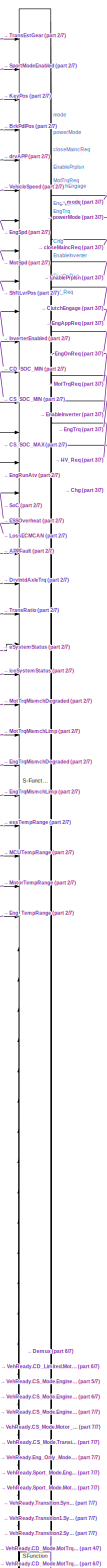
[diagram: Controller/HSC/Powertrain Manager/Torque Distribution/Supervisory  Control  Logic1 - part 1/7, top center region]
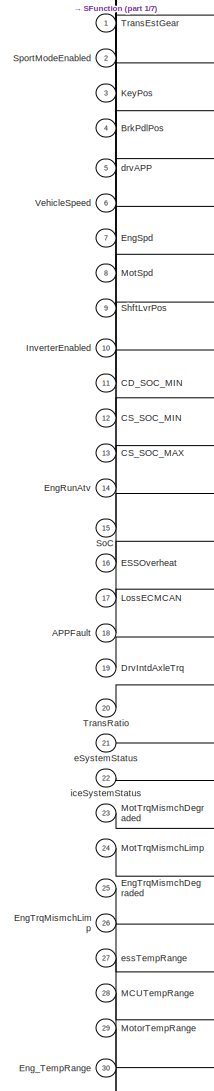
[diagram: Controller/HSC/Powertrain Manager/Torque Distribution/Supervisory  Control  Logic1 - part 2/7, top left region]
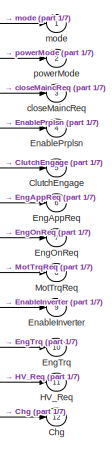
[diagram: Controller/HSC/Powertrain Manager/Torque Distribution/Supervisory  Control  Logic1 - part 3/7, top right region]
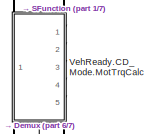
[diagram: Controller/HSC/Powertrain Manager/Torque Distribution/Supervisory  Control  Logic1 - part 4/7, central region]
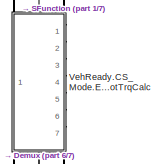
[diagram: Controller/HSC/Powertrain Manager/Torque Distribution/Supervisory  Control  Logic1 - part 5/7, central region]
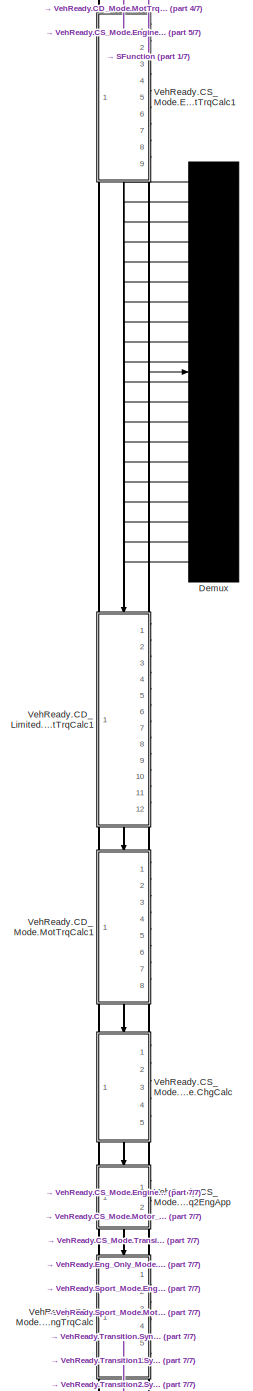
[diagram: Controller/HSC/Powertrain Manager/Torque Distribution/Supervisory  Control  Logic1 - part 6/7, bottom center region]
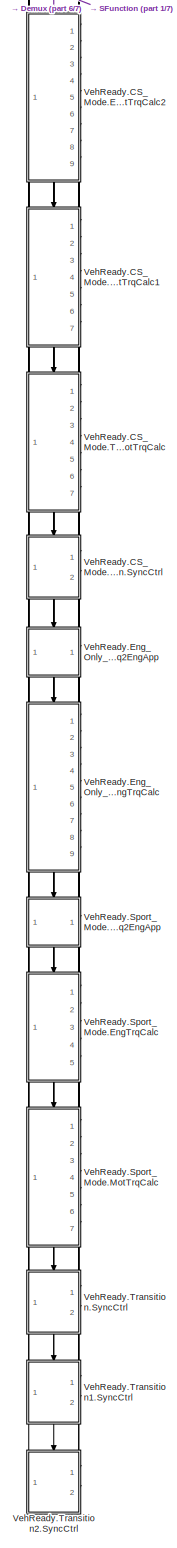
[diagram: Controller/HSC/Powertrain Manager/Torque Distribution/Supervisory  Control  Logic1 - part 7/7, bottom center region]
BLOCK [SubSystem] Controller/HSC/Powertrain Manager/Torque Distribution/Supervisory  Control  Logic1
  ErrorFcn = Stateflow.Translate.translate
  PermitHierarchicalResolution = ExplicitOnly
  Ports = [30, 12]
  RequestExecContextInheritance = off
  SFBlockType = Chart
  TreatAsAtomicUnit = on
  Variant = off
BLOCK [Demux] Controller/HSC/Powertrain Manager/Torque Distribution/Supervisory  Control  Logic1/ Demux 
  Outputs = 20
  Ports = [1, 20]
BLOCK [S-Function] Controller/HSC/Powertrain Manager/Torque Distribution/Supervisory  Control  Logic1/ SFunction 
  EnableBusSupport = on
  FunctionName = sf_sfun
  PortCounts = [50 121]
  Ports = [50, 121]
  SFunctionDeploymentMode = off
  Tag = Stateflow S-Function P2_SIL_Model_Diag 8
BLOCK [Inport] Controller/HSC/Powertrain Manager/Torque Distribution/Supervisory  Control  Logic1/APPFault
  IconDisplay = Port number
  Port = 18
BLOCK [Inport] Controller/HSC/Powertrain Manager/Torque Distribution/Supervisory  Control  Logic1/BrkPdlPos
  IconDisplay = Port number
  Port = 4
BLOCK [Inport] Controller/HSC/Powertrain Manager/Torque Distribution/Supervisory  Control  Logic1/CD_SOC_MIN
  IconDisplay = Port number
  Port = 11
BLOCK [Inport] Controller/HSC/Powertrain Manager/Torque Distribution/Supervisory  Control  Logic1/CS_SOC_MAX
  IconDisplay = Port number
  Port = 13
BLOCK [Inport] Controller/HSC/Powertrain Manager/Torque Distribution/Supervisory  Control  Logic1/CS_SOC_MIN
  IconDisplay = Port number
  Port = 12
BLOCK [Outport] Controller/HSC/Powertrain Manager/Torque Distribution/Supervisory  Control  Logic1/Chg
  IconDisplay = Port number
  Port = 12
BLOCK [Outport] Controller/HSC/Powertrain Manager/Torque Distribution/Supervisory  Control  Logic1/ClutchEngage
  IconDisplay = Port number
  Port = 5
BLOCK [Inport] Controller/HSC/Powertrain Manager/Torque Distribution/Supervisory  Control  Logic1/DrvIntdAxleTrq
  IconDisplay = Port number
  Port = 19
BLOCK [Inport] Controller/HSC/Powertrain Manager/Torque Distribution/Supervisory  Control  Logic1/ESSOverheat
  IconDisplay = Port number
  Port = 16
BLOCK [Outport] Controller/HSC/Powertrain Manager/Torque Distribution/Supervisory  Control  Logic1/EnableInverter
  IconDisplay = Port number
  Port = 9
BLOCK [Outport] Controller/HSC/Powertrain Manager/Torque Distribution/Supervisory  Control  Logic1/EnablePrplsn
  IconDisplay = Port number
  Port = 4
BLOCK [Outport] Controller/HSC/Powertrain Manager/Torque Distribution/Supervisory  Control  Logic1/EngAppReq
  IconDisplay = Port number
  Port = 6
BLOCK [Outport] Controller/HSC/Powertrain Manager/Torque Distribution/Supervisory  Control  Logic1/EngOnReq
  IconDisplay = Port number
  Port = 7
BLOCK [Inport] Controller/HSC/Powertrain Manager/Torque Distribution/Supervisory  Control  Logic1/EngRunAtv
  IconDisplay = Port number
  Port = 14
BLOCK [Inport] Controller/HSC/Powertrain Manager/Torque Distribution/Supervisory  Control  Logic1/EngSpd
  IconDisplay = Port number
  Port = 7
BLOCK [Outport] Controller/HSC/Powertrain Manager/Torque Distribution/Supervisory  Control  Logic1/EngTrq
  IconDisplay = Port number
  Port = 10
BLOCK [Inport] Controller/HSC/Powertrain Manager/Torque Distribution/Supervisory  Control  Logic1/EngTrqMismchDegraded
  IconDisplay = Port number
  Port = 25
BLOCK [Inport] Controller/HSC/Powertrain Manager/Torque Distribution/Supervisory  Control  Logic1/EngTrqMismchLimp
  IconDisplay = Port number
  Port = 26
BLOCK [Inport] Controller/HSC/Powertrain Manager/Torque Distribution/Supervisory  Control  Logic1/Eng_TempRange
  IconDisplay = Port number
  Port = 30
BLOCK [Outport] Controller/HSC/Powertrain Manager/Torque Distribution/Supervisory  Control  Logic1/HV_Req
  IconDisplay = Port number
  Port = 11
BLOCK [Inport] Controller/HSC/Powertrain Manager/Torque Distribution/Supervisory  Control  Logic1/InverterEnabled
  IconDisplay = Port number
  Port = 10
BLOCK [Inport] Controller/HSC/Powertrain Manager/Torque Distribution/Supervisory  Control  Logic1/KeyPos
  IconDisplay = Port number
  Port = 3
BLOCK [Inport] Controller/HSC/Powertrain Manager/Torque Distribution/Supervisory  Control  Logic1/LossECMCAN
  IconDisplay = Port number
  Port = 17
BLOCK [Inport] Controller/HSC/Powertrain Manager/Torque Distribution/Supervisory  Control  Logic1/MCUTempRange
  IconDisplay = Port number
  Port = 28
BLOCK [Inport] Controller/HSC/Powertrain Manager/Torque Distribution/Supervisory  Control  Logic1/MotSpd
  IconDisplay = Port number
  Port = 8
BLOCK [Inport] Controller/HSC/Powertrain Manager/Torque Distribution/Supervisory  Control  Logic1/MotTrqMismchDegraded
  IconDisplay = Port number
  Port = 23
BLOCK [Inport] Controller/HSC/Powertrain Manager/Torque Distribution/Supervisory  Control  Logic1/MotTrqMismchLimp
  IconDisplay = Port number
  Port = 24
BLOCK [Outport] Controller/HSC/Powertrain Manager/Torque Distribution/Supervisory  Control  Logic1/MotTrqReq
  IconDisplay = Port number
  Port = 8
BLOCK [Inport] Controller/HSC/Powertrain Manager/Torque Distribution/Supervisory  Control  Logic1/MotorTempRange
  IconDisplay = Port number
  Port = 29
BLOCK [Inport] Controller/HSC/Powertrain Manager/Torque Distribution/Supervisory  Control  Logic1/ShftLvrPos
  IconDisplay = Port number
  Port = 9
BLOCK [Inport] Controller/HSC/Powertrain Manager/Torque Distribution/Supervisory  Control  Logic1/SoC
  IconDisplay = Port number
  Port = 15
BLOCK [Inport] Controller/HSC/Powertrain Manager/Torque Distribution/Supervisory  Control  Logic1/SportModeEnabled
  IconDisplay = Port number
  Port = 2
BLOCK [Inport] Controller/HSC/Powertrain Manager/Torque Distribution/Supervisory  Control  Logic1/TransEstGear
  IconDisplay = Port number
BLOCK [Inport] Controller/HSC/Powertrain Manager/Torque Distribution/Supervisory  Control  Logic1/TransRatio
  IconDisplay = Port number
  Port = 20
BLOCK [SubSystem] Controller/HSC/Powertrain Manager/Torque Distribution/Supervisory  Control  Logic1/VehReady.CD_Limited.MotTrqCalc1
  Ports = [12, 1, 0, 1]
  PreDeleteFcn = Stateflow.SLINSF.SimulinkMan.removePreDeleteFcn
  RequestExecContextInheritance = off
  UndoDeleteFcn = Stateflow.SLINSF.SimulinkMan.restorePreDeleteFcn
  Variant = off
BLOCK [Gain] Controller/HSC/Powertrain Manager/Torque Distribution/Supervisory  Control  Logic1/VehReady.CD_Limited.MotTrqCalc1/% to 1
  Gain = 1/100
  OutDataTypeStr = Inherit: Inherit via internal rule
  ParamDataTypeStr = Inherit: Inherit via internal rule
  SaturateOnIntegerOverflow = off
BLOCK [Gain] Controller/HSC/Powertrain Manager/Torque Distribution/Supervisory  Control  Logic1/VehReady.CD_Limited.MotTrqCalc1/% to 1 
  Gain = 1/100
  OutDataTypeStr = Inherit: Inherit via internal rule
  ParamDataTypeStr = Inherit: Inherit via internal rule
  SaturateOnIntegerOverflow = off
BLOCK [Inport] Controller/HSC/Powertrain Manager/Torque Distribution/Supervisory  Control  Logic1/VehReady.CD_Limited.MotTrqCalc1/APP
  IconDisplay = Port number
BLOCK [Inport] Controller/HSC/Powertrain Manager/Torque Distribution/Supervisory  Control  Logic1/VehReady.CD_Limited.MotTrqCalc1/BPP
  IconDisplay = Port number
  Port = 2
BLOCK [Constant] Controller/HSC/Powertrain Manager/Torque Distribution/Supervisory  Control  Logic1/VehReady.CD_Limited.MotTrqCalc1/Constant
  Value = 0
BLOCK [Constant] Controller/HSC/Powertrain Manager/Torque Distribution/Supervisory  Control  Logic1/VehReady.CD_Limited.MotTrqCalc1/Constant1
  Value = 0
BLOCK [Constant] Controller/HSC/Powertrain Manager/Torque Distribution/Supervisory  Control  Logic1/VehReady.CD_Limited.MotTrqCalc1/Constant2
  Value = fd.plant.init.ratio
BLOCK [Product] Controller/HSC/Powertrain Manager/Torque Distribution/Supervisory  Control  Logic1/VehReady.CD_Limited.MotTrqCalc1/Divide
  InputSameDT = off
  Inputs = ***
  OutDataTypeStr = Inherit: Inherit via internal rule
  Ports = [3, 1]
  RndMeth = Floor
  SaturateOnIntegerOverflow = off
BLOCK [Product] Controller/HSC/Powertrain Manager/Torque Distribution/Supervisory  Control  Logic1/VehReady.CD_Limited.MotTrqCalc1/Divide1
  InputSameDT = off
  Inputs = **
  OutDataTypeStr = Inherit: Inherit via internal rule
  Ports = [2, 1]
  RndMeth = Floor
  SaturateOnIntegerOverflow = off
BLOCK [Product] Controller/HSC/Powertrain Manager/Torque Distribution/Supervisory  Control  Logic1/VehReady.CD_Limited.MotTrqCalc1/Divide2
  InputSameDT = off
  Inputs = ***
  OutDataTypeStr = Inherit: Inherit via internal rule
  Ports = [3, 1]
  RndMeth = Floor
  SaturateOnIntegerOverflow = off
BLOCK [Inport] Controller/HSC/Powertrain Manager/Torque Distribution/Supervisory  Control  Logic1/VehReady.CD_Limited.MotTrqCalc1/DrvIntdAxleTrq
  IconDisplay = Port number
  Port = 6
BLOCK [From] Controller/HSC/Powertrain Manager/Torque Distribution/Supervisory  Control  Logic1/VehReady.CD_Limited.MotTrqCalc1/From
  GotoTag = TrqCalc
BLOCK [From] Controller/HSC/Powertrain Manager/Torque Distribution/Supervisory  Control  Logic1/VehReady.CD_Limited.MotTrqCalc1/From1
  GotoTag = TrqCalc
BLOCK [From] Controller/HSC/Powertrain Manager/Torque Distribution/Supervisory  Control  Logic1/VehReady.CD_Limited.MotTrqCalc1/From2
  GotoTag = TrqCalc
BLOCK [Goto] Controller/HSC/Powertrain Manager/Torque Distribution/Supervisory  Control  Logic1/VehReady.CD_Limited.MotTrqCalc1/Goto2
  GotoTag = TrqCalc
BLOCK [MultiPortSwitch] Controller/HSC/Powertrain Manager/Torque Distribution/Supervisory  Control  Logic1/VehReady.CD_Limited.MotTrqCalc1/Index Vector
  DataPortOrder = Zero-based contiguous
  InputSameDT = off
  Inputs = 5
  Ports = [6, 1]
  SaturateOnIntegerOverflow = off
  zeroidx = on
BLOCK [Inport] Controller/HSC/Powertrain Manager/Torque Distribution/Supervisory  Control  Logic1/VehReady.CD_Limited.MotTrqCalc1/MCUTempRange
  IconDisplay = Port number
  Port = 11
BLOCK [MinMax] Controller/HSC/Powertrain Manager/Torque Distribution/Supervisory  Control  Logic1/VehReady.CD_Limited.MotTrqCalc1/MinMax
  InputSameDT = off
  Inputs = 2
  Ports = [2, 1]
  SaturateOnIntegerOverflow = off
BLOCK [Inport] Controller/HSC/Powertrain Manager/Torque Distribution/Supervisory  Control  Logic1/VehReady.CD_Limited.MotTrqCalc1/MotSpeed
  IconDisplay = Port number
  Port = 5
BLOCK [InportShadow] Controller/HSC/Powertrain Manager/Torque Distribution/Supervisory  Control  Logic1/VehReady.CD_Limited.MotTrqCalc1/MotSpeed1
  IconDisplay = Port number
  Port = 5
BLOCK [Inport] Controller/HSC/Powertrain Manager/Torque Distribution/Supervisory  Control  Logic1/VehReady.CD_Limited.MotTrqCalc1/MotTrqMismchDegraded
  IconDisplay = Port number
  Port = 8
BLOCK [Inport] Controller/HSC/Powertrain Manager/Torque Distribution/Supervisory  Control  Logic1/VehReady.CD_Limited.MotTrqCalc1/MotTrqMismchLimp
  IconDisplay = Port number
  Port = 9
BLOCK [SubSystem] Controller/HSC/Powertrain Manager/Torque Distribution/Supervisory  Control  Logic1/VehReady.CD_Limited.MotTrqCalc1/Motor Troque Mismatch Mitigation
  Ports = [3, 1]
  RequestExecContextInheritance = off
  Variant = off
BLOCK [Constant] Controller/HSC/Powertrain Manager/Torque Distribution/Supervisory  Control  Logic1/VehReady.CD_Limited.MotTrqCalc1/Motor Troque Mismatch Mitigation/Constant5
  Value = mot.plant.init.trq_posmax
BLOCK [Gain] Controller/HSC/Powertrain Manager/Torque Distribution/Supervisory  Control  Logic1/VehReady.CD_Limited.MotTrqCalc1/Motor Troque Mismatch Mitigation/Gain1
  Gain = cal.DegradedPerc
  OutDataTypeStr = Inherit: Inherit via internal rule
  ParamDataTypeStr = Inherit: Inherit via internal rule
  SaturateOnIntegerOverflow = off
BLOCK [Gain] Controller/HSC/Powertrain Manager/Torque Distribution/Supervisory  Control  Logic1/VehReady.CD_Limited.MotTrqCalc1/Motor Troque Mismatch Mitigation/Gain3
  Gain = cal.LimpHPerc
  OutDataTypeStr = Inherit: Inherit via internal rule
  ParamDataTypeStr = Inherit: Inherit via internal rule
  SaturateOnIntegerOverflow = off
BLOCK [Inport] Controller/HSC/Powertrain Manager/Torque Distribution/Supervisory  Control  Logic1/VehReady.CD_Limited.MotTrqCalc1/Motor Troque Mismatch Mitigation/In1
  IconDisplay = Port number
BLOCK [MinMax] Controller/HSC/Powertrain Manager/Torque Distribution/Supervisory  Control  Logic1/VehReady.CD_Limited.MotTrqCalc1/Motor Troque Mismatch Mitigation/Min1
  InputSameDT = off
  Inputs = 2
  Ports = [2, 1]
  SaturateOnIntegerOverflow = off
BLOCK [MinMax] Controller/HSC/Powertrain Manager/Torque Distribution/Supervisory  Control  Logic1/VehReady.CD_Limited.MotTrqCalc1/Motor Troque Mismatch Mitigation/Min2
  InputSameDT = off
  Inputs = 2
  Ports = [2, 1]
  SaturateOnIntegerOverflow = off
BLOCK [Inport] Controller/HSC/Powertrain Manager/Torque Distribution/Supervisory  Control  Logic1/VehReady.CD_Limited.MotTrqCalc1/Motor Troque Mismatch Mitigation/MotTrqMismchDegraded
  IconDisplay = Port number
  Port = 2
BLOCK [Inport] Controller/HSC/Powertrain Manager/Torque Distribution/Supervisory  Control  Logic1/VehReady.CD_Limited.MotTrqCalc1/Motor Troque Mismatch Mitigation/MotTrqMismchLimp
  IconDisplay = Port number
  Port = 3
BLOCK [Outport] Controller/HSC/Powertrain Manager/Torque Distribution/Supervisory  Control  Logic1/VehReady.CD_Limited.MotTrqCalc1/Motor Troque Mismatch Mitigation/Out1
  IconDisplay = Port number
BLOCK [Switch] Controller/HSC/Powertrain Manager/Torque Distribution/Supervisory  Control  Logic1/VehReady.CD_Limited.MotTrqCalc1/Motor Troque Mismatch Mitigation/Switch1
  InputSameDT = off
  SaturateOnIntegerOverflow = off
  Threshold = 1
BLOCK [Switch] Controller/HSC/Powertrain Manager/Torque Distribution/Supervisory  Control  Logic1/VehReady.CD_Limited.MotTrqCalc1/Motor Troque Mismatch Mitigation/Switch2
  InputSameDT = off
  SaturateOnIntegerOverflow = off
  Threshold = 1
BLOCK [UnitDelay] Controller/HSC/Powertrain Manager/Torque Distribution/Supervisory  Control  Logic1/VehReady.CD_Limited.MotTrqCalc1/Motor Troque Mismatch Mitigation/Unit Delay
  SampleTime = -1
BLOCK [UnitDelay] Controller/HSC/Powertrain Manager/Torque Distribution/Supervisory  Control  Logic1/VehReady.CD_Limited.MotTrqCalc1/Motor Troque Mismatch Mitigation/Unit Delay1
  SampleTime = -1
BLOCK [Inport] Controller/HSC/Powertrain Manager/Torque Distribution/Supervisory  Control  Logic1/VehReady.CD_Limited.MotTrqCalc1/MotorTempRange
  IconDisplay = Port number
  Port = 12
BLOCK [SubSystem] Controller/HSC/Powertrain Manager/Torque Distribution/Supervisory  Control  Logic1/VehReady.CD_Limited.MotTrqCalc1/OverTemperature Mitigation
  Ports = [4, 1]
  RequestExecContextInheritance = off
  Variant = off
BLOCK [Reference] Controller/HSC/Powertrain Manager/Torque Distribution/Supervisory  Control  Logic1/VehReady.CD_Limited.MotTrqCalc1/OverTemperature Mitigation/Compare To Constant  REF=simulink/Logic and Bit
Operations/Compare
To Constant
  Ports = [1, 1]
  SourceBlock = simulink/Logic and Bit\nOperations/Compare\nTo Constant
  SourceType = Compare To Constant
BLOCK [Reference] Controller/HSC/Powertrain Manager/Torque Distribution/Supervisory  Control  Logic1/VehReady.CD_Limited.MotTrqCalc1/OverTemperature Mitigation/Compare To Constant1  REF=simulink/Logic and Bit
Operations/Compare
To Constant
  Ports = [1, 1]
  SourceBlock = simulink/Logic and Bit\nOperations/Compare\nTo Constant
  SourceType = Compare To Constant
BLOCK [Reference] Controller/HSC/Powertrain Manager/Torque Distribution/Supervisory  Control  Logic1/VehReady.CD_Limited.MotTrqCalc1/OverTemperature Mitigation/Compare To Constant2  REF=simulink/Logic and Bit
Operations/Compare
To Constant
  Ports = [1, 1]
  SourceBlock = simulink/Logic and Bit\nOperations/Compare\nTo Constant
  SourceType = Compare To Constant
BLOCK [Reference] Controller/HSC/Powertrain Manager/Torque Distribution/Supervisory  Control  Logic1/VehReady.CD_Limited.MotTrqCalc1/OverTemperature Mitigation/Compare To Constant3  REF=simulink/Logic and Bit
Operations/Compare
To Constant
  Ports = [1, 1]
  SourceBlock = simulink/Logic and Bit\nOperations/Compare\nTo Constant
  SourceType = Compare To Constant
BLOCK [Reference] Controller/HSC/Powertrain Manager/Torque Distribution/Supervisory  Control  Logic1/VehReady.CD_Limited.MotTrqCalc1/OverTemperature Mitigation/Compare To Constant4  REF=simulink/Logic and Bit
Operations/Compare
To Constant
  Ports = [1, 1]
  SourceBlock = simulink/Logic and Bit\nOperations/Compare\nTo Constant
  SourceType = Compare To Constant
BLOCK [Reference] Controller/HSC/Powertrain Manager/Torque Distribution/Supervisory  Control  Logic1/VehReady.CD_Limited.MotTrqCalc1/OverTemperature Mitigation/Compare To Constant5  REF=simulink/Logic and Bit
Operations/Compare
To Constant
  Ports = [1, 1]
  SourceBlock = simulink/Logic and Bit\nOperations/Compare\nTo Constant
  SourceType = Compare To Constant
BLOCK [Constant] Controller/HSC/Powertrain Manager/Torque Distribution/Supervisory  Control  Logic1/VehReady.CD_Limited.MotTrqCalc1/OverTemperature Mitigation/Constant3
  Value = mot.plant.init.trq_posmax
BLOCK [Constant] Controller/HSC/Powertrain Manager/Torque Distribution/Supervisory  Control  Logic1/VehReady.CD_Limited.MotTrqCalc1/OverTemperature Mitigation/Constant5
  Value = mot.plant.init.trq_posmax
BLOCK [Gain] Controller/HSC/Powertrain Manager/Torque Distribution/Supervisory  Control  Logic1/VehReady.CD_Limited.MotTrqCalc1/OverTemperature Mitigation/Gain1
  Gain = 0.4
  OutDataTypeStr = Inherit: Inherit via internal rule
  ParamDataTypeStr = Inherit: Inherit via internal rule
  SaturateOnIntegerOverflow = off
BLOCK [Gain] Controller/HSC/Powertrain Manager/Torque Distribution/Supervisory  Control  Logic1/VehReady.CD_Limited.MotTrqCalc1/OverTemperature Mitigation/Gain3
  Gain = 0.5
  OutDataTypeStr = Inherit: Inherit via internal rule
  ParamDataTypeStr = Inherit: Inherit via internal rule
  SaturateOnIntegerOverflow = off
BLOCK [Inport] Controller/HSC/Powertrain Manager/Torque Distribution/Supervisory  Control  Logic1/VehReady.CD_Limited.MotTrqCalc1/OverTemperature Mitigation/In1
  IconDisplay = Port number
BLOCK [Logic] Controller/HSC/Powertrain Manager/Torque Distribution/Supervisory  Control  Logic1/VehReady.CD_Limited.MotTrqCalc1/OverTemperature Mitigation/Logical Operator
  AllPortsSameDT = off
  Operator = OR
  OutDataTypeStr = boolean
  Ports = [2, 1]
BLOCK [Logic] Controller/HSC/Powertrain Manager/Torque Distribution/Supervisory  Control  Logic1/VehReady.CD_Limited.MotTrqCalc1/OverTemperature Mitigation/Logical Operator1
  AllPortsSameDT = off
  Operator = OR
  OutDataTypeStr = boolean
  Ports = [2, 1]
BLOCK [Logic] Controller/HSC/Powertrain Manager/Torque Distribution/Supervisory  Control  Logic1/VehReady.CD_Limited.MotTrqCalc1/OverTemperature Mitigation/Logical Operator2
  AllPortsSameDT = off
  Operator = OR
  OutDataTypeStr = boolean
  Ports = [2, 1]
BLOCK [Inport] Controller/HSC/Powertrain Manager/Torque Distribution/Supervisory  Control  Logic1/VehReady.CD_Limited.MotTrqCalc1/OverTemperature Mitigation/MCUTempRange
  IconDisplay = Port number
  Port = 3
BLOCK [MinMax] Controller/HSC/Powertrain Manager/Torque Distribution/Supervisory  Control  Logic1/VehReady.CD_Limited.MotTrqCalc1/OverTemperature Mitigation/MinMax1
  InputSameDT = off
  Inputs = 2
  Ports = [2, 1]
  SaturateOnIntegerOverflow = off
BLOCK [MinMax] Controller/HSC/Powertrain Manager/Torque Distribution/Supervisory  Control  Logic1/VehReady.CD_Limited.MotTrqCalc1/OverTemperature Mitigation/MinMax2
  InputSameDT = off
  Inputs = 2
  Ports = [2, 1]
  SaturateOnIntegerOverflow = off
BLOCK [Inport] Controller/HSC/Powertrain Manager/Torque Distribution/Supervisory  Control  Logic1/VehReady.CD_Limited.MotTrqCalc1/OverTemperature Mitigation/MotorTempRange
  IconDisplay = Port number
  Port = 4
BLOCK [Outport] Controller/HSC/Powertrain Manager/Torque Distribution/Supervisory  Control  Logic1/VehReady.CD_Limited.MotTrqCalc1/OverTemperature Mitigation/Out1
  IconDisplay = Port number
BLOCK [Switch] Controller/HSC/Powertrain Manager/Torque Distribution/Supervisory  Control  Logic1/VehReady.CD_Limited.MotTrqCalc1/OverTemperature Mitigation/Switch1
  InputSameDT = off
  SaturateOnIntegerOverflow = off
  Threshold = 1
BLOCK [Switch] Controller/HSC/Powertrain Manager/Torque Distribution/Supervisory  Control  Logic1/VehReady.CD_Limited.MotTrqCalc1/OverTemperature Mitigation/Switch2
  InputSameDT = off
  SaturateOnIntegerOverflow = off
  Threshold = 1
BLOCK [Switch] Controller/HSC/Powertrain Manager/Torque Distribution/Supervisory  Control  Logic1/VehReady.CD_Limited.MotTrqCalc1/OverTemperature Mitigation/Switch3
  InputSameDT = off
  SaturateOnIntegerOverflow = off
  Threshold = 1
BLOCK [Inport] Controller/HSC/Powertrain Manager/Torque Distribution/Supervisory  Control  Logic1/VehReady.CD_Limited.MotTrqCalc1/OverTemperature Mitigation/essTempRange
  IconDisplay = Port number
  Port = 2
BLOCK [Lookup] Controller/HSC/Powertrain Manager/Torque Distribution/Supervisory  Control  Logic1/VehReady.CD_Limited.MotTrqCalc1/Peak trq max - Motoring
  InputValues = mot.plant.init.regen.trq_max.idx1_spd
  LookUpMeth = Interpolation-Use End Values
  Table = mot.plant.init.motor.trq_max.map
BLOCK [Lookup] Controller/HSC/Powertrain Manager/Torque Distribution/Supervisory  Control  Logic1/VehReady.CD_Limited.MotTrqCalc1/Peak trq max - Regen
  InputValues = mot.plant.init.regen.trq_max.idx1_spd
  LookUpMeth = Interpolation-Use End Values
  Table = mot.plant.init.regen.trq_max.map
BLOCK [Lookup_n-D] Controller/HSC/Powertrain Manager/Torque Distribution/Supervisory  Control  Logic1/VehReady.CD_Limited.MotTrqCalc1/Regen Trq Derating
  BreakpointsForDimension1 = [0 10 20 30 40]
  ExtrapMethod = Clip
  InternalRulePriority = Speed
  NumberOfTableDimensions = 1
  Ports = [1, 1]
  RndMeth = Simplest
  Table = [0 0.025 0.05 0.1 1]
  UseLastTableValue = on
BLOCK [Inport] Controller/HSC/Powertrain Manager/Torque Distribution/Supervisory  Control  Logic1/VehReady.CD_Limited.MotTrqCalc1/ShftLvrPos
  IconDisplay = Port number
  Port = 4
BLOCK [Switch] Controller/HSC/Powertrain Manager/Torque Distribution/Supervisory  Control  Logic1/VehReady.CD_Limited.MotTrqCalc1/Switch
  Criteria = u2 > Threshold
  InputSameDT = off
  SaturateOnIntegerOverflow = off
BLOCK [Outport] Controller/HSC/Powertrain Manager/Torque Distribution/Supervisory  Control  Logic1/VehReady.CD_Limited.MotTrqCalc1/T
  IconDisplay = Port number
BLOCK [Inport] Controller/HSC/Powertrain Manager/Torque Distribution/Supervisory  Control  Logic1/VehReady.CD_Limited.MotTrqCalc1/TransRatio
  IconDisplay = Port number
  Port = 7
BLOCK [Inport] Controller/HSC/Powertrain Manager/Torque Distribution/Supervisory  Control  Logic1/VehReady.CD_Limited.MotTrqCalc1/VehSpd
  IconDisplay = Port number
  Port = 3
BLOCK [Inport] Controller/HSC/Powertrain Manager/Torque Distribution/Supervisory  Control  Logic1/VehReady.CD_Limited.MotTrqCalc1/essTempRange
  IconDisplay = Port number
  Port = 10
BLOCK [TriggerPort] Controller/HSC/Powertrain Manager/Torque Distribution/Supervisory  Control  Logic1/VehReady.CD_Limited.MotTrqCalc1/f
  CopyFcn = Stateflow.SLINSF.SimulinkMan.removeBlockPreDeleteFcn
  Ports = []
  PreDeleteFcn = Stateflow.SLINSF.SimulinkMan.unsafePredeleteFcn
  StatesWhenEnabling = held
  TriggerType = function-call
  VariantControl = Variant
BLOCK [Saturate] Controller/HSC/Powertrain Manager/Torque Distribution/Supervisory  Control  Logic1/VehReady.CD_Limited.MotTrqCalc1/limit to 200Nm
  InputPortMap = u0
  LowerLimit = -200
  Ports = [1, 1]
  UpperLimit = 0
BLOCK [SubSystem] Controller/HSC/Powertrain Manager/Torque Distribution/Supervisory  Control  Logic1/VehReady.CD_Mode.MotTrqCalc
  Commented = on
  Ports = [5, 1, 0, 1]
  PreDeleteFcn = Stateflow.SLINSF.SimulinkMan.removePreDeleteFcn
  RequestExecContextInheritance = off
  UndoDeleteFcn = Stateflow.SLINSF.SimulinkMan.restorePreDeleteFcn
  Variant = off
BLOCK [Gain] Controller/HSC/Powertrain Manager/Torque Distribution/Supervisory  Control  Logic1/VehReady.CD_Mode.MotTrqCalc/% to 1
  Gain = 1/100
  OutDataTypeStr = Inherit: Inherit via internal rule
  ParamDataTypeStr = Inherit: Inherit via internal rule
  SaturateOnIntegerOverflow = off
BLOCK [Gain] Controller/HSC/Powertrain Manager/Torque Distribution/Supervisory  Control  Logic1/VehReady.CD_Mode.MotTrqCalc/% to 1 
  Gain = 1/100
  OutDataTypeStr = Inherit: Inherit via internal rule
  ParamDataTypeStr = Inherit: Inherit via internal rule
  SaturateOnIntegerOverflow = off
BLOCK [Inport] Controller/HSC/Powertrain Manager/Torque Distribution/Supervisory  Control  Logic1/VehReady.CD_Mode.MotTrqCalc/APP
  IconDisplay = Port number
BLOCK [Inport] Controller/HSC/Powertrain Manager/Torque Distribution/Supervisory  Control  Logic1/VehReady.CD_Mode.MotTrqCalc/BPP
  IconDisplay = Port number
  Port = 2
BLOCK [Constant] Controller/HSC/Powertrain Manager/Torque Distribution/Supervisory  Control  Logic1/VehReady.CD_Mode.MotTrqCalc/Constant
  Value = 0
BLOCK [Constant] Controller/HSC/Powertrain Manager/Torque Distribution/Supervisory  Control  Logic1/VehReady.CD_Mode.MotTrqCalc/Constant1
  Value = 0
BLOCK [Product] Controller/HSC/Powertrain Manager/Torque Distribution/Supervisory  Control  Logic1/VehReady.CD_Mode.MotTrqCalc/Divide
  InputSameDT = off
  Inputs = ***
  OutDataTypeStr = Inherit: Inherit via internal rule
  Ports = [3, 1]
  RndMeth = Floor
  SaturateOnIntegerOverflow = off
BLOCK [Product] Controller/HSC/Powertrain Manager/Torque Distribution/Supervisory  Control  Logic1/VehReady.CD_Mode.MotTrqCalc/Divide1
  InputSameDT = off
  Inputs = **
  OutDataTypeStr = Inherit: Inherit via internal rule
  Ports = [2, 1]
  RndMeth = Floor
  SaturateOnIntegerOverflow = off
BLOCK [From] Controller/HSC/Powertrain Manager/Torque Distribution/Supervisory  Control  Logic1/VehReady.CD_Mode.MotTrqCalc/From
  GotoTag = TrqCalc
BLOCK [From] Controller/HSC/Powertrain Manager/Torque Distribution/Supervisory  Control  Logic1/VehReady.CD_Mode.MotTrqCalc/From1
  GotoTag = TrqCalc
BLOCK [From] Controller/HSC/Powertrain Manager/Torque Distribution/Supervisory  Control  Logic1/VehReady.CD_Mode.MotTrqCalc/From2
  GotoTag = TrqCalc
BLOCK [Goto] Controller/HSC/Powertrain Manager/Torque Distribution/Supervisory  Control  Logic1/VehReady.CD_Mode.MotTrqCalc/Goto
  GotoTag = TrqCalc
BLOCK [MultiPortSwitch] Controller/HSC/Powertrain Manager/Torque Distribution/Supervisory  Control  Logic1/VehReady.CD_Mode.MotTrqCalc/Index Vector
  DataPortOrder = Zero-based contiguous
  InputSameDT = off
  Inputs = 5
  Ports = [6, 1]
  SaturateOnIntegerOverflow = off
  zeroidx = on
BLOCK [Inport] Controller/HSC/Powertrain Manager/Torque Distribution/Supervisory  Control  Logic1/VehReady.CD_Mode.MotTrqCalc/MotSpeed
  IconDisplay = Port number
  Port = 5
BLOCK [InportShadow] Controller/HSC/Powertrain Manager/Torque Distribution/Supervisory  Control  Logic1/VehReady.CD_Mode.MotTrqCalc/MotSpeed1
  IconDisplay = Port number
  Port = 5
BLOCK [Lookup] Controller/HSC/Powertrain Manager/Torque Distribution/Supervisory  Control  Logic1/VehReady.CD_Mode.MotTrqCalc/Peak trq max - Motoring
  InputValues = mot.plant.init.regen.trq_max.idx1_spd
  LookUpMeth = Interpolation-Use End Values
  Table = mot.plant.init.motor.trq_max.map
BLOCK [Lookup] Controller/HSC/Powertrain Manager/Torque Distribution/Supervisory  Control  Logic1/VehReady.CD_Mode.MotTrqCalc/Peak trq max - Regen
  InputValues = mot.plant.init.regen.trq_max.idx1_spd
  LookUpMeth = Interpolation-Use End Values
  Table = mot.plant.init.regen.trq_max.map
BLOCK [Lookup_n-D] Controller/HSC/Powertrain Manager/Torque Distribution/Supervisory  Control  Logic1/VehReady.CD_Mode.MotTrqCalc/Regen Trq Derating
  BreakpointsForDimension1 = [0 10 20 30 40]
  ExtrapMethod = Clip
  InternalRulePriority = Speed
  NumberOfTableDimensions = 1
  Ports = [1, 1]
  RndMeth = Simplest
  Table = [0 0.025 0.05 0.1 1]
  UseLastTableValue = on
BLOCK [Inport] Controller/HSC/Powertrain Manager/Torque Distribution/Supervisory  Control  Logic1/VehReady.CD_Mode.MotTrqCalc/Shifter
  IconDisplay = Port number
  Port = 4
BLOCK [Switch] Controller/HSC/Powertrain Manager/Torque Distribution/Supervisory  Control  Logic1/VehReady.CD_Mode.MotTrqCalc/Switch
  Criteria = u2 > Threshold
  InputSameDT = off
  SaturateOnIntegerOverflow = off
BLOCK [Outport] Controller/HSC/Powertrain Manager/Torque Distribution/Supervisory  Control  Logic1/VehReady.CD_Mode.MotTrqCalc/T
  IconDisplay = Port number
BLOCK [Inport] Controller/HSC/Powertrain Manager/Torque Distribution/Supervisory  Control  Logic1/VehReady.CD_Mode.MotTrqCalc/VehSpd
  IconDisplay = Port number
  Port = 3
BLOCK [TriggerPort] Controller/HSC/Powertrain Manager/Torque Distribution/Supervisory  Control  Logic1/VehReady.CD_Mode.MotTrqCalc/f
  CopyFcn = Stateflow.SLINSF.SimulinkMan.removeBlockPreDeleteFcn
  Ports = []
  PreDeleteFcn = Stateflow.SLINSF.SimulinkMan.unsafePredeleteFcn
  StatesWhenEnabling = held
  TriggerType = function-call
  VariantControl = Variant
BLOCK [Saturate] Controller/HSC/Powertrain Manager/Torque Distribution/Supervisory  Control  Logic1/VehReady.CD_Mode.MotTrqCalc/limit to 200Nm
  InputPortMap = u0
  LowerLimit = -200
  Ports = [1, 1]
  UpperLimit = 0
BLOCK [SubSystem] Controller/HSC/Powertrain Manager/Torque Distribution/Supervisory  Control  Logic1/VehReady.CD_Mode.MotTrqCalc1
  Ports = [8, 1, 0, 1]
  PreDeleteFcn = Stateflow.SLINSF.SimulinkMan.removePreDeleteFcn
  RequestExecContextInheritance = off
  UndoDeleteFcn = Stateflow.SLINSF.SimulinkMan.restorePreDeleteFcn
  Variant = off
BLOCK [Gain] Controller/HSC/Powertrain Manager/Torque Distribution/Supervisory  Control  Logic1/VehReady.CD_Mode.MotTrqCalc1/% to 1
  Gain = 1/100
  OutDataTypeStr = Inherit: Inherit via internal rule
  ParamDataTypeStr = Inherit: Inherit via internal rule
  SaturateOnIntegerOverflow = off
BLOCK [Gain] Controller/HSC/Powertrain Manager/Torque Distribution/Supervisory  Control  Logic1/VehReady.CD_Mode.MotTrqCalc1/% to 1 
  Gain = 1/100
  OutDataTypeStr = Inherit: Inherit via internal rule
  ParamDataTypeStr = Inherit: Inherit via internal rule
  SaturateOnIntegerOverflow = off
BLOCK [Inport] Controller/HSC/Powertrain Manager/Torque Distribution/Supervisory  Control  Logic1/VehReady.CD_Mode.MotTrqCalc1/APP
  IconDisplay = Port number
BLOCK [Inport] Controller/HSC/Powertrain Manager/Torque Distribution/Supervisory  Control  Logic1/VehReady.CD_Mode.MotTrqCalc1/BPP
  IconDisplay = Port number
  Port = 2
BLOCK [Reference] Controller/HSC/Powertrain Manager/Torque Distribution/Supervisory  Control  Logic1/VehReady.CD_Mode.MotTrqCalc1/Compare To Zero  REF=simulink/Logic and Bit
Operations/Compare
To Zero
  Ports = [1, 1]
  SourceBlock = simulink/Logic and Bit\nOperations/Compare\nTo Zero
  SourceType = Compare To Zero
BLOCK [Constant] Controller/HSC/Powertrain Manager/Torque Distribution/Supervisory  Control  Logic1/VehReady.CD_Mode.MotTrqCalc1/Constant
  Value = 0
BLOCK [Constant] Controller/HSC/Powertrain Manager/Torque Distribution/Supervisory  Control  Logic1/VehReady.CD_Mode.MotTrqCalc1/Constant1
  Value = 0
BLOCK [Constant] Controller/HSC/Powertrain Manager/Torque Distribution/Supervisory  Control  Logic1/VehReady.CD_Mode.MotTrqCalc1/Constant2
  Value = fd.plant.init.ratio
BLOCK [Constant] Controller/HSC/Powertrain Manager/Torque Distribution/Supervisory  Control  Logic1/VehReady.CD_Mode.MotTrqCalc1/Constant3
  Value = 0
BLOCK [Product] Controller/HSC/Powertrain Manager/Torque Distribution/Supervisory  Control  Logic1/VehReady.CD_Mode.MotTrqCalc1/Divide
  InputSameDT = off
  Inputs = ***
  OutDataTypeStr = Inherit: Inherit via internal rule
  Ports = [3, 1]
  RndMeth = Floor
  SaturateOnIntegerOverflow = off
BLOCK [Product] Controller/HSC/Powertrain Manager/Torque Distribution/Supervisory  Control  Logic1/VehReady.CD_Mode.MotTrqCalc1/Divide1
  InputSameDT = off
  Inputs = **
  OutDataTypeStr = Inherit: Inherit via internal rule
  Ports = [2, 1]
  RndMeth = Floor
  SaturateOnIntegerOverflow = off
BLOCK [Product] Controller/HSC/Powertrain Manager/Torque Distribution/Supervisory  Control  Logic1/VehReady.CD_Mode.MotTrqCalc1/Divide2
  InputSameDT = off
  Inputs = ***
  OutDataTypeStr = Inherit: Inherit via internal rule
  Ports = [3, 1]
  RndMeth = Floor
  SaturateOnIntegerOverflow = off
BLOCK [Inport] Controller/HSC/Powertrain Manager/Torque Distribution/Supervisory  Control  Logic1/VehReady.CD_Mode.MotTrqCalc1/DrvIntdAxleTrq
  IconDisplay = Port number
  Port = 6
BLOCK [From] Controller/HSC/Powertrain Manager/Torque Distribution/Supervisory  Control  Logic1/VehReady.CD_Mode.MotTrqCalc1/From
  GotoTag = TrqCalc
BLOCK [From] Controller/HSC/Powertrain Manager/Torque Distribution/Supervisory  Control  Logic1/VehReady.CD_Mode.MotTrqCalc1/From1
  GotoTag = TrqCalc
BLOCK [From] Controller/HSC/Powertrain Manager/Torque Distribution/Supervisory  Control  Logic1/VehReady.CD_Mode.MotTrqCalc1/From2
  GotoTag = TrqCalc
BLOCK [Goto] Controller/HSC/Powertrain Manager/Torque Distribution/Supervisory  Control  Logic1/VehReady.CD_Mode.MotTrqCalc1/Goto
  GotoTag = TrqCalc
BLOCK [MultiPortSwitch] Controller/HSC/Powertrain Manager/Torque Distribution/Supervisory  Control  Logic1/VehReady.CD_Mode.MotTrqCalc1/Index Vector
  DataPortOrder = Zero-based contiguous
  InputSameDT = off
  Inputs = 5
  Ports = [6, 1]
  SaturateOnIntegerOverflow = off
  zeroidx = on
BLOCK [MinMax] Controller/HSC/Powertrain Manager/Torque Distribution/Supervisory  Control  Logic1/VehReady.CD_Mode.MotTrqCalc1/MinMax
  InputSameDT = off
  Inputs = 2
  Ports = [2, 1]
  SaturateOnIntegerOverflow = off
BLOCK [Inport] Controller/HSC/Powertrain Manager/Torque Distribution/Supervisory  Control  Logic1/VehReady.CD_Mode.MotTrqCalc1/MotSpeed
  IconDisplay = Port number
  Port = 5
BLOCK [InportShadow] Controller/HSC/Powertrain Manager/Torque Distribution/Supervisory  Control  Logic1/VehReady.CD_Mode.MotTrqCalc1/MotSpeed1
  IconDisplay = Port number
  Port = 5
BLOCK [Lookup] Controller/HSC/Powertrain Manager/Torque Distribution/Supervisory  Control  Logic1/VehReady.CD_Mode.MotTrqCalc1/Peak trq max - Motoring
  InputValues = mot.plant.init.regen.trq_max.idx1_spd
  LookUpMeth = Interpolation-Use End Values
  Table = mot.plant.init.motor.trq_max.map
BLOCK [Lookup] Controller/HSC/Powertrain Manager/Torque Distribution/Supervisory  Control  Logic1/VehReady.CD_Mode.MotTrqCalc1/Peak trq max - Regen
  InputValues = mot.plant.init.regen.trq_max.idx1_spd
  LookUpMeth = Interpolation-Use End Values
  Table = mot.plant.init.regen.trq_max.map
BLOCK [Lookup_n-D] Controller/HSC/Powertrain Manager/Torque Distribution/Supervisory  Control  Logic1/VehReady.CD_Mode.MotTrqCalc1/Regen Trq Derating
  BreakpointsForDimension1 = [0 10 20 30 40]
  ExtrapMethod = Clip
  InternalRulePriority = Speed
  NumberOfTableDimensions = 1
  Ports = [1, 1]
  RndMeth = Simplest
  Table = [0 0.025 0.05 0.1 1]
  UseLastTableValue = on
BLOCK [Inport] Controller/HSC/Powertrain Manager/Torque Distribution/Supervisory  Control  Logic1/VehReady.CD_Mode.MotTrqCalc1/ShftLvrPos
  IconDisplay = Port number
  Port = 4
BLOCK [Switch] Controller/HSC/Powertrain Manager/Torque Distribution/Supervisory  Control  Logic1/VehReady.CD_Mode.MotTrqCalc1/Switch
  Criteria = u2 > Threshold
  InputSameDT = off
  SaturateOnIntegerOverflow = off
BLOCK [Switch] Controller/HSC/Powertrain Manager/Torque Distribution/Supervisory  Control  Logic1/VehReady.CD_Mode.MotTrqCalc1/Switch1
  InputSameDT = off
  SaturateOnIntegerOverflow = off
  Threshold = 1
BLOCK [Outport] Controller/HSC/Powertrain Manager/Torque Distribution/Supervisory  Control  Logic1/VehReady.CD_Mode.MotTrqCalc1/T
  IconDisplay = Port number
BLOCK [Inport] Controller/HSC/Powertrain Manager/Torque Distribution/Supervisory  Control  Logic1/VehReady.CD_Mode.MotTrqCalc1/TransRatio
  IconDisplay = Port number
  Port = 7
BLOCK [Inport] Controller/HSC/Powertrain Manager/Torque Distribution/Supervisory  Control  Logic1/VehReady.CD_Mode.MotTrqCalc1/VehSpd
  IconDisplay = Port number
  Port = 3
BLOCK [Inport] Controller/HSC/Powertrain Manager/Torque Distribution/Supervisory  Control  Logic1/VehReady.CD_Mode.MotTrqCalc1/eSystemStatus
  IconDisplay = Port number
  Port = 8
BLOCK [TriggerPort] Controller/HSC/Powertrain Manager/Torque Distribution/Supervisory  Control  Logic1/VehReady.CD_Mode.MotTrqCalc1/f
  CopyFcn = Stateflow.SLINSF.SimulinkMan.removeBlockPreDeleteFcn
  Ports = []
  PreDeleteFcn = Stateflow.SLINSF.SimulinkMan.unsafePredeleteFcn
  StatesWhenEnabling = held
  TriggerType = function-call
  VariantControl = Variant
BLOCK [Saturate] Controller/HSC/Powertrain Manager/Torque Distribution/Supervisory  Control  Logic1/VehReady.CD_Mode.MotTrqCalc1/limit to 200Nm
  InputPortMap = u0
  LowerLimit = -200
  Ports = [1, 1]
  UpperLimit = 0
BLOCK [SubSystem] Controller/HSC/Powertrain Manager/Torque Distribution/Supervisory  Control  Logic1/VehReady.CS_Mode.Engine_Drive.ChgCalc
  Ports = [5, 1, 0, 1]
  PreDeleteFcn = Stateflow.SLINSF.SimulinkMan.removePreDeleteFcn
  RequestExecContextInheritance = off
  UndoDeleteFcn = Stateflow.SLINSF.SimulinkMan.restorePreDeleteFcn
  Variant = off
BLOCK [Inport] Controller/HSC/Powertrain Manager/Torque Distribution/Supervisory  Control  Logic1/VehReady.CS_Mode.Engine_Drive.ChgCalc/APP
  IconDisplay = Port number
  Port = 2
BLOCK [Lookup_n-D] Controller/HSC/Powertrain Manager/Torque Distribution/Supervisory  Control  Logic1/VehReady.CS_Mode.Engine_Drive.ChgCalc/APP Derating
  BreakpointsForDimension1 = [0 1 2 3]
  ExtrapMethod = Clip
  InternalRulePriority = Speed
  NumberOfTableDimensions = 1
  Ports = [1, 1]
  RndMeth = Simplest
  Table = [0 0 0.1 1]
  UseLastTableValue = on
BLOCK [Outport] Controller/HSC/Powertrain Manager/Torque Distribution/Supervisory  Control  Logic1/VehReady.CS_Mode.Engine_Drive.ChgCalc/Chg
  IconDisplay = Port number
BLOCK [Constant] Controller/HSC/Powertrain Manager/Torque Distribution/Supervisory  Control  Logic1/VehReady.CS_Mode.Engine_Drive.ChgCalc/Constant1
  Value = Engine.IdleSpeed
BLOCK [Constant] Controller/HSC/Powertrain Manager/Torque Distribution/Supervisory  Control  Logic1/VehReady.CS_Mode.Engine_Drive.ChgCalc/Constant3
  Value = fd.plant.init.ratio
BLOCK [Product] Controller/HSC/Powertrain Manager/Torque Distribution/Supervisory  Control  Logic1/VehReady.CS_Mode.Engine_Drive.ChgCalc/Divide
  InputSameDT = off
  Inputs = ***
  OutDataTypeStr = Inherit: Inherit via internal rule
  Ports = [3, 1]
  RndMeth = Floor
  SaturateOnIntegerOverflow = off
BLOCK [Product] Controller/HSC/Powertrain Manager/Torque Distribution/Supervisory  Control  Logic1/VehReady.CS_Mode.Engine_Drive.ChgCalc/Divide2
  InputSameDT = off
  Inputs = ***
  OutDataTypeStr = Inherit: Inherit via internal rule
  Ports = [3, 1]
  RndMeth = Floor
  SaturateOnIntegerOverflow = off
BLOCK [Inport] Controller/HSC/Powertrain Manager/Torque Distribution/Supervisory  Control  Logic1/VehReady.CS_Mode.Engine_Drive.ChgCalc/DrvIntdAxleTrq
  IconDisplay = Port number
  Port = 4
BLOCK [Lookup_n-D] Controller/HSC/Powertrain Manager/Torque Distribution/Supervisory  Control  Logic1/VehReady.CS_Mode.Engine_Drive.ChgCalc/EngOptmTrq
  BreakpointsForDimension1 = [1550 1650 1850 2050 2350 2650 2950 3150 3250 3350]
  ExtrapMethod = Clip
  InternalRulePriority = Speed
  NumberOfTableDimensions = 1
  Ports = [1, 1]
  RndMeth = Simplest
  Table = [154.020912669576	173.623574282068	180.662367834043	186.327738253926	182.858870786433	180.175407273844	178.037732950256	181.891363533595	190.985931710274	199.537540592824]
  UseLastTableValue = on
BLOCK [Lookup_n-D] Controller/HSC/Powertrain Manager/Torque Distribution/Supervisory  Control  Logic1/VehReady.CS_Mode.Engine_Drive.ChgCalc/EngOptmTrq1
  BreakpointsForDimension1 = [1550 1650 1850 2050 2350 2650 2950 3150 3250 3350]
  ExtrapMethod = Clip
  InternalRulePriority = Speed
  NumberOfTableDimensions = 1
  Ports = [1, 1]
  RndMeth = Simplest
  Table = [154.020912669576	173.623574282068	180.662367834043	186.327738253926	182.858870786433	180.175407273844	178.037732950256	181.891363533595	190.985931710274	199.537540592824]
  UseLastTableValue = on
BLOCK [Inport] Controller/HSC/Powertrain Manager/Torque Distribution/Supervisory  Control  Logic1/VehReady.CS_Mode.Engine_Drive.ChgCalc/EngSpeed
  IconDisplay = Port number
BLOCK [MinMax] Controller/HSC/Powertrain Manager/Torque Distribution/Supervisory  Control  Logic1/VehReady.CS_Mode.Engine_Drive.ChgCalc/MinMax
  InputSameDT = off
  Inputs = 2
  Ports = [2, 1]
  SaturateOnIntegerOverflow = off
BLOCK [Sum] Controller/HSC/Powertrain Manager/Torque Distribution/Supervisory  Control  Logic1/VehReady.CS_Mode.Engine_Drive.ChgCalc/Sum
  InputSameDT = off
  Inputs = +-
  OutDataTypeStr = Inherit: Inherit via internal rule
  Ports = [2, 1]
  SaturateOnIntegerOverflow = off
BLOCK [Switch] Controller/HSC/Powertrain Manager/Torque Distribution/Supervisory  Control  Logic1/VehReady.CS_Mode.Engine_Drive.ChgCalc/Switch
  Criteria = u2 > Threshold
  InputSameDT = off
  SaturateOnIntegerOverflow = off
  Threshold = Engine.IdleSpeed
BLOCK [Inport] Controller/HSC/Powertrain Manager/Torque Distribution/Supervisory  Control  Logic1/VehReady.CS_Mode.Engine_Drive.ChgCalc/TransRatio
  IconDisplay = Port number
  Port = 5
BLOCK [Inport] Controller/HSC/Powertrain Manager/Torque Distribution/Supervisory  Control  Logic1/VehReady.CS_Mode.Engine_Drive.ChgCalc/VehSpd
  IconDisplay = Port number
  Port = 3
BLOCK [Lookup_n-D] Controller/HSC/Powertrain Manager/Torque Distribution/Supervisory  Control  Logic1/VehReady.CS_Mode.Engine_Drive.ChgCalc/VehSpd Derating
  BreakpointsForDimension1 = [0 5 10 20]
  ExtrapMethod = Clip
  InternalRulePriority = Speed
  NumberOfTableDimensions = 1
  Ports = [1, 1]
  RndMeth = Simplest
  Table = [0 0 0.1 1]
  UseLastTableValue = on
BLOCK [TriggerPort] Controller/HSC/Powertrain Manager/Torque Distribution/Supervisory  Control  Logic1/VehReady.CS_Mode.Engine_Drive.ChgCalc/f
  CopyFcn = Stateflow.SLINSF.SimulinkMan.removeBlockPreDeleteFcn
  Ports = []
  PreDeleteFcn = Stateflow.SLINSF.SimulinkMan.unsafePredeleteFcn
  StatesWhenEnabling = held
  TriggerType = function-call
  VariantControl = Variant
BLOCK [SubSystem] Controller/HSC/Powertrain Manager/Torque Distribution/Supervisory  Control  Logic1/VehReady.CS_Mode.Engine_Drive.EngTrq2EngApp
  Ports = [2, 1, 0, 1]
  PreDeleteFcn = Stateflow.SLINSF.SimulinkMan.removePreDeleteFcn
  RequestExecContextInheritance = off
  UndoDeleteFcn = Stateflow.SLINSF.SimulinkMan.restorePreDeleteFcn
  Variant = off
BLOCK [Outport] Controller/HSC/Powertrain Manager/Torque Distribution/Supervisory  Control  Logic1/VehReady.CS_Mode.Engine_Drive.EngTrq2EngApp/APP
  IconDisplay = Port number
BLOCK [Reference] Controller/HSC/Powertrain Manager/Torque Distribution/Supervisory  Control  Logic1/VehReady.CS_Mode.Engine_Drive.EngTrq2EngApp/Compare To Constant  REF=simulink/Logic and Bit
Operations/Compare
To Constant
  Ports = [1, 1]
  SourceBlock = simulink/Logic and Bit\nOperations/Compare\nTo Constant
  SourceType = Compare To Constant
BLOCK [Constant] Controller/HSC/Powertrain Manager/Torque Distribution/Supervisory  Control  Logic1/VehReady.CS_Mode.Engine_Drive.EngTrq2EngApp/Constant1
  Value = eps
BLOCK [Constant] Controller/HSC/Powertrain Manager/Torque Distribution/Supervisory  Control  Logic1/VehReady.CS_Mode.Engine_Drive.EngTrq2EngApp/Constant2
  Value = max(gb.plant.init.ratio.map)
BLOCK [Constant] Controller/HSC/Powertrain Manager/Torque Distribution/Supervisory  Control  Logic1/VehReady.CS_Mode.Engine_Drive.EngTrq2EngApp/Constant5
  Value = fd.plant.init.ratio
BLOCK [Product] Controller/HSC/Powertrain Manager/Torque Distribution/Supervisory  Control  Logic1/VehReady.CS_Mode.Engine_Drive.EngTrq2EngApp/Divide1
  InputSameDT = off
  Inputs = *//
  OutDataTypeStr = Inherit: Inherit via internal rule
  Ports = [3, 1]
  RndMeth = Floor
  SaturateOnIntegerOverflow = off
BLOCK [Lookup_n-D] Controller/HSC/Powertrain Manager/Torque Distribution/Supervisory  Control  Logic1/VehReady.CS_Mode.Engine_Drive.EngTrq2EngApp/EngTrq2EngAPP
  BreakpointsForDimension1 = [0:1:230]
  ExtrapMethod = Clip
  InternalRulePriority = Speed
  NumberOfTableDimensions = 1
  Ports = [1, 1]
  RndMeth = Simplest
  Table = [-0.950562242591810	-0.861179388327002	-0.757792747831397	-0.640901927898975	-0.511000095283862	-0.368573976700328	-0.214103858822793	-0.0480635882858183	0.129079428315885	0.316864224427463	0.514836273533913	0.722547489160089	0.939556224870697	1.16542727427030	1.39973187100331	1.64204768875400	1.89195884124648	2.14905588224475	2.41293580555262	2.68320204501379	2.95946447451180	3.24133940797003	3.5...<+3446ch>
  UseLastTableValue = on
BLOCK [Saturate] Controller/HSC/Powertrain Manager/Torque Distribution/Supervisory  Control  Logic1/VehReady.CS_Mode.Engine_Drive.EngTrq2EngApp/Saturation
  InputPortMap = u0
  LowerLimit = 0
  Ports = [1, 1]
  UpperLimit = 100
BLOCK [Switch] Controller/HSC/Powertrain Manager/Torque Distribution/Supervisory  Control  Logic1/VehReady.CS_Mode.Engine_Drive.EngTrq2EngApp/Switch
  Criteria = u2 > Threshold
  InputSameDT = off
  SaturateOnIntegerOverflow = off
BLOCK [Inport] Controller/HSC/Powertrain Manager/Torque Distribution/Supervisory  Control  Logic1/VehReady.CS_Mode.Engine_Drive.EngTrq2EngApp/TransRatio
  IconDisplay = Port number
  Port = 2
BLOCK [Inport] Controller/HSC/Powertrain Manager/Torque Distribution/Supervisory  Control  Logic1/VehReady.CS_Mode.Engine_Drive.EngTrq2EngApp/Trq
  IconDisplay = Port number
BLOCK [TriggerPort] Controller/HSC/Powertrain Manager/Torque Distribution/Supervisory  Control  Logic1/VehReady.CS_Mode.Engine_Drive.EngTrq2EngApp/f
  CopyFcn = Stateflow.SLINSF.SimulinkMan.removeBlockPreDeleteFcn
  Ports = []
  PreDeleteFcn = Stateflow.SLINSF.SimulinkMan.unsafePredeleteFcn
  StatesWhenEnabling = held
  TriggerType = function-call
  VariantControl = Variant
BLOCK [SubSystem] Controller/HSC/Powertrain Manager/Torque Distribution/Supervisory  Control  Logic1/VehReady.CS_Mode.Engine_Drive.EngTrqCalc
  Ports = [6, 1, 0, 1]
  PreDeleteFcn = Stateflow.SLINSF.SimulinkMan.removePreDeleteFcn
  RequestExecContextInheritance = off
  UndoDeleteFcn = Stateflow.SLINSF.SimulinkMan.restorePreDeleteFcn
  Variant = off
BLOCK [Inport] Controller/HSC/Powertrain Manager/Torque Distribution/Supervisory  Control  Logic1/VehReady.CS_Mode.Engine_Drive.EngTrqCalc/APP
  IconDisplay = Port number
  Port = 2
BLOCK [Lookup_n-D] Controller/HSC/Powertrain Manager/Torque Distribution/Supervisory  Control  Logic1/VehReady.CS_Mode.Engine_Drive.EngTrqCalc/APP Derating
  BreakpointsForDimension1 = [0 1 2 3]
  ExtrapMethod = Clip
  InternalRulePriority = Speed
  NumberOfTableDimensions = 1
  Ports = [1, 1]
  RndMeth = Simplest
  Table = [0 0 0.1 1]
  UseLastTableValue = on
BLOCK [Constant] Controller/HSC/Powertrain Manager/Torque Distribution/Supervisory  Control  Logic1/VehReady.CS_Mode.Engine_Drive.EngTrqCalc/Constant
  Value = 0
BLOCK [Constant] Controller/HSC/Powertrain Manager/Torque Distribution/Supervisory  Control  Logic1/VehReady.CS_Mode.Engine_Drive.EngTrqCalc/Constant1
  Value = 0
BLOCK [Constant] Controller/HSC/Powertrain Manager/Torque Distribution/Supervisory  Control  Logic1/VehReady.CS_Mode.Engine_Drive.EngTrqCalc/Constant2
  Value = 0
BLOCK [Constant] Controller/HSC/Powertrain Manager/Torque Distribution/Supervisory  Control  Logic1/VehReady.CS_Mode.Engine_Drive.EngTrqCalc/Constant3
  Value = fd.plant.init.ratio
BLOCK [Product] Controller/HSC/Powertrain Manager/Torque Distribution/Supervisory  Control  Logic1/VehReady.CS_Mode.Engine_Drive.EngTrqCalc/Divide
  InputSameDT = off
  Inputs = ***
  OutDataTypeStr = Inherit: Inherit via internal rule
  Ports = [3, 1]
  RndMeth = Floor
  SaturateOnIntegerOverflow = off
BLOCK [Product] Controller/HSC/Powertrain Manager/Torque Distribution/Supervisory  Control  Logic1/VehReady.CS_Mode.Engine_Drive.EngTrqCalc/Divide2
  InputSameDT = off
  Inputs = ***
  OutDataTypeStr = Inherit: Inherit via internal rule
  Ports = [3, 1]
  RndMeth = Floor
  SaturateOnIntegerOverflow = off
BLOCK [Inport] Controller/HSC/Powertrain Manager/Torque Distribution/Supervisory  Control  Logic1/VehReady.CS_Mode.Engine_Drive.EngTrqCalc/DrvIntdAxleTrq
  IconDisplay = Port number
  Port = 5
BLOCK [Lookup_n-D] Controller/HSC/Powertrain Manager/Torque Distribution/Supervisory  Control  Logic1/VehReady.CS_Mode.Engine_Drive.EngTrqCalc/EngOptmTrq
  BreakpointsForDimension1 = [1550 1650 1850 2050 2350 2650 2950 3150 3250 3350]
  ExtrapMethod = Clip
  InternalRulePriority = Speed
  NumberOfTableDimensions = 1
  Ports = [1, 1]
  RndMeth = Simplest
  Table = [154.020912669576	173.623574282068	180.662367834043	186.327738253926	182.858870786433	180.175407273844	178.037732950256	181.891363533595	190.985931710274	199.537540592824]
  UseLastTableValue = on
BLOCK [Inport] Controller/HSC/Powertrain Manager/Torque Distribution/Supervisory  Control  Logic1/VehReady.CS_Mode.Engine_Drive.EngTrqCalc/EngSpeed
  IconDisplay = Port number
BLOCK [From] Controller/HSC/Powertrain Manager/Torque Distribution/Supervisory  Control  Logic1/VehReady.CS_Mode.Engine_Drive.EngTrqCalc/From
  GotoTag = TrqCalc
BLOCK [From] Controller/HSC/Powertrain Manager/Torque Distribution/Supervisory  Control  Logic1/VehReady.CS_Mode.Engine_Drive.EngTrqCalc/From1
  GotoTag = TrqCalc
BLOCK [Goto] Controller/HSC/Powertrain Manager/Torque Distribution/Supervisory  Control  Logic1/VehReady.CS_Mode.Engine_Drive.EngTrqCalc/Goto
  GotoTag = TrqCalc
BLOCK [MultiPortSwitch] Controller/HSC/Powertrain Manager/Torque Distribution/Supervisory  Control  Logic1/VehReady.CS_Mode.Engine_Drive.EngTrqCalc/Index Vector
  DataPortOrder = Zero-based contiguous
  InputSameDT = off
  Inputs = 5
  Ports = [6, 1]
  SaturateOnIntegerOverflow = off
  zeroidx = on
BLOCK [MinMax] Controller/HSC/Powertrain Manager/Torque Distribution/Supervisory  Control  Logic1/VehReady.CS_Mode.Engine_Drive.EngTrqCalc/MinMax
  Function = max
  InputSameDT = off
  Inputs = 2
  Ports = [2, 1]
  SaturateOnIntegerOverflow = off
BLOCK [Inport] Controller/HSC/Powertrain Manager/Torque Distribution/Supervisory  Control  Logic1/VehReady.CS_Mode.Engine_Drive.EngTrqCalc/ShftLvrPos
  IconDisplay = Port number
  Port = 4
BLOCK [Sum] Controller/HSC/Powertrain Manager/Torque Distribution/Supervisory  Control  Logic1/VehReady.CS_Mode.Engine_Drive.EngTrqCalc/Sum
  InputSameDT = off
  Inputs = +-
  OutDataTypeStr = Inherit: Inherit via internal rule
  Ports = [2, 1]
  SaturateOnIntegerOverflow = off
BLOCK [Inport] Controller/HSC/Powertrain Manager/Torque Distribution/Supervisory  Control  Logic1/VehReady.CS_Mode.Engine_Drive.EngTrqCalc/TransRatio
  IconDisplay = Port number
  Port = 6
BLOCK [Outport] Controller/HSC/Powertrain Manager/Torque Distribution/Supervisory  Control  Logic1/VehReady.CS_Mode.Engine_Drive.EngTrqCalc/Trq
  IconDisplay = Port number
BLOCK [Inport] Controller/HSC/Powertrain Manager/Torque Distribution/Supervisory  Control  Logic1/VehReady.CS_Mode.Engine_Drive.EngTrqCalc/VehSpd
  IconDisplay = Port number
  Port = 3
BLOCK [Lookup_n-D] Controller/HSC/Powertrain Manager/Torque Distribution/Supervisory  Control  Logic1/VehReady.CS_Mode.Engine_Drive.EngTrqCalc/VehSpd Derating
  BreakpointsForDimension1 = [0 5 10 20]
  ExtrapMethod = Clip
  InternalRulePriority = Speed
  NumberOfTableDimensions = 1
  Ports = [1, 1]
  RndMeth = Simplest
  Table = [0 0 0.1 1]
  UseLastTableValue = on
BLOCK [TriggerPort] Controller/HSC/Powertrain Manager/Torque Distribution/Supervisory  Control  Logic1/VehReady.CS_Mode.Engine_Drive.EngTrqCalc/f
  CopyFcn = Stateflow.SLINSF.SimulinkMan.removeBlockPreDeleteFcn
  Ports = []
  PreDeleteFcn = Stateflow.SLINSF.SimulinkMan.unsafePredeleteFcn
  StatesWhenEnabling = held
  TriggerType = function-call
  VariantControl = Variant
BLOCK [SubSystem] Controller/HSC/Powertrain Manager/Torque Distribution/Supervisory  Control  Logic1/VehReady.CS_Mode.Engine_Drive.MotTrqCalc
  Commented = on
  Ports = [7, 1, 0, 1]
  PreDeleteFcn = Stateflow.SLINSF.SimulinkMan.removePreDeleteFcn
  RequestExecContextInheritance = off
  UndoDeleteFcn = Stateflow.SLINSF.SimulinkMan.restorePreDeleteFcn
  Variant = off
BLOCK [Inport] Controller/HSC/Powertrain Manager/Torque Distribution/Supervisory  Control  Logic1/VehReady.CS_Mode.Engine_Drive.MotTrqCalc/APP
  IconDisplay = Port number
BLOCK [Sum] Controller/HSC/Powertrain Manager/Torque Distribution/Supervisory  Control  Logic1/VehReady.CS_Mode.Engine_Drive.MotTrqCalc/Add
  InputSameDT = off
  Inputs = -+
  OutDataTypeStr = Inherit: Inherit via internal rule
  Ports = [2, 1]
  SaturateOnIntegerOverflow = off
BLOCK [Inport] Controller/HSC/Powertrain Manager/Torque Distribution/Supervisory  Control  Logic1/VehReady.CS_Mode.Engine_Drive.MotTrqCalc/BPP
  IconDisplay = Port number
  Port = 2
BLOCK [Constant] Controller/HSC/Powertrain Manager/Torque Distribution/Supervisory  Control  Logic1/VehReady.CS_Mode.Engine_Drive.MotTrqCalc/Constant
  Value = 0
BLOCK [Constant] Controller/HSC/Powertrain Manager/Torque Distribution/Supervisory  Control  Logic1/VehReady.CS_Mode.Engine_Drive.MotTrqCalc/Constant1
  Value = 0
BLOCK [Constant] Controller/HSC/Powertrain Manager/Torque Distribution/Supervisory  Control  Logic1/VehReady.CS_Mode.Engine_Drive.MotTrqCalc/Constant2
  Value = 0
BLOCK [Constant] Controller/HSC/Powertrain Manager/Torque Distribution/Supervisory  Control  Logic1/VehReady.CS_Mode.Engine_Drive.MotTrqCalc/Constant3
BLOCK [Constant] Controller/HSC/Powertrain Manager/Torque Distribution/Supervisory  Control  Logic1/VehReady.CS_Mode.Engine_Drive.MotTrqCalc/Constant4
  Value = fd.plant.init.ratio
BLOCK [Product] Controller/HSC/Powertrain Manager/Torque Distribution/Supervisory  Control  Logic1/VehReady.CS_Mode.Engine_Drive.MotTrqCalc/Divide
  InputSameDT = off
  Inputs = **
  OutDataTypeStr = Inherit: Inherit via internal rule
  Ports = [2, 1]
  RndMeth = Floor
  SaturateOnIntegerOverflow = off
BLOCK [Product] Controller/HSC/Powertrain Manager/Torque Distribution/Supervisory  Control  Logic1/VehReady.CS_Mode.Engine_Drive.MotTrqCalc/Divide2
  InputSameDT = off
  Inputs = ***
  OutDataTypeStr = Inherit: Inherit via internal rule
  Ports = [3, 1]
  RndMeth = Floor
  SaturateOnIntegerOverflow = off
BLOCK [Inport] Controller/HSC/Powertrain Manager/Torque Distribution/Supervisory  Control  Logic1/VehReady.CS_Mode.Engine_Drive.MotTrqCalc/DrvIntdAxleTrq
  IconDisplay = Port number
  Port = 6
BLOCK [Inport] Controller/HSC/Powertrain Manager/Torque Distribution/Supervisory  Control  Logic1/VehReady.CS_Mode.Engine_Drive.MotTrqCalc/EngTrq
  IconDisplay = Port number
  Port = 3
BLOCK [From] Controller/HSC/Powertrain Manager/Torque Distribution/Supervisory  Control  Logic1/VehReady.CS_Mode.Engine_Drive.MotTrqCalc/From
  GotoTag = TrqCalc
BLOCK [From] Controller/HSC/Powertrain Manager/Torque Distribution/Supervisory  Control  Logic1/VehReady.CS_Mode.Engine_Drive.MotTrqCalc/From1
  GotoTag = TrqCalc
BLOCK [Gain] Controller/HSC/Powertrain Manager/Torque Distribution/Supervisory  Control  Logic1/VehReady.CS_Mode.Engine_Drive.MotTrqCalc/Gain2
  Gain = mot.plant.init.t_max_trq/200
  OutDataTypeStr = Inherit: Inherit via internal rule
  ParamDataTypeStr = Inherit: Inherit via internal rule
  SaturateOnIntegerOverflow = off
BLOCK [Gain] Controller/HSC/Powertrain Manager/Torque Distribution/Supervisory  Control  Logic1/VehReady.CS_Mode.Engine_Drive.MotTrqCalc/Gain3
  Gain = -1
  OutDataTypeStr = Inherit: Inherit via internal rule
  ParamDataTypeStr = Inherit: Inherit via internal rule
  SaturateOnIntegerOverflow = off
BLOCK [Goto] Controller/HSC/Powertrain Manager/Torque Distribution/Supervisory  Control  Logic1/VehReady.CS_Mode.Engine_Drive.MotTrqCalc/Goto
  GotoTag = TrqCalc
BLOCK [MultiPortSwitch] Controller/HSC/Powertrain Manager/Torque Distribution/Supervisory  Control  Logic1/VehReady.CS_Mode.Engine_Drive.MotTrqCalc/Index Vector
  DataPortOrder = Zero-based contiguous
  InputSameDT = off
  Inputs = 5
  Ports = [6, 1]
  SaturateOnIntegerOverflow = off
  zeroidx = on
BLOCK [MinMax] Controller/HSC/Powertrain Manager/Torque Distribution/Supervisory  Control  Logic1/VehReady.CS_Mode.Engine_Drive.MotTrqCalc/MinMax
  InputSameDT = off
  Inputs = 2
  Ports = [2, 1]
  SaturateOnIntegerOverflow = off
BLOCK [Outport] Controller/HSC/Powertrain Manager/Torque Distribution/Supervisory  Control  Logic1/VehReady.CS_Mode.Engine_Drive.MotTrqCalc/MotTrq
  IconDisplay = Port number
BLOCK [Lookup_n-D] Controller/HSC/Powertrain Manager/Torque Distribution/Supervisory  Control  Logic1/VehReady.CS_Mode.Engine_Drive.MotTrqCalc/Regen Trq Derating
  BreakpointsForDimension1 = [0 10 20 30 40]
  ExtrapMethod = Clip
  InternalRulePriority = Speed
  NumberOfTableDimensions = 1
  Ports = [1, 1]
  RndMeth = Simplest
  Table = [0 0.025 0.05 0.1 1]
  UseLastTableValue = on
BLOCK [Scope] Controller/HSC/Powertrain Manager/Torque Distribution/Supervisory  Control  Logic1/VehReady.CS_Mode.Engine_Drive.MotTrqCalc/Scope
  Ports = [1]
  ScopeSpecificationString = Simulink.scopes.TimeScopeBlockCfg('CurrentConfiguration', extmgr.ConfigurationSet(extmgr.Configuration('Core','General UI',true),extmgr.Configuration('Core','Source UI',true),extmgr.Configuration('Sources','WiredSimulink',true,'DataLoggingVariableName','ScopeData1'),extmgr.Configuration('Visuals','Time Domain',true,'SerializedDisplays',{struct('MinYLimReal','0.625','MaxYLimReal','4.375','YLabelRea...<+1412ch>  <repeated x3 — deduplicated; at blocks: Scope>
BLOCK [Inport] Controller/HSC/Powertrain Manager/Torque Distribution/Supervisory  Control  Logic1/VehReady.CS_Mode.Engine_Drive.MotTrqCalc/ShftLvrPos
  IconDisplay = Port number
  Port = 5
BLOCK [Switch] Controller/HSC/Powertrain Manager/Torque Distribution/Supervisory  Control  Logic1/VehReady.CS_Mode.Engine_Drive.MotTrqCalc/Switch
  Criteria = u2 > Threshold
  InputSameDT = off
  SaturateOnIntegerOverflow = off
BLOCK [Switch] Controller/HSC/Powertrain Manager/Torque Distribution/Supervisory  Control  Logic1/VehReady.CS_Mode.Engine_Drive.MotTrqCalc/Switch1
  Criteria = u2 > Threshold
  InputSameDT = off
  SaturateOnIntegerOverflow = off
BLOCK [Switch] Controller/HSC/Powertrain Manager/Torque Distribution/Supervisory  Control  Logic1/VehReady.CS_Mode.Engine_Drive.MotTrqCalc/Switch2
  Criteria = u2 > Threshold
  InputSameDT = off
  SaturateOnIntegerOverflow = off
BLOCK [Inport] Controller/HSC/Powertrain Manager/Torque Distribution/Supervisory  Control  Logic1/VehReady.CS_Mode.Engine_Drive.MotTrqCalc/TransRatio
  IconDisplay = Port number
  Port = 7
BLOCK [Inport] Controller/HSC/Powertrain Manager/Torque Distribution/Supervisory  Control  Logic1/VehReady.CS_Mode.Engine_Drive.MotTrqCalc/VehSpd
  IconDisplay = Port number
  Port = 4
BLOCK [Lookup_n-D] Controller/HSC/Powertrain Manager/Torque Distribution/Supervisory  Control  Logic1/VehReady.CS_Mode.Engine_Drive.MotTrqCalc/drvAPP2CmbTrq
  BreakpointsForDimension1 = [0:1:100]
  ExtrapMethod = Clip
  InternalRulePriority = Speed
  NumberOfTableDimensions = 1
  Ports = [1, 1]
  RndMeth = Simplest
  Table = [5.56903344175488	20.4825939726242	30.8750936087224	37.8858960156155	42.4930407106164	45.5262617447488	47.6795267594729	49.5230964181710	51.5151042123953	54.0126566428754	57.2824537752881	61.5109301707869	66.8139161912932	73.2458196795481	80.8083280139256	89.4586305380063	99.1171613649123	109.674862556403	120.999967676731	132.944305721263	145.349125419852	158.050439914986	170.883891814679	183.6891...<+1318ch>  <repeated x4 — deduplicated; at blocks: drvAPP2CmbTrq>
  UseLastTableValue = on
BLOCK [TriggerPort] Controller/HSC/Powertrain Manager/Torque Distribution/Supervisory  Control  Logic1/VehReady.CS_Mode.Engine_Drive.MotTrqCalc/f
  CopyFcn = Stateflow.SLINSF.SimulinkMan.removeBlockPreDeleteFcn
  Ports = []
  PreDeleteFcn = Stateflow.SLINSF.SimulinkMan.unsafePredeleteFcn
  StatesWhenEnabling = held
  TriggerType = function-call
  VariantControl = Variant
BLOCK [SubSystem] Controller/HSC/Powertrain Manager/Torque Distribution/Supervisory  Control  Logic1/VehReady.CS_Mode.Engine_Drive.MotTrqCalc1
  Commented = on
  Ports = [9, 1, 0, 1]
  PreDeleteFcn = Stateflow.SLINSF.SimulinkMan.removePreDeleteFcn
  RequestExecContextInheritance = off
  UndoDeleteFcn = Stateflow.SLINSF.SimulinkMan.restorePreDeleteFcn
  Variant = off
BLOCK [Inport] Controller/HSC/Powertrain Manager/Torque Distribution/Supervisory  Control  Logic1/VehReady.CS_Mode.Engine_Drive.MotTrqCalc1/APP
  IconDisplay = Port number
BLOCK [Sum] Controller/HSC/Powertrain Manager/Torque Distribution/Supervisory  Control  Logic1/VehReady.CS_Mode.Engine_Drive.MotTrqCalc1/Add
  InputSameDT = off
  Inputs = -+
  OutDataTypeStr = Inherit: Inherit via internal rule
  Ports = [2, 1]
  SaturateOnIntegerOverflow = off
BLOCK [Inport] Controller/HSC/Powertrain Manager/Torque Distribution/Supervisory  Control  Logic1/VehReady.CS_Mode.Engine_Drive.MotTrqCalc1/BPP
  IconDisplay = Port number
  Port = 2
BLOCK [Inport] Controller/HSC/Powertrain Manager/Torque Distribution/Supervisory  Control  Logic1/VehReady.CS_Mode.Engine_Drive.MotTrqCalc1/Chg
  IconDisplay = Port number
  Port = 8
BLOCK [Reference] Controller/HSC/Powertrain Manager/Torque Distribution/Supervisory  Control  Logic1/VehReady.CS_Mode.Engine_Drive.MotTrqCalc1/Compare To Constant  REF=simulink/Logic and Bit
Operations/Compare
To Constant
  Ports = [1, 1]
  SourceBlock = simulink/Logic and Bit\nOperations/Compare\nTo Constant
  SourceType = Compare To Constant
BLOCK [Reference] Controller/HSC/Powertrain Manager/Torque Distribution/Supervisory  Control  Logic1/VehReady.CS_Mode.Engine_Drive.MotTrqCalc1/Compare To Constant1  REF=simulink/Logic and Bit
Operations/Compare
To Constant
  Ports = [1, 1]
  SourceBlock = simulink/Logic and Bit\nOperations/Compare\nTo Constant
  SourceType = Compare To Constant
BLOCK [Constant] Controller/HSC/Powertrain Manager/Torque Distribution/Supervisory  Control  Logic1/VehReady.CS_Mode.Engine_Drive.MotTrqCalc1/Constant
  Value = 0
BLOCK [Constant] Controller/HSC/Powertrain Manager/Torque Distribution/Supervisory  Control  Logic1/VehReady.CS_Mode.Engine_Drive.MotTrqCalc1/Constant1
  Value = 0
BLOCK [Constant] Controller/HSC/Powertrain Manager/Torque Distribution/Supervisory  Control  Logic1/VehReady.CS_Mode.Engine_Drive.MotTrqCalc1/Constant2
  Value = 0
BLOCK [Constant] Controller/HSC/Powertrain Manager/Torque Distribution/Supervisory  Control  Logic1/VehReady.CS_Mode.Engine_Drive.MotTrqCalc1/Constant3
  Value = 0
BLOCK [Constant] Controller/HSC/Powertrain Manager/Torque Distribution/Supervisory  Control  Logic1/VehReady.CS_Mode.Engine_Drive.MotTrqCalc1/Constant4
  Value = fd.plant.init.ratio
BLOCK [Constant] Controller/HSC/Powertrain Manager/Torque Distribution/Supervisory  Control  Logic1/VehReady.CS_Mode.Engine_Drive.MotTrqCalc1/Constant5
  Value = 0
BLOCK [Constant] Controller/HSC/Powertrain Manager/Torque Distribution/Supervisory  Control  Logic1/VehReady.CS_Mode.Engine_Drive.MotTrqCalc1/Constant6
BLOCK [Product] Controller/HSC/Powertrain Manager/Torque Distribution/Supervisory  Control  Logic1/VehReady.CS_Mode.Engine_Drive.MotTrqCalc1/Divide
  InputSameDT = off
  Inputs = **
  OutDataTypeStr = Inherit: Inherit via internal rule
  Ports = [2, 1]
  RndMeth = Floor
  SaturateOnIntegerOverflow = off
BLOCK [Product] Controller/HSC/Powertrain Manager/Torque Distribution/Supervisory  Control  Logic1/VehReady.CS_Mode.Engine_Drive.MotTrqCalc1/Divide2
  InputSameDT = off
  Inputs = ***
  OutDataTypeStr = Inherit: Inherit via internal rule
  Ports = [3, 1]
  RndMeth = Floor
  SaturateOnIntegerOverflow = off
BLOCK [Inport] Controller/HSC/Powertrain Manager/Torque Distribution/Supervisory  Control  Logic1/VehReady.CS_Mode.Engine_Drive.MotTrqCalc1/DrvIntdAxleTrq
  IconDisplay = Port number
  Port = 6
BLOCK [Inport] Controller/HSC/Powertrain Manager/Torque Distribution/Supervisory  Control  Logic1/VehReady.CS_Mode.Engine_Drive.MotTrqCalc1/EngTrq
  IconDisplay = Port number
  Port = 3
BLOCK [From] Controller/HSC/Powertrain Manager/Torque Distribution/Supervisory  Control  Logic1/VehReady.CS_Mode.Engine_Drive.MotTrqCalc1/From
  GotoTag = TrqCalc
BLOCK [From] Controller/HSC/Powertrain Manager/Torque Distribution/Supervisory  Control  Logic1/VehReady.CS_Mode.Engine_Drive.MotTrqCalc1/From1
  GotoTag = TrqCalc
BLOCK [Gain] Controller/HSC/Powertrain Manager/Torque Distribution/Supervisory  Control  Logic1/VehReady.CS_Mode.Engine_Drive.MotTrqCalc1/Gain1
  Gain = -1
  OutDataTypeStr = Inherit: Inherit via internal rule
  ParamDataTypeStr = Inherit: Inherit via internal rule
  SaturateOnIntegerOverflow = off
BLOCK [Gain] Controller/HSC/Powertrain Manager/Torque Distribution/Supervisory  Control  Logic1/VehReady.CS_Mode.Engine_Drive.MotTrqCalc1/Gain2
  Gain = mot.plant.init.t_max_trq/200
  OutDataTypeStr = Inherit: Inherit via internal rule
  ParamDataTypeStr = Inherit: Inherit via internal rule
  SaturateOnIntegerOverflow = off
BLOCK [Gain] Controller/HSC/Powertrain Manager/Torque Distribution/Supervisory  Control  Logic1/VehReady.CS_Mode.Engine_Drive.MotTrqCalc1/Gain3
  Gain = -1
  OutDataTypeStr = Inherit: Inherit via internal rule
  ParamDataTypeStr = Inherit: Inherit via internal rule
  SaturateOnIntegerOverflow = off
BLOCK [Goto] Controller/HSC/Powertrain Manager/Torque Distribution/Supervisory  Control  Logic1/VehReady.CS_Mode.Engine_Drive.MotTrqCalc1/Goto
  GotoTag = TrqCalc
BLOCK [MultiPortSwitch] Controller/HSC/Powertrain Manager/Torque Distribution/Supervisory  Control  Logic1/VehReady.CS_Mode.Engine_Drive.MotTrqCalc1/Index Vector
  DataPortOrder = Zero-based contiguous
  InputSameDT = off
  Inputs = 5
  Ports = [6, 1]
  SaturateOnIntegerOverflow = off
  zeroidx = on
BLOCK [Memory] Controller/HSC/Powertrain Manager/Torque Distribution/Supervisory  Control  Logic1/VehReady.CS_Mode.Engine_Drive.MotTrqCalc1/Memory
  InheritSampleTime = on
BLOCK [MinMax] Controller/HSC/Powertrain Manager/Torque Distribution/Supervisory  Control  Logic1/VehReady.CS_Mode.Engine_Drive.MotTrqCalc1/MinMax
  InputSameDT = off
  Inputs = 2
  Ports = [2, 1]
  SaturateOnIntegerOverflow = off
BLOCK [Outport] Controller/HSC/Powertrain Manager/Torque Distribution/Supervisory  Control  Logic1/VehReady.CS_Mode.Engine_Drive.MotTrqCalc1/MotTrq
  IconDisplay = Port number
BLOCK [Lookup_n-D] Controller/HSC/Powertrain Manager/Torque Distribution/Supervisory  Control  Logic1/VehReady.CS_Mode.Engine_Drive.MotTrqCalc1/Regen Trq Derating
  BreakpointsForDimension1 = [0 10 20 30 40]
  ExtrapMethod = Clip
  InternalRulePriority = Speed
  NumberOfTableDimensions = 1
  Ports = [1, 1]
  RndMeth = Simplest
  Table = [0 0.025 0.05 0.1 1]
  UseLastTableValue = on
BLOCK [Scope] Controller/HSC/Powertrain Manager/Torque Distribution/Supervisory  Control  Logic1/VehReady.CS_Mode.Engine_Drive.MotTrqCalc1/Scope
  Ports = [1]
BLOCK [Inport] Controller/HSC/Powertrain Manager/Torque Distribution/Supervisory  Control  Logic1/VehReady.CS_Mode.Engine_Drive.MotTrqCalc1/ShftLvrPos
  IconDisplay = Port number
  Port = 5
BLOCK [Inport] Controller/HSC/Powertrain Manager/Torque Distribution/Supervisory  Control  Logic1/VehReady.CS_Mode.Engine_Drive.MotTrqCalc1/SoC
  IconDisplay = Port number
  Port = 9
BLOCK [Switch] Controller/HSC/Powertrain Manager/Torque Distribution/Supervisory  Control  Logic1/VehReady.CS_Mode.Engine_Drive.MotTrqCalc1/Switch
  Criteria = u2 > Threshold
  InputSameDT = off
  SaturateOnIntegerOverflow = off
BLOCK [Switch] Controller/HSC/Powertrain Manager/Torque Distribution/Supervisory  Control  Logic1/VehReady.CS_Mode.Engine_Drive.MotTrqCalc1/Switch1
  Criteria = u2 > Threshold
  InputSameDT = off
  SaturateOnIntegerOverflow = off
BLOCK [Switch] Controller/HSC/Powertrain Manager/Torque Distribution/Supervisory  Control  Logic1/VehReady.CS_Mode.Engine_Drive.MotTrqCalc1/Switch2
  Criteria = u2 > Threshold
  InputSameDT = off
  SaturateOnIntegerOverflow = off
BLOCK [Switch] Controller/HSC/Powertrain Manager/Torque Distribution/Supervisory  Control  Logic1/VehReady.CS_Mode.Engine_Drive.MotTrqCalc1/Switch3
  Criteria = u2 > Threshold
  InputSameDT = off
  SaturateOnIntegerOverflow = off
BLOCK [Switch] Controller/HSC/Powertrain Manager/Torque Distribution/Supervisory  Control  Logic1/VehReady.CS_Mode.Engine_Drive.MotTrqCalc1/Switch4
  Criteria = u2 > Threshold
  InputSameDT = off
  SaturateOnIntegerOverflow = off
BLOCK [Switch] Controller/HSC/Powertrain Manager/Torque Distribution/Supervisory  Control  Logic1/VehReady.CS_Mode.Engine_Drive.MotTrqCalc1/Switch5
  Criteria = u2 > Threshold
  InputSameDT = off
  SaturateOnIntegerOverflow = off
BLOCK [Inport] Controller/HSC/Powertrain Manager/Torque Distribution/Supervisory  Control  Logic1/VehReady.CS_Mode.Engine_Drive.MotTrqCalc1/TransRatio
  IconDisplay = Port number
  Port = 7
BLOCK [Inport] Controller/HSC/Powertrain Manager/Torque Distribution/Supervisory  Control  Logic1/VehReady.CS_Mode.Engine_Drive.MotTrqCalc1/VehSpd
  IconDisplay = Port number
  Port = 4
BLOCK [Lookup_n-D] Controller/HSC/Powertrain Manager/Torque Distribution/Supervisory  Control  Logic1/VehReady.CS_Mode.Engine_Drive.MotTrqCalc1/drvAPP2CmbTrq
  BreakpointsForDimension1 = [0:1:100]
  ExtrapMethod = Clip
  InternalRulePriority = Speed
  NumberOfTableDimensions = 1
  Ports = [1, 1]
  RndMeth = Simplest
  UseLastTableValue = on
BLOCK [TriggerPort] Controller/HSC/Powertrain Manager/Torque Distribution/Supervisory  Control  Logic1/VehReady.CS_Mode.Engine_Drive.MotTrqCalc1/f
  CopyFcn = Stateflow.SLINSF.SimulinkMan.removeBlockPreDeleteFcn
  Ports = []
  PreDeleteFcn = Stateflow.SLINSF.SimulinkMan.unsafePredeleteFcn
  StatesWhenEnabling = held
  TriggerType = function-call
  VariantControl = Variant
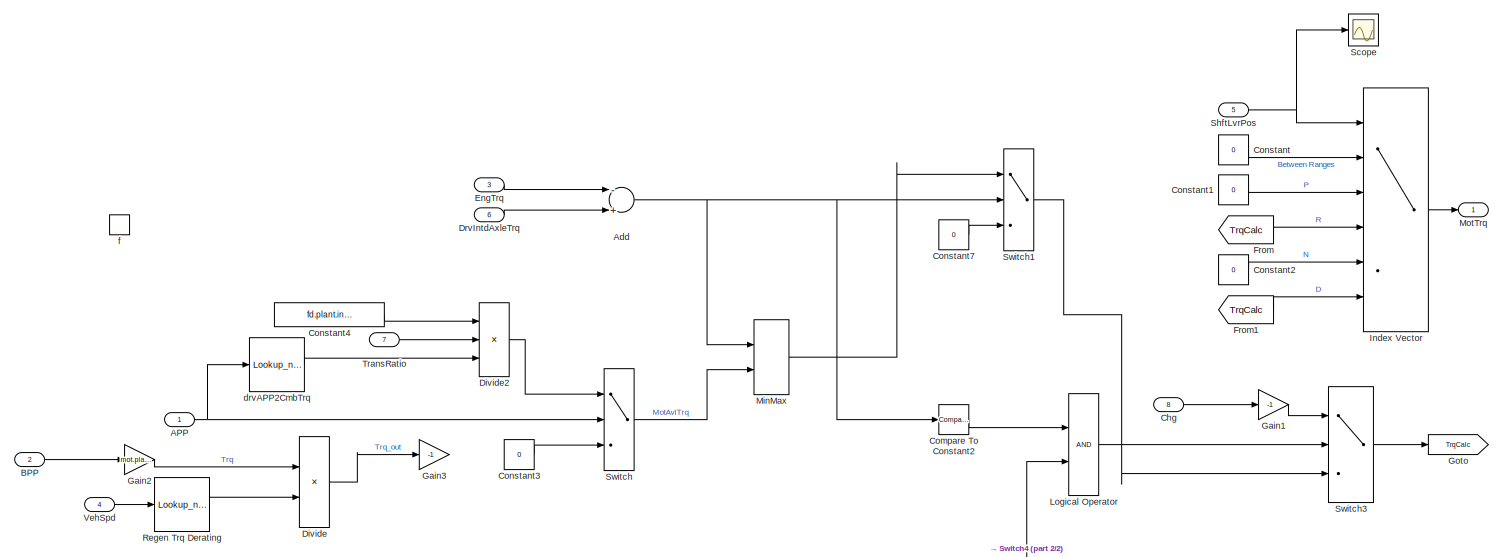
[diagram: Controller/HSC/Powertrain Manager/Torque Distribution/Supervisory  Control  Logic1/VehReady.CS_Mode.Engine_Drive.MotTrqCalc2 - part 1/2, full width, middle band]
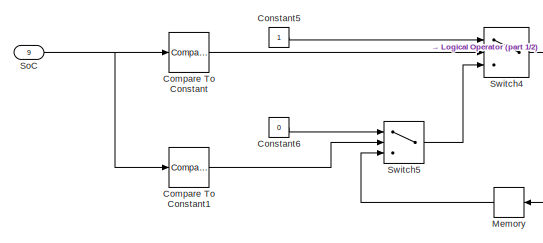
[diagram: Controller/HSC/Powertrain Manager/Torque Distribution/Supervisory  Control  Logic1/VehReady.CS_Mode.Engine_Drive.MotTrqCalc2 - part 2/2, bottom left region]
BLOCK [SubSystem] Controller/HSC/Powertrain Manager/Torque Distribution/Supervisory  Control  Logic1/VehReady.CS_Mode.Engine_Drive.MotTrqCalc2
  Ports = [9, 1, 0, 1]
  PreDeleteFcn = Stateflow.SLINSF.SimulinkMan.removePreDeleteFcn
  RequestExecContextInheritance = off
  UndoDeleteFcn = Stateflow.SLINSF.SimulinkMan.restorePreDeleteFcn
  Variant = off
BLOCK [Inport] Controller/HSC/Powertrain Manager/Torque Distribution/Supervisory  Control  Logic1/VehReady.CS_Mode.Engine_Drive.MotTrqCalc2/APP
  IconDisplay = Port number
BLOCK [Sum] Controller/HSC/Powertrain Manager/Torque Distribution/Supervisory  Control  Logic1/VehReady.CS_Mode.Engine_Drive.MotTrqCalc2/Add
  InputSameDT = off
  Inputs = -+
  OutDataTypeStr = Inherit: Inherit via internal rule
  Ports = [2, 1]
  SaturateOnIntegerOverflow = off
BLOCK [Inport] Controller/HSC/Powertrain Manager/Torque Distribution/Supervisory  Control  Logic1/VehReady.CS_Mode.Engine_Drive.MotTrqCalc2/BPP
  IconDisplay = Port number
  Port = 2
BLOCK [Inport] Controller/HSC/Powertrain Manager/Torque Distribution/Supervisory  Control  Logic1/VehReady.CS_Mode.Engine_Drive.MotTrqCalc2/Chg
  IconDisplay = Port number
  Port = 8
BLOCK [Reference] Controller/HSC/Powertrain Manager/Torque Distribution/Supervisory  Control  Logic1/VehReady.CS_Mode.Engine_Drive.MotTrqCalc2/Compare To Constant  REF=simulink/Logic and Bit
Operations/Compare
To Constant
  Ports = [1, 1]
  SourceBlock = simulink/Logic and Bit\nOperations/Compare\nTo Constant
  SourceType = Compare To Constant
BLOCK [Reference] Controller/HSC/Powertrain Manager/Torque Distribution/Supervisory  Control  Logic1/VehReady.CS_Mode.Engine_Drive.MotTrqCalc2/Compare To Constant1  REF=simulink/Logic and Bit
Operations/Compare
To Constant
  Ports = [1, 1]
  SourceBlock = simulink/Logic and Bit\nOperations/Compare\nTo Constant
  SourceType = Compare To Constant
BLOCK [Reference] Controller/HSC/Powertrain Manager/Torque Distribution/Supervisory  Control  Logic1/VehReady.CS_Mode.Engine_Drive.MotTrqCalc2/Compare To Constant2  REF=simulink/Logic and Bit
Operations/Compare
To Constant
  Ports = [1, 1]
  SourceBlock = simulink/Logic and Bit\nOperations/Compare\nTo Constant
  SourceType = Compare To Constant
BLOCK [Constant] Controller/HSC/Powertrain Manager/Torque Distribution/Supervisory  Control  Logic1/VehReady.CS_Mode.Engine_Drive.MotTrqCalc2/Constant
  Value = 0
BLOCK [Constant] Controller/HSC/Powertrain Manager/Torque Distribution/Supervisory  Control  Logic1/VehReady.CS_Mode.Engine_Drive.MotTrqCalc2/Constant1
  Value = 0
BLOCK [Constant] Controller/HSC/Powertrain Manager/Torque Distribution/Supervisory  Control  Logic1/VehReady.CS_Mode.Engine_Drive.MotTrqCalc2/Constant2
  Value = 0
BLOCK [Constant] Controller/HSC/Powertrain Manager/Torque Distribution/Supervisory  Control  Logic1/VehReady.CS_Mode.Engine_Drive.MotTrqCalc2/Constant3
  Value = 0
BLOCK [Constant] Controller/HSC/Powertrain Manager/Torque Distribution/Supervisory  Control  Logic1/VehReady.CS_Mode.Engine_Drive.MotTrqCalc2/Constant4
  Value = fd.plant.init.ratio
BLOCK [Constant] Controller/HSC/Powertrain Manager/Torque Distribution/Supervisory  Control  Logic1/VehReady.CS_Mode.Engine_Drive.MotTrqCalc2/Constant5
BLOCK [Constant] Controller/HSC/Powertrain Manager/Torque Distribution/Supervisory  Control  Logic1/VehReady.CS_Mode.Engine_Drive.MotTrqCalc2/Constant6
  Value = 0
BLOCK [Constant] Controller/HSC/Powertrain Manager/Torque Distribution/Supervisory  Control  Logic1/VehReady.CS_Mode.Engine_Drive.MotTrqCalc2/Constant7
  Value = 0
BLOCK [Product] Controller/HSC/Powertrain Manager/Torque Distribution/Supervisory  Control  Logic1/VehReady.CS_Mode.Engine_Drive.MotTrqCalc2/Divide
  InputSameDT = off
  Inputs = **
  OutDataTypeStr = Inherit: Inherit via internal rule
  Ports = [2, 1]
  RndMeth = Floor
  SaturateOnIntegerOverflow = off
BLOCK [Product] Controller/HSC/Powertrain Manager/Torque Distribution/Supervisory  Control  Logic1/VehReady.CS_Mode.Engine_Drive.MotTrqCalc2/Divide2
  InputSameDT = off
  Inputs = ***
  OutDataTypeStr = Inherit: Inherit via internal rule
  Ports = [3, 1]
  RndMeth = Floor
  SaturateOnIntegerOverflow = off
BLOCK [Inport] Controller/HSC/Powertrain Manager/Torque Distribution/Supervisory  Control  Logic1/VehReady.CS_Mode.Engine_Drive.MotTrqCalc2/DrvIntdAxleTrq
  IconDisplay = Port number
  Port = 6
BLOCK [Inport] Controller/HSC/Powertrain Manager/Torque Distribution/Supervisory  Control  Logic1/VehReady.CS_Mode.Engine_Drive.MotTrqCalc2/EngTrq
  IconDisplay = Port number
  Port = 3
BLOCK [From] Controller/HSC/Powertrain Manager/Torque Distribution/Supervisory  Control  Logic1/VehReady.CS_Mode.Engine_Drive.MotTrqCalc2/From
  GotoTag = TrqCalc
BLOCK [From] Controller/HSC/Powertrain Manager/Torque Distribution/Supervisory  Control  Logic1/VehReady.CS_Mode.Engine_Drive.MotTrqCalc2/From1
  GotoTag = TrqCalc
BLOCK [Gain] Controller/HSC/Powertrain Manager/Torque Distribution/Supervisory  Control  Logic1/VehReady.CS_Mode.Engine_Drive.MotTrqCalc2/Gain1
  Gain = -1
  OutDataTypeStr = Inherit: Inherit via internal rule
  ParamDataTypeStr = Inherit: Inherit via internal rule
  SaturateOnIntegerOverflow = off
BLOCK [Gain] Controller/HSC/Powertrain Manager/Torque Distribution/Supervisory  Control  Logic1/VehReady.CS_Mode.Engine_Drive.MotTrqCalc2/Gain2
  Gain = mot.plant.init.t_max_trq/200
  OutDataTypeStr = Inherit: Inherit via internal rule
  ParamDataTypeStr = Inherit: Inherit via internal rule
  SaturateOnIntegerOverflow = off
BLOCK [Gain] Controller/HSC/Powertrain Manager/Torque Distribution/Supervisory  Control  Logic1/VehReady.CS_Mode.Engine_Drive.MotTrqCalc2/Gain3
  Gain = -1
  OutDataTypeStr = Inherit: Inherit via internal rule
  ParamDataTypeStr = Inherit: Inherit via internal rule
  SaturateOnIntegerOverflow = off
BLOCK [Goto] Controller/HSC/Powertrain Manager/Torque Distribution/Supervisory  Control  Logic1/VehReady.CS_Mode.Engine_Drive.MotTrqCalc2/Goto
  GotoTag = TrqCalc
BLOCK [MultiPortSwitch] Controller/HSC/Powertrain Manager/Torque Distribution/Supervisory  Control  Logic1/VehReady.CS_Mode.Engine_Drive.MotTrqCalc2/Index Vector
  DataPortOrder = Zero-based contiguous
  InputSameDT = off
  Inputs = 5
  Ports = [6, 1]
  SaturateOnIntegerOverflow = off
  zeroidx = on
BLOCK [Logic] Controller/HSC/Powertrain Manager/Torque Distribution/Supervisory  Control  Logic1/VehReady.CS_Mode.Engine_Drive.MotTrqCalc2/Logical Operator
  AllPortsSameDT = off
  OutDataTypeStr = boolean
  Ports = [2, 1]
BLOCK [Memory] Controller/HSC/Powertrain Manager/Torque Distribution/Supervisory  Control  Logic1/VehReady.CS_Mode.Engine_Drive.MotTrqCalc2/Memory
  InheritSampleTime = on
BLOCK [MinMax] Controller/HSC/Powertrain Manager/Torque Distribution/Supervisory  Control  Logic1/VehReady.CS_Mode.Engine_Drive.MotTrqCalc2/MinMax
  InputSameDT = off
  Inputs = 2
  Ports = [2, 1]
  SaturateOnIntegerOverflow = off
BLOCK [Outport] Controller/HSC/Powertrain Manager/Torque Distribution/Supervisory  Control  Logic1/VehReady.CS_Mode.Engine_Drive.MotTrqCalc2/MotTrq
  IconDisplay = Port number
BLOCK [Lookup_n-D] Controller/HSC/Powertrain Manager/Torque Distribution/Supervisory  Control  Logic1/VehReady.CS_Mode.Engine_Drive.MotTrqCalc2/Regen Trq Derating
  BreakpointsForDimension1 = [0 10 20 30 40]
  ExtrapMethod = Clip
  InternalRulePriority = Speed
  NumberOfTableDimensions = 1
  Ports = [1, 1]
  RndMeth = Simplest
  Table = [0 0.025 0.05 0.1 1]
  UseLastTableValue = on
BLOCK [Scope] Controller/HSC/Powertrain Manager/Torque Distribution/Supervisory  Control  Logic1/VehReady.CS_Mode.Engine_Drive.MotTrqCalc2/Scope
  Ports = [1]
BLOCK [Inport] Controller/HSC/Powertrain Manager/Torque Distribution/Supervisory  Control  Logic1/VehReady.CS_Mode.Engine_Drive.MotTrqCalc2/ShftLvrPos
  IconDisplay = Port number
  Port = 5
BLOCK [Inport] Controller/HSC/Powertrain Manager/Torque Distribution/Supervisory  Control  Logic1/VehReady.CS_Mode.Engine_Drive.MotTrqCalc2/SoC
  IconDisplay = Port number
  Port = 9
BLOCK [Switch] Controller/HSC/Powertrain Manager/Torque Distribution/Supervisory  Control  Logic1/VehReady.CS_Mode.Engine_Drive.MotTrqCalc2/Switch
  Criteria = u2 > Threshold
  InputSameDT = off
  SaturateOnIntegerOverflow = off
BLOCK [Switch] Controller/HSC/Powertrain Manager/Torque Distribution/Supervisory  Control  Logic1/VehReady.CS_Mode.Engine_Drive.MotTrqCalc2/Switch1
  Criteria = u2 > Threshold
  InputSameDT = off
  SaturateOnIntegerOverflow = off
BLOCK [Switch] Controller/HSC/Powertrain Manager/Torque Distribution/Supervisory  Control  Logic1/VehReady.CS_Mode.Engine_Drive.MotTrqCalc2/Switch3
  Criteria = u2 > Threshold
  InputSameDT = off
  SaturateOnIntegerOverflow = off
BLOCK [Switch] Controller/HSC/Powertrain Manager/Torque Distribution/Supervisory  Control  Logic1/VehReady.CS_Mode.Engine_Drive.MotTrqCalc2/Switch4
  Criteria = u2 > Threshold
  InputSameDT = off
  SaturateOnIntegerOverflow = off
BLOCK [Switch] Controller/HSC/Powertrain Manager/Torque Distribution/Supervisory  Control  Logic1/VehReady.CS_Mode.Engine_Drive.MotTrqCalc2/Switch5
  Criteria = u2 > Threshold
  InputSameDT = off
  SaturateOnIntegerOverflow = off
BLOCK [Inport] Controller/HSC/Powertrain Manager/Torque Distribution/Supervisory  Control  Logic1/VehReady.CS_Mode.Engine_Drive.MotTrqCalc2/TransRatio
  IconDisplay = Port number
  Port = 7
BLOCK [Inport] Controller/HSC/Powertrain Manager/Torque Distribution/Supervisory  Control  Logic1/VehReady.CS_Mode.Engine_Drive.MotTrqCalc2/VehSpd
  IconDisplay = Port number
  Port = 4
BLOCK [Lookup_n-D] Controller/HSC/Powertrain Manager/Torque Distribution/Supervisory  Control  Logic1/VehReady.CS_Mode.Engine_Drive.MotTrqCalc2/drvAPP2CmbTrq
  BreakpointsForDimension1 = [0:1:100]
  ExtrapMethod = Clip
  InternalRulePriority = Speed
  NumberOfTableDimensions = 1
  Ports = [1, 1]
  RndMeth = Simplest
  UseLastTableValue = on
BLOCK [TriggerPort] Controller/HSC/Powertrain Manager/Torque Distribution/Supervisory  Control  Logic1/VehReady.CS_Mode.Engine_Drive.MotTrqCalc2/f
  CopyFcn = Stateflow.SLINSF.SimulinkMan.removeBlockPreDeleteFcn
  Ports = []
  PreDeleteFcn = Stateflow.SLINSF.SimulinkMan.unsafePredeleteFcn
  StatesWhenEnabling = held
  TriggerType = function-call
  VariantControl = Variant
BLOCK [SubSystem] Controller/HSC/Powertrain Manager/Torque Distribution/Supervisory  Control  Logic1/VehReady.CS_Mode.Motor_Drive.MotTrqCalc1
  Ports = [7, 1, 0, 1]
  PreDeleteFcn = Stateflow.SLINSF.SimulinkMan.removePreDeleteFcn
  RequestExecContextInheritance = off
  UndoDeleteFcn = Stateflow.SLINSF.SimulinkMan.restorePreDeleteFcn
  Variant = off
BLOCK [Gain] Controller/HSC/Powertrain Manager/Torque Distribution/Supervisory  Control  Logic1/VehReady.CS_Mode.Motor_Drive.MotTrqCalc1/% to 1
  Gain = 1/100
  OutDataTypeStr = Inherit: Inherit via internal rule
  ParamDataTypeStr = Inherit: Inherit via internal rule
  SaturateOnIntegerOverflow = off
BLOCK [Gain] Controller/HSC/Powertrain Manager/Torque Distribution/Supervisory  Control  Logic1/VehReady.CS_Mode.Motor_Drive.MotTrqCalc1/% to 1 
  Gain = 1/100
  OutDataTypeStr = Inherit: Inherit via internal rule
  ParamDataTypeStr = Inherit: Inherit via internal rule
  SaturateOnIntegerOverflow = off
BLOCK [Inport] Controller/HSC/Powertrain Manager/Torque Distribution/Supervisory  Control  Logic1/VehReady.CS_Mode.Motor_Drive.MotTrqCalc1/APP
  IconDisplay = Port number
BLOCK [Inport] Controller/HSC/Powertrain Manager/Torque Distribution/Supervisory  Control  Logic1/VehReady.CS_Mode.Motor_Drive.MotTrqCalc1/BPP
  IconDisplay = Port number
  Port = 2
BLOCK [Constant] Controller/HSC/Powertrain Manager/Torque Distribution/Supervisory  Control  Logic1/VehReady.CS_Mode.Motor_Drive.MotTrqCalc1/Constant
  Value = 0
BLOCK [Constant] Controller/HSC/Powertrain Manager/Torque Distribution/Supervisory  Control  Logic1/VehReady.CS_Mode.Motor_Drive.MotTrqCalc1/Constant1
  Value = 0
BLOCK [Constant] Controller/HSC/Powertrain Manager/Torque Distribution/Supervisory  Control  Logic1/VehReady.CS_Mode.Motor_Drive.MotTrqCalc1/Constant2
  Value = 0
BLOCK [Constant] Controller/HSC/Powertrain Manager/Torque Distribution/Supervisory  Control  Logic1/VehReady.CS_Mode.Motor_Drive.MotTrqCalc1/Constant3
  Value = RFD.Ratio
BLOCK [Product] Controller/HSC/Powertrain Manager/Torque Distribution/Supervisory  Control  Logic1/VehReady.CS_Mode.Motor_Drive.MotTrqCalc1/Divide
  InputSameDT = off
  Inputs = ***
  OutDataTypeStr = Inherit: Inherit via internal rule
  Ports = [3, 1]
  RndMeth = Floor
  SaturateOnIntegerOverflow = off
BLOCK [Product] Controller/HSC/Powertrain Manager/Torque Distribution/Supervisory  Control  Logic1/VehReady.CS_Mode.Motor_Drive.MotTrqCalc1/Divide1
  InputSameDT = off
  Inputs = **
  OutDataTypeStr = Inherit: Inherit via internal rule
  Ports = [2, 1]
  RndMeth = Floor
  SaturateOnIntegerOverflow = off
BLOCK [Product] Controller/HSC/Powertrain Manager/Torque Distribution/Supervisory  Control  Logic1/VehReady.CS_Mode.Motor_Drive.MotTrqCalc1/Divide2
  InputSameDT = off
  Inputs = ***
  OutDataTypeStr = Inherit: Inherit via internal rule
  Ports = [3, 1]
  RndMeth = Floor
  SaturateOnIntegerOverflow = off
BLOCK [Inport] Controller/HSC/Powertrain Manager/Torque Distribution/Supervisory  Control  Logic1/VehReady.CS_Mode.Motor_Drive.MotTrqCalc1/DrvIntdAxleTrq
  IconDisplay = Port number
  Port = 5
BLOCK [From] Controller/HSC/Powertrain Manager/Torque Distribution/Supervisory  Control  Logic1/VehReady.CS_Mode.Motor_Drive.MotTrqCalc1/From
  GotoTag = TrqCalc
BLOCK [From] Controller/HSC/Powertrain Manager/Torque Distribution/Supervisory  Control  Logic1/VehReady.CS_Mode.Motor_Drive.MotTrqCalc1/From1
  GotoTag = TrqCalc
BLOCK [Goto] Controller/HSC/Powertrain Manager/Torque Distribution/Supervisory  Control  Logic1/VehReady.CS_Mode.Motor_Drive.MotTrqCalc1/Goto
  GotoTag = TrqCalc
BLOCK [MultiPortSwitch] Controller/HSC/Powertrain Manager/Torque Distribution/Supervisory  Control  Logic1/VehReady.CS_Mode.Motor_Drive.MotTrqCalc1/Index Vector
  DataPortOrder = Zero-based contiguous
  InputSameDT = off
  Inputs = 5
  Ports = [6, 1]
  SaturateOnIntegerOverflow = off
  zeroidx = on
BLOCK [MinMax] Controller/HSC/Powertrain Manager/Torque Distribution/Supervisory  Control  Logic1/VehReady.CS_Mode.Motor_Drive.MotTrqCalc1/MinMax
  InputSameDT = off
  Inputs = 2
  Ports = [2, 1]
  SaturateOnIntegerOverflow = off
BLOCK [Inport] Controller/HSC/Powertrain Manager/Torque Distribution/Supervisory  Control  Logic1/VehReady.CS_Mode.Motor_Drive.MotTrqCalc1/MotSpeed
  IconDisplay = Port number
  Port = 3
BLOCK [Lookup] Controller/HSC/Powertrain Manager/Torque Distribution/Supervisory  Control  Logic1/VehReady.CS_Mode.Motor_Drive.MotTrqCalc1/Peak trq max - Motoring
  InputValues = mot.plant.init.regen.trq_max.idx1_spd
  LookUpMeth = Interpolation-Use End Values
  Table = mot.plant.init.motor.trq_max.map
BLOCK [Lookup] Controller/HSC/Powertrain Manager/Torque Distribution/Supervisory  Control  Logic1/VehReady.CS_Mode.Motor_Drive.MotTrqCalc1/Peak trq max - Regen
  InputValues = mot.plant.init.regen.trq_max.idx1_spd
  LookUpMeth = Interpolation-Use End Values
  Table = mot.plant.init.regen.trq_max.map
BLOCK [Lookup_n-D] Controller/HSC/Powertrain Manager/Torque Distribution/Supervisory  Control  Logic1/VehReady.CS_Mode.Motor_Drive.MotTrqCalc1/Regen Trq Derating
  BreakpointsForDimension1 = [0 10 20 30 40]
  ExtrapMethod = Clip
  InternalRulePriority = Speed
  NumberOfTableDimensions = 1
  Ports = [1, 1]
  RndMeth = Simplest
  Table = [0 0.025 0.05 0.1 1]
  UseLastTableValue = on
BLOCK [Scope] Controller/HSC/Powertrain Manager/Torque Distribution/Supervisory  Control  Logic1/VehReady.CS_Mode.Motor_Drive.MotTrqCalc1/Scope
  Ports = [1]
  ScopeSpecificationString = Simulink.scopes.TimeScopeBlockCfg('CurrentConfiguration', extmgr.ConfigurationSet(extmgr.Configuration('Core','General UI',true),extmgr.Configuration('Core','Source UI',true),extmgr.Configuration('Sources','WiredSimulink',true,'DataLoggingVariableName','ScopeData3'),extmgr.Configuration('Visuals','Time Domain',true,'SerializedDisplays',{struct('MinYLimReal','0.7975','MaxYLimReal','4.4225','YLabelR...<+1418ch>
BLOCK [Inport] Controller/HSC/Powertrain Manager/Torque Distribution/Supervisory  Control  Logic1/VehReady.CS_Mode.Motor_Drive.MotTrqCalc1/ShftLvrPos
  IconDisplay = Port number
  Port = 7
BLOCK [Switch] Controller/HSC/Powertrain Manager/Torque Distribution/Supervisory  Control  Logic1/VehReady.CS_Mode.Motor_Drive.MotTrqCalc1/Switch
  Criteria = u2 > Threshold
  InputSameDT = off
  SaturateOnIntegerOverflow = off
BLOCK [Outport] Controller/HSC/Powertrain Manager/Torque Distribution/Supervisory  Control  Logic1/VehReady.CS_Mode.Motor_Drive.MotTrqCalc1/T
  IconDisplay = Port number
BLOCK [Inport] Controller/HSC/Powertrain Manager/Torque Distribution/Supervisory  Control  Logic1/VehReady.CS_Mode.Motor_Drive.MotTrqCalc1/TransRatio
  IconDisplay = Port number
  Port = 6
BLOCK [Inport] Controller/HSC/Powertrain Manager/Torque Distribution/Supervisory  Control  Logic1/VehReady.CS_Mode.Motor_Drive.MotTrqCalc1/VehSpd
  IconDisplay = Port number
  Port = 4
BLOCK [TriggerPort] Controller/HSC/Powertrain Manager/Torque Distribution/Supervisory  Control  Logic1/VehReady.CS_Mode.Motor_Drive.MotTrqCalc1/f
  CopyFcn = Stateflow.SLINSF.SimulinkMan.removeBlockPreDeleteFcn
  Ports = []
  PreDeleteFcn = Stateflow.SLINSF.SimulinkMan.unsafePredeleteFcn
  StatesWhenEnabling = held
  TriggerType = function-call
  VariantControl = Variant
BLOCK [Saturate] Controller/HSC/Powertrain Manager/Torque Distribution/Supervisory  Control  Logic1/VehReady.CS_Mode.Motor_Drive.MotTrqCalc1/limit to 200Nm
  InputPortMap = u0
  LowerLimit = -200
  Ports = [1, 1]
  UpperLimit = 0
BLOCK [SubSystem] Controller/HSC/Powertrain Manager/Torque Distribution/Supervisory  Control  Logic1/VehReady.CS_Mode.Transition.MotTrqCalc
  Ports = [7, 1, 0, 1]
  PreDeleteFcn = Stateflow.SLINSF.SimulinkMan.removePreDeleteFcn
  RequestExecContextInheritance = off
  UndoDeleteFcn = Stateflow.SLINSF.SimulinkMan.restorePreDeleteFcn
  Variant = off
BLOCK [Inport] Controller/HSC/Powertrain Manager/Torque Distribution/Supervisory  Control  Logic1/VehReady.CS_Mode.Transition.MotTrqCalc/APP
  IconDisplay = Port number
BLOCK [Sum] Controller/HSC/Powertrain Manager/Torque Distribution/Supervisory  Control  Logic1/VehReady.CS_Mode.Transition.MotTrqCalc/Add
  InputSameDT = off
  Inputs = -+
  OutDataTypeStr = Inherit: Inherit via internal rule
  Ports = [2, 1]
  SaturateOnIntegerOverflow = off
BLOCK [Inport] Controller/HSC/Powertrain Manager/Torque Distribution/Supervisory  Control  Logic1/VehReady.CS_Mode.Transition.MotTrqCalc/BPP
  IconDisplay = Port number
  Port = 2
BLOCK [Constant] Controller/HSC/Powertrain Manager/Torque Distribution/Supervisory  Control  Logic1/VehReady.CS_Mode.Transition.MotTrqCalc/Constant
  Value = 0
BLOCK [Constant] Controller/HSC/Powertrain Manager/Torque Distribution/Supervisory  Control  Logic1/VehReady.CS_Mode.Transition.MotTrqCalc/Constant1
  Value = 0
BLOCK [Constant] Controller/HSC/Powertrain Manager/Torque Distribution/Supervisory  Control  Logic1/VehReady.CS_Mode.Transition.MotTrqCalc/Constant2
  Value = 0
BLOCK [Constant] Controller/HSC/Powertrain Manager/Torque Distribution/Supervisory  Control  Logic1/VehReady.CS_Mode.Transition.MotTrqCalc/Constant3
  Value = fd.plant.init.ratio
BLOCK [Product] Controller/HSC/Powertrain Manager/Torque Distribution/Supervisory  Control  Logic1/VehReady.CS_Mode.Transition.MotTrqCalc/Divide
  InputSameDT = off
  Inputs = **
  OutDataTypeStr = Inherit: Inherit via internal rule
  Ports = [2, 1]
  RndMeth = Floor
  SaturateOnIntegerOverflow = off
BLOCK [Product] Controller/HSC/Powertrain Manager/Torque Distribution/Supervisory  Control  Logic1/VehReady.CS_Mode.Transition.MotTrqCalc/Divide2
  InputSameDT = off
  Inputs = ***
  OutDataTypeStr = Inherit: Inherit via internal rule
  Ports = [3, 1]
  RndMeth = Floor
  SaturateOnIntegerOverflow = off
BLOCK [Inport] Controller/HSC/Powertrain Manager/Torque Distribution/Supervisory  Control  Logic1/VehReady.CS_Mode.Transition.MotTrqCalc/DrvIntdAxleTrq
  IconDisplay = Port number
  Port = 5
BLOCK [Inport] Controller/HSC/Powertrain Manager/Torque Distribution/Supervisory  Control  Logic1/VehReady.CS_Mode.Transition.MotTrqCalc/EngTrq
  IconDisplay = Port number
  Port = 3
BLOCK [From] Controller/HSC/Powertrain Manager/Torque Distribution/Supervisory  Control  Logic1/VehReady.CS_Mode.Transition.MotTrqCalc/From
  GotoTag = TrqCalc
BLOCK [From] Controller/HSC/Powertrain Manager/Torque Distribution/Supervisory  Control  Logic1/VehReady.CS_Mode.Transition.MotTrqCalc/From1
  GotoTag = TrqCalc
BLOCK [Gain] Controller/HSC/Powertrain Manager/Torque Distribution/Supervisory  Control  Logic1/VehReady.CS_Mode.Transition.MotTrqCalc/Gain2
  Gain = mot.plant.init.t_max_trq/200
  OutDataTypeStr = Inherit: Inherit via internal rule
  ParamDataTypeStr = Inherit: Inherit via internal rule
  SaturateOnIntegerOverflow = off
BLOCK [Gain] Controller/HSC/Powertrain Manager/Torque Distribution/Supervisory  Control  Logic1/VehReady.CS_Mode.Transition.MotTrqCalc/Gain3
  Gain = -1
  OutDataTypeStr = Inherit: Inherit via internal rule
  ParamDataTypeStr = Inherit: Inherit via internal rule
  SaturateOnIntegerOverflow = off
BLOCK [Goto] Controller/HSC/Powertrain Manager/Torque Distribution/Supervisory  Control  Logic1/VehReady.CS_Mode.Transition.MotTrqCalc/Goto
  GotoTag = TrqCalc
BLOCK [MultiPortSwitch] Controller/HSC/Powertrain Manager/Torque Distribution/Supervisory  Control  Logic1/VehReady.CS_Mode.Transition.MotTrqCalc/Index Vector
  DataPortOrder = Zero-based contiguous
  InputSameDT = off
  Inputs = 5
  Ports = [6, 1]
  SaturateOnIntegerOverflow = off
  zeroidx = on
BLOCK [MinMax] Controller/HSC/Powertrain Manager/Torque Distribution/Supervisory  Control  Logic1/VehReady.CS_Mode.Transition.MotTrqCalc/MinMax
  InputSameDT = off
  Inputs = 2
  Ports = [2, 1]
  SaturateOnIntegerOverflow = off
BLOCK [Outport] Controller/HSC/Powertrain Manager/Torque Distribution/Supervisory  Control  Logic1/VehReady.CS_Mode.Transition.MotTrqCalc/MotTrq
  IconDisplay = Port number
BLOCK [Lookup_n-D] Controller/HSC/Powertrain Manager/Torque Distribution/Supervisory  Control  Logic1/VehReady.CS_Mode.Transition.MotTrqCalc/Regen Trq Derating
  BreakpointsForDimension1 = [0 10 20 30 40]
  ExtrapMethod = Clip
  InternalRulePriority = Speed
  NumberOfTableDimensions = 1
  Ports = [1, 1]
  RndMeth = Simplest
  Table = [0 0.025 0.05 0.1 1]
  UseLastTableValue = on
BLOCK [Inport] Controller/HSC/Powertrain Manager/Torque Distribution/Supervisory  Control  Logic1/VehReady.CS_Mode.Transition.MotTrqCalc/ShftLvrPos
  IconDisplay = Port number
  Port = 7
BLOCK [Switch] Controller/HSC/Powertrain Manager/Torque Distribution/Supervisory  Control  Logic1/VehReady.CS_Mode.Transition.MotTrqCalc/Switch
  Criteria = u2 > Threshold
  InputSameDT = off
  SaturateOnIntegerOverflow = off
BLOCK [Inport] Controller/HSC/Powertrain Manager/Torque Distribution/Supervisory  Control  Logic1/VehReady.CS_Mode.Transition.MotTrqCalc/TransRatio
  IconDisplay = Port number
  Port = 6
BLOCK [Inport] Controller/HSC/Powertrain Manager/Torque Distribution/Supervisory  Control  Logic1/VehReady.CS_Mode.Transition.MotTrqCalc/VehSpd
  IconDisplay = Port number
  Port = 4
BLOCK [Lookup_n-D] Controller/HSC/Powertrain Manager/Torque Distribution/Supervisory  Control  Logic1/VehReady.CS_Mode.Transition.MotTrqCalc/drvAPP2CmbTrq
  BreakpointsForDimension1 = [0:1:100]
  ExtrapMethod = Clip
  InternalRulePriority = Speed
  NumberOfTableDimensions = 1
  Ports = [1, 1]
  RndMeth = Simplest
  UseLastTableValue = on
BLOCK [TriggerPort] Controller/HSC/Powertrain Manager/Torque Distribution/Supervisory  Control  Logic1/VehReady.CS_Mode.Transition.MotTrqCalc/f
  CopyFcn = Stateflow.SLINSF.SimulinkMan.removeBlockPreDeleteFcn
  Ports = []
  PreDeleteFcn = Stateflow.SLINSF.SimulinkMan.unsafePredeleteFcn
  StatesWhenEnabling = held
  TriggerType = function-call
  VariantControl = Variant
BLOCK [SubSystem] Controller/HSC/Powertrain Manager/Torque Distribution/Supervisory  Control  Logic1/VehReady.CS_Mode.Transition.SyncCtrl
  Ports = [2, 1, 0, 1]
  PreDeleteFcn = Stateflow.SLINSF.SimulinkMan.removePreDeleteFcn
  RequestExecContextInheritance = off
  UndoDeleteFcn = Stateflow.SLINSF.SimulinkMan.restorePreDeleteFcn
  Variant = off
BLOCK [Outport] Controller/HSC/Powertrain Manager/Torque Distribution/Supervisory  Control  Logic1/VehReady.CS_Mode.Transition.SyncCtrl/EngApp
  IconDisplay = Port number
BLOCK [Inport] Controller/HSC/Powertrain Manager/Torque Distribution/Supervisory  Control  Logic1/VehReady.CS_Mode.Transition.SyncCtrl/EngSpeed
  IconDisplay = Port number
BLOCK [Gain] Controller/HSC/Powertrain Manager/Torque Distribution/Supervisory  Control  Logic1/VehReady.CS_Mode.Transition.SyncCtrl/Kp
  Gain = 1/100
  OutDataTypeStr = Inherit: Inherit via internal rule
  ParamDataTypeStr = Inherit: Inherit via internal rule
  SaturateOnIntegerOverflow = off
BLOCK [Inport] Controller/HSC/Powertrain Manager/Torque Distribution/Supervisory  Control  Logic1/VehReady.CS_Mode.Transition.SyncCtrl/MotorSpeed
  IconDisplay = Port number
  Port = 2
BLOCK [Saturate] Controller/HSC/Powertrain Manager/Torque Distribution/Supervisory  Control  Logic1/VehReady.CS_Mode.Transition.SyncCtrl/Saturation
  InputPortMap = u0
  LowerLimit = 0
  Ports = [1, 1]
  UpperLimit = 20
BLOCK [Sum] Controller/HSC/Powertrain Manager/Torque Distribution/Supervisory  Control  Logic1/VehReady.CS_Mode.Transition.SyncCtrl/Sum
  IconShape = round
  InputSameDT = off
  Inputs = |+-
  OutDataTypeStr = Inherit: Inherit via internal rule
  Ports = [2, 1]
  SaturateOnIntegerOverflow = off
BLOCK [TriggerPort] Controller/HSC/Powertrain Manager/Torque Distribution/Supervisory  Control  Logic1/VehReady.CS_Mode.Transition.SyncCtrl/f
  CopyFcn = Stateflow.SLINSF.SimulinkMan.removeBlockPreDeleteFcn
  Ports = []
  PreDeleteFcn = Stateflow.SLINSF.SimulinkMan.unsafePredeleteFcn
  StatesWhenEnabling = held
  TriggerType = function-call
  VariantControl = Variant
BLOCK [SubSystem] Controller/HSC/Powertrain Manager/Torque Distribution/Supervisory  Control  Logic1/VehReady.Eng_Only_Mode.EngTrq2EngApp
  Ports = [1, 1, 0, 1]
  PreDeleteFcn = Stateflow.SLINSF.SimulinkMan.removePreDeleteFcn
  RequestExecContextInheritance = off
  UndoDeleteFcn = Stateflow.SLINSF.SimulinkMan.restorePreDeleteFcn
  Variant = off
BLOCK [Outport] Controller/HSC/Powertrain Manager/Torque Distribution/Supervisory  Control  Logic1/VehReady.Eng_Only_Mode.EngTrq2EngApp/APP
  IconDisplay = Port number
BLOCK [Lookup_n-D] Controller/HSC/Powertrain Manager/Torque Distribution/Supervisory  Control  Logic1/VehReady.Eng_Only_Mode.EngTrq2EngApp/EngTrq2EngAPP
  BreakpointsForDimension1 = [0:1:230]
  ExtrapMethod = Clip
  InternalRulePriority = Speed
  NumberOfTableDimensions = 1
  Ports = [1, 1]
  RndMeth = Simplest
  Table = [-0.95	-0.86	-0.75	-0.64	-0.51	-0.36	-0.21	-0.25	0.13	0.31	0.51	0.72	0.94	1.16	1.4	1.64	1.89	2.149	2.4129	2.683	2.95	3.24	3.52	3.82	4.11	4.41751586126800	4.72192342477317	5.02977661661586	5.34073683099846	5.65447190216317	5.97065610439209	6.28897015200715	6.60910119937013	6.93074284088268	7.25359511098630	7.57736448416234	7.90176387493200	8.22651263785634	8.55133656753627	8.87596789861257	9.200145...<+3135ch>
  UseLastTableValue = on
BLOCK [Saturate] Controller/HSC/Powertrain Manager/Torque Distribution/Supervisory  Control  Logic1/VehReady.Eng_Only_Mode.EngTrq2EngApp/Saturation
  InputPortMap = u0
  LowerLimit = 0
  Ports = [1, 1]
  UpperLimit = 100
BLOCK [Inport] Controller/HSC/Powertrain Manager/Torque Distribution/Supervisory  Control  Logic1/VehReady.Eng_Only_Mode.EngTrq2EngApp/Trq
  IconDisplay = Port number
BLOCK [TriggerPort] Controller/HSC/Powertrain Manager/Torque Distribution/Supervisory  Control  Logic1/VehReady.Eng_Only_Mode.EngTrq2EngApp/f
  CopyFcn = Stateflow.SLINSF.SimulinkMan.removeBlockPreDeleteFcn
  Ports = []
  PreDeleteFcn = Stateflow.SLINSF.SimulinkMan.unsafePredeleteFcn
  StatesWhenEnabling = held
  TriggerType = function-call
  VariantControl = Variant
BLOCK [SubSystem] Controller/HSC/Powertrain Manager/Torque Distribution/Supervisory  Control  Logic1/VehReady.Eng_Only_Mode.EngTrqCalc
  Ports = [9, 1, 0, 1]
  PreDeleteFcn = Stateflow.SLINSF.SimulinkMan.removePreDeleteFcn
  RequestExecContextInheritance = off
  UndoDeleteFcn = Stateflow.SLINSF.SimulinkMan.restorePreDeleteFcn
  Variant = off
BLOCK [Inport] Controller/HSC/Powertrain Manager/Torque Distribution/Supervisory  Control  Logic1/VehReady.Eng_Only_Mode.EngTrqCalc/APP
  IconDisplay = Port number
BLOCK [Constant] Controller/HSC/Powertrain Manager/Torque Distribution/Supervisory  Control  Logic1/VehReady.Eng_Only_Mode.EngTrqCalc/Constant
  Value = 0
BLOCK [Constant] Controller/HSC/Powertrain Manager/Torque Distribution/Supervisory  Control  Logic1/VehReady.Eng_Only_Mode.EngTrqCalc/Constant1
  Value = 0
BLOCK [Constant] Controller/HSC/Powertrain Manager/Torque Distribution/Supervisory  Control  Logic1/VehReady.Eng_Only_Mode.EngTrqCalc/Constant2
  Value = 0
BLOCK [Constant] Controller/HSC/Powertrain Manager/Torque Distribution/Supervisory  Control  Logic1/VehReady.Eng_Only_Mode.EngTrqCalc/Constant4
  Value = 0
BLOCK [Product] Controller/HSC/Powertrain Manager/Torque Distribution/Supervisory  Control  Logic1/VehReady.Eng_Only_Mode.EngTrqCalc/Divide2
  InputSameDT = off
  Inputs = **
  OutDataTypeStr = Inherit: Inherit via internal rule
  Ports = [2, 1]
  RndMeth = Floor
  SaturateOnIntegerOverflow = off
BLOCK [Product] Controller/HSC/Powertrain Manager/Torque Distribution/Supervisory  Control  Logic1/VehReady.Eng_Only_Mode.EngTrqCalc/Divide3
  InputSameDT = off
  Inputs = ***
  OutDataTypeStr = Inherit: Inherit via internal rule
  Ports = [3, 1]
  RndMeth = Floor
  SaturateOnIntegerOverflow = off
BLOCK [Inport] Controller/HSC/Powertrain Manager/Torque Distribution/Supervisory  Control  Logic1/VehReady.Eng_Only_Mode.EngTrqCalc/DrvIntdAxleTrq
  IconDisplay = Port number
  Port = 4
BLOCK [Inport] Controller/HSC/Powertrain Manager/Torque Distribution/Supervisory  Control  Logic1/VehReady.Eng_Only_Mode.EngTrqCalc/EngSpeed
  IconDisplay = Port number
  Port = 2
BLOCK [Inport] Controller/HSC/Powertrain Manager/Torque Distribution/Supervisory  Control  Logic1/VehReady.Eng_Only_Mode.EngTrqCalc/EngTrqMismchDegraded
  IconDisplay = Port number
  Port = 7
BLOCK [Inport] Controller/HSC/Powertrain Manager/Torque Distribution/Supervisory  Control  Logic1/VehReady.Eng_Only_Mode.EngTrqCalc/EngTrqMismchLimp
  IconDisplay = Port number
  Port = 8
BLOCK [Inport] Controller/HSC/Powertrain Manager/Torque Distribution/Supervisory  Control  Logic1/VehReady.Eng_Only_Mode.EngTrqCalc/Eng_TempRange
  IconDisplay = Port number
  Port = 9
BLOCK [Lookup_n-D] Controller/HSC/Powertrain Manager/Torque Distribution/Supervisory  Control  Logic1/VehReady.Eng_Only_Mode.EngTrqCalc/Engine Max Trq
  BreakpointsForDimension1 = [600	800	1000	1200	1400	1600	1800	2000	2200	2400	2600	2800	3000	3200	3400	3600	3800	4000	4250	4500	4750	5000	5250	5500	5750	6000	6250	6500]
  ExtrapMethod = Clip
  InternalRulePriority = Speed
  NumberOfTableDimensions = 1
  Ports = [1, 1]
  RndMeth = Simplest
  Table = [83.7900000000000	136.760000000000	140	152.010000000000	171.590000000000	185.900000000000	198.400000000000	197.360000000000	200.550000000000	202.260000000000	215.080000000000	204.810000000000	204.520000000000	208.100000000000	211.520000000000	210.560000000000	214.100000000000	213.470000000000	208.730000000000	208.430000000000	208.670000000000	231.210000000000	228.310000000000	225.330000000000	220....<+64ch>
  UseLastTableValue = on
BLOCK [Constant] Controller/HSC/Powertrain Manager/Torque Distribution/Supervisory  Control  Logic1/VehReady.Eng_Only_Mode.EngTrqCalc/Final Drive Ratio1
  Value = fd.plant.init.ratio
BLOCK [From] Controller/HSC/Powertrain Manager/Torque Distribution/Supervisory  Control  Logic1/VehReady.Eng_Only_Mode.EngTrqCalc/From
  GotoTag = TrqCalc
BLOCK [Gain] Controller/HSC/Powertrain Manager/Torque Distribution/Supervisory  Control  Logic1/VehReady.Eng_Only_Mode.EngTrqCalc/Gain
  Gain = 1/100
  OutDataTypeStr = Inherit: Inherit via internal rule
  ParamDataTypeStr = Inherit: Inherit via internal rule
  SaturateOnIntegerOverflow = off
BLOCK [Goto] Controller/HSC/Powertrain Manager/Torque Distribution/Supervisory  Control  Logic1/VehReady.Eng_Only_Mode.EngTrqCalc/Goto
  GotoTag = TrqCalc
BLOCK [MultiPortSwitch] Controller/HSC/Powertrain Manager/Torque Distribution/Supervisory  Control  Logic1/VehReady.Eng_Only_Mode.EngTrqCalc/Index Vector
  DataPortOrder = Zero-based contiguous
  InputSameDT = off
  Inputs = 5
  Ports = [6, 1]
  SaturateOnIntegerOverflow = off
  zeroidx = on
BLOCK [MinMax] Controller/HSC/Powertrain Manager/Torque Distribution/Supervisory  Control  Logic1/VehReady.Eng_Only_Mode.EngTrqCalc/MinMax
  InputSameDT = off
  Inputs = 2
  Ports = [2, 1]
  SaturateOnIntegerOverflow = off
BLOCK [Saturate] Controller/HSC/Powertrain Manager/Torque Distribution/Supervisory  Control  Logic1/VehReady.Eng_Only_Mode.EngTrqCalc/Saturation
  InputPortMap = u0
  LowerLimit = -inf
  Ports = [1, 1]
  UpperLimit = 200*0.91
BLOCK [Inport] Controller/HSC/Powertrain Manager/Torque Distribution/Supervisory  Control  Logic1/VehReady.Eng_Only_Mode.EngTrqCalc/Shifter
  IconDisplay = Port number
  Port = 3
BLOCK [SubSystem] Controller/HSC/Powertrain Manager/Torque Distribution/Supervisory  Control  Logic1/VehReady.Eng_Only_Mode.EngTrqCalc/Subsystem
  Ports = [5, 1]
  RequestExecContextInheritance = off
  Variant = off
BLOCK [Reference] Controller/HSC/Powertrain Manager/Torque Distribution/Supervisory  Control  Logic1/VehReady.Eng_Only_Mode.EngTrqCalc/Subsystem/Compare To Constant  REF=simulink/Logic and Bit
Operations/Compare
To Constant
  Ports = [1, 1]
  SourceBlock = simulink/Logic and Bit\nOperations/Compare\nTo Constant
  SourceType = Compare To Constant
BLOCK [SubSystem] Controller/HSC/Powertrain Manager/Torque Distribution/Supervisory  Control  Logic1/VehReady.Eng_Only_Mode.EngTrqCalc/Subsystem/Eng Troque Mismatch Mitigation
  Ports = [3, 1]
  RequestExecContextInheritance = off
  Variant = off
BLOCK [Constant] Controller/HSC/Powertrain Manager/Torque Distribution/Supervisory  Control  Logic1/VehReady.Eng_Only_Mode.EngTrqCalc/Subsystem/Eng Troque Mismatch Mitigation/Constant5
  Value = eng.plant.eng_max_torque
BLOCK [Inport] Controller/HSC/Powertrain Manager/Torque Distribution/Supervisory  Control  Logic1/VehReady.Eng_Only_Mode.EngTrqCalc/Subsystem/Eng Troque Mismatch Mitigation/EngTrqMismchDegraded
  IconDisplay = Port number
  Port = 2
BLOCK [Inport] Controller/HSC/Powertrain Manager/Torque Distribution/Supervisory  Control  Logic1/VehReady.Eng_Only_Mode.EngTrqCalc/Subsystem/Eng Troque Mismatch Mitigation/EngTrqMismchLimp
  IconDisplay = Port number
  Port = 3
BLOCK [Gain] Controller/HSC/Powertrain Manager/Torque Distribution/Supervisory  Control  Logic1/VehReady.Eng_Only_Mode.EngTrqCalc/Subsystem/Eng Troque Mismatch Mitigation/Gain1
  Gain = cal.DegradedPerc
  OutDataTypeStr = Inherit: Inherit via internal rule
  ParamDataTypeStr = Inherit: Inherit via internal rule
  SaturateOnIntegerOverflow = off
BLOCK [Gain] Controller/HSC/Powertrain Manager/Torque Distribution/Supervisory  Control  Logic1/VehReady.Eng_Only_Mode.EngTrqCalc/Subsystem/Eng Troque Mismatch Mitigation/Gain3
  Gain = cal.LimpHPerc
  OutDataTypeStr = Inherit: Inherit via internal rule
  ParamDataTypeStr = Inherit: Inherit via internal rule
  SaturateOnIntegerOverflow = off
BLOCK [Inport] Controller/HSC/Powertrain Manager/Torque Distribution/Supervisory  Control  Logic1/VehReady.Eng_Only_Mode.EngTrqCalc/Subsystem/Eng Troque Mismatch Mitigation/In1
  IconDisplay = Port number
BLOCK [MinMax] Controller/HSC/Powertrain Manager/Torque Distribution/Supervisory  Control  Logic1/VehReady.Eng_Only_Mode.EngTrqCalc/Subsystem/Eng Troque Mismatch Mitigation/Min1
  InputSameDT = off
  Inputs = 2
  Ports = [2, 1]
  SaturateOnIntegerOverflow = off
BLOCK [MinMax] Controller/HSC/Powertrain Manager/Torque Distribution/Supervisory  Control  Logic1/VehReady.Eng_Only_Mode.EngTrqCalc/Subsystem/Eng Troque Mismatch Mitigation/Min2
  InputSameDT = off
  Inputs = 2
  Ports = [2, 1]
  SaturateOnIntegerOverflow = off
BLOCK [Outport] Controller/HSC/Powertrain Manager/Torque Distribution/Supervisory  Control  Logic1/VehReady.Eng_Only_Mode.EngTrqCalc/Subsystem/Eng Troque Mismatch Mitigation/Out1
  IconDisplay = Port number
BLOCK [Switch] Controller/HSC/Powertrain Manager/Torque Distribution/Supervisory  Control  Logic1/VehReady.Eng_Only_Mode.EngTrqCalc/Subsystem/Eng Troque Mismatch Mitigation/Switch1
  InputSameDT = off
  SaturateOnIntegerOverflow = off
  Threshold = 1
BLOCK [Switch] Controller/HSC/Powertrain Manager/Torque Distribution/Supervisory  Control  Logic1/VehReady.Eng_Only_Mode.EngTrqCalc/Subsystem/Eng Troque Mismatch Mitigation/Switch2
  InputSameDT = off
  SaturateOnIntegerOverflow = off
  Threshold = 1
BLOCK [UnitDelay] Controller/HSC/Powertrain Manager/Torque Distribution/Supervisory  Control  Logic1/VehReady.Eng_Only_Mode.EngTrqCalc/Subsystem/Eng Troque Mismatch Mitigation/Unit Delay
  SampleTime = -1
BLOCK [UnitDelay] Controller/HSC/Powertrain Manager/Torque Distribution/Supervisory  Control  Logic1/VehReady.Eng_Only_Mode.EngTrqCalc/Subsystem/Eng Troque Mismatch Mitigation/Unit Delay1
  SampleTime = -1
BLOCK [Inport] Controller/HSC/Powertrain Manager/Torque Distribution/Supervisory  Control  Logic1/VehReady.Eng_Only_Mode.EngTrqCalc/Subsystem/EngTrqMismchDegraded
  IconDisplay = Port number
  Port = 2
BLOCK [Inport] Controller/HSC/Powertrain Manager/Torque Distribution/Supervisory  Control  Logic1/VehReady.Eng_Only_Mode.EngTrqCalc/Subsystem/EngTrqMismchLimp
  IconDisplay = Port number
  Port = 3
BLOCK [Inport] Controller/HSC/Powertrain Manager/Torque Distribution/Supervisory  Control  Logic1/VehReady.Eng_Only_Mode.EngTrqCalc/Subsystem/Eng_TempRange
  IconDisplay = Port number
  Port = 4
BLOCK [Inport] Controller/HSC/Powertrain Manager/Torque Distribution/Supervisory  Control  Logic1/VehReady.Eng_Only_Mode.EngTrqCalc/Subsystem/In1
  IconDisplay = Port number
BLOCK [Outport] Controller/HSC/Powertrain Manager/Torque Distribution/Supervisory  Control  Logic1/VehReady.Eng_Only_Mode.EngTrqCalc/Subsystem/Out1
  IconDisplay = Port number
BLOCK [SubSystem] Controller/HSC/Powertrain Manager/Torque Distribution/Supervisory  Control  Logic1/VehReady.Eng_Only_Mode.EngTrqCalc/Subsystem/OverTemperature Mitigation
  Ports = [2, 1]
  RequestExecContextInheritance = off
  Variant = off
BLOCK [Reference] Controller/HSC/Powertrain Manager/Torque Distribution/Supervisory  Control  Logic1/VehReady.Eng_Only_Mode.EngTrqCalc/Subsystem/OverTemperature Mitigation/Compare To Constant  REF=simulink/Logic and Bit
Operations/Compare
To Constant
  Ports = [1, 1]
  SourceBlock = simulink/Logic and Bit\nOperations/Compare\nTo Constant
  SourceType = Compare To Constant
BLOCK [Constant] Controller/HSC/Powertrain Manager/Torque Distribution/Supervisory  Control  Logic1/VehReady.Eng_Only_Mode.EngTrqCalc/Subsystem/OverTemperature Mitigation/Constant5
  Value = mot.plant.init.trq_posmax
BLOCK [Gain] Controller/HSC/Powertrain Manager/Torque Distribution/Supervisory  Control  Logic1/VehReady.Eng_Only_Mode.EngTrqCalc/Subsystem/OverTemperature Mitigation/Gain3
  Gain = 0.5
  OutDataTypeStr = Inherit: Inherit via internal rule
  ParamDataTypeStr = Inherit: Inherit via internal rule
  SaturateOnIntegerOverflow = off
BLOCK [Inport] Controller/HSC/Powertrain Manager/Torque Distribution/Supervisory  Control  Logic1/VehReady.Eng_Only_Mode.EngTrqCalc/Subsystem/OverTemperature Mitigation/In1
  IconDisplay = Port number
BLOCK [MinMax] Controller/HSC/Powertrain Manager/Torque Distribution/Supervisory  Control  Logic1/VehReady.Eng_Only_Mode.EngTrqCalc/Subsystem/OverTemperature Mitigation/MinMax1
  InputSameDT = off
  Inputs = 2
  Ports = [2, 1]
  SaturateOnIntegerOverflow = off
BLOCK [Outport] Controller/HSC/Powertrain Manager/Torque Distribution/Supervisory  Control  Logic1/VehReady.Eng_Only_Mode.EngTrqCalc/Subsystem/OverTemperature Mitigation/Out1
  IconDisplay = Port number
BLOCK [Switch] Controller/HSC/Powertrain Manager/Torque Distribution/Supervisory  Control  Logic1/VehReady.Eng_Only_Mode.EngTrqCalc/Subsystem/OverTemperature Mitigation/Switch1
  InputSameDT = off
  SaturateOnIntegerOverflow = off
  Threshold = 1
BLOCK [Inport] Controller/HSC/Powertrain Manager/Torque Distribution/Supervisory  Control  Logic1/VehReady.Eng_Only_Mode.EngTrqCalc/Subsystem/OverTemperature Mitigation/essTempRange
  IconDisplay = Port number
  Port = 2
BLOCK [Switch] Controller/HSC/Powertrain Manager/Torque Distribution/Supervisory  Control  Logic1/VehReady.Eng_Only_Mode.EngTrqCalc/Subsystem/Switch2
  InputSameDT = off
  SaturateOnIntegerOverflow = off
  Threshold = 1
BLOCK [Inport] Controller/HSC/Powertrain Manager/Torque Distribution/Supervisory  Control  Logic1/VehReady.Eng_Only_Mode.EngTrqCalc/Subsystem/iceSystemStatus
  IconDisplay = Port number
  Port = 5
BLOCK [Outport] Controller/HSC/Powertrain Manager/Torque Distribution/Supervisory  Control  Logic1/VehReady.Eng_Only_Mode.EngTrqCalc/T
  IconDisplay = Port number
BLOCK [Inport] Controller/HSC/Powertrain Manager/Torque Distribution/Supervisory  Control  Logic1/VehReady.Eng_Only_Mode.EngTrqCalc/TransRatio
  IconDisplay = Port number
  Port = 5
BLOCK [Lookup_n-D] Controller/HSC/Powertrain Manager/Torque Distribution/Supervisory  Control  Logic1/VehReady.Eng_Only_Mode.EngTrqCalc/VehSpd to AxlMotTrq 
  BreakpointsForDimension1 = [0	6.70250111495800	13.4050022299160	20.1075033448740	26.8100044598320	33.5125055747900	40.2150066897480	46.9175078047060	53.6200089196640	60.3225100346220	67.0250111495800	73.7275122645379	80.4300133794960	87.1325144944539	93.8350156094119	100.537516724370	107.240017839328	113.942518954286	120.645020069244	127.347521184202	134.050022299160	140.752523414118	147.455024529076	154.157525644034	160.86...<+79ch>
  Commented = on
  ExtrapMethod = Clip
  InternalRulePriority = Speed
  NumberOfTableDimensions = 1
  Ports = [1, 1]
  RndMeth = Simplest
  Table = [1918	1903.61500000000	1888.27100000000	1871.96800000000	1871.96800000000	1871.96800000000	1871.96800000000	1870.05000000000	1860.46000000000	1656.19300000000	1458.63900000000	1290.81400000000	1146.96400000000	1050.10500000000	961.877000000000	881.033300000000	819.753200000000	760.774700000000	709.180500000000	667.464000000000	621.815600000000	583.072000000000	559.864200000000	531.286000000000	502...<+67ch>
  UseLastTableValue = on
BLOCK [TriggerPort] Controller/HSC/Powertrain Manager/Torque Distribution/Supervisory  Control  Logic1/VehReady.Eng_Only_Mode.EngTrqCalc/f
  CopyFcn = Stateflow.SLINSF.SimulinkMan.removeBlockPreDeleteFcn
  Ports = []
  PreDeleteFcn = Stateflow.SLINSF.SimulinkMan.unsafePredeleteFcn
  StatesWhenEnabling = held
  TriggerType = function-call
  VariantControl = Variant
BLOCK [Inport] Controller/HSC/Powertrain Manager/Torque Distribution/Supervisory  Control  Logic1/VehReady.Eng_Only_Mode.EngTrqCalc/iceSystemStatus
  IconDisplay = Port number
  Port = 6
BLOCK [SubSystem] Controller/HSC/Powertrain Manager/Torque Distribution/Supervisory  Control  Logic1/VehReady.Sport_Mode.EngTrq2EngApp
  Ports = [1, 1, 0, 1]
  PreDeleteFcn = Stateflow.SLINSF.SimulinkMan.removePreDeleteFcn
  RequestExecContextInheritance = off
  UndoDeleteFcn = Stateflow.SLINSF.SimulinkMan.restorePreDeleteFcn
  Variant = off
BLOCK [Outport] Controller/HSC/Powertrain Manager/Torque Distribution/Supervisory  Control  Logic1/VehReady.Sport_Mode.EngTrq2EngApp/APP
  IconDisplay = Port number
BLOCK [Lookup_n-D] Controller/HSC/Powertrain Manager/Torque Distribution/Supervisory  Control  Logic1/VehReady.Sport_Mode.EngTrq2EngApp/EngTrq2EngAPP
  BreakpointsForDimension1 = [0:1:230]
  ExtrapMethod = Clip
  InternalRulePriority = Speed
  NumberOfTableDimensions = 1
  Ports = [1, 1]
  RndMeth = Simplest
  Table = [-0.95	-0.86	-0.75	-0.64	-0.51	-0.36	-0.21	-0.25	0.13	0.31	0.51	0.72	0.94	1.16	1.4	1.64	1.89	2.149	2.4129	2.683	2.95	3.24	3.52	3.82	4.11	4.41751586126800	4.72192342477317	5.02977661661586	5.34073683099846	5.65447190216317	5.97065610439209	6.28897015200715	6.60910119937013	6.93074284088268	7.25359511098630	7.57736448416234	7.90176387493200	8.22651263785634	8.55133656753627	8.87596789861257	9.200145...<+3135ch>
  UseLastTableValue = on
BLOCK [Saturate] Controller/HSC/Powertrain Manager/Torque Distribution/Supervisory  Control  Logic1/VehReady.Sport_Mode.EngTrq2EngApp/Saturation
  InputPortMap = u0
  LowerLimit = 0
  Ports = [1, 1]
  UpperLimit = 100
BLOCK [Inport] Controller/HSC/Powertrain Manager/Torque Distribution/Supervisory  Control  Logic1/VehReady.Sport_Mode.EngTrq2EngApp/Trq
  IconDisplay = Port number
BLOCK [TriggerPort] Controller/HSC/Powertrain Manager/Torque Distribution/Supervisory  Control  Logic1/VehReady.Sport_Mode.EngTrq2EngApp/f
  CopyFcn = Stateflow.SLINSF.SimulinkMan.removeBlockPreDeleteFcn
  Ports = []
  PreDeleteFcn = Stateflow.SLINSF.SimulinkMan.unsafePredeleteFcn
  StatesWhenEnabling = held
  TriggerType = function-call
  VariantControl = Variant
BLOCK [SubSystem] Controller/HSC/Powertrain Manager/Torque Distribution/Supervisory  Control  Logic1/VehReady.Sport_Mode.EngTrqCalc
  Ports = [5, 1, 0, 1]
  PreDeleteFcn = Stateflow.SLINSF.SimulinkMan.removePreDeleteFcn
  RequestExecContextInheritance = off
  UndoDeleteFcn = Stateflow.SLINSF.SimulinkMan.restorePreDeleteFcn
  Variant = off
BLOCK [Saturate] Controller/HSC/Powertrain Manager/Torque Distribution/Supervisory  Control  Logic1/VehReady.Sport_Mode.EngTrqCalc/1st to 6th gear
  Commented = on
  InputPortMap = u0
  LowerLimit = 1
  OutDataTypeStr = int8
  Ports = [1, 1]
  UpperLimit = 6
BLOCK [Inport] Controller/HSC/Powertrain Manager/Torque Distribution/Supervisory  Control  Logic1/VehReady.Sport_Mode.EngTrqCalc/APP
  IconDisplay = Port number
BLOCK [Constant] Controller/HSC/Powertrain Manager/Torque Distribution/Supervisory  Control  Logic1/VehReady.Sport_Mode.EngTrqCalc/Constant
  Value = 0
BLOCK [Constant] Controller/HSC/Powertrain Manager/Torque Distribution/Supervisory  Control  Logic1/VehReady.Sport_Mode.EngTrqCalc/Constant1
  Value = 0
BLOCK [Constant] Controller/HSC/Powertrain Manager/Torque Distribution/Supervisory  Control  Logic1/VehReady.Sport_Mode.EngTrqCalc/Constant2
  Value = 0
BLOCK [Constant] Controller/HSC/Powertrain Manager/Torque Distribution/Supervisory  Control  Logic1/VehReady.Sport_Mode.EngTrqCalc/Constant4
  Value = 0
BLOCK [Product] Controller/HSC/Powertrain Manager/Torque Distribution/Supervisory  Control  Logic1/VehReady.Sport_Mode.EngTrqCalc/Divide
  Commented = on
  InputSameDT = off
  Inputs = */
  OutDataTypeStr = Inherit: Inherit via internal rule
  Ports = [2, 1]
  RndMeth = Floor
  SaturateOnIntegerOverflow = off
BLOCK [Product] Controller/HSC/Powertrain Manager/Torque Distribution/Supervisory  Control  Logic1/VehReady.Sport_Mode.EngTrqCalc/Divide1
  Commented = on
  InputSameDT = off
  Inputs = **
  OutDataTypeStr = Inherit: Inherit via internal rule
  Ports = [2, 1]
  RndMeth = Floor
  SaturateOnIntegerOverflow = off
BLOCK [Product] Controller/HSC/Powertrain Manager/Torque Distribution/Supervisory  Control  Logic1/VehReady.Sport_Mode.EngTrqCalc/Divide2
  InputSameDT = off
  Inputs = **
  OutDataTypeStr = Inherit: Inherit via internal rule
  Ports = [2, 1]
  RndMeth = Floor
  SaturateOnIntegerOverflow = off
BLOCK [Product] Controller/HSC/Powertrain Manager/Torque Distribution/Supervisory  Control  Logic1/VehReady.Sport_Mode.EngTrqCalc/Divide3
  InputSameDT = off
  Inputs = ***
  OutDataTypeStr = Inherit: Inherit via internal rule
  Ports = [3, 1]
  RndMeth = Floor
  SaturateOnIntegerOverflow = off
BLOCK [Inport] Controller/HSC/Powertrain Manager/Torque Distribution/Supervisory  Control  Logic1/VehReady.Sport_Mode.EngTrqCalc/DrvIntdAxleTrq
  IconDisplay = Port number
  Port = 4
BLOCK [Inport] Controller/HSC/Powertrain Manager/Torque Distribution/Supervisory  Control  Logic1/VehReady.Sport_Mode.EngTrqCalc/EngSpeed
  IconDisplay = Port number
  Port = 2
BLOCK [Lookup_n-D] Controller/HSC/Powertrain Manager/Torque Distribution/Supervisory  Control  Logic1/VehReady.Sport_Mode.EngTrqCalc/Engine Max Trq
  BreakpointsForDimension1 = [600	800	1000	1200	1400	1600	1800	2000	2200	2400	2600	2800	3000	3200	3400	3600	3800	4000	4250	4500	4750	5000	5250	5500	5750	6000	6250	6500]
  ExtrapMethod = Clip
  InternalRulePriority = Speed
  NumberOfTableDimensions = 1
  Ports = [1, 1]
  RndMeth = Simplest
  Table = [83.7900000000000	136.760000000000	140	152.010000000000	171.590000000000	185.900000000000	198.400000000000	197.360000000000	200.550000000000	202.260000000000	215.080000000000	204.810000000000	204.520000000000	208.100000000000	211.520000000000	210.560000000000	214.100000000000	213.470000000000	208.730000000000	208.430000000000	208.670000000000	231.210000000000	228.310000000000	225.330000000000	220....<+64ch>
  UseLastTableValue = on
BLOCK [Constant] Controller/HSC/Powertrain Manager/Torque Distribution/Supervisory  Control  Logic1/VehReady.Sport_Mode.EngTrqCalc/Final Drive Ratio
  Commented = on
  Value = fd.plant.init.ratio
BLOCK [Constant] Controller/HSC/Powertrain Manager/Torque Distribution/Supervisory  Control  Logic1/VehReady.Sport_Mode.EngTrqCalc/Final Drive Ratio1
  Value = fd.plant.init.ratio
BLOCK [From] Controller/HSC/Powertrain Manager/Torque Distribution/Supervisory  Control  Logic1/VehReady.Sport_Mode.EngTrqCalc/From
  GotoTag = TrqCalc
BLOCK [Gain] Controller/HSC/Powertrain Manager/Torque Distribution/Supervisory  Control  Logic1/VehReady.Sport_Mode.EngTrqCalc/Gain
  Gain = 1/100
  OutDataTypeStr = Inherit: Inherit via internal rule
  ParamDataTypeStr = Inherit: Inherit via internal rule
  SaturateOnIntegerOverflow = off
BLOCK [Lookup_n-D] Controller/HSC/Powertrain Manager/Torque Distribution/Supervisory  Control  Logic1/VehReady.Sport_Mode.EngTrqCalc/Gear Ratio
  BreakpointsForDimension1 = gb.plant.init.ratio.idx1_gear(3:end)
  Commented = on
  ExtrapMethod = Clip
  InternalRulePriority = Speed
  NumberOfTableDimensions = 1
  Ports = [1, 1]
  RndMeth = Simplest
  Table = gb.plant.init.ratio.map(3:end)
  UseLastTableValue = on
BLOCK [Goto] Controller/HSC/Powertrain Manager/Torque Distribution/Supervisory  Control  Logic1/VehReady.Sport_Mode.EngTrqCalc/Goto
  GotoTag = TrqCalc
BLOCK [MultiPortSwitch] Controller/HSC/Powertrain Manager/Torque Distribution/Supervisory  Control  Logic1/VehReady.Sport_Mode.EngTrqCalc/Index Vector
  DataPortOrder = Zero-based contiguous
  InputSameDT = off
  Inputs = 5
  Ports = [6, 1]
  SaturateOnIntegerOverflow = off
  zeroidx = on
BLOCK [MinMax] Controller/HSC/Powertrain Manager/Torque Distribution/Supervisory  Control  Logic1/VehReady.Sport_Mode.EngTrqCalc/MinMax
  InputSameDT = off
  Inputs = 2
  Ports = [2, 1]
  SaturateOnIntegerOverflow = off
BLOCK [Saturate] Controller/HSC/Powertrain Manager/Torque Distribution/Supervisory  Control  Logic1/VehReady.Sport_Mode.EngTrqCalc/Saturation
  InputPortMap = u0
  LowerLimit = -inf
  Ports = [1, 1]
  UpperLimit = 200*0.91
BLOCK [Inport] Controller/HSC/Powertrain Manager/Torque Distribution/Supervisory  Control  Logic1/VehReady.Sport_Mode.EngTrqCalc/Shifter
  IconDisplay = Port number
  Port = 3
BLOCK [Outport] Controller/HSC/Powertrain Manager/Torque Distribution/Supervisory  Control  Logic1/VehReady.Sport_Mode.EngTrqCalc/T
  IconDisplay = Port number
BLOCK [Inport] Controller/HSC/Powertrain Manager/Torque Distribution/Supervisory  Control  Logic1/VehReady.Sport_Mode.EngTrqCalc/TransRatio
  IconDisplay = Port number
  Port = 5
BLOCK [Lookup_n-D] Controller/HSC/Powertrain Manager/Torque Distribution/Supervisory  Control  Logic1/VehReady.Sport_Mode.EngTrqCalc/VehSpd to AxlMotTrq 
  BreakpointsForDimension1 = [0	6.70250111495800	13.4050022299160	20.1075033448740	26.8100044598320	33.5125055747900	40.2150066897480	46.9175078047060	53.6200089196640	60.3225100346220	67.0250111495800	73.7275122645379	80.4300133794960	87.1325144944539	93.8350156094119	100.537516724370	107.240017839328	113.942518954286	120.645020069244	127.347521184202	134.050022299160	140.752523414118	147.455024529076	154.157525644034	160.86...<+79ch>
  Commented = on
  ExtrapMethod = Clip
  InternalRulePriority = Speed
  NumberOfTableDimensions = 1
  Ports = [1, 1]
  RndMeth = Simplest
  Table = [1918	1903.61500000000	1888.27100000000	1871.96800000000	1871.96800000000	1871.96800000000	1871.96800000000	1870.05000000000	1860.46000000000	1656.19300000000	1458.63900000000	1290.81400000000	1146.96400000000	1050.10500000000	961.877000000000	881.033300000000	819.753200000000	760.774700000000	709.180500000000	667.464000000000	621.815600000000	583.072000000000	559.864200000000	531.286000000000	502...<+67ch>
  UseLastTableValue = on
BLOCK [TriggerPort] Controller/HSC/Powertrain Manager/Torque Distribution/Supervisory  Control  Logic1/VehReady.Sport_Mode.EngTrqCalc/f
  CopyFcn = Stateflow.SLINSF.SimulinkMan.removeBlockPreDeleteFcn
  Ports = []
  PreDeleteFcn = Stateflow.SLINSF.SimulinkMan.unsafePredeleteFcn
  StatesWhenEnabling = held
  TriggerType = function-call
  VariantControl = Variant
BLOCK [SubSystem] Controller/HSC/Powertrain Manager/Torque Distribution/Supervisory  Control  Logic1/VehReady.Sport_Mode.MotTrqCalc
  Ports = [7, 1, 0, 1]
  PreDeleteFcn = Stateflow.SLINSF.SimulinkMan.removePreDeleteFcn
  RequestExecContextInheritance = off
  UndoDeleteFcn = Stateflow.SLINSF.SimulinkMan.restorePreDeleteFcn
  Variant = off
BLOCK [Gain] Controller/HSC/Powertrain Manager/Torque Distribution/Supervisory  Control  Logic1/VehReady.Sport_Mode.MotTrqCalc/% to 1
  Gain = 1/100
  OutDataTypeStr = Inherit: Inherit via internal rule
  ParamDataTypeStr = Inherit: Inherit via internal rule
  SaturateOnIntegerOverflow = off
BLOCK [Gain] Controller/HSC/Powertrain Manager/Torque Distribution/Supervisory  Control  Logic1/VehReady.Sport_Mode.MotTrqCalc/% to 1 
  Gain = 1/100
  OutDataTypeStr = Inherit: Inherit via internal rule
  ParamDataTypeStr = Inherit: Inherit via internal rule
  SaturateOnIntegerOverflow = off
BLOCK [Inport] Controller/HSC/Powertrain Manager/Torque Distribution/Supervisory  Control  Logic1/VehReady.Sport_Mode.MotTrqCalc/APP
  IconDisplay = Port number
BLOCK [Inport] Controller/HSC/Powertrain Manager/Torque Distribution/Supervisory  Control  Logic1/VehReady.Sport_Mode.MotTrqCalc/BPP
  IconDisplay = Port number
  Port = 2
BLOCK [Constant] Controller/HSC/Powertrain Manager/Torque Distribution/Supervisory  Control  Logic1/VehReady.Sport_Mode.MotTrqCalc/Constant
  Value = 0
BLOCK [Constant] Controller/HSC/Powertrain Manager/Torque Distribution/Supervisory  Control  Logic1/VehReady.Sport_Mode.MotTrqCalc/Constant1
  Value = 0
BLOCK [Constant] Controller/HSC/Powertrain Manager/Torque Distribution/Supervisory  Control  Logic1/VehReady.Sport_Mode.MotTrqCalc/Constant2
  Value = fd.plant.init.ratio
BLOCK [Product] Controller/HSC/Powertrain Manager/Torque Distribution/Supervisory  Control  Logic1/VehReady.Sport_Mode.MotTrqCalc/Divide
  InputSameDT = off
  Inputs = ***
  OutDataTypeStr = Inherit: Inherit via internal rule
  Ports = [3, 1]
  RndMeth = Floor
  SaturateOnIntegerOverflow = off
BLOCK [Product] Controller/HSC/Powertrain Manager/Torque Distribution/Supervisory  Control  Logic1/VehReady.Sport_Mode.MotTrqCalc/Divide1
  InputSameDT = off
  Inputs = **
  OutDataTypeStr = Inherit: Inherit via internal rule
  Ports = [2, 1]
  RndMeth = Floor
  SaturateOnIntegerOverflow = off
BLOCK [Product] Controller/HSC/Powertrain Manager/Torque Distribution/Supervisory  Control  Logic1/VehReady.Sport_Mode.MotTrqCalc/Divide2
  InputSameDT = off
  Inputs = ***
  OutDataTypeStr = Inherit: Inherit via internal rule
  Ports = [3, 1]
  RndMeth = Floor
  SaturateOnIntegerOverflow = off
BLOCK [Inport] Controller/HSC/Powertrain Manager/Torque Distribution/Supervisory  Control  Logic1/VehReady.Sport_Mode.MotTrqCalc/DrvIntdAxleTrq
  IconDisplay = Port number
  Port = 6
BLOCK [From] Controller/HSC/Powertrain Manager/Torque Distribution/Supervisory  Control  Logic1/VehReady.Sport_Mode.MotTrqCalc/From
  GotoTag = TrqCalc
BLOCK [From] Controller/HSC/Powertrain Manager/Torque Distribution/Supervisory  Control  Logic1/VehReady.Sport_Mode.MotTrqCalc/From1
  GotoTag = TrqCalc
BLOCK [From] Controller/HSC/Powertrain Manager/Torque Distribution/Supervisory  Control  Logic1/VehReady.Sport_Mode.MotTrqCalc/From2
  GotoTag = TrqCalc
BLOCK [Goto] Controller/HSC/Powertrain Manager/Torque Distribution/Supervisory  Control  Logic1/VehReady.Sport_Mode.MotTrqCalc/Goto
  GotoTag = TrqCalc
BLOCK [MultiPortSwitch] Controller/HSC/Powertrain Manager/Torque Distribution/Supervisory  Control  Logic1/VehReady.Sport_Mode.MotTrqCalc/Index Vector
  DataPortOrder = Zero-based contiguous
  InputSameDT = off
  Inputs = 5
  Ports = [6, 1]
  SaturateOnIntegerOverflow = off
  zeroidx = on
BLOCK [MinMax] Controller/HSC/Powertrain Manager/Torque Distribution/Supervisory  Control  Logic1/VehReady.Sport_Mode.MotTrqCalc/MinMax
  InputSameDT = off
  Inputs = 2
  Ports = [2, 1]
  SaturateOnIntegerOverflow = off
BLOCK [Inport] Controller/HSC/Powertrain Manager/Torque Distribution/Supervisory  Control  Logic1/VehReady.Sport_Mode.MotTrqCalc/MotSpeed
  IconDisplay = Port number
  Port = 5
BLOCK [InportShadow] Controller/HSC/Powertrain Manager/Torque Distribution/Supervisory  Control  Logic1/VehReady.Sport_Mode.MotTrqCalc/MotSpeed1
  IconDisplay = Port number
  Port = 5
BLOCK [Lookup] Controller/HSC/Powertrain Manager/Torque Distribution/Supervisory  Control  Logic1/VehReady.Sport_Mode.MotTrqCalc/Peak trq max - Motoring
  InputValues = mot.plant.init.regen.trq_max.idx1_spd
  LookUpMeth = Interpolation-Use End Values
  Table = mot.plant.init.motor.trq_max.map
BLOCK [Lookup] Controller/HSC/Powertrain Manager/Torque Distribution/Supervisory  Control  Logic1/VehReady.Sport_Mode.MotTrqCalc/Peak trq max - Regen
  InputValues = mot.plant.init.regen.trq_max.idx1_spd
  LookUpMeth = Interpolation-Use End Values
  Table = mot.plant.init.regen.trq_max.map
BLOCK [Lookup_n-D] Controller/HSC/Powertrain Manager/Torque Distribution/Supervisory  Control  Logic1/VehReady.Sport_Mode.MotTrqCalc/Regen Trq Derating
  BreakpointsForDimension1 = [0 10 20 30 40]
  ExtrapMethod = Clip
  InternalRulePriority = Speed
  NumberOfTableDimensions = 1
  Ports = [1, 1]
  RndMeth = Simplest
  Table = [0 0.025 0.05 0.1 1]
  UseLastTableValue = on
BLOCK [Inport] Controller/HSC/Powertrain Manager/Torque Distribution/Supervisory  Control  Logic1/VehReady.Sport_Mode.MotTrqCalc/Shifter
  IconDisplay = Port number
  Port = 4
BLOCK [Switch] Controller/HSC/Powertrain Manager/Torque Distribution/Supervisory  Control  Logic1/VehReady.Sport_Mode.MotTrqCalc/Switch
  Criteria = u2 > Threshold
  InputSameDT = off
  SaturateOnIntegerOverflow = off
BLOCK [Outport] Controller/HSC/Powertrain Manager/Torque Distribution/Supervisory  Control  Logic1/VehReady.Sport_Mode.MotTrqCalc/T
  IconDisplay = Port number
BLOCK [Inport] Controller/HSC/Powertrain Manager/Torque Distribution/Supervisory  Control  Logic1/VehReady.Sport_Mode.MotTrqCalc/TransRatio
  IconDisplay = Port number
  Port = 7
BLOCK [Inport] Controller/HSC/Powertrain Manager/Torque Distribution/Supervisory  Control  Logic1/VehReady.Sport_Mode.MotTrqCalc/VehSpd
  IconDisplay = Port number
  Port = 3
BLOCK [TriggerPort] Controller/HSC/Powertrain Manager/Torque Distribution/Supervisory  Control  Logic1/VehReady.Sport_Mode.MotTrqCalc/f
  CopyFcn = Stateflow.SLINSF.SimulinkMan.removeBlockPreDeleteFcn
  Ports = []
  PreDeleteFcn = Stateflow.SLINSF.SimulinkMan.unsafePredeleteFcn
  StatesWhenEnabling = held
  TriggerType = function-call
  VariantControl = Variant
BLOCK [Saturate] Controller/HSC/Powertrain Manager/Torque Distribution/Supervisory  Control  Logic1/VehReady.Sport_Mode.MotTrqCalc/limit to 200Nm
  InputPortMap = u0
  LowerLimit = -200
  Ports = [1, 1]
  UpperLimit = 0
BLOCK [SubSystem] Controller/HSC/Powertrain Manager/Torque Distribution/Supervisory  Control  Logic1/VehReady.Transition.SyncCtrl
  Ports = [2, 1, 0, 1]
  PreDeleteFcn = Stateflow.SLINSF.SimulinkMan.removePreDeleteFcn
  RequestExecContextInheritance = off
  UndoDeleteFcn = Stateflow.SLINSF.SimulinkMan.restorePreDeleteFcn
  Variant = off
BLOCK [Outport] Controller/HSC/Powertrain Manager/Torque Distribution/Supervisory  Control  Logic1/VehReady.Transition.SyncCtrl/EngApp
  IconDisplay = Port number
BLOCK [Inport] Controller/HSC/Powertrain Manager/Torque Distribution/Supervisory  Control  Logic1/VehReady.Transition.SyncCtrl/EngSpeed
  IconDisplay = Port number
BLOCK [Gain] Controller/HSC/Powertrain Manager/Torque Distribution/Supervisory  Control  Logic1/VehReady.Transition.SyncCtrl/Kp
  Gain = 1/100
  OutDataTypeStr = Inherit: Inherit via internal rule
  ParamDataTypeStr = Inherit: Inherit via internal rule
  SaturateOnIntegerOverflow = off
BLOCK [Inport] Controller/HSC/Powertrain Manager/Torque Distribution/Supervisory  Control  Logic1/VehReady.Transition.SyncCtrl/MotorSpeed
  IconDisplay = Port number
  Port = 2
BLOCK [Saturate] Controller/HSC/Powertrain Manager/Torque Distribution/Supervisory  Control  Logic1/VehReady.Transition.SyncCtrl/Saturation
  InputPortMap = u0
  LowerLimit = 0
  Ports = [1, 1]
  UpperLimit = 20
BLOCK [Scope] Controller/HSC/Powertrain Manager/Torque Distribution/Supervisory  Control  Logic1/VehReady.Transition.SyncCtrl/Scope
  NumInputPorts = 2
  Ports = [2]
  ScopeSpecificationString = Simulink.scopes.TimeScopeBlockCfg('CurrentConfiguration', extmgr.ConfigurationSet(extmgr.Configuration('Core','General UI',true),extmgr.Configuration('Core','Source UI',true),extmgr.Configuration('Sources','WiredSimulink',true,'DataLoggingVariableName','ScopeData10'),extmgr.Configuration('Visuals','Time Domain',true,'SerializedDisplays',{struct('MinYLimReal','339.33792','MaxYLimReal','1546.8051','...<+1448ch>
BLOCK [Sum] Controller/HSC/Powertrain Manager/Torque Distribution/Supervisory  Control  Logic1/VehReady.Transition.SyncCtrl/Sum
  IconShape = round
  InputSameDT = off
  Inputs = |+-
  OutDataTypeStr = Inherit: Inherit via internal rule
  Ports = [2, 1]
  SaturateOnIntegerOverflow = off
BLOCK [TriggerPort] Controller/HSC/Powertrain Manager/Torque Distribution/Supervisory  Control  Logic1/VehReady.Transition.SyncCtrl/f
  CopyFcn = Stateflow.SLINSF.SimulinkMan.removeBlockPreDeleteFcn
  Ports = []
  PreDeleteFcn = Stateflow.SLINSF.SimulinkMan.unsafePredeleteFcn
  StatesWhenEnabling = held
  TriggerType = function-call
  VariantControl = Variant
BLOCK [SubSystem] Controller/HSC/Powertrain Manager/Torque Distribution/Supervisory  Control  Logic1/VehReady.Transition1.SyncCtrl
  Ports = [2, 1, 0, 1]
  PreDeleteFcn = Stateflow.SLINSF.SimulinkMan.removePreDeleteFcn
  RequestExecContextInheritance = off
  UndoDeleteFcn = Stateflow.SLINSF.SimulinkMan.restorePreDeleteFcn
  Variant = off
BLOCK [Outport] Controller/HSC/Powertrain Manager/Torque Distribution/Supervisory  Control  Logic1/VehReady.Transition1.SyncCtrl/EngApp
  IconDisplay = Port number
BLOCK [Inport] Controller/HSC/Powertrain Manager/Torque Distribution/Supervisory  Control  Logic1/VehReady.Transition1.SyncCtrl/EngSpeed
  IconDisplay = Port number
BLOCK [Gain] Controller/HSC/Powertrain Manager/Torque Distribution/Supervisory  Control  Logic1/VehReady.Transition1.SyncCtrl/Kp
  Gain = 1/100
  OutDataTypeStr = Inherit: Inherit via internal rule
  ParamDataTypeStr = Inherit: Inherit via internal rule
  SaturateOnIntegerOverflow = off
BLOCK [Inport] Controller/HSC/Powertrain Manager/Torque Distribution/Supervisory  Control  Logic1/VehReady.Transition1.SyncCtrl/MotorSpeed
  IconDisplay = Port number
  Port = 2
BLOCK [Saturate] Controller/HSC/Powertrain Manager/Torque Distribution/Supervisory  Control  Logic1/VehReady.Transition1.SyncCtrl/Saturation
  InputPortMap = u0
  LowerLimit = 0
  Ports = [1, 1]
  UpperLimit = 20
BLOCK [Sum] Controller/HSC/Powertrain Manager/Torque Distribution/Supervisory  Control  Logic1/VehReady.Transition1.SyncCtrl/Sum
  IconShape = round
  InputSameDT = off
  Inputs = |+-
  OutDataTypeStr = Inherit: Inherit via internal rule
  Ports = [2, 1]
  SaturateOnIntegerOverflow = off
BLOCK [TriggerPort] Controller/HSC/Powertrain Manager/Torque Distribution/Supervisory  Control  Logic1/VehReady.Transition1.SyncCtrl/f
  CopyFcn = Stateflow.SLINSF.SimulinkMan.removeBlockPreDeleteFcn
  Ports = []
  PreDeleteFcn = Stateflow.SLINSF.SimulinkMan.unsafePredeleteFcn
  StatesWhenEnabling = held
  TriggerType = function-call
  VariantControl = Variant
BLOCK [SubSystem] Controller/HSC/Powertrain Manager/Torque Distribution/Supervisory  Control  Logic1/VehReady.Transition2.SyncCtrl
  Ports = [2, 1, 0, 1]
  PreDeleteFcn = Stateflow.SLINSF.SimulinkMan.removePreDeleteFcn
  RequestExecContextInheritance = off
  UndoDeleteFcn = Stateflow.SLINSF.SimulinkMan.restorePreDeleteFcn
  Variant = off
BLOCK [Outport] Controller/HSC/Powertrain Manager/Torque Distribution/Supervisory  Control  Logic1/VehReady.Transition2.SyncCtrl/EngApp
  IconDisplay = Port number
BLOCK [Inport] Controller/HSC/Powertrain Manager/Torque Distribution/Supervisory  Control  Logic1/VehReady.Transition2.SyncCtrl/EngSpeed
  IconDisplay = Port number
BLOCK [Gain] Controller/HSC/Powertrain Manager/Torque Distribution/Supervisory  Control  Logic1/VehReady.Transition2.SyncCtrl/Kp
  Gain = 1/100
  OutDataTypeStr = Inherit: Inherit via internal rule
  ParamDataTypeStr = Inherit: Inherit via internal rule
  SaturateOnIntegerOverflow = off
BLOCK [Inport] Controller/HSC/Powertrain Manager/Torque Distribution/Supervisory  Control  Logic1/VehReady.Transition2.SyncCtrl/MotorSpeed
  IconDisplay = Port number
  Port = 2
BLOCK [Saturate] Controller/HSC/Powertrain Manager/Torque Distribution/Supervisory  Control  Logic1/VehReady.Transition2.SyncCtrl/Saturation
  InputPortMap = u0
  LowerLimit = 0
  Ports = [1, 1]
  UpperLimit = 20
BLOCK [Sum] Controller/HSC/Powertrain Manager/Torque Distribution/Supervisory  Control  Logic1/VehReady.Transition2.SyncCtrl/Sum
  IconShape = round
  InputSameDT = off
  Inputs = |+-
  OutDataTypeStr = Inherit: Inherit via internal rule
  Ports = [2, 1]
  SaturateOnIntegerOverflow = off
BLOCK [TriggerPort] Controller/HSC/Powertrain Manager/Torque Distribution/Supervisory  Control  Logic1/VehReady.Transition2.SyncCtrl/f
  CopyFcn = Stateflow.SLINSF.SimulinkMan.removeBlockPreDeleteFcn
  Ports = []
  PreDeleteFcn = Stateflow.SLINSF.SimulinkMan.unsafePredeleteFcn
  StatesWhenEnabling = held
  TriggerType = function-call
  VariantControl = Variant
BLOCK [Inport] Controller/HSC/Powertrain Manager/Torque Distribution/Supervisory  Control  Logic1/VehicleSpeed
  IconDisplay = Port number
  Port = 6
BLOCK [Outport] Controller/HSC/Powertrain Manager/Torque Distribution/Supervisory  Control  Logic1/closeMaincReq
  IconDisplay = Port number
  Port = 3
BLOCK [Inport] Controller/HSC/Powertrain Manager/Torque Distribution/Supervisory  Control  Logic1/drvAPP
  IconDisplay = Port number
  Port = 5
BLOCK [Inport] Controller/HSC/Powertrain Manager/Torque Distribution/Supervisory  Control  Logic1/eSystemStatus
  IconDisplay = Port number
  Port = 21
BLOCK [Inport] Controller/HSC/Powertrain Manager/Torque Distribution/Supervisory  Control  Logic1/essTempRange
  IconDisplay = Port number
  Port = 27
BLOCK [Inport] Controller/HSC/Powertrain Manager/Torque Distribution/Supervisory  Control  Logic1/iceSystemStatus
  IconDisplay = Port number
  Port = 22
BLOCK [Outport] Controller/HSC/Powertrain Manager/Torque Distribution/Supervisory  Control  Logic1/mode
  IconDisplay = Port number
BLOCK [Outport] Controller/HSC/Powertrain Manager/Torque Distribution/Supervisory  Control  Logic1/powerMode
  IconDisplay = Port number
  Port = 2
BLOCK [SubSystem] Controller/HSC/Powertrain Manager/Torque Distribution/SysPwrMd
  Ports = [3, 1]
  RequestExecContextInheritance = off
  Variant = off
BLOCK [Constant] Controller/HSC/Powertrain Manager/Torque Distribution/SysPwrMd/Constant1
  Value = 3
BLOCK [Constant] Controller/HSC/Powertrain Manager/Torque Distribution/SysPwrMd/Constant2
BLOCK [Inport] Controller/HSC/Powertrain Manager/Torque Distribution/SysPwrMd/EngOnReq
  IconDisplay = Port number
  Port = 3
BLOCK [Inport] Controller/HSC/Powertrain Manager/Torque Distribution/SysPwrMd/EngRunAtv
  IconDisplay = Port number
  Port = 2
BLOCK [Outport] Controller/HSC/Powertrain Manager/Torque Distribution/SysPwrMd/Out1
  IconDisplay = Port number
BLOCK [Saturate] Controller/HSC/Powertrain Manager/Torque Distribution/SysPwrMd/Saturation2
  InputPortMap = u0
  LowerLimit = 0
  Ports = [1, 1]
  UpperLimit = 2
BLOCK [Saturate] Controller/HSC/Powertrain Manager/Torque Distribution/SysPwrMd/Saturation3
  InputPortMap = u0
  LowerLimit = 0
  Ports = [1, 1]
  UpperLimit = 2
BLOCK [Switch] Controller/HSC/Powertrain Manager/Torque Distribution/SysPwrMd/Switch1
  InputSameDT = off
  SaturateOnIntegerOverflow = off
  Threshold = 1
BLOCK [Switch] Controller/HSC/Powertrain Manager/Torque Distribution/SysPwrMd/Switch2
  InputSameDT = off
  SaturateOnIntegerOverflow = off
  Threshold = 1
BLOCK [Switch] Controller/HSC/Powertrain Manager/Torque Distribution/SysPwrMd/Switch3
  InputSameDT = off
  SaturateOnIntegerOverflow = off
  Threshold = 1
BLOCK [Inport] Controller/HSC/Powertrain Manager/Torque Distribution/SysPwrMd/SysPwrMd
  IconDisplay = Port number
BLOCK [Terminator] Controller/HSC/Powertrain Manager/Torque Distribution/Terminator
  Commented = on
BLOCK [Terminator] Controller/HSC/Powertrain Manager/Torque Distribution/Terminator1
  Commented = on
BLOCK [Terminator] Controller/HSC/Powertrain Manager/Torque Distribution/Terminator2
  Commented = on
BLOCK [Terminator] Controller/HSC/Powertrain Manager/Torque Distribution/Terminator3
  Commented = on
BLOCK [Terminator] Controller/HSC/Powertrain Manager/Torque Distribution/Terminator4
  Commented = on
BLOCK [Terminator] Controller/HSC/Powertrain Manager/Torque Distribution/Terminator5
  Commented = on
BLOCK [Terminator] Controller/HSC/Powertrain Manager/Torque Distribution/Terminator6
  Commented = on
BLOCK [Terminator] Controller/HSC/Powertrain Manager/Torque Distribution/Terminator7
  Commented = on
BLOCK [Terminator] Controller/HSC/Powertrain Manager/Torque Distribution/Terminator8
  Commented = on
BLOCK [Terminator] Controller/HSC/Powertrain Manager/Torque Distribution/Terminator9
  Commented = on
BLOCK [Constant] Controller/HSC/Powertrain Manager/Torque Distribution/ess.plant.cd_soc_min
  Value = 0.5
BLOCK [Constant] Controller/HSC/Powertrain Manager/Torque Distribution/ess.plant.cs_soc_max
  Value = 0.23
BLOCK [Constant] Controller/HSC/Powertrain Manager/Torque Distribution/ess.plant.cs_soc_min
  Value = 0.18
BLOCK [Gain] Controller/HSC/Powertrain Manager/Torque Distribution/kph to mph
  Gain = 0.6213
  OutDataTypeStr = Inherit: Inherit via internal rule
  ParamDataTypeStr = Inherit: Inherit via internal rule
  SaturateOnIntegerOverflow = off
BLOCK [Gain] Controller/HSC/Powertrain Manager/Torque Distribution/mph_to_kph
  Gain = 1/0.6213
  OutDataTypeStr = Inherit: Inherit via internal rule
  ParamDataTypeStr = Inherit: Inherit via internal rule
  SaturateOnIntegerOverflow = off
BLOCK [Gain] Controller/HSC/Powertrain Manager/Torque Distribution/rad//s to RPM
  Gain = 30/pi
  OutDataTypeStr = Inherit: Inherit via internal rule
  ParamDataTypeStr = Inherit: Inherit via internal rule
  SaturateOnIntegerOverflow = off
BLOCK [Inport] Controller/HSC/Sensors
  IconDisplay = Port number
BLOCK [Inport] Controller/Sensors
  IconDisplay = Port number
BLOCK [SubSystem] Driver
  Ports = []
  RequestExecContextInheritance = off
  Variant = off
BLOCK [BusCreator] Driver/Bus Creator
  DisplayOption = bar
  InheritFromInputs = on
  Inputs = 6
  Ports = [6, 1]
BLOCK [Constant] Driver/Constant
  Commented = on
  Value = 0
BLOCK [SubSystem] Driver/Driver Control
  Ports = [0, 6]
  RequestExecContextInheritance = off
  Variant = off
BLOCK [Gain] Driver/Driver Control/ 
  Gain = -2
  OutDataTypeStr = Inherit: Inherit via internal rule
  ParamDataTypeStr = Inherit: Inherit via internal rule
  SaturateOnIntegerOverflow = off
BLOCK [RelationalOperator] Driver/Driver Control/    
  Operator = <
  Ports = [2, 1]
BLOCK [RelationalOperator] Driver/Driver Control/    1
  Operator = <
  Ports = [2, 1]
BLOCK [RelationalOperator] Driver/Driver Control/  1
  Operator = <
  Ports = [2, 1]
BLOCK [Saturate] Driver/Driver Control/0 to 100%
  InputPortMap = u0
  LowerLimit = 0
  Ports = [1, 1]
  UpperLimit = 100
BLOCK [Saturate] Driver/Driver Control/0 to 100% 
  InputPortMap = u0
  LowerLimit = 0
  Ports = [1, 1]
  UpperLimit = 100
BLOCK [Outport] Driver/Driver Control/APP[%]
  IconDisplay = Port number
  Port = 2
BLOCK [Outport] Driver/Driver Control/BPP[%]
  IconDisplay = Port number
  Port = 3
BLOCK [Constant] Driver/Driver Control/Charger
  Value = 0
BLOCK [Clock] Driver/Driver Control/Clock
BLOCK [Clock] Driver/Driver Control/Clock1
BLOCK [Clock] Driver/Driver Control/Clock2
BLOCK [Reference] Driver/Driver Control/Compare To Constant  REF=simulink/Logic and Bit
Operations/Compare
To Constant
  Ports = [1, 1]
  SourceBlock = simulink/Logic and Bit\nOperations/Compare\nTo Constant
  SourceType = Compare To Constant
BLOCK [Reference] Driver/Driver Control/Compare To Constant1  REF=simulink/Logic and Bit
Operations/Compare
To Constant
  Ports = [1, 1]
  SourceBlock = simulink/Logic and Bit\nOperations/Compare\nTo Constant
  SourceType = Compare To Constant
BLOCK [Reference] Driver/Driver Control/Compare To Constant2  REF=simulink/Logic and Bit
Operations/Compare
To Constant
  Ports = [1, 1]
  SourceBlock = simulink/Logic and Bit\nOperations/Compare\nTo Constant
  SourceType = Compare To Constant
BLOCK [Constant] Driver/Driver Control/Constant
  Value = 0
BLOCK [DataTypeConversion] Driver/Driver Control/Data Type Conversion
  OutDataTypeStr = int8
  RndMeth = Floor
  SaturateOnIntegerOverflow = off
BLOCK [DataTypeConversion] Driver/Driver Control/Data Type Conversion1
  OutDataTypeStr = int8
  RndMeth = Floor
  SaturateOnIntegerOverflow = off
BLOCK [Outport] Driver/Driver Control/EVSE_Pluggin
  IconDisplay = Port number
  Port = 5
BLOCK [From] Driver/Driver Control/From1
  GotoTag = VehSpdAvgDrvn
  TagVisibility = global
BLOCK [From] Driver/Driver Control/From2
  GotoTag = VehSpdAvgDrvn
  TagVisibility = global
BLOCK [From] Driver/Driver Control/From3
  GotoTag = VehSpdAvgDrvn
  TagVisibility = global
BLOCK [Goto] Driver/Driver Control/Goto
  GotoTag = veh_speed
  TagVisibility = global
BLOCK [Outport] Driver/Driver Control/Key Position
  IconDisplay = Port number
BLOCK [Lookup] Driver/Driver Control/Key_Position
  InputValues = time
  SaturateOnIntegerOverflow = off
  Table = KeyPosition
BLOCK [Reference] Driver/Driver Control/Latch  REF=Utility/Latch
  Ports = [2, 1]
  SourceBlock = Utility/Latch
  SourceType = SubSystem
BLOCK [Logic] Driver/Driver Control/Logical Operator
  AllPortsSameDT = off
  OutDataTypeStr = boolean
  Ports = [2, 1]
BLOCK [Logic] Driver/Driver Control/Logical Operator1
  AllPortsSameDT = off
  Operator = NOT
  OutDataTypeStr = boolean
  Ports = [1, 1]
BLOCK [Logic] Driver/Driver Control/Logical Operator2
  AllPortsSameDT = off
  Operator = OR
  OutDataTypeStr = boolean
  Ports = [2, 1]
BLOCK [Logic] Driver/Driver Control/Logical Operator3
  AllPortsSameDT = off
  OutDataTypeStr = boolean
  Ports = [2, 1]
BLOCK [Integrator] Driver/Driver Control/Reset Integrator IF drv spd dmd very low AND AND current vehicle speed very low
  ExternalReset = either
  Ports = [2, 1]
BLOCK [Outport] Driver/Driver Control/Shift Lever Position
  IconDisplay = Port number
  Port = 4
BLOCK [Lookup] Driver/Driver Control/Shift_Lever_Position
  InputValues = time
  SaturateOnIntegerOverflow = off
  Table = ShiftLeverPosition
BLOCK [Lookup] Driver/Driver Control/Speed
  InputValues = time
  SaturateOnIntegerOverflow = off
  Table = Speed
BLOCK [Sum] Driver/Driver Control/Subtract
  InputSameDT = off
  Inputs = +-
  OutDataTypeStr = Inherit: Inherit via internal rule
  Ports = [2, 1]
  SaturateOnIntegerOverflow = off
BLOCK [Sum] Driver/Driver Control/Sum
  IconShape = round
  Inputs = |++
  Ports = [2, 1]
BLOCK [Switch] Driver/Driver Control/Switch
  InputSameDT = off
  SaturateOnIntegerOverflow = off
  Threshold = 0.5
BLOCK [Switch] Driver/Driver Control/Switch2
  InputSameDT = off
  SaturateOnIntegerOverflow = off
  Threshold = 0.5
BLOCK [Outport] Driver/Driver Control/Veh_Spd
  IconDisplay = Port number
  Port = 6
BLOCK [Constant] Driver/Driver Control/drv.ctrl.init.chas_spd_below_chas_stopped 
  Value = 2
BLOCK [Gain] Driver/Driver Control/drv.ctrl.init.ki
BLOCK [Gain] Driver/Driver Control/drv.ctrl.init.kp
  Gain = 25
BLOCK [Gain] Driver/Driver Control/kph to m//s
  Gain = 1/3.606
BLOCK [Gain] Driver/Driver Control/m//s to mph
  Gain = 1/mph2ms
  OutDataTypeStr = Inherit: Inherit via internal rule
  ParamDataTypeStr = Inherit: Inherit via internal rule
  SaturateOnIntegerOverflow = off
BLOCK [Gain] Driver/Driver Control/mph to kph
  Gain = 1.60934
  OutDataTypeStr = Inherit: Inherit via internal rule
  ParamDataTypeStr = Inherit: Inherit via internal rule
  SaturateOnIntegerOverflow = off
BLOCK [Constant] Driver/Driver Control/standing brake pedal
  Value = 50
BLOCK [Goto] Driver/Goto2
  GotoTag = Driver_Request
  TagVisibility = global
BLOCK [SubSystem] Driver/Manual Control
  Commented = on
  Ports = [0, 1]
  RequestExecContextInheritance = off
  Variant = off
BLOCK [Constant] Driver/Manual Control/APP[%]
BLOCK [Constant] Driver/Manual Control/BPP[%]
  Value = -1
BLOCK [BusCreator] Driver/Manual Control/Bus Creator1
  DisplayOption = bar
  InheritFromInputs = on
  Inputs = 5
  Ports = [5, 1]
BLOCK [Constant] Driver/Manual Control/KeyPosition
  Value = 3
BLOCK [Outport] Driver/Manual Control/Out1
  IconDisplay = Port number
BLOCK [Constant] Driver/Manual Control/PRNDL
  Value = 4
BLOCK [Constant] Driver/Manual Control/ReferenceVel1
  Value = 0
BLOCK [Saturate] Driver/Manual Control/Saturation
  InputPortMap = u0
  LowerLimit = 0
  Ports = [1, 1]
  UpperLimit = 100
BLOCK [Saturate] Driver/Manual Control/Saturation1
  InputPortMap = u0
  LowerLimit = -100
  Ports = [1, 1]
  UpperLimit = 0
BLOCK [Saturate] Driver/Manual Control/Saturation2
  InputPortMap = u0
  LowerLimit = 0
  Ports = [1, 1]
  UpperLimit = 3
BLOCK [Saturate] Driver/Manual Control/Saturation3
  InputPortMap = u0
  LowerLimit = 0
  Ports = [1, 1]
  UpperLimit = 4
BLOCK [Reference] Driver/Manual Control/Slider Gain  REF=simulink/Math
Operations/Slider
Gain
  Ports = [1, 1]
  SourceBlock = simulink/Math\nOperations/Slider\nGain
  SourceType = Slider Gain
BLOCK [Reference] Driver/Manual Control/Slider Gain1  REF=simulink/Math
Operations/Slider
Gain
  Ports = [1, 1]
  SourceBlock = simulink/Math\nOperations/Slider\nGain
  SourceType = Slider Gain
BLOCK [MultiPortSwitch] Driver/Multiport Switch1
  Commented = on
  DataPortOrder = Zero-based contiguous
  InputSameDT = off
  Inputs = 2
  Ports = [3, 1]
  SaturateOnIntegerOverflow = off
BLOCK [SubSystem] Fault Trigger Unit
  Ports = []
  RequestExecContextInheritance = off
  Variant = off
BLOCK [Clock] Fault Trigger Unit/Clock3
BLOCK [SubSystem] Fault Trigger Unit/Component Diagnostics setting
  Ports = [1]
  RequestExecContextInheritance = off
  Variant = off
BLOCK [Lookup] Fault Trigger Unit/Component Diagnostics setting/ClutchEngag
  Commented = on
  InputValues = time
  LookUpMeth = Interpolation-Use End Values
  OutDataTypeStr = int8
  SaturateOnIntegerOverflow = off
  Table = ClutchEngag
BLOCK [Lookup] Fault Trigger Unit/Component Diagnostics setting/ESSOverTemp
  Commented = on
  InputValues = time
  LookUpMeth = Interpolation-Use End Values
  OutDataTypeStr = int8
  SaturateOnIntegerOverflow = off
  Table = ESSOverTemp
BLOCK [Lookup] Fault Trigger Unit/Component Diagnostics setting/EngOverTemp
  Commented = on
  InputValues = time
  LookUpMeth = Interpolation-Use End Values
  OutDataTypeStr = int8
  SaturateOnIntegerOverflow = off
  Table = EngOverTemp
BLOCK [Lookup] Fault Trigger Unit/Component Diagnostics setting/EngTrqMismatch
  Commented = on
  InputValues = time
  LookUpMeth = Interpolation-Use End Values
  OutDataTypeStr = int8
  SaturateOnIntegerOverflow = off
  Table = EngTrqMismatch
BLOCK [Goto] Fault Trigger Unit/Component Diagnostics setting/Goto1
  Commented = on
  GotoTag = MotTrqMismatch
  TagVisibility = global
BLOCK [Goto] Fault Trigger Unit/Component Diagnostics setting/Goto2
  Commented = on
  GotoTag = LossCAN_ON
  TagVisibility = global
BLOCK [Goto] Fault Trigger Unit/Component Diagnostics setting/Goto3
  Commented = on
  GotoTag = EngTrqMismatch
  TagVisibility = global
BLOCK [Goto] Fault Trigger Unit/Component Diagnostics setting/Goto4
  Commented = on
  GotoTag = MotOverTemp
  TagVisibility = global
BLOCK [Goto] Fault Trigger Unit/Component Diagnostics setting/Goto5
  Commented = on
  GotoTag = MCUOverTemp
  TagVisibility = global
BLOCK [Goto] Fault Trigger Unit/Component Diagnostics setting/Goto6
  Commented = on
  GotoTag = MotDirMismatch
  TagVisibility = global
BLOCK [Goto] Fault Trigger Unit/Component Diagnostics setting/Goto7
  Commented = on
  GotoTag = EngOverTemp
  TagVisibility = global
BLOCK [Goto] Fault Trigger Unit/Component Diagnostics setting/Goto8
  Commented = on
  GotoTag = ESSOverTemp
  TagVisibility = global
BLOCK [Goto] Fault Trigger Unit/Component Diagnostics setting/Goto9
  Commented = on
  GotoTag = ClutchEngagFlt
  TagVisibility = global
BLOCK [Lookup] Fault Trigger Unit/Component Diagnostics setting/LossCAN
  Commented = on
  InputValues = time
  LookUpMeth = Interpolation-Use End Values
  OutDataTypeStr = int8
  SaturateOnIntegerOverflow = off
  Table = LossCAN
BLOCK [Lookup] Fault Trigger Unit/Component Diagnostics setting/MCUOverTemp
  Commented = on
  InputValues = time
  LookUpMeth = Interpolation-Use End Values
  OutDataTypeStr = int8
  SaturateOnIntegerOverflow = off
  Table = MCUOverTemp
BLOCK [SubSystem] Fault Trigger Unit/Component Diagnostics setting/Mismch type
  Commented = on
  Ports = [1, 1]
  RequestExecContextInheritance = off
  Variant = off
BLOCK [Constant] Fault Trigger Unit/Component Diagnostics setting/Mismch type/Constant
  Value = cal.ENGTRQ_MSMCH.Degraded_CP+1
BLOCK [Constant] Fault Trigger Unit/Component Diagnostics setting/Mismch type/Constant1
  Value = cal.ENGTRQ_MSMCH.LimpHome_CP+1
BLOCK [Constant] Fault Trigger Unit/Component Diagnostics setting/Mismch type/Constant2
  Value = cal.ENGTRQ_MSMCH.ErrCritical_CP+1
BLOCK [Constant] Fault Trigger Unit/Component Diagnostics setting/Mismch type/Constant3
  Value = 0
BLOCK [Inport] Fault Trigger Unit/Component Diagnostics setting/Mismch type/In1
  IconDisplay = Port number
BLOCK [MultiPortSwitch] Fault Trigger Unit/Component Diagnostics setting/Mismch type/Multiport Switch
  InputSameDT = off
  Inputs = 4
  Ports = [5, 1]
  SaturateOnIntegerOverflow = off
BLOCK [Outport] Fault Trigger Unit/Component Diagnostics setting/Mismch type/Out1
  IconDisplay = Port number
BLOCK [SubSystem] Fault Trigger Unit/Component Diagnostics setting/Mismch type1
  Commented = on
  Ports = [1, 1]
  RequestExecContextInheritance = off
  Variant = off
BLOCK [Constant] Fault Trigger Unit/Component Diagnostics setting/Mismch type1/Constant
  Value = cal.MOTTRQ_MSMCH.Degraded_CP+1
BLOCK [Constant] Fault Trigger Unit/Component Diagnostics setting/Mismch type1/Constant1
  Value = cal.MOTTRQ_MSMCH.LimpHome_CP+1
BLOCK [Constant] Fault Trigger Unit/Component Diagnostics setting/Mismch type1/Constant2
  Value = cal.ENGTRQ_MSMCH.ErrCritical_CP+1
BLOCK [Constant] Fault Trigger Unit/Component Diagnostics setting/Mismch type1/Constant3
  Value = 0
BLOCK [Inport] Fault Trigger Unit/Component Diagnostics setting/Mismch type1/In1
  IconDisplay = Port number
BLOCK [MultiPortSwitch] Fault Trigger Unit/Component Diagnostics setting/Mismch type1/Multiport Switch
  DataPortOrder = Zero-based contiguous
  InputSameDT = off
  Inputs = 4
  Ports = [5, 1]
  SaturateOnIntegerOverflow = off
BLOCK [Outport] Fault Trigger Unit/Component Diagnostics setting/Mismch type1/Out1
  IconDisplay = Port number
BLOCK [Lookup] Fault Trigger Unit/Component Diagnostics setting/MotDirMismatch
  Commented = on
  InputValues = time
  LookUpMeth = Interpolation-Use End Values
  OutDataTypeStr = int8
  SaturateOnIntegerOverflow = off
  Table = MotDirMismatch
BLOCK [Lookup] Fault Trigger Unit/Component Diagnostics setting/MotOverTemp
  Commented = on
  InputValues = time
  LookUpMeth = Interpolation-Use End Values
  OutDataTypeStr = int8
  SaturateOnIntegerOverflow = off
  Table = MotOverTemp
BLOCK [Lookup] Fault Trigger Unit/Component Diagnostics setting/MotTrqMismatch
  Commented = on
  InputValues = time
  LookUpMeth = Interpolation-Use End Values
  OutDataTypeStr = int8
  SaturateOnIntegerOverflow = off
  Table = MotTrqMismatch
BLOCK [SubSystem] Fault Trigger Unit/Component Diagnostics setting/Override  ClutchEngag
  Commented = on
  Ports = [1, 1]
  RequestExecContextInheritance = off
  Variant = off
BLOCK [Constant] Fault Trigger Unit/Component Diagnostics setting/Override  ClutchEngag/Constant
  Value = 0
BLOCK [Inport] Fault Trigger Unit/Component Diagnostics setting/Override  ClutchEngag/In1
  IconDisplay = Port number
BLOCK [MultiPortSwitch] Fault Trigger Unit/Component Diagnostics setting/Override  ClutchEngag/Multiport Switch
  DataPortOrder = Zero-based contiguous
  InputSameDT = off
  Inputs = 2
  Ports = [3, 1]
  SaturateOnIntegerOverflow = off
  zeroidx = on
BLOCK [Outport] Fault Trigger Unit/Component Diagnostics setting/Override  ClutchEngag/Out1
  IconDisplay = Port number
BLOCK [Constant] Fault Trigger Unit/Component Diagnostics setting/Override  ClutchEngag/Signal Override Switch 0 = Use Model 1 = Use Constant
  Value = 0
BLOCK [SubSystem] Fault Trigger Unit/Component Diagnostics setting/Override  ESSOverTemp
  Commented = on
  Ports = [1, 1]
  RequestExecContextInheritance = off
  Variant = off
BLOCK [Constant] Fault Trigger Unit/Component Diagnostics setting/Override  ESSOverTemp/Constant
  Value = 0
BLOCK [Inport] Fault Trigger Unit/Component Diagnostics setting/Override  ESSOverTemp/In1
  IconDisplay = Port number
BLOCK [MultiPortSwitch] Fault Trigger Unit/Component Diagnostics setting/Override  ESSOverTemp/Multiport Switch
  DataPortOrder = Zero-based contiguous
  InputSameDT = off
  Inputs = 2
  Ports = [3, 1]
  SaturateOnIntegerOverflow = off
  zeroidx = on
BLOCK [Outport] Fault Trigger Unit/Component Diagnostics setting/Override  ESSOverTemp/Out1
  IconDisplay = Port number
BLOCK [Constant] Fault Trigger Unit/Component Diagnostics setting/Override  ESSOverTemp/Signal Override Switch 0 = Use Model 1 = Use Constant
  Value = 0
BLOCK [SubSystem] Fault Trigger Unit/Component Diagnostics setting/Override  EngOverTemp
  Commented = on
  Ports = [1, 1]
  RequestExecContextInheritance = off
  Variant = off
BLOCK [Constant] Fault Trigger Unit/Component Diagnostics setting/Override  EngOverTemp/Constant
  Value = 0
BLOCK [Inport] Fault Trigger Unit/Component Diagnostics setting/Override  EngOverTemp/In1
  IconDisplay = Port number
BLOCK [MultiPortSwitch] Fault Trigger Unit/Component Diagnostics setting/Override  EngOverTemp/Multiport Switch
  DataPortOrder = Zero-based contiguous
  InputSameDT = off
  Inputs = 2
  Ports = [3, 1]
  SaturateOnIntegerOverflow = off
  zeroidx = on
BLOCK [Outport] Fault Trigger Unit/Component Diagnostics setting/Override  EngOverTemp/Out1
  IconDisplay = Port number
BLOCK [Constant] Fault Trigger Unit/Component Diagnostics setting/Override  EngOverTemp/Signal Override Switch 0 = Use Model 1 = Use Constant
  Value = 0
BLOCK [SubSystem] Fault Trigger Unit/Component Diagnostics setting/Override  EngTrqMismatch
  Commented = on
  Ports = [1, 1]
  RequestExecContextInheritance = off
  Variant = off
BLOCK [Constant] Fault Trigger Unit/Component Diagnostics setting/Override  EngTrqMismatch/Constant
  Value = 0
BLOCK [Inport] Fault Trigger Unit/Component Diagnostics setting/Override  EngTrqMismatch/In1
  IconDisplay = Port number
BLOCK [MultiPortSwitch] Fault Trigger Unit/Component Diagnostics setting/Override  EngTrqMismatch/Multiport Switch
  DataPortOrder = Zero-based contiguous
  InputSameDT = off
  Inputs = 2
  Ports = [3, 1]
  SaturateOnIntegerOverflow = off
  zeroidx = on
BLOCK [Outport] Fault Trigger Unit/Component Diagnostics setting/Override  EngTrqMismatch/Out1
  IconDisplay = Port number
BLOCK [Constant] Fault Trigger Unit/Component Diagnostics setting/Override  EngTrqMismatch/Signal Override Switch 0 = Use Model 1 = Use Constant
  Value = 0
BLOCK [SubSystem] Fault Trigger Unit/Component Diagnostics setting/Override  LossCAN
  Commented = on
  Ports = [1, 1]
  RequestExecContextInheritance = off
  Variant = off
BLOCK [Constant] Fault Trigger Unit/Component Diagnostics setting/Override  LossCAN/Constant
  Value = 0
BLOCK [Inport] Fault Trigger Unit/Component Diagnostics setting/Override  LossCAN/In1
  IconDisplay = Port number
BLOCK [MultiPortSwitch] Fault Trigger Unit/Component Diagnostics setting/Override  LossCAN/Multiport Switch
  DataPortOrder = Zero-based contiguous
  InputSameDT = off
  Inputs = 2
  Ports = [3, 1]
  SaturateOnIntegerOverflow = off
  zeroidx = on
BLOCK [Outport] Fault Trigger Unit/Component Diagnostics setting/Override  LossCAN/Out1
  IconDisplay = Port number
BLOCK [Constant] Fault Trigger Unit/Component Diagnostics setting/Override  LossCAN/Signal Override Switch 0 = Use Model 1 = Use Constant
  Value = 0
BLOCK [SubSystem] Fault Trigger Unit/Component Diagnostics setting/Override  MCUOverTemp
  Commented = on
  Ports = [1, 1]
  RequestExecContextInheritance = off
  Variant = off
BLOCK [Constant] Fault Trigger Unit/Component Diagnostics setting/Override  MCUOverTemp/Constant
  Value = 0
BLOCK [Inport] Fault Trigger Unit/Component Diagnostics setting/Override  MCUOverTemp/In1
  IconDisplay = Port number
BLOCK [MultiPortSwitch] Fault Trigger Unit/Component Diagnostics setting/Override  MCUOverTemp/Multiport Switch
  DataPortOrder = Zero-based contiguous
  InputSameDT = off
  Inputs = 2
  Ports = [3, 1]
  SaturateOnIntegerOverflow = off
  zeroidx = on
BLOCK [Outport] Fault Trigger Unit/Component Diagnostics setting/Override  MCUOverTemp/Out1
  IconDisplay = Port number
BLOCK [Constant] Fault Trigger Unit/Component Diagnostics setting/Override  MCUOverTemp/Signal Override Switch 0 = Use Model 1 = Use Constant
  Value = 0
BLOCK [SubSystem] Fault Trigger Unit/Component Diagnostics setting/Override  MotDirMismatch
  Commented = on
  Ports = [1, 1]
  RequestExecContextInheritance = off
  Variant = off
BLOCK [Constant] Fault Trigger Unit/Component Diagnostics setting/Override  MotDirMismatch/Constant
  Value = 0
BLOCK [Inport] Fault Trigger Unit/Component Diagnostics setting/Override  MotDirMismatch/In1
  IconDisplay = Port number
BLOCK [MultiPortSwitch] Fault Trigger Unit/Component Diagnostics setting/Override  MotDirMismatch/Multiport Switch
  DataPortOrder = Zero-based contiguous
  InputSameDT = off
  Inputs = 2
  Ports = [3, 1]
  SaturateOnIntegerOverflow = off
  zeroidx = on
BLOCK [Outport] Fault Trigger Unit/Component Diagnostics setting/Override  MotDirMismatch/Out1
  IconDisplay = Port number
BLOCK [Constant] Fault Trigger Unit/Component Diagnostics setting/Override  MotDirMismatch/Signal Override Switch 0 = Use Model 1 = Use Constant
  Value = 0
BLOCK [SubSystem] Fault Trigger Unit/Component Diagnostics setting/Override  MotOverTemp
  Commented = on
  Ports = [1, 1]
  RequestExecContextInheritance = off
  Variant = off
BLOCK [Constant] Fault Trigger Unit/Component Diagnostics setting/Override  MotOverTemp/Constant
  Value = 0
BLOCK [Inport] Fault Trigger Unit/Component Diagnostics setting/Override  MotOverTemp/In1
  IconDisplay = Port number
BLOCK [MultiPortSwitch] Fault Trigger Unit/Component Diagnostics setting/Override  MotOverTemp/Multiport Switch
  DataPortOrder = Zero-based contiguous
  InputSameDT = off
  Inputs = 2
  Ports = [3, 1]
  SaturateOnIntegerOverflow = off
  zeroidx = on
BLOCK [Outport] Fault Trigger Unit/Component Diagnostics setting/Override  MotOverTemp/Out1
  IconDisplay = Port number
BLOCK [Constant] Fault Trigger Unit/Component Diagnostics setting/Override  MotOverTemp/Signal Override Switch 0 = Use Model 1 = Use Constant
  Value = 0
BLOCK [SubSystem] Fault Trigger Unit/Component Diagnostics setting/Override  MotTrqMismatch
  Commented = on
  Ports = [1, 1]
  RequestExecContextInheritance = off
  Variant = off
BLOCK [Constant] Fault Trigger Unit/Component Diagnostics setting/Override  MotTrqMismatch/Constant
  Value = 0
BLOCK [Inport] Fault Trigger Unit/Component Diagnostics setting/Override  MotTrqMismatch/In1
  IconDisplay = Port number
BLOCK [MultiPortSwitch] Fault Trigger Unit/Component Diagnostics setting/Override  MotTrqMismatch/Multiport Switch
  DataPortOrder = Zero-based contiguous
  InputSameDT = off
  Inputs = 2
  Ports = [3, 1]
  SaturateOnIntegerOverflow = off
  zeroidx = on
BLOCK [Outport] Fault Trigger Unit/Component Diagnostics setting/Override  MotTrqMismatch/Out1
  IconDisplay = Port number
BLOCK [Constant] Fault Trigger Unit/Component Diagnostics setting/Override  MotTrqMismatch/Signal Override Switch 0 = Use Model 1 = Use Constant
  Value = 0
BLOCK [Inport] Fault Trigger Unit/Component Diagnostics setting/time
  IconDisplay = Port number
BLOCK [SubSystem] Fault Trigger Unit/Driver Interface Diagnostics setting
  Ports = [1]
  RequestExecContextInheritance = off
  Variant = off
BLOCK [Lookup] Fault Trigger Unit/Driver Interface Diagnostics setting/APP1_OOR
  Commented = on
  InputValues = time
  LookUpMeth = Interpolation-Use End Values
  OutDataTypeStr = int8
  SaturateOnIntegerOverflow = off
  Table = APP1_OOR
BLOCK [Lookup] Fault Trigger Unit/Driver Interface Diagnostics setting/APP2_OOR
  Commented = on
  InputValues = time
  LookUpMeth = Interpolation-Use End Values
  OutDataTypeStr = int8
  SaturateOnIntegerOverflow = off
  Table = APP2_OOR
BLOCK [Lookup] Fault Trigger Unit/Driver Interface Diagnostics setting/APP_Mismatch
  Commented = on
  InputValues = time
  LookUpMeth = Interpolation-Use End Values
  OutDataTypeStr = int8
  SaturateOnIntegerOverflow = off
  Table = APP_Mismatch
BLOCK [Lookup] Fault Trigger Unit/Driver Interface Diagnostics setting/BPP_Flt
  Commented = on
  InputValues = time
  LookUpMeth = Interpolation-Use End Values
  OutDataTypeStr = int8
  SaturateOnIntegerOverflow = off
  Table = BPP_Flt
BLOCK [Goto] Fault Trigger Unit/Driver Interface Diagnostics setting/Goto1
  Commented = on
  GotoTag = APP1_OOR_ON
  TagVisibility = global
BLOCK [Goto] Fault Trigger Unit/Driver Interface Diagnostics setting/Goto3
  Commented = on
  GotoTag = BPP_Flt
  TagVisibility = global
BLOCK [Goto] Fault Trigger Unit/Driver Interface Diagnostics setting/Goto4
  Commented = on
  GotoTag = KeyPos_Flt_ON
  TagVisibility = global
BLOCK [Goto] Fault Trigger Unit/Driver Interface Diagnostics setting/Goto5
  Commented = on
  GotoTag = PRNDL_Flt_ON
  TagVisibility = global
BLOCK [Goto] Fault Trigger Unit/Driver Interface Diagnostics setting/Goto6
  Commented = on
  GotoTag = APP2_OOR_ON
  TagVisibility = global
BLOCK [Goto] Fault Trigger Unit/Driver Interface Diagnostics setting/Goto7
  Commented = on
  GotoTag = Mismatch_APP_ON
  TagVisibility = global
BLOCK [Lookup] Fault Trigger Unit/Driver Interface Diagnostics setting/KeyPos_Flt
  Commented = on
  InputValues = time
  LookUpMeth = Interpolation-Use End Values
  OutDataTypeStr = int8
  SaturateOnIntegerOverflow = off
  Table = KeyPos_Flt
BLOCK [SubSystem] Fault Trigger Unit/Driver Interface Diagnostics setting/Override  APP1_OOR
  Commented = on
  Ports = [1, 1]
  RequestExecContextInheritance = off
  Variant = off
BLOCK [Constant] Fault Trigger Unit/Driver Interface Diagnostics setting/Override  APP1_OOR/Constant
  Value = 0
BLOCK [Inport] Fault Trigger Unit/Driver Interface Diagnostics setting/Override  APP1_OOR/In1
  IconDisplay = Port number
BLOCK [MultiPortSwitch] Fault Trigger Unit/Driver Interface Diagnostics setting/Override  APP1_OOR/Multiport Switch
  DataPortOrder = Zero-based contiguous
  InputSameDT = off
  Inputs = 2
  Ports = [3, 1]
  SaturateOnIntegerOverflow = off
  zeroidx = on
BLOCK [Outport] Fault Trigger Unit/Driver Interface Diagnostics setting/Override  APP1_OOR/Out1
  IconDisplay = Port number
BLOCK [Constant] Fault Trigger Unit/Driver Interface Diagnostics setting/Override  APP1_OOR/Signal Override Switch 0 = Use Model 1 = Use Constant
  Value = 0
BLOCK [SubSystem] Fault Trigger Unit/Driver Interface Diagnostics setting/Override  APP2_OOR
  Commented = on
  Ports = [1, 1]
  RequestExecContextInheritance = off
  Variant = off
BLOCK [Constant] Fault Trigger Unit/Driver Interface Diagnostics setting/Override  APP2_OOR/Constant
  Value = 0
BLOCK [Inport] Fault Trigger Unit/Driver Interface Diagnostics setting/Override  APP2_OOR/In1
  IconDisplay = Port number
BLOCK [MultiPortSwitch] Fault Trigger Unit/Driver Interface Diagnostics setting/Override  APP2_OOR/Multiport Switch
  DataPortOrder = Zero-based contiguous
  InputSameDT = off
  Inputs = 2
  Ports = [3, 1]
  SaturateOnIntegerOverflow = off
  zeroidx = on
BLOCK [Outport] Fault Trigger Unit/Driver Interface Diagnostics setting/Override  APP2_OOR/Out1
  IconDisplay = Port number
BLOCK [Constant] Fault Trigger Unit/Driver Interface Diagnostics setting/Override  APP2_OOR/Signal Override Switch 0 = Use Model 1 = Use Constant
  Value = 0
BLOCK [SubSystem] Fault Trigger Unit/Driver Interface Diagnostics setting/Override  APP_Mismatch
  Commented = on
  Ports = [1, 1]
  RequestExecContextInheritance = off
  Variant = off
BLOCK [Constant] Fault Trigger Unit/Driver Interface Diagnostics setting/Override  APP_Mismatch/APP_Mismatch_Override
  Value = 0
BLOCK [Constant] Fault Trigger Unit/Driver Interface Diagnostics setting/Override  APP_Mismatch/Constant
  Value = 0
BLOCK [Inport] Fault Trigger Unit/Driver Interface Diagnostics setting/Override  APP_Mismatch/In1
  IconDisplay = Port number
BLOCK [MultiPortSwitch] Fault Trigger Unit/Driver Interface Diagnostics setting/Override  APP_Mismatch/Multiport Switch
  DataPortOrder = Zero-based contiguous
  InputSameDT = off
  Inputs = 2
  Ports = [3, 1]
  SaturateOnIntegerOverflow = off
  zeroidx = on
BLOCK [Outport] Fault Trigger Unit/Driver Interface Diagnostics setting/Override  APP_Mismatch/Out1
  IconDisplay = Port number
BLOCK [SubSystem] Fault Trigger Unit/Driver Interface Diagnostics setting/Override  BPP_Flt
  Commented = on
  Ports = [1, 1]
  RequestExecContextInheritance = off
  Variant = off
BLOCK [Constant] Fault Trigger Unit/Driver Interface Diagnostics setting/Override  BPP_Flt/Constant
  Value = 0
BLOCK [Inport] Fault Trigger Unit/Driver Interface Diagnostics setting/Override  BPP_Flt/In1
  IconDisplay = Port number
BLOCK [MultiPortSwitch] Fault Trigger Unit/Driver Interface Diagnostics setting/Override  BPP_Flt/Multiport Switch
  DataPortOrder = Zero-based contiguous
  InputSameDT = off
  Inputs = 2
  Ports = [3, 1]
  SaturateOnIntegerOverflow = off
  zeroidx = on
BLOCK [Outport] Fault Trigger Unit/Driver Interface Diagnostics setting/Override  BPP_Flt/Out1
  IconDisplay = Port number
BLOCK [Constant] Fault Trigger Unit/Driver Interface Diagnostics setting/Override  BPP_Flt/Signal Override Switch 0 = Use Model 1 = Use Constant
  Value = 0
BLOCK [SubSystem] Fault Trigger Unit/Driver Interface Diagnostics setting/Override  KeyPos_Flt
  Commented = on
  Ports = [1, 1]
  RequestExecContextInheritance = off
  Variant = off
BLOCK [Constant] Fault Trigger Unit/Driver Interface Diagnostics setting/Override  KeyPos_Flt/Constant
  Value = 0
BLOCK [Inport] Fault Trigger Unit/Driver Interface Diagnostics setting/Override  KeyPos_Flt/In1
  IconDisplay = Port number
BLOCK [MultiPortSwitch] Fault Trigger Unit/Driver Interface Diagnostics setting/Override  KeyPos_Flt/Multiport Switch
  DataPortOrder = Zero-based contiguous
  InputSameDT = off
  Inputs = 2
  Ports = [3, 1]
  SaturateOnIntegerOverflow = off
  zeroidx = on
BLOCK [Outport] Fault Trigger Unit/Driver Interface Diagnostics setting/Override  KeyPos_Flt/Out1
  IconDisplay = Port number
BLOCK [Constant] Fault Trigger Unit/Driver Interface Diagnostics setting/Override  KeyPos_Flt/Signal Override Switch 0 = Use Model 1 = Use Constant
  Value = 0
BLOCK [SubSystem] Fault Trigger Unit/Driver Interface Diagnostics setting/Override  PRNDL_Flt
  Commented = on
  Ports = [1, 1]
  RequestExecContextInheritance = off
  Variant = off
BLOCK [Constant] Fault Trigger Unit/Driver Interface Diagnostics setting/Override  PRNDL_Flt/Constant
  Value = 0
BLOCK [Inport] Fault Trigger Unit/Driver Interface Diagnostics setting/Override  PRNDL_Flt/In1
  IconDisplay = Port number
BLOCK [MultiPortSwitch] Fault Trigger Unit/Driver Interface Diagnostics setting/Override  PRNDL_Flt/Multiport Switch
  DataPortOrder = Zero-based contiguous
  InputSameDT = off
  Inputs = 2
  Ports = [3, 1]
  SaturateOnIntegerOverflow = off
  zeroidx = on
BLOCK [Outport] Fault Trigger Unit/Driver Interface Diagnostics setting/Override  PRNDL_Flt/Out1
  IconDisplay = Port number
BLOCK [Constant] Fault Trigger Unit/Driver Interface Diagnostics setting/Override  PRNDL_Flt/Signal Override Switch 0 = Use Model 1 = Use Constant
  Value = 0
BLOCK [Lookup] Fault Trigger Unit/Driver Interface Diagnostics setting/PRNDL_Flt
  Commented = on
  InputValues = time
  LookUpMeth = Interpolation-Use End Values
  OutDataTypeStr = int8
  SaturateOnIntegerOverflow = off
  Table = PRNDL_Flt
BLOCK [ToWorkspace] Fault Trigger Unit/Driver Interface Diagnostics setting/To Workspace
  Commented = on
  FixptAsFi = on
  MaxDataPoints = inf
  Ports = [1]
  SampleTime = -1
  Save2DSignal = 3-D array (concatenate along third dimension)
  SaveFormat = Timeseries
  VariableName = APP_Mismatch
BLOCK [Inport] Fault Trigger Unit/Driver Interface Diagnostics setting/time
  IconDisplay = Port number
BLOCK [SubSystem] Plant Actuators
  Ports = [1, 1]
  RequestExecContextInheritance = off
  Variant = off
BLOCK [SubSystem] Plant Actuators/Analog
  Ports = [1, 1]
  RequestExecContextInheritance = off
  Variant = off
BLOCK [SubSystem] Plant Actuators/Analog/APP_Fault_Insertion
  Ports = [1, 2]
  RequestExecContextInheritance = off
  Variant = off
BLOCK [Outport] Plant Actuators/Analog/APP_Fault_Insertion/APP1
  IconDisplay = Port number
BLOCK [Outport] Plant Actuators/Analog/APP_Fault_Insertion/APP2
  IconDisplay = Port number
  Port = 2
BLOCK [Inport] Plant Actuators/Analog/APP_Fault_Insertion/AccPos
  IconDisplay = Port number
BLOCK [Constant] Plant Actuators/Analog/APP_Fault_Insertion/Constant
  Value = 0
BLOCK [Constant] Plant Actuators/Analog/APP_Fault_Insertion/Constant1
  Value = cal.APP.Mismatch_Value+0.1
BLOCK [Constant] Plant Actuators/Analog/APP_Fault_Insertion/Constant2
  Value = 0
BLOCK [Constant] Plant Actuators/Analog/APP_Fault_Insertion/Constant3
  Value = cal.APP2.IN_Max_SC_Prcnt+1
BLOCK [Constant] Plant Actuators/Analog/APP_Fault_Insertion/Constant4
  Value = 0
BLOCK [Constant] Plant Actuators/Analog/APP_Fault_Insertion/Constant5
  Value = cal.APP1.IN_Max_SC_Prcnt+1
BLOCK [From] Plant Actuators/Analog/APP_Fault_Insertion/From1
  GotoTag = APP2_OOR_ON
BLOCK [From] Plant Actuators/Analog/APP_Fault_Insertion/From2
  GotoTag = APP1_OOR_ON
BLOCK [From] Plant Actuators/Analog/APP_Fault_Insertion/From4
  GotoTag = Mismatch_APP_ON
BLOCK [Sum] Plant Actuators/Analog/APP_Fault_Insertion/Sum1
  InputSameDT = off
  Inputs = +++
  OutDataTypeStr = Inherit: Inherit via internal rule
  Ports = [3, 1]
  SaturateOnIntegerOverflow = off
BLOCK [Sum] Plant Actuators/Analog/APP_Fault_Insertion/Sum2
  InputSameDT = off
  OutDataTypeStr = Inherit: Inherit via internal rule
  Ports = [2, 1]
  SaturateOnIntegerOverflow = off
BLOCK [Switch] Plant Actuators/Analog/APP_Fault_Insertion/Switch
  InputSameDT = off
  SaturateOnIntegerOverflow = off
  Threshold = 1
BLOCK [Switch] Plant Actuators/Analog/APP_Fault_Insertion/Switch1
  InputSameDT = off
  SaturateOnIntegerOverflow = off
  Threshold = 1
BLOCK [Switch] Plant Actuators/Analog/APP_Fault_Insertion/Switch2
  InputSameDT = off
  SaturateOnIntegerOverflow = off
  Threshold = 1
BLOCK [SubSystem] Plant Actuators/Analog/APP_to_APP1_Recast
  Ports = [1, 1]
  RequestExecContextInheritance = off
  Variant = off
BLOCK [Outport] Plant Actuators/Analog/APP_to_APP1_Recast/APP1Recast
  IconDisplay = Port number
BLOCK [Inport] Plant Actuators/Analog/APP_to_APP1_Recast/APP1_IN
  IconDisplay = Port number
BLOCK [Constant] Plant Actuators/Analog/APP_to_APP1_Recast/APP1_Recast_Max
  Value = cal.APP1.IN_Max
BLOCK [Constant] Plant Actuators/Analog/APP_to_APP1_Recast/APP1_Recast_Min
  Value = cal.APP1.IN_Min
BLOCK [Gain] Plant Actuators/Analog/APP_to_APP1_Recast/Gain1
  Gain = 1/100
  OutDataTypeStr = Inherit: Inherit via internal rule
  ParamDataTypeStr = Inherit: Inherit via internal rule
  SaturateOnIntegerOverflow = off
BLOCK [Product] Plant Actuators/Analog/APP_to_APP1_Recast/Product1
  InputSameDT = off
  OutDataTypeStr = Inherit: Inherit via internal rule
  Ports = [2, 1]
  SaturateOnIntegerOverflow = off
BLOCK [Sum] Plant Actuators/Analog/APP_to_APP1_Recast/Sum1
  IconShape = round
  InputSameDT = off
  Inputs = |+-
  OutDataTypeStr = Inherit: Inherit via internal rule
  Ports = [2, 1]
  SaturateOnIntegerOverflow = off
BLOCK [Sum] Plant Actuators/Analog/APP_to_APP1_Recast/Sum2
  IconShape = round
  InputSameDT = off
  Inputs = |++
  OutDataTypeStr = Inherit: Inherit via internal rule
  Ports = [2, 1]
  SaturateOnIntegerOverflow = off
BLOCK [SubSystem] Plant Actuators/Analog/APP_to_APP2_Recast
  Ports = [1, 1]
  RequestExecContextInheritance = off
  Variant = off
BLOCK [Outport] Plant Actuators/Analog/APP_to_APP2_Recast/APP2Recast
  IconDisplay = Port number
BLOCK [Inport] Plant Actuators/Analog/APP_to_APP2_Recast/APP2_IN
  IconDisplay = Port number
BLOCK [Constant] Plant Actuators/Analog/APP_to_APP2_Recast/APP2_Recast_Max
  Value = cal.APP2.IN_Max
BLOCK [Constant] Plant Actuators/Analog/APP_to_APP2_Recast/APP2_Recast_Min
  Value = cal.APP2.IN_Min
BLOCK [Gain] Plant Actuators/Analog/APP_to_APP2_Recast/Gain1
  Gain = 1/100
  OutDataTypeStr = Inherit: Inherit via internal rule
  ParamDataTypeStr = Inherit: Inherit via internal rule
  SaturateOnIntegerOverflow = off
BLOCK [Product] Plant Actuators/Analog/APP_to_APP2_Recast/Product1
  InputSameDT = off
  OutDataTypeStr = Inherit: Inherit via internal rule
  Ports = [2, 1]
  SaturateOnIntegerOverflow = off
BLOCK [Sum] Plant Actuators/Analog/APP_to_APP2_Recast/Sum1
  IconShape = round
  InputSameDT = off
  Inputs = |+-
  OutDataTypeStr = Inherit: Inherit via internal rule
  Ports = [2, 1]
  SaturateOnIntegerOverflow = off
BLOCK [Sum] Plant Actuators/Analog/APP_to_APP2_Recast/Sum2
  IconShape = round
  InputSameDT = off
  Inputs = |++
  OutDataTypeStr = Inherit: Inherit via internal rule
  Ports = [2, 1]
  SaturateOnIntegerOverflow = off
BLOCK [BusCreator] Plant Actuators/Analog/Bus Creator
  DisplayOption = bar
  InheritFromInputs = on
  Inputs = 5
  Ports = [5, 1]
BLOCK [BusCreator] Plant Actuators/Analog/Bus Creator1
  DisplayOption = bar
  InheritFromInputs = on
  Inputs = 2
  Ports = [2, 1]
BLOCK [BusSelector] Plant Actuators/Analog/Bus Selector
  OutputSignals = drv_APP_req_[%],ShiftLvrPos,KeyPos,drv_BPP_req_[%]
  Ports = [1, 4]
BLOCK [From] Plant Actuators/Analog/From
  GotoTag = KeyPos_Flt_ON
BLOCK [Inport] Plant Actuators/Analog/In1
  IconDisplay = Port number
BLOCK [Outport] Plant Actuators/Analog/Out1
  IconDisplay = Port number
BLOCK [Switch] Plant Actuators/Analog/Switch
  Criteria = u2 > Threshold
  InputSameDT = off
  SaturateOnIntegerOverflow = off
BLOCK [BusCreator] Plant Actuators/Bus Creator
  DisplayOption = bar
  InheritFromInputs = on
  Inputs = 3
  Ports = [3, 1]
BLOCK [BusSelector] Plant Actuators/Bus Selector
  OutputSignals = CAN_to_Actuators,Driver_Signals
  Ports = [1, 2]
BLOCK [SubSystem] Plant Actuators/CAN
  Ports = [1, 1]
  RequestExecContextInheritance = off
  Variant = off
BLOCK [BusCreator] Plant Actuators/CAN/Bus Creator
  DisplayOption = bar
  InheritFromInputs = on
  Inputs = 3
  Ports = [3, 1]
BLOCK [SubSystem] Plant Actuators/CAN/EBCAN
  Ports = [1, 1]
  RequestExecContextInheritance = off
  Variant = off
BLOCK [SubSystem] Plant Actuators/CAN/EBCAN/BMS_Antrieb
  Ports = [1, 1]
  RequestExecContextInheritance = off
  Variant = off
BLOCK [BusSelector] Plant Actuators/CAN/EBCAN/BMS_Antrieb/Bus Selector
  OutputSignals = BMS_CAN.BMS_Hybrid
  Ports = [1, 1]
BLOCK [Inport] Plant Actuators/CAN/EBCAN/BMS_Antrieb/In1
  IconDisplay = Port number
BLOCK [Outport] Plant Actuators/CAN/EBCAN/BMS_Antrieb/Out1
  IconDisplay = Port number
BLOCK [BusCreator] Plant Actuators/CAN/EBCAN/Bus Creator
  DisplayOption = bar
  InheritFromInputs = on
  Inputs = 2
  Ports = [2, 1]
BLOCK [SubSystem] Plant Actuators/CAN/EBCAN/ECM
  Ports = [1, 1]
  RequestExecContextInheritance = off
  Variant = off
BLOCK [BusSelector] Plant Actuators/CAN/EBCAN/ECM/Bus Selector
  OutputSignals = ECM_CAN
  Ports = [1, 1]
BLOCK [Inport] Plant Actuators/CAN/EBCAN/ECM/In1
  IconDisplay = Port number
BLOCK [Outport] Plant Actuators/CAN/EBCAN/ECM/Out1
  IconDisplay = Port number
BLOCK [Inport] Plant Actuators/CAN/EBCAN/In1
  IconDisplay = Port number
BLOCK [Outport] Plant Actuators/CAN/EBCAN/Out1
  IconDisplay = Port number
BLOCK [SubSystem] Plant Actuators/CAN/HV_CAN
  Ports = [1, 1]
  RequestExecContextInheritance = off
  Variant = off
BLOCK [SubSystem] Plant Actuators/CAN/HV_CAN/APM
  Commented = on
  Ports = [1, 1]
  RequestExecContextInheritance = off
  Variant = off
BLOCK [BusSelector] Plant Actuators/CAN/HV_CAN/APM/Bus Selector
  OutputSignals = APM_CAN
  Ports = [1, 1]
BLOCK [Inport] Plant Actuators/CAN/HV_CAN/APM/In1
  IconDisplay = Port number
BLOCK [Outport] Plant Actuators/CAN/HV_CAN/APM/Out1
  IconDisplay = Port number
BLOCK [SubSystem] Plant Actuators/CAN/HV_CAN/BMS_Hybrid
  Ports = [1, 1]
  RequestExecContextInheritance = off
  Variant = off
BLOCK [BusSelector] Plant Actuators/CAN/HV_CAN/BMS_Hybrid/Bus Selector
  OutputSignals = BMS_CAN.BMS_Plugin
  Ports = [1, 1]
BLOCK [Inport] Plant Actuators/CAN/HV_CAN/BMS_Hybrid/In1
  IconDisplay = Port number
BLOCK [Outport] Plant Actuators/CAN/HV_CAN/BMS_Hybrid/Out1
  IconDisplay = Port number
BLOCK [BusCreator] Plant Actuators/CAN/HV_CAN/Bus Creator
  DisplayOption = bar
  InheritFromInputs = on
  Inputs = 4
  Ports = [4, 1]
BLOCK [Inport] Plant Actuators/CAN/HV_CAN/In1
  IconDisplay = Port number
BLOCK [SubSystem] Plant Actuators/CAN/HV_CAN/MCU
  Ports = [1, 1]
  RequestExecContextInheritance = off
  Variant = off
BLOCK [BusSelector] Plant Actuators/CAN/HV_CAN/MCU/Bus Selector
  OutputSignals = MCU_CAN
  Ports = [1, 1]
BLOCK [Inport] Plant Actuators/CAN/HV_CAN/MCU/In1
  IconDisplay = Port number
BLOCK [Outport] Plant Actuators/CAN/HV_CAN/MCU/Out1
  IconDisplay = Port number
BLOCK [SubSystem] Plant Actuators/CAN/HV_CAN/OBC
  Ports = [1, 1]
  RequestExecContextInheritance = off
  Variant = off
BLOCK [BusSelector] Plant Actuators/CAN/HV_CAN/OBC/Bus Selector
  OutputSignals = OBC_CAN
  Ports = [1, 1]
BLOCK [Inport] Plant Actuators/CAN/HV_CAN/OBC/In1
  IconDisplay = Port number
BLOCK [Outport] Plant Actuators/CAN/HV_CAN/OBC/Out1
  IconDisplay = Port number
BLOCK [Outport] Plant Actuators/CAN/HV_CAN/Out1
  IconDisplay = Port number
BLOCK [Inport] Plant Actuators/CAN/In1
  IconDisplay = Port number
BLOCK [Outport] Plant Actuators/CAN/Out1
  IconDisplay = Port number
BLOCK [SubSystem] Plant Actuators/CAN/VEH_CAN
  Ports = [1, 1]
  RequestExecContextInheritance = off
  Variant = off
BLOCK [SubSystem] Plant Actuators/CAN/VEH_CAN/BCM
  Ports = [1, 1]
  RequestExecContextInheritance = off
  Variant = off
BLOCK [Inport] Plant Actuators/CAN/VEH_CAN/BCM/In1
  IconDisplay = Port number
BLOCK [Outport] Plant Actuators/CAN/VEH_CAN/BCM/Out1
  IconDisplay = Port number
BLOCK [BusCreator] Plant Actuators/CAN/VEH_CAN/Bus Creator
  DisplayOption = bar
  InheritFromInputs = on
  Inputs = 4
  Ports = [4, 1]
BLOCK [BusSelector] Plant Actuators/CAN/VEH_CAN/Bus Selector
  OutputSignals = TCM_CAN,BCM_CAN
  Ports = [1, 2]
BLOCK [SubSystem] Plant Actuators/CAN/VEH_CAN/EBCM
  Ports = [1, 1]
  RequestExecContextInheritance = off
  Variant = off
BLOCK [Inport] Plant Actuators/CAN/VEH_CAN/EBCM/In1
  IconDisplay = Port number
BLOCK [Outport] Plant Actuators/CAN/VEH_CAN/EBCM/Out1
  IconDisplay = Port number
BLOCK [Ground] Plant Actuators/CAN/VEH_CAN/Ground
BLOCK [Ground] Plant Actuators/CAN/VEH_CAN/Ground1
BLOCK [SubSystem] Plant Actuators/CAN/VEH_CAN/ICCM
  Ports = [1, 1]
  RequestExecContextInheritance = off
  Variant = off
BLOCK [Inport] Plant Actuators/CAN/VEH_CAN/ICCM/In1
  IconDisplay = Port number
BLOCK [Outport] Plant Actuators/CAN/VEH_CAN/ICCM/Out1
  IconDisplay = Port number
BLOCK [Inport] Plant Actuators/CAN/VEH_CAN/In1
  IconDisplay = Port number
BLOCK [Outport] Plant Actuators/CAN/VEH_CAN/Out1
  IconDisplay = Port number
BLOCK [SubSystem] Plant Actuators/CAN/VEH_CAN/TCM
  Ports = [1, 1]
  RequestExecContextInheritance = off
  Variant = off
BLOCK [Inport] Plant Actuators/CAN/VEH_CAN/TCM/In1
  IconDisplay = Port number
BLOCK [Outport] Plant Actuators/CAN/VEH_CAN/TCM/Out1
  IconDisplay = Port number
BLOCK [SubSystem] Plant Actuators/Digital
  Commented = on
  Ports = [1, 1]
  RequestExecContextInheritance = off
  Variant = off
BLOCK [BusCreator] Plant Actuators/Digital/Bus Creator
  DisplayOption = bar
  InheritFromInputs = on
  Inputs = 3
  Ports = [3, 1]
BLOCK [BusSelector] Plant Actuators/Digital/Bus Selector
  OutputSignals = CS_Switch,CD_RSwitch,CS_FSwitch
  Ports = [1, 3]
BLOCK [Inport] Plant Actuators/Digital/In1
  IconDisplay = Port number
BLOCK [Outport] Plant Actuators/Digital/Out1
  IconDisplay = Port number
BLOCK [Outport] Plant Actuators/Out1
  IconDisplay = Port number
BLOCK [Inport] Plant Actuators/Plant_Actuators
  IconDisplay = Port number
BLOCK [SubSystem] Plant Sensors
  Ports = [1, 1]
  RequestExecContextInheritance = off
  Variant = off
BLOCK [SubSystem] Plant Sensors/Analog
  Ports = [1, 1]
  RequestExecContextInheritance = off
  Variant = off
BLOCK [Inport] Plant Sensors/Analog/In1
  IconDisplay = Port number
BLOCK [Outport] Plant Sensors/Analog/Out1
  IconDisplay = Port number
BLOCK [BusCreator] Plant Sensors/Bus Creator
  DisplayOption = bar
  InheritFromInputs = on
  Inputs = 3
  Ports = [3, 1]
BLOCK [BusSelector] Plant Sensors/Bus Selector
  OutputSignals = to_CAN,to_Analog,to_Digital
  Ports = [1, 3]
BLOCK [SubSystem] Plant Sensors/CAN
  Ports = [1, 1]
  RequestExecContextInheritance = off
  Variant = off
BLOCK [BusCreator] Plant Sensors/CAN/Bus Creator
  DisplayOption = bar
  InheritFromInputs = on
  Inputs = 3
  Ports = [3, 1]
BLOCK [SubSystem] Plant Sensors/CAN/EBCAN
  Ports = [1, 1]
  RequestExecContextInheritance = off
  Variant = off
BLOCK [SubSystem] Plant Sensors/CAN/EBCAN/BMS_Antrieb
  Ports = [1, 1]
  RequestExecContextInheritance = off
  Variant = off
BLOCK [BusSelector] Plant Sensors/CAN/EBCAN/BMS_Antrieb/Bus Selector
  OutputSignals = to_EBCAN.ISO_Funktionaler_Req_All
  Ports = [1, 1]
BLOCK [Inport] Plant Sensors/CAN/EBCAN/BMS_Antrieb/In1
  IconDisplay = Port number
BLOCK [Outport] Plant Sensors/CAN/EBCAN/BMS_Antrieb/Out1
  IconDisplay = Port number
BLOCK [BusCreator] Plant Sensors/CAN/EBCAN/Bus Creator
  DisplayOption = bar
  InheritFromInputs = on
  Inputs = 2
  Ports = [2, 1]
BLOCK [SubSystem] Plant Sensors/CAN/EBCAN/ECM
  Ports = [1, 1]
  RequestExecContextInheritance = off
  Variant = off
BLOCK [BusSelector] Plant Sensors/CAN/EBCAN/ECM/Bus Selector
  OutputSignals = to_EBCAN.ECM_CAN
  Ports = [1, 1]
BLOCK [Inport] Plant Sensors/CAN/EBCAN/ECM/In1
  IconDisplay = Port number
BLOCK [Outport] Plant Sensors/CAN/EBCAN/ECM/Out1
  IconDisplay = Port number
BLOCK [Inport] Plant Sensors/CAN/EBCAN/In1
  IconDisplay = Port number
BLOCK [Outport] Plant Sensors/CAN/EBCAN/Out1
  IconDisplay = Port number
BLOCK [SubSystem] Plant Sensors/CAN/HV_CAN
  Ports = [1, 1]
  RequestExecContextInheritance = off
  Variant = off
BLOCK [SubSystem] Plant Sensors/CAN/HV_CAN/APM
  Commented = on
  Ports = [1, 1]
  RequestExecContextInheritance = off
  Variant = off
BLOCK [BusSelector] Plant Sensors/CAN/HV_CAN/APM/Bus Selector
  OutputSignals = to_HV_CAN.to_APM
  Ports = [1, 1]
BLOCK [Inport] Plant Sensors/CAN/HV_CAN/APM/In1
  IconDisplay = Port number
BLOCK [Outport] Plant Sensors/CAN/HV_CAN/APM/Out1
  IconDisplay = Port number
BLOCK [SubSystem] Plant Sensors/CAN/HV_CAN/BMS_Hybrid
  Ports = [1, 1]
  RequestExecContextInheritance = off
  Variant = off
BLOCK [BusSelector] Plant Sensors/CAN/HV_CAN/BMS_Hybrid/Bus Selector
  OutputSignals = to_HV_CAN.to_BMS_Hybrid
  Ports = [1, 1]
BLOCK [Inport] Plant Sensors/CAN/HV_CAN/BMS_Hybrid/In1
  IconDisplay = Port number
BLOCK [Outport] Plant Sensors/CAN/HV_CAN/BMS_Hybrid/Out1
  IconDisplay = Port number
BLOCK [BusCreator] Plant Sensors/CAN/HV_CAN/Bus Creator
  DisplayOption = bar
  InheritFromInputs = on
  Inputs = 4
  Ports = [4, 1]
BLOCK [Inport] Plant Sensors/CAN/HV_CAN/In1
  IconDisplay = Port number
BLOCK [SubSystem] Plant Sensors/CAN/HV_CAN/MCU
  Ports = [1, 1]
  RequestExecContextInheritance = off
  Variant = off
BLOCK [BusSelector] Plant Sensors/CAN/HV_CAN/MCU/Bus Selector
  OutputSignals = to_HV_CAN.to_MCU
  Ports = [1, 1]
BLOCK [Inport] Plant Sensors/CAN/HV_CAN/MCU/In1
  IconDisplay = Port number
BLOCK [Outport] Plant Sensors/CAN/HV_CAN/MCU/Out1
  IconDisplay = Port number
BLOCK [SubSystem] Plant Sensors/CAN/HV_CAN/OBC
  Ports = [1, 1]
  RequestExecContextInheritance = off
  Variant = off
BLOCK [BusSelector] Plant Sensors/CAN/HV_CAN/OBC/Bus Selector
  OutputSignals = to_HV_CAN.to_OBC
  Ports = [1, 1]
BLOCK [Inport] Plant Sensors/CAN/HV_CAN/OBC/In1
  IconDisplay = Port number
BLOCK [Outport] Plant Sensors/CAN/HV_CAN/OBC/Out1
  IconDisplay = Port number
BLOCK [Outport] Plant Sensors/CAN/HV_CAN/Out1
  IconDisplay = Port number
BLOCK [Inport] Plant Sensors/CAN/In1
  IconDisplay = Port number
BLOCK [Outport] Plant Sensors/CAN/Out1
  IconDisplay = Port number
BLOCK [SubSystem] Plant Sensors/CAN/VEH_CAN
  Ports = [1, 1]
  RequestExecContextInheritance = off
  Variant = off
BLOCK [SubSystem] Plant Sensors/CAN/VEH_CAN/BCM
  Ports = [1, 1]
  RequestExecContextInheritance = off
  Variant = off
BLOCK [BusSelector] Plant Sensors/CAN/VEH_CAN/BCM/Bus Selector
  OutputSignals = to_VEH_CAN.HAct_to_BCM
  Ports = [1, 1]
BLOCK [Inport] Plant Sensors/CAN/VEH_CAN/BCM/In1
  IconDisplay = Port number
BLOCK [Outport] Plant Sensors/CAN/VEH_CAN/BCM/Out1
  IconDisplay = Port number
BLOCK [BusCreator] Plant Sensors/CAN/VEH_CAN/Bus Creator
  DisplayOption = bar
  InheritFromInputs = on
  Inputs = 4
  Ports = [4, 1]
BLOCK [SubSystem] Plant Sensors/CAN/VEH_CAN/EBCM
  Ports = [1, 1]
  RequestExecContextInheritance = off
  Variant = off
BLOCK [BusSelector] Plant Sensors/CAN/VEH_CAN/EBCM/Bus Selector
  OutputSignals = to_VEH_CAN.HAct_to_EBCM
  Ports = [1, 1]
BLOCK [Inport] Plant Sensors/CAN/VEH_CAN/EBCM/In1
  IconDisplay = Port number
BLOCK [Outport] Plant Sensors/CAN/VEH_CAN/EBCM/Out1
  IconDisplay = Port number
BLOCK [SubSystem] Plant Sensors/CAN/VEH_CAN/ICCM
  Ports = [1, 1]
  RequestExecContextInheritance = off
  Variant = off
BLOCK [BusSelector] Plant Sensors/CAN/VEH_CAN/ICCM/Bus Selector
  OutputSignals = to_VEH_CAN.HAct_to_ICCM
  Ports = [1, 1]
BLOCK [Inport] Plant Sensors/CAN/VEH_CAN/ICCM/In1
  IconDisplay = Port number
BLOCK [Outport] Plant Sensors/CAN/VEH_CAN/ICCM/Out1
  IconDisplay = Port number
BLOCK [Inport] Plant Sensors/CAN/VEH_CAN/In1
  IconDisplay = Port number
BLOCK [Outport] Plant Sensors/CAN/VEH_CAN/Out1
  IconDisplay = Port number
BLOCK [SubSystem] Plant Sensors/CAN/VEH_CAN/TCM
  Ports = [1, 1]
  RequestExecContextInheritance = off
  Variant = off
BLOCK [BusSelector] Plant Sensors/CAN/VEH_CAN/TCM/Bus Selector
  OutputSignals = to_VEH_CAN.HAct_to_TCM
  Ports = [1, 1]
BLOCK [Inport] Plant Sensors/CAN/VEH_CAN/TCM/In1
  IconDisplay = Port number
BLOCK [Outport] Plant Sensors/CAN/VEH_CAN/TCM/Out1
  IconDisplay = Port number
BLOCK [SubSystem] Plant Sensors/Digital
  Ports = [1, 1]
  RequestExecContextInheritance = off
  Variant = off
BLOCK [Inport] Plant Sensors/Digital/In1
  IconDisplay = Port number
BLOCK [Outport] Plant Sensors/Digital/Out1
  IconDisplay = Port number
BLOCK [Inport] Plant Sensors/In1
  IconDisplay = Port number
BLOCK [Outport] Plant Sensors/Plant_Sensors
  IconDisplay = Port number
BLOCK [Scope] Scope
  IOType = viewer
  Ports = []
  ScopeSpecificationString = Simulink.scopes.TimeScopeBlockCfg('CurrentConfiguration', extmgr.ConfigurationSet(extmgr.Configuration('Core','General UI',true),extmgr.Configuration('Core','Source UI',true),extmgr.Configuration('Sources','WiredSimulink',true,'DataLoggingVariableName','ScopeData1'),extmgr.Configuration('Visuals','Time Domain',true,'SerializedDisplays',{struct('MinYLimReal','-480.99027','MaxYLimReal','1489.21546',...<+1465ch>
BLOCK [Scope] Scope1
  IOType = viewer
  Ports = []
  ScopeSpecificationString = Simulink.scopes.TimeScopeBlockCfg('CurrentConfiguration', extmgr.ConfigurationSet(extmgr.Configuration('Core','General UI',true),extmgr.Configuration('Core','Source UI',true),extmgr.Configuration('Sources','WiredSimulink',true,'DataLoggingVariableName','ScopeData2'),extmgr.Configuration('Visuals','Time Domain',true,'SerializedDisplays',{struct('MinYLimReal','-0.125','MaxYLimReal','1.125','YLabelRe...<+1391ch>
BLOCK [Scope] Scope10
  IOType = viewer
  Ports = []
  ScopeSpecificationString = Simulink.scopes.TimeScopeBlockCfg('CurrentConfiguration', extmgr.ConfigurationSet(extmgr.Configuration('Core','General UI',true),extmgr.Configuration('Core','Source UI',true),extmgr.Configuration('Sources','WiredSimulink',true,'DataLoggingVariableName','ScopeData11'),extmgr.Configuration('Visuals','Time Domain',true,'SerializedDisplays',{struct('MinYLimReal','-87.51275','MaxYLimReal','195.48175','...<+1421ch>
BLOCK [Scope] Scope11
  IOType = viewer
  Ports = []
  ScopeSpecificationString = Simulink.scopes.TimeScopeBlockCfg('CurrentConfiguration', extmgr.ConfigurationSet(extmgr.Configuration('Core','General UI',true),extmgr.Configuration('Core','Source UI',true),extmgr.Configuration('Sources','WiredSimulink',true,'DataLoggingVariableName','ScopeData12'),extmgr.Configuration('Visuals','Time Domain',true,'SerializedDisplays',{struct('MinYLimReal','-1.00000','MaxYLimReal','1.00000','YLa...<+1432ch>
BLOCK [Scope] Scope12
  IOType = viewer
  Ports = []
  ScopeSpecificationString = Simulink.scopes.TimeScopeBlockCfg('CurrentConfiguration', extmgr.ConfigurationSet(extmgr.Configuration('Core','General UI',true),extmgr.Configuration('Core','Source UI',true),extmgr.Configuration('Sources','WiredSimulink',true,'DataLoggingVariableName','ScopeData13'),extmgr.Configuration('Visuals','Time Domain',true,'SerializedDisplays',{struct('MinYLimReal','-87.51275','MaxYLimReal','195.48175','...<+1425ch>
BLOCK [Scope] Scope13
  IOType = viewer
  Ports = []
  ScopeSpecificationString = Simulink.scopes.TimeScopeBlockCfg('CurrentConfiguration', extmgr.ConfigurationSet(extmgr.Configuration('Core','General UI',true),extmgr.Configuration('Core','Source UI',true),extmgr.Configuration('Sources','WiredSimulink',true,'DataLoggingVariableName','ScopeData14'),extmgr.Configuration('Visuals','Time Domain',true,'SerializedDisplays',{struct('MinYLimReal','-87.51275','MaxYLimReal','195.48175','...<+1409ch>
BLOCK [Scope] Scope14
  IOType = viewer
  Ports = []
  ScopeSpecificationString = Simulink.scopes.TimeScopeBlockCfg('CurrentConfiguration', extmgr.ConfigurationSet(extmgr.Configuration('Core','General UI',true),extmgr.Configuration('Core','Source UI',true),extmgr.Configuration('Sources','WiredSimulink',true,'DataLoggingVariableName','ScopeData15'),extmgr.Configuration('Visuals','Time Domain',true,'SerializedDisplays',{struct('MinYLimReal','-0.25','MaxYLimReal','2.25','YLabelRea...<+1414ch>
BLOCK [Scope] Scope15
  IOType = viewer
  Ports = []
  ScopeSpecificationString = Simulink.scopes.TimeScopeBlockCfg('CurrentConfiguration', extmgr.ConfigurationSet(extmgr.Configuration('Core','General UI',true),extmgr.Configuration('Core','Source UI',true),extmgr.Configuration('Sources','WiredSimulink',true,'DataLoggingVariableName','ScopeData16'),extmgr.Configuration('Visuals','Time Domain',true,'SerializedDisplays',{struct('MinYLimReal','-0.25','MaxYLimReal','2.25','YLabelRea...<+1417ch>
BLOCK [Scope] Scope16
  IOType = viewer
  Ports = []
  ScopeSpecificationString = Simulink.scopes.TimeScopeBlockCfg('CurrentConfiguration', extmgr.ConfigurationSet(extmgr.Configuration('Core','General UI',true),extmgr.Configuration('Core','Source UI',true),extmgr.Configuration('Sources','WiredSimulink',true,'DataLoggingVariableName','ScopeData17'),extmgr.Configuration('Visuals','Time Domain',true,'SerializedDisplays',{struct('MinYLimReal','2.95069','MaxYLimReal','3.00438','YLab...<+1425ch>
BLOCK [Scope] Scope17
  IOType = viewer
  Ports = []
  ScopeSpecificationString = Simulink.scopes.TimeScopeBlockCfg('CurrentConfiguration', extmgr.ConfigurationSet(extmgr.Configuration('Core','General UI',true),extmgr.Configuration('Core','Source UI',true),extmgr.Configuration('Sources','WiredSimulink',true,'DataLoggingVariableName','ScopeData18'),extmgr.Configuration('Visuals','Time Domain',true,'SerializedDisplays',{struct('MinYLimReal','-0.125','MaxYLimReal','1.125','YLabelR...<+1400ch>
BLOCK [Scope] Scope18
  IOType = viewer
  Ports = []
  ScopeSpecificationString = Simulink.scopes.TimeScopeBlockCfg('CurrentConfiguration', extmgr.ConfigurationSet(extmgr.Configuration('Core','General UI',true),extmgr.Configuration('Core','Source UI',true),extmgr.Configuration('Sources','WiredSimulink',true,'DataLoggingVariableName','ScopeData1'),extmgr.Configuration('Visuals','Time Domain',true,'SerializedDisplays',{struct('MinYLimReal','-163.28636','MaxYLimReal','1469.57727',...<+1449ch>
BLOCK [Scope] Scope19
  IOType = viewer
  Ports = []
  ScopeSpecificationString = Simulink.scopes.TimeScopeBlockCfg('CurrentConfiguration', extmgr.ConfigurationSet(extmgr.Configuration('Core','General UI',true),extmgr.Configuration('Core','Source UI',true),extmgr.Configuration('Sources','WiredSimulink',true,'DataLoggingVariableName','ScopeData2'),extmgr.Configuration('Visuals','Time Domain',true,'SerializedDisplays',{struct('MinYLimReal','-0.125','MaxYLimReal','1.125','YLabelRe...<+1406ch>
BLOCK [Scope] Scope2
  IOType = viewer
  Ports = []
  ScopeSpecificationString = Simulink.scopes.TimeScopeBlockCfg('CurrentConfiguration', extmgr.ConfigurationSet(extmgr.Configuration('Core','General UI',true),extmgr.Configuration('Core','Source UI',true),extmgr.Configuration('Sources','WiredSimulink',true,'DataLoggingVariableName','ScopeData3'),extmgr.Configuration('Visuals','Time Domain',true,'SerializedDisplays',{struct('MinYLimReal','-107.17994','MaxYLimReal','197.81868','...<+1422ch>
BLOCK [Scope] Scope20
  IOType = viewer
  Ports = []
  ScopeSpecificationString = Simulink.scopes.TimeScopeBlockCfg('CurrentConfiguration', extmgr.ConfigurationSet(extmgr.Configuration('Core','General UI',true),extmgr.Configuration('Core','Source UI',true),extmgr.Configuration('Sources','WiredSimulink',true,'DataLoggingVariableName','ScopeData3'),extmgr.Configuration('Visuals','Time Domain',true,'SerializedDisplays',{struct('MinYLimReal','-1.00000','MaxYLimReal','1.00000','YLab...<+1383ch>
BLOCK [Scope] Scope21
  IOType = viewer
  Ports = []
  ScopeSpecificationString = Simulink.scopes.TimeScopeBlockCfg('CurrentConfiguration', extmgr.ConfigurationSet(extmgr.Configuration('Core','General UI',true),extmgr.Configuration('Core','Source UI',true),extmgr.Configuration('Sources','WiredSimulink',true,'DataLoggingVariableName','ScopeData4'),extmgr.Configuration('Visuals','Time Domain',true,'SerializedDisplays',{struct('MinYLimReal','-1.00000','MaxYLimReal','1.00000','YLab...<+1385ch>
BLOCK [Scope] Scope22
  IOType = viewer
  Ports = []
  ScopeSpecificationString = Simulink.scopes.TimeScopeBlockCfg('CurrentConfiguration', extmgr.ConfigurationSet(extmgr.Configuration('Core','General UI',true),extmgr.Configuration('Core','Source UI',true),extmgr.Configuration('Sources','WiredSimulink',true,'DataLoggingVariableName','ScopeData5'),extmgr.Configuration('Visuals','Time Domain',true,'SerializedDisplays',{struct('MinYLimReal','-1.00000','MaxYLimReal','1.00000','YLab...<+1383ch>
BLOCK [Scope] Scope23
  IOType = viewer
  Ports = []
  ScopeSpecificationString = Simulink.scopes.TimeScopeBlockCfg('CurrentConfiguration', extmgr.ConfigurationSet(extmgr.Configuration('Core','General UI',true),extmgr.Configuration('Core','Source UI',true),extmgr.Configuration('Sources','WiredSimulink',true,'DataLoggingVariableName','ScopeData6'),extmgr.Configuration('Visuals','Time Domain',true,'SerializedDisplays',{struct('MinYLimReal','1.00000','MaxYLimReal','3.00000','YLabe...<+1376ch>
BLOCK [Scope] Scope24
  IOType = viewer
  Ports = []
  ScopeSpecificationString = Simulink.scopes.TimeScopeBlockCfg('CurrentConfiguration', extmgr.ConfigurationSet(extmgr.Configuration('Core','General UI',true),extmgr.Configuration('Core','Source UI',true),extmgr.Configuration('Sources','WiredSimulink',true,'DataLoggingVariableName','ScopeData7'),extmgr.Configuration('Visuals','Time Domain',true,'SerializedDisplays',{struct('MinYLimReal','1.00000','MaxYLimReal','3.00000','YLabe...<+1376ch>
BLOCK [Scope] Scope25
  IOType = viewer
  Ports = []
  ScopeSpecificationString = Simulink.scopes.TimeScopeBlockCfg('CurrentConfiguration', extmgr.ConfigurationSet(extmgr.Configuration('Core','General UI',true),extmgr.Configuration('Core','Source UI',true),extmgr.Configuration('Sources','WiredSimulink',true,'DataLoggingVariableName','ScopeData8'),extmgr.Configuration('Visuals','Time Domain',true,'SerializedDisplays',{struct('MinYLimReal','1.00000','MaxYLimReal','3.00000','YLabe...<+1378ch>
BLOCK [Scope] Scope26
  IOType = viewer
  Ports = []
  ScopeSpecificationString = Simulink.scopes.TimeScopeBlockCfg('CurrentConfiguration', extmgr.ConfigurationSet(extmgr.Configuration('Core','General UI',true),extmgr.Configuration('Core','Source UI',true),extmgr.Configuration('Sources','WiredSimulink',true,'DataLoggingVariableName','ScopeData9'),extmgr.Configuration('Visuals','Time Domain',true,'SerializedDisplays',{struct('MinYLimReal','-6.04427','MaxYLimReal','54.39839','YLa...<+1441ch>
BLOCK [Scope] Scope27
  IOType = viewer
  Ports = []
  ScopeSpecificationString = Simulink.scopes.TimeScopeBlockCfg('CurrentConfiguration', extmgr.ConfigurationSet(extmgr.Configuration('Core','General UI',true),extmgr.Configuration('Core','Source UI',true),extmgr.Configuration('Sources','WiredSimulink',true,'DataLoggingVariableName','ScopeData10'),extmgr.Configuration('Visuals','Time Domain',true,'SerializedDisplays',{struct('MinYLimReal','-6.04427','MaxYLimReal','54.39839','YL...<+1384ch>
BLOCK [Scope] Scope28
  IOType = viewer
  Ports = []
  ScopeSpecificationString = Simulink.scopes.TimeScopeBlockCfg('CurrentConfiguration', extmgr.ConfigurationSet(extmgr.Configuration('Core','General UI',true),extmgr.Configuration('Core','Source UI',true),extmgr.Configuration('Sources','WiredSimulink',true,'DataLoggingVariableName','ScopeData11'),extmgr.Configuration('Visuals','Time Domain',true,'SerializedDisplays',{struct('MinYLimReal','0.16138','MaxYLimReal','0.54761','YLab...<+1402ch>
BLOCK [Scope] Scope29
  IOType = viewer
  Ports = []
  ScopeSpecificationString = Simulink.scopes.TimeScopeBlockCfg('CurrentConfiguration', extmgr.ConfigurationSet(extmgr.Configuration('Core','General UI',true),extmgr.Configuration('Core','Source UI',true),extmgr.Configuration('Sources','WiredSimulink',true,'DataLoggingVariableName','ScopeData12'),extmgr.Configuration('Visuals','Time Domain',true,'SerializedDisplays',{struct('MinYLimReal','-6.04427','MaxYLimReal','54.39839','YL...<+1381ch>
BLOCK [Scope] Scope3
  IOType = viewer
  Ports = []
  ScopeSpecificationString = Simulink.scopes.TimeScopeBlockCfg('CurrentConfiguration', extmgr.ConfigurationSet(extmgr.Configuration('Core','General UI',true),extmgr.Configuration('Core','Source UI',true),extmgr.Configuration('Sources','WiredSimulink',true,'DataLoggingVariableName','ScopeData4'),extmgr.Configuration('Visuals','Time Domain',true,'SerializedDisplays',{struct('MinYLimReal','-0.125','MaxYLimReal','1.125','YLabelRe...<+1389ch>
BLOCK [Scope] Scope30
  IOType = viewer
  Ports = []
  ScopeSpecificationString = Simulink.scopes.TimeScopeBlockCfg('CurrentConfiguration', extmgr.ConfigurationSet(extmgr.Configuration('Core','General UI',true),extmgr.Configuration('Core','Source UI',true),extmgr.Configuration('Sources','WiredSimulink',true,'DataLoggingVariableName','ScopeData13'),extmgr.Configuration('Visuals','Time Domain',true,'SerializedDisplays',{struct('MinYLimReal','0.16138','MaxYLimReal','0.54761','YLab...<+1400ch>
BLOCK [Scope] Scope31
  IOType = viewer
  Ports = []
  ScopeSpecificationString = Simulink.scopes.TimeScopeBlockCfg('CurrentConfiguration', extmgr.ConfigurationSet(extmgr.Configuration('Core','General UI',true),extmgr.Configuration('Core','Source UI',true),extmgr.Configuration('Sources','WiredSimulink',true,'DataLoggingVariableName','ScopeData14'),extmgr.Configuration('Visuals','Time Domain',true,'SerializedDisplays',{struct('MinYLimReal','0.9','MaxYLimReal','1.1','YLabelReal',...<+1398ch>
BLOCK [Scope] Scope32
  IOType = viewer
  Ports = []
  ScopeSpecificationString = Simulink.scopes.TimeScopeBlockCfg('CurrentConfiguration', extmgr.ConfigurationSet(extmgr.Configuration('Core','General UI',true),extmgr.Configuration('Core','Source UI',true),extmgr.Configuration('Sources','WiredSimulink',true,'DataLoggingVariableName','ScopeData15'),extmgr.Configuration('Visuals','Time Domain',true,'SerializedDisplays',{struct('MinYLimReal','-0.125','MaxYLimReal','1.125','YLabelR...<+1367ch>
BLOCK [Scope] Scope33
  IOType = viewer
  Ports = []
  ScopeSpecificationString = Simulink.scopes.TimeScopeBlockCfg('CurrentConfiguration', extmgr.ConfigurationSet(extmgr.Configuration('Core','General UI',true),extmgr.Configuration('Core','Source UI',true),extmgr.Configuration('Sources','WiredSimulink',true,'DataLoggingVariableName','ScopeData16'),extmgr.Configuration('Visuals','Time Domain',true,'SerializedDisplays',{struct('MinYLimReal','0.9','MaxYLimReal','1.1','YLabelReal',...<+1384ch>
BLOCK [Scope] Scope34
  IOType = viewer
  Ports = []
  ScopeSpecificationString = Simulink.scopes.TimeScopeBlockCfg('CurrentConfiguration', extmgr.ConfigurationSet(extmgr.Configuration('Core','General UI',true),extmgr.Configuration('Core','Source UI',true),extmgr.Configuration('Sources','WiredSimulink',true,'DataLoggingVariableName','ScopeData17'),extmgr.Configuration('Visuals','Time Domain',true,'SerializedDisplays',{struct('MinYLimReal','0.9','MaxYLimReal','1.1','YLabelReal',...<+1335ch>
BLOCK [Scope] Scope35
  IOType = viewer
  Ports = []
  ScopeSpecificationString = Simulink.scopes.TimeScopeBlockCfg('CurrentConfiguration', extmgr.ConfigurationSet(extmgr.Configuration('Core','General UI',true),extmgr.Configuration('Core','Source UI',true),extmgr.Configuration('Sources','WiredSimulink',true,'DataLoggingVariableName','ScopeData18'),extmgr.Configuration('Visuals','Time Domain',true,'SerializedDisplays',{struct('MinYLimReal','0.9','MaxYLimReal','1.1','YLabelReal',...<+1349ch>
BLOCK [Scope] Scope36
  IOType = viewer
  Ports = []
  ScopeSpecificationString = Simulink.scopes.TimeScopeBlockCfg('CurrentConfiguration', extmgr.ConfigurationSet(extmgr.Configuration('Core','General UI',true),extmgr.Configuration('Core','Source UI',true),extmgr.Configuration('Sources','WiredSimulink',true,'DataLoggingVariableName','ScopeData19'),extmgr.Configuration('Visuals','Time Domain',true,'SerializedDisplays',{struct('MinYLimReal','0.9','MaxYLimReal','1.1','YLabelReal',...<+1349ch>
BLOCK [Scope] Scope37
  IOType = viewer
  Ports = []
  ScopeSpecificationString = Simulink.scopes.TimeScopeBlockCfg('CurrentConfiguration', extmgr.ConfigurationSet(extmgr.Configuration('Core','General UI',true),extmgr.Configuration('Core','Source UI',true),extmgr.Configuration('Sources','WiredSimulink',true,'DataLoggingVariableName','ScopeData20'),extmgr.Configuration('Visuals','Time Domain',true,'SerializedDisplays',{struct('MinYLimReal','0.9','MaxYLimReal','1.1','YLabelReal',...<+1346ch>
BLOCK [Scope] Scope38
  IOType = viewer
  Ports = []
  ScopeSpecificationString = Simulink.scopes.TimeScopeBlockCfg('CurrentConfiguration', extmgr.ConfigurationSet(extmgr.Configuration('Core','General UI',true),extmgr.Configuration('Core','Source UI',true),extmgr.Configuration('Sources','WiredSimulink',true,'DataLoggingVariableName','ScopeData21'),extmgr.Configuration('Visuals','Time Domain',true,'SerializedDisplays',{struct('MinYLimReal','0.9','MaxYLimReal','1.1','YLabelReal',...<+1348ch>
BLOCK [Scope] Scope39
  IOType = viewer
  Ports = []
  ScopeSpecificationString = Simulink.scopes.TimeScopeBlockCfg('CurrentConfiguration', extmgr.ConfigurationSet(extmgr.Configuration('Core','General UI',true),extmgr.Configuration('Core','Source UI',true),extmgr.Configuration('Sources','WiredSimulink',true,'DataLoggingVariableName','ScopeData1'),extmgr.Configuration('Visuals','Time Domain',true,'SerializedDisplays',{struct('MinYLimReal','0.9','MaxYLimReal','1.1','YLabelReal','...<+1345ch>
BLOCK [Scope] Scope4
  IOType = viewer
  Ports = []
  ScopeSpecificationString = Simulink.scopes.TimeScopeBlockCfg('CurrentConfiguration', extmgr.ConfigurationSet(extmgr.Configuration('Core','General UI',true),extmgr.Configuration('Core','Source UI',true),extmgr.Configuration('Sources','WiredSimulink',true,'DataLoggingVariableName','ScopeData5'),extmgr.Configuration('Visuals','Time Domain',true,'SerializedDisplays',{struct('MinYLimReal','-30.57984','MaxYLimReal','275.21852','Y...<+1442ch>
BLOCK [Scope] Scope40
  IOType = viewer
  Ports = []
  ScopeSpecificationString = Simulink.scopes.TimeScopeBlockCfg('CurrentConfiguration', extmgr.ConfigurationSet(extmgr.Configuration('Core','General UI',true),extmgr.Configuration('Core','Source UI',true),extmgr.Configuration('Sources','WiredSimulink',true,'DataLoggingVariableName','ScopeData1'),extmgr.Configuration('Visuals','Time Domain',true,'SerializedDisplays',{struct('MinYLimReal','-0.125','MaxYLimReal','1.125','YLabelRe...<+1398ch>
BLOCK [Scope] Scope41
  IOType = viewer
  Ports = []
  ScopeSpecificationString = Simulink.scopes.TimeScopeBlockCfg('CurrentConfiguration', extmgr.ConfigurationSet(extmgr.Configuration('Core','General UI',true),extmgr.Configuration('Core','Source UI',true),extmgr.Configuration('Sources','WiredSimulink',true,'DataLoggingVariableName','ScopeData2'),extmgr.Configuration('Visuals','Time Domain',true,'SerializedDisplays',{struct('MinYLimReal','1.00000','MaxYLimReal','3.00000','YLabe...<+1367ch>
BLOCK [Scope] Scope42
  IOType = viewer
  Ports = []
  ScopeSpecificationString = Simulink.scopes.TimeScopeBlockCfg('CurrentConfiguration', extmgr.ConfigurationSet(extmgr.Configuration('Core','General UI',true),extmgr.Configuration('Core','Source UI',true),extmgr.Configuration('Sources','WiredSimulink',true,'DataLoggingVariableName','ScopeData3'),extmgr.Configuration('Visuals','Time Domain',true,'SerializedDisplays',{struct('MinYLimReal','-0.25','MaxYLimReal','2.25','YLabelReal...<+1380ch>
BLOCK [Scope] Scope43
  IOType = viewer
  Ports = []
  ScopeSpecificationString = Simulink.scopes.TimeScopeBlockCfg('CurrentConfiguration', extmgr.ConfigurationSet(extmgr.Configuration('Core','General UI',true),extmgr.Configuration('Core','Source UI',true),extmgr.Configuration('Sources','WiredSimulink',true,'DataLoggingVariableName','ScopeData4'),extmgr.Configuration('Visuals','Time Domain',true,'SerializedDisplays',{struct('MinYLimReal','1.00000','MaxYLimReal','3.00000','YLabe...<+1398ch>
BLOCK [Scope] Scope44
  IOType = viewer
  Ports = []
  ScopeSpecificationString = Simulink.scopes.TimeScopeBlockCfg('CurrentConfiguration', extmgr.ConfigurationSet(extmgr.Configuration('Core','General UI',true),extmgr.Configuration('Core','Source UI',true),extmgr.Configuration('Sources','WiredSimulink',true,'DataLoggingVariableName','ScopeData5'),extmgr.Configuration('Visuals','Time Domain',true,'SerializedDisplays',{struct('MinYLimReal','-0.25','MaxYLimReal','2.25','YLabelReal...<+1382ch>
BLOCK [Scope] Scope45
  IOType = viewer
  Ports = []
  ScopeSpecificationString = Simulink.scopes.TimeScopeBlockCfg('CurrentConfiguration', extmgr.ConfigurationSet(extmgr.Configuration('Core','General UI',true),extmgr.Configuration('Core','Source UI',true),extmgr.Configuration('Sources','WiredSimulink',true,'DataLoggingVariableName','ScopeData6'),extmgr.Configuration('Visuals','Time Domain',true,'SerializedDisplays',{struct('MinYLimReal','-0.125','MaxYLimReal','1.125','YLabelRe...<+1391ch>
BLOCK [Scope] Scope46
  IOType = viewer
  Ports = []
  ScopeSpecificationString = Simulink.scopes.TimeScopeBlockCfg('CurrentConfiguration', extmgr.ConfigurationSet(extmgr.Configuration('Core','General UI',true),extmgr.Configuration('Core','Source UI',true),extmgr.Configuration('Sources','WiredSimulink',true,'DataLoggingVariableName','ScopeData7'),extmgr.Configuration('Visuals','Time Domain',true,'SerializedDisplays',{struct('MinYLimReal','-12.625','MaxYLimReal','113.625','YLabe...<+1390ch>
BLOCK [Scope] Scope47
  IOType = viewer
  Ports = []
  ScopeSpecificationString = Simulink.scopes.TimeScopeBlockCfg('CurrentConfiguration', extmgr.ConfigurationSet(extmgr.Configuration('Core','General UI',true),extmgr.Configuration('Core','Source UI',true),extmgr.Configuration('Sources','WiredSimulink',true,'DataLoggingVariableName','ScopeData8'),extmgr.Configuration('Visuals','Time Domain',true,'SerializedDisplays',{struct('MinYLimReal','-1.00000','MaxYLimReal','1.00000','YLab...<+1387ch>
BLOCK [Scope] Scope48
  IOType = viewer
  Ports = []
  ScopeSpecificationString = Simulink.scopes.TimeScopeBlockCfg('CurrentConfiguration', extmgr.ConfigurationSet(extmgr.Configuration('Core','General UI',true),extmgr.Configuration('Core','Source UI',true),extmgr.Configuration('Sources','WiredSimulink',true,'DataLoggingVariableName','ScopeData9'),extmgr.Configuration('Visuals','Time Domain',true,'SerializedDisplays',{struct('MinYLimReal','-1.00000','MaxYLimReal','1.00000','YLab...<+1418ch>
BLOCK [Scope] Scope49
  IOType = viewer
  Ports = []
  ScopeSpecificationString = Simulink.scopes.TimeScopeBlockCfg('CurrentConfiguration', extmgr.ConfigurationSet(extmgr.Configuration('Core','General UI',true),extmgr.Configuration('Core','Source UI',true),extmgr.Configuration('Sources','WiredSimulink',true,'DataLoggingVariableName','ScopeData10'),extmgr.Configuration('Visuals','Time Domain',true,'SerializedDisplays',{struct('MinYLimReal','-0.125','MaxYLimReal','1.125','YLabelR...<+1371ch>
BLOCK [Scope] Scope5
  IOType = viewer
  Ports = []
  ScopeSpecificationString = Simulink.scopes.TimeScopeBlockCfg('CurrentConfiguration', extmgr.ConfigurationSet(extmgr.Configuration('Core','General UI',true),extmgr.Configuration('Core','Source UI',true),extmgr.Configuration('Sources','WiredSimulink',true,'DataLoggingVariableName','ScopeData6'),extmgr.Configuration('Visuals','Time Domain',true,'SerializedDisplays',{struct('MinYLimReal','-6.04427','MaxYLimReal','54.39839','YLa...<+1407ch>
BLOCK [Scope] Scope50
  IOType = viewer
  Ports = []
  ScopeSpecificationString = Simulink.scopes.TimeScopeBlockCfg('CurrentConfiguration', extmgr.ConfigurationSet(extmgr.Configuration('Core','General UI',true),extmgr.Configuration('Core','Source UI',true),extmgr.Configuration('Sources','WiredSimulink',true,'DataLoggingVariableName','ScopeData11'),extmgr.Configuration('Visuals','Time Domain',true,'SerializedDisplays',{struct('MinYLimReal','0.9','MaxYLimReal','1.1','YLabelReal',...<+1349ch>
BLOCK [Scope] Scope51
  IOType = viewer
  Ports = []
  ScopeSpecificationString = Simulink.scopes.TimeScopeBlockCfg('CurrentConfiguration', extmgr.ConfigurationSet(extmgr.Configuration('Core','General UI',true),extmgr.Configuration('Core','Source UI',true),extmgr.Configuration('Sources','WiredSimulink',true,'DataLoggingVariableName','ScopeData12'),extmgr.Configuration('Visuals','Time Domain',true,'SerializedDisplays',{struct('MinYLimReal','0.9','MaxYLimReal','1.1','YLabelReal',...<+1351ch>
BLOCK [Scope] Scope52
  IOType = viewer
  Ports = []
  ScopeSpecificationString = Simulink.scopes.TimeScopeBlockCfg('CurrentConfiguration', extmgr.ConfigurationSet(extmgr.Configuration('Core','General UI',true),extmgr.Configuration('Core','Source UI',true),extmgr.Configuration('Sources','WiredSimulink',true,'DataLoggingVariableName','ScopeData13'),extmgr.Configuration('Visuals','Time Domain',true,'SerializedDisplays',{struct('MinYLimReal','0.9','MaxYLimReal','1.1','YLabelReal',...<+1352ch>
BLOCK [Scope] Scope53
  IOType = viewer
  Ports = []
  ScopeSpecificationString = Simulink.scopes.TimeScopeBlockCfg('CurrentConfiguration', extmgr.ConfigurationSet(extmgr.Configuration('Core','General UI',true),extmgr.Configuration('Core','Source UI',true),extmgr.Configuration('Sources','WiredSimulink',true,'DataLoggingVariableName','ScopeData14'),extmgr.Configuration('Visuals','Time Domain',true,'SerializedDisplays',{struct('MinYLimReal','0.9','MaxYLimReal','1.1','YLabelReal',...<+1353ch>
BLOCK [Scope] Scope54
  IOType = viewer
  Ports = []
  ScopeSpecificationString = Simulink.scopes.TimeScopeBlockCfg('CurrentConfiguration', extmgr.ConfigurationSet(extmgr.Configuration('Core','General UI',true),extmgr.Configuration('Core','Source UI',true),extmgr.Configuration('Sources','WiredSimulink',true,'DataLoggingVariableName','ScopeData15'),extmgr.Configuration('Visuals','Time Domain',true,'SerializedDisplays',{struct('MinYLimReal','0.9','MaxYLimReal','1.1','YLabelReal',...<+1352ch>
BLOCK [Scope] Scope55
  IOType = viewer
  Ports = []
  ScopeSpecificationString = Simulink.scopes.TimeScopeBlockCfg('CurrentConfiguration', extmgr.ConfigurationSet(extmgr.Configuration('Core','General UI',true),extmgr.Configuration('Core','Source UI',true),extmgr.Configuration('Sources','WiredSimulink',true,'DataLoggingVariableName','ScopeData16'),extmgr.Configuration('Visuals','Time Domain',true,'SerializedDisplays',{struct('MinYLimReal','1.00000','MaxYLimReal','3.00000','YLab...<+1377ch>
BLOCK [Scope] Scope56
  IOType = viewer
  Ports = []
  ScopeSpecificationString = Simulink.scopes.TimeScopeBlockCfg('CurrentConfiguration', extmgr.ConfigurationSet(extmgr.Configuration('Core','General UI',true),extmgr.Configuration('Core','Source UI',true),extmgr.Configuration('Sources','WiredSimulink',true,'DataLoggingVariableName','ScopeData17'),extmgr.Configuration('Visuals','Time Domain',true,'SerializedDisplays',{struct('MinYLimReal','1.00000','MaxYLimReal','3.00000','YLab...<+1379ch>
BLOCK [Scope] Scope57
  IOType = viewer
  Ports = []
  ScopeSpecificationString = Simulink.scopes.TimeScopeBlockCfg('CurrentConfiguration', extmgr.ConfigurationSet(extmgr.Configuration('Core','General UI',true),extmgr.Configuration('Core','Source UI',true),extmgr.Configuration('Sources','WiredSimulink',true,'DataLoggingVariableName','ScopeData18'),extmgr.Configuration('Visuals','Time Domain',true,'SerializedDisplays',{struct('MinYLimReal','0.9','MaxYLimReal','1.1','YLabelReal',...<+1354ch>
BLOCK [Scope] Scope58
  IOType = viewer
  Ports = []
  ScopeSpecificationString = Simulink.scopes.TimeScopeBlockCfg('CurrentConfiguration', extmgr.ConfigurationSet(extmgr.Configuration('Core','General UI',true),extmgr.Configuration('Core','Source UI',true),extmgr.Configuration('Sources','WiredSimulink',true,'DataLoggingVariableName','ScopeData19'),extmgr.Configuration('Visuals','Time Domain',true,'SerializedDisplays',{struct('MinYLimReal','-1.00000','MaxYLimReal','1.00000','YLa...<+1376ch>
BLOCK [Scope] Scope59
  IOType = viewer
  Ports = []
  ScopeSpecificationString = Simulink.scopes.TimeScopeBlockCfg('CurrentConfiguration', extmgr.ConfigurationSet(extmgr.Configuration('Core','General UI',true),extmgr.Configuration('Core','Source UI',true),extmgr.Configuration('Sources','WiredSimulink',true,'DataLoggingVariableName','ScopeData20'),extmgr.Configuration('Visuals','Time Domain',true,'SerializedDisplays',{struct('MinYLimReal','-1.00000','MaxYLimReal','1.00000','YLa...<+1375ch>
BLOCK [Scope] Scope6
  IOType = viewer
  Ports = []
  ScopeSpecificationString = Simulink.scopes.TimeScopeBlockCfg('CurrentConfiguration', extmgr.ConfigurationSet(extmgr.Configuration('Core','General UI',true),extmgr.Configuration('Core','Source UI',true),extmgr.Configuration('Sources','WiredSimulink',true,'DataLoggingVariableName','ScopeData7'),extmgr.Configuration('Visuals','Time Domain',true,'SerializedDisplays',{struct('MinYLimReal','-1.00000','MaxYLimReal','1.00000','YLab...<+1405ch>
BLOCK [Scope] Scope60
  IOType = viewer
  Ports = []
  ScopeSpecificationString = Simulink.scopes.TimeScopeBlockCfg('CurrentConfiguration', extmgr.ConfigurationSet(extmgr.Configuration('Core','General UI',true),extmgr.Configuration('Core','Source UI',true),extmgr.Configuration('Sources','WiredSimulink',true,'DataLoggingVariableName','ScopeData21'),extmgr.Configuration('Visuals','Time Domain',true,'SerializedDisplays',{struct('MinYLimReal','0.9','MaxYLimReal','1.1','YLabelReal',...<+1351ch>
BLOCK [Scope] Scope61
  IOType = viewer
  Ports = []
  ScopeSpecificationString = Simulink.scopes.TimeScopeBlockCfg('CurrentConfiguration', extmgr.ConfigurationSet(extmgr.Configuration('Core','General UI',true),extmgr.Configuration('Core','Source UI',true),extmgr.Configuration('Sources','WiredSimulink',true,'DataLoggingVariableName','ScopeData22'),extmgr.Configuration('Visuals','Time Domain',true,'SerializedDisplays',{struct('MinYLimReal','0.9','MaxYLimReal','1.1','YLabelReal',...<+1355ch>
BLOCK [Scope] Scope62
  IOType = viewer
  Ports = []
  ScopeSpecificationString = Simulink.scopes.TimeScopeBlockCfg('CurrentConfiguration', extmgr.ConfigurationSet(extmgr.Configuration('Core','General UI',true),extmgr.Configuration('Core','Source UI',true),extmgr.Configuration('Sources','WiredSimulink',true,'DataLoggingVariableName','ScopeData23'),extmgr.Configuration('Visuals','Time Domain',true,'SerializedDisplays',{struct('MinYLimReal','-0.125','MaxYLimReal','1.125','YLabelR...<+1372ch>
BLOCK [Scope] Scope63
  IOType = viewer
  Ports = []
  ScopeSpecificationString = Simulink.scopes.TimeScopeBlockCfg('CurrentConfiguration', extmgr.ConfigurationSet(extmgr.Configuration('Core','General UI',true),extmgr.Configuration('Core','Source UI',true),extmgr.Configuration('Sources','WiredSimulink',true,'DataLoggingVariableName','ScopeData24'),extmgr.Configuration('Visuals','Time Domain',true,'SerializedDisplays',{struct('MinYLimReal','-22.30695','MaxYLimReal','56.86896','Y...<+1369ch>
BLOCK [Scope] Scope64
  IOType = viewer
  Ports = []
  ScopeSpecificationString = Simulink.scopes.TimeScopeBlockCfg('CurrentConfiguration', extmgr.ConfigurationSet(extmgr.Configuration('Core','General UI',true),extmgr.Configuration('Core','Source UI',true),extmgr.Configuration('Sources','WiredSimulink',true,'DataLoggingVariableName','ScopeData1'),extmgr.Configuration('Visuals','Time Domain',true,'SerializedDisplays',{struct('MinYLimReal','0.9','MaxYLimReal','1.1','YLabelReal','...<+1371ch>
BLOCK [Scope] Scope65
  IOType = viewer
  Ports = []
  ScopeSpecificationString = Simulink.scopes.TimeScopeBlockCfg('CurrentConfiguration', extmgr.ConfigurationSet(extmgr.Configuration('Core','General UI',true),extmgr.Configuration('Core','Source UI',true),extmgr.Configuration('Sources','WiredSimulink',true,'DataLoggingVariableName','ScopeData2'),extmgr.Configuration('Visuals','Time Domain',true,'SerializedDisplays',{struct('MinYLimReal','-0.125','MaxYLimReal','1.125','YLabelRe...<+1372ch>
BLOCK [Scope] Scope66
  IOType = viewer
  Ports = []
  ScopeSpecificationString = Simulink.scopes.TimeScopeBlockCfg('CurrentConfiguration', extmgr.ConfigurationSet(extmgr.Configuration('Core','General UI',true),extmgr.Configuration('Core','Source UI',true),extmgr.Configuration('Sources','WiredSimulink',true,'DataLoggingVariableName','ScopeData3'),extmgr.Configuration('Visuals','Time Domain',true,'SerializedDisplays',{struct('MinYLimReal','0.9','MaxYLimReal','1.1','YLabelReal','...<+1348ch>
BLOCK [Scope] Scope67
  IOType = viewer
  Ports = []
  ScopeSpecificationString = Simulink.scopes.TimeScopeBlockCfg('CurrentConfiguration', extmgr.ConfigurationSet(extmgr.Configuration('Core','General UI',true),extmgr.Configuration('Core','Source UI',true),extmgr.Configuration('Sources','WiredSimulink',true,'DataLoggingVariableName','ScopeData4'),extmgr.Configuration('Visuals','Time Domain',true,'SerializedDisplays',{struct('MinYLimReal','0.9','MaxYLimReal','1.1','YLabelReal','...<+1345ch>
BLOCK [Scope] Scope68
  IOType = viewer
  Ports = []
  ScopeSpecificationString = Simulink.scopes.TimeScopeBlockCfg('CurrentConfiguration', extmgr.ConfigurationSet(extmgr.Configuration('Core','General UI',true),extmgr.Configuration('Core','Source UI',true),extmgr.Configuration('Sources','WiredSimulink',true,'DataLoggingVariableName','ScopeData5'),extmgr.Configuration('Visuals','Time Domain',true,'SerializedDisplays',{struct('MinYLimReal','-0.125','MaxYLimReal','1.125','YLabelRe...<+1379ch>
BLOCK [Scope] Scope69
  IOType = viewer
  Ports = []
  ScopeSpecificationString = Simulink.scopes.TimeScopeBlockCfg('CurrentConfiguration', extmgr.ConfigurationSet(extmgr.Configuration('Core','General UI',true),extmgr.Configuration('Core','Source UI',true),extmgr.Configuration('Sources','WiredSimulink',true,'DataLoggingVariableName','ScopeData6'),extmgr.Configuration('Visuals','Time Domain',true,'SerializedDisplays',{struct('MinYLimReal','-0.125','MaxYLimReal','1.125','YLabelRe...<+1373ch>
BLOCK [Scope] Scope7
  IOType = viewer
  Ports = []
  ScopeSpecificationString = Simulink.scopes.TimeScopeBlockCfg('CurrentConfiguration', extmgr.ConfigurationSet(extmgr.Configuration('Core','General UI',true),extmgr.Configuration('Core','Source UI',true),extmgr.Configuration('Sources','WiredSimulink',true,'DataLoggingVariableName','ScopeData8'),extmgr.Configuration('Visuals','Time Domain',true,'SerializedDisplays',{struct('MinYLimReal','-442.543','MaxYLimReal','1848.91829','Y...<+1444ch>
BLOCK [Scope] Scope70
  IOType = viewer
  Ports = []
  ScopeSpecificationString = Simulink.scopes.TimeScopeBlockCfg('CurrentConfiguration', extmgr.ConfigurationSet(extmgr.Configuration('Core','General UI',true),extmgr.Configuration('Core','Source UI',true),extmgr.Configuration('Sources','WiredSimulink',true,'DataLoggingVariableName','ScopeData7'),extmgr.Configuration('Visuals','Time Domain',true,'SerializedDisplays',{struct('MinYLimReal','0.9','MaxYLimReal','1.1','YLabelReal','...<+1349ch>
BLOCK [Scope] Scope71
  IOType = viewer
  Ports = []
  ScopeSpecificationString = Simulink.scopes.TimeScopeBlockCfg('CurrentConfiguration', extmgr.ConfigurationSet(extmgr.Configuration('Core','General UI',true),extmgr.Configuration('Core','Source UI',true),extmgr.Configuration('Sources','WiredSimulink',true,'DataLoggingVariableName','ScopeData8'),extmgr.Configuration('Visuals','Time Domain',true,'SerializedDisplays',{struct('MinYLimReal','0.9','MaxYLimReal','1.1','YLabelReal','...<+1353ch>
BLOCK [Scope] Scope72
  IOType = viewer
  Ports = []
  ScopeSpecificationString = Simulink.scopes.TimeScopeBlockCfg('CurrentConfiguration', extmgr.ConfigurationSet(extmgr.Configuration('Core','General UI',true),extmgr.Configuration('Core','Source UI',true),extmgr.Configuration('Sources','WiredSimulink',true,'DataLoggingVariableName','ScopeData9'),extmgr.Configuration('Visuals','Time Domain',true,'SerializedDisplays',{struct('MinYLimReal','-1.00000','MaxYLimReal','1.00000','YLab...<+1374ch>
BLOCK [Scope] Scope73
  IOType = viewer
  Ports = []
  ScopeSpecificationString = Simulink.scopes.TimeScopeBlockCfg('CurrentConfiguration', extmgr.ConfigurationSet(extmgr.Configuration('Core','General UI',true),extmgr.Configuration('Core','Source UI',true),extmgr.Configuration('Sources','WiredSimulink',true,'DataLoggingVariableName','ScopeData10'),extmgr.Configuration('Visuals','Time Domain',true,'SerializedDisplays',{struct('MinYLimReal','-1.00000','MaxYLimReal','1.00000','YLa...<+1410ch>
BLOCK [Scope] Scope74
  IOType = viewer
  Ports = []
  ScopeSpecificationString = Simulink.scopes.TimeScopeBlockCfg('CurrentConfiguration', extmgr.ConfigurationSet(extmgr.Configuration('Core','General UI',true),extmgr.Configuration('Core','Source UI',true),extmgr.Configuration('Sources','WiredSimulink',true,'DataLoggingVariableName','ScopeData11'),extmgr.Configuration('Visuals','Time Domain',true,'SerializedDisplays',{struct('MinYLimReal','-1.00000','MaxYLimReal','1.00000','YLa...<+1406ch>
BLOCK [Scope] Scope75
  IOType = viewer
  Ports = []
  ScopeSpecificationString = Simulink.scopes.TimeScopeBlockCfg('CurrentConfiguration', extmgr.ConfigurationSet(extmgr.Configuration('Core','General UI',true),extmgr.Configuration('Core','Source UI',true),extmgr.Configuration('Sources','WiredSimulink',true,'DataLoggingVariableName','ScopeData12'),extmgr.Configuration('Visuals','Time Domain',true,'SerializedDisplays',{struct('MinYLimReal','-1.00000','MaxYLimReal','1.00000','YLa...<+1373ch>
BLOCK [Scope] Scope76
  IOType = viewer
  Ports = []
  ScopeSpecificationString = Simulink.scopes.TimeScopeBlockCfg('CurrentConfiguration', extmgr.ConfigurationSet(extmgr.Configuration('Core','General UI',true),extmgr.Configuration('Core','Source UI',true),extmgr.Configuration('Sources','WiredSimulink',true,'DataLoggingVariableName','ScopeData13'),extmgr.Configuration('Visuals','Time Domain',true,'SerializedDisplays',{struct('MinYLimReal','0.9','MaxYLimReal','1.1','YLabelReal',...<+1342ch>
BLOCK [Scope] Scope77
  IOType = viewer
  Ports = []
  ScopeSpecificationString = Simulink.scopes.TimeScopeBlockCfg('CurrentConfiguration', extmgr.ConfigurationSet(extmgr.Configuration('Core','General UI',true),extmgr.Configuration('Core','Source UI',true),extmgr.Configuration('Sources','WiredSimulink',true,'DataLoggingVariableName','ScopeData14'),extmgr.Configuration('Visuals','Time Domain',true,'SerializedDisplays',{struct('MinYLimReal','-1.00000','MaxYLimReal','1.00000','YLa...<+1419ch>
BLOCK [Scope] Scope78
  IOType = viewer
  Ports = []
  ScopeSpecificationString = Simulink.scopes.TimeScopeBlockCfg('CurrentConfiguration', extmgr.ConfigurationSet(extmgr.Configuration('Core','General UI',true),extmgr.Configuration('Core','Source UI',true),extmgr.Configuration('Sources','WiredSimulink',true,'DataLoggingVariableName','ScopeData15'),extmgr.Configuration('Visuals','Time Domain',true,'SerializedDisplays',{struct('MinYLimReal','0.9','MaxYLimReal','1.1','YLabelReal',...<+1384ch>
BLOCK [Scope] Scope79
  IOType = viewer
  Ports = []
  ScopeSpecificationString = Simulink.scopes.TimeScopeBlockCfg('CurrentConfiguration', extmgr.ConfigurationSet(extmgr.Configuration('Core','General UI',true),extmgr.Configuration('Core','Source UI',true),extmgr.Configuration('Sources','WiredSimulink',true,'DataLoggingVariableName','ScopeData16'),extmgr.Configuration('Visuals','Time Domain',true,'SerializedDisplays',{struct('MinYLimReal','-1.00000','MaxYLimReal','1.00000','YLa...<+1394ch>
BLOCK [Scope] Scope8
  IOType = viewer
  Ports = []
  ScopeSpecificationString = Simulink.scopes.TimeScopeBlockCfg('CurrentConfiguration', extmgr.ConfigurationSet(extmgr.Configuration('Core','General UI',true),extmgr.Configuration('Core','Source UI',true),extmgr.Configuration('Sources','WiredSimulink',true,'DataLoggingVariableName','ScopeData9'),extmgr.Configuration('Visuals','Time Domain',true,'SerializedDisplays',{struct('MinYLimReal','-1.00000','MaxYLimReal','1.00000','YLab...<+1406ch>
BLOCK [Scope] Scope80
  IOType = viewer
  Ports = []
  ScopeSpecificationString = Simulink.scopes.TimeScopeBlockCfg('CurrentConfiguration', extmgr.ConfigurationSet(extmgr.Configuration('Core','General UI',true),extmgr.Configuration('Core','Source UI',true),extmgr.Configuration('Sources','WiredSimulink',true,'DataLoggingVariableName','ScopeData17'),extmgr.Configuration('Visuals','Time Domain',true,'SerializedDisplays',{struct('MinYLimReal','-12.5','MaxYLimReal','112.5','YLabelRe...<+1356ch>
BLOCK [Scope] Scope81
  IOType = viewer
  Ports = []
  ScopeSpecificationString = Simulink.scopes.TimeScopeBlockCfg('CurrentConfiguration', extmgr.ConfigurationSet(extmgr.Configuration('Core','General UI',true),extmgr.Configuration('Core','Source UI',true),extmgr.Configuration('Sources','WiredSimulink',true,'DataLoggingVariableName','ScopeData18'),extmgr.Configuration('Visuals','Time Domain',true,'SerializedDisplays',{struct('MinYLimReal','-107.17994','MaxYLimReal','197.81868',...<+1412ch>
BLOCK [Scope] Scope82
  IOType = viewer
  Ports = []
  ScopeSpecificationString = Simulink.scopes.TimeScopeBlockCfg('CurrentConfiguration', extmgr.ConfigurationSet(extmgr.Configuration('Core','General UI',true),extmgr.Configuration('Core','Source UI',true),extmgr.Configuration('Sources','WiredSimulink',true,'DataLoggingVariableName','ScopeData19'),extmgr.Configuration('Visuals','Time Domain',true,'SerializedDisplays',{struct('MinYLimReal','-107.17994','MaxYLimReal','197.81868',...<+1423ch>
BLOCK [Scope] Scope83
  IOType = viewer
  Ports = []
  ScopeSpecificationString = Simulink.scopes.TimeScopeBlockCfg('CurrentConfiguration', extmgr.ConfigurationSet(extmgr.Configuration('Core','General UI',true),extmgr.Configuration('Core','Source UI',true),extmgr.Configuration('Sources','WiredSimulink',true,'DataLoggingVariableName','ScopeData1'),extmgr.Configuration('Visuals','Time Domain',true,'SerializedDisplays',{struct('MinYLimReal','-1.00000','MaxYLimReal','1.00000','YLab...<+1399ch>
BLOCK [Scope] Scope84
  IOType = viewer
  Ports = []
  ScopeSpecificationString = Simulink.scopes.TimeScopeBlockCfg('CurrentConfiguration', extmgr.ConfigurationSet(extmgr.Configuration('Core','General UI',true),extmgr.Configuration('Core','Source UI',true),extmgr.Configuration('Sources','WiredSimulink',true,'DataLoggingVariableName','ScopeData2'),extmgr.Configuration('Visuals','Time Domain',true,'SerializedDisplays',{struct('MinYLimReal','-1.00000','MaxYLimReal','1.00000','YLab...<+1379ch>
BLOCK [Scope] Scope85
  IOType = viewer
  Ports = []
  ScopeSpecificationString = Simulink.scopes.TimeScopeBlockCfg('CurrentConfiguration', extmgr.ConfigurationSet(extmgr.Configuration('Core','General UI',true),extmgr.Configuration('Core','Source UI',true),extmgr.Configuration('Sources','WiredSimulink',true,'DataLoggingVariableName','ScopeData3'),extmgr.Configuration('Visuals','Time Domain',true,'SerializedDisplays',{struct('MinYLimReal','-1.00000','MaxYLimReal','1.00000','YLab...<+1375ch>
BLOCK [Scope] Scope86
  IOType = viewer
  Ports = []
  ScopeSpecificationString = Simulink.scopes.TimeScopeBlockCfg('CurrentConfiguration', extmgr.ConfigurationSet(extmgr.Configuration('Core','General UI',true),extmgr.Configuration('Core','Source UI',true),extmgr.Configuration('Sources','WiredSimulink',true,'DataLoggingVariableName','ScopeData4'),extmgr.Configuration('Visuals','Time Domain',true,'SerializedDisplays',{struct('MinYLimReal','0.9','MaxYLimReal','1.1','YLabelReal','...<+1338ch>
BLOCK [Scope] Scope87
  IOType = viewer
  Ports = []
  ScopeSpecificationString = Simulink.scopes.TimeScopeBlockCfg('CurrentConfiguration', extmgr.ConfigurationSet(extmgr.Configuration('Core','General UI',true),extmgr.Configuration('Core','Source UI',true),extmgr.Configuration('Sources','WiredSimulink',true,'DataLoggingVariableName','ScopeData5'),extmgr.Configuration('Visuals','Time Domain',true,'SerializedDisplays',{struct('MinYLimReal','-343.69335','MaxYLimReal','3093.24015',...<+1417ch>
BLOCK [Scope] Scope88
  IOType = viewer
  Ports = []
  ScopeSpecificationString = Simulink.scopes.TimeScopeBlockCfg('CurrentConfiguration', extmgr.ConfigurationSet(extmgr.Configuration('Core','General UI',true),extmgr.Configuration('Core','Source UI',true),extmgr.Configuration('Sources','WiredSimulink',true,'DataLoggingVariableName','ScopeData6'),extmgr.Configuration('Visuals','Time Domain',true,'SerializedDisplays',{struct('MinYLimReal','-343.69335','MaxYLimReal','3093.24015',...<+1414ch>
BLOCK [Scope] Scope89
  IOType = viewer
  Ports = []
  ScopeSpecificationString = Simulink.scopes.TimeScopeBlockCfg('CurrentConfiguration', extmgr.ConfigurationSet(extmgr.Configuration('Core','General UI',true),extmgr.Configuration('Core','Source UI',true),extmgr.Configuration('Sources','WiredSimulink',true,'DataLoggingVariableName','ScopeData7'),extmgr.Configuration('Visuals','Time Domain',true,'SerializedDisplays',{struct('MinYLimReal','-163.28636','MaxYLimReal','1469.57727',...<+1422ch>
BLOCK [Scope] Scope9
  IOType = viewer
  Ports = []
  ScopeSpecificationString = Simulink.scopes.TimeScopeBlockCfg('CurrentConfiguration', extmgr.ConfigurationSet(extmgr.Configuration('Core','General UI',true),extmgr.Configuration('Core','Source UI',true),extmgr.Configuration('Sources','WiredSimulink',true,'DataLoggingVariableName','ScopeData10'),extmgr.Configuration('Visuals','Time Domain',true,'SerializedDisplays',{struct('MinYLimReal','-87.51275','MaxYLimReal','195.48175','...<+1413ch>
BLOCK [Scope] Scope90
  IOType = viewer
  Ports = []
  ScopeSpecificationString = Simulink.scopes.TimeScopeBlockCfg('CurrentConfiguration', extmgr.ConfigurationSet(extmgr.Configuration('Core','General UI',true),extmgr.Configuration('Core','Source UI',true),extmgr.Configuration('Sources','WiredSimulink',true,'DataLoggingVariableName','ScopeData8'),extmgr.Configuration('Visuals','Time Domain',true,'SerializedDisplays',{struct('MinYLimReal','-1.00000','MaxYLimReal','1.00000','YLab...<+1399ch>
BLOCK [Scope] Scope91
  IOType = viewer
  Ports = []
  ScopeSpecificationString = Simulink.scopes.TimeScopeBlockCfg('CurrentConfiguration', extmgr.ConfigurationSet(extmgr.Configuration('Core','General UI',true),extmgr.Configuration('Core','Source UI',true),extmgr.Configuration('Sources','WiredSimulink',true,'DataLoggingVariableName','ScopeData9'),extmgr.Configuration('Visuals','Time Domain',true,'SerializedDisplays',{struct('MinYLimReal','-12.5','MaxYLimReal','112.5','YLabelRea...<+1381ch>
BLOCK [Scope] Scope92
  IOType = viewer
  Ports = []
  ScopeSpecificationString = Simulink.scopes.TimeScopeBlockCfg('CurrentConfiguration', extmgr.ConfigurationSet(extmgr.Configuration('Core','General UI',true),extmgr.Configuration('Core','Source UI',true),extmgr.Configuration('Sources','WiredSimulink',true,'DataLoggingVariableName','ScopeData10'),extmgr.Configuration('Visuals','Time Domain',true,'SerializedDisplays',{struct('MinYLimReal','-1.00000','MaxYLimReal','1.00000','YLa...<+1414ch>
BLOCK [Scope] Scope93
  IOType = viewer
  Ports = []
  ScopeSpecificationString = Simulink.scopes.TimeScopeBlockCfg('CurrentConfiguration', extmgr.ConfigurationSet(extmgr.Configuration('Core','General UI',true),extmgr.Configuration('Core','Source UI',true),extmgr.Configuration('Sources','WiredSimulink',true,'DataLoggingVariableName','ScopeData11'),extmgr.Configuration('Visuals','Time Domain',true,'SerializedDisplays',{struct('MinYLimReal','-0.25','MaxYLimReal','2.25','YLabelRea...<+1356ch>
BLOCK [Scope] Scope94
  IOType = viewer
  Ports = []
  ScopeSpecificationString = Simulink.scopes.TimeScopeBlockCfg('CurrentConfiguration', extmgr.ConfigurationSet(extmgr.Configuration('Core','General UI',true),extmgr.Configuration('Core','Source UI',true),extmgr.Configuration('Sources','WiredSimulink',true,'DataLoggingVariableName','ScopeData12'),extmgr.Configuration('Visuals','Time Domain',true,'SerializedDisplays',{struct('MinYLimReal','-1.00000','MaxYLimReal','1.00000','YLa...<+1368ch>
BLOCK [Scope] Scope95
  IOType = viewer
  Ports = []
  ScopeSpecificationString = Simulink.scopes.TimeScopeBlockCfg('CurrentConfiguration', extmgr.ConfigurationSet(extmgr.Configuration('Core','General UI',true),extmgr.Configuration('Core','Source UI',true),extmgr.Configuration('Sources','WiredSimulink',true,'DataLoggingVariableName','ScopeData1'),extmgr.Configuration('Visuals','Time Domain',true,'SerializedDisplays',{struct('MinYLimReal','-56.25','MaxYLimReal','6.25','YLabelRea...<+1354ch>
BLOCK [SubSystem] Sensors
  Ports = [1, 1]
  RequestExecContextInheritance = off
  Variant = off
BLOCK [SubSystem] Sensors/Analog
  Ports = [1, 1]
  RequestExecContextInheritance = off
  Variant = off
BLOCK [SubSystem] Sensors/Analog/APP Manipulation
  AncestorBlock = lib_APP_Conversion_IN/APP_Conversion_IN
  Ports = [2, 1]
  RequestExecContextInheritance = off
  Variant = off
BLOCK [Outport] Sensors/Analog/APP Manipulation/APP
  IconDisplay = Port number
BLOCK [SubSystem] Sensors/Analog/APP Manipulation/APP1_Conversion
  Ports = [1, 2]
  RequestExecContextInheritance = off
  Variant = off
BLOCK [Outport] Sensors/Analog/APP Manipulation/APP1_Conversion/APP1
  IconDisplay = Port number
BLOCK [Inport] Sensors/Analog/APP Manipulation/APP1_Conversion/APP1_IN
  IconDisplay = Port number
BLOCK [Constant] Sensors/Analog/APP Manipulation/APP1_Conversion/APP1_IN_Max
  Value = cal.APP1.IN_Max
BLOCK [Constant] Sensors/Analog/APP Manipulation/APP1_Conversion/APP1_IN_Max_SC
  Value = cal.APP.IN_Max_SC
BLOCK [Constant] Sensors/Analog/APP Manipulation/APP1_Conversion/APP1_IN_Min
  Value = cal.APP1.IN_Min
BLOCK [Constant] Sensors/Analog/APP Manipulation/APP1_Conversion/Constant
  Value = 0
BLOCK [Product] Sensors/Analog/APP Manipulation/APP1_Conversion/Divide
  InputSameDT = off
  Inputs = */
  OutDataTypeStr = Inherit: Inherit via internal rule
  Ports = [2, 1]
  RndMeth = Floor
  SaturateOnIntegerOverflow = off
BLOCK [Gain] Sensors/Analog/APP Manipulation/APP1_Conversion/Gain
  Gain = 100
  OutDataTypeStr = Inherit: Inherit via internal rule
  ParamDataTypeStr = Inherit: Inherit via internal rule
  SaturateOnIntegerOverflow = off
BLOCK [Outport] Sensors/Analog/APP Manipulation/APP1_Conversion/OOR
  IconDisplay = Port number
  Port = 2
BLOCK [RelationalOperator] Sensors/Analog/APP Manipulation/APP1_Conversion/Relational Operator
  InputSameDT = off
  Operator = >
  OutDataTypeStr = boolean
  Ports = [2, 1]
BLOCK [Sum] Sensors/Analog/APP Manipulation/APP1_Conversion/Sum1
  IconShape = round
  InputSameDT = off
  Inputs = |+-
  OutDataTypeStr = Inherit: Inherit via internal rule
  Ports = [2, 1]
  SaturateOnIntegerOverflow = off
BLOCK [Sum] Sensors/Analog/APP Manipulation/APP1_Conversion/Sum2
  IconShape = round
  InputSameDT = off
  Inputs = |-+
  OutDataTypeStr = Inherit: Inherit via internal rule
  Ports = [2, 1]
  SaturateOnIntegerOverflow = off
BLOCK [Sum] Sensors/Analog/APP Manipulation/APP1_Conversion/Sum3
  IconShape = round
  InputSameDT = off
  Inputs = |++
  OutDataTypeStr = Inherit: Inherit via internal rule
  Ports = [2, 1]
  SaturateOnIntegerOverflow = off
BLOCK [Switch] Sensors/Analog/APP Manipulation/APP1_Conversion/Switch1
  InputSameDT = off
  SaturateOnIntegerOverflow = off
  Threshold = 1
BLOCK [Inport] Sensors/Analog/APP Manipulation/APP1_IN
  IconDisplay = Port number
BLOCK [SubSystem] Sensors/Analog/APP Manipulation/APP2_Conversion
  Ports = [1, 2]
  RequestExecContextInheritance = off
  Variant = off
BLOCK [Constant] Sensors/Analog/APP Manipulation/APP2_Conversion/APP1_IN_Max_SC
  Value = cal.APP.IN_Max_SC
BLOCK [Outport] Sensors/Analog/APP Manipulation/APP2_Conversion/APP2
  IconDisplay = Port number
BLOCK [Inport] Sensors/Analog/APP Manipulation/APP2_Conversion/APP2_IN
  IconDisplay = Port number
BLOCK [Constant] Sensors/Analog/APP Manipulation/APP2_Conversion/APP2_IN_Max
  Value = cal.APP2.IN_Max
BLOCK [Constant] Sensors/Analog/APP Manipulation/APP2_Conversion/APP2_IN_Min
  Value = cal.APP2.IN_Min
BLOCK [Constant] Sensors/Analog/APP Manipulation/APP2_Conversion/Constant
  Value = 0
BLOCK [Product] Sensors/Analog/APP Manipulation/APP2_Conversion/Divide
  InputSameDT = off
  Inputs = */
  OutDataTypeStr = Inherit: Inherit via internal rule
  Ports = [2, 1]
  RndMeth = Floor
  SaturateOnIntegerOverflow = off
BLOCK [Gain] Sensors/Analog/APP Manipulation/APP2_Conversion/Gain1
  Gain = 100
  OutDataTypeStr = Inherit: Inherit via internal rule
  ParamDataTypeStr = Inherit: Inherit via internal rule
  SaturateOnIntegerOverflow = off
BLOCK [Outport] Sensors/Analog/APP Manipulation/APP2_Conversion/OOR
  IconDisplay = Port number
  Port = 2
BLOCK [RelationalOperator] Sensors/Analog/APP Manipulation/APP2_Conversion/Relational Operator
  InputSameDT = off
  Operator = >
  OutDataTypeStr = boolean
  Ports = [2, 1]
BLOCK [Sum] Sensors/Analog/APP Manipulation/APP2_Conversion/Sum1
  IconShape = round
  InputSameDT = off
  Inputs = |++
  OutDataTypeStr = Inherit: Inherit via internal rule
  Ports = [2, 1]
  SaturateOnIntegerOverflow = off
BLOCK [Sum] Sensors/Analog/APP Manipulation/APP2_Conversion/Sum2
  IconShape = round
  InputSameDT = off
  Inputs = |+-
  OutDataTypeStr = Inherit: Inherit via internal rule
  Ports = [2, 1]
  SaturateOnIntegerOverflow = off
BLOCK [Sum] Sensors/Analog/APP Manipulation/APP2_Conversion/Sum3
  IconShape = round
  InputSameDT = off
  Inputs = |-+
  OutDataTypeStr = Inherit: Inherit via internal rule
  Ports = [2, 1]
  SaturateOnIntegerOverflow = off
BLOCK [Switch] Sensors/Analog/APP Manipulation/APP2_Conversion/Switch1
  InputSameDT = off
  SaturateOnIntegerOverflow = off
  Threshold = 1
BLOCK [Inport] Sensors/Analog/APP Manipulation/APP2_IN
  IconDisplay = Port number
  Port = 2
BLOCK [BusCreator] Sensors/Analog/APP Manipulation/Bus Creator1
  DisplayOption = bar
  InheritFromInputs = on
  Inputs = 4
  Ports = [4, 1]
BLOCK [BusCreator] Sensors/Analog/Bus Creator
  DisplayOption = bar
  InheritFromInputs = on
  Inputs = 5
  Ports = [5, 1]
BLOCK [BusSelector] Sensors/Analog/Bus Selector
  OutputSignals = APP_Out.Driver_APP1,APP_Out.Driver_APP2,drv_APP_req_[%],ShiftLvrPos,KeyPos,drv_BPP_req_[%]
  Ports = [1, 6]
BLOCK [Inport] Sensors/Analog/In1
  IconDisplay = Port number
BLOCK [Outport] Sensors/Analog/Out1
  IconDisplay = Port number
BLOCK [BusCreator] Sensors/Bus Creator
  DisplayOption = bar
  InheritFromInputs = on
  Inputs = 3
  Ports = [3, 1]
BLOCK [BusSelector] Sensors/Bus Selector
  OutputSignals = CAN_to_HCU_Sensors,Analog_to_HCU_Sensors
  Ports = [1, 2]
BLOCK [SubSystem] Sensors/CAN
  Ports = [1, 1]
  RequestExecContextInheritance = off
  Variant = off
BLOCK [BusCreator] Sensors/CAN/Bus Creator
  DisplayOption = bar
  InheritFromInputs = on
  Inputs = 3
  Ports = [3, 1]
BLOCK [SubSystem] Sensors/CAN/EBCAN
  Ports = [1, 1]
  RequestExecContextInheritance = off
  Variant = off
BLOCK [SubSystem] Sensors/CAN/EBCAN/BMS_Antrieb
  Ports = [1, 1]
  RequestExecContextInheritance = off
  Variant = off
BLOCK [BusCreator] Sensors/CAN/EBCAN/BMS_Antrieb/Bus Creator
  DisplayOption = bar
  InheritFromInputs = on
  Inputs = 2
  Ports = [2, 1]
BLOCK [BusSelector] Sensors/CAN/EBCAN/BMS_Antrieb/Bus Selector
  OutputSignals = NMH_BMS
  Ports = [1, 1]
BLOCK [SubSystem] Sensors/CAN/EBCAN/BMS_Antrieb/ISO_Hybrid_01_Resp
  Ports = [0, 1]
  RequestExecContextInheritance = off
  Variant = off
BLOCK [BusCreator] Sensors/CAN/EBCAN/BMS_Antrieb/ISO_Hybrid_01_Resp/Bus Creator
  DisplayOption = bar
  InheritFromInputs = on
  Inputs = 3
  Ports = [3, 1]
BLOCK [Constant] Sensors/CAN/EBCAN/BMS_Antrieb/ISO_Hybrid_01_Resp/Constant
  Value = 100
BLOCK [Constant] Sensors/CAN/EBCAN/BMS_Antrieb/ISO_Hybrid_01_Resp/Constant1
  Value = 100
BLOCK [Constant] Sensors/CAN/EBCAN/BMS_Antrieb/ISO_Hybrid_01_Resp/Constant2
  Value = 100
BLOCK [Outport] Sensors/CAN/EBCAN/BMS_Antrieb/ISO_Hybrid_01_Resp/Out1
  IconDisplay = Port number
BLOCK [Inport] Sensors/CAN/EBCAN/BMS_Antrieb/In1
  IconDisplay = Port number
BLOCK [SubSystem] Sensors/CAN/EBCAN/BMS_Antrieb/NMH_BMS
  Ports = [1, 1]
  RequestExecContextInheritance = off
  Variant = off
BLOCK [BusCreator] Sensors/CAN/EBCAN/BMS_Antrieb/NMH_BMS/Bus Creator
  DisplayOption = bar
  InheritFromInputs = on
  Inputs = 5
  Ports = [5, 1]
BLOCK [BusSelector] Sensors/CAN/EBCAN/BMS_Antrieb/NMH_BMS/Bus Selector
  OutputSignals = NMH_BMS_Car_WakeUp,NMH_BMS_Normal_Mode_1,NMH_BMS_Normal_Mode_2,NMH_BMS_Start_1,NMH_BMS_Start_2
  Ports = [1, 5]
BLOCK [Inport] Sensors/CAN/EBCAN/BMS_Antrieb/NMH_BMS/In1
  IconDisplay = Port number
BLOCK [Outport] Sensors/CAN/EBCAN/BMS_Antrieb/NMH_BMS/Out1
  IconDisplay = Port number
BLOCK [Outport] Sensors/CAN/EBCAN/BMS_Antrieb/Out1
  IconDisplay = Port number
BLOCK [BusCreator] Sensors/CAN/EBCAN/Bus Creator
  DisplayOption = bar
  InheritFromInputs = on
  Inputs = 3
  Ports = [3, 1]
BLOCK [BusSelector] Sensors/CAN/EBCAN/Bus Selector
  OutputSignals = EBCAN.ECM_CAN,EBCAN.BMS_Hybrid
  Ports = [1, 2]
BLOCK [SubSystem] Sensors/CAN/EBCAN/CCM
  Ports = [1, 1]
  RequestExecContextInheritance = off
  Variant = off
BLOCK [SubSystem] Sensors/CAN/EBCAN/CCM/ISO_Hybrid_01_Resp
  Ports = [0, 1]
  RequestExecContextInheritance = off
  Variant = off
BLOCK [BusCreator] Sensors/CAN/EBCAN/CCM/ISO_Hybrid_01_Resp/Bus Creator
  DisplayOption = bar
  InheritFromInputs = on
  Inputs = 3
  Ports = [3, 1]
BLOCK [Constant] Sensors/CAN/EBCAN/CCM/ISO_Hybrid_01_Resp/Constant
BLOCK [Constant] Sensors/CAN/EBCAN/CCM/ISO_Hybrid_01_Resp/Constant1
BLOCK [Constant] Sensors/CAN/EBCAN/CCM/ISO_Hybrid_01_Resp/Constant2
BLOCK [Outport] Sensors/CAN/EBCAN/CCM/ISO_Hybrid_01_Resp/Out1
  IconDisplay = Port number
BLOCK [Inport] Sensors/CAN/EBCAN/CCM/In1
  IconDisplay = Port number
BLOCK [SubSystem] Sensors/CAN/EBCAN/CCM/NMH_BMS
  Ports = [0, 1]
  RequestExecContextInheritance = off
  Variant = off
BLOCK [BusCreator] Sensors/CAN/EBCAN/CCM/NMH_BMS/Bus Creator
  DisplayOption = bar
  InheritFromInputs = on
  Inputs = 5
  Ports = [5, 1]
BLOCK [Constant] Sensors/CAN/EBCAN/CCM/NMH_BMS/Constant
BLOCK [Constant] Sensors/CAN/EBCAN/CCM/NMH_BMS/Constant1
BLOCK [Constant] Sensors/CAN/EBCAN/CCM/NMH_BMS/Constant2
BLOCK [Constant] Sensors/CAN/EBCAN/CCM/NMH_BMS/Constant3
BLOCK [Constant] Sensors/CAN/EBCAN/CCM/NMH_BMS/Constant4
BLOCK [Outport] Sensors/CAN/EBCAN/CCM/NMH_BMS/Out1
  IconDisplay = Port number
BLOCK [Outport] Sensors/CAN/EBCAN/CCM/Out1
  IconDisplay = Port number
BLOCK [Constant] Sensors/CAN/EBCAN/Constant
BLOCK [SubSystem] Sensors/CAN/EBCAN/ECM
  Ports = [1, 1]
  RequestExecContextInheritance = off
  Variant = off
BLOCK [BusCreator] Sensors/CAN/EBCAN/ECM/Bus Creator
  DisplayOption = bar
  InheritFromInputs = on
  Inputs = 7
  Ports = [7, 1]
BLOCK [BusSelector] Sensors/CAN/EBCAN/ECM/Bus Selector
  OutputSignals = Sensors_to_ECM.EngActStdyStTorq_Nm,Sensors_to_ECM.EngSpd_RPM,ECM_to_Actuators.VehSpdAvgDrvn,ECM_to_Actuators.EngRunAtv,ECM_to_Actuators.EngTrqCmd,ECM_to_Actuators.Eng_Temp,ECM_to_Actuators.ECM_RollingAliveCnt
  Ports = [1, 7]
BLOCK [SubSystem] Sensors/CAN/EBCAN/ECM/ETEI_Engine_Torque_Status
  Ports = [1, 1]
  RequestExecContextInheritance = off
  Variant = off
BLOCK [Inport] Sensors/CAN/EBCAN/ECM/ETEI_Engine_Torque_Status/In1
  IconDisplay = Port number
BLOCK [Outport] Sensors/CAN/EBCAN/ECM/ETEI_Engine_Torque_Status/Out1
  IconDisplay = Port number
BLOCK [Inport] Sensors/CAN/EBCAN/ECM/In1
  IconDisplay = Port number
BLOCK [Outport] Sensors/CAN/EBCAN/ECM/Out1
  IconDisplay = Port number
BLOCK [SubSystem] Sensors/CAN/EBCAN/ECM/PPEI_Vehicle_Speed_and_Distance
  Ports = [1, 1]
  RequestExecContextInheritance = off
  Variant = off
BLOCK [Inport] Sensors/CAN/EBCAN/ECM/PPEI_Vehicle_Speed_and_Distance/In1
  IconDisplay = Port number
BLOCK [Outport] Sensors/CAN/EBCAN/ECM/PPEI_Vehicle_Speed_and_Distance/Out1
  IconDisplay = Port number
BLOCK [Inport] Sensors/CAN/EBCAN/In1
  IconDisplay = Port number
BLOCK [Outport] Sensors/CAN/EBCAN/Out1
  IconDisplay = Port number
BLOCK [SubSystem] Sensors/CAN/HV_CAN
  Ports = [1, 1]
  RequestExecContextInheritance = off
  Variant = off
BLOCK [SubSystem] Sensors/CAN/HV_CAN/APM
  Commented = on
  Ports = [1, 1]
  RequestExecContextInheritance = off
  Variant = off
BLOCK [Inport] Sensors/CAN/HV_CAN/APM/In1
  IconDisplay = Port number
BLOCK [Outport] Sensors/CAN/HV_CAN/APM/Out1
  IconDisplay = Port number
BLOCK [SubSystem] Sensors/CAN/HV_CAN/BMS_Hybrid
  Ports = [1, 1]
  RequestExecContextInheritance = off
  Variant = off
BLOCK [SubSystem] Sensors/CAN/HV_CAN/BMS_Hybrid/BMS_HYB_02
  Ports = [1, 1]
  RequestExecContextInheritance = off
  Variant = off
BLOCK [BusCreator] Sensors/CAN/HV_CAN/BMS_Hybrid/BMS_HYB_02/Bus Creator
  DisplayOption = bar
  InheritFromInputs = on
  Inputs = 10
  Ports = [10, 1]
BLOCK [BusSelector] Sensors/CAN/HV_CAN/BMS_Hybrid/BMS_HYB_02/Bus Selector
  OutputSignals = BMS_Fehler_HS_offen,BMS_Fehler_Pilot,BMS_Init_abgescholssen,BMS_IstModus,BMS_IstSpannung,BMS_IstStrom,BMS_SleepInd,BMS_Fehler_Isolation,BMS_Fehler_HVBattAbschaltung,MO_BMS_Sollmodus
  Ports = [1, 10]
BLOCK [Inport] Sensors/CAN/HV_CAN/BMS_Hybrid/BMS_HYB_02/In1
  IconDisplay = Port number
BLOCK [Outport] Sensors/CAN/HV_CAN/BMS_Hybrid/BMS_HYB_02/Out1
  IconDisplay = Port number
BLOCK [SubSystem] Sensors/CAN/HV_CAN/BMS_Hybrid/BMS_HYB_03
  Ports = [1, 1]
  RequestExecContextInheritance = off
  Variant = off
BLOCK [BusSelector] Sensors/CAN/HV_CAN/BMS_Hybrid/BMS_HYB_03/Bus Selector
  OutputSignals = BMS_SOC
  Ports = [1, 1]
BLOCK [Inport] Sensors/CAN/HV_CAN/BMS_Hybrid/BMS_HYB_03/In1
  IconDisplay = Port number
BLOCK [Outport] Sensors/CAN/HV_CAN/BMS_Hybrid/BMS_HYB_03/Out1
  IconDisplay = Port number
BLOCK [SubSystem] Sensors/CAN/HV_CAN/BMS_Hybrid/BMS_HYB_04
  Ports = [1, 1]
  RequestExecContextInheritance = off
  Variant = off
BLOCK [BusSelector] Sensors/CAN/HV_CAN/BMS_Hybrid/BMS_HYB_04/Bus Selector
  OutputSignals = BMS_Spannung_ZwKr
  Ports = [1, 1]
BLOCK [Inport] Sensors/CAN/HV_CAN/BMS_Hybrid/BMS_HYB_04/In1
  IconDisplay = Port number
BLOCK [Outport] Sensors/CAN/HV_CAN/BMS_Hybrid/BMS_HYB_04/Out1
  IconDisplay = Port number
BLOCK [BusCreator] Sensors/CAN/HV_CAN/BMS_Hybrid/Bus Creator
  DisplayOption = bar
  InheritFromInputs = on
  Inputs = 5
  Ports = [5, 1]
BLOCK [BusSelector] Sensors/CAN/HV_CAN/BMS_Hybrid/Bus Selector
  OutputSignals = BMS_HYB_02,BMS_HYB_04,BMS_HYB_03,RollingAliveCnt,BMS_HYB_06
  Ports = [1, 5]
BLOCK [Inport] Sensors/CAN/HV_CAN/BMS_Hybrid/In1
  IconDisplay = Port number
BLOCK [Outport] Sensors/CAN/HV_CAN/BMS_Hybrid/Out1
  IconDisplay = Port number
BLOCK [BusCreator] Sensors/CAN/HV_CAN/Bus Creator
  DisplayOption = bar
  InheritFromInputs = on
  Inputs = 4
  Ports = [4, 1]
BLOCK [BusSelector] Sensors/CAN/HV_CAN/Bus Selector
  OutputSignals = HV_CAN.MCU_CAN,HV_CAN.BMS_Plugin,HV_CAN.OBC_CAN
  Ports = [1, 3]
BLOCK [Inport] Sensors/CAN/HV_CAN/In1
  IconDisplay = Port number
BLOCK [SubSystem] Sensors/CAN/HV_CAN/MCU
  Ports = [1, 1]
  RequestExecContextInheritance = off
  Variant = off
BLOCK [BusCreator] Sensors/CAN/HV_CAN/MCU/Bus Creator
  DisplayOption = bar
  InheritFromInputs = on
  Inputs = 11
  Ports = [11, 1]
BLOCK [BusSelector] Sensors/CAN/HV_CAN/MCU/Bus Selector
  OutputSignals = Sensors_to_MCU.mot_spd_out,Sensors_to_MCU.mot_crr_out,MCU_to _Actuator.InverterEnabled,Sensors_to_MCU.mot_volt_in,Sensors_to_MCU.mot_temp,MCU_to _Actuator.Torque_Command,MCU_to _Actuator.MotTrqFdbck,MCU_to _Actuator.EngageClutch,Sensors_to_MCU.mcu_temp,MCU_to _Actuator.RollingAliveCnt,Sensors_to_MCU.clt_plant_spd_in
  Ports = [1, 11]
BLOCK [Inport] Sensors/CAN/HV_CAN/MCU/In1
  IconDisplay = Port number
BLOCK [SubSystem] Sensors/CAN/HV_CAN/MCU/M165_Motor_Position_Info
  Ports = [1, 1]
  RequestExecContextInheritance = off
  Variant = off
BLOCK [Inport] Sensors/CAN/HV_CAN/MCU/M165_Motor_Position_Info/In1
  IconDisplay = Port number
BLOCK [Outport] Sensors/CAN/HV_CAN/MCU/M165_Motor_Position_Info/Out1
  IconDisplay = Port number
BLOCK [SubSystem] Sensors/CAN/HV_CAN/MCU/M166_Current_Info
  Ports = [1, 1]
  RequestExecContextInheritance = off
  Variant = off
BLOCK [Inport] Sensors/CAN/HV_CAN/MCU/M166_Current_Info/In1
  IconDisplay = Port number
BLOCK [Outport] Sensors/CAN/HV_CAN/MCU/M166_Current_Info/Out1
  IconDisplay = Port number
BLOCK [SubSystem] Sensors/CAN/HV_CAN/MCU/M167_Voltage_Info
  Ports = [1, 1]
  RequestExecContextInheritance = off
  Variant = off
BLOCK [Inport] Sensors/CAN/HV_CAN/MCU/M167_Voltage_Info/In1
  IconDisplay = Port number
BLOCK [Outport] Sensors/CAN/HV_CAN/MCU/M167_Voltage_Info/Out1
  IconDisplay = Port number
BLOCK [SubSystem] Sensors/CAN/HV_CAN/MCU/M170_Internal_States
  Ports = [1, 1]
  RequestExecContextInheritance = off
  Variant = off
BLOCK [Inport] Sensors/CAN/HV_CAN/MCU/M170_Internal_States/In1
  IconDisplay = Port number
BLOCK [Outport] Sensors/CAN/HV_CAN/MCU/M170_Internal_States/Out1
  IconDisplay = Port number
BLOCK [SubSystem] Sensors/CAN/HV_CAN/MCU/M172_Torque_And_Timer_Info
  Ports = [1, 1]
  RequestExecContextInheritance = off
  Variant = off
BLOCK [Inport] Sensors/CAN/HV_CAN/MCU/M172_Torque_And_Timer_Info/In1
  IconDisplay = Port number
BLOCK [Outport] Sensors/CAN/HV_CAN/MCU/M172_Torque_And_Timer_Info/Out1
  IconDisplay = Port number
BLOCK [SubSystem] Sensors/CAN/HV_CAN/MCU/M192_Command_Message
  Ports = [1, 1]
  RequestExecContextInheritance = off
  Variant = off
BLOCK [Inport] Sensors/CAN/HV_CAN/MCU/M192_Command_Message/In1
  IconDisplay = Port number
BLOCK [Outport] Sensors/CAN/HV_CAN/MCU/M192_Command_Message/Out1
  IconDisplay = Port number
BLOCK [Outport] Sensors/CAN/HV_CAN/MCU/Out1
  IconDisplay = Port number
BLOCK [SubSystem] Sensors/CAN/HV_CAN/OBC
  Ports = [1, 1]
  RequestExecContextInheritance = off
  Variant = off
BLOCK [Inport] Sensors/CAN/HV_CAN/OBC/In1
  IconDisplay = Port number
BLOCK [Outport] Sensors/CAN/HV_CAN/OBC/Out1
  IconDisplay = Port number
BLOCK [Outport] Sensors/CAN/HV_CAN/Out1
  IconDisplay = Port number
BLOCK [Inport] Sensors/CAN/In1
  IconDisplay = Port number
BLOCK [Outport] Sensors/CAN/Out1
  IconDisplay = Port number
BLOCK [SubSystem] Sensors/CAN/VEH_CAN
  Ports = [1, 1]
  RequestExecContextInheritance = off
  Variant = off
BLOCK [SubSystem] Sensors/CAN/VEH_CAN/BCM
  Ports = [1, 1]
  RequestExecContextInheritance = off
  Variant = off
BLOCK [BusCreator] Sensors/CAN/VEH_CAN/BCM/Bus Creator
  DisplayOption = bar
  InheritFromInputs = on
  Inputs = 2
  Ports = [2, 1]
BLOCK [BusSelector] Sensors/CAN/VEH_CAN/BCM/Bus Selector
  OutputSignals = SysPwrMd,BrkPdlPos
  Ports = [1, 2]
BLOCK [Inport] Sensors/CAN/VEH_CAN/BCM/In1
  IconDisplay = Port number
BLOCK [Outport] Sensors/CAN/VEH_CAN/BCM/Out1
  IconDisplay = Port number
BLOCK [SubSystem] Sensors/CAN/VEH_CAN/BCM/PPEI_Brake_Apply_Status
  Ports = [1, 1]
  RequestExecContextInheritance = off
  Variant = off
BLOCK [Inport] Sensors/CAN/VEH_CAN/BCM/PPEI_Brake_Apply_Status/In1
  IconDisplay = Port number
BLOCK [Outport] Sensors/CAN/VEH_CAN/BCM/PPEI_Brake_Apply_Status/Out1
  IconDisplay = Port number
BLOCK [SubSystem] Sensors/CAN/VEH_CAN/BCM/PPEI_Platfrom_General_Status
  Ports = [1, 1]
  RequestExecContextInheritance = off
  Variant = off
BLOCK [Inport] Sensors/CAN/VEH_CAN/BCM/PPEI_Platfrom_General_Status/In1
  IconDisplay = Port number
BLOCK [Outport] Sensors/CAN/VEH_CAN/BCM/PPEI_Platfrom_General_Status/Out1
  IconDisplay = Port number
BLOCK [BusCreator] Sensors/CAN/VEH_CAN/Bus Creator
  DisplayOption = bar
  InheritFromInputs = on
  Inputs = 4
  Ports = [4, 1]
BLOCK [BusSelector] Sensors/CAN/VEH_CAN/Bus Selector
  OutputSignals = VEH_CAN.TCM_CAN,VEH_CAN.BCM_CAN,VEH_CAN.signal3,VEH_CAN.signal4
  Ports = [1, 4]
BLOCK [SubSystem] Sensors/CAN/VEH_CAN/EBCM
  Ports = [1, 1]
  RequestExecContextInheritance = off
  Variant = off
BLOCK [Inport] Sensors/CAN/VEH_CAN/EBCM/In1
  IconDisplay = Port number
BLOCK [Outport] Sensors/CAN/VEH_CAN/EBCM/Out1
  IconDisplay = Port number
BLOCK [SubSystem] Sensors/CAN/VEH_CAN/EBCM/PPEI_Chassis_General_Status_1
  Ports = [0, 1]
  RequestExecContextInheritance = off
  Variant = off
BLOCK [Constant] Sensors/CAN/VEH_CAN/EBCM/PPEI_Chassis_General_Status_1/Constant
BLOCK [Outport] Sensors/CAN/VEH_CAN/EBCM/PPEI_Chassis_General_Status_1/Out1
  IconDisplay = Port number
BLOCK [SubSystem] Sensors/CAN/VEH_CAN/ICCM
  Ports = [1, 1]
  RequestExecContextInheritance = off
  Variant = off
BLOCK [Inport] Sensors/CAN/VEH_CAN/ICCM/In1
  IconDisplay = Port number
BLOCK [Outport] Sensors/CAN/VEH_CAN/ICCM/Out1
  IconDisplay = Port number
BLOCK [Inport] Sensors/CAN/VEH_CAN/In1
  IconDisplay = Port number
BLOCK [Outport] Sensors/CAN/VEH_CAN/Out1
  IconDisplay = Port number
BLOCK [SubSystem] Sensors/CAN/VEH_CAN/TCM
  Ports = [1, 1]
  RequestExecContextInheritance = off
  Variant = off
BLOCK [BusCreator] Sensors/CAN/VEH_CAN/TCM/Bus Creator
  DisplayOption = bar
  InheritFromInputs = on
  Inputs = 3
  Ports = [3, 1]
BLOCK [BusSelector] Sensors/CAN/VEH_CAN/TCM/Bus Selector
  OutputSignals = TCM_to _Actuator.TransEstGear,TCM_to _Actuator.LockupCmd,TCM_to _Actuator.TrnsShftLvrPos
  Ports = [1, 3]
BLOCK [Inport] Sensors/CAN/VEH_CAN/TCM/In1
  IconDisplay = Port number
BLOCK [Outport] Sensors/CAN/VEH_CAN/TCM/Out1
  IconDisplay = Port number
BLOCK [SubSystem] Sensors/Digital
  Commented = on
  Ports = [1, 1]
  RequestExecContextInheritance = off
  Variant = off
BLOCK [Inport] Sensors/Digital/In1
  IconDisplay = Port number
BLOCK [Outport] Sensors/Digital/Out1
  IconDisplay = Port number
BLOCK [Inport] Sensors/In1
  IconDisplay = Port number
BLOCK [Memory] Sensors/Memory
BLOCK [Outport] Sensors/Sensors
  IconDisplay = Port number
BLOCK [Reference] XY Graph  REF=simulink/Sinks/XY Graph
  IOType = viewer
  Ports = [2]
  SourceBlock = simulink/Sinks/XY Graph
  SourceType = XY scope.
ANNOTATION Actuators/CAN/VEH_CAN: //*Divide the signals out of the Input by component before sending them in the TCM, EBCM etc blocks*//
ANNOTATION Camaro Plant Model/Chassis1: Total opposing force (N)
ANNOTATION Camaro Plant Model/Chassis1/Soft BCM: This signal will go to ECM to be transmitted out in the CAN message of PPEI_Vehicle_Speed_and_Distance
ANNOTATION Camaro Plant Model/Chassis1/Soft BCM: Key Position information is collected by BCM and then sent out to HCU by BCM in the CAN message of PPEI_Platforma_General_Status
ANNOTATION Camaro Plant Model/Chassis1/non-zero division1: (u[2]!=0) is false then returns 0
ANNOTATION Camaro Plant Model/Chassis1/non-zero division1: (u[2]!=0) is true then returns 1
ANNOTATION Camaro Plant Model/Chassis1/non-zero division1: (u[2]==0) is false then returns 0, thus (u[2]+(u[2]==0)) is equal to u[2]+0=u[2]
ANNOTATION Camaro Plant Model/Chassis1/non-zero division1: (u[2]==0) is true then returns 1, thus (u[2]+(u[2]==0)) is equal to 0+1=1
ANNOTATION Camaro Plant Model/Chassis1/non-zero division1: and finally, the expression is: (u[1] \ 1) * 0 = 0
ANNOTATION Camaro Plant Model/Chassis1/non-zero division1: and finally, the expression is: (u[1] \ u[2]) * 1 = u[1] \ u[2]
ANNOTATION Camaro Plant Model/Chassis1/non-zero division1: if u[2] != 0, then output == u[1]\u[2]:
ANNOTATION Camaro Plant Model/Chassis1/non-zero division1: if u[2] == 0, then output == 0:
ANNOTATION Camaro Plant Model/ESS: BMS_to_Actuators
ANNOTATION Camaro Plant Model/ESS/ESS: $Author: eo1000 $ $Rev: 431 $ $Date: 2016-09-24 14:28:33 -0500 (Sat, 24 Sep 2016) $
ANNOTATION Camaro Plant Model/ESS/ESS: Discharge is Negative!
ANNOTATION Camaro Plant Model/ESS/ESS: Sensors
ANNOTATION Camaro Plant Model/ESS/ESS/ESSThermal: TempDeltaCdeg
ANNOTATION Camaro Plant Model/ICE Simple1/Engine Plant Modified/Core Engine: PE torque boundary vs speed doesn't work.
ANNOTATION Camaro Plant Model/ICE Simple1/Engine Plant Modified/Core Engine/EngEfficiency: Mechanical Power [W]
ANNOTATION Camaro Plant Model/ICE Simple1/Engine Plant Modified/Core Engine/EngineThermal: Temp Delta C deg
ANNOTATION Camaro Plant Model/ICE Simple1/Engine Plant Modified/Radiator: Calculation of max air flow: The air flow reach the max in the scenario that only fan rejects all the heat coolant brings in The regular max CFM of a vehicle radiator fan is about 2000 CFM=1.76* Q/delta T_air Where Q is the max amount of heat from coolant, assume that the max temperature drop of coolant through radiator is 10 deg C Q= Mc_coolant* Cp_coolant* delta T_coolant=3500*0.26*10=9100w delt...<+98ch>
ANNOTATION Camaro Plant Model/ICE Simple1/Soft ECM: Should check lookup table with GM
ANNOTATION Camaro Plant Model/ICE Simple1/Soft ECM/Fuel Consumption: Total Fuel Consumed
ANNOTATION Camaro Plant Model/IMG/IMG Plant/Clutch/Torque Calculaion: mode 0 = unlock mode 1 = lock up
ANNOTATION Camaro Plant Model/IMG/IMG Plant/Electric Machine/Calculate Mot Efficiency, MotPwrMech, and, MotPwrElec: Pelec_req = Pmech_req*Eff^k, k = -1 if Trq >= 0, k = 1 if Trq < 0
ANNOTATION Camaro Plant Model/IMG/IMG Plant/Electric Machine/non-zero division: (u[2]!=0) is false then returns 0
ANNOTATION Camaro Plant Model/IMG/IMG Plant/Electric Machine/non-zero division: (u[2]!=0) is true then returns 1
ANNOTATION Camaro Plant Model/IMG/IMG Plant/Electric Machine/non-zero division: (u[2]==0) is false then returns 0, thus (u[2]+(u[2]==0)) is equal to u[2]+0=u[2]
ANNOTATION Camaro Plant Model/IMG/IMG Plant/Electric Machine/non-zero division: (u[2]==0) is true then returns 1, thus (u[2]+(u[2]==0)) is equal to 0+1=1
ANNOTATION Camaro Plant Model/IMG/IMG Plant/Electric Machine/non-zero division: and finally, the expression is: (u[1] \ 1) * 0 = 0
ANNOTATION Camaro Plant Model/IMG/IMG Plant/Electric Machine/non-zero division: and finally, the expression is: (u[1] \ u[2]) * 1 = u[1] \ u[2]
ANNOTATION Camaro Plant Model/IMG/IMG Plant/Electric Machine/non-zero division: if u[2] != 0, then output == u[1]\u[2]:
ANNOTATION Camaro Plant Model/IMG/IMG Plant/Electric Machine/non-zero division: if u[2] == 0, then output == 0:
ANNOTATION Camaro Plant Model/IMG/IMG Plant/Electric Machine/non-zero division: original idea from Phil Sharer - ANL original formula: u[1]\(u[2]+eps)*(u[2]!=0) changes done by Gerald ZINI (dgey) - ANL (05\02\2001)
ANNOTATION Camaro Plant Model/IMG/Soft MCU/Torque Calculation/max torque /Heat index: Heat index calculation
ANNOTATION Camaro Plant Model/IMG/Soft MCU/Torque Calculation/max torque /Heat index/Divide: Take care of division by 0
ANNOTATION Camaro Plant Model/Transmission1/Transmission Plant/Torque Converter/Speed Calculation/Slip speed integrator: torque converter locked => spd in = spd out when unlocked, spd in = integral of (Tin-Tloss)\J
ANNOTATION Camaro Plant Model/Transmission1/Transmission Plant/Torque Converter/Torque Calculation/spd and trq ratio/speed ratio: Take care of division by 0
ANNOTATION Camaro Plant Model/Wheels/Force calculation/Blending: State dependent blending
ANNOTATION Controller/HSC/Camaro Fault Detection/Component Diagnostic: Component Diagnostics
ANNOTATION Controller/HSC/Camaro Fault Detection/Component Diagnostic: Component Status Setting Rule xxx_CompStatus could be 0, 1, 2 or 3 0: component needs to be offline 1: component needs torque plant to deliver creep torque 2: component needs torque plant to limit maximum torque delivery 3: component needs torque plant to operate normally
ANNOTATION Controller/HSC/Camaro Fault Detection/Component Diagnostic/Driver Input Diagnostic: Driver_CompStatus 1 = Component Online 0 = Component Offline
ANNOTATION Controller/HSC/Camaro Fault Detection/Component Diagnostic/Driver Input Diagnostic: APP1 APP2 BPP Driver Component Status 1 1 1 1 0 1 1 1 1 0 1 1 0 0 1 0 1 1 0 0 0 0 0 0
ANNOTATION Controller/HSC/Camaro Fault Detection/Component Diagnostic/ESS Component Diagnostic: (Need modify)
ANNOTATION Controller/HSC/Camaro Fault Detection/Component Diagnostic/Engine Component Diagnostic: 0: component needs to be offline 1: component needs torque plant to deliver creep torque 2: component needs torque plant to limit maximum torque delivery 3: component needs torque plant to operate normally
ANNOTATION Controller/HSC/Camaro Fault Detection/Component Diagnostic/Engine Component Diagnostic: ENGTRQ_MSMCH_Degraded_CP (40Nm): ENGTRQ_Degraded fault code. ENGTRQ_MSMCH_LimpHome_CP (70Nm): ENGTRQ_LimpHome ENGTRQ_MSMCH_ErrCritical_CP (100Nm): ENGTRQ_ErrCritical
ANNOTATION Controller/HSC/Camaro Fault Detection/Component Diagnostic/Engine Component Diagnostic: Eng_Torq_MsmchLevel 1:Normal torque 2: Limit max power 3: Deliver creep torque 4: offline
ANNOTATION Controller/HSC/Camaro Fault Detection/Component Diagnostic/Engine Component Diagnostic: Eng_tempRange 1: normal 2: high range 3:above max
ANNOTATION Controller/HSC/Camaro Fault Detection/Component Diagnostic/Engine Component Diagnostic: add the temperature, mismatch torquesignal and have different status to the component
ANNOTATION Controller/HSC/Camaro Fault Detection/Component Diagnostic/Engine Component Diagnostic/Override  engTrqCmd: Override Switch Subsystem
ANNOTATION Controller/HSC/Camaro Fault Detection/Component Diagnostic/Engine Component Diagnostic/Override  engTrqCmd: This subsystem is used to override the model value of a signal to a constant value
ANNOTATION Controller/HSC/Camaro Fault Detection/Component Diagnostic/Motor Component Diagnostic: 0: component needs to be offline 1: component needs torque plant to deliver creep torque 2: component needs torque plant to limit maximum torque delivery 3: component needs torque plant to operate normally
ANNOTATION Controller/HSC/Camaro Fault Detection/Component Diagnostic/Motor Component Diagnostic/Motor_Direction_Mismatch: 1: mismatch 0: no failure
ANNOTATION Controller/HSC/Camaro Fault Detection/Component Diagnostic/Motor Component Diagnostic/Override  fault: Override Switch Subsystem
ANNOTATION Controller/HSC/Camaro Fault Detection/Component Diagnostic/Motor Component Diagnostic/Override  fault: This subsystem is used to override the model value of a signal to a constant value
ANNOTATION Controller/HSC/Camaro Fault Detection/Component Diagnostic/Motor Component Diagnostic/Override  fault1: Override Switch Subsystem
ANNOTATION Controller/HSC/Camaro Fault Detection/Component Diagnostic/Motor Component Diagnostic/Override  fault1: This subsystem is used to override the model value of a signal to a constant value
ANNOTATION Controller/HSC/Camaro Fault Detection/Component Diagnostic/Override Clutch Status: Override Switch Subsystem
ANNOTATION Controller/HSC/Camaro Fault Detection/Component Diagnostic/Override Clutch Status: This subsystem is used to override the model value of a signal to a constant value
ANNOTATION Controller/HSC/Camaro Fault Detection/Component Diagnostic/Override Driver Status: Override Switch Subsystem
ANNOTATION Controller/HSC/Camaro Fault Detection/Component Diagnostic/Override Driver Status: This subsystem is used to override the model value of a signal to a constant value
ANNOTATION Controller/HSC/Camaro Fault Detection/Component Diagnostic/Override ESS Status: Override Switch Subsystem
ANNOTATION Controller/HSC/Camaro Fault Detection/Component Diagnostic/Override ESS Status: This subsystem is used to override the model value of a signal to a constant value
ANNOTATION Controller/HSC/Camaro Fault Detection/Component Diagnostic/Override Engine Status: Override Switch Subsystem
ANNOTATION Controller/HSC/Camaro Fault Detection/Component Diagnostic/Override Engine Status: This subsystem is used to override the model value of a signal to a constant value
ANNOTATION Controller/HSC/Camaro Fault Detection/Component Diagnostic/Override MCU Status: Override Switch Subsystem
ANNOTATION Controller/HSC/Camaro Fault Detection/Component Diagnostic/Override MCU Status: This subsystem is used to override the model value of a signal to a constant value
ANNOTATION Controller/HSC/Camaro Fault Detection/Component Diagnostic/Override TCM Status: Override Switch Subsystem
ANNOTATION Controller/HSC/Camaro Fault Detection/Component Diagnostic/Override TCM Status: This subsystem is used to override the model value of a signal to a constant value
ANNOTATION Controller/HSC/Camaro Fault Detection/Input Conversions: Input Conversions and Override Switches
ANNOTATION Controller/HSC/Camaro Fault Detection/Input Conversions: These subsystems convert variable types to match those used in the supervisor. In addition, override switches installed on each signal can be used to manually override and signal for testing purposes
ANNOTATION Controller/HSC/Camaro Fault Detection/Input Conversions/BMS_Conversions: BMS: Conversions and Override Switches (Battery Management System)
ANNOTATION Controller/HSC/Camaro Fault Detection/Input Conversions/BMS_Conversions/Override  BMS_gdf 0_1: Override Switch Subsystem
ANNOTATION Controller/HSC/Camaro Fault Detection/Input Conversions/BMS_Conversions/Override  BMS_gdf 0_1: This subsystem is used to override the model value of a signal to a constant value
ANNOTATION Controller/HSC/Camaro Fault Detection/Input Conversions/BMS_Conversions/Override  closeContactorsCmd: Override Switch Subsystem
ANNOTATION Controller/HSC/Camaro Fault Detection/Input Conversions/BMS_Conversions/Override  closeContactorsCmd: This subsystem is used to override the model value of a signal to a constant value
ANNOTATION Controller/HSC/Camaro Fault Detection/Input Conversions/BMS_Conversions/Override  contactorsClsd: Override Switch Subsystem
ANNOTATION Controller/HSC/Camaro Fault Detection/Input Conversions/BMS_Conversions/Override  contactorsClsd: This subsystem is used to override the model value of a signal to a constant value
ANNOTATION Controller/HSC/Camaro Fault Detection/Input Conversions/BMS_Conversions/Override  essCur_A: Override Switch Subsystem
ANNOTATION Controller/HSC/Camaro Fault Detection/Input Conversions/BMS_Conversions/Override  essCur_A: This subsystem is used to override the model value of a signal to a constant value
ANNOTATION Controller/HSC/Camaro Fault Detection/Input Conversions/BMS_Conversions/Override  essSOC_0_1: Override Switch Subsystem
ANNOTATION Controller/HSC/Camaro Fault Detection/Input Conversions/BMS_Conversions/Override  essSOC_0_1: This subsystem is used to override the model value of a signal to a constant value
ANNOTATION Controller/HSC/Camaro Fault Detection/Input Conversions/BMS_Conversions/Override  essTemp_C: Override Switch Subsystem
ANNOTATION Controller/HSC/Camaro Fault Detection/Input Conversions/BMS_Conversions/Override  essTemp_C: This subsystem is used to override the model value of a signal to a constant value
ANNOTATION Controller/HSC/Camaro Fault Detection/Input Conversions/BMS_Conversions/Override  hvBattVolt_V: Override Switch Subsystem
ANNOTATION Controller/HSC/Camaro Fault Detection/Input Conversions/BMS_Conversions/Override  hvBattVolt_V: This subsystem is used to override the model value of a signal to a constant value
ANNOTATION Controller/HSC/Camaro Fault Detection/Input Conversions/BMS_Conversions/Override  hvBusVolt_V: Override Switch Subsystem
ANNOTATION Controller/HSC/Camaro Fault Detection/Input Conversions/BMS_Conversions/Override  hvBusVolt_V: This subsystem is used to override the model value of a signal to a constant value
ANNOTATION Controller/HSC/Camaro Fault Detection/Input Conversions/BMS_Conversions/Override  rollingAliveCnt [1_3]: Override Switch Subsystem
ANNOTATION Controller/HSC/Camaro Fault Detection/Input Conversions/BMS_Conversions/Override  rollingAliveCnt [1_3]: This subsystem is used to override the model value of a signal to a constant value
ANNOTATION Controller/HSC/Camaro Fault Detection/Input Conversions/Clutch_Conversions: Clutch: Input Conversions and Override Switches
ANNOTATION Controller/HSC/Camaro Fault Detection/Input Conversions/Clutch_Conversions/Override  Engage_Clutch : Override Switch Subsystem
ANNOTATION Controller/HSC/Camaro Fault Detection/Input Conversions/Clutch_Conversions/Override  Engage_Clutch : This subsystem is used to override the model value of a signal to a constant value
ANNOTATION Controller/HSC/Camaro Fault Detection/Input Conversions/Clutch_Conversions/Override  rollingAliveCnt [123]: Override Switch Subsystem
ANNOTATION Controller/HSC/Camaro Fault Detection/Input Conversions/Clutch_Conversions/Override  rollingAliveCnt [123]: This subsystem is used to override the model value of a signal to a constant value
ANNOTATION Controller/HSC/Camaro Fault Detection/Input Conversions/DriverInput_Conversions: Driver Controls: Conversions and Override Switches
ANNOTATION Controller/HSC/Camaro Fault Detection/Input Conversions/DriverInput_Conversions: SysPwrMd (EC3) 0 - Off 1 - Accessory 2 - Run 3 - Crank Request
ANNOTATION Controller/HSC/Camaro Fault Detection/Input Conversions/DriverInput_Conversions/Override  KeyPos [0_3]: Override Switch Subsystem
ANNOTATION Controller/HSC/Camaro Fault Detection/Input Conversions/DriverInput_Conversions/Override  KeyPos [0_3]: This subsystem is used to override the model value of a signal to a constant value
ANNOTATION Controller/HSC/Camaro Fault Detection/Input Conversions/DriverInput_Conversions/Override APP (%): Override Switch Subsystem
ANNOTATION Controller/HSC/Camaro Fault Detection/Input Conversions/DriverInput_Conversions/Override APP (%): This subsystem is used to override the model value of a signal to a constant value
ANNOTATION Controller/HSC/Camaro Fault Detection/Input Conversions/DriverInput_Conversions/Override BPP (%): Override Switch Subsystem
ANNOTATION Controller/HSC/Camaro Fault Detection/Input Conversions/DriverInput_Conversions/Override BPP (%): This subsystem is used to override the model value of a signal to a constant value
ANNOTATION Controller/HSC/Camaro Fault Detection/Input Conversions/DriverInput_Conversions/Override PRNDL: Override Switch Subsystem
ANNOTATION Controller/HSC/Camaro Fault Detection/Input Conversions/DriverInput_Conversions/Override PRNDL: This subsystem is used to override the model value of a signal to a constant value
ANNOTATION Controller/HSC/Camaro Fault Detection/Input Conversions/DriverInput_Conversions/Override V [mph]: Override Switch Subsystem
ANNOTATION Controller/HSC/Camaro Fault Detection/Input Conversions/DriverInput_Conversions/Override V [mph]: This subsystem is used to override the model value of a signal to a constant value
ANNOTATION Controller/HSC/Camaro Fault Detection/Input Conversions/ECM_Conversions: ECM: Input Conversions and Override Switches (Engine and ECM)
ANNOTATION Controller/HSC/Camaro Fault Detection/Input Conversions/ECM_Conversions/Override  ECMrollingAliveCnt: Override Switch Subsystem
ANNOTATION Controller/HSC/Camaro Fault Detection/Input Conversions/ECM_Conversions/Override  ECMrollingAliveCnt: This subsystem is used to override the model value of a signal to a constant value
ANNOTATION Controller/HSC/Camaro Fault Detection/Input Conversions/ECM_Conversions/Override  EngActStdyStTorq_Nm: Override Switch Subsystem
ANNOTATION Controller/HSC/Camaro Fault Detection/Input Conversions/ECM_Conversions/Override  EngActStdyStTorq_Nm: This subsystem is used to override the model value of a signal to a constant value
ANNOTATION Controller/HSC/Camaro Fault Detection/Input Conversions/ECM_Conversions/Override  EngRunAtv: Override Switch Subsystem
ANNOTATION Controller/HSC/Camaro Fault Detection/Input Conversions/ECM_Conversions/Override  EngRunAtv: This subsystem is used to override the model value of a signal to a constant value
ANNOTATION Controller/HSC/Camaro Fault Detection/Input Conversions/ECM_Conversions/Override  Engine_Temp[DegC]: Override Switch Subsystem
ANNOTATION Controller/HSC/Camaro Fault Detection/Input Conversions/ECM_Conversions/Override  Engine_Temp[DegC]: This subsystem is used to override the model value of a signal to a constant value
ANNOTATION Controller/HSC/Camaro Fault Detection/Input Conversions/MCU_Conversions: MCU: Input Conversions and Override Switches (Motor Control Unit)
ANNOTATION Controller/HSC/Camaro Fault Detection/Input Conversions/MCU_Conversions/Override  DC_Bus_Voltage: Override Switch Subsystem
ANNOTATION Controller/HSC/Camaro Fault Detection/Input Conversions/MCU_Conversions/Override  DC_Bus_Voltage: This subsystem is used to override the model value of a signal to a constant value
ANNOTATION Controller/HSC/Camaro Fault Detection/Input Conversions/MCU_Conversions/Override  Direction_feedback: Override Switch Subsystem
ANNOTATION Controller/HSC/Camaro Fault Detection/Input Conversions/MCU_Conversions/Override  Direction_feedback: This subsystem is used to override the model value of a signal to a constant value
ANNOTATION Controller/HSC/Camaro Fault Detection/Input Conversions/MCU_Conversions/Override  Inverter_enable_state: Override Switch Subsystem
ANNOTATION Controller/HSC/Camaro Fault Detection/Input Conversions/MCU_Conversions/Override  Inverter_enable_state: This subsystem is used to override the model value of a signal to a constant value
ANNOTATION Controller/HSC/Camaro Fault Detection/Input Conversions/MCU_Conversions/Override  Motor_Direction: Override Switch Subsystem
ANNOTATION Controller/HSC/Camaro Fault Detection/Input Conversions/MCU_Conversions/Override  Motor_Direction: This subsystem is used to override the model value of a signal to a constant value
ANNOTATION Controller/HSC/Camaro Fault Detection/Input Conversions/MCU_Conversions/Override  Torq_Feedback: Override Switch Subsystem
ANNOTATION Controller/HSC/Camaro Fault Detection/Input Conversions/MCU_Conversions/Override  Torq_Feedback: This subsystem is used to override the model value of a signal to a constant value
ANNOTATION Controller/HSC/Camaro Fault Detection/Input Conversions/MCU_Conversions/Override  rollingAliveCnt [123]: Override Switch Subsystem
ANNOTATION Controller/HSC/Camaro Fault Detection/Input Conversions/MCU_Conversions/Override  rollingAliveCnt [123]: This subsystem is used to override the model value of a signal to a constant value
ANNOTATION Controller/HSC/Camaro Fault Detection/Input Conversions/TCM_Conversions: TCM: Input Conversions and Override Switches (Transmission Control Module)
ANNOTATION Controller/HSC/Camaro Fault Detection/Input Conversions/TCM_Conversions/Override  rollingAliveCnt [123]: Override Switch Subsystem
ANNOTATION Controller/HSC/Camaro Fault Detection/Input Conversions/TCM_Conversions/Override  rollingAliveCnt [123]: This subsystem is used to override the model value of a signal to a constant value
ANNOTATION Controller/HSC/Camaro Fault Detection/Signal Diagnostic: Signal Diagnostics
ANNOTATION Controller/HSC/Camaro Fault Detection/Signal Diagnostic: Signal Naming Rule Example: xxx_yyy_[z]_SigValid xxx: source of the signal (Drv, Clu, BCM, ECM, TCM, BMS and MCU) yyy: description of the signal z: unit of the signal (V, A, Nm, m/s, %, 01, 0123, etc.)
ANNOTATION Controller/HSC/Camaro Fault Detection/Signal Diagnostic: Signal Valid Setting Rule xxx_yyy_[z]_SigValid could be 0 or 1 0: signal invalid 1: signal vaild
ANNOTATION Controller/HSC/Camaro Fault Detection/Signal Diagnostic: These subsystems evaluate each signal for proper value range and other checks
ANNOTATION Controller/HSC/Camaro Fault Detection/Signal Diagnostic/Clutch Signal Diagnostic: 0: success 1: Engage failed
ANNOTATION Controller/HSC/Camaro Fault Detection/Signal Diagnostic/Clutch Signal Diagnostic/Override  Engage: Override Switch Subsystem
ANNOTATION Controller/HSC/Camaro Fault Detection/Signal Diagnostic/Clutch Signal Diagnostic/Override  Engage: This subsystem is used to override the model value of a signal to a constant value
ANNOTATION Controller/HSC/Camaro Fault Detection/Signal Diagnostic/Driver Signal Diagnostic: Driver Controls : Signal Diagnostic
ANNOTATION Controller/HSC/Camaro Fault Detection/Signal Diagnostic/Driver Signal Diagnostic: L: out of combination?
ANNOTATION Controller/HSC/Camaro Fault Detection/Signal Diagnostic/Driver Signal Diagnostic: PRNDL
ANNOTATION Controller/HSC/Camaro Fault Detection/Signal Diagnostic/ESS Signal Diagnostic: //add SOC and current checks//
ANNOTATION Controller/HSC/Camaro Fault Detection/Signal Diagnostic/ESS Signal Diagnostic: 1) Rolling alive detection : is the component on and transmitting? 2) Probably move the voltage check to component diagnostic (no signal from Bosch to check the contactors status) 3) Is the T signal within an acceptable range?
ANNOTATION Controller/HSC/Camaro Fault Detection/Signal Diagnostic/ESS Signal Diagnostic: Temperature Range check : 0 = below normal operation (<-28) 1 = low range (<0 - >-28) 2 = normal range (0 -30 C) 3= high range (>30) 4= above max value allowed (>55)
ANNOTATION Controller/HSC/Camaro Fault Detection/Signal Diagnostic/ESS Signal Diagnostic: SOC Range check definition : 0 = below normal operation (<0.15) 1 = low range ([0.15 0.30]) 2 = normal range (0.3) 3= SOC high/full (>0.95)
ANNOTATION Controller/HSC/Camaro Fault Detection/Signal Diagnostic/ESS Signal Diagnostic: BMS : Signal Diagnostic
ANNOTATION Controller/HSC/Camaro Fault Detection/Signal Diagnostic/Engine Signal Diagnostic: Engine_Temp: Normal range: 120 Limited range: 100-120
ANNOTATION Controller/HSC/Camaro Fault Detection/Signal Diagnostic/Motor Signal Diagnostic: 1 = Forward 0 = 'Reverse' if inverter enabled & 'Stopped' if inverter is disabled
ANNOTATION Controller/HSC/Camaro Fault Detection/Signal Diagnostic/Motor Signal Diagnostic: MCU : Signal Diagnostic
ANNOTATION Controller/HSC/Camaro Fault Detection/Signal Diagnostic/Motor Signal Diagnostic: Temperature Range check : 0 = below normal operation (<-40) 1 = low range (<0 - >-30) 2 = normal range (-31 -80 C) 3= high range (>80) 4= above max value allowed (>100)
ANNOTATION Controller/HSC/Camaro Fault Detection/Signal Diagnostic/Transmission Signal Diagnostic: Lever Position: 1 P 2 R 3 N 4 D 0: L
ANNOTATION Controller/HSC/Camaro Fault Detection/Signal Diagnostic/Transmission Signal Diagnostic: TransEstGear 0 : Not Supported 1 : First Gear 2 : Second Gear 3 : Third Gear 4 : Fourth Gear 5 : Fifth Gear 6 : Sixth Gear 7 : Seventh Gear 8 : Eight Gear 10: EVT Mode 1 11: EVT Mode 2 12: CVT Forward Gear 13: Neutral Gear 14: Reverse Gear 15: Park Gear
ANNOTATION Controller/HSC/Camaro Fault Detection/Signal Generator : Signal Generator
ANNOTATION Controller/HSC/Camaro Fault Detection/Signal Generator /Clutch_Signals: Lever Position: 1 P 2 R 3 N 4 D 1 clutch lock-up 0 clutch unlock
ANNOTATION Controller/HSC/Camaro Fault Detection/Signal Generator /Clutch_Signals: LvrPosTrnsShft TransEstGear LockupCmd
ANNOTATION Controller/HSC/Camaro Fault Detection/Signal Generator /Clutch_Signals: TransEstGear 0 : Not Supported 1 : First Gear 2 : Second Gear 3 : Third Gear 4 : Fourth Gear 5 : Fifth Gear 6 : Sixth Gear 7 : Seventh Gear 8 : Eight Gear 10: EVT Mode 1 11: EVT Mode 2 12: CVT Forward Gear 13: Neutral Gear 14: Reverse Gear 15: Park Gear
ANNOTATION Controller/HSC/Camaro Fault Detection/Signal Generator /MCU_Signals: From HSC
ANNOTATION Controller/HSC/Camaro Fault Detection/Signal Generator /MCU_Signals: From Sensor
ANNOTATION Controller/HSC/Camaro Fault Detection/Signal Generator /MCU_Signals: From sensor
ANNOTATION Controller/HSC/Camaro Fault Detection/Signal Generator /MCU_Signals: Note: motor direction feedback from HSC
ANNOTATION Controller/HSC/Camaro Fault Detection/Signal Generator /MCU_Signals: Torque_Command from HSC
ANNOTATION Controller/HSC/Camaro Fault Detection/Signal Generator /TCM_Signals: Lever Position: 1 P 2 R 3 N 4 D 1 clutch lock-up 0 clutch unlock
ANNOTATION Controller/HSC/Camaro Fault Detection/Signal Generator /TCM_Signals: LvrPosTrnsShft ==PRNDL TransEstGear LockupCmd
ANNOTATION Controller/HSC/Camaro Fault Detection/Signal Generator /TCM_Signals: TransEstGear calculated in TCM 0 : Not Supported 1 : First Gear 2 : Second Gear 3 : Third Gear 4 : Fourth Gear 5 : Fifth Gear 6 : Sixth Gear 7 : Seventh Gear 8 : Eight Gear 10: EVT Mode 1 11: EVT Mode 2 12: CVT Forward Gear 13: Neutral Gear 14: Reverse Gear 15: Park Gear
ANNOTATION Controller/HSC/Camaro Fault Detection/SystemDiag: 0: SystemStatus: Offline 1: SystemStatus Online 2: SystemStatus Limited
ANNOTATION Controller/HSC/Camaro Fault Detection/SystemDiag: Powertrain Diagnostics
ANNOTATION Controller/HSC/Camaro Fault Detection/SystemDiag: These subsystems evaluate each powertrain to determine the level of functionality allowed based on each of its components.
ANNOTATION Controller/HSC/Camaro Fault Detection/SystemDiag/Combined_SystemDiagnostics: Combined_Powertrain: System Diagnostics
ANNOTATION Controller/HSC/Camaro Fault Detection/SystemDiag/Combined_SystemDiagnostics/Override Combined_System Status: Override Switch Subsystem
ANNOTATION Controller/HSC/Camaro Fault Detection/SystemDiag/Combined_SystemDiagnostics/Override Combined_System Status: This subsystem is used to override the model value of a signal to a constant value
ANNOTATION Controller/HSC/Camaro Fault Detection/SystemDiag/eSystemDiagnostics: 0: SystemStatus: Offline 1: SystemStatus Limited 2: SystemStatus Online
ANNOTATION Controller/HSC/Camaro Fault Detection/SystemDiag/eSystemDiagnostics: BMS_Status: Offline: 0 Limited: 1 Online: 2 MCU_Status Offline: 0 Limited: 1 Online :2
ANNOTATION Controller/HSC/Camaro Fault Detection/SystemDiag/eSystemDiagnostics: eSystem: System Diagnostics
ANNOTATION Controller/HSC/Camaro Fault Detection/SystemDiag/eSystemDiagnostics/Override eSystem Status: Override Switch Subsystem
ANNOTATION Controller/HSC/Camaro Fault Detection/SystemDiag/eSystemDiagnostics/Override eSystem Status: This subsystem is used to override the model value of a signal to a constant value
ANNOTATION Controller/HSC/Camaro Fault Detection/SystemDiag/iceSystemDiagnostics: iceSystem: System Diagnostics
ANNOTATION Controller/HSC/Camaro Fault Detection/SystemDiag/iceSystemDiagnostics/Override iceSystem Status: Override Switch Subsystem
ANNOTATION Controller/HSC/Camaro Fault Detection/SystemDiag/iceSystemDiagnostics/Override iceSystem Status: This subsystem is used to override the model value of a signal to a constant value
ANNOTATION Controller/HSC/Driver_Requests/APP_BPP to DrvIntndAxlTrq1: $Author: fj4499 $ $Rev: 577 $ $Date: 2016-09-19 08:53:15 -0500 (Mon,19 Sep 2016) $
ANNOTATION Controller/HSC/Driver_Requests/APP_BPP to DrvIntndAxlTrq1: //*cal.RWD.CreepTrqEnableBPP*//
ANNOTATION Controller/HSC/Driver_Requests/APP_BPP to DrvIntndAxlTrq2: $Author: fj4499 $ $Rev: 577 $ $Date: 2016-09-19 08:53:15 -0500 (Mon,19 Sep 2016) $
ANNOTATION Controller/HSC/Driver_Requests/APP_BPP to DrvIntndAxlTrq2/Post Driver Intnded Axle Torque: //*If mode==2 (CS Mode - Engine Drive) OR mode==4 (Sports Mode) pass Mot trq+Eng Trq If mode==1 (CD Mode) or mode==3 (CS Mode-Motor Drive) pass MotTrq*//
ANNOTATION Controller/HSC/Driver_Requests/APP_BPP to DrvIntndAxlTrq2/Post Driver Intnded Axle Torque: //*Missing logic for Engine Only Mode*//
ANNOTATION Controller/HSC/Driver_Requests/Vehicle_Shutdown: $Author: eo1000 $ $Rev: 509 $ $Date: 2014-01-13 11:43:00 -0500 (Mon, 13 Jan 2014) $
ANNOTATION Controller/HSC/Driver_Requests/Vehicle_Shutdown: HCU Init: HCUStatus = 0; Waiting Key OFF Cmd: HCUStatus = 1; USB Diag Performed: HCUStatus = 2; ECUs are off: HCUStatus = 3 CAN Off Cmd: HCUStatus = 4; HCU Off Cmd: HCUStatus = 5;
ANNOTATION Controller/HSC/Driver_Requests/Vehicle_Shutdown: Key Position KeyOFF: 0 KeyAccessory: 1 KeyIgnition: 2 KeyCrank = 3
ANNOTATION Controller/HSC/Driver_Requests/Vehicle_Shutdown: Make sure PD is sent before components are disabled
ANNOTATION Controller/HSC/Driver_Requests/Vehicle_Startup: $Author: eo1000 $ $Rev: 294 $ $Date: 2013-11-14 10:23:49 -0500 (Thu, 14 Nov 2013) $
ANNOTATION Controller/HSC/Driver_Requests/Vehicle_Startup: DriverDoor Open: 1 Close: 0
ANNOTATION Controller/HSC/Driver_Requests/Vehicle_Startup: SysPwrMd (EC3) 0 - Off 1 - Accessory 2 - Run 3 - Crank Request
ANNOTATION Controller/HSC/Powertrain Manager/HV Manager: //OBC status to be coming from Diagnostic later//
ANNOTATION Controller/HSC/Powertrain Manager/HV Manager: //add OBC charge limits//
ANNOTATION Controller/HSC/Powertrain Manager/HV Manager/BMS_Manager/Isolation Fault Calculation: This block will allows to know which HV main is having issues. HV POS 25, HV NEG 23.
ANNOTATION Controller/HSC/Powertrain Manager/HV Manager/OBC_Manager: $Author: eo1000 $ $Rev: 508 $ $Date: 2014-01-12 12:42:33 -0500 (Sun, 12 Jan 2014) $
ANNOTATION Controller/HSC/Powertrain Manager/PowertrainSUSD: //RWD.MaxShtdwnCurrent//
ANNOTATION Controller/HSC/Powertrain Manager/PowertrainSUSD: //cal.Time.MCU.InvrtrRspns//
ANNOTATION Controller/HSC/Powertrain Manager/PowertrainSUSD: //cal.Time.MCU.Restart.Time//
ANNOTATION Controller/HSC/Powertrain Manager/PowertrainSUSD/Crank Engine: EngState: Init: EngState = 0; Crank_Engine: EngState = 1; Crank_Disable: EngState = 2; StopEngCmd: EngState = 3; StopEngComplete: EngState = 4; Eng will not Crank: EngState = -1;
ANNOTATION Controller/HSC/Powertrain Manager/PowertrainSUSD/Crank Engine: Key Position KeyOFF: 0 KeyAccessory: 1 KeyIgnition: 2 KeyCrank = 3
ANNOTATION Controller/HSC/Powertrain Manager/PowertrainSUSD/Crank Engine: TransEstGear $0=Not Supported $1=First Gear $2=Second Gear $3=Third Gear $4=Fourth Gear $5=Fifth Gear $6=Sixth Gear $7=Seventh Gear $8=Eighth Gear $A=EVT Mode 1 $B=EVT Mode 2 $C=CVT Forward Gear $D=Neutral Gear $E=Reverse Gear $F=Park Gear
ANNOTATION Controller/HSC/Powertrain Manager/Torque Distribution: Mitigation action, Limp home mode determination
ANNOTATION Controller/HSC/Powertrain Manager/Torque Distribution/AxlTrq_to_EngTrq1: //From engine axle torque to engine torque//
ANNOTATION Controller/HSC/Powertrain Manager/Torque Distribution/AxlTrq_to_EngTrq2: //From engine axle torque to engine torque//
ANNOTATION Controller/HSC/Powertrain Manager/Torque Distribution/AxlTrq_to_MtrTrq1: //From motor axle torque to motor torque//
ANNOTATION Controller/HSC/Powertrain Manager/Torque Distribution/AxlTrq_to_MtrTrq2: //From motor axle torque to motor torque//
ANNOTATION Controller/HSC/Powertrain Manager/Torque Distribution/Supervisory  Control  Logic1/VehReady.CD_Limited.MotTrqCalc1: //This is the available motor torque. Consider moving it do diagnostic//
ANNOTATION Controller/HSC/Powertrain Manager/Torque Distribution/Supervisory  Control  Logic1/VehReady.CD_Mode.MotTrqCalc1: //This is the available motor torque. Consider moving it do diagnostic//
ANNOTATION Driver/Driver Control: Intercept the brake when vehicle stops
ANNOTATION Driver/Manual Control: Manipulate these values to drive vehicle
ANNOTATION Fault Trigger Unit/Component Diagnostics setting/Override  ClutchEngag: Override Switch Subsystem
ANNOTATION Fault Trigger Unit/Component Diagnostics setting/Override  ClutchEngag: This subsystem is used to override the model value of a signal to a constant value
ANNOTATION Fault Trigger Unit/Component Diagnostics setting/Override  ESSOverTemp: Override Switch Subsystem
ANNOTATION Fault Trigger Unit/Component Diagnostics setting/Override  ESSOverTemp: This subsystem is used to override the model value of a signal to a constant value
ANNOTATION Fault Trigger Unit/Component Diagnostics setting/Override  EngOverTemp: Override Switch Subsystem
ANNOTATION Fault Trigger Unit/Component Diagnostics setting/Override  EngOverTemp: This subsystem is used to override the model value of a signal to a constant value
ANNOTATION Fault Trigger Unit/Component Diagnostics setting/Override  EngTrqMismatch: Override Switch Subsystem
ANNOTATION Fault Trigger Unit/Component Diagnostics setting/Override  EngTrqMismatch: This subsystem is used to override the model value of a signal to a constant value
ANNOTATION Fault Trigger Unit/Component Diagnostics setting/Override  LossCAN: Override Switch Subsystem
ANNOTATION Fault Trigger Unit/Component Diagnostics setting/Override  LossCAN: This subsystem is used to override the model value of a signal to a constant value
ANNOTATION Fault Trigger Unit/Component Diagnostics setting/Override  MCUOverTemp: Override Switch Subsystem
ANNOTATION Fault Trigger Unit/Component Diagnostics setting/Override  MCUOverTemp: This subsystem is used to override the model value of a signal to a constant value
ANNOTATION Fault Trigger Unit/Component Diagnostics setting/Override  MotDirMismatch: Override Switch Subsystem
ANNOTATION Fault Trigger Unit/Component Diagnostics setting/Override  MotDirMismatch: This subsystem is used to override the model value of a signal to a constant value
ANNOTATION Fault Trigger Unit/Component Diagnostics setting/Override  MotOverTemp: Override Switch Subsystem
ANNOTATION Fault Trigger Unit/Component Diagnostics setting/Override  MotOverTemp: This subsystem is used to override the model value of a signal to a constant value
ANNOTATION Fault Trigger Unit/Component Diagnostics setting/Override  MotTrqMismatch: Override Switch Subsystem
ANNOTATION Fault Trigger Unit/Component Diagnostics setting/Override  MotTrqMismatch: This subsystem is used to override the model value of a signal to a constant value
ANNOTATION Fault Trigger Unit/Driver Interface Diagnostics setting/Override  APP1_OOR: Override Switch Subsystem
ANNOTATION Fault Trigger Unit/Driver Interface Diagnostics setting/Override  APP1_OOR: This subsystem is used to override the model value of a signal to a constant value
ANNOTATION Fault Trigger Unit/Driver Interface Diagnostics setting/Override  APP2_OOR: Override Switch Subsystem
ANNOTATION Fault Trigger Unit/Driver Interface Diagnostics setting/Override  APP2_OOR: This subsystem is used to override the model value of a signal to a constant value
ANNOTATION Fault Trigger Unit/Driver Interface Diagnostics setting/Override  APP_Mismatch: Override Switch Subsystem
ANNOTATION Fault Trigger Unit/Driver Interface Diagnostics setting/Override  APP_Mismatch: Signal Override Switch 0 = Use Model 1 = Use Constant
ANNOTATION Fault Trigger Unit/Driver Interface Diagnostics setting/Override  APP_Mismatch: This subsystem is used to override the model value of a signal to a constant value
ANNOTATION Fault Trigger Unit/Driver Interface Diagnostics setting/Override  BPP_Flt: Override Switch Subsystem
ANNOTATION Fault Trigger Unit/Driver Interface Diagnostics setting/Override  BPP_Flt: This subsystem is used to override the model value of a signal to a constant value
ANNOTATION Fault Trigger Unit/Driver Interface Diagnostics setting/Override  KeyPos_Flt: Override Switch Subsystem
ANNOTATION Fault Trigger Unit/Driver Interface Diagnostics setting/Override  KeyPos_Flt: This subsystem is used to override the model value of a signal to a constant value
ANNOTATION Fault Trigger Unit/Driver Interface Diagnostics setting/Override  PRNDL_Flt: Override Switch Subsystem
ANNOTATION Fault Trigger Unit/Driver Interface Diagnostics setting/Override  PRNDL_Flt: This subsystem is used to override the model value of a signal to a constant value
ANNOTATION Sensors/Analog/APP Manipulation: $Author: eo1000 $ $Rev: 296 $ $Date: 2013-11-14 10:37:07 -0500 (Thu, 14 Nov 2013) $
ANNOTATION Sensors/CAN/HV_CAN/MCU: torque feedback should be from sensors, not MCU to Actuators in this model, mot_torq_out and MotTrqFdbck are the same signals
NET Actuators/Actuators:1 -> Actuators/CAN:1, Actuators/Digital:1
LINE Actuators/Analog/In1:1 -> Actuators/Analog/Out1:1
LINE Actuators/Analog:1 -> Actuators/Bus Creator:2
LINE Actuators/Bus Creator:1 -> Actuators/Out1:1
LINE Actuators/CAN/Bus Creator:1 -> Actuators/CAN/Out1:1
LINE Actuators/CAN/EBCAN/BMS_Antrieb/Bus Selector:1 -> Actuators/CAN/EBCAN/BMS_Antrieb/Out1:1
LINE Actuators/CAN/EBCAN/BMS_Antrieb/In1:1 -> Actuators/CAN/EBCAN/BMS_Antrieb/Bus Selector:1
LINE Actuators/CAN/EBCAN/BMS_Antrieb:1 -> Actuators/CAN/EBCAN/Bus Creator:2
LINE Actuators/CAN/EBCAN/Bus Creator:1 -> Actuators/CAN/EBCAN/Out1:1
LINE Actuators/CAN/EBCAN/ECM/Bus Creator:1 -> Actuators/CAN/EBCAN/ECM/Out1:1
LINE Actuators/CAN/EBCAN/ECM/Bus Selector:1 -> Actuators/CAN/EBCAN/ECM/Bus Creator:1
LINE Actuators/CAN/EBCAN/ECM/Bus Selector:2 -> Actuators/CAN/EBCAN/ECM/Bus Creator:2
LINE Actuators/CAN/EBCAN/ECM/Bus Selector:3 -> Actuators/CAN/EBCAN/ECM/Bus Creator:3
LINE Actuators/CAN/EBCAN/ECM/Bus Selector:4 -> Actuators/CAN/EBCAN/ECM/Bus Creator:4
LINE Actuators/CAN/EBCAN/ECM/In1:1 -> Actuators/CAN/EBCAN/ECM/Bus Selector:1
LINE Actuators/CAN/EBCAN/ECM:1 -> Actuators/CAN/EBCAN/Bus Creator:1
NET Actuators/CAN/EBCAN/In1:1 -> Actuators/CAN/EBCAN/BMS_Antrieb:1, Actuators/CAN/EBCAN/ECM:1
LINE Actuators/CAN/EBCAN:1 -> Actuators/CAN/Bus Creator:2
LINE Actuators/CAN/HV_CAN/APM/Bus Selector:1 -> Actuators/CAN/HV_CAN/APM/Out1:1
LINE Actuators/CAN/HV_CAN/APM/In1:1 -> Actuators/CAN/HV_CAN/APM/Bus Selector:1
LINE Actuators/CAN/HV_CAN/APM:1 -> Actuators/CAN/HV_CAN/Bus Creator:4
LINE Actuators/CAN/HV_CAN/BMS_Hybrid/Bus Creator:1 -> Actuators/CAN/HV_CAN/BMS_Hybrid/Out1:1
LINE Actuators/CAN/HV_CAN/BMS_Hybrid/Bus Selector:1 -> Actuators/CAN/HV_CAN/BMS_Hybrid/Bus Creator:1
LINE Actuators/CAN/HV_CAN/BMS_Hybrid/Bus Selector:2 -> Actuators/CAN/HV_CAN/BMS_Hybrid/Bus Creator:2
LINE Actuators/CAN/HV_CAN/BMS_Hybrid/In1:1 -> Actuators/CAN/HV_CAN/BMS_Hybrid/Bus Selector:1
LINE Actuators/CAN/HV_CAN/BMS_Hybrid:1 -> Actuators/CAN/HV_CAN/Bus Creator:1
LINE Actuators/CAN/HV_CAN/Bus Creator:1 -> Actuators/CAN/HV_CAN/Out1:1
NET Actuators/CAN/HV_CAN/In1:1 -> Actuators/CAN/HV_CAN/APM:1, Actuators/CAN/HV_CAN/BMS_Hybrid:1, Actuators/CAN/HV_CAN/MCU:1, Actuators/CAN/HV_CAN/OBC:1
LINE Actuators/CAN/HV_CAN/MCU/Bus Creator:1 -> Actuators/CAN/HV_CAN/MCU/Out1:1
LINE Actuators/CAN/HV_CAN/MCU/Bus Selector:1 -> Actuators/CAN/HV_CAN/MCU/Bus Creator:1
LINE Actuators/CAN/HV_CAN/MCU/Bus Selector:2 -> Actuators/CAN/HV_CAN/MCU/Bus Creator:2
LINE Actuators/CAN/HV_CAN/MCU/Bus Selector:3 -> Actuators/CAN/HV_CAN/MCU/Bus Creator:3
LINE Actuators/CAN/HV_CAN/MCU/Bus Selector:4 -> Actuators/CAN/HV_CAN/MCU/Bus Creator:4
LINE Actuators/CAN/HV_CAN/MCU/In1:1 -> Actuators/CAN/HV_CAN/MCU/Bus Selector:1
LINE Actuators/CAN/HV_CAN/MCU:1 -> Actuators/CAN/HV_CAN/Bus Creator:2
LINE Actuators/CAN/HV_CAN/OBC/Bus Selector:1 -> Actuators/CAN/HV_CAN/OBC/Out1:1
LINE Actuators/CAN/HV_CAN/OBC/In1:1 -> Actuators/CAN/HV_CAN/OBC/Bus Selector:1
LINE Actuators/CAN/HV_CAN/OBC:1 -> Actuators/CAN/HV_CAN/Bus Creator:3
LINE Actuators/CAN/HV_CAN:1 -> Actuators/CAN/Bus Creator:3
NET Actuators/CAN/In1:1 -> Actuators/CAN/EBCAN:1, Actuators/CAN/HV_CAN:1, Actuators/CAN/VEH_CAN:1
LINE Actuators/CAN/VEH_CAN/BCM/Bus Creator:1 -> Actuators/CAN/VEH_CAN/BCM/Out1:1
LINE Actuators/CAN/VEH_CAN/BCM/Bus Selector:1 -> Actuators/CAN/VEH_CAN/BCM/Bus Creator:1
LINE Actuators/CAN/VEH_CAN/BCM/Bus Selector:2 -> Actuators/CAN/VEH_CAN/BCM/Memory:1
LINE Actuators/CAN/VEH_CAN/BCM/In1:1 -> Actuators/CAN/VEH_CAN/BCM/Bus Selector:1
LINE Actuators/CAN/VEH_CAN/BCM/Memory:1 -> Actuators/CAN/VEH_CAN/BCM/Bus Creator:2
LINE Actuators/CAN/VEH_CAN/BCM:1 -> Actuators/CAN/VEH_CAN/Bus Creator:3
LINE Actuators/CAN/VEH_CAN/Bus Creator:1 -> Actuators/CAN/VEH_CAN/Out1:1
LINE Actuators/CAN/VEH_CAN/EBCM/In1:1 -> Actuators/CAN/VEH_CAN/EBCM/Out1:1
LINE Actuators/CAN/VEH_CAN/EBCM:1 -> Actuators/CAN/VEH_CAN/Bus Creator:2
LINE Actuators/CAN/VEH_CAN/Ground1:1 -> Actuators/CAN/VEH_CAN/EBCM:1
LINE Actuators/CAN/VEH_CAN/Ground2:1 -> Actuators/CAN/VEH_CAN/ICCM:1
LINE Actuators/CAN/VEH_CAN/ICCM/In1:1 -> Actuators/CAN/VEH_CAN/ICCM/Out1:1
LINE Actuators/CAN/VEH_CAN/ICCM:1 -> Actuators/CAN/VEH_CAN/Bus Creator:4
NET Actuators/CAN/VEH_CAN/In1:1 -> Actuators/CAN/VEH_CAN/BCM:1, Actuators/CAN/VEH_CAN/TCM:1
LINE Actuators/CAN/VEH_CAN/TCM/Bus Creator:1 -> Actuators/CAN/VEH_CAN/TCM/Out1:1
LINE Actuators/CAN/VEH_CAN/TCM/Bus Selector:1 -> Actuators/CAN/VEH_CAN/TCM/Bus Creator:1
LINE Actuators/CAN/VEH_CAN/TCM/Bus Selector:2 -> Actuators/CAN/VEH_CAN/TCM/Bus Creator:2
LINE Actuators/CAN/VEH_CAN/TCM/In1:1 -> Actuators/CAN/VEH_CAN/TCM/Bus Selector:1
LINE Actuators/CAN/VEH_CAN/TCM:1 -> Actuators/CAN/VEH_CAN/Bus Creator:1
LINE Actuators/CAN/VEH_CAN:1 -> Actuators/CAN/Bus Creator:1
LINE Actuators/CAN:1 -> Actuators/Bus Creator:1
LINE Actuators/Digital/Bus Selector:1 -> Actuators/Digital/Out1:1
LINE Actuators/Digital/In1:1 -> Actuators/Digital/Bus Selector:1
LINE Actuators/Digital:1 -> Actuators/Bus Creator:3
LINE Actuators/Ground:1 -> Actuators/Analog:1
LINE Actuators:1 -> Plant Sensors:1
LINE Camaro Plant Model/Add:1 -> Camaro Plant Model/ESS:1
LINE Camaro Plant Model/Bus Creator1:1 -> Camaro Plant Model/Bus Creator:1
LINE Camaro Plant Model/Bus Creator:1 -> Camaro Plant Model/Actuators:1
LINE Camaro Plant Model/Bus Selector:1 -> Camaro Plant Model/Goto9:1
LINE Camaro Plant Model/Bus Selector:2 -> Camaro Plant Model/Goto5:1
LINE Camaro Plant Model/Bus Selector:3 -> Camaro Plant Model/Goto6:1
LINE Camaro Plant Model/Bus Selector:4 -> Camaro Plant Model/Goto7:1
LINE Camaro Plant Model/Bus Selector:5 -> Camaro Plant Model/Goto1:1
LINE Camaro Plant Model/Chassis1:1 -> Camaro Plant Model/Wheels:2
LINE Camaro Plant Model/DC-DC Converter1:1 -> Camaro Plant Model/Add:3
LINE Camaro Plant Model/Differential:1 -> Camaro Plant Model/Wheels:1
LINE Camaro Plant Model/Differential:2 -> Camaro Plant Model/Transmission1:2
NET Camaro Plant Model/ESS:1 -> Camaro Plant Model/DC-DC Converter1:1, Camaro Plant Model/IMG:1, Camaro Plant Model/On-Board Charger:1
LINE Camaro Plant Model/From1:1 -> Camaro Plant Model/Bus Creator1:1
LINE Camaro Plant Model/From2:1 -> Camaro Plant Model/Bus Creator1:4
LINE Camaro Plant Model/From3:1 -> Camaro Plant Model/Bus Creator1:5
LINE Camaro Plant Model/From4:1 -> Camaro Plant Model/Bus Creator1:2
LINE Camaro Plant Model/From5:1 -> Camaro Plant Model/Bus Creator1:3
LINE Camaro Plant Model/From6:1 -> Camaro Plant Model/Bus Creator:2
LINE Camaro Plant Model/From7:1 -> Camaro Plant Model/Bus Creator1:6
LINE Camaro Plant Model/From8:1 -> Camaro Plant Model/Bus Creator1:7
LINE Camaro Plant Model/ICE Simple1:1 -> Camaro Plant Model/IMG:2
LINE Camaro Plant Model/IMG:1 -> Camaro Plant Model/Add:1
LINE Camaro Plant Model/IMG:2 -> Camaro Plant Model/Transmission1:1
LINE Camaro Plant Model/IMG:3 -> Camaro Plant Model/ICE Simple1:1
LINE Camaro Plant Model/On-Board Charger:1 -> Camaro Plant Model/Add:2
LINE Camaro Plant Model/Scopes/From10:1 -> Camaro Plant Model/Scopes/Scope:3
NET Camaro Plant Model/Scopes/From11:1 -> Camaro Plant Model/Scopes/Scope:5, Camaro Plant Model/Scopes/To Workspace2:1
LINE Camaro Plant Model/Scopes/From12:1 -> Camaro Plant Model/Scopes/rad//s to RPM:1
LINE Camaro Plant Model/Scopes/From13:1 -> Camaro Plant Model/Scopes/Scope:7
LINE Camaro Plant Model/Scopes/From14:1 -> Camaro Plant Model/Scopes/Scope:10
LINE Camaro Plant Model/Scopes/From15:1 -> Camaro Plant Model/Scopes/Scope:8
LINE Camaro Plant Model/Scopes/From16:1 -> Camaro Plant Model/Scopes/Scope:9
NET Camaro Plant Model/Scopes/From17:1 -> Camaro Plant Model/Scopes/Scope1:1, Camaro Plant Model/Scopes/To Workspace:1
NET Camaro Plant Model/Scopes/From18:1 -> Camaro Plant Model/Scopes/Scope1:2, Camaro Plant Model/Scopes/To Workspace1:1
LINE Camaro Plant Model/Scopes/From19:1 -> Camaro Plant Model/Scopes/Scope2:1
LINE Camaro Plant Model/Scopes/From1:1 -> Camaro Plant Model/Scopes/kph2mph:1
LINE Camaro Plant Model/Scopes/From20:1 -> Camaro Plant Model/Scopes/Scope2:6
LINE Camaro Plant Model/Scopes/From21:1 -> Camaro Plant Model/Scopes/Scope2:3
LINE Camaro Plant Model/Scopes/From22:1 -> Camaro Plant Model/Scopes/Scope2:4
LINE Camaro Plant Model/Scopes/From23:1 -> Camaro Plant Model/Scopes/Scope2:5
LINE Camaro Plant Model/Scopes/From24:1 -> Camaro Plant Model/Scopes/Scope3:2
LINE Camaro Plant Model/Scopes/From25:1 -> Camaro Plant Model/Scopes/Scope3:3
LINE Camaro Plant Model/Scopes/From26:1 -> Camaro Plant Model/Scopes/Scope3:4
LINE Camaro Plant Model/Scopes/From27:1 -> Camaro Plant Model/Scopes/Scope6:2
LINE Camaro Plant Model/Scopes/From28:1 -> Camaro Plant Model/Scopes/Scope4:1
LINE Camaro Plant Model/Scopes/From29:1 -> Camaro Plant Model/Scopes/Scope4:2
LINE Camaro Plant Model/Scopes/From2:1 -> Camaro Plant Model/Scopes/rad//s to :1
LINE Camaro Plant Model/Scopes/From30:1 -> Camaro Plant Model/Scopes/Scope4:3
NET Camaro Plant Model/Scopes/From31:1 -> Camaro Plant Model/Scopes/Scope5:1, Camaro Plant Model/Scopes/Sum:1
NET Camaro Plant Model/Scopes/From32:1 -> Camaro Plant Model/Scopes/Scope5:2, Camaro Plant Model/Scopes/Sum:2
NET Camaro Plant Model/Scopes/From33:1 -> Camaro Plant Model/Scopes/Scope5:3, Camaro Plant Model/Scopes/Scope6:1
LINE Camaro Plant Model/Scopes/From34:1 -> Camaro Plant Model/Scopes/Scope3:1
LINE Camaro Plant Model/Scopes/From35:1 -> Camaro Plant Model/Scopes/Scope2:2
LINE Camaro Plant Model/Scopes/From36:1 -> Camaro Plant Model/Scopes/Scope7:1
LINE Camaro Plant Model/Scopes/From37:1 -> Camaro Plant Model/Scopes/rad//s to RPM1:1
LINE Camaro Plant Model/Scopes/From3:1 -> Camaro Plant Model/Scopes/Scope2:7
LINE Camaro Plant Model/Scopes/From42:1 -> Camaro Plant Model/Scopes/Scope9:1
LINE Camaro Plant Model/Scopes/From43:1 -> Camaro Plant Model/Scopes/Scope9:2
LINE Camaro Plant Model/Scopes/From45:1 -> Camaro Plant Model/Scopes/Scope11:1
LINE Camaro Plant Model/Scopes/From46:1 -> Camaro Plant Model/Scopes/Scope11:2
LINE Camaro Plant Model/Scopes/From47:1 -> Camaro Plant Model/Scopes/Scope:4
LINE Camaro Plant Model/Scopes/From9:1 -> Camaro Plant Model/Scopes/Scope:2
LINE Camaro Plant Model/Scopes/From:1 -> Camaro Plant Model/Scopes/Scope:1
LINE Camaro Plant Model/Scopes/Sum:1 -> Camaro Plant Model/Scopes/Scope5:4
LINE Camaro Plant Model/Scopes/kph2mph:1 -> Camaro Plant Model/Scopes/Scope8:1
LINE Camaro Plant Model/Scopes/rad//s to :1 -> Camaro Plant Model/Scopes/Scope8:2
LINE Camaro Plant Model/Scopes/rad//s to RPM1:1 -> Camaro Plant Model/Scopes/Scope7:2
LINE Camaro Plant Model/Scopes/rad//s to RPM:1 -> Camaro Plant Model/Scopes/Scope:6
LINE Camaro Plant Model/Sensors:1 -> Camaro Plant Model/Bus Selector:1
LINE Camaro Plant Model/Transmission1:1 -> Camaro Plant Model/Differential:1
LINE Camaro Plant Model/Transmission1:2 -> Camaro Plant Model/IMG:3
LINE Camaro Plant Model/Wheels:1 -> Camaro Plant Model/Chassis1:1
LINE Camaro Plant Model/Wheels:2 -> Camaro Plant Model/Differential:2
LINE Camaro Plant Model:1 -> Plant Actuators:1
LINE Controller/HSC/Camaro Fault Detection:1 -> Controller/HSC/Powertrain Manager:3
LINE Controller/HSC/Driver_Requests/APP_BPP to DrvIntndAxlTrq2:1 -> Controller/HSC/Driver_Requests/DriverRequests:1
LINE Controller/HSC/Driver_Requests/Diagnostics:1 -> Controller/HSC/Driver_Requests/Vehicle_Shutdown:2
NET Controller/HSC/Driver_Requests/Sensors:1 -> Controller/HSC/Driver_Requests/APP_BPP to DrvIntndAxlTrq1:1, Controller/HSC/Driver_Requests/APP_BPP to DrvIntndAxlTrq2:1, Controller/HSC/Driver_Requests/Vehicle_Shutdown:1, Controller/HSC/Driver_Requests/Vehicle_Startup:1
LINE Controller/HSC/Driver_Requests:1 -> Controller/HSC/Powertrain Manager:2
LINE Controller/HSC/Ground:1 -> Controller/HSC/Driver_Requests:2
LINE Controller/HSC/Powertrain Manager/Driver Request:1 -> Controller/HSC/Powertrain Manager/Torque Distribution:2
LINE Controller/HSC/Powertrain Manager/Fault Detection:1 -> Controller/HSC/Powertrain Manager/Torque Distribution:3
LINE Controller/HSC/Powertrain Manager/From1:1 -> Controller/HSC/Powertrain Manager/Output Conversion:1
LINE Controller/HSC/Powertrain Manager/From2:1 -> Controller/HSC/Powertrain Manager/Output Conversion:2
LINE Controller/HSC/Powertrain Manager/From3:1 -> Controller/HSC/Powertrain Manager/Output Conversion:3
LINE Controller/HSC/Powertrain Manager/From4:1 -> Controller/HSC/Powertrain Manager/Output Conversion:4
LINE Controller/HSC/Powertrain Manager/From5:1 -> Controller/HSC/Powertrain Manager/Output Conversion:5
LINE Controller/HSC/Powertrain Manager/From6:1 -> Controller/HSC/Powertrain Manager/Output Conversion:6
LINE Controller/HSC/Powertrain Manager/From:1 -> Controller/HSC/Powertrain Manager/PowertrainSUSD:1
LINE Controller/HSC/Powertrain Manager/HV Manager/APM_Manager/Bus Creator1:1 -> Controller/HSC/Powertrain Manager/HV Manager/APM_Manager/APM Status:1
LINE Controller/HSC/Powertrain Manager/HV Manager/APM_Manager/Bus Creator2:1 -> Controller/HSC/Powertrain Manager/HV Manager/APM_Manager/APM Controls:1
LINE Controller/HSC/Powertrain Manager/HV Manager/APM_Manager/Bus Selector1:1 -> Controller/HSC/Powertrain Manager/HV Manager/APM_Manager/Compare To Constant2:1
LINE Controller/HSC/Powertrain Manager/HV Manager/APM_Manager/Bus Selector2:1 -> Controller/HSC/Powertrain Manager/HV Manager/APM_Manager/Logical Operator1:1
LINE Controller/HSC/Powertrain Manager/HV Manager/APM_Manager/Bus Selector2:2 -> Controller/HSC/Powertrain Manager/HV Manager/APM_Manager/Logical Operator1:2
LINE Controller/HSC/Powertrain Manager/HV Manager/APM_Manager/Compare To Constant2:1 -> Controller/HSC/Powertrain Manager/HV Manager/APM_Manager/Logical Operator:2
LINE Controller/HSC/Powertrain Manager/HV Manager/APM_Manager/Constant6:1 -> Controller/HSC/Powertrain Manager/HV Manager/APM_Manager/Bus Creator2:4
LINE Controller/HSC/Powertrain Manager/HV Manager/APM_Manager/Constant9:1 -> Controller/HSC/Powertrain Manager/HV Manager/APM_Manager/Bus Creator2:3
NET Controller/HSC/Powertrain Manager/HV Manager/APM_Manager/Data Type Conversion:1 -> Controller/HSC/Powertrain Manager/HV Manager/APM_Manager/Bus Creator2:2, Controller/HSC/Powertrain Manager/HV Manager/APM_Manager/Logical Operator3:1
LINE Controller/HSC/Powertrain Manager/HV Manager/APM_Manager/HV_Status:1 -> Controller/HSC/Powertrain Manager/HV Manager/APM_Manager/Bus Selector2:1
NET Controller/HSC/Powertrain Manager/HV Manager/APM_Manager/Logical Operator1:1 -> Controller/HSC/Powertrain Manager/HV Manager/APM_Manager/Bus Creator2:1, Controller/HSC/Powertrain Manager/HV Manager/APM_Manager/Data Type Conversion:1
LINE Controller/HSC/Powertrain Manager/HV Manager/APM_Manager/Logical Operator3:1 -> Controller/HSC/Powertrain Manager/HV Manager/APM_Manager/Logical Operator:1
LINE Controller/HSC/Powertrain Manager/HV Manager/APM_Manager/Logical Operator:1 -> Controller/HSC/Powertrain Manager/HV Manager/APM_Manager/Bus Creator1:1
LINE Controller/HSC/Powertrain Manager/HV Manager/APM_Manager/Sensors:1 -> Controller/HSC/Powertrain Manager/HV Manager/APM_Manager/Bus Selector1:1
LINE Controller/HSC/Powertrain Manager/HV Manager/APM_Manager:1 -> Controller/HSC/Powertrain Manager/HV Manager/APM_CAN:1
LINE Controller/HSC/Powertrain Manager/HV Manager/APM_Manager:2 -> Controller/HSC/Powertrain Manager/HV Manager/APM_Status:1
LINE Controller/HSC/Powertrain Manager/HV Manager/BMS_Manager/Bus Creator1:1 -> Controller/HSC/Powertrain Manager/HV Manager/BMS_Manager/Bus Creator:1
LINE Controller/HSC/Powertrain Manager/HV Manager/BMS_Manager/Bus Creator2:1 -> Controller/HSC/Powertrain Manager/HV Manager/BMS_Manager/Bus Creator:2
LINE Controller/HSC/Powertrain Manager/HV Manager/BMS_Manager/Bus Creator3:1 -> Controller/HSC/Powertrain Manager/HV Manager/BMS_Manager/HV_BUS_Status:1
LINE Controller/HSC/Powertrain Manager/HV Manager/BMS_Manager/Bus Creator4:1 -> Controller/HSC/Powertrain Manager/HV Manager/BMS_Manager/Goto2:1
LINE Controller/HSC/Powertrain Manager/HV Manager/BMS_Manager/Bus Creator:1 -> Controller/HSC/Powertrain Manager/HV Manager/BMS_Manager/BMS CAN:1
LINE Controller/HSC/Powertrain Manager/HV Manager/BMS_Manager/Bus Selector1:1 -> Controller/HSC/Powertrain Manager/HV Manager/BMS_Manager/Memory:1
LINE Controller/HSC/Powertrain Manager/HV Manager/BMS_Manager/Bus Selector1:2 -> Controller/HSC/Powertrain Manager/HV Manager/BMS_Manager/Memory1:1
LINE Controller/HSC/Powertrain Manager/HV Manager/BMS_Manager/Bus Selector1:3 -> Controller/HSC/Powertrain Manager/HV Manager/BMS_Manager/Memory2:1
LINE Controller/HSC/Powertrain Manager/HV Manager/BMS_Manager/Bus Selector1:4 -> Controller/HSC/Powertrain Manager/HV Manager/BMS_Manager/Memory3:1
LINE Controller/HSC/Powertrain Manager/HV Manager/BMS_Manager/Bus Selector1:5 -> Controller/HSC/Powertrain Manager/HV Manager/BMS_Manager/Memory4:1
LINE Controller/HSC/Powertrain Manager/HV Manager/BMS_Manager/Bus Selector1:6 -> Controller/HSC/Powertrain Manager/HV Manager/BMS_Manager/Memory5:1
LINE Controller/HSC/Powertrain Manager/HV Manager/BMS_Manager/Bus Selector1:7 -> Controller/HSC/Powertrain Manager/HV Manager/BMS_Manager/Memory6:1
LINE Controller/HSC/Powertrain Manager/HV Manager/BMS_Manager/Bus Selector2:1 -> Controller/HSC/Powertrain Manager/HV Manager/BMS_Manager/ESS_Manager:12
LINE Controller/HSC/Powertrain Manager/HV Manager/BMS_Manager/Bus Selector2:2 -> Controller/HSC/Powertrain Manager/HV Manager/BMS_Manager/ESS_Manager:13
LINE Controller/HSC/Powertrain Manager/HV Manager/BMS_Manager/Bus Selector2:3 -> Controller/HSC/Powertrain Manager/HV Manager/BMS_Manager/ESS_Manager:14
LINE Controller/HSC/Powertrain Manager/HV Manager/BMS_Manager/Bus Selector2:4 -> Controller/HSC/Powertrain Manager/HV Manager/BMS_Manager/ESS_Manager:15
LINE Controller/HSC/Powertrain Manager/HV Manager/BMS_Manager/Bus Selector2:5 -> Controller/HSC/Powertrain Manager/HV Manager/BMS_Manager/ESS_Manager:16
LINE Controller/HSC/Powertrain Manager/HV Manager/BMS_Manager/Bus Selector3:1 -> Controller/HSC/Powertrain Manager/HV Manager/BMS_Manager/ESS_Manager:11
LINE Controller/HSC/Powertrain Manager/HV Manager/BMS_Manager/Bus Selector4:1 -> Controller/HSC/Powertrain Manager/HV Manager/BMS_Manager/Memory7:1
LINE Controller/HSC/Powertrain Manager/HV Manager/BMS_Manager/Bus Selector:1 -> Controller/HSC/Powertrain Manager/HV Manager/BMS_Manager/Memory8:1
LINE Controller/HSC/Powertrain Manager/HV Manager/BMS_Manager/Bus Selector:2 -> Controller/HSC/Powertrain Manager/HV Manager/BMS_Manager/ESS_Manager:18
LINE Controller/HSC/Powertrain Manager/HV Manager/BMS_Manager/Controls1:1 -> Controller/HSC/Powertrain Manager/HV Manager/BMS_Manager/Bus Selector4:1
LINE Controller/HSC/Powertrain Manager/HV Manager/BMS_Manager/Controls:1 -> Controller/HSC/Powertrain Manager/HV Manager/BMS_Manager/Bus Selector:1
LINE Controller/HSC/Powertrain Manager/HV Manager/BMS_Manager/Data Type Conversion1:1 -> Controller/HSC/Powertrain Manager/HV Manager/BMS_Manager/Bus Creator4:5
LINE Controller/HSC/Powertrain Manager/HV Manager/BMS_Manager/Data Type Conversion6:1 -> Controller/HSC/Powertrain Manager/HV Manager/BMS_Manager/Bus Creator3:3
LINE Controller/HSC/Powertrain Manager/HV Manager/BMS_Manager/Data Type Conversion7:1 -> Controller/HSC/Powertrain Manager/HV Manager/BMS_Manager/Bus Creator3:4
LINE Controller/HSC/Powertrain Manager/HV Manager/BMS_Manager/Data Type Conversion8:1 -> Controller/HSC/Powertrain Manager/HV Manager/BMS_Manager/Bus Creator3:1
LINE Controller/HSC/Powertrain Manager/HV Manager/BMS_Manager/ESS_Manager:1 -> Controller/HSC/Powertrain Manager/HV Manager/BMS_Manager/Bus Creator1:1
LINE Controller/HSC/Powertrain Manager/HV Manager/BMS_Manager/ESS_Manager:10 -> Controller/HSC/Powertrain Manager/HV Manager/BMS_Manager/Bus Creator2:2
LINE Controller/HSC/Powertrain Manager/HV Manager/BMS_Manager/ESS_Manager:11 -> Controller/HSC/Powertrain Manager/HV Manager/BMS_Manager/Bus Creator4:1
LINE Controller/HSC/Powertrain Manager/HV Manager/BMS_Manager/ESS_Manager:12 -> Controller/HSC/Powertrain Manager/HV Manager/BMS_Manager/Bus Creator4:2
LINE Controller/HSC/Powertrain Manager/HV Manager/BMS_Manager/ESS_Manager:13 -> Controller/HSC/Powertrain Manager/HV Manager/BMS_Manager/Bus Creator4:3
LINE Controller/HSC/Powertrain Manager/HV Manager/BMS_Manager/ESS_Manager:14 -> Controller/HSC/Powertrain Manager/HV Manager/BMS_Manager/Bus Creator4:4
LINE Controller/HSC/Powertrain Manager/HV Manager/BMS_Manager/ESS_Manager:15 -> Controller/HSC/Powertrain Manager/HV Manager/BMS_Manager/Data Type Conversion1:1
LINE Controller/HSC/Powertrain Manager/HV Manager/BMS_Manager/ESS_Manager:16 -> Controller/HSC/Powertrain Manager/HV Manager/BMS_Manager/Data Type Conversion8:1
LINE Controller/HSC/Powertrain Manager/HV Manager/BMS_Manager/ESS_Manager:17 -> Controller/HSC/Powertrain Manager/HV Manager/BMS_Manager/Bus Creator3:2
LINE Controller/HSC/Powertrain Manager/HV Manager/BMS_Manager/ESS_Manager:18 -> Controller/HSC/Powertrain Manager/HV Manager/BMS_Manager/Data Type Conversion6:1
LINE Controller/HSC/Powertrain Manager/HV Manager/BMS_Manager/ESS_Manager:19 -> Controller/HSC/Powertrain Manager/HV Manager/BMS_Manager/Data Type Conversion7:1
LINE Controller/HSC/Powertrain Manager/HV Manager/BMS_Manager/ESS_Manager:2 -> Controller/HSC/Powertrain Manager/HV Manager/BMS_Manager/Bus Creator1:2
LINE Controller/HSC/Powertrain Manager/HV Manager/BMS_Manager/ESS_Manager:20 -> Controller/HSC/Powertrain Manager/HV Manager/BMS_Manager/Bus Creator3:5
LINE Controller/HSC/Powertrain Manager/HV Manager/BMS_Manager/ESS_Manager:3 -> Controller/HSC/Powertrain Manager/HV Manager/BMS_Manager/Bus Creator1:3
LINE Controller/HSC/Powertrain Manager/HV Manager/BMS_Manager/ESS_Manager:4 -> Controller/HSC/Powertrain Manager/HV Manager/BMS_Manager/Bus Creator1:4
LINE Controller/HSC/Powertrain Manager/HV Manager/BMS_Manager/ESS_Manager:5 -> Controller/HSC/Powertrain Manager/HV Manager/BMS_Manager/Bus Creator1:5
LINE Controller/HSC/Powertrain Manager/HV Manager/BMS_Manager/ESS_Manager:6 -> Controller/HSC/Powertrain Manager/HV Manager/BMS_Manager/Bus Creator1:6
LINE Controller/HSC/Powertrain Manager/HV Manager/BMS_Manager/ESS_Manager:7 -> Controller/HSC/Powertrain Manager/HV Manager/BMS_Manager/Bus Creator1:7
LINE Controller/HSC/Powertrain Manager/HV Manager/BMS_Manager/ESS_Manager:8 -> Controller/HSC/Powertrain Manager/HV Manager/BMS_Manager/Bus Creator1:8
LINE Controller/HSC/Powertrain Manager/HV Manager/BMS_Manager/ESS_Manager:9 -> Controller/HSC/Powertrain Manager/HV Manager/BMS_Manager/Bus Creator2:1
LINE Controller/HSC/Powertrain Manager/HV Manager/BMS_Manager/From2:1 -> Controller/HSC/Powertrain Manager/HV Manager/BMS_Manager/BMS Digital:1
LINE Controller/HSC/Powertrain Manager/HV Manager/BMS_Manager/From7:1 -> Controller/HSC/Powertrain Manager/HV Manager/BMS_Manager/ESS_Manager:1
LINE Controller/HSC/Powertrain Manager/HV Manager/BMS_Manager/Isolation Fault Calculation/Add:1 -> Controller/HSC/Powertrain Manager/HV Manager/BMS_Manager/Isolation Fault Calculation/Product1:1
LINE Controller/HSC/Powertrain Manager/HV Manager/BMS_Manager/Isolation Fault Calculation/Bus Selector5:1 -> Controller/HSC/Powertrain Manager/HV Manager/BMS_Manager/Isolation Fault Calculation/POS or NEG HV MAIN:2
LINE Controller/HSC/Powertrain Manager/HV Manager/BMS_Manager/Isolation Fault Calculation/Bus Selector5:2 -> Controller/HSC/Powertrain Manager/HV Manager/BMS_Manager/Isolation Fault Calculation/Product:1
LINE Controller/HSC/Powertrain Manager/HV Manager/BMS_Manager/Isolation Fault Calculation/Bus Selector5:3 -> Controller/HSC/Powertrain Manager/HV Manager/BMS_Manager/Isolation Fault Calculation/Add:2
LINE Controller/HSC/Powertrain Manager/HV Manager/BMS_Manager/Isolation Fault Calculation/HVnegativeISO:1 -> Controller/HSC/Powertrain Manager/HV Manager/BMS_Manager/Isolation Fault Calculation/POS or NEG HV MAIN:3
LINE Controller/HSC/Powertrain Manager/HV Manager/BMS_Manager/Isolation Fault Calculation/HVpositiveISO:1 -> Controller/HSC/Powertrain Manager/HV Manager/BMS_Manager/Isolation Fault Calculation/POS or NEG HV MAIN:1
LINE Controller/HSC/Powertrain Manager/HV Manager/BMS_Manager/Isolation Fault Calculation/ISOfault:1 -> Controller/HSC/Powertrain Manager/HV Manager/BMS_Manager/Isolation Fault Calculation/Minimum Allowed Isolation Resistance:3
LINE Controller/HSC/Powertrain Manager/HV Manager/BMS_Manager/Isolation Fault Calculation/ISOmultiplier:1 -> Controller/HSC/Powertrain Manager/HV Manager/BMS_Manager/Isolation Fault Calculation/Product:2
LINE Controller/HSC/Powertrain Manager/HV Manager/BMS_Manager/Isolation Fault Calculation/ISOnofault:1 -> Controller/HSC/Powertrain Manager/HV Manager/BMS_Manager/Isolation Fault Calculation/Minimum Allowed Isolation Resistance:1
LINE Controller/HSC/Powertrain Manager/HV Manager/BMS_Manager/Isolation Fault Calculation/Minimum Allowed Isolation Resistance:1 -> Controller/HSC/Powertrain Manager/HV Manager/BMS_Manager/Isolation Fault Calculation/Goto6:1
LINE Controller/HSC/Powertrain Manager/HV Manager/BMS_Manager/Isolation Fault Calculation/POS or NEG HV MAIN:1 -> Controller/HSC/Powertrain Manager/HV Manager/BMS_Manager/Isolation Fault Calculation/Terminator8:1
LINE Controller/HSC/Powertrain Manager/HV Manager/BMS_Manager/Isolation Fault Calculation/Product1:1 -> Controller/HSC/Powertrain Manager/HV Manager/BMS_Manager/Isolation Fault Calculation/Minimum Allowed Isolation Resistance:2
LINE Controller/HSC/Powertrain Manager/HV Manager/BMS_Manager/Isolation Fault Calculation/Product:1 -> Controller/HSC/Powertrain Manager/HV Manager/BMS_Manager/Isolation Fault Calculation/Add:1
LINE Controller/HSC/Powertrain Manager/HV Manager/BMS_Manager/Isolation Fault Calculation/Resistance Adjustment:1 -> Controller/HSC/Powertrain Manager/HV Manager/BMS_Manager/Isolation Fault Calculation/Product1:2
LINE Controller/HSC/Powertrain Manager/HV Manager/BMS_Manager/Isolation Fault Calculation/Sensors:1 -> Controller/HSC/Powertrain Manager/HV Manager/BMS_Manager/Isolation Fault Calculation/Bus Selector5:1
LINE Controller/HSC/Powertrain Manager/HV Manager/BMS_Manager/Memory10:1 -> Controller/HSC/Powertrain Manager/HV Manager/BMS_Manager/Bus Selector3:1
LINE Controller/HSC/Powertrain Manager/HV Manager/BMS_Manager/Memory11:1 -> Controller/HSC/Powertrain Manager/HV Manager/BMS_Manager/Bus Selector2:1
LINE Controller/HSC/Powertrain Manager/HV Manager/BMS_Manager/Memory1:1 -> Controller/HSC/Powertrain Manager/HV Manager/BMS_Manager/ESS_Manager:4
LINE Controller/HSC/Powertrain Manager/HV Manager/BMS_Manager/Memory2:1 -> Controller/HSC/Powertrain Manager/HV Manager/BMS_Manager/ESS_Manager:5
LINE Controller/HSC/Powertrain Manager/HV Manager/BMS_Manager/Memory3:1 -> Controller/HSC/Powertrain Manager/HV Manager/BMS_Manager/ESS_Manager:6
LINE Controller/HSC/Powertrain Manager/HV Manager/BMS_Manager/Memory4:1 -> Controller/HSC/Powertrain Manager/HV Manager/BMS_Manager/ESS_Manager:7
LINE Controller/HSC/Powertrain Manager/HV Manager/BMS_Manager/Memory5:1 -> Controller/HSC/Powertrain Manager/HV Manager/BMS_Manager/ESS_Manager:8
LINE Controller/HSC/Powertrain Manager/HV Manager/BMS_Manager/Memory6:1 -> Controller/HSC/Powertrain Manager/HV Manager/BMS_Manager/ESS_Manager:9
LINE Controller/HSC/Powertrain Manager/HV Manager/BMS_Manager/Memory7:1 -> Controller/HSC/Powertrain Manager/HV Manager/BMS_Manager/ESS_Manager:10
LINE Controller/HSC/Powertrain Manager/HV Manager/BMS_Manager/Memory8:1 -> Controller/HSC/Powertrain Manager/HV Manager/BMS_Manager/ESS_Manager:17
LINE Controller/HSC/Powertrain Manager/HV Manager/BMS_Manager/Memory9:1 -> Controller/HSC/Powertrain Manager/HV Manager/BMS_Manager/Bus Selector1:1
LINE Controller/HSC/Powertrain Manager/HV Manager/BMS_Manager/Memory:1 -> Controller/HSC/Powertrain Manager/HV Manager/BMS_Manager/ESS_Manager:3
NET Controller/HSC/Powertrain Manager/HV Manager/BMS_Manager/Sensors:1 -> Controller/HSC/Powertrain Manager/HV Manager/BMS_Manager/Isolation Fault Calculation:1, Controller/HSC/Powertrain Manager/HV Manager/BMS_Manager/Memory10:1, Controller/HSC/Powertrain Manager/HV Manager/BMS_Manager/Memory11:1, Controller/HSC/Powertrain Manager/HV Manager/BMS_Manager/Memory9:1
LINE Controller/HSC/Powertrain Manager/HV Manager/BMS_Manager/plugged:1 -> Controller/HSC/Powertrain Manager/HV Manager/BMS_Manager/ESS_Manager:2
LINE Controller/HSC/Powertrain Manager/HV Manager/BMS_Manager:1 -> Controller/HSC/Powertrain Manager/HV Manager/BMS_CAN:1
NET Controller/HSC/Powertrain Manager/HV Manager/BMS_Manager:2 -> Controller/HSC/Powertrain Manager/HV Manager/Goto1:1, Controller/HSC/Powertrain Manager/HV Manager/HV_BUS_Status:1
LINE Controller/HSC/Powertrain Manager/HV Manager/BMS_Manager:3 -> Controller/HSC/Powertrain Manager/HV Manager/BMS_Digital:1
LINE Controller/HSC/Powertrain Manager/HV Manager/Controls:1 -> Controller/HSC/Powertrain Manager/HV Manager/BMS_Manager:2
LINE Controller/HSC/Powertrain Manager/HV Manager/From1:1 -> Controller/HSC/Powertrain Manager/HV Manager/APM_Manager:1
LINE Controller/HSC/Powertrain Manager/HV Manager/From:1 -> Controller/HSC/Powertrain Manager/HV Manager/OBC_Manager:1
LINE Controller/HSC/Powertrain Manager/HV Manager/OBC_Manager:1 -> Controller/HSC/Powertrain Manager/HV Manager/OBC_CAN:1
LINE Controller/HSC/Powertrain Manager/HV Manager/OBC_Manager:2 -> Controller/HSC/Powertrain Manager/HV Manager/OBC_Status:1
NET Controller/HSC/Powertrain Manager/HV Manager/Sensors:1 -> Controller/HSC/Powertrain Manager/HV Manager/BMS_Manager:1, Controller/HSC/Powertrain Manager/HV Manager/OBC_Manager:2
LINE Controller/HSC/Powertrain Manager/HV Manager:1 -> Controller/HSC/Powertrain Manager/Goto:1
LINE Controller/HSC/Powertrain Manager/HV Manager:2 -> Controller/HSC/Powertrain Manager/Goto1:1
LINE Controller/HSC/Powertrain Manager/HV Manager:3 -> Controller/HSC/Powertrain Manager/Goto2:1
LINE Controller/HSC/Powertrain Manager/HV Manager:4 -> Controller/HSC/Powertrain Manager/Goto3:1
LINE Controller/HSC/Powertrain Manager/HV Manager:5 -> Controller/HSC/Powertrain Manager/Goto7:1
LINE Controller/HSC/Powertrain Manager/HV Manager:6 -> Controller/HSC/Powertrain Manager/Goto8:1
LINE Controller/HSC/Powertrain Manager/HV Manager:7 -> Controller/HSC/Powertrain Manager/Goto9:1
LINE Controller/HSC/Powertrain Manager/Output Conversion/Bus Creator1:1 -> Controller/HSC/Powertrain Manager/Output Conversion/Out1:1
LINE Controller/HSC/Powertrain Manager/Output Conversion/Bus Creator:1 -> Controller/HSC/Powertrain Manager/Output Conversion/Bus Creator1:4
LINE Controller/HSC/Powertrain Manager/Output Conversion/Bus Selector2:1 -> Controller/HSC/Powertrain Manager/Output Conversion/Memory:1
LINE Controller/HSC/Powertrain Manager/Output Conversion/Bus Selector2:10 -> Controller/HSC/Powertrain Manager/Output Conversion/Data Type Conversion9:1
LINE Controller/HSC/Powertrain Manager/Output Conversion/Bus Selector2:11 -> Controller/HSC/Powertrain Manager/Output Conversion/Memory2:1
LINE Controller/HSC/Powertrain Manager/Output Conversion/Bus Selector2:12 -> Controller/HSC/Powertrain Manager/Output Conversion/Data Type Conversion11:1
LINE Controller/HSC/Powertrain Manager/Output Conversion/Bus Selector2:13 -> Controller/HSC/Powertrain Manager/Output Conversion/Data Type Conversion12:1
LINE Controller/HSC/Powertrain Manager/Output Conversion/Bus Selector2:14 -> Controller/HSC/Powertrain Manager/Output Conversion/Data Type Conversion13:1
LINE Controller/HSC/Powertrain Manager/Output Conversion/Bus Selector2:2 -> Controller/HSC/Powertrain Manager/Output Conversion/Memory1:1
LINE Controller/HSC/Powertrain Manager/Output Conversion/Bus Selector2:3 -> Controller/HSC/Powertrain Manager/Output Conversion/Data Type Conversion2:1
LINE Controller/HSC/Powertrain Manager/Output Conversion/Bus Selector2:4 -> Controller/HSC/Powertrain Manager/Output Conversion/Data Type Conversion3:1
LINE Controller/HSC/Powertrain Manager/Output Conversion/Bus Selector2:5 -> Controller/HSC/Powertrain Manager/Output Conversion/Bus Creator:5
LINE Controller/HSC/Powertrain Manager/Output Conversion/Bus Selector2:6 -> Controller/HSC/Powertrain Manager/Output Conversion/Data Type Conversion5:1
LINE Controller/HSC/Powertrain Manager/Output Conversion/Bus Selector2:7 -> Controller/HSC/Powertrain Manager/Output Conversion/Data Type Conversion6:1
LINE Controller/HSC/Powertrain Manager/Output Conversion/Bus Selector2:8 -> Controller/HSC/Powertrain Manager/Output Conversion/Data Type Conversion7:1
LINE Controller/HSC/Powertrain Manager/Output Conversion/Bus Selector2:9 -> Controller/HSC/Powertrain Manager/Output Conversion/Data Type Conversion8:1
LINE Controller/HSC/Powertrain Manager/Output Conversion/Data Type Conversion10:1 -> Controller/HSC/Powertrain Manager/Output Conversion/Bus Creator:11
LINE Controller/HSC/Powertrain Manager/Output Conversion/Data Type Conversion11:1 -> Controller/HSC/Powertrain Manager/Output Conversion/Bus Creator:12
LINE Controller/HSC/Powertrain Manager/Output Conversion/Data Type Conversion12:1 -> Controller/HSC/Powertrain Manager/Output Conversion/Bus Creator:13
LINE Controller/HSC/Powertrain Manager/Output Conversion/Data Type Conversion13:1 -> Controller/HSC/Powertrain Manager/Output Conversion/Bus Creator:14
LINE Controller/HSC/Powertrain Manager/Output Conversion/Data Type Conversion1:1 -> Controller/HSC/Powertrain Manager/Output Conversion/Bus Creator:2
LINE Controller/HSC/Powertrain Manager/Output Conversion/Data Type Conversion2:1 -> Controller/HSC/Powertrain Manager/Output Conversion/Bus Creator:3
LINE Controller/HSC/Powertrain Manager/Output Conversion/Data Type Conversion3:1 -> Controller/HSC/Powertrain Manager/Output Conversion/Bus Creator:4
LINE Controller/HSC/Powertrain Manager/Output Conversion/Data Type Conversion5:1 -> Controller/HSC/Powertrain Manager/Output Conversion/Bus Creator:6
LINE Controller/HSC/Powertrain Manager/Output Conversion/Data Type Conversion6:1 -> Controller/HSC/Powertrain Manager/Output Conversion/Bus Creator:7
LINE Controller/HSC/Powertrain Manager/Output Conversion/Data Type Conversion7:1 -> Controller/HSC/Powertrain Manager/Output Conversion/Bus Creator:8
LINE Controller/HSC/Powertrain Manager/Output Conversion/Data Type Conversion8:1 -> Controller/HSC/Powertrain Manager/Output Conversion/Bus Creator:9
LINE Controller/HSC/Powertrain Manager/Output Conversion/Data Type Conversion9:1 -> Controller/HSC/Powertrain Manager/Output Conversion/Bus Creator:10
LINE Controller/HSC/Powertrain Manager/Output Conversion/Data Type Conversion:1 -> Controller/HSC/Powertrain Manager/Output Conversion/Bus Creator:1
LINE Controller/HSC/Powertrain Manager/Output Conversion/From1:1 -> Controller/HSC/Powertrain Manager/Output Conversion/Bus Creator1:1
LINE Controller/HSC/Powertrain Manager/Output Conversion/From2:1 -> Controller/HSC/Powertrain Manager/Output Conversion/Bus Creator1:2
LINE Controller/HSC/Powertrain Manager/Output Conversion/From3:1 -> Controller/HSC/Powertrain Manager/Output Conversion/Bus Creator1:3
LINE Controller/HSC/Powertrain Manager/Output Conversion/From:1 -> Controller/HSC/Powertrain Manager/Output Conversion/Bus Creator1:7
LINE Controller/HSC/Powertrain Manager/Output Conversion/In1:1 -> Controller/HSC/Powertrain Manager/Output Conversion/Goto1:1
LINE Controller/HSC/Powertrain Manager/Output Conversion/In2:1 -> Controller/HSC/Powertrain Manager/Output Conversion/Goto3:1
LINE Controller/HSC/Powertrain Manager/Output Conversion/In3:1 -> Controller/HSC/Powertrain Manager/Output Conversion/Goto4:1
LINE Controller/HSC/Powertrain Manager/Output Conversion/In4:1 -> Controller/HSC/Powertrain Manager/Output Conversion/Bus Selector2:1
LINE Controller/HSC/Powertrain Manager/Output Conversion/In5:1 -> Controller/HSC/Powertrain Manager/Output Conversion/Bus Creator1:5
LINE Controller/HSC/Powertrain Manager/Output Conversion/In6:1 -> Controller/HSC/Powertrain Manager/Output Conversion/Bus Creator1:6
LINE Controller/HSC/Powertrain Manager/Output Conversion/Memory1:1 -> Controller/HSC/Powertrain Manager/Output Conversion/Data Type Conversion1:1
LINE Controller/HSC/Powertrain Manager/Output Conversion/Memory2:1 -> Controller/HSC/Powertrain Manager/Output Conversion/Data Type Conversion10:1
LINE Controller/HSC/Powertrain Manager/Output Conversion/Memory:1 -> Controller/HSC/Powertrain Manager/Output Conversion/Data Type Conversion:1
LINE Controller/HSC/Powertrain Manager/Output Conversion:1 -> Controller/HSC/Powertrain Manager/Out1:1
LINE Controller/HSC/Powertrain Manager/PowertrainSUSD/Bus Creator1:1 -> Controller/HSC/Powertrain Manager/PowertrainSUSD/MCU_Status:1
LINE Controller/HSC/Powertrain Manager/PowertrainSUSD/Bus Creator2:1 -> Controller/HSC/Powertrain Manager/PowertrainSUSD/Goto4:1
LINE Controller/HSC/Powertrain Manager/PowertrainSUSD/Bus Creator:1 -> Controller/HSC/Powertrain Manager/PowertrainSUSD/MCU_CAN:1
LINE Controller/HSC/Powertrain Manager/PowertrainSUSD/Bus Selector1:1 -> Controller/HSC/Powertrain Manager/PowertrainSUSD/Motor Wake up // Shutdown:1
LINE Controller/HSC/Powertrain Manager/PowertrainSUSD/Bus Selector1:2 -> Controller/HSC/Powertrain Manager/PowertrainSUSD/Motor Wake up // Shutdown:2
LINE Controller/HSC/Powertrain Manager/PowertrainSUSD/Bus Selector1:3 -> Controller/HSC/Powertrain Manager/PowertrainSUSD/Motor Wake up // Shutdown:3
LINE Controller/HSC/Powertrain Manager/PowertrainSUSD/Bus Selector2:1 -> Controller/HSC/Powertrain Manager/PowertrainSUSD/Motor Wake up // Shutdown:10
LINE Controller/HSC/Powertrain Manager/PowertrainSUSD/Bus Selector:1 -> Controller/HSC/Powertrain Manager/PowertrainSUSD/Data Type Conversion1:1
LINE Controller/HSC/Powertrain Manager/PowertrainSUSD/Bus Selector:2 -> Controller/HSC/Powertrain Manager/PowertrainSUSD/Motor Wake up // Shutdown:8
LINE Controller/HSC/Powertrain Manager/PowertrainSUSD/Constant1:1 -> Controller/HSC/Powertrain Manager/PowertrainSUSD/Motor Wake up // Shutdown:4
LINE Controller/HSC/Powertrain Manager/PowertrainSUSD/Constant2:1 -> Controller/HSC/Powertrain Manager/PowertrainSUSD/Motor Wake up // Shutdown:6
LINE Controller/HSC/Powertrain Manager/PowertrainSUSD/Constant3:1 -> Controller/HSC/Powertrain Manager/PowertrainSUSD/Data Type Conversion:1
LINE Controller/HSC/Powertrain Manager/PowertrainSUSD/Constant6:1 -> Controller/HSC/Powertrain Manager/PowertrainSUSD/Motor Wake up // Shutdown:5
NET Controller/HSC/Powertrain Manager/PowertrainSUSD/Control:1 -> Controller/HSC/Powertrain Manager/PowertrainSUSD/Bus Selector2:1, Controller/HSC/Powertrain Manager/PowertrainSUSD/Crank Engine:2
LINE Controller/HSC/Powertrain Manager/PowertrainSUSD/Crank Engine/Bus Creator2:1 -> Controller/HSC/Powertrain Manager/PowertrainSUSD/Crank Engine/EngStatus:1
LINE Controller/HSC/Powertrain Manager/PowertrainSUSD/Crank Engine/Bus Selector1:1 -> Controller/HSC/Powertrain Manager/PowertrainSUSD/Crank Engine/Switch1:3
LINE Controller/HSC/Powertrain Manager/PowertrainSUSD/Crank Engine/Bus Selector1:2 -> Controller/HSC/Powertrain Manager/PowertrainSUSD/Crank Engine/Crank_Stop_Engine:2
LINE Controller/HSC/Powertrain Manager/PowertrainSUSD/Crank Engine/Bus Selector1:3 -> Controller/HSC/Powertrain Manager/PowertrainSUSD/Crank Engine/Data Type Conversion2:1
LINE Controller/HSC/Powertrain Manager/PowertrainSUSD/Crank Engine/Bus Selector:1 -> Controller/HSC/Powertrain Manager/PowertrainSUSD/Crank Engine/Data Type Conversion1:1
LINE Controller/HSC/Powertrain Manager/PowertrainSUSD/Crank Engine/CS_FSwitch:1 -> Controller/HSC/Powertrain Manager/PowertrainSUSD/Crank Engine/Switch1:2
LINE Controller/HSC/Powertrain Manager/PowertrainSUSD/Crank Engine/Constant1:1 -> Controller/HSC/Powertrain Manager/PowertrainSUSD/Crank Engine/Switch:1
LINE Controller/HSC/Powertrain Manager/PowertrainSUSD/Crank Engine/Constant2:1 -> Controller/HSC/Powertrain Manager/PowertrainSUSD/Crank Engine/Switch1:1
LINE Controller/HSC/Powertrain Manager/PowertrainSUSD/Crank Engine/Constant:1 -> Controller/HSC/Powertrain Manager/PowertrainSUSD/Crank Engine/Gain1:1
LINE Controller/HSC/Powertrain Manager/PowertrainSUSD/Crank Engine/Control:1 -> Controller/HSC/Powertrain Manager/PowertrainSUSD/Crank Engine/Bus Selector1:1
NET Controller/HSC/Powertrain Manager/PowertrainSUSD/Crank Engine/Crank_Stop_Engine:1 -> Controller/HSC/Powertrain Manager/PowertrainSUSD/Crank Engine/EngCrankCmd:1, Controller/HSC/Powertrain Manager/PowertrainSUSD/Crank Engine/Switch:2
LINE Controller/HSC/Powertrain Manager/PowertrainSUSD/Crank Engine/Crank_Stop_Engine:2 -> Controller/HSC/Powertrain Manager/PowertrainSUSD/Crank Engine/Bus Creator2:2
LINE Controller/HSC/Powertrain Manager/PowertrainSUSD/Crank Engine/Data Type Conversion1:1 -> Controller/HSC/Powertrain Manager/PowertrainSUSD/Crank Engine/Crank_Stop_Engine:4
LINE Controller/HSC/Powertrain Manager/PowertrainSUSD/Crank Engine/Data Type Conversion2:1 -> Controller/HSC/Powertrain Manager/PowertrainSUSD/Crank Engine/Crank_Stop_Engine:3
LINE Controller/HSC/Powertrain Manager/PowertrainSUSD/Crank Engine/Gain1:1 -> Controller/HSC/Powertrain Manager/PowertrainSUSD/Crank Engine/Crank_Stop_Engine:5
LINE Controller/HSC/Powertrain Manager/PowertrainSUSD/Crank Engine/Sensors:1 -> Controller/HSC/Powertrain Manager/PowertrainSUSD/Crank Engine/Bus Selector:1
NET Controller/HSC/Powertrain Manager/PowertrainSUSD/Crank Engine/Switch1:1 -> Controller/HSC/Powertrain Manager/PowertrainSUSD/Crank Engine/Bus Creator2:1, Controller/HSC/Powertrain Manager/PowertrainSUSD/Crank Engine/Crank_Stop_Engine:1, Controller/HSC/Powertrain Manager/PowertrainSUSD/Crank Engine/Upper Limit:1
LINE Controller/HSC/Powertrain Manager/PowertrainSUSD/Crank Engine/Switch:1 -> Controller/HSC/Powertrain Manager/PowertrainSUSD/Crank Engine/SysPwrMdOut:1
LINE Controller/HSC/Powertrain Manager/PowertrainSUSD/Crank Engine/Upper Limit:1 -> Controller/HSC/Powertrain Manager/PowertrainSUSD/Crank Engine/Switch:3
NET Controller/HSC/Powertrain Manager/PowertrainSUSD/Crank Engine:1 -> Controller/HSC/Powertrain Manager/PowertrainSUSD/Bus Creator2:1, Controller/HSC/Powertrain Manager/PowertrainSUSD/Terminator:1
NET Controller/HSC/Powertrain Manager/PowertrainSUSD/Crank Engine:2 -> Controller/HSC/Powertrain Manager/PowertrainSUSD/Bus Creator2:2, Controller/HSC/Powertrain Manager/PowertrainSUSD/Terminator1:1
NET Controller/HSC/Powertrain Manager/PowertrainSUSD/Crank Engine:3 -> Controller/HSC/Powertrain Manager/PowertrainSUSD/Bus Creator2:3, Controller/HSC/Powertrain Manager/PowertrainSUSD/Terminator2:1
LINE Controller/HSC/Powertrain Manager/PowertrainSUSD/Data Type Conversion1:1 -> Controller/HSC/Powertrain Manager/PowertrainSUSD/Motor Wake up // Shutdown:7
LINE Controller/HSC/Powertrain Manager/PowertrainSUSD/Data Type Conversion2:1 -> Controller/HSC/Powertrain Manager/PowertrainSUSD/Bus Creator:1
LINE Controller/HSC/Powertrain Manager/PowertrainSUSD/Data Type Conversion:1 -> Controller/HSC/Powertrain Manager/PowertrainSUSD/Motor Wake up // Shutdown:9
LINE Controller/HSC/Powertrain Manager/PowertrainSUSD/HV_Bus_Status:1 -> Controller/HSC/Powertrain Manager/PowertrainSUSD/Bus Selector1:1
LINE Controller/HSC/Powertrain Manager/PowertrainSUSD/Motor Wake up // Shutdown:1 -> Controller/HSC/Powertrain Manager/PowertrainSUSD/Bus Creator1:1
LINE Controller/HSC/Powertrain Manager/PowertrainSUSD/Motor Wake up // Shutdown:2 -> Controller/HSC/Powertrain Manager/PowertrainSUSD/Bus Creator1:2
LINE Controller/HSC/Powertrain Manager/PowertrainSUSD/Motor Wake up // Shutdown:3 -> Controller/HSC/Powertrain Manager/PowertrainSUSD/Bus Creator1:3
LINE Controller/HSC/Powertrain Manager/PowertrainSUSD/Motor Wake up // Shutdown:4 -> Controller/HSC/Powertrain Manager/PowertrainSUSD/Bus Creator1:4
LINE Controller/HSC/Powertrain Manager/PowertrainSUSD/Motor Wake up // Shutdown:5 -> Controller/HSC/Powertrain Manager/PowertrainSUSD/Data Type Conversion2:1
LINE Controller/HSC/Powertrain Manager/PowertrainSUSD/Motor Wake up // Shutdown:6 -> Controller/HSC/Powertrain Manager/PowertrainSUSD/Bus Creator:2
NET Controller/HSC/Powertrain Manager/PowertrainSUSD/Sensors:1 -> Controller/HSC/Powertrain Manager/PowertrainSUSD/Bus Selector:1, Controller/HSC/Powertrain Manager/PowertrainSUSD/Crank Engine:1
LINE Controller/HSC/Powertrain Manager/PowertrainSUSD:1 -> Controller/HSC/Powertrain Manager/Goto4:1
LINE Controller/HSC/Powertrain Manager/PowertrainSUSD:2 -> Controller/HSC/Powertrain Manager/Goto5:1
NET Controller/HSC/Powertrain Manager/Sensors:1 -> Controller/HSC/Powertrain Manager/HV Manager:1, Controller/HSC/Powertrain Manager/PowertrainSUSD:2, Controller/HSC/Powertrain Manager/Torque Distribution:1
NET Controller/HSC/Powertrain Manager/Torque Distribution:1 -> Controller/HSC/Powertrain Manager/Goto6:1, Controller/HSC/Powertrain Manager/HV Manager:2, Controller/HSC/Powertrain Manager/PowertrainSUSD:3
LINE Controller/HSC/Powertrain Manager:1 -> Controller/HSC/Actuators:1
NET Controller/HSC/Sensors:1 -> Controller/HSC/Camaro Fault Detection:1, Controller/HSC/Driver_Requests:1, Controller/HSC/Powertrain Manager:1
LINE Controller/HSC:1 -> Controller/Actuators:1
LINE Controller/Sensors:1 -> Controller/HSC:1
LINE Controller:1 -> Actuators:1
LINE Driver/Bus Creator:1 -> Driver/Goto2:1
LINE Driver/Constant:1 -> Driver/Multiport Switch1:1
LINE Driver/Driver Control/    1:1 -> Driver/Driver Control/Logical Operator3:1
LINE Driver/Driver Control/    :1 -> Driver/Driver Control/Logical Operator:1
LINE Driver/Driver Control/  1:1 -> Driver/Driver Control/Logical Operator:2
LINE Driver/Driver Control/ :1 -> Driver/Driver Control/0 to 100% :1
LINE Driver/Driver Control/0 to 100% :1 -> Driver/Driver Control/Switch2:3
LINE Driver/Driver Control/0 to 100%:1 -> Driver/Driver Control/APP[%]:1
LINE Driver/Driver Control/Charger:1 -> Driver/Driver Control/EVSE_Pluggin:1
LINE Driver/Driver Control/Clock1:1 -> Driver/Driver Control/Key_Position:1
LINE Driver/Driver Control/Clock2:1 -> Driver/Driver Control/Speed:1
LINE Driver/Driver Control/Clock:1 -> Driver/Driver Control/Shift_Lever_Position:1
LINE Driver/Driver Control/Compare To Constant1:1 -> Driver/Driver Control/Latch:2
LINE Driver/Driver Control/Compare To Constant2:1 -> Driver/Driver Control/Logical Operator2:1
LINE Driver/Driver Control/Compare To Constant:1 -> Driver/Driver Control/Logical Operator3:2
LINE Driver/Driver Control/Constant:1 -> Driver/Driver Control/Switch:3
LINE Driver/Driver Control/Data Type Conversion1:1 -> Driver/Driver Control/Shift Lever Position:1
LINE Driver/Driver Control/Data Type Conversion:1 -> Driver/Driver Control/Key Position:1
LINE Driver/Driver Control/From1:1 -> Driver/Driver Control/    1:1
LINE Driver/Driver Control/From2:1 -> Driver/Driver Control/Veh_Spd:1
LINE Driver/Driver Control/From3:1 -> Driver/Driver Control/kph to m//s:1
LINE Driver/Driver Control/Key_Position:1 -> Driver/Driver Control/Data Type Conversion:1
LINE Driver/Driver Control/Latch:1 -> Driver/Driver Control/Switch2:2
LINE Driver/Driver Control/Logical Operator1:1 -> Driver/Driver Control/Switch:2
LINE Driver/Driver Control/Logical Operator2:1 -> Driver/Driver Control/Reset Integrator IF drv spd dmd very low AND AND current vehicle speed very low:2
LINE Driver/Driver Control/Logical Operator3:1 -> Driver/Driver Control/Latch:1
NET Driver/Driver Control/Logical Operator:1 -> Driver/Driver Control/Logical Operator1:1, Driver/Driver Control/Logical Operator2:2
LINE Driver/Driver Control/Reset Integrator IF drv spd dmd very low AND AND current vehicle speed very low:1 -> Driver/Driver Control/drv.ctrl.init.ki:1
LINE Driver/Driver Control/Shift_Lever_Position:1 -> Driver/Driver Control/Data Type Conversion1:1
NET Driver/Driver Control/Speed:1 -> Driver/Driver Control/  1:1, Driver/Driver Control/Subtract:1, Driver/Driver Control/m//s to mph:1
NET Driver/Driver Control/Subtract:1 -> Driver/Driver Control/Compare To Constant2:1, Driver/Driver Control/Switch:1, Driver/Driver Control/drv.ctrl.init.kp:1
NET Driver/Driver Control/Sum:1 -> Driver/Driver Control/ :1, Driver/Driver Control/0 to 100%:1, Driver/Driver Control/Compare To Constant1:1, Driver/Driver Control/Compare To Constant:1
LINE Driver/Driver Control/Switch2:1 -> Driver/Driver Control/BPP[%]:1
LINE Driver/Driver Control/Switch:1 -> Driver/Driver Control/Reset Integrator IF drv spd dmd very low AND AND current vehicle speed very low:1
NET Driver/Driver Control/drv.ctrl.init.chas_spd_below_chas_stopped :1 -> Driver/Driver Control/    1:2, Driver/Driver Control/    :2, Driver/Driver Control/  1:2
LINE Driver/Driver Control/drv.ctrl.init.ki:1 -> Driver/Driver Control/Sum:2
LINE Driver/Driver Control/drv.ctrl.init.kp:1 -> Driver/Driver Control/Sum:1
NET Driver/Driver Control/kph to m//s:1 -> Driver/Driver Control/    :1, Driver/Driver Control/Subtract:2
LINE Driver/Driver Control/m//s to mph:1 -> Driver/Driver Control/mph to kph:1
LINE Driver/Driver Control/mph to kph:1 -> Driver/Driver Control/Goto:1
LINE Driver/Driver Control/standing brake pedal:1 -> Driver/Driver Control/Switch2:1
LINE Driver/Driver Control:1 -> Driver/Bus Creator:1
LINE Driver/Driver Control:2 -> Driver/Bus Creator:2
LINE Driver/Driver Control:3 -> Driver/Bus Creator:3
LINE Driver/Driver Control:4 -> Driver/Bus Creator:4
LINE Driver/Driver Control:5 -> Driver/Bus Creator:5
LINE Driver/Driver Control:6 -> Driver/Bus Creator:6
LINE Driver/Manual Control/APP[%]:1 -> Driver/Manual Control/Slider Gain:1
LINE Driver/Manual Control/BPP[%]:1 -> Driver/Manual Control/Slider Gain1:1
LINE Driver/Manual Control/Bus Creator1:1 -> Driver/Manual Control/Out1:1
LINE Driver/Manual Control/KeyPosition:1 -> Driver/Manual Control/Saturation2:1
LINE Driver/Manual Control/PRNDL:1 -> Driver/Manual Control/Saturation3:1
LINE Driver/Manual Control/ReferenceVel1:1 -> Driver/Manual Control/Bus Creator1:5
LINE Driver/Manual Control/Saturation1:1 -> Driver/Manual Control/Bus Creator1:2
LINE Driver/Manual Control/Saturation2:1 -> Driver/Manual Control/Bus Creator1:3
LINE Driver/Manual Control/Saturation3:1 -> Driver/Manual Control/Bus Creator1:4
LINE Driver/Manual Control/Saturation:1 -> Driver/Manual Control/Bus Creator1:1
LINE Driver/Manual Control/Slider Gain1:1 -> Driver/Manual Control/Saturation1:1
LINE Driver/Manual Control/Slider Gain:1 -> Driver/Manual Control/Saturation:1
LINE Driver/Manual Control:1 -> Driver/Multiport Switch1:3
NET Fault Trigger Unit/Clock3:1 -> Fault Trigger Unit/Component Diagnostics setting:1, Fault Trigger Unit/Driver Interface Diagnostics setting:1
LINE Fault Trigger Unit/Component Diagnostics setting/ClutchEngag:1 -> Fault Trigger Unit/Component Diagnostics setting/Override  ClutchEngag:1
LINE Fault Trigger Unit/Component Diagnostics setting/ESSOverTemp:1 -> Fault Trigger Unit/Component Diagnostics setting/Override  ESSOverTemp:1
LINE Fault Trigger Unit/Component Diagnostics setting/EngOverTemp:1 -> Fault Trigger Unit/Component Diagnostics setting/Override  EngOverTemp:1
LINE Fault Trigger Unit/Component Diagnostics setting/EngTrqMismatch:1 -> Fault Trigger Unit/Component Diagnostics setting/Mismch type:1
LINE Fault Trigger Unit/Component Diagnostics setting/LossCAN:1 -> Fault Trigger Unit/Component Diagnostics setting/Override  LossCAN:1
LINE Fault Trigger Unit/Component Diagnostics setting/MCUOverTemp:1 -> Fault Trigger Unit/Component Diagnostics setting/Override  MCUOverTemp:1
LINE Fault Trigger Unit/Component Diagnostics setting/Mismch type/Constant1:1 -> Fault Trigger Unit/Component Diagnostics setting/Mismch type/Multiport Switch:4
LINE Fault Trigger Unit/Component Diagnostics setting/Mismch type/Constant2:1 -> Fault Trigger Unit/Component Diagnostics setting/Mismch type/Multiport Switch:5
LINE Fault Trigger Unit/Component Diagnostics setting/Mismch type/Constant3:1 -> Fault Trigger Unit/Component Diagnostics setting/Mismch type/Multiport Switch:2
LINE Fault Trigger Unit/Component Diagnostics setting/Mismch type/Constant:1 -> Fault Trigger Unit/Component Diagnostics setting/Mismch type/Multiport Switch:3
LINE Fault Trigger Unit/Component Diagnostics setting/Mismch type/In1:1 -> Fault Trigger Unit/Component Diagnostics setting/Mismch type/Multiport Switch:1
LINE Fault Trigger Unit/Component Diagnostics setting/Mismch type/Multiport Switch:1 -> Fault Trigger Unit/Component Diagnostics setting/Mismch type/Out1:1
LINE Fault Trigger Unit/Component Diagnostics setting/Mismch type1/Constant1:1 -> Fault Trigger Unit/Component Diagnostics setting/Mismch type1/Multiport Switch:4
LINE Fault Trigger Unit/Component Diagnostics setting/Mismch type1/Constant2:1 -> Fault Trigger Unit/Component Diagnostics setting/Mismch type1/Multiport Switch:5
LINE Fault Trigger Unit/Component Diagnostics setting/Mismch type1/Constant3:1 -> Fault Trigger Unit/Component Diagnostics setting/Mismch type1/Multiport Switch:2
LINE Fault Trigger Unit/Component Diagnostics setting/Mismch type1/Constant:1 -> Fault Trigger Unit/Component Diagnostics setting/Mismch type1/Multiport Switch:3
LINE Fault Trigger Unit/Component Diagnostics setting/Mismch type1/In1:1 -> Fault Trigger Unit/Component Diagnostics setting/Mismch type1/Multiport Switch:1
LINE Fault Trigger Unit/Component Diagnostics setting/Mismch type1/Multiport Switch:1 -> Fault Trigger Unit/Component Diagnostics setting/Mismch type1/Out1:1
LINE Fault Trigger Unit/Component Diagnostics setting/Mismch type1:1 -> Fault Trigger Unit/Component Diagnostics setting/Override  MotTrqMismatch:1
LINE Fault Trigger Unit/Component Diagnostics setting/Mismch type:1 -> Fault Trigger Unit/Component Diagnostics setting/Override  EngTrqMismatch:1
LINE Fault Trigger Unit/Component Diagnostics setting/MotDirMismatch:1 -> Fault Trigger Unit/Component Diagnostics setting/Override  MotDirMismatch:1
LINE Fault Trigger Unit/Component Diagnostics setting/MotOverTemp:1 -> Fault Trigger Unit/Component Diagnostics setting/Override  MotOverTemp:1
LINE Fault Trigger Unit/Component Diagnostics setting/MotTrqMismatch:1 -> Fault Trigger Unit/Component Diagnostics setting/Mismch type1:1
LINE Fault Trigger Unit/Component Diagnostics setting/Override  ClutchEngag/Constant:1 -> Fault Trigger Unit/Component Diagnostics setting/Override  ClutchEngag/Multiport Switch:3
LINE Fault Trigger Unit/Component Diagnostics setting/Override  ClutchEngag/In1:1 -> Fault Trigger Unit/Component Diagnostics setting/Override  ClutchEngag/Multiport Switch:2
LINE Fault Trigger Unit/Component Diagnostics setting/Override  ClutchEngag/Multiport Switch:1 -> Fault Trigger Unit/Component Diagnostics setting/Override  ClutchEngag/Out1:1
LINE Fault Trigger Unit/Component Diagnostics setting/Override  ClutchEngag/Signal Override Switch 0 = Use Model 1 = Use Constant:1 -> Fault Trigger Unit/Component Diagnostics setting/Override  ClutchEngag/Multiport Switch:1
LINE Fault Trigger Unit/Component Diagnostics setting/Override  ClutchEngag:1 -> Fault Trigger Unit/Component Diagnostics setting/Goto9:1
LINE Fault Trigger Unit/Component Diagnostics setting/Override  ESSOverTemp/Constant:1 -> Fault Trigger Unit/Component Diagnostics setting/Override  ESSOverTemp/Multiport Switch:3
LINE Fault Trigger Unit/Component Diagnostics setting/Override  ESSOverTemp/In1:1 -> Fault Trigger Unit/Component Diagnostics setting/Override  ESSOverTemp/Multiport Switch:2
LINE Fault Trigger Unit/Component Diagnostics setting/Override  ESSOverTemp/Multiport Switch:1 -> Fault Trigger Unit/Component Diagnostics setting/Override  ESSOverTemp/Out1:1
LINE Fault Trigger Unit/Component Diagnostics setting/Override  ESSOverTemp/Signal Override Switch 0 = Use Model 1 = Use Constant:1 -> Fault Trigger Unit/Component Diagnostics setting/Override  ESSOverTemp/Multiport Switch:1
LINE Fault Trigger Unit/Component Diagnostics setting/Override  ESSOverTemp:1 -> Fault Trigger Unit/Component Diagnostics setting/Goto8:1
LINE Fault Trigger Unit/Component Diagnostics setting/Override  EngOverTemp/Constant:1 -> Fault Trigger Unit/Component Diagnostics setting/Override  EngOverTemp/Multiport Switch:3
LINE Fault Trigger Unit/Component Diagnostics setting/Override  EngOverTemp/In1:1 -> Fault Trigger Unit/Component Diagnostics setting/Override  EngOverTemp/Multiport Switch:2
LINE Fault Trigger Unit/Component Diagnostics setting/Override  EngOverTemp/Multiport Switch:1 -> Fault Trigger Unit/Component Diagnostics setting/Override  EngOverTemp/Out1:1
LINE Fault Trigger Unit/Component Diagnostics setting/Override  EngOverTemp/Signal Override Switch 0 = Use Model 1 = Use Constant:1 -> Fault Trigger Unit/Component Diagnostics setting/Override  EngOverTemp/Multiport Switch:1
LINE Fault Trigger Unit/Component Diagnostics setting/Override  EngOverTemp:1 -> Fault Trigger Unit/Component Diagnostics setting/Goto7:1
LINE Fault Trigger Unit/Component Diagnostics setting/Override  EngTrqMismatch/Constant:1 -> Fault Trigger Unit/Component Diagnostics setting/Override  EngTrqMismatch/Multiport Switch:3
LINE Fault Trigger Unit/Component Diagnostics setting/Override  EngTrqMismatch/In1:1 -> Fault Trigger Unit/Component Diagnostics setting/Override  EngTrqMismatch/Multiport Switch:2
LINE Fault Trigger Unit/Component Diagnostics setting/Override  EngTrqMismatch/Multiport Switch:1 -> Fault Trigger Unit/Component Diagnostics setting/Override  EngTrqMismatch/Out1:1
LINE Fault Trigger Unit/Component Diagnostics setting/Override  EngTrqMismatch/Signal Override Switch 0 = Use Model 1 = Use Constant:1 -> Fault Trigger Unit/Component Diagnostics setting/Override  EngTrqMismatch/Multiport Switch:1
LINE Fault Trigger Unit/Component Diagnostics setting/Override  EngTrqMismatch:1 -> Fault Trigger Unit/Component Diagnostics setting/Goto3:1
LINE Fault Trigger Unit/Component Diagnostics setting/Override  LossCAN/Constant:1 -> Fault Trigger Unit/Component Diagnostics setting/Override  LossCAN/Multiport Switch:3
LINE Fault Trigger Unit/Component Diagnostics setting/Override  LossCAN/In1:1 -> Fault Trigger Unit/Component Diagnostics setting/Override  LossCAN/Multiport Switch:2
LINE Fault Trigger Unit/Component Diagnostics setting/Override  LossCAN/Multiport Switch:1 -> Fault Trigger Unit/Component Diagnostics setting/Override  LossCAN/Out1:1
LINE Fault Trigger Unit/Component Diagnostics setting/Override  LossCAN/Signal Override Switch 0 = Use Model 1 = Use Constant:1 -> Fault Trigger Unit/Component Diagnostics setting/Override  LossCAN/Multiport Switch:1
LINE Fault Trigger Unit/Component Diagnostics setting/Override  LossCAN:1 -> Fault Trigger Unit/Component Diagnostics setting/Goto2:1
LINE Fault Trigger Unit/Component Diagnostics setting/Override  MCUOverTemp/Constant:1 -> Fault Trigger Unit/Component Diagnostics setting/Override  MCUOverTemp/Multiport Switch:3
LINE Fault Trigger Unit/Component Diagnostics setting/Override  MCUOverTemp/In1:1 -> Fault Trigger Unit/Component Diagnostics setting/Override  MCUOverTemp/Multiport Switch:2
LINE Fault Trigger Unit/Component Diagnostics setting/Override  MCUOverTemp/Multiport Switch:1 -> Fault Trigger Unit/Component Diagnostics setting/Override  MCUOverTemp/Out1:1
LINE Fault Trigger Unit/Component Diagnostics setting/Override  MCUOverTemp/Signal Override Switch 0 = Use Model 1 = Use Constant:1 -> Fault Trigger Unit/Component Diagnostics setting/Override  MCUOverTemp/Multiport Switch:1
LINE Fault Trigger Unit/Component Diagnostics setting/Override  MCUOverTemp:1 -> Fault Trigger Unit/Component Diagnostics setting/Goto5:1
LINE Fault Trigger Unit/Component Diagnostics setting/Override  MotDirMismatch/Constant:1 -> Fault Trigger Unit/Component Diagnostics setting/Override  MotDirMismatch/Multiport Switch:3
LINE Fault Trigger Unit/Component Diagnostics setting/Override  MotDirMismatch/In1:1 -> Fault Trigger Unit/Component Diagnostics setting/Override  MotDirMismatch/Multiport Switch:2
LINE Fault Trigger Unit/Component Diagnostics setting/Override  MotDirMismatch/Multiport Switch:1 -> Fault Trigger Unit/Component Diagnostics setting/Override  MotDirMismatch/Out1:1
LINE Fault Trigger Unit/Component Diagnostics setting/Override  MotDirMismatch/Signal Override Switch 0 = Use Model 1 = Use Constant:1 -> Fault Trigger Unit/Component Diagnostics setting/Override  MotDirMismatch/Multiport Switch:1
LINE Fault Trigger Unit/Component Diagnostics setting/Override  MotDirMismatch:1 -> Fault Trigger Unit/Component Diagnostics setting/Goto6:1
LINE Fault Trigger Unit/Component Diagnostics setting/Override  MotOverTemp/Constant:1 -> Fault Trigger Unit/Component Diagnostics setting/Override  MotOverTemp/Multiport Switch:3
LINE Fault Trigger Unit/Component Diagnostics setting/Override  MotOverTemp/In1:1 -> Fault Trigger Unit/Component Diagnostics setting/Override  MotOverTemp/Multiport Switch:2
LINE Fault Trigger Unit/Component Diagnostics setting/Override  MotOverTemp/Multiport Switch:1 -> Fault Trigger Unit/Component Diagnostics setting/Override  MotOverTemp/Out1:1
LINE Fault Trigger Unit/Component Diagnostics setting/Override  MotOverTemp/Signal Override Switch 0 = Use Model 1 = Use Constant:1 -> Fault Trigger Unit/Component Diagnostics setting/Override  MotOverTemp/Multiport Switch:1
LINE Fault Trigger Unit/Component Diagnostics setting/Override  MotOverTemp:1 -> Fault Trigger Unit/Component Diagnostics setting/Goto4:1
LINE Fault Trigger Unit/Component Diagnostics setting/Override  MotTrqMismatch/Constant:1 -> Fault Trigger Unit/Component Diagnostics setting/Override  MotTrqMismatch/Multiport Switch:3
LINE Fault Trigger Unit/Component Diagnostics setting/Override  MotTrqMismatch/In1:1 -> Fault Trigger Unit/Component Diagnostics setting/Override  MotTrqMismatch/Multiport Switch:2
LINE Fault Trigger Unit/Component Diagnostics setting/Override  MotTrqMismatch/Multiport Switch:1 -> Fault Trigger Unit/Component Diagnostics setting/Override  MotTrqMismatch/Out1:1
LINE Fault Trigger Unit/Component Diagnostics setting/Override  MotTrqMismatch/Signal Override Switch 0 = Use Model 1 = Use Constant:1 -> Fault Trigger Unit/Component Diagnostics setting/Override  MotTrqMismatch/Multiport Switch:1
LINE Fault Trigger Unit/Component Diagnostics setting/Override  MotTrqMismatch:1 -> Fault Trigger Unit/Component Diagnostics setting/Goto1:1
NET Fault Trigger Unit/Component Diagnostics setting/time:1 -> Fault Trigger Unit/Component Diagnostics setting/ClutchEngag:1, Fault Trigger Unit/Component Diagnostics setting/ESSOverTemp:1, Fault Trigger Unit/Component Diagnostics setting/EngOverTemp:1, Fault Trigger Unit/Component Diagnostics setting/EngTrqMismatch:1, Fault Trigger Unit/Component Diagnostics setting/LossCAN:1, Fault Trigger Unit/Component Diagnostics setting/MCUOverTemp:1, Fault Trigger Unit/Component Diagnostics setting/MotDirMismatch:1, Fault Trigger Unit/Component Diagnostics setting/MotOverTemp:1, Fault Trigger Unit/Component Diagnostics setting/MotTrqMismatch:1
LINE Fault Trigger Unit/Driver Interface Diagnostics setting/APP1_OOR:1 -> Fault Trigger Unit/Driver Interface Diagnostics setting/Override  APP1_OOR:1
LINE Fault Trigger Unit/Driver Interface Diagnostics setting/APP2_OOR:1 -> Fault Trigger Unit/Driver Interface Diagnostics setting/Override  APP2_OOR:1
LINE Fault Trigger Unit/Driver Interface Diagnostics setting/APP_Mismatch:1 -> Fault Trigger Unit/Driver Interface Diagnostics setting/Override  APP_Mismatch:1
LINE Fault Trigger Unit/Driver Interface Diagnostics setting/BPP_Flt:1 -> Fault Trigger Unit/Driver Interface Diagnostics setting/Override  BPP_Flt:1
LINE Fault Trigger Unit/Driver Interface Diagnostics setting/KeyPos_Flt:1 -> Fault Trigger Unit/Driver Interface Diagnostics setting/Override  KeyPos_Flt:1
LINE Fault Trigger Unit/Driver Interface Diagnostics setting/Override  APP1_OOR/Constant:1 -> Fault Trigger Unit/Driver Interface Diagnostics setting/Override  APP1_OOR/Multiport Switch:3
LINE Fault Trigger Unit/Driver Interface Diagnostics setting/Override  APP1_OOR/In1:1 -> Fault Trigger Unit/Driver Interface Diagnostics setting/Override  APP1_OOR/Multiport Switch:2
LINE Fault Trigger Unit/Driver Interface Diagnostics setting/Override  APP1_OOR/Multiport Switch:1 -> Fault Trigger Unit/Driver Interface Diagnostics setting/Override  APP1_OOR/Out1:1
LINE Fault Trigger Unit/Driver Interface Diagnostics setting/Override  APP1_OOR/Signal Override Switch 0 = Use Model 1 = Use Constant:1 -> Fault Trigger Unit/Driver Interface Diagnostics setting/Override  APP1_OOR/Multiport Switch:1
LINE Fault Trigger Unit/Driver Interface Diagnostics setting/Override  APP1_OOR:1 -> Fault Trigger Unit/Driver Interface Diagnostics setting/Goto1:1
LINE Fault Trigger Unit/Driver Interface Diagnostics setting/Override  APP2_OOR/Constant:1 -> Fault Trigger Unit/Driver Interface Diagnostics setting/Override  APP2_OOR/Multiport Switch:3
LINE Fault Trigger Unit/Driver Interface Diagnostics setting/Override  APP2_OOR/In1:1 -> Fault Trigger Unit/Driver Interface Diagnostics setting/Override  APP2_OOR/Multiport Switch:2
LINE Fault Trigger Unit/Driver Interface Diagnostics setting/Override  APP2_OOR/Multiport Switch:1 -> Fault Trigger Unit/Driver Interface Diagnostics setting/Override  APP2_OOR/Out1:1
LINE Fault Trigger Unit/Driver Interface Diagnostics setting/Override  APP2_OOR/Signal Override Switch 0 = Use Model 1 = Use Constant:1 -> Fault Trigger Unit/Driver Interface Diagnostics setting/Override  APP2_OOR/Multiport Switch:1
LINE Fault Trigger Unit/Driver Interface Diagnostics setting/Override  APP2_OOR:1 -> Fault Trigger Unit/Driver Interface Diagnostics setting/Goto6:1
LINE Fault Trigger Unit/Driver Interface Diagnostics setting/Override  APP_Mismatch/APP_Mismatch_Override:1 -> Fault Trigger Unit/Driver Interface Diagnostics setting/Override  APP_Mismatch/Multiport Switch:1
LINE Fault Trigger Unit/Driver Interface Diagnostics setting/Override  APP_Mismatch/Constant:1 -> Fault Trigger Unit/Driver Interface Diagnostics setting/Override  APP_Mismatch/Multiport Switch:3
LINE Fault Trigger Unit/Driver Interface Diagnostics setting/Override  APP_Mismatch/In1:1 -> Fault Trigger Unit/Driver Interface Diagnostics setting/Override  APP_Mismatch/Multiport Switch:2
LINE Fault Trigger Unit/Driver Interface Diagnostics setting/Override  APP_Mismatch/Multiport Switch:1 -> Fault Trigger Unit/Driver Interface Diagnostics setting/Override  APP_Mismatch/Out1:1
NET Fault Trigger Unit/Driver Interface Diagnostics setting/Override  APP_Mismatch:1 -> Fault Trigger Unit/Driver Interface Diagnostics setting/Goto7:1, Fault Trigger Unit/Driver Interface Diagnostics setting/To Workspace:1
LINE Fault Trigger Unit/Driver Interface Diagnostics setting/Override  BPP_Flt/Constant:1 -> Fault Trigger Unit/Driver Interface Diagnostics setting/Override  BPP_Flt/Multiport Switch:3
LINE Fault Trigger Unit/Driver Interface Diagnostics setting/Override  BPP_Flt/In1:1 -> Fault Trigger Unit/Driver Interface Diagnostics setting/Override  BPP_Flt/Multiport Switch:2
LINE Fault Trigger Unit/Driver Interface Diagnostics setting/Override  BPP_Flt/Multiport Switch:1 -> Fault Trigger Unit/Driver Interface Diagnostics setting/Override  BPP_Flt/Out1:1
LINE Fault Trigger Unit/Driver Interface Diagnostics setting/Override  BPP_Flt/Signal Override Switch 0 = Use Model 1 = Use Constant:1 -> Fault Trigger Unit/Driver Interface Diagnostics setting/Override  BPP_Flt/Multiport Switch:1
LINE Fault Trigger Unit/Driver Interface Diagnostics setting/Override  BPP_Flt:1 -> Fault Trigger Unit/Driver Interface Diagnostics setting/Goto3:1
LINE Fault Trigger Unit/Driver Interface Diagnostics setting/Override  KeyPos_Flt/Constant:1 -> Fault Trigger Unit/Driver Interface Diagnostics setting/Override  KeyPos_Flt/Multiport Switch:3
LINE Fault Trigger Unit/Driver Interface Diagnostics setting/Override  KeyPos_Flt/In1:1 -> Fault Trigger Unit/Driver Interface Diagnostics setting/Override  KeyPos_Flt/Multiport Switch:2
LINE Fault Trigger Unit/Driver Interface Diagnostics setting/Override  KeyPos_Flt/Multiport Switch:1 -> Fault Trigger Unit/Driver Interface Diagnostics setting/Override  KeyPos_Flt/Out1:1
LINE Fault Trigger Unit/Driver Interface Diagnostics setting/Override  KeyPos_Flt/Signal Override Switch 0 = Use Model 1 = Use Constant:1 -> Fault Trigger Unit/Driver Interface Diagnostics setting/Override  KeyPos_Flt/Multiport Switch:1
LINE Fault Trigger Unit/Driver Interface Diagnostics setting/Override  KeyPos_Flt:1 -> Fault Trigger Unit/Driver Interface Diagnostics setting/Goto4:1
LINE Fault Trigger Unit/Driver Interface Diagnostics setting/Override  PRNDL_Flt/Constant:1 -> Fault Trigger Unit/Driver Interface Diagnostics setting/Override  PRNDL_Flt/Multiport Switch:3
LINE Fault Trigger Unit/Driver Interface Diagnostics setting/Override  PRNDL_Flt/In1:1 -> Fault Trigger Unit/Driver Interface Diagnostics setting/Override  PRNDL_Flt/Multiport Switch:2
LINE Fault Trigger Unit/Driver Interface Diagnostics setting/Override  PRNDL_Flt/Multiport Switch:1 -> Fault Trigger Unit/Driver Interface Diagnostics setting/Override  PRNDL_Flt/Out1:1
LINE Fault Trigger Unit/Driver Interface Diagnostics setting/Override  PRNDL_Flt/Signal Override Switch 0 = Use Model 1 = Use Constant:1 -> Fault Trigger Unit/Driver Interface Diagnostics setting/Override  PRNDL_Flt/Multiport Switch:1
LINE Fault Trigger Unit/Driver Interface Diagnostics setting/Override  PRNDL_Flt:1 -> Fault Trigger Unit/Driver Interface Diagnostics setting/Goto5:1
LINE Fault Trigger Unit/Driver Interface Diagnostics setting/PRNDL_Flt:1 -> Fault Trigger Unit/Driver Interface Diagnostics setting/Override  PRNDL_Flt:1
NET Fault Trigger Unit/Driver Interface Diagnostics setting/time:1 -> Fault Trigger Unit/Driver Interface Diagnostics setting/APP1_OOR:1, Fault Trigger Unit/Driver Interface Diagnostics setting/APP2_OOR:1, Fault Trigger Unit/Driver Interface Diagnostics setting/APP_Mismatch:1, Fault Trigger Unit/Driver Interface Diagnostics setting/BPP_Flt:1, Fault Trigger Unit/Driver Interface Diagnostics setting/KeyPos_Flt:1, Fault Trigger Unit/Driver Interface Diagnostics setting/PRNDL_Flt:1
NET Plant Actuators/Analog/APP_Fault_Insertion/AccPos:1 -> Plant Actuators/Analog/APP_Fault_Insertion/Sum1:1, Plant Actuators/Analog/APP_Fault_Insertion/Sum2:2
LINE Plant Actuators/Analog/APP_Fault_Insertion/Constant1:1 -> Plant Actuators/Analog/APP_Fault_Insertion/Switch:1
LINE Plant Actuators/Analog/APP_Fault_Insertion/Constant2:1 -> Plant Actuators/Analog/APP_Fault_Insertion/Switch1:3
LINE Plant Actuators/Analog/APP_Fault_Insertion/Constant3:1 -> Plant Actuators/Analog/APP_Fault_Insertion/Switch1:1
LINE Plant Actuators/Analog/APP_Fault_Insertion/Constant4:1 -> Plant Actuators/Analog/APP_Fault_Insertion/Switch2:3
LINE Plant Actuators/Analog/APP_Fault_Insertion/Constant5:1 -> Plant Actuators/Analog/APP_Fault_Insertion/Switch2:1
LINE Plant Actuators/Analog/APP_Fault_Insertion/Constant:1 -> Plant Actuators/Analog/APP_Fault_Insertion/Switch:3
LINE Plant Actuators/Analog/APP_Fault_Insertion/From1:1 -> Plant Actuators/Analog/APP_Fault_Insertion/Switch1:2
LINE Plant Actuators/Analog/APP_Fault_Insertion/From2:1 -> Plant Actuators/Analog/APP_Fault_Insertion/Switch2:2
LINE Plant Actuators/Analog/APP_Fault_Insertion/From4:1 -> Plant Actuators/Analog/APP_Fault_Insertion/Switch:2
LINE Plant Actuators/Analog/APP_Fault_Insertion/Sum1:1 -> Plant Actuators/Analog/APP_Fault_Insertion/APP2:1
LINE Plant Actuators/Analog/APP_Fault_Insertion/Sum2:1 -> Plant Actuators/Analog/APP_Fault_Insertion/APP1:1
LINE Plant Actuators/Analog/APP_Fault_Insertion/Switch1:1 -> Plant Actuators/Analog/APP_Fault_Insertion/Sum1:3
LINE Plant Actuators/Analog/APP_Fault_Insertion/Switch2:1 -> Plant Actuators/Analog/APP_Fault_Insertion/Sum2:1
LINE Plant Actuators/Analog/APP_Fault_Insertion/Switch:1 -> Plant Actuators/Analog/APP_Fault_Insertion/Sum1:2
LINE Plant Actuators/Analog/APP_Fault_Insertion:1 -> Plant Actuators/Analog/APP_to_APP1_Recast:1
LINE Plant Actuators/Analog/APP_Fault_Insertion:2 -> Plant Actuators/Analog/APP_to_APP2_Recast:1
LINE Plant Actuators/Analog/APP_to_APP1_Recast/APP1_IN:1 -> Plant Actuators/Analog/APP_to_APP1_Recast/Gain1:1
LINE Plant Actuators/Analog/APP_to_APP1_Recast/APP1_Recast_Max:1 -> Plant Actuators/Analog/APP_to_APP1_Recast/Sum1:1
NET Plant Actuators/Analog/APP_to_APP1_Recast/APP1_Recast_Min:1 -> Plant Actuators/Analog/APP_to_APP1_Recast/Sum1:2, Plant Actuators/Analog/APP_to_APP1_Recast/Sum2:2
LINE Plant Actuators/Analog/APP_to_APP1_Recast/Gain1:1 -> Plant Actuators/Analog/APP_to_APP1_Recast/Product1:1
LINE Plant Actuators/Analog/APP_to_APP1_Recast/Product1:1 -> Plant Actuators/Analog/APP_to_APP1_Recast/Sum2:1
LINE Plant Actuators/Analog/APP_to_APP1_Recast/Sum1:1 -> Plant Actuators/Analog/APP_to_APP1_Recast/Product1:2
LINE Plant Actuators/Analog/APP_to_APP1_Recast/Sum2:1 -> Plant Actuators/Analog/APP_to_APP1_Recast/APP1Recast:1
LINE Plant Actuators/Analog/APP_to_APP1_Recast:1 -> Plant Actuators/Analog/Bus Creator1:1
LINE Plant Actuators/Analog/APP_to_APP2_Recast/APP2_IN:1 -> Plant Actuators/Analog/APP_to_APP2_Recast/Gain1:1
LINE Plant Actuators/Analog/APP_to_APP2_Recast/APP2_Recast_Max:1 -> Plant Actuators/Analog/APP_to_APP2_Recast/Sum1:1
NET Plant Actuators/Analog/APP_to_APP2_Recast/APP2_Recast_Min:1 -> Plant Actuators/Analog/APP_to_APP2_Recast/Sum1:2, Plant Actuators/Analog/APP_to_APP2_Recast/Sum2:2
LINE Plant Actuators/Analog/APP_to_APP2_Recast/Gain1:1 -> Plant Actuators/Analog/APP_to_APP2_Recast/Product1:1
LINE Plant Actuators/Analog/APP_to_APP2_Recast/Product1:1 -> Plant Actuators/Analog/APP_to_APP2_Recast/Sum2:1
LINE Plant Actuators/Analog/APP_to_APP2_Recast/Sum1:1 -> Plant Actuators/Analog/APP_to_APP2_Recast/Product1:2
LINE Plant Actuators/Analog/APP_to_APP2_Recast/Sum2:1 -> Plant Actuators/Analog/APP_to_APP2_Recast/APP2Recast:1
LINE Plant Actuators/Analog/APP_to_APP2_Recast:1 -> Plant Actuators/Analog/Bus Creator1:2
LINE Plant Actuators/Analog/Bus Creator1:1 -> Plant Actuators/Analog/Bus Creator:2
LINE Plant Actuators/Analog/Bus Creator:1 -> Plant Actuators/Analog/Out1:1
NET Plant Actuators/Analog/Bus Selector:1 -> Plant Actuators/Analog/APP_Fault_Insertion:1, Plant Actuators/Analog/Bus Creator:1
LINE Plant Actuators/Analog/Bus Selector:2 -> Plant Actuators/Analog/Bus Creator:3
LINE Plant Actuators/Analog/Bus Selector:3 -> Plant Actuators/Analog/Bus Creator:4
LINE Plant Actuators/Analog/Bus Selector:4 -> Plant Actuators/Analog/Bus Creator:5
LINE Plant Actuators/Analog/In1:1 -> Plant Actuators/Analog/Bus Selector:1
LINE Plant Actuators/Analog:1 -> Plant Actuators/Bus Creator:2
LINE Plant Actuators/Bus Creator:1 -> Plant Actuators/Out1:1
LINE Plant Actuators/Bus Selector:1 -> Plant Actuators/CAN:1
NET Plant Actuators/Bus Selector:2 -> Plant Actuators/Analog:1, Plant Actuators/Digital:1
LINE Plant Actuators/CAN/Bus Creator:1 -> Plant Actuators/CAN/Out1:1
LINE Plant Actuators/CAN/EBCAN/BMS_Antrieb/Bus Selector:1 -> Plant Actuators/CAN/EBCAN/BMS_Antrieb/Out1:1
LINE Plant Actuators/CAN/EBCAN/BMS_Antrieb/In1:1 -> Plant Actuators/CAN/EBCAN/BMS_Antrieb/Bus Selector:1
LINE Plant Actuators/CAN/EBCAN/BMS_Antrieb:1 -> Plant Actuators/CAN/EBCAN/Bus Creator:2
LINE Plant Actuators/CAN/EBCAN/Bus Creator:1 -> Plant Actuators/CAN/EBCAN/Out1:1
LINE Plant Actuators/CAN/EBCAN/ECM/Bus Selector:1 -> Plant Actuators/CAN/EBCAN/ECM/Out1:1
LINE Plant Actuators/CAN/EBCAN/ECM/In1:1 -> Plant Actuators/CAN/EBCAN/ECM/Bus Selector:1
LINE Plant Actuators/CAN/EBCAN/ECM:1 -> Plant Actuators/CAN/EBCAN/Bus Creator:1
NET Plant Actuators/CAN/EBCAN/In1:1 -> Plant Actuators/CAN/EBCAN/BMS_Antrieb:1, Plant Actuators/CAN/EBCAN/ECM:1
LINE Plant Actuators/CAN/EBCAN:1 -> Plant Actuators/CAN/Bus Creator:2
LINE Plant Actuators/CAN/HV_CAN/APM/Bus Selector:1 -> Plant Actuators/CAN/HV_CAN/APM/Out1:1
LINE Plant Actuators/CAN/HV_CAN/APM/In1:1 -> Plant Actuators/CAN/HV_CAN/APM/Bus Selector:1
LINE Plant Actuators/CAN/HV_CAN/BMS_Hybrid/Bus Selector:1 -> Plant Actuators/CAN/HV_CAN/BMS_Hybrid/Out1:1
LINE Plant Actuators/CAN/HV_CAN/BMS_Hybrid/In1:1 -> Plant Actuators/CAN/HV_CAN/BMS_Hybrid/Bus Selector:1
LINE Plant Actuators/CAN/HV_CAN/BMS_Hybrid:1 -> Plant Actuators/CAN/HV_CAN/Bus Creator:1
LINE Plant Actuators/CAN/HV_CAN/Bus Creator:1 -> Plant Actuators/CAN/HV_CAN/Out1:1
NET Plant Actuators/CAN/HV_CAN/In1:1 -> Plant Actuators/CAN/HV_CAN/APM:1, Plant Actuators/CAN/HV_CAN/BMS_Hybrid:1, Plant Actuators/CAN/HV_CAN/MCU:1, Plant Actuators/CAN/HV_CAN/OBC:1
LINE Plant Actuators/CAN/HV_CAN/MCU/Bus Selector:1 -> Plant Actuators/CAN/HV_CAN/MCU/Out1:1
LINE Plant Actuators/CAN/HV_CAN/MCU/In1:1 -> Plant Actuators/CAN/HV_CAN/MCU/Bus Selector:1
LINE Plant Actuators/CAN/HV_CAN/MCU:1 -> Plant Actuators/CAN/HV_CAN/Bus Creator:2
LINE Plant Actuators/CAN/HV_CAN/OBC/Bus Selector:1 -> Plant Actuators/CAN/HV_CAN/OBC/Out1:1
LINE Plant Actuators/CAN/HV_CAN/OBC/In1:1 -> Plant Actuators/CAN/HV_CAN/OBC/Bus Selector:1
LINE Plant Actuators/CAN/HV_CAN/OBC:1 -> Plant Actuators/CAN/HV_CAN/Bus Creator:3
LINE Plant Actuators/CAN/HV_CAN:1 -> Plant Actuators/CAN/Bus Creator:3
NET Plant Actuators/CAN/In1:1 -> Plant Actuators/CAN/EBCAN:1, Plant Actuators/CAN/HV_CAN:1, Plant Actuators/CAN/VEH_CAN:1
LINE Plant Actuators/CAN/VEH_CAN/BCM/In1:1 -> Plant Actuators/CAN/VEH_CAN/BCM/Out1:1
LINE Plant Actuators/CAN/VEH_CAN/BCM:1 -> Plant Actuators/CAN/VEH_CAN/Bus Creator:2
LINE Plant Actuators/CAN/VEH_CAN/Bus Creator:1 -> Plant Actuators/CAN/VEH_CAN/Out1:1
LINE Plant Actuators/CAN/VEH_CAN/Bus Selector:1 -> Plant Actuators/CAN/VEH_CAN/TCM:1
LINE Plant Actuators/CAN/VEH_CAN/Bus Selector:2 -> Plant Actuators/CAN/VEH_CAN/BCM:1
LINE Plant Actuators/CAN/VEH_CAN/EBCM/In1:1 -> Plant Actuators/CAN/VEH_CAN/EBCM/Out1:1
LINE Plant Actuators/CAN/VEH_CAN/EBCM:1 -> Plant Actuators/CAN/VEH_CAN/Bus Creator:3
LINE Plant Actuators/CAN/VEH_CAN/Ground1:1 -> Plant Actuators/CAN/VEH_CAN/ICCM:1
LINE Plant Actuators/CAN/VEH_CAN/Ground:1 -> Plant Actuators/CAN/VEH_CAN/EBCM:1
LINE Plant Actuators/CAN/VEH_CAN/ICCM/In1:1 -> Plant Actuators/CAN/VEH_CAN/ICCM/Out1:1
LINE Plant Actuators/CAN/VEH_CAN/ICCM:1 -> Plant Actuators/CAN/VEH_CAN/Bus Creator:4
LINE Plant Actuators/CAN/VEH_CAN/In1:1 -> Plant Actuators/CAN/VEH_CAN/Bus Selector:1
LINE Plant Actuators/CAN/VEH_CAN/TCM/In1:1 -> Plant Actuators/CAN/VEH_CAN/TCM/Out1:1
LINE Plant Actuators/CAN/VEH_CAN/TCM:1 -> Plant Actuators/CAN/VEH_CAN/Bus Creator:1
LINE Plant Actuators/CAN/VEH_CAN:1 -> Plant Actuators/CAN/Bus Creator:1
LINE Plant Actuators/CAN:1 -> Plant Actuators/Bus Creator:1
LINE Plant Actuators/Digital/Bus Creator:1 -> Plant Actuators/Digital/Out1:1
LINE Plant Actuators/Digital/Bus Selector:1 -> Plant Actuators/Digital/Bus Creator:1
LINE Plant Actuators/Digital/Bus Selector:2 -> Plant Actuators/Digital/Bus Creator:2
LINE Plant Actuators/Digital/Bus Selector:3 -> Plant Actuators/Digital/Bus Creator:3
LINE Plant Actuators/Digital/In1:1 -> Plant Actuators/Digital/Bus Selector:1
LINE Plant Actuators/Plant_Actuators:1 -> Plant Actuators/Bus Selector:1
LINE Plant Actuators:1 -> Sensors:1
LINE Plant Sensors/Analog/In1:1 -> Plant Sensors/Analog/Out1:1
LINE Plant Sensors/Analog:1 -> Plant Sensors/Bus Creator:2
LINE Plant Sensors/Bus Creator:1 -> Plant Sensors/Plant_Sensors:1
LINE Plant Sensors/Bus Selector:1 -> Plant Sensors/CAN:1
LINE Plant Sensors/Bus Selector:2 -> Plant Sensors/Analog:1
LINE Plant Sensors/Bus Selector:3 -> Plant Sensors/Digital:1
LINE Plant Sensors/CAN/Bus Creator:1 -> Plant Sensors/CAN/Out1:1
LINE Plant Sensors/CAN/EBCAN/BMS_Antrieb/Bus Selector:1 -> Plant Sensors/CAN/EBCAN/BMS_Antrieb/Out1:1
LINE Plant Sensors/CAN/EBCAN/BMS_Antrieb/In1:1 -> Plant Sensors/CAN/EBCAN/BMS_Antrieb/Bus Selector:1
LINE Plant Sensors/CAN/EBCAN/BMS_Antrieb:1 -> Plant Sensors/CAN/EBCAN/Bus Creator:2
LINE Plant Sensors/CAN/EBCAN/Bus Creator:1 -> Plant Sensors/CAN/EBCAN/Out1:1
LINE Plant Sensors/CAN/EBCAN/ECM/Bus Selector:1 -> Plant Sensors/CAN/EBCAN/ECM/Out1:1
LINE Plant Sensors/CAN/EBCAN/ECM/In1:1 -> Plant Sensors/CAN/EBCAN/ECM/Bus Selector:1
LINE Plant Sensors/CAN/EBCAN/ECM:1 -> Plant Sensors/CAN/EBCAN/Bus Creator:1
NET Plant Sensors/CAN/EBCAN/In1:1 -> Plant Sensors/CAN/EBCAN/BMS_Antrieb:1, Plant Sensors/CAN/EBCAN/ECM:1
LINE Plant Sensors/CAN/EBCAN:1 -> Plant Sensors/CAN/Bus Creator:2
LINE Plant Sensors/CAN/HV_CAN/APM/Bus Selector:1 -> Plant Sensors/CAN/HV_CAN/APM/Out1:1
LINE Plant Sensors/CAN/HV_CAN/APM/In1:1 -> Plant Sensors/CAN/HV_CAN/APM/Bus Selector:1
LINE Plant Sensors/CAN/HV_CAN/APM:1 -> Plant Sensors/CAN/HV_CAN/Bus Creator:4
LINE Plant Sensors/CAN/HV_CAN/BMS_Hybrid/Bus Selector:1 -> Plant Sensors/CAN/HV_CAN/BMS_Hybrid/Out1:1
LINE Plant Sensors/CAN/HV_CAN/BMS_Hybrid/In1:1 -> Plant Sensors/CAN/HV_CAN/BMS_Hybrid/Bus Selector:1
LINE Plant Sensors/CAN/HV_CAN/BMS_Hybrid:1 -> Plant Sensors/CAN/HV_CAN/Bus Creator:1
LINE Plant Sensors/CAN/HV_CAN/Bus Creator:1 -> Plant Sensors/CAN/HV_CAN/Out1:1
NET Plant Sensors/CAN/HV_CAN/In1:1 -> Plant Sensors/CAN/HV_CAN/APM:1, Plant Sensors/CAN/HV_CAN/BMS_Hybrid:1, Plant Sensors/CAN/HV_CAN/MCU:1, Plant Sensors/CAN/HV_CAN/OBC:1
LINE Plant Sensors/CAN/HV_CAN/MCU/Bus Selector:1 -> Plant Sensors/CAN/HV_CAN/MCU/Out1:1
LINE Plant Sensors/CAN/HV_CAN/MCU/In1:1 -> Plant Sensors/CAN/HV_CAN/MCU/Bus Selector:1
LINE Plant Sensors/CAN/HV_CAN/MCU:1 -> Plant Sensors/CAN/HV_CAN/Bus Creator:2
LINE Plant Sensors/CAN/HV_CAN/OBC/Bus Selector:1 -> Plant Sensors/CAN/HV_CAN/OBC/Out1:1
LINE Plant Sensors/CAN/HV_CAN/OBC/In1:1 -> Plant Sensors/CAN/HV_CAN/OBC/Bus Selector:1
LINE Plant Sensors/CAN/HV_CAN/OBC:1 -> Plant Sensors/CAN/HV_CAN/Bus Creator:3
LINE Plant Sensors/CAN/HV_CAN:1 -> Plant Sensors/CAN/Bus Creator:3
NET Plant Sensors/CAN/In1:1 -> Plant Sensors/CAN/EBCAN:1, Plant Sensors/CAN/HV_CAN:1, Plant Sensors/CAN/VEH_CAN:1
LINE Plant Sensors/CAN/VEH_CAN/BCM/Bus Selector:1 -> Plant Sensors/CAN/VEH_CAN/BCM/Out1:1
LINE Plant Sensors/CAN/VEH_CAN/BCM/In1:1 -> Plant Sensors/CAN/VEH_CAN/BCM/Bus Selector:1
LINE Plant Sensors/CAN/VEH_CAN/BCM:1 -> Plant Sensors/CAN/VEH_CAN/Bus Creator:3
LINE Plant Sensors/CAN/VEH_CAN/Bus Creator:1 -> Plant Sensors/CAN/VEH_CAN/Out1:1
LINE Plant Sensors/CAN/VEH_CAN/EBCM/Bus Selector:1 -> Plant Sensors/CAN/VEH_CAN/EBCM/Out1:1
LINE Plant Sensors/CAN/VEH_CAN/EBCM/In1:1 -> Plant Sensors/CAN/VEH_CAN/EBCM/Bus Selector:1
LINE Plant Sensors/CAN/VEH_CAN/EBCM:1 -> Plant Sensors/CAN/VEH_CAN/Bus Creator:2
LINE Plant Sensors/CAN/VEH_CAN/ICCM/Bus Selector:1 -> Plant Sensors/CAN/VEH_CAN/ICCM/Out1:1
LINE Plant Sensors/CAN/VEH_CAN/ICCM/In1:1 -> Plant Sensors/CAN/VEH_CAN/ICCM/Bus Selector:1
LINE Plant Sensors/CAN/VEH_CAN/ICCM:1 -> Plant Sensors/CAN/VEH_CAN/Bus Creator:4
NET Plant Sensors/CAN/VEH_CAN/In1:1 -> Plant Sensors/CAN/VEH_CAN/BCM:1, Plant Sensors/CAN/VEH_CAN/EBCM:1, Plant Sensors/CAN/VEH_CAN/ICCM:1, Plant Sensors/CAN/VEH_CAN/TCM:1
LINE Plant Sensors/CAN/VEH_CAN/TCM/Bus Selector:1 -> Plant Sensors/CAN/VEH_CAN/TCM/Out1:1
LINE Plant Sensors/CAN/VEH_CAN/TCM/In1:1 -> Plant Sensors/CAN/VEH_CAN/TCM/Bus Selector:1
LINE Plant Sensors/CAN/VEH_CAN/TCM:1 -> Plant Sensors/CAN/VEH_CAN/Bus Creator:1
LINE Plant Sensors/CAN/VEH_CAN:1 -> Plant Sensors/CAN/Bus Creator:1
LINE Plant Sensors/CAN:1 -> Plant Sensors/Bus Creator:1
LINE Plant Sensors/Digital/In1:1 -> Plant Sensors/Digital/Out1:1
LINE Plant Sensors/Digital:1 -> Plant Sensors/Bus Creator:3
LINE Plant Sensors/In1:1 -> Plant Sensors/Bus Selector:1
LINE Plant Sensors:1 -> Camaro Plant Model:1
LINE Sensors/Analog/APP Manipulation:1 -> Sensors/Analog/Bus Creator:2
LINE Sensors/Analog/Bus Creator:1 -> Sensors/Analog/Out1:1
LINE Sensors/Analog/Bus Selector:1 -> Sensors/Analog/APP Manipulation:1
LINE Sensors/Analog/Bus Selector:2 -> Sensors/Analog/APP Manipulation:2
LINE Sensors/Analog/Bus Selector:3 -> Sensors/Analog/Bus Creator:1
LINE Sensors/Analog/Bus Selector:4 -> Sensors/Analog/Bus Creator:3
LINE Sensors/Analog/Bus Selector:5 -> Sensors/Analog/Bus Creator:4
LINE Sensors/Analog/Bus Selector:6 -> Sensors/Analog/Bus Creator:5
LINE Sensors/Analog/In1:1 -> Sensors/Analog/Bus Selector:1
LINE Sensors/Analog:1 -> Sensors/Bus Creator:2
LINE Sensors/Bus Creator:1 -> Sensors/Memory:1
LINE Sensors/Bus Selector:1 -> Sensors/CAN:1
LINE Sensors/Bus Selector:2 -> Sensors/Analog:1
LINE Sensors/CAN/Bus Creator:1 -> Sensors/CAN/Out1:1
LINE Sensors/CAN/EBCAN/BMS_Antrieb/Bus Creator:1 -> Sensors/CAN/EBCAN/BMS_Antrieb/Out1:1
LINE Sensors/CAN/EBCAN/BMS_Antrieb/Bus Selector:1 -> Sensors/CAN/EBCAN/BMS_Antrieb/NMH_BMS:1
LINE Sensors/CAN/EBCAN/BMS_Antrieb/ISO_Hybrid_01_Resp/Bus Creator:1 -> Sensors/CAN/EBCAN/BMS_Antrieb/ISO_Hybrid_01_Resp/Out1:1
LINE Sensors/CAN/EBCAN/BMS_Antrieb/ISO_Hybrid_01_Resp/Constant1:1 -> Sensors/CAN/EBCAN/BMS_Antrieb/ISO_Hybrid_01_Resp/Bus Creator:2
LINE Sensors/CAN/EBCAN/BMS_Antrieb/ISO_Hybrid_01_Resp/Constant2:1 -> Sensors/CAN/EBCAN/BMS_Antrieb/ISO_Hybrid_01_Resp/Bus Creator:3
LINE Sensors/CAN/EBCAN/BMS_Antrieb/ISO_Hybrid_01_Resp/Constant:1 -> Sensors/CAN/EBCAN/BMS_Antrieb/ISO_Hybrid_01_Resp/Bus Creator:1
LINE Sensors/CAN/EBCAN/BMS_Antrieb/ISO_Hybrid_01_Resp:1 -> Sensors/CAN/EBCAN/BMS_Antrieb/Bus Creator:2
LINE Sensors/CAN/EBCAN/BMS_Antrieb/In1:1 -> Sensors/CAN/EBCAN/BMS_Antrieb/Bus Selector:1
LINE Sensors/CAN/EBCAN/BMS_Antrieb/NMH_BMS/Bus Creator:1 -> Sensors/CAN/EBCAN/BMS_Antrieb/NMH_BMS/Out1:1
LINE Sensors/CAN/EBCAN/BMS_Antrieb/NMH_BMS/Bus Selector:1 -> Sensors/CAN/EBCAN/BMS_Antrieb/NMH_BMS/Bus Creator:1
LINE Sensors/CAN/EBCAN/BMS_Antrieb/NMH_BMS/Bus Selector:2 -> Sensors/CAN/EBCAN/BMS_Antrieb/NMH_BMS/Bus Creator:2
LINE Sensors/CAN/EBCAN/BMS_Antrieb/NMH_BMS/Bus Selector:3 -> Sensors/CAN/EBCAN/BMS_Antrieb/NMH_BMS/Bus Creator:3
LINE Sensors/CAN/EBCAN/BMS_Antrieb/NMH_BMS/Bus Selector:4 -> Sensors/CAN/EBCAN/BMS_Antrieb/NMH_BMS/Bus Creator:4
LINE Sensors/CAN/EBCAN/BMS_Antrieb/NMH_BMS/Bus Selector:5 -> Sensors/CAN/EBCAN/BMS_Antrieb/NMH_BMS/Bus Creator:5
LINE Sensors/CAN/EBCAN/BMS_Antrieb/NMH_BMS/In1:1 -> Sensors/CAN/EBCAN/BMS_Antrieb/NMH_BMS/Bus Selector:1
LINE Sensors/CAN/EBCAN/BMS_Antrieb/NMH_BMS:1 -> Sensors/CAN/EBCAN/BMS_Antrieb/Bus Creator:1
LINE Sensors/CAN/EBCAN/BMS_Antrieb:1 -> Sensors/CAN/EBCAN/Bus Creator:2
LINE Sensors/CAN/EBCAN/Bus Creator:1 -> Sensors/CAN/EBCAN/Out1:1
LINE Sensors/CAN/EBCAN/Bus Selector:1 -> Sensors/CAN/EBCAN/ECM:1
LINE Sensors/CAN/EBCAN/Bus Selector:2 -> Sensors/CAN/EBCAN/BMS_Antrieb:1
LINE Sensors/CAN/EBCAN/CCM/ISO_Hybrid_01_Resp/Bus Creator:1 -> Sensors/CAN/EBCAN/CCM/ISO_Hybrid_01_Resp/Out1:1
LINE Sensors/CAN/EBCAN/CCM/ISO_Hybrid_01_Resp/Constant1:1 -> Sensors/CAN/EBCAN/CCM/ISO_Hybrid_01_Resp/Bus Creator:2
LINE Sensors/CAN/EBCAN/CCM/ISO_Hybrid_01_Resp/Constant2:1 -> Sensors/CAN/EBCAN/CCM/ISO_Hybrid_01_Resp/Bus Creator:3
LINE Sensors/CAN/EBCAN/CCM/ISO_Hybrid_01_Resp/Constant:1 -> Sensors/CAN/EBCAN/CCM/ISO_Hybrid_01_Resp/Bus Creator:1
LINE Sensors/CAN/EBCAN/CCM/NMH_BMS/Bus Creator:1 -> Sensors/CAN/EBCAN/CCM/NMH_BMS/Out1:1
LINE Sensors/CAN/EBCAN/CCM/NMH_BMS/Constant1:1 -> Sensors/CAN/EBCAN/CCM/NMH_BMS/Bus Creator:2
LINE Sensors/CAN/EBCAN/CCM/NMH_BMS/Constant2:1 -> Sensors/CAN/EBCAN/CCM/NMH_BMS/Bus Creator:3
LINE Sensors/CAN/EBCAN/CCM/NMH_BMS/Constant3:1 -> Sensors/CAN/EBCAN/CCM/NMH_BMS/Bus Creator:4
LINE Sensors/CAN/EBCAN/CCM/NMH_BMS/Constant4:1 -> Sensors/CAN/EBCAN/CCM/NMH_BMS/Bus Creator:5
LINE Sensors/CAN/EBCAN/CCM/NMH_BMS/Constant:1 -> Sensors/CAN/EBCAN/CCM/NMH_BMS/Bus Creator:1
LINE Sensors/CAN/EBCAN/CCM:1 -> Sensors/CAN/EBCAN/Bus Creator:3
LINE Sensors/CAN/EBCAN/Constant:1 -> Sensors/CAN/EBCAN/CCM:1
LINE Sensors/CAN/EBCAN/ECM/Bus Creator:1 -> Sensors/CAN/EBCAN/ECM/Out1:1
LINE Sensors/CAN/EBCAN/ECM/Bus Selector:1 -> Sensors/CAN/EBCAN/ECM/ETEI_Engine_Torque_Status:1
LINE Sensors/CAN/EBCAN/ECM/Bus Selector:2 -> Sensors/CAN/EBCAN/ECM/Bus Creator:2
LINE Sensors/CAN/EBCAN/ECM/Bus Selector:3 -> Sensors/CAN/EBCAN/ECM/PPEI_Vehicle_Speed_and_Distance:1
LINE Sensors/CAN/EBCAN/ECM/Bus Selector:4 -> Sensors/CAN/EBCAN/ECM/Bus Creator:4
LINE Sensors/CAN/EBCAN/ECM/Bus Selector:5 -> Sensors/CAN/EBCAN/ECM/Bus Creator:5
LINE Sensors/CAN/EBCAN/ECM/Bus Selector:6 -> Sensors/CAN/EBCAN/ECM/Bus Creator:6
LINE Sensors/CAN/EBCAN/ECM/Bus Selector:7 -> Sensors/CAN/EBCAN/ECM/Bus Creator:7
LINE Sensors/CAN/EBCAN/ECM/ETEI_Engine_Torque_Status/In1:1 -> Sensors/CAN/EBCAN/ECM/ETEI_Engine_Torque_Status/Out1:1
LINE Sensors/CAN/EBCAN/ECM/ETEI_Engine_Torque_Status:1 -> Sensors/CAN/EBCAN/ECM/Bus Creator:1
LINE Sensors/CAN/EBCAN/ECM/In1:1 -> Sensors/CAN/EBCAN/ECM/Bus Selector:1
LINE Sensors/CAN/EBCAN/ECM/PPEI_Vehicle_Speed_and_Distance/In1:1 -> Sensors/CAN/EBCAN/ECM/PPEI_Vehicle_Speed_and_Distance/Out1:1
LINE Sensors/CAN/EBCAN/ECM/PPEI_Vehicle_Speed_and_Distance:1 -> Sensors/CAN/EBCAN/ECM/Bus Creator:3
LINE Sensors/CAN/EBCAN/ECM:1 -> Sensors/CAN/EBCAN/Bus Creator:1
LINE Sensors/CAN/EBCAN/In1:1 -> Sensors/CAN/EBCAN/Bus Selector:1
LINE Sensors/CAN/EBCAN:1 -> Sensors/CAN/Bus Creator:2
LINE Sensors/CAN/HV_CAN/APM/In1:1 -> Sensors/CAN/HV_CAN/APM/Out1:1
LINE Sensors/CAN/HV_CAN/APM:1 -> Sensors/CAN/HV_CAN/Bus Creator:4
LINE Sensors/CAN/HV_CAN/BMS_Hybrid/BMS_HYB_02/Bus Creator:1 -> Sensors/CAN/HV_CAN/BMS_Hybrid/BMS_HYB_02/Out1:1
LINE Sensors/CAN/HV_CAN/BMS_Hybrid/BMS_HYB_02/Bus Selector:1 -> Sensors/CAN/HV_CAN/BMS_Hybrid/BMS_HYB_02/Bus Creator:1
LINE Sensors/CAN/HV_CAN/BMS_Hybrid/BMS_HYB_02/Bus Selector:10 -> Sensors/CAN/HV_CAN/BMS_Hybrid/BMS_HYB_02/Bus Creator:10
LINE Sensors/CAN/HV_CAN/BMS_Hybrid/BMS_HYB_02/Bus Selector:2 -> Sensors/CAN/HV_CAN/BMS_Hybrid/BMS_HYB_02/Bus Creator:2
LINE Sensors/CAN/HV_CAN/BMS_Hybrid/BMS_HYB_02/Bus Selector:3 -> Sensors/CAN/HV_CAN/BMS_Hybrid/BMS_HYB_02/Bus Creator:3
LINE Sensors/CAN/HV_CAN/BMS_Hybrid/BMS_HYB_02/Bus Selector:4 -> Sensors/CAN/HV_CAN/BMS_Hybrid/BMS_HYB_02/Bus Creator:4
LINE Sensors/CAN/HV_CAN/BMS_Hybrid/BMS_HYB_02/Bus Selector:5 -> Sensors/CAN/HV_CAN/BMS_Hybrid/BMS_HYB_02/Bus Creator:5
LINE Sensors/CAN/HV_CAN/BMS_Hybrid/BMS_HYB_02/Bus Selector:6 -> Sensors/CAN/HV_CAN/BMS_Hybrid/BMS_HYB_02/Bus Creator:6
LINE Sensors/CAN/HV_CAN/BMS_Hybrid/BMS_HYB_02/Bus Selector:7 -> Sensors/CAN/HV_CAN/BMS_Hybrid/BMS_HYB_02/Bus Creator:7
LINE Sensors/CAN/HV_CAN/BMS_Hybrid/BMS_HYB_02/Bus Selector:8 -> Sensors/CAN/HV_CAN/BMS_Hybrid/BMS_HYB_02/Bus Creator:8
LINE Sensors/CAN/HV_CAN/BMS_Hybrid/BMS_HYB_02/Bus Selector:9 -> Sensors/CAN/HV_CAN/BMS_Hybrid/BMS_HYB_02/Bus Creator:9
LINE Sensors/CAN/HV_CAN/BMS_Hybrid/BMS_HYB_02/In1:1 -> Sensors/CAN/HV_CAN/BMS_Hybrid/BMS_HYB_02/Bus Selector:1
LINE Sensors/CAN/HV_CAN/BMS_Hybrid/BMS_HYB_02:1 -> Sensors/CAN/HV_CAN/BMS_Hybrid/Bus Creator:1
LINE Sensors/CAN/HV_CAN/BMS_Hybrid/BMS_HYB_03/Bus Selector:1 -> Sensors/CAN/HV_CAN/BMS_Hybrid/BMS_HYB_03/Out1:1
LINE Sensors/CAN/HV_CAN/BMS_Hybrid/BMS_HYB_03/In1:1 -> Sensors/CAN/HV_CAN/BMS_Hybrid/BMS_HYB_03/Bus Selector:1
LINE Sensors/CAN/HV_CAN/BMS_Hybrid/BMS_HYB_03:1 -> Sensors/CAN/HV_CAN/BMS_Hybrid/Bus Creator:3
LINE Sensors/CAN/HV_CAN/BMS_Hybrid/BMS_HYB_04/Bus Selector:1 -> Sensors/CAN/HV_CAN/BMS_Hybrid/BMS_HYB_04/Out1:1
LINE Sensors/CAN/HV_CAN/BMS_Hybrid/BMS_HYB_04/In1:1 -> Sensors/CAN/HV_CAN/BMS_Hybrid/BMS_HYB_04/Bus Selector:1
LINE Sensors/CAN/HV_CAN/BMS_Hybrid/BMS_HYB_04:1 -> Sensors/CAN/HV_CAN/BMS_Hybrid/Bus Creator:2
LINE Sensors/CAN/HV_CAN/BMS_Hybrid/Bus Creator:1 -> Sensors/CAN/HV_CAN/BMS_Hybrid/Out1:1
LINE Sensors/CAN/HV_CAN/BMS_Hybrid/Bus Selector:1 -> Sensors/CAN/HV_CAN/BMS_Hybrid/BMS_HYB_02:1
LINE Sensors/CAN/HV_CAN/BMS_Hybrid/Bus Selector:2 -> Sensors/CAN/HV_CAN/BMS_Hybrid/BMS_HYB_04:1
LINE Sensors/CAN/HV_CAN/BMS_Hybrid/Bus Selector:3 -> Sensors/CAN/HV_CAN/BMS_Hybrid/BMS_HYB_03:1
LINE Sensors/CAN/HV_CAN/BMS_Hybrid/Bus Selector:4 -> Sensors/CAN/HV_CAN/BMS_Hybrid/Bus Creator:4
LINE Sensors/CAN/HV_CAN/BMS_Hybrid/Bus Selector:5 -> Sensors/CAN/HV_CAN/BMS_Hybrid/Bus Creator:5
LINE Sensors/CAN/HV_CAN/BMS_Hybrid/In1:1 -> Sensors/CAN/HV_CAN/BMS_Hybrid/Bus Selector:1
LINE Sensors/CAN/HV_CAN/BMS_Hybrid:1 -> Sensors/CAN/HV_CAN/Bus Creator:2
LINE Sensors/CAN/HV_CAN/Bus Creator:1 -> Sensors/CAN/HV_CAN/Out1:1
LINE Sensors/CAN/HV_CAN/Bus Selector:1 -> Sensors/CAN/HV_CAN/MCU:1
LINE Sensors/CAN/HV_CAN/Bus Selector:2 -> Sensors/CAN/HV_CAN/BMS_Hybrid:1
LINE Sensors/CAN/HV_CAN/Bus Selector:3 -> Sensors/CAN/HV_CAN/OBC:1
LINE Sensors/CAN/HV_CAN/In1:1 -> Sensors/CAN/HV_CAN/Bus Selector:1
LINE Sensors/CAN/HV_CAN/MCU/Bus Creator:1 -> Sensors/CAN/HV_CAN/MCU/Out1:1
LINE Sensors/CAN/HV_CAN/MCU/Bus Selector:1 -> Sensors/CAN/HV_CAN/MCU/M165_Motor_Position_Info:1
LINE Sensors/CAN/HV_CAN/MCU/Bus Selector:10 -> Sensors/CAN/HV_CAN/MCU/Bus Creator:10
LINE Sensors/CAN/HV_CAN/MCU/Bus Selector:11 -> Sensors/CAN/HV_CAN/MCU/Bus Creator:11
LINE Sensors/CAN/HV_CAN/MCU/Bus Selector:2 -> Sensors/CAN/HV_CAN/MCU/M166_Current_Info:1
LINE Sensors/CAN/HV_CAN/MCU/Bus Selector:3 -> Sensors/CAN/HV_CAN/MCU/M170_Internal_States:1
LINE Sensors/CAN/HV_CAN/MCU/Bus Selector:4 -> Sensors/CAN/HV_CAN/MCU/M167_Voltage_Info:1
LINE Sensors/CAN/HV_CAN/MCU/Bus Selector:5 -> Sensors/CAN/HV_CAN/MCU/Bus Creator:5
LINE Sensors/CAN/HV_CAN/MCU/Bus Selector:6 -> Sensors/CAN/HV_CAN/MCU/M192_Command_Message:1
LINE Sensors/CAN/HV_CAN/MCU/Bus Selector:7 -> Sensors/CAN/HV_CAN/MCU/M172_Torque_And_Timer_Info:1
LINE Sensors/CAN/HV_CAN/MCU/Bus Selector:8 -> Sensors/CAN/HV_CAN/MCU/Bus Creator:8
LINE Sensors/CAN/HV_CAN/MCU/Bus Selector:9 -> Sensors/CAN/HV_CAN/MCU/Bus Creator:9
LINE Sensors/CAN/HV_CAN/MCU/In1:1 -> Sensors/CAN/HV_CAN/MCU/Bus Selector:1
LINE Sensors/CAN/HV_CAN/MCU/M165_Motor_Position_Info/In1:1 -> Sensors/CAN/HV_CAN/MCU/M165_Motor_Position_Info/Out1:1
LINE Sensors/CAN/HV_CAN/MCU/M165_Motor_Position_Info:1 -> Sensors/CAN/HV_CAN/MCU/Bus Creator:1
LINE Sensors/CAN/HV_CAN/MCU/M166_Current_Info/In1:1 -> Sensors/CAN/HV_CAN/MCU/M166_Current_Info/Out1:1
LINE Sensors/CAN/HV_CAN/MCU/M166_Current_Info:1 -> Sensors/CAN/HV_CAN/MCU/Bus Creator:2
LINE Sensors/CAN/HV_CAN/MCU/M167_Voltage_Info/In1:1 -> Sensors/CAN/HV_CAN/MCU/M167_Voltage_Info/Out1:1
LINE Sensors/CAN/HV_CAN/MCU/M167_Voltage_Info:1 -> Sensors/CAN/HV_CAN/MCU/Bus Creator:4
LINE Sensors/CAN/HV_CAN/MCU/M170_Internal_States/In1:1 -> Sensors/CAN/HV_CAN/MCU/M170_Internal_States/Out1:1
LINE Sensors/CAN/HV_CAN/MCU/M170_Internal_States:1 -> Sensors/CAN/HV_CAN/MCU/Bus Creator:3
LINE Sensors/CAN/HV_CAN/MCU/M172_Torque_And_Timer_Info/In1:1 -> Sensors/CAN/HV_CAN/MCU/M172_Torque_And_Timer_Info/Out1:1
LINE Sensors/CAN/HV_CAN/MCU/M172_Torque_And_Timer_Info:1 -> Sensors/CAN/HV_CAN/MCU/Bus Creator:7
LINE Sensors/CAN/HV_CAN/MCU/M192_Command_Message/In1:1 -> Sensors/CAN/HV_CAN/MCU/M192_Command_Message/Out1:1
LINE Sensors/CAN/HV_CAN/MCU/M192_Command_Message:1 -> Sensors/CAN/HV_CAN/MCU/Bus Creator:6
LINE Sensors/CAN/HV_CAN/MCU:1 -> Sensors/CAN/HV_CAN/Bus Creator:1
LINE Sensors/CAN/HV_CAN/OBC/In1:1 -> Sensors/CAN/HV_CAN/OBC/Out1:1
LINE Sensors/CAN/HV_CAN/OBC:1 -> Sensors/CAN/HV_CAN/Bus Creator:3
LINE Sensors/CAN/HV_CAN:1 -> Sensors/CAN/Bus Creator:3
NET Sensors/CAN/In1:1 -> Sensors/CAN/EBCAN:1, Sensors/CAN/HV_CAN:1, Sensors/CAN/VEH_CAN:1
LINE Sensors/CAN/VEH_CAN/BCM/Bus Creator:1 -> Sensors/CAN/VEH_CAN/BCM/Out1:1
LINE Sensors/CAN/VEH_CAN/BCM/Bus Selector:1 -> Sensors/CAN/VEH_CAN/BCM/PPEI_Platfrom_General_Status:1
LINE Sensors/CAN/VEH_CAN/BCM/Bus Selector:2 -> Sensors/CAN/VEH_CAN/BCM/PPEI_Brake_Apply_Status:1
LINE Sensors/CAN/VEH_CAN/BCM/In1:1 -> Sensors/CAN/VEH_CAN/BCM/Bus Selector:1
LINE Sensors/CAN/VEH_CAN/BCM/PPEI_Brake_Apply_Status/In1:1 -> Sensors/CAN/VEH_CAN/BCM/PPEI_Brake_Apply_Status/Out1:1
LINE Sensors/CAN/VEH_CAN/BCM/PPEI_Brake_Apply_Status:1 -> Sensors/CAN/VEH_CAN/BCM/Bus Creator:2
LINE Sensors/CAN/VEH_CAN/BCM/PPEI_Platfrom_General_Status/In1:1 -> Sensors/CAN/VEH_CAN/BCM/PPEI_Platfrom_General_Status/Out1:1
LINE Sensors/CAN/VEH_CAN/BCM/PPEI_Platfrom_General_Status:1 -> Sensors/CAN/VEH_CAN/BCM/Bus Creator:1
LINE Sensors/CAN/VEH_CAN/BCM:1 -> Sensors/CAN/VEH_CAN/Bus Creator:2
LINE Sensors/CAN/VEH_CAN/Bus Creator:1 -> Sensors/CAN/VEH_CAN/Out1:1
LINE Sensors/CAN/VEH_CAN/Bus Selector:1 -> Sensors/CAN/VEH_CAN/TCM:1
LINE Sensors/CAN/VEH_CAN/Bus Selector:2 -> Sensors/CAN/VEH_CAN/BCM:1
LINE Sensors/CAN/VEH_CAN/Bus Selector:3 -> Sensors/CAN/VEH_CAN/ICCM:1
LINE Sensors/CAN/VEH_CAN/Bus Selector:4 -> Sensors/CAN/VEH_CAN/EBCM:1
LINE Sensors/CAN/VEH_CAN/EBCM/PPEI_Chassis_General_Status_1/Constant:1 -> Sensors/CAN/VEH_CAN/EBCM/PPEI_Chassis_General_Status_1/Out1:1
LINE Sensors/CAN/VEH_CAN/EBCM/PPEI_Chassis_General_Status_1:1 -> Sensors/CAN/VEH_CAN/EBCM/Out1:1
LINE Sensors/CAN/VEH_CAN/EBCM:1 -> Sensors/CAN/VEH_CAN/Bus Creator:4
LINE Sensors/CAN/VEH_CAN/ICCM/In1:1 -> Sensors/CAN/VEH_CAN/ICCM/Out1:1
LINE Sensors/CAN/VEH_CAN/ICCM:1 -> Sensors/CAN/VEH_CAN/Bus Creator:3
LINE Sensors/CAN/VEH_CAN/In1:1 -> Sensors/CAN/VEH_CAN/Bus Selector:1
LINE Sensors/CAN/VEH_CAN/TCM/Bus Creator:1 -> Sensors/CAN/VEH_CAN/TCM/Out1:1
LINE Sensors/CAN/VEH_CAN/TCM/Bus Selector:1 -> Sensors/CAN/VEH_CAN/TCM/Bus Creator:1
LINE Sensors/CAN/VEH_CAN/TCM/Bus Selector:2 -> Sensors/CAN/VEH_CAN/TCM/Bus Creator:2
LINE Sensors/CAN/VEH_CAN/TCM/Bus Selector:3 -> Sensors/CAN/VEH_CAN/TCM/Bus Creator:3
LINE Sensors/CAN/VEH_CAN/TCM/In1:1 -> Sensors/CAN/VEH_CAN/TCM/Bus Selector:1
LINE Sensors/CAN/VEH_CAN/TCM:1 -> Sensors/CAN/VEH_CAN/Bus Creator:1
LINE Sensors/CAN/VEH_CAN:1 -> Sensors/CAN/Bus Creator:1
LINE Sensors/CAN:1 -> Sensors/Bus Creator:1
LINE Sensors/In1:1 -> Sensors/Bus Selector:1
LINE Sensors/Memory:1 -> Sensors/Sensors:1
LINE Sensors:1 -> Controller:1
note: NET lines group one-source signal fan-out (src -> all destinations, sorted); 1:1 wires keep LINE
CHART Camaro Plant Model/ESS/Soft BMS/State Machine/Startup_Shutdown_EPO_Sequence states=12 transitions=18
  STATE_LABEL 'BCM_ON'
  STATE_LABEL 'Default_Error_State\nen: BMS_Init_abgeschlossen=0;\nBMS_IstModus=5;\n'
  STATE_LABEL 'Standby\nen: BMS_Init_abgeschlossen=0;\nBMS_IstModus=0;\n'
  STATE_LABEL 'Normal_Driving\nen: NHM_BMS_Car_WakeUp=1;\nBMS_IstModus=1;\nBMS_Init_abgeschlossen=1;\nduring: timer++;'
  STATE_LABEL 'Charging\nen:BMS_IstModus=4;\nBMS_Init_abgeschlossen =1;\nduring: timer++;'
  STATE_LABEL '[T_15&&T_30]'
  STATE_LABEL '[Diag_Rq_Fktnl_Data_OBD==1] \n%ErrorClear'
  STATE_LABEL '[MO_BMS_Sollmodus==4]\n%Standby>Charging'
  STATE_LABEL '[MO_BMS_Sollmodus==1]\n{timer=0;}\n%Standby>NormalDriving'
  STATE_LABEL '[MO_BMS_Sollmodus==0]\n%NormalDriving>Standby'
  STATE_LABEL '[MO_BMS_Sollmodus==0]\n%Charging>Standby'
  STATE_LABEL '[MO_BMS_Sollmodus==4] %NormalDriving>Charging'
  STATE_LABEL '[MO_BMS_Sollmodus==1] %Charging>NormalDriving'
  STATE_LABEL 'Default_Error_State\nen: BMS_Init_abgeschlossen=0;\nBMS_IstModus=5;\n'
  STATE_LABEL 'Standby\nen: BMS_Init_abgeschlossen=0;\nBMS_IstModus=0;\n'
  STATE_LABEL 'Normal_Driving\nen: NHM_BMS_Car_WakeUp=1;\nBMS_IstModus=1;\nBMS_Init_abgeschlossen=1;\nduring: timer++;'
  STATE_LABEL 'Charging\nen:BMS_IstModus=4;\nBMS_Init_abgeschlossen =1;\nduring: timer++;'
  STATE_LABEL 'BCM_OFF\n'
  STATE_LABEL 'Prepare_to_Sleep\nen: NMH_BMS_Start_2=0;\nBMS_IstModus=5;'
  STATE_LABEL 'Ready_to_Sleep\nen: NMH_BMS_Normal_Mode_2=0;\nBMS_SleepInd=1;\nBMS_IstModus=5;'
  STATE_LABEL 'Bus_Sleep\nen: NMH_BMS_Start_1=0;\nBMS_SleepInd=1;\nBMS_IstModus=5;'
  STATE_LABEL '[timer>=0.05/tloop]'
  STATE_LABEL '[timer>=0.05/tloop]'
  STATE_LABEL 'Prepare_to_Sleep\nen: NMH_BMS_Start_2=0;\nBMS_IstModus=5;'
  STATE_LABEL 'Ready_to_Sleep\nen: NMH_BMS_Normal_Mode_2=0;\nBMS_SleepInd=1;\nBMS_IstModus=5;'
  STATE_LABEL 'Bus_Sleep\nen: NMH_BMS_Start_1=0;\nBMS_SleepInd=1;\nBMS_IstModus=5;'
  STATE_LABEL '!(veh_wake||chga_wake) || ...\n!hsc_bcm_enable && !bcm_mainc_stat && bcm_cpwr_cmd]'
  STATE_LABEL 'EPO1\nBMS_Fehler_HS_offen=1;\nBMS_Fehler_HS_verschweisst =1;\nBMS_Fehler_HVBatt_Abschaltung=1;\nBMS_Fehler_HVBatt_Abschaltung_Anf=1;\nBMS_IstModus=5;'
  STATE_LABEL 'EPO\nBMS_Fehler_Notabschaltung_Crash=1;\nBMS_Fehler_Notabschaltung_Pilot=1;\nBMS_Fehler_Pilot=1;\nBMS_IstModus=5;'
CHART Camaro Plant Model/Transmission1/Soft TCM/6L45 Logic states=29 transitions=32
  STATE_LABEL 'Torque_Converter_Control\ndu:\ndu:[lockup_thrsh]=calc_lockup(Gear_D, drvAPP);\ndu:[unlock_thrsh]=calc_unlock(Gear_D, drvAPP);'
  STATE_LABEL 'lockup_th = calc_lockup(Gear, APP)'
  STATE_LABEL 'Lever Position:\n1 P\n2 R\n3 N\n4 D\n\n1 clutch lock-up\n0 clutch unlock'
  STATE_LABEL 'Lock\nen:\nLockupCmd = 1;'
  STATE_LABEL 'Unlock\nen:\nLockupCmd = 0;'
  STATE_LABEL 'unlock_th = calc_unlock(Gear,APP)'
  STATE_LABEL '[(Gear_D >= 4 || drvBPP > 0) && VehicleSpeed > 20]'
  STATE_LABEL '[VehicleSpeed < 20 || drvBPP == 0 && drvAPP > 5 && Gear_D <= 3]'
  STATE_LABEL 'lockup_th = calc_lockup(Gear, APP)'
  STATE_LABEL 'Lever Position:\n1 P\n2 R\n3 N\n4 D\n\n1 clutch lock-up\n0 clutch unlock'
  STATE_LABEL 'Lock\nen:\nLockupCmd = 1;'
  STATE_LABEL 'Unlock\nen:\nLockupCmd = 0;'
  STATE_LABEL 'unlock_th = calc_unlock(Gear,APP)'
  STATE_LABEL 'Gearbox_Control '
  STATE_LABEL 'Shifter_Actuator'
  STATE_LABEL 'Shifter_D\n\ndu:\nTransEstGear = Gear_D; \n'
  STATE_LABEL 'Shifter_R\nen:\nTransEstGear = 14;\n'
  STATE_LABEL 'Shifter_N\nen:\nTransEstGear = 13;\n'
  STATE_LABEL 'Shifter_P\nen:\nTransEstGear = 15;\n'
  STATE_LABEL '[ShftLvrPos <= 3]'
  STATE_LABEL '[ShftLvrPos <= 2]'
  STATE_LABEL '[ShftLvrPos <= 1]'
  STATE_LABEL '[ShftLvrPos >= 4]'
  STATE_LABEL '[ShftLvrPos >= 3]'
  STATE_LABEL '[ShftLvrPos >= 2]'
  STATE_LABEL 'Shift_Schedule'
  STATE_LABEL 'Gear_State_D'
  STATE_LABEL 'Gear_4th\nentry:\nGear_D = 4;\n\n'
  STATE_LABEL 'Gear_3rd\nentry:\nGear_D = 3;\n\n'
  STATE_LABEL 'Gear_6th\nentry:\nGear_D = 6;\n\n'
  STATE_LABEL 'Gear_7th\nentry:\nGear_D = 7;\n\n'
  STATE_LABEL 'Gear_8th\nentry:\nGear_D = 8;\n\n'
  STATE_LABEL 'Gear_1st\nentry:\nGear_D = 1;\n\n'
  STATE_LABEL 'Gear_5th\nentry:\nGear_D = 5;\n\n'
  STATE_LABEL 'Gear_2nd\nentry:\nGear_D  = 2;\n\n'
  STATE_LABEL 'UP'
  STATE_LABEL 'UP'
  STATE_LABEL 'UP'
  STATE_LABEL 'UP'
  STATE_LABEL 'UP'
CHART Camaro Plant Model/ICE Simple1/Engine Plant Modified/Core Engine/Crank Process states=5 transitions=6
  STATE_LABEL 'Starter_Crank\ndu:\nEngActTrq = function(EngSpd_RPM);\n '
  STATE_LABEL 'Eng_Off\ndu:\nEngActTrq = 0;\n'
  STATE_LABEL 'Eng_Combustion\ndu:\nEngActTrq = 100;\n'
  STATE_LABEL 'CrankTrq = function(EngSpd)'
  STATE_LABEL 'Eng_Run\ndu:\nEngActTrq = EngBrkTrq;\n'
CHART Camaro Plant Model/ICE Simple1/Soft ECM/Logic states=4 transitions=5
  STATE_LABEL 'Eng_Crank\nen: \nEngCrankCmd = 1;\nFuelPumpEnable = 1;\nEngShutdown = 0;'
  STATE_LABEL 'Eng_Off\nen:\nEngRunAtv = 0;\nEngCrankCmd = 0\nThrottleCmd = 0;\nFuelPumpEnable = 0; \n'
  STATE_LABEL 'Eng_On\nen:\nEngRunAtv = 1;\nEngCrankCmd = 0;\n\ndu:\nThrottleCmd = APP2TP(EngSpd_RPM,drvAPP,ShftLvrPos);\n'
  STATE_LABEL 'TP = APP2TP(EngSpd,APP,Shifter)'
CHART Controller/HSC/Powertrain Manager/HV Manager/BMS_Manager/ESS_Manager states=26 transitions=24
  STATE_LABEL 'EPO'
  STATE_LABEL 'Open_Contactors_EPO\n\nentry: MO_BMS_Sollmodus=0;\n HV_State=-7;\n'
  STATE_LABEL 'Open_Contactors_EPO\n\nentry: MO_BMS_Sollmodus=0;\n HV_State=-7;\n'
  STATE_LABEL 'HV_Startup'
  STATE_LABEL 'Drive_State\n\nentry:  HV_State=1;\n  veh_wake=0;\n  T_15=0;\n  T_30=0;\n  HVDischarge=0;\n  timer=0;\n  timer = timer + 1;\n  HV_State=1;\n'
  STATE_LABEL 'Clear_Faults\n\nentry:\n\t\tDiag_Rq_Fktnl_Data_OBD_byte_0 =1;\n\t\tDiag_Rq_Fktnl_Data_OBD_byte_1=4;\n\t\tDiag_Rq_Fktnl_Data_OBD_byte_2=0;\n\t\tDiag_Rq_Fktnl_Data_OBD_byte_3=0;\n\t\tDiag_Rq_Fktnl_Data_OBD_byte_4=0;\n\t\tDiag_Rq_Fktnl_Data_OBD_byte_5=0;\n\t\tDiag_Rq_Fktnl_Data_OBD_byte_6=0;\n\t\tDiag_Rq_Fktnl_Data_OBD_byte_7=0;\n\t\tHV_State=2;'
  STATE_LABEL 'Charge_Wake\nentry: chga_wake=1;\n HV_State=3;'
  STATE_LABEL 'Drive_Wake\nentry: veh_wake=1;\n HV_State=8;'
  STATE_LABEL 'BMS_Enable_Charge\nentry: MO_BMS_Sollmodus=0;\n T_15=1;\n T_30=1;\n HV_State=4;\n'
  STATE_LABEL 'BMS_Enable_Drive\nentry: MO_BMS_Sollmodus=0;\n T_15=1;\n T_30=1;\n HV_State=9;\n'
  STATE_LABEL 'Power_Contactors_Charge\nen: MO_BMS_Sollmodus=0;\n T_30C=1;\n HV_State=5;'
  STATE_LABEL 'Power_Contactors_Drive\nen: MO_BMS_Sollmodus=0;\n T_30C=1;\n HV_State=10;'
  STATE_LABEL 'Close_Contactors_Charge\n\nentry:\nMO_BMS_Sollmodus=4;\nHV_State=6;'
  STATE_LABEL 'Close_Contactors_Drive\n\nentry:\nMO_BMS_Sollmodus=1;\nHV_State=11;'
  STATE_LABEL 'Ready_to_Charge\n\nentry: ReadyToCharge=1;\n HV_State=7;'
  STATE_LABEL 'Ready_to_Drive\n\nentry: ReadyToDrive=1;\n HV_State=12;'
  STATE_LABEL '[plugged]'
  STATE_LABEL 'after(0.1,sec)'
  STATE_LABEL 'after(0.1,sec)[BMS_Fehler_Pilot==0 ]'
  STATE_LABEL '[BMS_Fehler_Pilot==0 ]'
  STATE_LABEL '[BMS_Init_abgeschlossen]'
  STATE_LABEL 'after(0.1,sec)[BMS_Init_abgeschlossen]'
  STATE_LABEL '[closeMaincReq]'
  STATE_LABEL '[closeMaincReq]'
  STATE_LABEL '[BMS_Fehler_HS_offen==0&&BMS_IstModus==3]'
  STATE_LABEL '[BMS_Fehler_HS_offen==0&&BMS_IstModus==1]'
  STATE_LABEL 'Drive_State\n\nentry:  HV_State=1;\n  veh_wake=0;\n  T_15=0;\n  T_30=0;\n  HVDischarge=0;\n  timer=0;\n  timer = timer + 1;\n  HV_State=1;\n'
  STATE_LABEL 'Clear_Faults\n\nentry:\n\t\tDiag_Rq_Fktnl_Data_OBD_byte_0 =1;\n\t\tDiag_Rq_Fktnl_Data_OBD_byte_1=4;\n\t\tDiag_Rq_Fktnl_Data_OBD_byte_2=0;\n\t\tDiag_Rq_Fktnl_Data_OBD_byte_3=0;\n\t\tDiag_Rq_Fktnl_Data_OBD_byte_4=0;\n\t\tDiag_Rq_Fktnl_Data_OBD_byte_5=0;\n\t\tDiag_Rq_Fktnl_Data_OBD_byte_6=0;\n\t\tDiag_Rq_Fktnl_Data_OBD_byte_7=0;\n\t\tHV_State=2;'
  STATE_LABEL 'Charge_Wake\nentry: chga_wake=1;\n HV_State=3;'
  STATE_LABEL 'Drive_Wake\nentry: veh_wake=1;\n HV_State=8;'
  STATE_LABEL 'BMS_Enable_Charge\nentry: MO_BMS_Sollmodus=0;\n T_15=1;\n T_30=1;\n HV_State=4;\n'
  STATE_LABEL 'BMS_Enable_Drive\nentry: MO_BMS_Sollmodus=0;\n T_15=1;\n T_30=1;\n HV_State=9;\n'
  STATE_LABEL 'Power_Contactors_Charge\nen: MO_BMS_Sollmodus=0;\n T_30C=1;\n HV_State=5;'
  STATE_LABEL 'Power_Contactors_Drive\nen: MO_BMS_Sollmodus=0;\n T_30C=1;\n HV_State=10;'
  STATE_LABEL 'Close_Contactors_Charge\n\nentry:\nMO_BMS_Sollmodus=4;\nHV_State=6;'
  STATE_LABEL 'Close_Contactors_Drive\n\nentry:\nMO_BMS_Sollmodus=1;\nHV_State=11;'
  STATE_LABEL 'Ready_to_Charge\n\nentry: ReadyToCharge=1;\n HV_State=7;'
  STATE_LABEL 'Ready_to_Drive\n\nentry: ReadyToDrive=1;\n HV_State=12;'
  STATE_LABEL 'HV_Shudown'
  STATE_LABEL 'Open_Contactors\n\nentry: MO_BMS_Sollmodus=0;\n T_30C=0;\n HV_State=-1;\n'
CHART Camaro Plant Model/ICE Simple1/Soft ECM/ECM_RollingAliveCnt/Rolling Alive Counter states=5 transitions=5
  STATE_LABEL 'RollingAliveCounter'
  STATE_LABEL 'Count1\nen: RollingAliveCnt = 0;'
  STATE_LABEL 'Count2\nen: RollingAliveCnt = 1;'
  STATE_LABEL 'Count3\nen: RollingAliveCnt = 2;'
  STATE_LABEL 'Count4\nen: RollingAliveCnt = 3;'
  STATE_LABEL 'after(0.01,sec)'
  STATE_LABEL 'after(0.01,sec)'
  STATE_LABEL 'after(0.01,sec)'
  STATE_LABEL 'after(0.01,sec)'
  STATE_LABEL 'Count1\nen: RollingAliveCnt = 0;'
  STATE_LABEL 'Count2\nen: RollingAliveCnt = 1;'
  STATE_LABEL 'Count3\nen: RollingAliveCnt = 2;'
  STATE_LABEL 'Count4\nen: RollingAliveCnt = 3;'
CHART Controller/HSC/Powertrain Manager/PowertrainSUSD/Motor Wake up // Shutdown states=13 transitions=17
  STATE_LABEL 'MCU_Restart\nen:MCU_State = 10;\nMCU_Wake = 0;\nFault_Counter++;\nduring: timer++;'
  STATE_LABEL 'MCU_Startup'
  STATE_LABEL 'MCU_Wake\nen:MCU_State = 0;\nMCU_Wake = 1;\nMCUFault = 0;\n%Inverter_Enable = 0;\nInverter_Discharge=0;\nMCU_ShtdwnRdy=0;\nFault_Counter = 0;'
  STATE_LABEL 'MCU_Fault_1\nen:MCU_State = -1;\nMCUFault = 1;'
  STATE_LABEL 'MCU_Running\nen:MCU_State =3;'
  STATE_LABEL 'MCU_Enable\nen:MCU_State = 2;\n%Inverter_Enable = 1;\nduring: timer++;'
  STATE_LABEL 'MCU_Ready\nen:MCU_State = 1;'
  STATE_LABEL 'after(10,sec)'
  STATE_LABEL '[Inverter_Enabled]'
  STATE_LABEL '[CAN_Acc]'
  STATE_LABEL '[RdyToDrv&&EnableInverter]\n{timer = 0;}'
  STATE_LABEL 'MCU_Wake\nen:MCU_State = 0;\nMCU_Wake = 1;\nMCUFault = 0;\n%Inverter_Enable = 0;\nInverter_Discharge=0;\nMCU_ShtdwnRdy=0;\nFault_Counter = 0;'
  STATE_LABEL 'MCU_Fault_1\nen:MCU_State = -1;\nMCUFault = 1;'
  STATE_LABEL 'MCU_Running\nen:MCU_State =3;'
  STATE_LABEL 'MCU_Enable\nen:MCU_State = 2;\n%Inverter_Enable = 1;\nduring: timer++;'
  STATE_LABEL 'MCU_Ready\nen:MCU_State = 1;'
  STATE_LABEL 'MCU_Shutdown'
  STATE_LABEL 'MCU_Disable\nen:MCU_State = 8;\nduring: timer++;'
  STATE_LABEL 'MCU_RdyForShtDwn\nen:MCU_State = 6;\nMCU_ShtdwnRdy=1;'
  STATE_LABEL 'MCU_Discharge_Bus\nen:MCU_State = 7;\nInverter_Discharge=1;'
  STATE_LABEL 'MCU_Shtdwn_Cmplt\nen:MCU_State = 9;\nMCU_Wake = 0;'
  STATE_LABEL 'MCU_Fault_3\nen:MCU_State = -3;\nMCUFault = 1;'
  STATE_LABEL '{timer = 0;}'
  STATE_LABEL '[HVDischarge]'
  STATE_LABEL '[!HVDischarge &&!EnableInverter]\n{timer=0;}'
  STATE_LABEL 'after(10,sec)'
  STATE_LABEL '[!Inverter_Enabled]'
  STATE_LABEL 'MCU_Disable\nen:MCU_State = 8;\nduring: timer++;'
  STATE_LABEL 'MCU_RdyForShtDwn\nen:MCU_State = 6;\nMCU_ShtdwnRdy=1;'
  STATE_LABEL 'MCU_Discharge_Bus\nen:MCU_State = 7;\nInverter_Discharge=1;'
  STATE_LABEL 'MCU_Shtdwn_Cmplt\nen:MCU_State = 9;\nMCU_Wake = 0;'
  STATE_LABEL 'MCU_Fault_3\nen:MCU_State = -3;\nMCUFault = 1;'
CHART Controller/HSC/Powertrain Manager/Torque Distribution/Supervisory  Control  Logic1 states=53 transitions=40
  STATE_LABEL 'VehOffOrAcc\nen: \npowerMode = 0;\nEnablePrplsn = 0;\nHV_Req=0;\ncloseMaincReq=0;\n'
  STATE_LABEL 'VehOn\nen: \npowerMode = 1;\nHV_Req=1;\ncloseMaincReq = 1;'
  STATE_LABEL 'VehShutdown\nen: \npowerMode = 1;\nEnablePrplsn = 0;\nEngOnReq = 0;\nMotTrqReq = 0;\nEngAppReq = 0;\nEnableInverter=0;\n\n'
  STATE_LABEL 'EnablePropulsion\nen: \nEnablePrplsn = 1;\nEnableInverter = 1;'
  STATE_LABEL 'VehReady\nen:\npowerMode = 2;\n\n\n'
  STATE_LABEL '<!DOCTYPE HTML PUBLIC "-//W3C//DTD HTML 4.0//EN" "http://www.w3.org/TR/REC-html40/strict.dtd">\n<html><head><meta name="qrichtext" content="1" /><style type="text/css">\np, li { white-space: pre-wrap; }\n</style></head><body style=" font-family:\'Helvetica\'; font-size:12px; font-weight:400; font-style:normal;">\n<p style=" margin-top:0px; margin-bottom:0px; margin-left:0px; margin-right:0px; -qt-block-...<+270ch>'
  STATE_LABEL 'Fault detected?'
  STATE_LABEL 'Transition2\nen:\nMotTrqReq = 0;\nEngAppReq = 0;\nClutchEngage = 1; '
  STATE_LABEL 'EngApp = SyncCtrl(EngSpeed,MotorSpeed)'
  STATE_LABEL 'EngStart\nen: EngOnReq = 1;'
  STATE_LABEL '[VehicleSpeed < 1 && TransEstGear == 15]'
  STATE_LABEL 'CD_Limited\nen:\nEngOnReq = 0;\nmode=6;\ndu:\nMotTrqReq = MotTrqCalc1(drvAPP,BrkPdlPos,VehicleSpeed,ShftLvrPos,MotSpd,DrvIntdAxleTrq,TransRatio,MotTrqMismchDegraded,MotTrqMismchLimp,essTempRange,MCUTempRange,MotorTempRange);\nEngAppReq = 0;\n'
  STATE_LABEL 'T = MotTrqCalc1(APP,BPP,VehSpd,ShftLvrPos,MotSpeed,DrvIntdAxleTrq,TransRatio,MotTrqMismchDegraded,MotTrqMismchLimp,essTempRange,MCUTempRange,MotorTempRange)'
  STATE_LABEL 'CD_Mode\nen:\nEngOnReq = 0;\nmode=1;\n\ndu:\nMotTrqReq = MotTrqCalc1(drvAPP,BrkPdlPos,VehicleSpeed,ShftLvrPos,MotSpd,DrvIntdAxleTrq,TransRatio,eSystemStatus);\nEngAppReq = 0;\n'
  STATE_LABEL 'T = MotTrqCalc(APP,BPP,VehSpd,Shifter,MotSpeed)'
  STATE_LABEL 'T = MotTrqCalc1(APP,BPP,VehSpd,ShftLvrPos,MotSpeed,DrvIntdAxleTrq,TransRatio,eSystemStatus)'
  STATE_LABEL 'Sport_Mode\nen:\nmode=4;\nEngOnReq = 1;\nEngTrq = 0;\n\ndu:\nMotTrqReq = MotTrqCalc(drvAPP,BrkPdlPos,VehicleSpeed,ShftLvrPos,MotSpd,DrvIntdAxleTrq,TransRatio);\nEngTrq = EngTrqCalc(drvAPP,EngSpd,ShftLvrPos,DrvIntdAxleTrq,TransRatio);\nEngAppReq = EngTrq2EngApp(EngTrq);'
  STATE_LABEL 'T = MotTrqCalc(APP,BPP,VehSpd,Shifter,MotSpeed,DrvIntdAxleTrq,TransRatio)'
  STATE_LABEL 'T = EngTrqCalc(APP,EngSpeed,Shifter,DrvIntdAxleTrq,TransRatio)'
  STATE_LABEL 'APP = EngTrq2EngApp(Trq)'
  STATE_LABEL 'Transition\nen:\nMotTrqReq = 0;\nEngAppReq = 0; '
  STATE_LABEL 'EngStart1\nen: EngOnReq = 1;'
  STATE_LABEL 'EngApp = SyncCtrl(EngSpeed,MotorSpeed)'
  STATE_LABEL 'EngageClutch\nen: \nClutchEngage = 1;'
  STATE_LABEL 'EngSpdSync\ndu:\nEngAppReq = SyncCtrl(EngSpd,MotSpd);\n\n'
  STATE_LABEL 'EngStart\nen: EngOnReq = 1;'
  STATE_LABEL 'EngageClutch1\nen: \nClutchEngage = 1;'
  STATE_LABEL '[VehicleSpeed >= 1]'
  STATE_LABEL '[VehicleSpeed < 1]'
  STATE_LABEL '[EngRunAtv]'
  STATE_LABEL '[ClutchEngage == 1]'
  STATE_LABEL '[abs(EngSpd - MotSpd) < 20]'
  STATE_LABEL 'Engine_Limited'
  STATE_LABEL 'Eng_Only_Mode\nen: \nEngOnReq = 1;\nmode=5;\ndu:\nMotTrqReq = 0;\nEngTrq = EngTrqCalc(drvAPP,EngSpd,ShftLvrPos,DrvIntdAxleTrq,TransRatio,iceSystemStatus,EngTrqMismchDegraded,EngTrqMismchLimp,Eng_TempRange);\nEngAppReq = EngTrq2EngApp(EngTrq); \ncloseMaincReq=0;\n\n'
  STATE_LABEL 'T = EngTrqCalc(APP,EngSpeed,Shifter,DrvIntdAxleTrq,TransRatio,iceSystemStatus,EngTrqMismchDegraded,EngTrqMismchLimp,Eng_TempRange)'
  STATE_LABEL 'APP = EngTrq2EngApp(Trq)'
  STATE_LABEL 'CS_Mode\n'
  STATE_LABEL '//*Removed transition : after(5,sec)[SoC > CS_SOC_MAX || VehicleSpeed < 50 && SoC > (CS_SOC_MIN+5)||VehicleSpeed > 5 && BrkPdlPos > 40]'
  STATE_LABEL 'Engine_Drive\nen:\nmode=2;\ndu:\nEngTrq = EngTrqCalc(EngSpd,drvAPP,VehicleSpeed,ShftLvrPos,DrvIntdAxleTrq,TransRatio);\nEngAppReq = EngTrq2EngApp(EngTrq,TransRatio); \nMotTrqReq = MotTrqCalc2(drvAPP,BrkPdlPos,EngTrq,VehicleSpeed,ShftLvrPos,DrvIntdAxleTrq,TransRatio,Chg,SoC);\nChg=ChgCalc(EngSpd,drvAPP,VehicleSpeed,DrvIntdAxleTrq,TransRatio);'
  STATE_LABEL 'APP = EngTrq2EngApp(Trq,TransRatio)'
CHART Controller/HSC/Driver_Requests/Vehicle_Shutdown/HCU_Shutdown states=5 transitions=6
  STATE_LABEL 'HCU_On\nentry:\nHCUStatus = 0;\nHCU_ON = 1;'
  STATE_LABEL 'Power_Down'
  STATE_LABEL 'PowerDownComponentsWait\nentry: HCUStatus = 1;\ntimer = 1;\nduring: timer++;'
  STATE_LABEL 'Diagnostics_Record\nentry: HCUStatus = 2;\ntimer = 1;\nduring: timer++;'
  STATE_LABEL 'HCU_OFF\nentry: HCUStatus = 3;\nHCU_ON = 0;'
  STATE_LABEL '[DisableComponents]'
  STATE_LABEL '[timer>= DiagUSBTimerMax]'
  STATE_LABEL 'PowerDownComponentsWait\nentry: HCUStatus = 1;\ntimer = 1;\nduring: timer++;'
  STATE_LABEL 'Diagnostics_Record\nentry: HCUStatus = 2;\ntimer = 1;\nduring: timer++;'
  STATE_LABEL 'HCU_OFF\nentry: HCUStatus = 3;\nHCU_ON = 0;'
CHART Controller/HSC/Powertrain Manager/PowertrainSUSD/Crank Engine/Crank_Stop_Engine states=4 transitions=5
  STATE_LABEL 'Eng_Off\nentry:\nEngState = 0;\nCrankCmd = 0;'
  STATE_LABEL 'Engine_On'
  STATE_LABEL 'Crank_Engine\nentry:\nEngState = 1;\nCrankCmd = 1;\nduring: timer++;'
  STATE_LABEL 'Engine_Running\nentry:\nEngState = 2;\nCrankCmd = 0;\ntimer=0;'
  STATE_LABEL '[EngRunAtv]'
  STATE_LABEL 'Crank_Engine\nentry:\nEngState = 1;\nCrankCmd = 1;\nduring: timer++;'
  STATE_LABEL 'Engine_Running\nentry:\nEngState = 2;\nCrankCmd = 0;\ntimer=0;'
CHART Controller/HSC/Camaro Fault Detection/Component Diagnostic/ESS Component Diagnostic/BMS_CompDiag states=3 transitions=5
  STATE_LABEL 'BMSOnline\nen:BMS_Status=2'
  STATE_LABEL 'BMSLimited\nen: BMS_Status=1'
  STATE_LABEL 'BMSOffline\nen: BMS_Status=0'
CHART Controller/HSC/Camaro Fault Detection/Component Diagnostic/ESS Component Diagnostic/BMS_CompDiag1 states=3 transitions=7
  STATE_LABEL 'BMS_Offline\nen: BMS_Status=0;'
  STATE_LABEL 'BMS_Online\nen:BMS_Status=2;'
  STATE_LABEL 'BMS_Limited\nen: BMS_Status=1;'
CHART Controller/HSC/Camaro Fault Detection/Component Diagnostic/Motor Component Diagnostic/MCU_CompDiag states=3 transitions=7
  STATE_LABEL 'MCU_Offline\nen: MCU_Status=0;'
  STATE_LABEL 'MCU_Online\nen:MCU_Status=2;'
  STATE_LABEL 'MCU_Limited\nen: MCU_Status=1;'
CHART Controller/HSC/Camaro Fault Detection/Signal Diagnostic/Driver Signal Diagnostic/AccPedalValidity states=3 transitions=6
  STATE_LABEL 'SignalHigh\nen: signalValid=0;'
  STATE_LABEL 'SignalInRange'
  STATE_LABEL 'SignalLow\nen:signalValid=0;'
CHART Controller/HSC/Camaro Fault Detection/Component Diagnostic/Engine Component Diagnostic/ECM_CompDiag states=3 transitions=7
  STATE_LABEL 'ECM_Offline\nen: ECM_Status=0;'
  STATE_LABEL 'ECM_Online\nen:ECM_Status=2;'
  STATE_LABEL 'ECM_Limited\nen: ECM_Status=1;'
CHART Controller/HSC/Camaro Fault Detection/Signal Diagnostic/Driver Signal Diagnostic/AccPedalValidity1 states=3 transitions=6
  STATE_LABEL 'SignalHigh\nen: signalValid=0;'
  STATE_LABEL 'SignalInRange'
  STATE_LABEL 'SignalLow\nen:signalValid=0;'
CHART Controller/HSC/Camaro Fault Detection/Component Diagnostic/Driver Input Diagnostic/Driver_Input_Diag states=2 transitions=3
  STATE_LABEL 'Driver_Input_Offline\nen: Driver_Input_Status=0;'
  STATE_LABEL 'Driver_Input_Online\nen: Driver_Input_Status=1;'
CHART Controller/HSC/Camaro Fault Detection/Signal Diagnostic/ESS Signal Diagnostic/Rolling Alive Counter Detection/Chart states=3 transitions=4
  STATE_LABEL 'Off\nen:flag=0;'
  STATE_LABEL 'Alive\nen:flag=1;'
  STATE_LABEL 'Dead\nen:flag=0;'
CHART Controller/HSC/Camaro Fault Detection/Signal Diagnostic/ESS Signal Diagnostic/essSOC_0_1Range states=4 transitions=8
  STATE_LABEL 'aboveMax\nen: essSOCRange=3;'
  STATE_LABEL 'NormalRange\nen: essSOCRange=2;\n'
  STATE_LABEL 'LowRange\nen:essSOCRange=1;'
  STATE_LABEL 'BelowNormal\nen: essSOCRange=0;\n'
CHART Controller/HSC/Camaro Fault Detection/Component Diagnostic/Transmission Component Diagnostic/TCM_CompDia states=3 transitions=7
  STATE_LABEL 'TCM_Limited\nen: TCM_Status=1;'
  STATE_LABEL 'TCM_Offline\nen: TCM_Status=0;'
  STATE_LABEL 'TCM_Online\nen: TCM_Status=2;'
CHART Controller/HSC/Camaro Fault Detection/Signal Diagnostic/ESS Signal Diagnostic/essTsignalRange states=5 transitions=10
  STATE_LABEL 'AboveMax\nen: essTempRange=4;\n'
  STATE_LABEL 'HighRange\nen: essTempRange=3;'
  STATE_LABEL 'NormalRange\nen: essTempRange=2;\n'
  STATE_LABEL 'LowRange\nen:essTempRange=1;'
  STATE_LABEL 'BelowNormal\nen: essTempRange=0;\n'
CHART Controller/HSC/Camaro Fault Detection/Signal Diagnostic/Engine Signal Diagnostic/Engine_Temp[DegC] states=3 transitions=6
  STATE_LABEL 'AboveMax\nen: EngTempRange=3;\n'
  STATE_LABEL 'HighRange\nen: EngTempRange=2;'
  STATE_LABEL 'NormalRange\nen: EngTempRange=1;\n'
CHART Controller/HSC/Camaro Fault Detection/Component Diagnostic/Clutch Component Diagnostic/Clutch_CompDia states=2 transitions=3
  STATE_LABEL 'Clutch_Offline\nen: Clutch_Status=0;'
  STATE_LABEL 'Clutch_Online\nen: Clutch_Status=1;'
CHART Controller/HSC/Camaro Fault Detection/Component Diagnostic/Engine Component Diagnostic/Eng_Torq_MsmchLevel states=4 transitions=9
  STATE_LABEL 'Normal_Torque\nen: Eng_Torq_MsmchLevel==1'
  STATE_LABEL 'Creep_Torq_Allowed\nen: Eng_Torq_MsmchLvel==3'
  STATE_LABEL 'AboveMax\nen: Eng_Torq_MsmchLevel==4'
  STATE_LABEL 'Max_power_limited\nen: Eng_Torq_MsmchLvel==2'
CHART Controller/HSC/Camaro Fault Detection/Signal Diagnostic/Clutch Signal Diagnostic/Rolling Alive Counter Detection/Chart states=3 transitions=4
  STATE_LABEL 'Off\nen:flag=0;'
  STATE_LABEL 'Alive\nen:flag=1;'
  STATE_LABEL 'Dead\nen:flag=0;'
CHART Controller/HSC/Camaro Fault Detection/Signal Diagnostic/Motor Signal Diagnostic/Rolling Alive Counter Detection/Chart states=3 transitions=4
  STATE_LABEL 'Off\nen:flag=0;'
  STATE_LABEL 'Alive\nen:flag=1;'
  STATE_LABEL 'Dead\nen:flag=0;'
CHART Controller/HSC/Camaro Fault Detection/Signal Diagnostic/Motor Signal Diagnostic/Subsystem/MCUTsignalRange states=6 transitions=10
  STATE_LABEL '<!DOCTYPE HTML PUBLIC "-//W3C//DTD HTML 4.0//EN" "http://www.w3.org/TR/REC-html40/strict.dtd">\n<html><head><meta name="qrichtext" content="1" /><style type="text/css">\np, li { white-space: pre-wrap; }\n</style></head><body style=" font-family:\'Helvetica\'; font-size:12px; font-weight:400; font-style:normal;">\n<p style=" margin-top:0px; margin-bottom:0px; margin-left:0px; margin-right:0px; -qt-block-...<+1213ch>'
  STATE_LABEL 'AboveMax\nen: MCUTempRange=4;\n'
  STATE_LABEL 'HighRange\nen: MCUTempRange=3;'
  STATE_LABEL 'NormalRange\nen: MCUTempRange=2;\n'
  STATE_LABEL 'LowRange\nen:MCUTempRange=1;'
  STATE_LABEL 'BelowNormal\nen: MCUTempRange=0;\n'
CHART Controller/HSC/Camaro Fault Detection/Signal Diagnostic/Motor Signal Diagnostic/Subsystem1/MotorTsignalRange states=6 transitions=10
  STATE_LABEL '<!DOCTYPE HTML PUBLIC "-//W3C//DTD HTML 4.0//EN" "http://www.w3.org/TR/REC-html40/strict.dtd">\n<html><head><meta name="qrichtext" content="1" /><style type="text/css">\np, li { white-space: pre-wrap; }\n</style></head><body style=" font-family:\'Helvetica\'; font-size:12px; font-weight:400; font-style:normal;">\n<p style=" margin-top:0px; margin-bottom:0px; margin-left:0px; margin-right:0px; -qt-block-...<+1214ch>'
  STATE_LABEL 'AboveMax\nen: MotorTempRange=4;\n'
  STATE_LABEL 'HighRange\nen: MotorTempRange=3;'
  STATE_LABEL 'NormalRange\nen: MotorTempRange=2;\n'
  STATE_LABEL 'LowRange\nen:MotorTempRange=1;'
  STATE_LABEL 'BelowNormal\nen: MotorTempRange=0;\n'
CHART Controller/HSC/Camaro Fault Detection/Signal Generator
/BMS_Signals/BMS_rollingAliveCnt/Rolling Alive Counter states=5 transitions=5
  STATE_LABEL 'RollingAliveCounter'
  STATE_LABEL 'Count1\nen: RollingAliveCnt=0'
  STATE_LABEL 'Count2\nen: RollingAliveCnt=1'
  STATE_LABEL 'Count3\nen: RollingAliveCnt=2'
  STATE_LABEL 'Count4\nen: RollingAliveCnt=3'
  STATE_LABEL 'after(0.01,sec)'
  STATE_LABEL 'after(0.01,sec)'
  STATE_LABEL 'after(0.01,sec)'
  STATE_LABEL 'after(0.01,sec)'
  STATE_LABEL 'Count1\nen: RollingAliveCnt=0'
  STATE_LABEL 'Count2\nen: RollingAliveCnt=1'
  STATE_LABEL 'Count3\nen: RollingAliveCnt=2'
  STATE_LABEL 'Count4\nen: RollingAliveCnt=3'
CHART Controller/HSC/Camaro Fault Detection/Signal Generator
/Clutch_Signals/Clutch_Rolling/Rolling Alive Counter1 states=5 transitions=5
  STATE_LABEL 'RollingAliveCounter'
  STATE_LABEL 'Count1\nen: RollingAliveCnt=0'
  STATE_LABEL 'Count2\nen: RollingAliveCnt=1'
  STATE_LABEL 'Count3\nen: RollingAliveCnt=2'
  STATE_LABEL 'Count4\nen: RollingAliveCnt=3'
  STATE_LABEL 'after(0.01,sec)'
  STATE_LABEL 'after(0.01,sec)'
  STATE_LABEL 'after(0.01,sec)'
  STATE_LABEL 'after(0.01,sec)'
  STATE_LABEL 'Count1\nen: RollingAliveCnt=0'
  STATE_LABEL 'Count2\nen: RollingAliveCnt=1'
  STATE_LABEL 'Count3\nen: RollingAliveCnt=2'
  STATE_LABEL 'Count4\nen: RollingAliveCnt=3'
CHART Controller/HSC/Camaro Fault Detection/Signal Generator
/ECM_Signals/ECM_CAN_Rolling/Rolling Alive Counter1 states=5 transitions=5
  STATE_LABEL 'RollingAliveCounter'
  STATE_LABEL 'Count1\nen: RollingAliveCnt=0'
  STATE_LABEL 'Count2\nen: RollingAliveCnt=1'
  STATE_LABEL 'Count3\nen: RollingAliveCnt=2'
  STATE_LABEL 'Count4\nen: RollingAliveCnt=3'
  STATE_LABEL 'after(0.01,sec)'
  STATE_LABEL 'after(0.01,sec)'
  STATE_LABEL 'after(0.01,sec)'
  STATE_LABEL 'after(0.01,sec)'
  STATE_LABEL 'Count1\nen: RollingAliveCnt=0'
  STATE_LABEL 'Count2\nen: RollingAliveCnt=1'
  STATE_LABEL 'Count3\nen: RollingAliveCnt=2'
  STATE_LABEL 'Count4\nen: RollingAliveCnt=3'
CHART Controller/HSC/Camaro Fault Detection/Signal Generator
/MCU_Signals/MCU_CAN_rolling/Rolling Alive Counter1 states=5 transitions=5
  STATE_LABEL 'RollingAliveCounter'
  STATE_LABEL 'Count1\nen: RollingAliveCnt=0'
  STATE_LABEL 'Count2\nen: RollingAliveCnt=1'
  STATE_LABEL 'Count3\nen: RollingAliveCnt=2'
  STATE_LABEL 'Count4\nen: RollingAliveCnt=3'
  STATE_LABEL 'after(0.01,sec)'
  STATE_LABEL 'after(0.01,sec)'
  STATE_LABEL 'after(0.01,sec)'
  STATE_LABEL 'after(0.01,sec)'
  STATE_LABEL 'Count1\nen: RollingAliveCnt=0'
  STATE_LABEL 'Count2\nen: RollingAliveCnt=1'
  STATE_LABEL 'Count3\nen: RollingAliveCnt=2'
  STATE_LABEL 'Count4\nen: RollingAliveCnt=3'
CHART Controller/HSC/Camaro Fault Detection/Signal Generator
/TCM_Signals/TCM_Rolling/Rolling Alive Counter1 states=5 transitions=5
  STATE_LABEL 'RollingAliveCounter'
  STATE_LABEL 'Count1\nen: RollingAliveCnt=0'
  STATE_LABEL 'Count2\nen: RollingAliveCnt=1'
  STATE_LABEL 'Count3\nen: RollingAliveCnt=2'
  STATE_LABEL 'Count4\nen: RollingAliveCnt=3'
  STATE_LABEL 'after(0.01,sec)'
  STATE_LABEL 'after(0.01,sec)'
  STATE_LABEL 'after(0.01,sec)'
  STATE_LABEL 'after(0.01,sec)'
  STATE_LABEL 'Count1\nen: RollingAliveCnt=0'
  STATE_LABEL 'Count2\nen: RollingAliveCnt=1'
  STATE_LABEL 'Count3\nen: RollingAliveCnt=2'
  STATE_LABEL 'Count4\nen: RollingAliveCnt=3'
CHART Controller/HSC/Camaro Fault Detection/SystemDiag/Combined_SystemDiagnostics/Combined_System_Diagnostics states=3 transitions=7
  STATE_LABEL 'CombinedSystem_Online\nen: Combined_SystemStatus=2'
  STATE_LABEL 'Combined_System_Offline\nen:Combined_SystemStatus=0'
  STATE_LABEL 'Combined_System_Limited\nen: Combined_SystemStatus=1'
CHART Controller/HSC/Camaro Fault Detection/SystemDiag/eSystemDiagnostics/eSystem_Diagnostics states=3 transitions=7
  STATE_LABEL 'eSystem_Online\nen: eSystemStatus=2;'
  STATE_LABEL 'eSystem_Offline\nen:eSystemStatus=0;'
  STATE_LABEL 'eSystem_Limited\nen: eSystemStatus=1;'
CHART Controller/HSC/Camaro Fault Detection/SystemDiag/iceSystemDiagnostics/iceSystem_Diagnostics states=3 transitions=7
  STATE_LABEL 'iceSystem_Online\nen: iceSystemStatus=2;'
  STATE_LABEL 'iceSystem_Offline\nen:iceSystemStatus=0;'
  STATE_LABEL 'iceSystem_Limited\nen: iceSystemStatus=1;'
CHART Controller/HSC/Camaro Fault Detection/Input Conversions/BMS_Conversions/BMS_rollingAliveCnt/Rolling Alive Counter states=5 transitions=5
  STATE_LABEL 'RollingAliveCounter'
  STATE_LABEL 'Count1\nen: RollingAliveCnt=0'
  STATE_LABEL 'Count2\nen: RollingAliveCnt=1'
  STATE_LABEL 'Count3\nen: RollingAliveCnt=2'
  STATE_LABEL 'Count4\nen: RollingAliveCnt=3'
  STATE_LABEL 'after(0.01,sec)'
  STATE_LABEL 'after(0.01,sec)'
  STATE_LABEL 'after(0.01,sec)'
  STATE_LABEL 'after(0.01,sec)'
  STATE_LABEL 'Count1\nen: RollingAliveCnt=0'
  STATE_LABEL 'Count2\nen: RollingAliveCnt=1'
  STATE_LABEL 'Count3\nen: RollingAliveCnt=2'
  STATE_LABEL 'Count4\nen: RollingAliveCnt=3'
CHART Controller/HSC/Camaro Fault Detection/Input Conversions/TCM_Conversions/TCM_Rolling/Rolling Alive Counter1 states=5 transitions=5
  STATE_LABEL 'RollingAliveCounter'
  STATE_LABEL 'Count1\nen: RollingAliveCnt=0;'
  STATE_LABEL 'Count2\nen: RollingAliveCnt=1;'
  STATE_LABEL 'Count3\nen: RollingAliveCnt=2;'
  STATE_LABEL 'Count4\nen: RollingAliveCnt=3;'
  STATE_LABEL 'after(0.01,sec)'
  STATE_LABEL 'after(0.01,sec)'
  STATE_LABEL 'after(0.01,sec)'
  STATE_LABEL 'after(0.01,sec)'
  STATE_LABEL 'Count1\nen: RollingAliveCnt=0;'
  STATE_LABEL 'Count2\nen: RollingAliveCnt=1;'
  STATE_LABEL 'Count3\nen: RollingAliveCnt=2;'
  STATE_LABEL 'Count4\nen: RollingAliveCnt=3;'
CHART Controller/HSC/Camaro Fault Detection/Input Conversions/Clutch_Conversions/Clutch_Rolling/Rolling Alive Counter1 states=5 transitions=5
  STATE_LABEL 'RollingAliveCounter'
  STATE_LABEL 'Count1\nen: RollingAliveCnt=0;'
  STATE_LABEL 'Count2\nen: RollingAliveCnt=1;'
  STATE_LABEL 'Count3\nen: RollingAliveCnt=2;'
  STATE_LABEL 'Count4\nen: RollingAliveCnt=3;'
  STATE_LABEL 'after(0.01,sec)'
  STATE_LABEL 'after(0.01,sec)'
  STATE_LABEL 'after(0.01,sec)'
  STATE_LABEL 'after(0.01,sec)'
  STATE_LABEL 'Count1\nen: RollingAliveCnt=0;'
  STATE_LABEL 'Count2\nen: RollingAliveCnt=1;'
  STATE_LABEL 'Count3\nen: RollingAliveCnt=2;'
  STATE_LABEL 'Count4\nen: RollingAliveCnt=3;'
CHART Camaro Plant Model/IMG/Soft MCU/MCU_CAN_rolling/Rolling Alive Counter1 states=5 transitions=5
  STATE_LABEL 'RollingAliveCounter'
  STATE_LABEL 'Count1\nen: RollingAliveCnt=0;'
  STATE_LABEL 'Count2\nen: RollingAliveCnt=1;'
  STATE_LABEL 'Count3\nen: RollingAliveCnt=2;'
  STATE_LABEL 'Count4\nen: RollingAliveCnt=3;'
  STATE_LABEL 'after(0.01,sec)'
  STATE_LABEL 'after(0.01,sec)'
  STATE_LABEL 'after(0.01,sec)'
  STATE_LABEL 'after(0.01,sec)'
  STATE_LABEL 'Count1\nen: RollingAliveCnt=0;'
  STATE_LABEL 'Count2\nen: RollingAliveCnt=1;'
  STATE_LABEL 'Count3\nen: RollingAliveCnt=2;'
  STATE_LABEL 'Count4\nen: RollingAliveCnt=3;'
CHART Camaro Plant Model/ESS/Soft BMS/RollingAliveCnt/Rolling Alive Counter states=5 transitions=5
  STATE_LABEL 'RollingAliveCounter'
  STATE_LABEL 'Count1\nen: RollingAliveCnt = 0;'
  STATE_LABEL 'Count2\nen: RollingAliveCnt = 1;'
  STATE_LABEL 'Count3\nen: RollingAliveCnt = 2;'
  STATE_LABEL 'Count4\nen: RollingAliveCnt = 3;'
  STATE_LABEL 'after(0.01,sec)'
  STATE_LABEL 'after(0.01,sec)'
  STATE_LABEL 'after(0.01,sec)'
  STATE_LABEL 'after(0.01,sec)'
  STATE_LABEL 'Count1\nen: RollingAliveCnt = 0;'
  STATE_LABEL 'Count2\nen: RollingAliveCnt = 1;'
  STATE_LABEL 'Count3\nen: RollingAliveCnt = 2;'
  STATE_LABEL 'Count4\nen: RollingAliveCnt = 3;'
CHART Controller/HSC/Camaro Fault Detection/Signal Diagnostic/Engine Signal Diagnostic/Rolling Alive Counter Detection1/Chart states=3 transitions=4
  STATE_LABEL 'Off\nen:flag=0;'
  STATE_LABEL 'Alive\nen:flag=1;'
  STATE_LABEL 'Dead\nen:flag=0;'
CHART Controller/HSC/Camaro Fault Detection/Signal Diagnostic/Transmission Signal Diagnostic/Rolling Alive Counter Detection/Chart states=3 transitions=4
  STATE_LABEL 'Off\nen:flag=0;'
  STATE_LABEL 'Alive\nen:flag=1;'
  STATE_LABEL 'Dead\nen:flag=0;'
